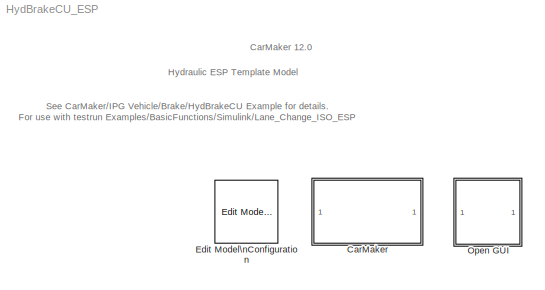
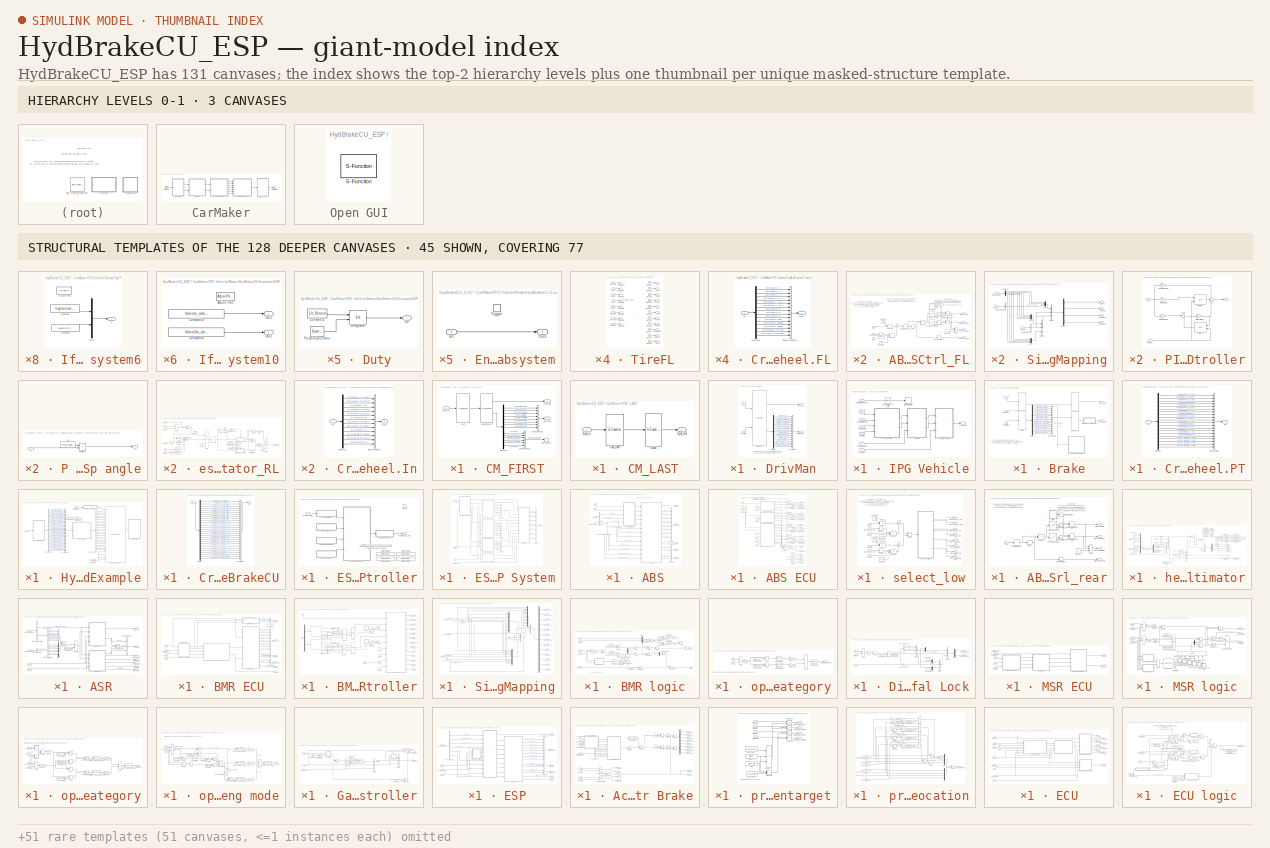
[diagram: thumbnail index - top-2 hierarchy levels (3 canvases) + 45 structural-template representatives of the remaining 128 canvases]
MODEL HydBrakeCU_ESP
KIND model
CONFIG PreLoadFcn = HydBrakeCU_ESP_params
BLOCK [SubSystem] CarMaker
  Ports = []
  RequestExecContextInheritance = off
  SID = 1
  TreatAsAtomicUnit = on
BLOCK [SubSystem] CarMaker/CM_FIRST
  Ports = [1, 2]
  RequestExecContextInheritance = off
  SID = 8377
BLOCK [BusCreator] CarMaker/CM_FIRST/BusCreator1
  InheritFromInputs = on
  Inputs = 8
  Ports = [8, 1]
  SID = 8385
BLOCK [BusCreator] CarMaker/CM_FIRST/BusCreator2
  InheritFromInputs = on
  Inputs = 6
  Ports = [6, 1]
  SID = 8386
BLOCK [Demux] CarMaker/CM_FIRST/Demux1
  DisplayOption = none
  Outputs = 14
  Ports = [1, 14]
  SID = 8387
BLOCK [Outport] CarMaker/CM_FIRST/Env.Misc
  Port = 2
  SID = 8392
  VectorParamsAs1DForOutWhenUnconnected = off
BLOCK [S-Function] CarMaker/CM_FIRST/Environment
  EnableBusSupport = off
  FunctionName = CM_Sfun
  Parameters = 'Environment'
  Ports = [1, 2]
  SFcnIsStateOwnerBlock = off
  SFunctionDeploymentMode = off
  SID = 8388
BLOCK [S-Function] CarMaker/CM_FIRST/IoIn
  EnableBusSupport = off
  FunctionName = CM_Sfun
  Parameters = 'IoIn'
  Ports = [1, 1]
  SFcnIsStateOwnerBlock = off
  SFunctionDeploymentMode = off
  SID = 8389
BLOCK [Inport] CarMaker/CM_FIRST/Sync_In
  SID = 8384
BLOCK [Outport] CarMaker/CM_FIRST/Sync_Out
  SID = 8391
  VectorParamsAs1DForOutWhenUnconnected = off
BLOCK [Terminator] CarMaker/CM_FIRST/Terminator
  SID = 8390
BLOCK [SubSystem] CarMaker/CM_LAST
  Ports = [1, 1]
  RequestExecContextInheritance = off
  SID = 8378
BLOCK [S-Function] CarMaker/CM_LAST/CM_User
  EnableBusSupport = off
  FunctionName = CM_Sfun
  Parameters = 'CM_User'
  Ports = [1, 1]
  SFcnIsStateOwnerBlock = off
  SFunctionDeploymentMode = off
  SID = 8881
BLOCK [S-Function] CarMaker/CM_LAST/IoOut
  EnableBusSupport = off
  FunctionName = CM_Sfun
  Parameters = 'IoOut'
  Ports = [1, 1]
  SFcnIsStateOwnerBlock = off
  SFunctionDeploymentMode = off
  SID = 8882
BLOCK [Inport] CarMaker/CM_LAST/Sync_In
  SID = 8880
BLOCK [Outport] CarMaker/CM_LAST/Sync_Out
  SID = 8883
  VectorParamsAs1DForOutWhenUnconnected = off
BLOCK [SubSystem] CarMaker/DrivMan
  Ports = [2, 2]
  RequestExecContextInheritance = off
  SID = 8379
BLOCK [BusCreator] CarMaker/DrivMan/BusCreator
  InheritFromInputs = on
  Inputs = 17
  Ports = [17, 1]
  SID = 8395
BLOCK [Demux] CarMaker/DrivMan/Demux
  DisplayOption = none
  Outputs = 17
  Ports = [1, 17]
  SID = 8396
BLOCK [S-Function] CarMaker/DrivMan/DrivMan
  EnableBusSupport = off
  FunctionName = CM_Sfun
  Parameters = 'DrivMan'
  Ports = [2, 2]
  SFcnIsStateOwnerBlock = off
  SFunctionDeploymentMode = off
  SID = 8397
BLOCK [Outport] CarMaker/DrivMan/DrivMan.Out
  Port = 2
  SID = 8399
  VectorParamsAs1DForOutWhenUnconnected = off
BLOCK [Inport] CarMaker/DrivMan/Env.Misc
  Port = 2
  SID = 8394
BLOCK [Inport] CarMaker/DrivMan/Sync_In
  SID = 8393
BLOCK [Outport] CarMaker/DrivMan/Sync_Out
  SID = 8398
  VectorParamsAs1DForOutWhenUnconnected = off
BLOCK [Ground] CarMaker/Ground
  SID = 8380
BLOCK [SubSystem] CarMaker/IPG Vehicle
  Ports = [7, 1]
  RequestExecContextInheritance = off
  SID = 8381
BLOCK [SubSystem] CarMaker/IPG Vehicle/Brake
  Ports = [3, 2]
  RequestExecContextInheritance = off
  SID = 8448
BLOCK [S-Function] CarMaker/IPG Vehicle/Brake/Brake
  EnableBusSupport = off
  FunctionName = CM_Sfun
  Parameters = 'Brake'
  Ports = [3, 2]
  SFcnIsStateOwnerBlock = off
  SFunctionDeploymentMode = off
  SID = 8452
BLOCK [Inport] CarMaker/IPG Vehicle/Brake/Brake.IF.In
  Port = 2
  SID = 8450
BLOCK [S-Function] CarMaker/IPG Vehicle/Brake/BrakeUpd
  EnableBusSupport = off
  FunctionName = CM_Sfun
  Parameters = 'BrakeUpd'
  Ports = [2, 2]
  SFcnIsStateOwnerBlock = off
  SFunctionDeploymentMode = off
  SID = 8453
BLOCK [BusCreator] CarMaker/IPG Vehicle/Brake/BusCreator1
  InheritFromInputs = on
  Inputs = 16
  Ports = [16, 1]
  SID = 8454
BLOCK [SubSystem] CarMaker/IPG Vehicle/Brake/CreateBus Vhcl.Wheel.PT
  Ports = [1, 1]
  RequestExecContextInheritance = off
  SID = 8455
BLOCK [BusCreator] CarMaker/IPG Vehicle/Brake/CreateBus Vhcl.Wheel.PT/BusCreator1
  InheritFromInputs = on
  Inputs = 20
  Ports = [20, 1]
  SID = 8457
BLOCK [Demux] CarMaker/IPG Vehicle/Brake/CreateBus Vhcl.Wheel.PT/Demux1
  DisplayOption = none
  Outputs = 20
  Ports = [1, 20]
  SID = 8458
BLOCK [Inport] CarMaker/IPG Vehicle/Brake/CreateBus Vhcl.Wheel.PT/In
  SID = 8456
BLOCK [Outport] CarMaker/IPG Vehicle/Brake/CreateBus Vhcl.Wheel.PT/Out
  SID = 8459
  VectorParamsAs1DForOutWhenUnconnected = off
BLOCK [Demux] CarMaker/IPG Vehicle/Brake/Demux
  DisplayOption = none
  Outputs = 16
  Ports = [1, 16]
  SID = 8460
BLOCK [SubSystem] CarMaker/IPG Vehicle/Brake/HydBrakeCU Example
  Ports = [1]
  RequestExecContextInheritance = off
  SID = 10508
BLOCK [BusAssignment] CarMaker/IPG Vehicle/Brake/HydBrakeCU Example/Bus\nAssignment
  AssignedSignals = HydBrakeCU_Out Valve_FL_Inlet,HydBrakeCU_Out Valve_FR_Inlet,HydBrakeCU_Out Valve_RL_Inlet,HydBrakeCU_Out Valve_RR_Inlet,HydBrakeCU_Out Valve_FL_Outlet,HydBrakeCU_Out Valve_FR_Outlet,HydBrakeCU_Out Valve_RL_Outlet,HydBrakeCU_Out Valve_RR_Outlet,HydBrakeCU_Out Valve_PV_1,HydBrakeCU_Out Valve_PV_2,HydBrakeCU_Out Valve_SV_1,HydBrakeCU_Out Valve_SV_2,HydBrakeCU_Out PumpCtrl,HydBrakeCU_Out Park,HydBrake...<+152ch>
  Ports = [20, 1]
  SID = 10510
BLOCK [BusCreator] CarMaker/IPG Vehicle/Brake/HydBrakeCU Example/Bus\nCreator
  DisplayOption = bar
  InheritFromInputs = on
  Inputs = 30
  Ports = [30, 1]
  SID = 10511
BLOCK [BusSelector] CarMaker/IPG Vehicle/Brake/HydBrakeCU Example/Bus\nSelector
  OutputSignals = HydBrakeCU.HydBrakeCU Pedal,HydBrakeCU.HydBrakeCU Park,HydBrakeCU.HydBrakeCU Trq_BrakeReg_max_FL,HydBrakeCU.HydBrakeCU Trq_BrakeReg_max_FR,HydBrakeCU.HydBrakeCU Trq_BrakeReg_max_RL,HydBrakeCU.HydBrakeCU Trq_BrakeReg_max_RR,HydBrakeCU.HydBrakeCU Trq_BrakeReg_FL,HydBrakeCU.HydBrakeCU Trq_BrakeReg_FR,HydBrakeCU.HydBrakeCU Trq_BrakeReg_RL,HydBrakeCU.HydBrakeCU Trq_BrakeReg_RR,HydBrakeCU.HydBrakeCU T_e...<+589ch>
  Ports = [1, 30]
  SID = 10512
BLOCK [BusSelector] CarMaker/IPG Vehicle/Brake/HydBrakeCU Example/Bus\nSelector2
  OutputSignals = Brake Valves.Valve_In_FL,Brake Valves.Valve_In_FR,Brake Valves.Valve_In_RL,Brake Valves.Valve_In_RR,Brake Valves.Valve_Out_FL,Brake Valves.Valve_Out_FR,Brake Valves.Valve_Out_RL,Brake Valves.Valve_Out_RR,Pilot Valves.Valve_PV_0,Pilot Valves.Valve_PV_1,Suction Valves.Valve_SV_0,Suction Valves.Valve_SV_1,Pump Ctrl,BrakePark,Brake Pedal Position
  Ports = [1, 15]
  SID = 10513
BLOCK [Reference] CarMaker/IPG Vehicle/Brake/HydBrakeCU Example/Compare\nTo Constant  REF=simulink/Logic and Bit\nOperations/Compare\nTo Constant
  OutDataTypeStr = uint8
  Ports = [1, 1]
  SID = 10514
  SourceBlock = simulink/Logic and Bit\nOperations/Compare\nTo Constant
  SourceProductBaseCode = SL
  SourceType = Compare To Constant
  ZeroCross = on
  const = 8
  relop = ==
BLOCK [Constant] CarMaker/IPG Vehicle/Brake/HydBrakeCU Example/Constant
  SID = 12139
  Value = -99999
BLOCK [SubSystem] CarMaker/IPG Vehicle/Brake/HydBrakeCU Example/CreateBus HydBrakeCU
  Ports = [1, 1]
  RequestExecContextInheritance = off
  SID = 12133
BLOCK [BusCreator] CarMaker/IPG Vehicle/Brake/HydBrakeCU Example/CreateBus HydBrakeCU/BusCreator
  InheritFromInputs = on
  Inputs = 28
  Ports = [28, 1]
  SID = 12135
BLOCK [Demux] CarMaker/IPG Vehicle/Brake/HydBrakeCU Example/CreateBus HydBrakeCU/Demux
  DisplayOption = none
  Outputs = 28
  Ports = [1, 28]
  SID = 12136
BLOCK [Inport] CarMaker/IPG Vehicle/Brake/HydBrakeCU Example/CreateBus HydBrakeCU/In
  SID = 12134
BLOCK [Outport] CarMaker/IPG Vehicle/Brake/HydBrakeCU Example/CreateBus HydBrakeCU/Out
  SID = 12137
  VectorParamsAs1DForOutWhenUnconnected = off
BLOCK [SubSystem] CarMaker/IPG Vehicle/Brake/HydBrakeCU Example/ESP Controller
  Ports = [1, 1, 1]
  RequestExecContextInheritance = off
  SID = 10520
  TreatAsAtomicUnit = on
BLOCK [Reference] CarMaker/IPG Vehicle/Brake/HydBrakeCU Example/ESP Controller/Define CM Dict1  REF=CarMaker4SL/Define CM Dict
  Ports = []
  SID = 10523
  SourceBlock = CarMaker4SL/Define CM Dict
  SourceType = Define CarMaker Dictionary Variable
  xdvaplace = None
  xfirststate = 0
  xinitial = 0
  xmono = off
  xname = PT.Engine.Trq
  xnstates = 0
  xtype = Double4
  xunit = Nm
BLOCK [Reference] CarMaker/IPG Vehicle/Brake/HydBrakeCU Example/ESP Controller/Define CM Dict11  REF=CarMaker4SL/Define CM Dict
  Ports = []
  SID = 10524
  SourceBlock = CarMaker4SL/Define CM Dict
  SourceType = Define CarMaker Dictionary Variable
  xdvaplace = PTC
  xfirststate = 0
  xinitial = 0
  xmono = off
  xname = PT.ECU.Load_lim_max
  xnstates = 0
  xtype = Double4
BLOCK [Reference] CarMaker/IPG Vehicle/Brake/HydBrakeCU Example/ESP Controller/Define CM Dict2  REF=CarMaker4SL/Define CM Dict
  Ports = []
  SID = 10525
  SourceBlock = CarMaker4SL/Define CM Dict
  SourceType = Define CarMaker Dictionary Variable
  xdvaplace = VC
  xfirststate = 0
  xinitial = 0
  xmono = off
  xname = PT.Gen.DL.FDiff.DVA.Trq_A2B
  xnstates = 0
  xtype = Double4
  xunit = Nm
BLOCK [Reference] CarMaker/IPG Vehicle/Brake/HydBrakeCU Example/ESP Controller/Define CM Dict3  REF=CarMaker4SL/Define CM Dict
  Ports = []
  SID = 10526
  SourceBlock = CarMaker4SL/Define CM Dict
  SourceType = Define CarMaker Dictionary Variable
  xdvaplace = None
  xfirststate = 0
  xinitial = 0
  xmono = off
  xname = PT.Clutch.rotv_out
  xnstates = 0
  xtype = Double4
  xunit = rad/s
BLOCK [SubSystem] CarMaker/IPG Vehicle/Brake/HydBrakeCU Example/ESP Controller/ESP General System
  Ports = [4, 1]
  RequestExecContextInheritance = off
  SID = 10527
BLOCK [SubSystem] CarMaker/IPG Vehicle/Brake/HydBrakeCU Example/ESP Controller/ESP General System/ABS
  Ports = [4, 5]
  RequestExecContextInheritance = off
  SID = 10532
BLOCK [SubSystem] CarMaker/IPG Vehicle/Brake/HydBrakeCU Example/ESP Controller/ESP General System/ABS/ABS ECU
  Ports = [13, 14]
  RequestExecContextInheritance = off
  SID = 10537
BLOCK [Outport] CarMaker/IPG Vehicle/Brake/HydBrakeCU Example/ESP Controller/ESP General System/ABS/ABS ECU/ABS On
  Port = 10
  SID = 10709
  VectorParamsAs1DForOutWhenUnconnected = off
BLOCK [SubSystem] CarMaker/IPG Vehicle/Brake/HydBrakeCU Example/ESP Controller/ESP General System/ABS/ABS ECU/ABS_ValveCtrl_FL
  Ports = [3, 4]
  RequestExecContextInheritance = off
  SID = 10551
BLOCK [Outport] CarMaker/IPG Vehicle/Brake/HydBrakeCU Example/ESP Controller/ESP General System/ABS/ABS ECU/ABS_ValveCtrl_FL/Brake.ABS.on//off
  Port = 4
  SID = 10582
  VectorParamsAs1DForOutWhenUnconnected = off
BLOCK [Outport] CarMaker/IPG Vehicle/Brake/HydBrakeCU Example/ESP Controller/ESP General System/ABS/ABS ECU/ABS_ValveCtrl_FL/Brake.ABS.status
  Port = 3
  SID = 10581
  VectorParamsAs1DForOutWhenUnconnected = off
BLOCK [Outport] CarMaker/IPG Vehicle/Brake/HydBrakeCU Example/ESP Controller/ESP General System/ABS/ABS ECU/ABS_ValveCtrl_FL/Brake.Valve.In
  SID = 10579
  VectorParamsAs1DForOutWhenUnconnected = off
BLOCK [Outport] CarMaker/IPG Vehicle/Brake/HydBrakeCU Example/ESP Controller/ESP General System/ABS/ABS ECU/ABS_ValveCtrl_FL/Brake.Valve.Out
  Port = 2
  SID = 10580
  VectorParamsAs1DForOutWhenUnconnected = off
BLOCK [Constant] CarMaker/IPG Vehicle/Brake/HydBrakeCU Example/ESP Controller/ESP General System/ABS/ABS ECU/ABS_ValveCtrl_FL/Constant
  SID = 10555
BLOCK [Constant] CarMaker/IPG Vehicle/Brake/HydBrakeCU Example/ESP Controller/ESP General System/ABS/ABS ECU/ABS_ValveCtrl_FL/Constant1
  SID = 10556
  Value = f_slip
BLOCK [Constant] CarMaker/IPG Vehicle/Brake/HydBrakeCU Example/ESP Controller/ESP General System/ABS/ABS ECU/ABS_ValveCtrl_FL/Constant3
  SID = 10557
  Value = f_ax
BLOCK [Derivative] CarMaker/IPG Vehicle/Brake/HydBrakeCU Example/ESP Controller/ESP General System/ABS/ABS ECU/ABS_ValveCtrl_FL/Derivative
  SID = 10558
BLOCK [SubSystem] CarMaker/IPG Vehicle/Brake/HydBrakeCU Example/ESP Controller/ESP General System/ABS/ABS ECU/ABS_ValveCtrl_FL/Duty
  Ports = [0, 1]
  RequestExecContextInheritance = off
  SID = 10559
BLOCK [Constant] CarMaker/IPG Vehicle/Brake/HydBrakeCU Example/ESP Controller/ESP General System/ABS/ABS ECU/ABS_ValveCtrl_FL/Duty/Constant1
  SID = 10560
  Value = 1/t_Sensor
BLOCK [Integrator] CarMaker/IPG Vehicle/Brake/HydBrakeCU Example/ESP Controller/ESP General System/ABS/ABS ECU/ABS_ValveCtrl_FL/Duty/Integrator
  ExternalReset = either
  Ports = [2, 1]
  SID = 10561
BLOCK [DiscretePulseGenerator] CarMaker/IPG Vehicle/Brake/HydBrakeCU Example/ESP Controller/ESP General System/ABS/ABS ECU/ABS_ValveCtrl_FL/Duty/Pulse\nGenerator
  Period = t_Sensor*2
  Ports = [0, 1]
  PulseType = Time based
  PulseWidth = 50
  SID = 10562
BLOCK [Outport] CarMaker/IPG Vehicle/Brake/HydBrakeCU Example/ESP Controller/ESP General System/ABS/ABS ECU/ABS_ValveCtrl_FL/Duty/SZ
  SID = 10563
  VectorParamsAs1DForOutWhenUnconnected = off
BLOCK [Lookup] CarMaker/IPG Vehicle/Brake/HydBrakeCU Example/ESP Controller/ESP General System/ABS/ABS ECU/ABS_ValveCtrl_FL/Look-Up\nTable1
  InputValues = Valve_LUTin_VA
  LookUpMeth = Interpolation-Use End Values
  SID = 10564
  Table = ValveIn_LUTout_VA
BLOCK [Lookup] CarMaker/IPG Vehicle/Brake/HydBrakeCU Example/ESP Controller/ESP General System/ABS/ABS ECU/ABS_ValveCtrl_FL/Look-Up\nTable2
  InputValues = Valve_LUTin_VA
  LookUpMeth = Interpolation-Use End Values
  SID = 10565
  Table = ValveOut_LUTout_VA
BLOCK [Product] CarMaker/IPG Vehicle/Brake/HydBrakeCU Example/ESP Controller/ESP General System/ABS/ABS ECU/ABS_ValveCtrl_FL/Product
  OutDataTypeStr = Inherit: Same as first input
  Ports = [2, 1]
  SID = 10566
  SaturateOnIntegerOverflow = on
BLOCK [Product] CarMaker/IPG Vehicle/Brake/HydBrakeCU Example/ESP Controller/ESP General System/ABS/ABS ECU/ABS_ValveCtrl_FL/Product1
  InputSameDT = on
  Inputs = 3
  OutDataTypeStr = Inherit: Same as first input
  Ports = [3, 1]
  SID = 10567
  SaturateOnIntegerOverflow = on
BLOCK [Product] CarMaker/IPG Vehicle/Brake/HydBrakeCU Example/ESP Controller/ESP General System/ABS/ABS ECU/ABS_ValveCtrl_FL/Product2
  OutDataTypeStr = Inherit: Same as first input
  Ports = [2, 1]
  SID = 10568
  SaturateOnIntegerOverflow = on
BLOCK [RateTransition] CarMaker/IPG Vehicle/Brake/HydBrakeCU Example/ESP Controller/ESP General System/ABS/ABS ECU/ABS_ValveCtrl_FL/Rate Transition1
  SID = 10569
BLOCK [RateTransition] CarMaker/IPG Vehicle/Brake/HydBrakeCU Example/ESP Controller/ESP General System/ABS/ABS ECU/ABS_ValveCtrl_FL/Rate Transition2
  SID = 10570
BLOCK [RateTransition] CarMaker/IPG Vehicle/Brake/HydBrakeCU Example/ESP Controller/ESP General System/ABS/ABS ECU/ABS_ValveCtrl_FL/Rate Transition3
  SID = 10571
BLOCK [RateTransition] CarMaker/IPG Vehicle/Brake/HydBrakeCU Example/ESP Controller/ESP General System/ABS/ABS ECU/ABS_ValveCtrl_FL/Rate Transition4
  SID = 10572
BLOCK [RelationalOperator] CarMaker/IPG Vehicle/Brake/HydBrakeCU Example/ESP Controller/ESP General System/ABS/ABS ECU/ABS_ValveCtrl_FL/Relational\nOperator
  InputSameDT = off
  Operator = <
  Ports = [2, 1]
  SID = 10573
  SampleTime = 0.001
BLOCK [RelationalOperator] CarMaker/IPG Vehicle/Brake/HydBrakeCU Example/ESP Controller/ESP General System/ABS/ABS ECU/ABS_ValveCtrl_FL/Relational\nOperator1
  InputSameDT = off
  Operator = <
  Ports = [2, 1]
  SID = 10574
  SampleTime = 0.001
BLOCK [Relay] CarMaker/IPG Vehicle/Brake/HydBrakeCU Example/ESP Controller/ESP General System/ABS/ABS ECU/ABS_ValveCtrl_FL/Relay
  OffSwitchValue = sku_off_VA
  OnSwitchValue = sku_VA
  SID = 10575
BLOCK [Sum] CarMaker/IPG Vehicle/Brake/HydBrakeCU Example/ESP Controller/ESP General System/ABS/ABS ECU/ABS_ValveCtrl_FL/Sum
  InputSameDT = on
  Inputs = |--
  OutDataTypeStr = Inherit: Same as first input
  Ports = [2, 1]
  SID = 10576
  SaturateOnIntegerOverflow = on
BLOCK [Sum] CarMaker/IPG Vehicle/Brake/HydBrakeCU Example/ESP Controller/ESP General System/ABS/ABS ECU/ABS_ValveCtrl_FL/Sum1
  IconShape = rectangular
  Inputs = --+
  Ports = [3, 1]
  SID = 10577
  SaturateOnIntegerOverflow = on
BLOCK [ZeroOrderHold] CarMaker/IPG Vehicle/Brake/HydBrakeCU Example/ESP Controller/ESP General System/ABS/ABS ECU/ABS_ValveCtrl_FL/Zero-Order\nHold
  SID = 10578
  SampleTime = t_Sensor
BLOCK [Inport] CarMaker/IPG Vehicle/Brake/HydBrakeCU Example/ESP Controller/ESP General System/ABS/ABS ECU/ABS_ValveCtrl_FL/rstat
  Port = 3
  SID = 10554
BLOCK [Inport] CarMaker/IPG Vehicle/Brake/HydBrakeCU Example/ESP Controller/ESP General System/ABS/ABS ECU/ABS_ValveCtrl_FL/slip
  SID = 10552
BLOCK [Inport] CarMaker/IPG Vehicle/Brake/HydBrakeCU Example/ESP Controller/ESP General System/ABS/ABS ECU/ABS_ValveCtrl_FL/wheelspeed
  Port = 2
  SID = 10553
BLOCK [SubSystem] CarMaker/IPG Vehicle/Brake/HydBrakeCU Example/ESP Controller/ESP General System/ABS/ABS ECU/ABS_ValveCtrl_FR
  Ports = [3, 4]
  RequestExecContextInheritance = off
  SID = 10586
BLOCK [Outport] CarMaker/IPG Vehicle/Brake/HydBrakeCU Example/ESP Controller/ESP General System/ABS/ABS ECU/ABS_ValveCtrl_FR/Brake.ABS.on//off
  Port = 4
  SID = 10617
  VectorParamsAs1DForOutWhenUnconnected = off
BLOCK [Outport] CarMaker/IPG Vehicle/Brake/HydBrakeCU Example/ESP Controller/ESP General System/ABS/ABS ECU/ABS_ValveCtrl_FR/Brake.ABS.status
  Port = 3
  SID = 10616
  VectorParamsAs1DForOutWhenUnconnected = off
BLOCK [Outport] CarMaker/IPG Vehicle/Brake/HydBrakeCU Example/ESP Controller/ESP General System/ABS/ABS ECU/ABS_ValveCtrl_FR/Brake.Valve.In
  SID = 10614
  VectorParamsAs1DForOutWhenUnconnected = off
BLOCK [Outport] CarMaker/IPG Vehicle/Brake/HydBrakeCU Example/ESP Controller/ESP General System/ABS/ABS ECU/ABS_ValveCtrl_FR/Brake.Valve.Out
  Port = 2
  SID = 10615
  VectorParamsAs1DForOutWhenUnconnected = off
BLOCK [Constant] CarMaker/IPG Vehicle/Brake/HydBrakeCU Example/ESP Controller/ESP General System/ABS/ABS ECU/ABS_ValveCtrl_FR/Constant
  SID = 10590
BLOCK [Constant] CarMaker/IPG Vehicle/Brake/HydBrakeCU Example/ESP Controller/ESP General System/ABS/ABS ECU/ABS_ValveCtrl_FR/Constant1
  SID = 10591
  Value = f_slip
BLOCK [Constant] CarMaker/IPG Vehicle/Brake/HydBrakeCU Example/ESP Controller/ESP General System/ABS/ABS ECU/ABS_ValveCtrl_FR/Constant3
  SID = 10592
  Value = f_ax
BLOCK [Derivative] CarMaker/IPG Vehicle/Brake/HydBrakeCU Example/ESP Controller/ESP General System/ABS/ABS ECU/ABS_ValveCtrl_FR/Derivative
  SID = 10593
BLOCK [SubSystem] CarMaker/IPG Vehicle/Brake/HydBrakeCU Example/ESP Controller/ESP General System/ABS/ABS ECU/ABS_ValveCtrl_FR/Duty
  Ports = [0, 1]
  RequestExecContextInheritance = off
  SID = 10594
BLOCK [Constant] CarMaker/IPG Vehicle/Brake/HydBrakeCU Example/ESP Controller/ESP General System/ABS/ABS ECU/ABS_ValveCtrl_FR/Duty/Constant1
  SID = 10595
  Value = 1/t_Sensor
BLOCK [Integrator] CarMaker/IPG Vehicle/Brake/HydBrakeCU Example/ESP Controller/ESP General System/ABS/ABS ECU/ABS_ValveCtrl_FR/Duty/Integrator
  ExternalReset = either
  Ports = [2, 1]
  SID = 10596
BLOCK [DiscretePulseGenerator] CarMaker/IPG Vehicle/Brake/HydBrakeCU Example/ESP Controller/ESP General System/ABS/ABS ECU/ABS_ValveCtrl_FR/Duty/Pulse\nGenerator
  Period = t_Sensor*2
  Ports = [0, 1]
  PulseType = Time based
  PulseWidth = 50
  SID = 10597
BLOCK [Outport] CarMaker/IPG Vehicle/Brake/HydBrakeCU Example/ESP Controller/ESP General System/ABS/ABS ECU/ABS_ValveCtrl_FR/Duty/SZ
  SID = 10598
  VectorParamsAs1DForOutWhenUnconnected = off
BLOCK [Lookup] CarMaker/IPG Vehicle/Brake/HydBrakeCU Example/ESP Controller/ESP General System/ABS/ABS ECU/ABS_ValveCtrl_FR/Look-Up\nTable1
  InputValues = Valve_LUTin_VA
  LookUpMeth = Interpolation-Use End Values
  SID = 10599
  Table = ValveIn_LUTout_VA
BLOCK [Lookup] CarMaker/IPG Vehicle/Brake/HydBrakeCU Example/ESP Controller/ESP General System/ABS/ABS ECU/ABS_ValveCtrl_FR/Look-Up\nTable2
  InputValues = Valve_LUTin_VA
  LookUpMeth = Interpolation-Use End Values
  SID = 10600
  Table = ValveOut_LUTout_VA
BLOCK [Product] CarMaker/IPG Vehicle/Brake/HydBrakeCU Example/ESP Controller/ESP General System/ABS/ABS ECU/ABS_ValveCtrl_FR/Product
  OutDataTypeStr = Inherit: Same as first input
  Ports = [2, 1]
  SID = 10601
  SaturateOnIntegerOverflow = on
BLOCK [Product] CarMaker/IPG Vehicle/Brake/HydBrakeCU Example/ESP Controller/ESP General System/ABS/ABS ECU/ABS_ValveCtrl_FR/Product1
  InputSameDT = on
  Inputs = 3
  OutDataTypeStr = Inherit: Same as first input
  Ports = [3, 1]
  SID = 10602
  SaturateOnIntegerOverflow = on
BLOCK [Product] CarMaker/IPG Vehicle/Brake/HydBrakeCU Example/ESP Controller/ESP General System/ABS/ABS ECU/ABS_ValveCtrl_FR/Product2
  OutDataTypeStr = Inherit: Same as first input
  Ports = [2, 1]
  SID = 10603
  SaturateOnIntegerOverflow = on
BLOCK [RateTransition] CarMaker/IPG Vehicle/Brake/HydBrakeCU Example/ESP Controller/ESP General System/ABS/ABS ECU/ABS_ValveCtrl_FR/Rate Transition1
  SID = 10604
BLOCK [RateTransition] CarMaker/IPG Vehicle/Brake/HydBrakeCU Example/ESP Controller/ESP General System/ABS/ABS ECU/ABS_ValveCtrl_FR/Rate Transition2
  SID = 10605
BLOCK [RateTransition] CarMaker/IPG Vehicle/Brake/HydBrakeCU Example/ESP Controller/ESP General System/ABS/ABS ECU/ABS_ValveCtrl_FR/Rate Transition3
  SID = 10606
BLOCK [RateTransition] CarMaker/IPG Vehicle/Brake/HydBrakeCU Example/ESP Controller/ESP General System/ABS/ABS ECU/ABS_ValveCtrl_FR/Rate Transition4
  SID = 10607
BLOCK [RelationalOperator] CarMaker/IPG Vehicle/Brake/HydBrakeCU Example/ESP Controller/ESP General System/ABS/ABS ECU/ABS_ValveCtrl_FR/Relational\nOperator
  InputSameDT = off
  Operator = <
  Ports = [2, 1]
  SID = 10608
  SampleTime = 0.001
BLOCK [RelationalOperator] CarMaker/IPG Vehicle/Brake/HydBrakeCU Example/ESP Controller/ESP General System/ABS/ABS ECU/ABS_ValveCtrl_FR/Relational\nOperator1
  InputSameDT = off
  Operator = <
  Ports = [2, 1]
  SID = 10609
  SampleTime = 0.001
BLOCK [Relay] CarMaker/IPG Vehicle/Brake/HydBrakeCU Example/ESP Controller/ESP General System/ABS/ABS ECU/ABS_ValveCtrl_FR/Relay
  OffSwitchValue = sku_off_VA
  OnSwitchValue = sku_VA
  SID = 10610
BLOCK [Sum] CarMaker/IPG Vehicle/Brake/HydBrakeCU Example/ESP Controller/ESP General System/ABS/ABS ECU/ABS_ValveCtrl_FR/Sum
  InputSameDT = on
  Inputs = |--
  OutDataTypeStr = Inherit: Same as first input
  Ports = [2, 1]
  SID = 10611
  SaturateOnIntegerOverflow = on
BLOCK [Sum] CarMaker/IPG Vehicle/Brake/HydBrakeCU Example/ESP Controller/ESP General System/ABS/ABS ECU/ABS_ValveCtrl_FR/Sum1
  IconShape = rectangular
  Inputs = --+
  Ports = [3, 1]
  SID = 10612
  SaturateOnIntegerOverflow = on
BLOCK [ZeroOrderHold] CarMaker/IPG Vehicle/Brake/HydBrakeCU Example/ESP Controller/ESP General System/ABS/ABS ECU/ABS_ValveCtrl_FR/Zero-Order\nHold
  SID = 10613
  SampleTime = t_Sensor
BLOCK [Inport] CarMaker/IPG Vehicle/Brake/HydBrakeCU Example/ESP Controller/ESP General System/ABS/ABS ECU/ABS_ValveCtrl_FR/rstat
  Port = 3
  SID = 10589
BLOCK [Inport] CarMaker/IPG Vehicle/Brake/HydBrakeCU Example/ESP Controller/ESP General System/ABS/ABS ECU/ABS_ValveCtrl_FR/slip
  SID = 10587
BLOCK [Inport] CarMaker/IPG Vehicle/Brake/HydBrakeCU Example/ESP Controller/ESP General System/ABS/ABS ECU/ABS_ValveCtrl_FR/wheelspeed
  Port = 2
  SID = 10588
BLOCK [Outport] CarMaker/IPG Vehicle/Brake/HydBrakeCU Example/ESP Controller/ESP General System/ABS/ABS ECU/Brake Pump Ctrl
  SID = 10700
  VectorParamsAs1DForOutWhenUnconnected = off
BLOCK [Outport] CarMaker/IPG Vehicle/Brake/HydBrakeCU Example/ESP Controller/ESP General System/ABS/ABS ECU/Brake Valve_In_FL
  Port = 2
  SID = 10701
  VectorParamsAs1DForOutWhenUnconnected = off
BLOCK [Outport] CarMaker/IPG Vehicle/Brake/HydBrakeCU Example/ESP Controller/ESP General System/ABS/ABS ECU/Brake Valve_In_FR
  Port = 3
  SID = 10702
  VectorParamsAs1DForOutWhenUnconnected = off
BLOCK [Outport] CarMaker/IPG Vehicle/Brake/HydBrakeCU Example/ESP Controller/ESP General System/ABS/ABS ECU/Brake Valve_In_RL
  Port = 4
  SID = 10703
  VectorParamsAs1DForOutWhenUnconnected = off
BLOCK [Outport] CarMaker/IPG Vehicle/Brake/HydBrakeCU Example/ESP Controller/ESP General System/ABS/ABS ECU/Brake Valve_In_RR
  Port = 5
  SID = 10704
  VectorParamsAs1DForOutWhenUnconnected = off
BLOCK [Outport] CarMaker/IPG Vehicle/Brake/HydBrakeCU Example/ESP Controller/ESP General System/ABS/ABS ECU/Brake Valve_Out_FL
  Port = 6
  SID = 10705
  VectorParamsAs1DForOutWhenUnconnected = off
BLOCK [Outport] CarMaker/IPG Vehicle/Brake/HydBrakeCU Example/ESP Controller/ESP General System/ABS/ABS ECU/Brake Valve_Out_FR
  Port = 7
  SID = 10706
  VectorParamsAs1DForOutWhenUnconnected = off
BLOCK [Outport] CarMaker/IPG Vehicle/Brake/HydBrakeCU Example/ESP Controller/ESP General System/ABS/ABS ECU/Brake Valve_Out_RL
  Port = 8
  SID = 10707
  VectorParamsAs1DForOutWhenUnconnected = off
BLOCK [Outport] CarMaker/IPG Vehicle/Brake/HydBrakeCU Example/ESP Controller/ESP General System/ABS/ABS ECU/Brake Valve_Out_RR
  Port = 9
  SID = 10708
  VectorParamsAs1DForOutWhenUnconnected = off
BLOCK [Constant] CarMaker/IPG Vehicle/Brake/HydBrakeCU Example/ESP Controller/ESP General System/ABS/ABS ECU/Constant
  SID = 10621
  Value = 0
BLOCK [Constant] CarMaker/IPG Vehicle/Brake/HydBrakeCU Example/ESP Controller/ESP General System/ABS/ABS ECU/Constant1
  SID = 10622
  Value = 0
BLOCK [Constant] CarMaker/IPG Vehicle/Brake/HydBrakeCU Example/ESP Controller/ESP General System/ABS/ABS ECU/Constant2
  SID = 10623
  Value = 0
BLOCK [Constant] CarMaker/IPG Vehicle/Brake/HydBrakeCU Example/ESP Controller/ESP General System/ABS/ABS ECU/Constant3
  SID = 10624
  Value = 0
BLOCK [Constant] CarMaker/IPG Vehicle/Brake/HydBrakeCU Example/ESP Controller/ESP General System/ABS/ABS ECU/Constant4
  SID = 10625
  Value = v_min/MPS2KMPH
BLOCK [Reference] CarMaker/IPG Vehicle/Brake/HydBrakeCU Example/ESP Controller/ESP General System/ABS/ABS ECU/Define CM Dict1  REF=CarMaker4SL/Define CM Dict
  Ports = []
  SID = 10626
  SourceBlock = CarMaker4SL/Define CM Dict
  SourceType = Define CarMaker Dictionary Variable
  xdvaplace = None
  xfirststate = 0
  xinitial = 0
  xmono = off
  xname = ESP.ABS.Status_FL
  xnstates = 4
  xtype = Char
BLOCK [Reference] CarMaker/IPG Vehicle/Brake/HydBrakeCU Example/ESP Controller/ESP General System/ABS/ABS ECU/Define CM Dict2  REF=CarMaker4SL/Define CM Dict
  Ports = []
  SID = 10627
  SourceBlock = CarMaker4SL/Define CM Dict
  SourceType = Define CarMaker Dictionary Variable
  xdvaplace = None
  xfirststate = 0
  xinitial = 0
  xmono = off
  xname = ESP.ABS.Status_FR
  xnstates = 4
  xtype = Char
BLOCK [Reference] CarMaker/IPG Vehicle/Brake/HydBrakeCU Example/ESP Controller/ESP General System/ABS/ABS ECU/Define CM Dict3  REF=CarMaker4SL/Define CM Dict
  Ports = []
  SID = 10628
  SourceBlock = CarMaker4SL/Define CM Dict
  SourceType = Define CarMaker Dictionary Variable
  xdvaplace = None
  xfirststate = 0
  xinitial = 0
  xmono = off
  xname = ESP.ABS.Status_RL
  xnstates = 4
  xtype = Char
BLOCK [Reference] CarMaker/IPG Vehicle/Brake/HydBrakeCU Example/ESP Controller/ESP General System/ABS/ABS ECU/Define CM Dict4  REF=CarMaker4SL/Define CM Dict
  Ports = []
  SID = 10629
  SourceBlock = CarMaker4SL/Define CM Dict
  SourceType = Define CarMaker Dictionary Variable
  xdvaplace = None
  xfirststate = 0
  xinitial = 0
  xmono = off
  xname = ESP.ABS.Status_RR
  xnstates = 4
  xtype = Char
BLOCK [Logic] CarMaker/IPG Vehicle/Brake/HydBrakeCU Example/ESP Controller/ESP General System/ABS/ABS ECU/Logical\nOperator1
  AllPortsSameDT = off
  Inputs = 4
  Operator = OR
  Ports = [4, 1]
  SID = 10630
BLOCK [Logic] CarMaker/IPG Vehicle/Brake/HydBrakeCU Example/ESP Controller/ESP General System/ABS/ABS ECU/Logical\nOperator2
  AllPortsSameDT = off
  Ports = [2, 1]
  SID = 10631
BLOCK [Inport] CarMaker/IPG Vehicle/Brake/HydBrakeCU Example/ESP Controller/ESP General System/ABS/ABS ECU/LongSlip_FL
  Port = 2
  SID = 10539
BLOCK [Inport] CarMaker/IPG Vehicle/Brake/HydBrakeCU Example/ESP Controller/ESP General System/ABS/ABS ECU/LongSlip_FR
  Port = 3
  SID = 10540
BLOCK [Inport] CarMaker/IPG Vehicle/Brake/HydBrakeCU Example/ESP Controller/ESP General System/ABS/ABS ECU/LongSlip_RL
  Port = 4
  SID = 10541
BLOCK [Inport] CarMaker/IPG Vehicle/Brake/HydBrakeCU Example/ESP Controller/ESP General System/ABS/ABS ECU/LongSlip_RR
  Port = 5
  SID = 10542
BLOCK [Product] CarMaker/IPG Vehicle/Brake/HydBrakeCU Example/ESP Controller/ESP General System/ABS/ABS ECU/Product
  OutDataTypeStr = Inherit: Same as first input
  Ports = [2, 1]
  SID = 10632
  SaturateOnIntegerOverflow = on
BLOCK [Product] CarMaker/IPG Vehicle/Brake/HydBrakeCU Example/ESP Controller/ESP General System/ABS/ABS ECU/Product1
  OutDataTypeStr = Inherit: Same as first input
  Ports = [2, 1]
  SID = 10633
  SaturateOnIntegerOverflow = on
BLOCK [Product] CarMaker/IPG Vehicle/Brake/HydBrakeCU Example/ESP Controller/ESP General System/ABS/ABS ECU/Product2
  OutDataTypeStr = Inherit: Same as first input
  Ports = [2, 1]
  SID = 10634
  SaturateOnIntegerOverflow = on
BLOCK [Product] CarMaker/IPG Vehicle/Brake/HydBrakeCU Example/ESP Controller/ESP General System/ABS/ABS ECU/Product3
  OutDataTypeStr = Inherit: Same as first input
  Ports = [2, 1]
  SID = 10635
  SaturateOnIntegerOverflow = on
BLOCK [Product] CarMaker/IPG Vehicle/Brake/HydBrakeCU Example/ESP Controller/ESP General System/ABS/ABS ECU/Product4
  OutDataTypeStr = Inherit: Same as first input
  Ports = [2, 1]
  SID = 10636
  SaturateOnIntegerOverflow = on
BLOCK [Product] CarMaker/IPG Vehicle/Brake/HydBrakeCU Example/ESP Controller/ESP General System/ABS/ABS ECU/Product5
  OutDataTypeStr = Inherit: Same as first input
  Ports = [2, 1]
  SID = 10637
  SaturateOnIntegerOverflow = on
BLOCK [Product] CarMaker/IPG Vehicle/Brake/HydBrakeCU Example/ESP Controller/ESP General System/ABS/ABS ECU/Product6
  OutDataTypeStr = Inherit: Same as first input
  Ports = [2, 1]
  SID = 10638
  SaturateOnIntegerOverflow = on
BLOCK [Product] CarMaker/IPG Vehicle/Brake/HydBrakeCU Example/ESP Controller/ESP General System/ABS/ABS ECU/Product7
  OutDataTypeStr = Inherit: Same as first input
  Ports = [2, 1]
  SID = 10639
  SaturateOnIntegerOverflow = on
BLOCK [RelationalOperator] CarMaker/IPG Vehicle/Brake/HydBrakeCU Example/ESP Controller/ESP General System/ABS/ABS ECU/Relational\nOperator
  InputSameDT = off
  Operator = >
  Ports = [2, 1]
  SID = 10640
BLOCK [Inport] CarMaker/IPG Vehicle/Brake/HydBrakeCU Example/ESP Controller/ESP General System/ABS/ABS ECU/Speed_FL
  Port = 6
  SID = 10543
BLOCK [Inport] CarMaker/IPG Vehicle/Brake/HydBrakeCU Example/ESP Controller/ESP General System/ABS/ABS ECU/Speed_FR
  Port = 7
  SID = 10544
BLOCK [Inport] CarMaker/IPG Vehicle/Brake/HydBrakeCU Example/ESP Controller/ESP General System/ABS/ABS ECU/Speed_RL
  Port = 8
  SID = 10545
BLOCK [Inport] CarMaker/IPG Vehicle/Brake/HydBrakeCU Example/ESP Controller/ESP General System/ABS/ABS ECU/Speed_RR
  Port = 9
  SID = 10546
BLOCK [Outport] CarMaker/IPG Vehicle/Brake/HydBrakeCU Example/ESP Controller/ESP General System/ABS/ABS ECU/Valve_PV_0
  Port = 11
  SID = 10710
  VectorParamsAs1DForOutWhenUnconnected = off
BLOCK [Outport] CarMaker/IPG Vehicle/Brake/HydBrakeCU Example/ESP Controller/ESP General System/ABS/ABS ECU/Valve_PV_1
  Port = 12
  SID = 10711
  VectorParamsAs1DForOutWhenUnconnected = off
BLOCK [Outport] CarMaker/IPG Vehicle/Brake/HydBrakeCU Example/ESP Controller/ESP General System/ABS/ABS ECU/Valve_SV_0
  Port = 13
  SID = 10712
  VectorParamsAs1DForOutWhenUnconnected = off
BLOCK [Outport] CarMaker/IPG Vehicle/Brake/HydBrakeCU Example/ESP Controller/ESP General System/ABS/ABS ECU/Valve_SV_1
  Port = 14
  SID = 10713
  VectorParamsAs1DForOutWhenUnconnected = off
BLOCK [Reference] CarMaker/IPG Vehicle/Brake/HydBrakeCU Example/ESP Controller/ESP General System/ABS/ABS ECU/Write CM Dict1  REF=CarMaker4SL/Write CM Dict
  Ports = [1]
  SID = 10641
  SourceBlock = CarMaker4SL/Write CM Dict
  SourceType = Write CarMaker Dictionary Variable(s)
  xname = ESP.ABS.Status_FL
  xsync = off
BLOCK [Reference] CarMaker/IPG Vehicle/Brake/HydBrakeCU Example/ESP Controller/ESP General System/ABS/ABS ECU/Write CM Dict2  REF=CarMaker4SL/Write CM Dict
  Ports = [1]
  SID = 10642
  SourceBlock = CarMaker4SL/Write CM Dict
  SourceType = Write CarMaker Dictionary Variable(s)
  xname = ESP.ABS.Status_FR
  xsync = off
BLOCK [Reference] CarMaker/IPG Vehicle/Brake/HydBrakeCU Example/ESP Controller/ESP General System/ABS/ABS ECU/Write CM Dict3  REF=CarMaker4SL/Write CM Dict
  Ports = [1]
  SID = 10643
  SourceBlock = CarMaker4SL/Write CM Dict
  SourceType = Write CarMaker Dictionary Variable(s)
  xname = ESP.ABS.Status_RL
  xsync = off
BLOCK [Reference] CarMaker/IPG Vehicle/Brake/HydBrakeCU Example/ESP Controller/ESP General System/ABS/ABS ECU/Write CM Dict4  REF=CarMaker4SL/Write CM Dict
  Ports = [1]
  SID = 10644
  SourceBlock = CarMaker4SL/Write CM Dict
  SourceType = Write CarMaker Dictionary Variable(s)
  xname = ESP.ABS.Status_RR
  xsync = off
BLOCK [Inport] CarMaker/IPG Vehicle/Brake/HydBrakeCU Example/ESP Controller/ESP General System/ABS/ABS ECU/radius_FL
  Port = 10
  SID = 10547
BLOCK [Inport] CarMaker/IPG Vehicle/Brake/HydBrakeCU Example/ESP Controller/ESP General System/ABS/ABS ECU/radius_FR
  Port = 11
  SID = 10548
BLOCK [Inport] CarMaker/IPG Vehicle/Brake/HydBrakeCU Example/ESP Controller/ESP General System/ABS/ABS ECU/radius_RL
  Port = 12
  SID = 10549
BLOCK [Inport] CarMaker/IPG Vehicle/Brake/HydBrakeCU Example/ESP Controller/ESP General System/ABS/ABS ECU/radius_RR
  Port = 13
  SID = 10550
BLOCK [SubSystem] CarMaker/IPG Vehicle/Brake/HydBrakeCU Example/ESP Controller/ESP General System/ABS/ABS ECU/select_low
  Ports = [6, 8]
  RequestExecContextInheritance = off
  SID = 10645
BLOCK [SubSystem] CarMaker/IPG Vehicle/Brake/HydBrakeCU Example/ESP Controller/ESP General System/ABS/ABS ECU/select_low/ABS_ValveCtrl_rear
  Ports = [1, 4]
  RequestExecContextInheritance = off
  SID = 10652
BLOCK [Outport] CarMaker/IPG Vehicle/Brake/HydBrakeCU Example/ESP Controller/ESP General System/ABS/ABS ECU/select_low/ABS_ValveCtrl_rear/Brake.ABS.on//off
  Port = 4
  SID = 10675
  VectorParamsAs1DForOutWhenUnconnected = off
BLOCK [Outport] CarMaker/IPG Vehicle/Brake/HydBrakeCU Example/ESP Controller/ESP General System/ABS/ABS ECU/select_low/ABS_ValveCtrl_rear/Brake.ABS.status
  Port = 3
  SID = 10674
  VectorParamsAs1DForOutWhenUnconnected = off
BLOCK [Outport] CarMaker/IPG Vehicle/Brake/HydBrakeCU Example/ESP Controller/ESP General System/ABS/ABS ECU/select_low/ABS_ValveCtrl_rear/Brake.Valve.In
  SID = 10672
  VectorParamsAs1DForOutWhenUnconnected = off
BLOCK [Outport] CarMaker/IPG Vehicle/Brake/HydBrakeCU Example/ESP Controller/ESP General System/ABS/ABS ECU/select_low/ABS_ValveCtrl_rear/Brake.Valve.Out
  Port = 2
  SID = 10673
  VectorParamsAs1DForOutWhenUnconnected = off
BLOCK [Constant] CarMaker/IPG Vehicle/Brake/HydBrakeCU Example/ESP Controller/ESP General System/ABS/ABS ECU/select_low/ABS_ValveCtrl_rear/Constant
  SID = 10654
BLOCK [SubSystem] CarMaker/IPG Vehicle/Brake/HydBrakeCU Example/ESP Controller/ESP General System/ABS/ABS ECU/select_low/ABS_ValveCtrl_rear/Duty
  Ports = [0, 1]
  RequestExecContextInheritance = off
  SID = 10655
BLOCK [Constant] CarMaker/IPG Vehicle/Brake/HydBrakeCU Example/ESP Controller/ESP General System/ABS/ABS ECU/select_low/ABS_ValveCtrl_rear/Duty/Constant1
  SID = 10656
  Value = 1/t_Sensor
BLOCK [Integrator] CarMaker/IPG Vehicle/Brake/HydBrakeCU Example/ESP Controller/ESP General System/ABS/ABS ECU/select_low/ABS_ValveCtrl_rear/Duty/Integrator
  ExternalReset = either
  Ports = [2, 1]
  SID = 10657
BLOCK [DiscretePulseGenerator] CarMaker/IPG Vehicle/Brake/HydBrakeCU Example/ESP Controller/ESP General System/ABS/ABS ECU/select_low/ABS_ValveCtrl_rear/Duty/Pulse\nGenerator
  Period = t_Sensor*2
  Ports = [0, 1]
  PulseType = Time based
  PulseWidth = 50
  SID = 10658
BLOCK [Outport] CarMaker/IPG Vehicle/Brake/HydBrakeCU Example/ESP Controller/ESP General System/ABS/ABS ECU/select_low/ABS_ValveCtrl_rear/Duty/SZ
  SID = 10659
  VectorParamsAs1DForOutWhenUnconnected = off
BLOCK [Lookup] CarMaker/IPG Vehicle/Brake/HydBrakeCU Example/ESP Controller/ESP General System/ABS/ABS ECU/select_low/ABS_ValveCtrl_rear/Look-Up\nTable1
  InputValues = Valve_LUTin_HA
  LookUpMeth = Interpolation-Use End Values
  SID = 10660
  Table = ValveIn_LUTout_HA
BLOCK [Lookup] CarMaker/IPG Vehicle/Brake/HydBrakeCU Example/ESP Controller/ESP General System/ABS/ABS ECU/select_low/ABS_ValveCtrl_rear/Look-Up\nTable2
  InputValues = Valve_LUTin_HA
  LookUpMeth = Interpolation-Use End Values
  SID = 10661
  Table = ValveOut_LUTout_HA
BLOCK [Product] CarMaker/IPG Vehicle/Brake/HydBrakeCU Example/ESP Controller/ESP General System/ABS/ABS ECU/select_low/ABS_ValveCtrl_rear/Product
  OutDataTypeStr = Inherit: Same as first input
  Ports = [2, 1]
  SID = 10662
  SaturateOnIntegerOverflow = on
BLOCK [RateTransition] CarMaker/IPG Vehicle/Brake/HydBrakeCU Example/ESP Controller/ESP General System/ABS/ABS ECU/select_low/ABS_ValveCtrl_rear/Rate Transition1
  SID = 10663
BLOCK [RateTransition] CarMaker/IPG Vehicle/Brake/HydBrakeCU Example/ESP Controller/ESP General System/ABS/ABS ECU/select_low/ABS_ValveCtrl_rear/Rate Transition2
  SID = 10664
BLOCK [RateTransition] CarMaker/IPG Vehicle/Brake/HydBrakeCU Example/ESP Controller/ESP General System/ABS/ABS ECU/select_low/ABS_ValveCtrl_rear/Rate Transition3
  SID = 10665
BLOCK [RateTransition] CarMaker/IPG Vehicle/Brake/HydBrakeCU Example/ESP Controller/ESP General System/ABS/ABS ECU/select_low/ABS_ValveCtrl_rear/Rate Transition4
  SID = 10666
BLOCK [RelationalOperator] CarMaker/IPG Vehicle/Brake/HydBrakeCU Example/ESP Controller/ESP General System/ABS/ABS ECU/select_low/ABS_ValveCtrl_rear/Relational\nOperator
  InputSameDT = off
  Operator = <
  Ports = [2, 1]
  SID = 10667
  SampleTime = 0.001
BLOCK [RelationalOperator] CarMaker/IPG Vehicle/Brake/HydBrakeCU Example/ESP Controller/ESP General System/ABS/ABS ECU/select_low/ABS_ValveCtrl_rear/Relational\nOperator1
  InputSameDT = off
  Operator = <
  Ports = [2, 1]
  SID = 10668
  SampleTime = 0.001
BLOCK [Relay] CarMaker/IPG Vehicle/Brake/HydBrakeCU Example/ESP Controller/ESP General System/ABS/ABS ECU/select_low/ABS_ValveCtrl_rear/Relay
  OffSwitchValue = sku_off_HA
  OnSwitchValue = sku_HA
  SID = 10669
BLOCK [Inport] CarMaker/IPG Vehicle/Brake/HydBrakeCU Example/ESP Controller/ESP General System/ABS/ABS ECU/select_low/ABS_ValveCtrl_rear/Sk
  SID = 10653
BLOCK [Sum] CarMaker/IPG Vehicle/Brake/HydBrakeCU Example/ESP Controller/ESP General System/ABS/ABS ECU/select_low/ABS_ValveCtrl_rear/Sum1
  IconShape = rectangular
  Inputs = --+
  Ports = [3, 1]
  SID = 10670
  SaturateOnIntegerOverflow = on
BLOCK [ZeroOrderHold] CarMaker/IPG Vehicle/Brake/HydBrakeCU Example/ESP Controller/ESP General System/ABS/ABS ECU/select_low/ABS_ValveCtrl_rear/Zero-Order\nHold
  SID = 10671
  SampleTime = t_Sensor
BLOCK [Outport] CarMaker/IPG Vehicle/Brake/HydBrakeCU Example/ESP Controller/ESP General System/ABS/ABS ECU/select_low/Brake Valve_In_RL
  SID = 10691
  VectorParamsAs1DForOutWhenUnconnected = off
BLOCK [Outport] CarMaker/IPG Vehicle/Brake/HydBrakeCU Example/ESP Controller/ESP General System/ABS/ABS ECU/select_low/Brake Valve_In_RR
  Port = 5
  SID = 10695
  VectorParamsAs1DForOutWhenUnconnected = off
BLOCK [Outport] CarMaker/IPG Vehicle/Brake/HydBrakeCU Example/ESP Controller/ESP General System/ABS/ABS ECU/select_low/Brake Valve_Out_RL
  Port = 2
  SID = 10692
  VectorParamsAs1DForOutWhenUnconnected = off
BLOCK [Outport] CarMaker/IPG Vehicle/Brake/HydBrakeCU Example/ESP Controller/ESP General System/ABS/ABS ECU/select_low/Brake Valve_Out_RR
  Port = 6
  SID = 10696
  VectorParamsAs1DForOutWhenUnconnected = off
BLOCK [Outport] CarMaker/IPG Vehicle/Brake/HydBrakeCU Example/ESP Controller/ESP General System/ABS/ABS ECU/select_low/Brake.ABS.on//off_RL
  Port = 4
  SID = 10694
  VectorParamsAs1DForOutWhenUnconnected = off
BLOCK [Outport] CarMaker/IPG Vehicle/Brake/HydBrakeCU Example/ESP Controller/ESP General System/ABS/ABS ECU/select_low/Brake.ABS.on//off_RR
  Port = 8
  SID = 10698
  VectorParamsAs1DForOutWhenUnconnected = off
BLOCK [Outport] CarMaker/IPG Vehicle/Brake/HydBrakeCU Example/ESP Controller/ESP General System/ABS/ABS ECU/select_low/Brake.ABS.status_RL
  Port = 3
  SID = 10693
  VectorParamsAs1DForOutWhenUnconnected = off
BLOCK [Outport] CarMaker/IPG Vehicle/Brake/HydBrakeCU Example/ESP Controller/ESP General System/ABS/ABS ECU/select_low/Brake.ABS.status_RR
  Port = 7
  SID = 10697
  VectorParamsAs1DForOutWhenUnconnected = off
BLOCK [Constant] CarMaker/IPG Vehicle/Brake/HydBrakeCU Example/ESP Controller/ESP General System/ABS/ABS ECU/select_low/Constant1
  SID = 10678
  Value = f_ax
BLOCK [Constant] CarMaker/IPG Vehicle/Brake/HydBrakeCU Example/ESP Controller/ESP General System/ABS/ABS ECU/select_low/Constant2
  SID = 10679
  Value = f_slip
BLOCK [Constant] CarMaker/IPG Vehicle/Brake/HydBrakeCU Example/ESP Controller/ESP General System/ABS/ABS ECU/select_low/Constant3
  SID = 10680
  Value = f_ax
BLOCK [Constant] CarMaker/IPG Vehicle/Brake/HydBrakeCU Example/ESP Controller/ESP General System/ABS/ABS ECU/select_low/Constant4
  SID = 10681
  Value = f_slip
BLOCK [Derivative] CarMaker/IPG Vehicle/Brake/HydBrakeCU Example/ESP Controller/ESP General System/ABS/ABS ECU/select_low/Derivative
  SID = 10682
BLOCK [Derivative] CarMaker/IPG Vehicle/Brake/HydBrakeCU Example/ESP Controller/ESP General System/ABS/ABS ECU/select_low/Derivative1
  SID = 10683
BLOCK [MinMax] CarMaker/IPG Vehicle/Brake/HydBrakeCU Example/ESP Controller/ESP General System/ABS/ABS ECU/select_low/MinMax
  Function = max
  InputSameDT = on
  Inputs = 2
  Ports = [2, 1]
  SID = 10684
  SaturateOnIntegerOverflow = on
BLOCK [Product] CarMaker/IPG Vehicle/Brake/HydBrakeCU Example/ESP Controller/ESP General System/ABS/ABS ECU/select_low/Product1
  InputSameDT = on
  Inputs = 3
  OutDataTypeStr = Inherit: Same as first input
  Ports = [3, 1]
  SID = 10685
  SaturateOnIntegerOverflow = on
BLOCK [Product] CarMaker/IPG Vehicle/Brake/HydBrakeCU Example/ESP Controller/ESP General System/ABS/ABS ECU/select_low/Product2
  InputSameDT = on
  Inputs = 3
  OutDataTypeStr = Inherit: Same as first input
  Ports = [3, 1]
  SID = 10686
  SaturateOnIntegerOverflow = on
BLOCK [Product] CarMaker/IPG Vehicle/Brake/HydBrakeCU Example/ESP Controller/ESP General System/ABS/ABS ECU/select_low/Product3
  OutDataTypeStr = Inherit: Same as first input
  Ports = [2, 1]
  SID = 10687
  SaturateOnIntegerOverflow = on
BLOCK [Product] CarMaker/IPG Vehicle/Brake/HydBrakeCU Example/ESP Controller/ESP General System/ABS/ABS ECU/select_low/Product4
  OutDataTypeStr = Inherit: Same as first input
  Ports = [2, 1]
  SID = 10688
  SaturateOnIntegerOverflow = on
BLOCK [Sum] CarMaker/IPG Vehicle/Brake/HydBrakeCU Example/ESP Controller/ESP General System/ABS/ABS ECU/select_low/Sum
  InputSameDT = on
  Inputs = |--
  OutDataTypeStr = Inherit: Same as first input
  Ports = [2, 1]
  SID = 10689
  SaturateOnIntegerOverflow = on
BLOCK [Sum] CarMaker/IPG Vehicle/Brake/HydBrakeCU Example/ESP Controller/ESP General System/ABS/ABS ECU/select_low/Sum1
  InputSameDT = on
  Inputs = |--
  OutDataTypeStr = Inherit: Same as first input
  Ports = [2, 1]
  SID = 10690
  SaturateOnIntegerOverflow = on
BLOCK [Inport] CarMaker/IPG Vehicle/Brake/HydBrakeCU Example/ESP Controller/ESP General System/ABS/ABS ECU/select_low/rstat_RL
  Port = 3
  SID = 10648
BLOCK [Inport] CarMaker/IPG Vehicle/Brake/HydBrakeCU Example/ESP Controller/ESP General System/ABS/ABS ECU/select_low/rstat_RR
  Port = 4
  SID = 10649
BLOCK [Inport] CarMaker/IPG Vehicle/Brake/HydBrakeCU Example/ESP Controller/ESP General System/ABS/ABS ECU/select_low/slip_RL
  SID = 10646
BLOCK [Inport] CarMaker/IPG Vehicle/Brake/HydBrakeCU Example/ESP Controller/ESP General System/ABS/ABS ECU/select_low/slip_RR
  Port = 2
  SID = 10647
BLOCK [Inport] CarMaker/IPG Vehicle/Brake/HydBrakeCU Example/ESP Controller/ESP General System/ABS/ABS ECU/select_low/wheelspeed_RL
  Port = 5
  SID = 10650
BLOCK [Inport] CarMaker/IPG Vehicle/Brake/HydBrakeCU Example/ESP Controller/ESP General System/ABS/ABS ECU/select_low/wheelspeed_RR
  Port = 6
  SID = 10651
BLOCK [Inport] CarMaker/IPG Vehicle/Brake/HydBrakeCU Example/ESP Controller/ESP General System/ABS/ABS ECU/vref
  SID = 10538
BLOCK [Outport] CarMaker/IPG Vehicle/Brake/HydBrakeCU Example/ESP Controller/ESP General System/ABS/ABS On
  SID = 10775
  VectorParamsAs1DForOutWhenUnconnected = off
BLOCK [Inport] CarMaker/IPG Vehicle/Brake/HydBrakeCU Example/ESP Controller/ESP General System/ABS/ABS Signal Bus
  SID = 10533
BLOCK [Outport] CarMaker/IPG Vehicle/Brake/HydBrakeCU Example/ESP Controller/ESP General System/ABS/Brake Valves
  Port = 4
  SID = 10778
  VectorParamsAs1DForOutWhenUnconnected = off
BLOCK [BusSelector] CarMaker/IPG Vehicle/Brake/HydBrakeCU Example/ESP Controller/ESP General System/ABS/Bus Selector1
  OutputSignals = TireRadius
  Ports = [1, 1]
  SID = 10718
BLOCK [BusSelector] CarMaker/IPG Vehicle/Brake/HydBrakeCU Example/ESP Controller/ESP General System/ABS/Bus Selector2
  NameLocation = left
  OutputSignals = Param_RadiusRR,Param_RadiusRL,Param_RadiusFR,Param_RadiusFL
  Ports = [1, 4]
  SID = 10719
BLOCK [BusSelector] CarMaker/IPG Vehicle/Brake/HydBrakeCU Example/ESP Controller/ESP General System/ABS/Bus Selector4
  NameLocation = left
  OutputSignals = WheelSpd_RR,WheelSpd_RL,WheelSpd_FR,WheelSpd_FL
  Ports = [1, 4]
  SID = 10720
BLOCK [BusCreator] CarMaker/IPG Vehicle/Brake/HydBrakeCU Example/ESP Controller/ESP General System/ABS/Bus\nCreator
  DisplayOption = bar
  InheritFromInputs = on
  Inputs = 8
  Ports = [8, 1]
  SID = 10714
BLOCK [BusCreator] CarMaker/IPG Vehicle/Brake/HydBrakeCU Example/ESP Controller/ESP General System/ABS/Bus\nCreator2
  DisplayOption = bar
  InheritFromInputs = on
  Inputs = 2
  Ports = [2, 1]
  SID = 10715
BLOCK [BusCreator] CarMaker/IPG Vehicle/Brake/HydBrakeCU Example/ESP Controller/ESP General System/ABS/Bus\nCreator3
  DisplayOption = bar
  InheritFromInputs = on
  Inputs = 2
  Ports = [2, 1]
  SID = 10716
BLOCK [BusSelector] CarMaker/IPG Vehicle/Brake/HydBrakeCU Example/ESP Controller/ESP General System/ABS/Bus\nSelector3
  OutputSignals = ax [m/s^2],WheelSpeeds
  Ports = [1, 2]
  SID = 10717
BLOCK [Inport] CarMaker/IPG Vehicle/Brake/HydBrakeCU Example/ESP Controller/ESP General System/ABS/Ideal_In
  Port = 2
  SID = 10534
BLOCK [Outport] CarMaker/IPG Vehicle/Brake/HydBrakeCU Example/ESP Controller/ESP General System/ABS/Pilot Valves
  Port = 2
  SID = 10776
  VectorParamsAs1DForOutWhenUnconnected = off
BLOCK [Outport] CarMaker/IPG Vehicle/Brake/HydBrakeCU Example/ESP Controller/ESP General System/ABS/Pump Ctrl
  Port = 5
  SID = 10779
  VectorParamsAs1DForOutWhenUnconnected = off
BLOCK [Outport] CarMaker/IPG Vehicle/Brake/HydBrakeCU Example/ESP Controller/ESP General System/ABS/Suction Valves
  Port = 3
  SID = 10777
  VectorParamsAs1DForOutWhenUnconnected = off
BLOCK [Inport] CarMaker/IPG Vehicle/Brake/HydBrakeCU Example/ESP Controller/ESP General System/ABS/User_In
  Port = 4
  SID = 10536
BLOCK [Inport] CarMaker/IPG Vehicle/Brake/HydBrakeCU Example/ESP Controller/ESP General System/ABS/Vehicle Params
  Port = 3
  SID = 10535
BLOCK [SubSystem] CarMaker/IPG Vehicle/Brake/HydBrakeCU Example/ESP Controller/ESP General System/ABS/helpsignals estimator
  Ports = [5, 5]
  RequestExecContextInheritance = off
  SID = 10721
BLOCK [Sum] CarMaker/IPG Vehicle/Brake/HydBrakeCU Example/ESP Controller/ESP General System/ABS/helpsignals estimator/Add1
  IconShape = rectangular
  Ports = [2, 1]
  SID = 10728
BLOCK [Sum] CarMaker/IPG Vehicle/Brake/HydBrakeCU Example/ESP Controller/ESP General System/ABS/helpsignals estimator/Add2
  IconShape = rectangular
  Ports = [2, 1]
  SID = 10729
BLOCK [BusSelector] CarMaker/IPG Vehicle/Brake/HydBrakeCU Example/ESP Controller/ESP General System/ABS/helpsignals estimator/Bus\nSelector1
  OutputSignals = Ideal_Velocity.Ideal_Velocity
  Ports = [1, 1]
  SID = 10730
BLOCK [BusSelector] CarMaker/IPG Vehicle/Brake/HydBrakeCU Example/ESP Controller/ESP General System/ABS/helpsignals estimator/Bus\nSelector2
  OutputSignals = User_Drive
  Ports = [1, 1]
  SID = 10731
BLOCK [BusSelector] CarMaker/IPG Vehicle/Brake/HydBrakeCU Example/ESP Controller/ESP General System/ABS/helpsignals estimator/Bus\nSelector3
  OutputSignals = Param_RadiusFL,Param_RadiusFR,Param_RadiusRL,Param_RadiusRR
  Ports = [1, 4]
  SID = 10732
BLOCK [BusSelector] CarMaker/IPG Vehicle/Brake/HydBrakeCU Example/ESP Controller/ESP General System/ABS/helpsignals estimator/Bus\nSelector4
  OutputSignals = WheelSpd_FL,WheelSpd_FR,WheelSpd_RL,WheelSpd_RR
  Ports = [1, 4]
  SID = 10733
BLOCK [Constant] CarMaker/IPG Vehicle/Brake/HydBrakeCU Example/ESP Controller/ESP General System/ABS/helpsignals estimator/Constant
  SID = 10734
  Value = 0
BLOCK [Constant] CarMaker/IPG Vehicle/Brake/HydBrakeCU Example/ESP Controller/ESP General System/ABS/helpsignals estimator/Constant1
  SID = 10735
  Value = threshold_deceleration
BLOCK [Reference] CarMaker/IPG Vehicle/Brake/HydBrakeCU Example/ESP Controller/ESP General System/ABS/helpsignals estimator/Define CM Dict10  REF=CarMaker4SL/Define CM Dict
  Ports = []
  SID = 10736
  SourceBlock = CarMaker4SL/Define CM Dict
  SourceType = Define CarMaker Dictionary Variable
  xdvaplace = VC
  xfirststate = 0
  xinitial = 0
  xmono = off
  xname = ESP.ABS.LongSlip_RR
  xnstates = 0
  xtype = Double4
BLOCK [Reference] CarMaker/IPG Vehicle/Brake/HydBrakeCU Example/ESP Controller/ESP General System/ABS/helpsignals estimator/Define CM Dict6  REF=CarMaker4SL/Define CM Dict
  Ports = []
  SID = 10737
  SourceBlock = CarMaker4SL/Define CM Dict
  SourceType = Define CarMaker Dictionary Variable
  xdvaplace = VC
  xfirststate = 0
  xinitial = 0
  xmono = off
  xname = ESP.ABS.LongSlip_FL
  xnstates = 0
  xtype = Double4
BLOCK [Reference] CarMaker/IPG Vehicle/Brake/HydBrakeCU Example/ESP Controller/ESP General System/ABS/helpsignals estimator/Define CM Dict7  REF=CarMaker4SL/Define CM Dict
  Ports = []
  SID = 10738
  SourceBlock = CarMaker4SL/Define CM Dict
  SourceType = Define CarMaker Dictionary Variable
  xdvaplace = VC
  xfirststate = 0
  xinitial = 0
  xmono = off
  xname = ESP.ABS.LongSlip_FR
  xnstates = 0
  xtype = Double4
BLOCK [Reference] CarMaker/IPG Vehicle/Brake/HydBrakeCU Example/ESP Controller/ESP General System/ABS/helpsignals estimator/Define CM Dict8  REF=CarMaker4SL/Define CM Dict
  Ports = []
  SID = 10739
  SourceBlock = CarMaker4SL/Define CM Dict
  SourceType = Define CarMaker Dictionary Variable
  xdvaplace = VC
  xfirststate = 0
  xinitial = 0
  xmono = off
  xname = ESP.ABS.LongSlip_RL
  xnstates = 0
  xtype = Double4
BLOCK [Reference] CarMaker/IPG Vehicle/Brake/HydBrakeCU Example/ESP Controller/ESP General System/ABS/helpsignals estimator/Define CM Dict9  REF=CarMaker4SL/Define CM Dict
  Ports = []
  SID = 10740
  SourceBlock = CarMaker4SL/Define CM Dict
  SourceType = Define CarMaker Dictionary Variable
  xdvaplace = VC
  xfirststate = 0
  xinitial = 0
  xmono = off
  xname = ESP.ABS.v_ref
  xnstates = 0
  xtype = Double4
  xunit = m/s
BLOCK [Demux] CarMaker/IPG Vehicle/Brake/HydBrakeCU Example/ESP Controller/ESP General System/ABS/helpsignals estimator/Demux
  Ports = [1, 4]
  SID = 10741
BLOCK [Demux] CarMaker/IPG Vehicle/Brake/HydBrakeCU Example/ESP Controller/ESP General System/ABS/helpsignals estimator/Demux1
  Ports = [1, 4]
  SID = 10742
BLOCK [Product] CarMaker/IPG Vehicle/Brake/HydBrakeCU Example/ESP Controller/ESP General System/ABS/helpsignals estimator/Divide1
  Inputs = */
  Ports = [2, 1]
  SID = 10743
BLOCK [Inport] CarMaker/IPG Vehicle/Brake/HydBrakeCU Example/ESP Controller/ESP General System/ABS/helpsignals estimator/Ideal_In
  Port = 2
  SID = 10723
BLOCK [Integrator] CarMaker/IPG Vehicle/Brake/HydBrakeCU Example/ESP Controller/ESP General System/ABS/helpsignals estimator/Integrator
  ExternalReset = rising
  InitialConditionSource = external
  Ports = [3, 1]
  SID = 10744
BLOCK [Outport] CarMaker/IPG Vehicle/Brake/HydBrakeCU Example/ESP Controller/ESP General System/ABS/helpsignals estimator/LongSlip_FL
  Port = 2
  SID = 10771
  VectorParamsAs1DForOutWhenUnconnected = off
BLOCK [Outport] CarMaker/IPG Vehicle/Brake/HydBrakeCU Example/ESP Controller/ESP General System/ABS/helpsignals estimator/LongSlip_FR
  Port = 3
  SID = 10772
  VectorParamsAs1DForOutWhenUnconnected = off
BLOCK [Outport] CarMaker/IPG Vehicle/Brake/HydBrakeCU Example/ESP Controller/ESP General System/ABS/helpsignals estimator/LongSlip_RL
  Port = 4
  SID = 10773
  VectorParamsAs1DForOutWhenUnconnected = off
BLOCK [Outport] CarMaker/IPG Vehicle/Brake/HydBrakeCU Example/ESP Controller/ESP General System/ABS/helpsignals estimator/LongSlip_RR
  Port = 5
  SID = 10774
  VectorParamsAs1DForOutWhenUnconnected = off
BLOCK [Mux] CarMaker/IPG Vehicle/Brake/HydBrakeCU Example/ESP Controller/ESP General System/ABS/helpsignals estimator/Mux
  DisplayOption = bar
  Ports = [4, 1]
  SID = 10745
BLOCK [Mux] CarMaker/IPG Vehicle/Brake/HydBrakeCU Example/ESP Controller/ESP General System/ABS/helpsignals estimator/Mux1
  DisplayOption = bar
  Ports = [4, 1]
  SID = 10746
BLOCK [Product] CarMaker/IPG Vehicle/Brake/HydBrakeCU Example/ESP Controller/ESP General System/ABS/helpsignals estimator/Product
  Ports = [2, 1]
  RndMeth = Zero
  SID = 10747
BLOCK [Reference] CarMaker/IPG Vehicle/Brake/HydBrakeCU Example/ESP Controller/ESP General System/ABS/helpsignals estimator/Read CM Dict1  REF=CarMaker4SL/Read CM Dict
  Ports = [0, 1]
  SID = 10748
  SourceBlock = CarMaker4SL/Read CM Dict
  SourceType = Read CarMaker Dictionary Variable(s)
  xname = Car.LongSlipFR
  xsync = off
BLOCK [Reference] CarMaker/IPG Vehicle/Brake/HydBrakeCU Example/ESP Controller/ESP General System/ABS/helpsignals estimator/Read CM Dict2  REF=CarMaker4SL/Read CM Dict
  Ports = [0, 1]
  SID = 10749
  SourceBlock = CarMaker4SL/Read CM Dict
  SourceType = Read CarMaker Dictionary Variable(s)
  xname = Car.LongSlipFL
  xsync = off
BLOCK [Reference] CarMaker/IPG Vehicle/Brake/HydBrakeCU Example/ESP Controller/ESP General System/ABS/helpsignals estimator/Read CM Dict3  REF=CarMaker4SL/Read CM Dict
  Ports = [0, 1]
  SID = 10750
  SourceBlock = CarMaker4SL/Read CM Dict
  SourceType = Read CarMaker Dictionary Variable(s)
  xname = Car.LongSlipRL
  xsync = off
BLOCK [Reference] CarMaker/IPG Vehicle/Brake/HydBrakeCU Example/ESP Controller/ESP General System/ABS/helpsignals estimator/Read CM Dict4  REF=CarMaker4SL/Read CM Dict
  Ports = [0, 1]
  SID = 10751
  SourceBlock = CarMaker4SL/Read CM Dict
  SourceType = Read CarMaker Dictionary Variable(s)
  xname = Car.LongSlipRR
  xsync = off
BLOCK [Sum] CarMaker/IPG Vehicle/Brake/HydBrakeCU Example/ESP Controller/ESP General System/ABS/helpsignals estimator/Subtract3
  IconShape = rectangular
  Inputs = -+
  Ports = [2, 1]
  SID = 10752
BLOCK [Switch] CarMaker/IPG Vehicle/Brake/HydBrakeCU Example/ESP Controller/ESP General System/ABS/helpsignals estimator/Switch
  Criteria = u2 > Threshold
  InputSameDT = off
  SID = 10753
  SaturateOnIntegerOverflow = off
BLOCK [Switch] CarMaker/IPG Vehicle/Brake/HydBrakeCU Example/ESP Controller/ESP General System/ABS/helpsignals estimator/Switch1
  InputSameDT = off
  SID = 10754
  SaturateOnIntegerOverflow = off
  Threshold = 0.01
BLOCK [Switch] CarMaker/IPG Vehicle/Brake/HydBrakeCU Example/ESP Controller/ESP General System/ABS/helpsignals estimator/Switch2
  Criteria = u2 > Threshold
  InputSameDT = off
  SID = 10755
  SaturateOnIntegerOverflow = off
  Threshold = 1.5
BLOCK [Switch] CarMaker/IPG Vehicle/Brake/HydBrakeCU Example/ESP Controller/ESP General System/ABS/helpsignals estimator/Switch3
  Criteria = u2 > Threshold
  InputSameDT = off
  SID = 10756
  SaturateOnIntegerOverflow = off
  Threshold = 2.5
BLOCK [Terminator] CarMaker/IPG Vehicle/Brake/HydBrakeCU Example/ESP Controller/ESP General System/ABS/helpsignals estimator/Terminator2
  SID = 10757
BLOCK [Terminator] CarMaker/IPG Vehicle/Brake/HydBrakeCU Example/ESP Controller/ESP General System/ABS/helpsignals estimator/Terminator3
  SID = 10758
BLOCK [Terminator] CarMaker/IPG Vehicle/Brake/HydBrakeCU Example/ESP Controller/ESP General System/ABS/helpsignals estimator/Terminator4
  SID = 10759
BLOCK [Terminator] CarMaker/IPG Vehicle/Brake/HydBrakeCU Example/ESP Controller/ESP General System/ABS/helpsignals estimator/Terminator5
  SID = 10760
BLOCK [Inport] CarMaker/IPG Vehicle/Brake/HydBrakeCU Example/ESP Controller/ESP General System/ABS/helpsignals estimator/TireRadius
  Port = 5
  SID = 10726
BLOCK [Inport] CarMaker/IPG Vehicle/Brake/HydBrakeCU Example/ESP Controller/ESP General System/ABS/helpsignals estimator/User_In
  SID = 10722
BLOCK [Inport] CarMaker/IPG Vehicle/Brake/HydBrakeCU Example/ESP Controller/ESP General System/ABS/helpsignals estimator/WheelSpeeds
  Port = 4
  SID = 10725
BLOCK [Reference] CarMaker/IPG Vehicle/Brake/HydBrakeCU Example/ESP Controller/ESP General System/ABS/helpsignals estimator/Write CM Dict17  REF=CarMaker4SL/Write CM Dict
  Ports = [1]
  SID = 10761
  SourceBlock = CarMaker4SL/Write CM Dict
  SourceType = Write CarMaker Dictionary Variable(s)
  xname = ESP.ABS.v_ref
  xsync = off
BLOCK [Reference] CarMaker/IPG Vehicle/Brake/HydBrakeCU Example/ESP Controller/ESP General System/ABS/helpsignals estimator/Write CM Dict23  REF=CarMaker4SL/Write CM Dict
  Ports = [1]
  SID = 10762
  SourceBlock = CarMaker4SL/Write CM Dict
  SourceType = Write CarMaker Dictionary Variable(s)
  xname = ESP.ABS.LongSlip_FL
  xsync = off
BLOCK [Reference] CarMaker/IPG Vehicle/Brake/HydBrakeCU Example/ESP Controller/ESP General System/ABS/helpsignals estimator/Write CM Dict24  REF=CarMaker4SL/Write CM Dict
  Ports = [1]
  SID = 10763
  SourceBlock = CarMaker4SL/Write CM Dict
  SourceType = Write CarMaker Dictionary Variable(s)
  xname = ESP.ABS.LongSlip_FR
  xsync = off
BLOCK [Reference] CarMaker/IPG Vehicle/Brake/HydBrakeCU Example/ESP Controller/ESP General System/ABS/helpsignals estimator/Write CM Dict25  REF=CarMaker4SL/Write CM Dict
  Ports = [1]
  SID = 10764
  SourceBlock = CarMaker4SL/Write CM Dict
  SourceType = Write CarMaker Dictionary Variable(s)
  xname = ESP.ABS.LongSlip_RL
  xsync = off
BLOCK [Reference] CarMaker/IPG Vehicle/Brake/HydBrakeCU Example/ESP Controller/ESP General System/ABS/helpsignals estimator/Write CM Dict26  REF=CarMaker4SL/Write CM Dict
  Ports = [1]
  SID = 10765
  SourceBlock = CarMaker4SL/Write CM Dict
  SourceType = Write CarMaker Dictionary Variable(s)
  xname = ESP.ABS.LongSlip_RR
  xsync = off
BLOCK [RelationalOperator] CarMaker/IPG Vehicle/Brake/HydBrakeCU Example/ESP Controller/ESP General System/ABS/helpsignals estimator/\n
  InputSameDT = off
  Operator = <=
  OutDataTypeStr = boolean
  Ports = [2, 1]
  SID = 10727
BLOCK [Inport] CarMaker/IPG Vehicle/Brake/HydBrakeCU Example/ESP Controller/ESP General System/ABS/helpsignals estimator/ax
  Port = 3
  SID = 10724
BLOCK [Gain] CarMaker/IPG Vehicle/Brake/HydBrakeCU Example/ESP Controller/ESP General System/ABS/helpsignals estimator/rpmin2mps3
  Gain = 0.5
  SID = 10766
BLOCK [Gain] CarMaker/IPG Vehicle/Brake/HydBrakeCU Example/ESP Controller/ESP General System/ABS/helpsignals estimator/rpmin2mps4
  Gain = 0.5
  SID = 10767
BLOCK [Gain] CarMaker/IPG Vehicle/Brake/HydBrakeCU Example/ESP Controller/ESP General System/ABS/helpsignals estimator/vquer_VA
  Gain = -1
  SID = 10768
BLOCK [Gain] CarMaker/IPG Vehicle/Brake/HydBrakeCU Example/ESP Controller/ESP General System/ABS/helpsignals estimator/vquer_VA1
  SID = 10769
BLOCK [Outport] CarMaker/IPG Vehicle/Brake/HydBrakeCU Example/ESP Controller/ESP General System/ABS/helpsignals estimator/vref
  SID = 10770
  VectorParamsAs1DForOutWhenUnconnected = off
BLOCK [SubSystem] CarMaker/IPG Vehicle/Brake/HydBrakeCU Example/ESP Controller/ESP General System/ASR
  Ports = [4, 7]
  RequestExecContextInheritance = off
  SID = 10781
BLOCK [Outport] CarMaker/IPG Vehicle/Brake/HydBrakeCU Example/ESP Controller/ESP General System/ASR/ASR On
  SID = 11223
  VectorParamsAs1DForOutWhenUnconnected = off
BLOCK [Inport] CarMaker/IPG Vehicle/Brake/HydBrakeCU Example/ESP Controller/ESP General System/ASR/ASR Signal Bus
  SID = 10782
BLOCK [SubSystem] CarMaker/IPG Vehicle/Brake/HydBrakeCU Example/ESP Controller/ESP General System/ASR/BMR ECU
  Ports = [4, 6]
  RequestExecContextInheritance = off
  SID = 10786
BLOCK [SubSystem] CarMaker/IPG Vehicle/Brake/HydBrakeCU Example/ESP Controller/ESP General System/ASR/BMR ECU/BMR Controller
  Ports = [3, 13]
  RequestExecContextInheritance = off
  SID = 10791
BLOCK [Inport] CarMaker/IPG Vehicle/Brake/HydBrakeCU Example/ESP Controller/ESP General System/ASR/BMR ECU/BMR Controller/BMR On
  Port = 3
  SID = 10794
BLOCK [Outport] CarMaker/IPG Vehicle/Brake/HydBrakeCU Example/ESP Controller/ESP General System/ASR/BMR ECU/BMR Controller/Brake Valve_In_FL
  SID = 10888
  VectorParamsAs1DForOutWhenUnconnected = off
BLOCK [Outport] CarMaker/IPG Vehicle/Brake/HydBrakeCU Example/ESP Controller/ESP General System/ASR/BMR ECU/BMR Controller/Brake Valve_In_FR
  Port = 2
  SID = 10889
  VectorParamsAs1DForOutWhenUnconnected = off
BLOCK [Outport] CarMaker/IPG Vehicle/Brake/HydBrakeCU Example/ESP Controller/ESP General System/ASR/BMR ECU/BMR Controller/Brake Valve_In_RL
  Port = 3
  SID = 10890
  VectorParamsAs1DForOutWhenUnconnected = off
BLOCK [Outport] CarMaker/IPG Vehicle/Brake/HydBrakeCU Example/ESP Controller/ESP General System/ASR/BMR ECU/BMR Controller/Brake Valve_In_RR
  Port = 4
  SID = 10891
  VectorParamsAs1DForOutWhenUnconnected = off
BLOCK [Outport] CarMaker/IPG Vehicle/Brake/HydBrakeCU Example/ESP Controller/ESP General System/ASR/BMR ECU/BMR Controller/Brake Valve_Out_FL
  Port = 5
  SID = 10892
  VectorParamsAs1DForOutWhenUnconnected = off
BLOCK [Outport] CarMaker/IPG Vehicle/Brake/HydBrakeCU Example/ESP Controller/ESP General System/ASR/BMR ECU/BMR Controller/Brake Valve_Out_FR
  Port = 6
  SID = 10893
  VectorParamsAs1DForOutWhenUnconnected = off
BLOCK [Outport] CarMaker/IPG Vehicle/Brake/HydBrakeCU Example/ESP Controller/ESP General System/ASR/BMR ECU/BMR Controller/Brake Valve_Out_RL
  Port = 7
  SID = 10894
  VectorParamsAs1DForOutWhenUnconnected = off
BLOCK [Outport] CarMaker/IPG Vehicle/Brake/HydBrakeCU Example/ESP Controller/ESP General System/ASR/BMR ECU/BMR Controller/Brake Valve_Out_RR
  Port = 8
  SID = 10895
  VectorParamsAs1DForOutWhenUnconnected = off
BLOCK [Constant] CarMaker/IPG Vehicle/Brake/HydBrakeCU Example/ESP Controller/ESP General System/ASR/BMR ECU/BMR Controller/Constant1
  SID = 10795
  Value = 0
BLOCK [Constant] CarMaker/IPG Vehicle/Brake/HydBrakeCU Example/ESP Controller/ESP General System/ASR/BMR ECU/BMR Controller/Constant2
  SID = 10796
  Value = 0
BLOCK [Constant] CarMaker/IPG Vehicle/Brake/HydBrakeCU Example/ESP Controller/ESP General System/ASR/BMR ECU/BMR Controller/Constant4
  SID = 10797
BLOCK [Constant] CarMaker/IPG Vehicle/Brake/HydBrakeCU Example/ESP Controller/ESP General System/ASR/BMR ECU/BMR Controller/Constant5
  SID = 10798
BLOCK [Constant] CarMaker/IPG Vehicle/Brake/HydBrakeCU Example/ESP Controller/ESP General System/ASR/BMR ECU/BMR Controller/Constant9
  SID = 10799
BLOCK [Demux] CarMaker/IPG Vehicle/Brake/HydBrakeCU Example/ESP Controller/ESP General System/ASR/BMR ECU/BMR Controller/Demux7
  Outputs = 2
  Ports = [1, 2]
  SID = 10800
BLOCK [Gain] CarMaker/IPG Vehicle/Brake/HydBrakeCU Example/ESP Controller/ESP General System/ASR/BMR ECU/BMR Controller/Gain
  SID = 10801
BLOCK [If] CarMaker/IPG Vehicle/Brake/HydBrakeCU Example/ESP Controller/ESP General System/ASR/BMR ECU/BMR Controller/If
  ElseIfExpressions = u1 > 1 & u1 < 3
  IfExpression = u1 > 10
  Ports = [1, 3]
  SID = 10802
BLOCK [SubSystem] CarMaker/IPG Vehicle/Brake/HydBrakeCU Example/ESP Controller/ESP General System/ASR/BMR ECU/BMR Controller/If Action\nSubsystem10
  Ports = [0, 2, 0, 0, 0, 0, 0, 1]
  RequestExecContextInheritance = off
  SID = 10803
  TreatAsAtomicUnit = on
BLOCK [ActionPort] CarMaker/IPG Vehicle/Brake/HydBrakeCU Example/ESP Controller/ESP General System/ASR/BMR ECU/BMR Controller/If Action\nSubsystem10/Action Port
  ActionPortLabel = else { }
  SID = 10804
BLOCK [Constant] CarMaker/IPG Vehicle/Brake/HydBrakeCU Example/ESP Controller/ESP General System/ASR/BMR ECU/BMR Controller/If Action\nSubsystem10/Constant3
  SID = 10805
  Value = ValveIn_abbau
BLOCK [Constant] CarMaker/IPG Vehicle/Brake/HydBrakeCU Example/ESP Controller/ESP General System/ASR/BMR ECU/BMR Controller/If Action\nSubsystem10/Constant4
  SID = 10806
  Value = ValveOut_abbau
BLOCK [Outport] CarMaker/IPG Vehicle/Brake/HydBrakeCU Example/ESP Controller/ESP General System/ASR/BMR ECU/BMR Controller/If Action\nSubsystem10/Out1
  InitialOutput = [ValveIn_abbau]
  SID = 10807
  VectorParamsAs1DForOutWhenUnconnected = off
BLOCK [Outport] CarMaker/IPG Vehicle/Brake/HydBrakeCU Example/ESP Controller/ESP General System/ASR/BMR ECU/BMR Controller/If Action\nSubsystem10/Out2
  InitialOutput = [ValveOut_abbau]
  Port = 2
  SID = 10808
  VectorParamsAs1DForOutWhenUnconnected = off
BLOCK [SubSystem] CarMaker/IPG Vehicle/Brake/HydBrakeCU Example/ESP Controller/ESP General System/ASR/BMR ECU/BMR Controller/If Action\nSubsystem11
  Ports = [0, 2, 0, 0, 0, 0, 0, 1]
  RequestExecContextInheritance = off
  SID = 10809
  TreatAsAtomicUnit = on
BLOCK [ActionPort] CarMaker/IPG Vehicle/Brake/HydBrakeCU Example/ESP Controller/ESP General System/ASR/BMR ECU/BMR Controller/If Action\nSubsystem11/Action Port
  ActionPortLabel = else { }
  SID = 10810
BLOCK [Constant] CarMaker/IPG Vehicle/Brake/HydBrakeCU Example/ESP Controller/ESP General System/ASR/BMR ECU/BMR Controller/If Action\nSubsystem11/Constant3
  SID = 10811
  Value = ValveIn_abbau
BLOCK [Constant] CarMaker/IPG Vehicle/Brake/HydBrakeCU Example/ESP Controller/ESP General System/ASR/BMR ECU/BMR Controller/If Action\nSubsystem11/Constant4
  SID = 10812
  Value = ValveOut_abbau
BLOCK [Outport] CarMaker/IPG Vehicle/Brake/HydBrakeCU Example/ESP Controller/ESP General System/ASR/BMR ECU/BMR Controller/If Action\nSubsystem11/Out1
  InitialOutput = [ValveIn_abbau]
  SID = 10813
  VectorParamsAs1DForOutWhenUnconnected = off
BLOCK [Outport] CarMaker/IPG Vehicle/Brake/HydBrakeCU Example/ESP Controller/ESP General System/ASR/BMR ECU/BMR Controller/If Action\nSubsystem11/Out2
  InitialOutput = [ValveOut_abbau]
  Port = 2
  SID = 10814
  VectorParamsAs1DForOutWhenUnconnected = off
BLOCK [SubSystem] CarMaker/IPG Vehicle/Brake/HydBrakeCU Example/ESP Controller/ESP General System/ASR/BMR ECU/BMR Controller/If Action\nSubsystem12
  Ports = [0, 2, 0, 0, 0, 0, 0, 1]
  RequestExecContextInheritance = off
  SID = 10815
  TreatAsAtomicUnit = on
BLOCK [ActionPort] CarMaker/IPG Vehicle/Brake/HydBrakeCU Example/ESP Controller/ESP General System/ASR/BMR ECU/BMR Controller/If Action\nSubsystem12/Action Port
  ActionPortLabel = if { }
  SID = 10816
BLOCK [Constant] CarMaker/IPG Vehicle/Brake/HydBrakeCU Example/ESP Controller/ESP General System/ASR/BMR ECU/BMR Controller/If Action\nSubsystem12/Constant2
  SID = 10817
  Value = ValveIn_aufbau_long
BLOCK [Constant] CarMaker/IPG Vehicle/Brake/HydBrakeCU Example/ESP Controller/ESP General System/ASR/BMR ECU/BMR Controller/If Action\nSubsystem12/Constant3
  SID = 10818
  Value = ValveOut_aufbau_long
BLOCK [Outport] CarMaker/IPG Vehicle/Brake/HydBrakeCU Example/ESP Controller/ESP General System/ASR/BMR ECU/BMR Controller/If Action\nSubsystem12/Out1
  InitialOutput = [ValveIn_aufbau_long]
  SID = 10819
  VectorParamsAs1DForOutWhenUnconnected = off
BLOCK [Outport] CarMaker/IPG Vehicle/Brake/HydBrakeCU Example/ESP Controller/ESP General System/ASR/BMR ECU/BMR Controller/If Action\nSubsystem12/Out2
  InitialOutput = [ValveOut_aufbau_long]
  Port = 2
  SID = 10820
  VectorParamsAs1DForOutWhenUnconnected = off
BLOCK [SubSystem] CarMaker/IPG Vehicle/Brake/HydBrakeCU Example/ESP Controller/ESP General System/ASR/BMR ECU/BMR Controller/If Action\nSubsystem13
  Ports = [0, 2, 0, 0, 0, 0, 0, 1]
  RequestExecContextInheritance = off
  SID = 10821
  TreatAsAtomicUnit = on
BLOCK [ActionPort] CarMaker/IPG Vehicle/Brake/HydBrakeCU Example/ESP Controller/ESP General System/ASR/BMR ECU/BMR Controller/If Action\nSubsystem13/Action Port
  ActionPortLabel = elseif { }
  SID = 10822
BLOCK [Constant] CarMaker/IPG Vehicle/Brake/HydBrakeCU Example/ESP Controller/ESP General System/ASR/BMR ECU/BMR Controller/If Action\nSubsystem13/Constant2
  SID = 10823
  Value = ValveIn_aufbau_short
BLOCK [Constant] CarMaker/IPG Vehicle/Brake/HydBrakeCU Example/ESP Controller/ESP General System/ASR/BMR ECU/BMR Controller/If Action\nSubsystem13/Constant3
  SID = 10824
  Value = ValveOut_aufbau_short
BLOCK [Outport] CarMaker/IPG Vehicle/Brake/HydBrakeCU Example/ESP Controller/ESP General System/ASR/BMR ECU/BMR Controller/If Action\nSubsystem13/Out1
  InitialOutput = [ValveIn_aufbau_short]
  SID = 10825
  VectorParamsAs1DForOutWhenUnconnected = off
BLOCK [Outport] CarMaker/IPG Vehicle/Brake/HydBrakeCU Example/ESP Controller/ESP General System/ASR/BMR ECU/BMR Controller/If Action\nSubsystem13/Out2
  InitialOutput = [ValveOut_aufbau_short]
  Port = 2
  SID = 10826
  VectorParamsAs1DForOutWhenUnconnected = off
BLOCK [SubSystem] CarMaker/IPG Vehicle/Brake/HydBrakeCU Example/ESP Controller/ESP General System/ASR/BMR ECU/BMR Controller/If Action\nSubsystem8
  Ports = [0, 2, 0, 0, 0, 0, 0, 1]
  RequestExecContextInheritance = off
  SID = 10827
  TreatAsAtomicUnit = on
BLOCK [ActionPort] CarMaker/IPG Vehicle/Brake/HydBrakeCU Example/ESP Controller/ESP General System/ASR/BMR ECU/BMR Controller/If Action\nSubsystem8/Action Port
  ActionPortLabel = if { }
  SID = 10828
BLOCK [Constant] CarMaker/IPG Vehicle/Brake/HydBrakeCU Example/ESP Controller/ESP General System/ASR/BMR ECU/BMR Controller/If Action\nSubsystem8/Constant2
  SID = 10829
  Value = ValveIn_aufbau_long
BLOCK [Constant] CarMaker/IPG Vehicle/Brake/HydBrakeCU Example/ESP Controller/ESP General System/ASR/BMR ECU/BMR Controller/If Action\nSubsystem8/Constant3
  SID = 10830
  Value = ValveOut_aufbau_long
BLOCK [Outport] CarMaker/IPG Vehicle/Brake/HydBrakeCU Example/ESP Controller/ESP General System/ASR/BMR ECU/BMR Controller/If Action\nSubsystem8/Out1
  InitialOutput = [ValveIn_aufbau_long]
  SID = 10831
  VectorParamsAs1DForOutWhenUnconnected = off
BLOCK [Outport] CarMaker/IPG Vehicle/Brake/HydBrakeCU Example/ESP Controller/ESP General System/ASR/BMR ECU/BMR Controller/If Action\nSubsystem8/Out2
  InitialOutput = [ValveOut_aufbau_long]
  Port = 2
  SID = 10832
  VectorParamsAs1DForOutWhenUnconnected = off
BLOCK [SubSystem] CarMaker/IPG Vehicle/Brake/HydBrakeCU Example/ESP Controller/ESP General System/ASR/BMR ECU/BMR Controller/If Action\nSubsystem9
  Ports = [0, 2, 0, 0, 0, 0, 0, 1]
  RequestExecContextInheritance = off
  SID = 10833
  TreatAsAtomicUnit = on
BLOCK [ActionPort] CarMaker/IPG Vehicle/Brake/HydBrakeCU Example/ESP Controller/ESP General System/ASR/BMR ECU/BMR Controller/If Action\nSubsystem9/Action Port
  ActionPortLabel = elseif { }
  SID = 10834
BLOCK [Constant] CarMaker/IPG Vehicle/Brake/HydBrakeCU Example/ESP Controller/ESP General System/ASR/BMR ECU/BMR Controller/If Action\nSubsystem9/Constant2
  SID = 10835
  Value = ValveIn_aufbau_short
BLOCK [Constant] CarMaker/IPG Vehicle/Brake/HydBrakeCU Example/ESP Controller/ESP General System/ASR/BMR ECU/BMR Controller/If Action\nSubsystem9/Constant3
  SID = 10836
  Value = ValveOut_aufbau_short
BLOCK [Outport] CarMaker/IPG Vehicle/Brake/HydBrakeCU Example/ESP Controller/ESP General System/ASR/BMR ECU/BMR Controller/If Action\nSubsystem9/Out1
  InitialOutput = [ValveIn_aufbau_short]
  SID = 10837
  VectorParamsAs1DForOutWhenUnconnected = off
BLOCK [Outport] CarMaker/IPG Vehicle/Brake/HydBrakeCU Example/ESP Controller/ESP General System/ASR/BMR ECU/BMR Controller/If Action\nSubsystem9/Out2
  InitialOutput = [ValveOut_aufbau_short]
  Port = 2
  SID = 10838
  VectorParamsAs1DForOutWhenUnconnected = off
BLOCK [If] CarMaker/IPG Vehicle/Brake/HydBrakeCU Example/ESP Controller/ESP General System/ASR/BMR ECU/BMR Controller/If1
  ElseIfExpressions = u1 > 1 & u1 < 3
  IfExpression = u1 > 10
  Ports = [1, 3]
  SID = 10839
BLOCK [Merge] CarMaker/IPG Vehicle/Brake/HydBrakeCU Example/ESP Controller/ESP General System/ASR/BMR ECU/BMR Controller/Merge2
  Inputs = 3
  Ports = [3, 1]
  SID = 10840
BLOCK [Merge] CarMaker/IPG Vehicle/Brake/HydBrakeCU Example/ESP Controller/ESP General System/ASR/BMR ECU/BMR Controller/Merge3
  Inputs = 3
  Ports = [3, 1]
  SID = 10841
BLOCK [Merge] CarMaker/IPG Vehicle/Brake/HydBrakeCU Example/ESP Controller/ESP General System/ASR/BMR ECU/BMR Controller/Merge4
  Inputs = 3
  Ports = [3, 1]
  SID = 10842
BLOCK [Merge] CarMaker/IPG Vehicle/Brake/HydBrakeCU Example/ESP Controller/ESP General System/ASR/BMR ECU/BMR Controller/Merge5
  Inputs = 3
  Ports = [3, 1]
  SID = 10843
BLOCK [Product] CarMaker/IPG Vehicle/Brake/HydBrakeCU Example/ESP Controller/ESP General System/ASR/BMR ECU/BMR Controller/Product1
  Ports = [2, 1]
  RndMeth = Zero
  SID = 10844
BLOCK [Product] CarMaker/IPG Vehicle/Brake/HydBrakeCU Example/ESP Controller/ESP General System/ASR/BMR ECU/BMR Controller/Product2
  Ports = [2, 1]
  RndMeth = Zero
  SID = 10845
BLOCK [SubSystem] CarMaker/IPG Vehicle/Brake/HydBrakeCU Example/ESP Controller/ESP General System/ASR/BMR ECU/BMR Controller/Pulsing
  Ports = [0, 1]
  RequestExecContextInheritance = off
  SID = 10846
BLOCK [Constant] CarMaker/IPG Vehicle/Brake/HydBrakeCU Example/ESP Controller/ESP General System/ASR/BMR ECU/BMR Controller/Pulsing/Constant1
  SID = 10847
  Value = 1/t_Sensor
BLOCK [Integrator] CarMaker/IPG Vehicle/Brake/HydBrakeCU Example/ESP Controller/ESP General System/ASR/BMR ECU/BMR Controller/Pulsing/Integrator
  ExternalReset = either
  Ports = [2, 1]
  SID = 10848
BLOCK [DiscretePulseGenerator] CarMaker/IPG Vehicle/Brake/HydBrakeCU Example/ESP Controller/ESP General System/ASR/BMR ECU/BMR Controller/Pulsing/Pulse\nGenerator
  Period = t_Sensor*2
  Ports = [0, 1]
  PulseType = Time based
  PulseWidth = 50
  SID = 10849
BLOCK [Outport] CarMaker/IPG Vehicle/Brake/HydBrakeCU Example/ESP Controller/ESP General System/ASR/BMR ECU/BMR Controller/Pulsing/SZ
  SID = 10850
  VectorParamsAs1DForOutWhenUnconnected = off
BLOCK [SubSystem] CarMaker/IPG Vehicle/Brake/HydBrakeCU Example/ESP Controller/ESP General System/ASR/BMR ECU/BMR Controller/Pulsing1
  Ports = [0, 1]
  RequestExecContextInheritance = off
  SID = 10851
BLOCK [Constant] CarMaker/IPG Vehicle/Brake/HydBrakeCU Example/ESP Controller/ESP General System/ASR/BMR ECU/BMR Controller/Pulsing1/Constant1
  SID = 10852
  Value = 1/t_Sensor
BLOCK [Integrator] CarMaker/IPG Vehicle/Brake/HydBrakeCU Example/ESP Controller/ESP General System/ASR/BMR ECU/BMR Controller/Pulsing1/Integrator
  ExternalReset = either
  Ports = [2, 1]
  SID = 10853
BLOCK [DiscretePulseGenerator] CarMaker/IPG Vehicle/Brake/HydBrakeCU Example/ESP Controller/ESP General System/ASR/BMR ECU/BMR Controller/Pulsing1/Pulse\nGenerator
  Period = t_Sensor*2
  Ports = [0, 1]
  PulseType = Time based
  PulseWidth = 50
  SID = 10854
BLOCK [Outport] CarMaker/IPG Vehicle/Brake/HydBrakeCU Example/ESP Controller/ESP General System/ASR/BMR ECU/BMR Controller/Pulsing1/SZ
  SID = 10855
  VectorParamsAs1DForOutWhenUnconnected = off
BLOCK [Outport] CarMaker/IPG Vehicle/Brake/HydBrakeCU Example/ESP Controller/ESP General System/ASR/BMR ECU/BMR Controller/Pump Ctrl
  Port = 13
  SID = 10900
  VectorParamsAs1DForOutWhenUnconnected = off
BLOCK [SubSystem] CarMaker/IPG Vehicle/Brake/HydBrakeCU Example/ESP Controller/ESP General System/ASR/BMR ECU/BMR Controller/Signal Mapping
  Ports = [9, 13]
  RequestExecContextInheritance = off
  SID = 10856
BLOCK [Outport] CarMaker/IPG Vehicle/Brake/HydBrakeCU Example/ESP Controller/ESP General System/ASR/BMR ECU/BMR Controller/Signal Mapping/Brake Valve_In_FL
  SID = 10873
  VectorParamsAs1DForOutWhenUnconnected = off
BLOCK [Outport] CarMaker/IPG Vehicle/Brake/HydBrakeCU Example/ESP Controller/ESP General System/ASR/BMR ECU/BMR Controller/Signal Mapping/Brake Valve_In_FR
  Port = 2
  SID = 10874
  VectorParamsAs1DForOutWhenUnconnected = off
BLOCK [Outport] CarMaker/IPG Vehicle/Brake/HydBrakeCU Example/ESP Controller/ESP General System/ASR/BMR ECU/BMR Controller/Signal Mapping/Brake Valve_In_RL
  Port = 3
  SID = 10875
  VectorParamsAs1DForOutWhenUnconnected = off
BLOCK [Outport] CarMaker/IPG Vehicle/Brake/HydBrakeCU Example/ESP Controller/ESP General System/ASR/BMR ECU/BMR Controller/Signal Mapping/Brake Valve_In_RR
  Port = 4
  SID = 10876
  VectorParamsAs1DForOutWhenUnconnected = off
BLOCK [Outport] CarMaker/IPG Vehicle/Brake/HydBrakeCU Example/ESP Controller/ESP General System/ASR/BMR ECU/BMR Controller/Signal Mapping/Brake Valve_Out_FL
  Port = 5
  SID = 10877
  VectorParamsAs1DForOutWhenUnconnected = off
BLOCK [Outport] CarMaker/IPG Vehicle/Brake/HydBrakeCU Example/ESP Controller/ESP General System/ASR/BMR ECU/BMR Controller/Signal Mapping/Brake Valve_Out_FR
  Port = 6
  SID = 10878
  VectorParamsAs1DForOutWhenUnconnected = off
BLOCK [Outport] CarMaker/IPG Vehicle/Brake/HydBrakeCU Example/ESP Controller/ESP General System/ASR/BMR ECU/BMR Controller/Signal Mapping/Brake Valve_Out_RL
  Port = 7
  SID = 10879
  VectorParamsAs1DForOutWhenUnconnected = off
BLOCK [Outport] CarMaker/IPG Vehicle/Brake/HydBrakeCU Example/ESP Controller/ESP General System/ASR/BMR ECU/BMR Controller/Signal Mapping/Brake Valve_Out_RR
  Port = 8
  SID = 10880
  VectorParamsAs1DForOutWhenUnconnected = off
BLOCK [BusSelector] CarMaker/IPG Vehicle/Brake/HydBrakeCU Example/ESP Controller/ESP General System/ASR/BMR ECU/BMR Controller/Signal Mapping/Bus\nSelector2
  OutputSignals = User_Drive
  Ports = [1, 1]
  SID = 10866
BLOCK [Demux] CarMaker/IPG Vehicle/Brake/HydBrakeCU Example/ESP Controller/ESP General System/ASR/BMR ECU/BMR Controller/Signal Mapping/Demux2
  Outputs = 13
  Ports = [1, 13]
  SID = 10867
BLOCK [Mux] CarMaker/IPG Vehicle/Brake/HydBrakeCU Example/ESP Controller/ESP General System/ASR/BMR ECU/BMR Controller/Signal Mapping/Mux1
  DisplayOption = bar
  Inputs = 13
  Ports = [13, 1]
  SID = 10868
BLOCK [Mux] CarMaker/IPG Vehicle/Brake/HydBrakeCU Example/ESP Controller/ESP General System/ASR/BMR ECU/BMR Controller/Signal Mapping/Mux2
  DisplayOption = bar
  Inputs = 13
  Ports = [13, 1]
  SID = 10869
BLOCK [Mux] CarMaker/IPG Vehicle/Brake/HydBrakeCU Example/ESP Controller/ESP General System/ASR/BMR ECU/BMR Controller/Signal Mapping/Mux3
  DisplayOption = bar
  Inputs = 13
  Ports = [13, 1]
  SID = 10870
BLOCK [Outport] CarMaker/IPG Vehicle/Brake/HydBrakeCU Example/ESP Controller/ESP General System/ASR/BMR ECU/BMR Controller/Signal Mapping/Pump Ctrl
  Port = 13
  SID = 10885
  VectorParamsAs1DForOutWhenUnconnected = off
BLOCK [Switch] CarMaker/IPG Vehicle/Brake/HydBrakeCU Example/ESP Controller/ESP General System/ASR/BMR ECU/BMR Controller/Signal Mapping/Switch2
  Criteria = u2 > Threshold
  InputSameDT = off
  SID = 10871
  SaturateOnIntegerOverflow = off
  Threshold = 1.5
BLOCK [Switch] CarMaker/IPG Vehicle/Brake/HydBrakeCU Example/ESP Controller/ESP General System/ASR/BMR ECU/BMR Controller/Signal Mapping/Switch3
  Criteria = u2 > Threshold
  InputSameDT = off
  SID = 10872
  SaturateOnIntegerOverflow = off
  Threshold = 2.5
BLOCK [Inport] CarMaker/IPG Vehicle/Brake/HydBrakeCU Example/ESP Controller/ESP General System/ASR/BMR ECU/BMR Controller/Signal Mapping/User_In
  SID = 10857
BLOCK [Inport] CarMaker/IPG Vehicle/Brake/HydBrakeCU Example/ESP Controller/ESP General System/ASR/BMR ECU/BMR Controller/Signal Mapping/Valve_In_DrivenL
  Port = 2
  SID = 10858
BLOCK [Inport] CarMaker/IPG Vehicle/Brake/HydBrakeCU Example/ESP Controller/ESP General System/ASR/BMR ECU/BMR Controller/Signal Mapping/Valve_In_DrivenR
  Port = 4
  SID = 10860
BLOCK [Inport] CarMaker/IPG Vehicle/Brake/HydBrakeCU Example/ESP Controller/ESP General System/ASR/BMR ECU/BMR Controller/Signal Mapping/Valve_In_Undriven
  Port = 6
  SID = 10862
BLOCK [Inport] CarMaker/IPG Vehicle/Brake/HydBrakeCU Example/ESP Controller/ESP General System/ASR/BMR ECU/BMR Controller/Signal Mapping/Valve_Out_DrivenL
  Port = 3
  SID = 10859
BLOCK [Inport] CarMaker/IPG Vehicle/Brake/HydBrakeCU Example/ESP Controller/ESP General System/ASR/BMR ECU/BMR Controller/Signal Mapping/Valve_Out_DrivenR
  Port = 5
  SID = 10861
BLOCK [Inport] CarMaker/IPG Vehicle/Brake/HydBrakeCU Example/ESP Controller/ESP General System/ASR/BMR ECU/BMR Controller/Signal Mapping/Valve_Out_Undriven
  Port = 7
  SID = 10863
BLOCK [Outport] CarMaker/IPG Vehicle/Brake/HydBrakeCU Example/ESP Controller/ESP General System/ASR/BMR ECU/BMR Controller/Signal Mapping/Valve_PV_0
  Port = 9
  SID = 10881
  VectorParamsAs1DForOutWhenUnconnected = off
BLOCK [Outport] CarMaker/IPG Vehicle/Brake/HydBrakeCU Example/ESP Controller/ESP General System/ASR/BMR ECU/BMR Controller/Signal Mapping/Valve_PV_1
  Port = 10
  SID = 10882
  VectorParamsAs1DForOutWhenUnconnected = off
BLOCK [Outport] CarMaker/IPG Vehicle/Brake/HydBrakeCU Example/ESP Controller/ESP General System/ASR/BMR ECU/BMR Controller/Signal Mapping/Valve_SV_0
  Port = 11
  SID = 10883
  VectorParamsAs1DForOutWhenUnconnected = off
BLOCK [Outport] CarMaker/IPG Vehicle/Brake/HydBrakeCU Example/ESP Controller/ESP General System/ASR/BMR ECU/BMR Controller/Signal Mapping/Valve_SV_1
  Port = 12
  SID = 10884
  VectorParamsAs1DForOutWhenUnconnected = off
BLOCK [Inport] CarMaker/IPG Vehicle/Brake/HydBrakeCU Example/ESP Controller/ESP General System/ASR/BMR ECU/BMR Controller/Signal Mapping/Valves_Drivenaxle
  Port = 8
  SID = 10864
BLOCK [Inport] CarMaker/IPG Vehicle/Brake/HydBrakeCU Example/ESP Controller/ESP General System/ASR/BMR ECU/BMR Controller/Signal Mapping/Valves_Undrivenaxle
  Port = 9
  SID = 10865
BLOCK [Sum] CarMaker/IPG Vehicle/Brake/HydBrakeCU Example/ESP Controller/ESP General System/ASR/BMR ECU/BMR Controller/Subtract1
  IconShape = rectangular
  Inputs = +-
  Ports = [2, 1]
  SID = 10886
BLOCK [Sum] CarMaker/IPG Vehicle/Brake/HydBrakeCU Example/ESP Controller/ESP General System/ASR/BMR ECU/BMR Controller/Subtract2
  IconShape = rectangular
  Inputs = +-
  Ports = [2, 1]
  SID = 10887
BLOCK [Inport] CarMaker/IPG Vehicle/Brake/HydBrakeCU Example/ESP Controller/ESP General System/ASR/BMR ECU/BMR Controller/User_In
  SID = 10792
BLOCK [Outport] CarMaker/IPG Vehicle/Brake/HydBrakeCU Example/ESP Controller/ESP General System/ASR/BMR ECU/BMR Controller/Valve_PV_0
  Port = 9
  SID = 10896
  VectorParamsAs1DForOutWhenUnconnected = off
BLOCK [Outport] CarMaker/IPG Vehicle/Brake/HydBrakeCU Example/ESP Controller/ESP General System/ASR/BMR ECU/BMR Controller/Valve_PV_1
  Port = 10
  SID = 10897
  VectorParamsAs1DForOutWhenUnconnected = off
BLOCK [Outport] CarMaker/IPG Vehicle/Brake/HydBrakeCU Example/ESP Controller/ESP General System/ASR/BMR ECU/BMR Controller/Valve_SV_0
  Port = 11
  SID = 10898
  VectorParamsAs1DForOutWhenUnconnected = off
BLOCK [Outport] CarMaker/IPG Vehicle/Brake/HydBrakeCU Example/ESP Controller/ESP General System/ASR/BMR ECU/BMR Controller/Valve_SV_1
  Port = 12
  SID = 10899
  VectorParamsAs1DForOutWhenUnconnected = off
BLOCK [Inport] CarMaker/IPG Vehicle/Brake/HydBrakeCU Example/ESP Controller/ESP General System/ASR/BMR ECU/BMR Controller/mode
  Port = 2
  SID = 10793
BLOCK [Outport] CarMaker/IPG Vehicle/Brake/HydBrakeCU Example/ESP Controller/ESP General System/ASR/BMR ECU/BMR On
  SID = 11019
  VectorParamsAs1DForOutWhenUnconnected = off
BLOCK [SubSystem] CarMaker/IPG Vehicle/Brake/HydBrakeCU Example/ESP Controller/ESP General System/ASR/BMR ECU/BMR logic
  Ports = [5, 2]
  RequestExecContextInheritance = off
  SID = 10901
BLOCK [Sum] CarMaker/IPG Vehicle/Brake/HydBrakeCU Example/ESP Controller/ESP General System/ASR/BMR ECU/BMR logic/Add10
  IconShape = rectangular
  Ports = [2, 1]
  SID = 10909
BLOCK [Sum] CarMaker/IPG Vehicle/Brake/HydBrakeCU Example/ESP Controller/ESP General System/ASR/BMR ECU/BMR logic/Add5
  IconShape = rectangular
  Ports = [2, 1]
  SID = 10910
BLOCK [Sum] CarMaker/IPG Vehicle/Brake/HydBrakeCU Example/ESP Controller/ESP General System/ASR/BMR ECU/BMR logic/Add6
  IconShape = rectangular
  Ports = [2, 1]
  SID = 10911
BLOCK [Sum] CarMaker/IPG Vehicle/Brake/HydBrakeCU Example/ESP Controller/ESP General System/ASR/BMR ECU/BMR logic/Add9
  IconShape = rectangular
  Ports = [2, 1]
  SID = 10912
BLOCK [Outport] CarMaker/IPG Vehicle/Brake/HydBrakeCU Example/ESP Controller/ESP General System/ASR/BMR ECU/BMR logic/BMR On
  Port = 2
  SID = 10972
  VectorParamsAs1DForOutWhenUnconnected = off
BLOCK [Constant] CarMaker/IPG Vehicle/Brake/HydBrakeCU Example/ESP Controller/ESP General System/ASR/BMR ECU/BMR logic/Constant
  SID = 10913
  Value = highervelocity_fac
BLOCK [Constant] CarMaker/IPG Vehicle/Brake/HydBrakeCU Example/ESP Controller/ESP General System/ASR/BMR ECU/BMR logic/Constant1
  SID = 10914
  Value = lowervelocity_fac
BLOCK [Constant] CarMaker/IPG Vehicle/Brake/HydBrakeCU Example/ESP Controller/ESP General System/ASR/BMR ECU/BMR logic/Constant2
  SID = 10915
  Value = min_throttle
BLOCK [Constant] CarMaker/IPG Vehicle/Brake/HydBrakeCU Example/ESP Controller/ESP General System/ASR/BMR ECU/BMR logic/Constant3
  SID = 10916
  Value = g
BLOCK [Constant] CarMaker/IPG Vehicle/Brake/HydBrakeCU Example/ESP Controller/ESP General System/ASR/BMR ECU/BMR logic/Constant4
  SID = 10917
  Value = MPS2KMPH
BLOCK [Constant] CarMaker/IPG Vehicle/Brake/HydBrakeCU Example/ESP Controller/ESP General System/ASR/BMR ECU/BMR logic/Constant5
  SID = 10918
  Value = -g
BLOCK [DataTypeConversion] CarMaker/IPG Vehicle/Brake/HydBrakeCU Example/ESP Controller/ESP General System/ASR/BMR ECU/BMR logic/Data Type Conversion1
  OutDataTypeStr = double
  RndMeth = Floor
  SID = 10919
  SaturateOnIntegerOverflow = off
BLOCK [DataTypeConversion] CarMaker/IPG Vehicle/Brake/HydBrakeCU Example/ESP Controller/ESP General System/ASR/BMR ECU/BMR logic/Data Type Conversion3
  OutDataTypeStr = double
  RndMeth = Floor
  SID = 10920
  SaturateOnIntegerOverflow = off
BLOCK [Demux] CarMaker/IPG Vehicle/Brake/HydBrakeCU Example/ESP Controller/ESP General System/ASR/BMR ECU/BMR logic/Demux2
  Outputs = 2
  Ports = [1, 2]
  SID = 10921
BLOCK [Demux] CarMaker/IPG Vehicle/Brake/HydBrakeCU Example/ESP Controller/ESP General System/ASR/BMR ECU/BMR logic/Demux5
  Outputs = 2
  Ports = [1, 2]
  SID = 10922
BLOCK [Derivative] CarMaker/IPG Vehicle/Brake/HydBrakeCU Example/ESP Controller/ESP General System/ASR/BMR ECU/BMR logic/Derivative
  SID = 10923
BLOCK [Product] CarMaker/IPG Vehicle/Brake/HydBrakeCU Example/ESP Controller/ESP General System/ASR/BMR ECU/BMR logic/Divide
  Inputs = */
  Ports = [2, 1]
  SID = 10924
BLOCK [Gain] CarMaker/IPG Vehicle/Brake/HydBrakeCU Example/ESP Controller/ESP General System/ASR/BMR ECU/BMR logic/HA5
  Gain = 10
  SID = 10925
BLOCK [Gain] CarMaker/IPG Vehicle/Brake/HydBrakeCU Example/ESP Controller/ESP General System/ASR/BMR ECU/BMR logic/HA6
  Gain = -10
  SID = 10926
BLOCK [SubSystem] CarMaker/IPG Vehicle/Brake/HydBrakeCU Example/ESP Controller/ESP General System/ASR/BMR ECU/BMR logic/If Action\nSubsystem6
  NameLocation = right
  Ports = [0, 1, 0, 0, 0, 0, 0, 1]
  RequestExecContextInheritance = off
  SID = 10927
  TreatAsAtomicUnit = on
BLOCK [Outport] CarMaker/IPG Vehicle/Brake/HydBrakeCU Example/ESP Controller/ESP General System/ASR/BMR ECU/BMR logic/If Action\nSubsystem6/1
  InitialOutput = [higherlimit_lowvel, lowerlimit_lowvel]
  SID = 10932
  VectorParamsAs1DForOutWhenUnconnected = off
BLOCK [ActionPort] CarMaker/IPG Vehicle/Brake/HydBrakeCU Example/ESP Controller/ESP General System/ASR/BMR ECU/BMR logic/If Action\nSubsystem6/Action Port
  ActionPortLabel = case: { }
  SID = 10928
BLOCK [Constant] CarMaker/IPG Vehicle/Brake/HydBrakeCU Example/ESP Controller/ESP General System/ASR/BMR ECU/BMR logic/If Action\nSubsystem6/Constant
  SID = 10929
  Value = higherlimit_lowvel
BLOCK [Constant] CarMaker/IPG Vehicle/Brake/HydBrakeCU Example/ESP Controller/ESP General System/ASR/BMR ECU/BMR logic/If Action\nSubsystem6/Constant1
  SID = 10930
  Value = lowerlimit_lowvel
BLOCK [Mux] CarMaker/IPG Vehicle/Brake/HydBrakeCU Example/ESP Controller/ESP General System/ASR/BMR ECU/BMR logic/If Action\nSubsystem6/Mux1
  DisplayOption = bar
  Inputs = 2
  Ports = [2, 1]
  SID = 10931
BLOCK [SubSystem] CarMaker/IPG Vehicle/Brake/HydBrakeCU Example/ESP Controller/ESP General System/ASR/BMR ECU/BMR logic/If Action\nSubsystem7
  NameLocation = right
  Ports = [0, 1, 0, 0, 0, 0, 0, 1]
  RequestExecContextInheritance = off
  SID = 10933
  TreatAsAtomicUnit = on
BLOCK [Outport] CarMaker/IPG Vehicle/Brake/HydBrakeCU Example/ESP Controller/ESP General System/ASR/BMR ECU/BMR logic/If Action\nSubsystem7/2
  InitialOutput = [higherlimit_highvel, lowerlimit_highvel]
  SID = 10938
  VectorParamsAs1DForOutWhenUnconnected = off
BLOCK [ActionPort] CarMaker/IPG Vehicle/Brake/HydBrakeCU Example/ESP Controller/ESP General System/ASR/BMR ECU/BMR logic/If Action\nSubsystem7/Action Port
  ActionPortLabel = case: { }
  SID = 10934
BLOCK [Constant] CarMaker/IPG Vehicle/Brake/HydBrakeCU Example/ESP Controller/ESP General System/ASR/BMR ECU/BMR logic/If Action\nSubsystem7/Constant
  SID = 10935
  Value = higherlimit_highvel
BLOCK [Constant] CarMaker/IPG Vehicle/Brake/HydBrakeCU Example/ESP Controller/ESP General System/ASR/BMR ECU/BMR logic/If Action\nSubsystem7/Constant1
  SID = 10936
  Value = lowerlimit_highvel
BLOCK [Mux] CarMaker/IPG Vehicle/Brake/HydBrakeCU Example/ESP Controller/ESP General System/ASR/BMR ECU/BMR logic/If Action\nSubsystem7/Mux1
  DisplayOption = bar
  Inputs = 2
  Ports = [2, 1]
  SID = 10937
BLOCK [Logic] CarMaker/IPG Vehicle/Brake/HydBrakeCU Example/ESP Controller/ESP General System/ASR/BMR ECU/BMR logic/Logical\nOperator1
  AllPortsSameDT = off
  Operator = OR
  Ports = [2, 1]
  SID = 10939
BLOCK [Logic] CarMaker/IPG Vehicle/Brake/HydBrakeCU Example/ESP Controller/ESP General System/ASR/BMR ECU/BMR logic/Logical\nOperator3
  AllPortsSameDT = off
  Ports = [2, 1]
  SID = 10940
BLOCK [Merge] CarMaker/IPG Vehicle/Brake/HydBrakeCU Example/ESP Controller/ESP General System/ASR/BMR ECU/BMR logic/Merge1
  NameLocation = right
  Ports = [2, 1]
  SID = 10941
BLOCK [Mux] CarMaker/IPG Vehicle/Brake/HydBrakeCU Example/ESP Controller/ESP General System/ASR/BMR ECU/BMR logic/Mux2
  DisplayOption = bar
  Inputs = 2
  Ports = [2, 1]
  SID = 10942
BLOCK [Product] CarMaker/IPG Vehicle/Brake/HydBrakeCU Example/ESP Controller/ESP General System/ASR/BMR ECU/BMR logic/Product
  Ports = [2, 1]
  RndMeth = Zero
  SID = 10943
BLOCK [Product] CarMaker/IPG Vehicle/Brake/HydBrakeCU Example/ESP Controller/ESP General System/ASR/BMR ECU/BMR logic/Product1
  Ports = [2, 1]
  RndMeth = Zero
  SID = 10944
BLOCK [Saturate] CarMaker/IPG Vehicle/Brake/HydBrakeCU Example/ESP Controller/ESP General System/ASR/BMR ECU/BMR logic/Saturation3
  LowerLimit = 1
  SID = 10945
  UpperLimit = inf
BLOCK [SwitchCase] CarMaker/IPG Vehicle/Brake/HydBrakeCU Example/ESP Controller/ESP General System/ASR/BMR ECU/BMR logic/Switch Case2
  CaseConditions = {1,2}
  Ports = [1, 3]
  SID = 10946
BLOCK [Terminator] CarMaker/IPG Vehicle/Brake/HydBrakeCU Example/ESP Controller/ESP General System/ASR/BMR ECU/BMR logic/Terminator1
  NameLocation = top
  SID = 10947
BLOCK [Inport] CarMaker/IPG Vehicle/Brake/HydBrakeCU Example/ESP Controller/ESP General System/ASR/BMR ECU/BMR logic/Throttle position
  Port = 5
  SID = 10906
BLOCK [Sum] CarMaker/IPG Vehicle/Brake/HydBrakeCU Example/ESP Controller/ESP General System/ASR/BMR ECU/BMR logic/\n
  IconShape = rectangular
  Ports = [2, 1]
  SID = 10907
BLOCK [Sum] CarMaker/IPG Vehicle/Brake/HydBrakeCU Example/ESP Controller/ESP General System/ASR/BMR ECU/BMR logic/\n\n\n
  IconShape = rectangular
  Ports = [2, 1]
  SID = 10908
BLOCK [Outport] CarMaker/IPG Vehicle/Brake/HydBrakeCU Example/ESP Controller/ESP General System/ASR/BMR ECU/BMR logic/mode
  SID = 10971
  VectorParamsAs1DForOutWhenUnconnected = off
BLOCK [RelationalOperator] CarMaker/IPG Vehicle/Brake/HydBrakeCU Example/ESP Controller/ESP General System/ASR/BMR ECU/BMR logic/obere Grenze1
  InputSameDT = off
  OutDataTypeStr = boolean
  Ports = [2, 1]
  SID = 10948
BLOCK [SubSystem] CarMaker/IPG Vehicle/Brake/HydBrakeCU Example/ESP Controller/ESP General System/ASR/BMR ECU/BMR logic/operating category
  Ports = [2, 1]
  RequestExecContextInheritance = off
  SID = 10949
BLOCK [Sum] CarMaker/IPG Vehicle/Brake/HydBrakeCU Example/ESP Controller/ESP General System/ASR/BMR ECU/BMR logic/operating category/Add
  IconShape = rectangular
  Ports = [2, 1]
  SID = 10955
BLOCK [Sum] CarMaker/IPG Vehicle/Brake/HydBrakeCU Example/ESP Controller/ESP General System/ASR/BMR ECU/BMR logic/operating category/Add1
  IconShape = rectangular
  Ports = [2, 1]
  SID = 10956
BLOCK [Constant] CarMaker/IPG Vehicle/Brake/HydBrakeCU Example/ESP Controller/ESP General System/ASR/BMR ECU/BMR logic/operating category/Constant1
  SID = 10957
  Value = delta_vel
BLOCK [Constant] CarMaker/IPG Vehicle/Brake/HydBrakeCU Example/ESP Controller/ESP General System/ASR/BMR ECU/BMR logic/operating category/Constant2
  SID = 10958
  Value = delta_vel
BLOCK [DataTypeConversion] CarMaker/IPG Vehicle/Brake/HydBrakeCU Example/ESP Controller/ESP General System/ASR/BMR ECU/BMR logic/operating category/Data Type Conversion
  RndMeth = Floor
  SID = 10959
  SaturateOnIntegerOverflow = off
BLOCK [DataTypeConversion] CarMaker/IPG Vehicle/Brake/HydBrakeCU Example/ESP Controller/ESP General System/ASR/BMR ECU/BMR logic/operating category/Data Type Conversion1
  RndMeth = Floor
  SID = 10960
  SaturateOnIntegerOverflow = off
BLOCK [DataTypeConversion] CarMaker/IPG Vehicle/Brake/HydBrakeCU Example/ESP Controller/ESP General System/ASR/BMR ECU/BMR logic/operating category/Data Type Conversion2
  RndMeth = Floor
  SID = 10961
  SaturateOnIntegerOverflow = off
BLOCK [RelationalOperator] CarMaker/IPG Vehicle/Brake/HydBrakeCU Example/ESP Controller/ESP General System/ASR/BMR ECU/BMR logic/operating category/\n
  InputSameDT = off
  Operator = >
  OutDataTypeStr = boolean
  Ports = [2, 1]
  SID = 10952
BLOCK [RelationalOperator] CarMaker/IPG Vehicle/Brake/HydBrakeCU Example/ESP Controller/ESP General System/ASR/BMR ECU/BMR logic/operating category/\n1
  InputSameDT = off
  Operator = <=
  OutDataTypeStr = boolean
  Ports = [2, 1]
  SID = 10954
BLOCK [Gain] CarMaker/IPG Vehicle/Brake/HydBrakeCU Example/ESP Controller/ESP General System/ASR/BMR ECU/BMR logic/operating category/\n\n
  Gain = 0.5
  SID = 10953
BLOCK [Outport] CarMaker/IPG Vehicle/Brake/HydBrakeCU Example/ESP Controller/ESP General System/ASR/BMR ECU/BMR logic/operating category/operating category
  SID = 10964
  VectorParamsAs1DForOutWhenUnconnected = off
BLOCK [Inport] CarMaker/IPG Vehicle/Brake/HydBrakeCU Example/ESP Controller/ESP General System/ASR/BMR ECU/BMR logic/operating category/v_RL
  SID = 10950
BLOCK [Inport] CarMaker/IPG Vehicle/Brake/HydBrakeCU Example/ESP Controller/ESP General System/ASR/BMR ECU/BMR logic/operating category/v_RR
  Port = 2
  SID = 10951
BLOCK [Gain] CarMaker/IPG Vehicle/Brake/HydBrakeCU Example/ESP Controller/ESP General System/ASR/BMR ECU/BMR logic/operating category/vquer_HA2
  SID = 10962
BLOCK [Gain] CarMaker/IPG Vehicle/Brake/HydBrakeCU Example/ESP Controller/ESP General System/ASR/BMR ECU/BMR logic/operating category/vquer_HA3
  Gain = 2
  SID = 10963
BLOCK [RelationalOperator] CarMaker/IPG Vehicle/Brake/HydBrakeCU Example/ESP Controller/ESP General System/ASR/BMR ECU/BMR logic/untere Grenze1
  InputSameDT = off
  OutDataTypeStr = boolean
  Ports = [2, 1]
  SID = 10966
BLOCK [RelationalOperator] CarMaker/IPG Vehicle/Brake/HydBrakeCU Example/ESP Controller/ESP General System/ASR/BMR ECU/BMR logic/untere Grenze2
  InputSameDT = off
  Operator = >
  Ports = [2, 1]
  SID = 10967
BLOCK [RelationalOperator] CarMaker/IPG Vehicle/Brake/HydBrakeCU Example/ESP Controller/ESP General System/ASR/BMR ECU/BMR logic/untere Grenze3
  InputSameDT = off
  Operator = >
  Ports = [2, 1]
  SID = 10968
BLOCK [RelationalOperator] CarMaker/IPG Vehicle/Brake/HydBrakeCU Example/ESP Controller/ESP General System/ASR/BMR ECU/BMR logic/untere Grenze4
  InputSameDT = off
  Operator = <
  Ports = [2, 1]
  SID = 10969
BLOCK [Inport] CarMaker/IPG Vehicle/Brake/HydBrakeCU Example/ESP Controller/ESP General System/ASR/BMR ECU/BMR logic/v_drivenL
  SID = 10902
BLOCK [Inport] CarMaker/IPG Vehicle/Brake/HydBrakeCU Example/ESP Controller/ESP General System/ASR/BMR ECU/BMR logic/v_drivenR
  Port = 2
  SID = 10903
BLOCK [Inport] CarMaker/IPG Vehicle/Brake/HydBrakeCU Example/ESP Controller/ESP General System/ASR/BMR ECU/BMR logic/v_undrivenL
  Port = 3
  SID = 10904
BLOCK [Inport] CarMaker/IPG Vehicle/Brake/HydBrakeCU Example/ESP Controller/ESP General System/ASR/BMR ECU/BMR logic/v_undrivenR
  Port = 4
  SID = 10905
BLOCK [Gain] CarMaker/IPG Vehicle/Brake/HydBrakeCU Example/ESP Controller/ESP General System/ASR/BMR ECU/BMR logic/vquer_HA1
  Gain = 0.5
  SID = 10970
BLOCK [Outport] CarMaker/IPG Vehicle/Brake/HydBrakeCU Example/ESP Controller/ESP General System/ASR/BMR ECU/Brake Valves
  Port = 2
  SID = 11020
  VectorParamsAs1DForOutWhenUnconnected = off
BLOCK [BusCreator] CarMaker/IPG Vehicle/Brake/HydBrakeCU Example/ESP Controller/ESP General System/ASR/BMR ECU/Bus\nCreator
  DisplayOption = bar
  InheritFromInputs = on
  Inputs = 8
  Ports = [8, 1]
  SID = 10975
BLOCK [BusCreator] CarMaker/IPG Vehicle/Brake/HydBrakeCU Example/ESP Controller/ESP General System/ASR/BMR ECU/Bus\nCreator1
  DisplayOption = bar
  InheritFromInputs = on
  Inputs = 2
  Ports = [2, 1]
  SID = 10976
BLOCK [BusCreator] CarMaker/IPG Vehicle/Brake/HydBrakeCU Example/ESP Controller/ESP General System/ASR/BMR ECU/Bus\nCreator2
  DisplayOption = bar
  InheritFromInputs = on
  Inputs = 2
  Ports = [2, 1]
  SID = 10977
BLOCK [BusCreator] CarMaker/IPG Vehicle/Brake/HydBrakeCU Example/ESP Controller/ESP General System/ASR/BMR ECU/Bus\nCreator3
  DisplayOption = bar
  InheritFromInputs = on
  Inputs = 2
  Ports = [2, 1]
  SID = 10978
BLOCK [Outport] CarMaker/IPG Vehicle/Brake/HydBrakeCU Example/ESP Controller/ESP General System/ASR/BMR ECU/Diff_Torque
  Port = 6
  SID = 11024
  VectorParamsAs1DForOutWhenUnconnected = off
BLOCK [SubSystem] CarMaker/IPG Vehicle/Brake/HydBrakeCU Example/ESP Controller/ESP General System/ASR/BMR ECU/Differential Lock
  Ports = [3, 2]
  RequestExecContextInheritance = off
  SID = 10979
BLOCK [Abs] CarMaker/IPG Vehicle/Brake/HydBrakeCU Example/ESP Controller/ESP General System/ASR/BMR ECU/Differential Lock/Abs
  SID = 10983
  SaturateOnIntegerOverflow = off
BLOCK [Sum] CarMaker/IPG Vehicle/Brake/HydBrakeCU Example/ESP Controller/ESP General System/ASR/BMR ECU/Differential Lock/Add1
  IconShape = rectangular
  Inputs = +-
  Ports = [2, 1]
  SID = 10984
BLOCK [BusSelector] CarMaker/IPG Vehicle/Brake/HydBrakeCU Example/ESP Controller/ESP General System/ASR/BMR ECU/Differential Lock/Bus\nSelector1
  OutputSignals = User_DiffLock.User_DiffLock_Trq,User_DiffLock.User_DiffLock_on
  Ports = [1, 2]
  SID = 10985
BLOCK [BusSelector] CarMaker/IPG Vehicle/Brake/HydBrakeCU Example/ESP Controller/ESP General System/ASR/BMR ECU/Differential Lock/Bus\nSelector2
  OutputSignals = User_Drive
  Ports = [1, 1]
  SID = 10986
BLOCK [Constant] CarMaker/IPG Vehicle/Brake/HydBrakeCU Example/ESP Controller/ESP General System/ASR/BMR ECU/Differential Lock/Constant
  SID = 10987
  Value = 0
BLOCK [Constant] CarMaker/IPG Vehicle/Brake/HydBrakeCU Example/ESP Controller/ESP General System/ASR/BMR ECU/Differential Lock/Constant1
  SID = 10988
  Value = 0
BLOCK [Constant] CarMaker/IPG Vehicle/Brake/HydBrakeCU Example/ESP Controller/ESP General System/ASR/BMR ECU/Differential Lock/Constant2
  SID = 10989
  Value = diff_lock_fac
BLOCK [Demux] CarMaker/IPG Vehicle/Brake/HydBrakeCU Example/ESP Controller/ESP General System/ASR/BMR ECU/Differential Lock/Demux
  Outputs = 2
  Ports = [1, 2]
  SID = 10990
BLOCK [Outport] CarMaker/IPG Vehicle/Brake/HydBrakeCU Example/ESP Controller/ESP General System/ASR/BMR ECU/Differential Lock/FrontDiff_Torque
  SID = 11000
  VectorParamsAs1DForOutWhenUnconnected = off
BLOCK [Mux] CarMaker/IPG Vehicle/Brake/HydBrakeCU Example/ESP Controller/ESP General System/ASR/BMR ECU/Differential Lock/Mux
  DisplayOption = bar
  Inputs = 2
  Ports = [2, 1]
  SID = 10991
BLOCK [Mux] CarMaker/IPG Vehicle/Brake/HydBrakeCU Example/ESP Controller/ESP General System/ASR/BMR ECU/Differential Lock/Mux1
  DisplayOption = bar
  Inputs = 2
  Ports = [2, 1]
  SID = 10992
BLOCK [Mux] CarMaker/IPG Vehicle/Brake/HydBrakeCU Example/ESP Controller/ESP General System/ASR/BMR ECU/Differential Lock/Mux2
  DisplayOption = bar
  Inputs = 2
  Ports = [2, 1]
  SID = 10993
BLOCK [Product] CarMaker/IPG Vehicle/Brake/HydBrakeCU Example/ESP Controller/ESP General System/ASR/BMR ECU/Differential Lock/Product
  Ports = [2, 1]
  RndMeth = Zero
  SID = 10994
BLOCK [Outport] CarMaker/IPG Vehicle/Brake/HydBrakeCU Example/ESP Controller/ESP General System/ASR/BMR ECU/Differential Lock/RearDiff_Torque
  Port = 2
  SID = 11001
  VectorParamsAs1DForOutWhenUnconnected = off
BLOCK [Relay] CarMaker/IPG Vehicle/Brake/HydBrakeCU Example/ESP Controller/ESP General System/ASR/BMR ECU/Differential Lock/Relay
  OffSwitchValue = diff_lock_off
  OnSwitchValue = diff_lock_on
  SID = 10995
BLOCK [Switch] CarMaker/IPG Vehicle/Brake/HydBrakeCU Example/ESP Controller/ESP General System/ASR/BMR ECU/Differential Lock/Switch1
  Criteria = u2 > Threshold
  InputSameDT = off
  SID = 10996
  SaturateOnIntegerOverflow = off
BLOCK [Switch] CarMaker/IPG Vehicle/Brake/HydBrakeCU Example/ESP Controller/ESP General System/ASR/BMR ECU/Differential Lock/Switch2
  Criteria = u2 > Threshold
  InputSameDT = off
  SID = 10997
  SaturateOnIntegerOverflow = off
  Threshold = 1.5
BLOCK [Switch] CarMaker/IPG Vehicle/Brake/HydBrakeCU Example/ESP Controller/ESP General System/ASR/BMR ECU/Differential Lock/Switch3
  Criteria = u2 > Threshold
  InputSameDT = off
  SID = 10998
  SaturateOnIntegerOverflow = off
  Threshold = 2.5
BLOCK [TransferFcn] CarMaker/IPG Vehicle/Brake/HydBrakeCU Example/ESP Controller/ESP General System/ASR/BMR ECU/Differential Lock/Transfer Fcn
  Denominator = [0.1 1]
  NameLocation = top
  SID = 10999
BLOCK [Inport] CarMaker/IPG Vehicle/Brake/HydBrakeCU Example/ESP Controller/ESP General System/ASR/BMR ECU/Differential Lock/User_In
  SID = 10980
BLOCK [Inport] CarMaker/IPG Vehicle/Brake/HydBrakeCU Example/ESP Controller/ESP General System/ASR/BMR ECU/Differential Lock/v_DrivenL
  Port = 2
  SID = 10981
BLOCK [Inport] CarMaker/IPG Vehicle/Brake/HydBrakeCU Example/ESP Controller/ESP General System/ASR/BMR ECU/Differential Lock/v_DrivenR
  Port = 3
  SID = 10982
BLOCK [Inport] CarMaker/IPG Vehicle/Brake/HydBrakeCU Example/ESP Controller/ESP General System/ASR/BMR ECU/Ideal_In
  Port = 4
  SID = 10790
BLOCK [Outport] CarMaker/IPG Vehicle/Brake/HydBrakeCU Example/ESP Controller/ESP General System/ASR/BMR ECU/Pilot Valves
  Port = 3
  SID = 11021
  VectorParamsAs1DForOutWhenUnconnected = off
BLOCK [Outport] CarMaker/IPG Vehicle/Brake/HydBrakeCU Example/ESP Controller/ESP General System/ASR/BMR ECU/Pump Ctrl
  Port = 5
  SID = 11023
  VectorParamsAs1DForOutWhenUnconnected = off
BLOCK [SubSystem] CarMaker/IPG Vehicle/Brake/HydBrakeCU Example/ESP Controller/ESP General System/ASR/BMR ECU/Signal Mapping
  Ports = [3, 4]
  RequestExecContextInheritance = off
  SID = 11002
BLOCK [BusSelector] CarMaker/IPG Vehicle/Brake/HydBrakeCU Example/ESP Controller/ESP General System/ASR/BMR ECU/Signal Mapping/Bus\nSelector1
  OutputSignals = Ideal_Velocity.Ideal_Velocity
  Ports = [1, 1]
  SID = 11006
BLOCK [BusSelector] CarMaker/IPG Vehicle/Brake/HydBrakeCU Example/ESP Controller/ESP General System/ASR/BMR ECU/Signal Mapping/Bus\nSelector2
  OutputSignals = User_Drive
  Ports = [1, 1]
  SID = 11007
BLOCK [Demux] CarMaker/IPG Vehicle/Brake/HydBrakeCU Example/ESP Controller/ESP General System/ASR/BMR ECU/Signal Mapping/Demux1
  Ports = [1, 4]
  SID = 11008
BLOCK [Demux] CarMaker/IPG Vehicle/Brake/HydBrakeCU Example/ESP Controller/ESP General System/ASR/BMR ECU/Signal Mapping/Demux2
  Ports = [1, 4]
  SID = 11009
BLOCK [Inport] CarMaker/IPG Vehicle/Brake/HydBrakeCU Example/ESP Controller/ESP General System/ASR/BMR ECU/Signal Mapping/Ideal_In
  Port = 3
  SID = 11005
BLOCK [Mux] CarMaker/IPG Vehicle/Brake/HydBrakeCU Example/ESP Controller/ESP General System/ASR/BMR ECU/Signal Mapping/Mux1
  DisplayOption = bar
  Ports = [4, 1]
  SID = 11010
BLOCK [Mux] CarMaker/IPG Vehicle/Brake/HydBrakeCU Example/ESP Controller/ESP General System/ASR/BMR ECU/Signal Mapping/Mux2
  DisplayOption = bar
  Ports = [4, 1]
  SID = 11011
BLOCK [Mux] CarMaker/IPG Vehicle/Brake/HydBrakeCU Example/ESP Controller/ESP General System/ASR/BMR ECU/Signal Mapping/Mux3
  DisplayOption = bar
  Ports = [4, 1]
  SID = 11012
BLOCK [Switch] CarMaker/IPG Vehicle/Brake/HydBrakeCU Example/ESP Controller/ESP General System/ASR/BMR ECU/Signal Mapping/Switch2
  Criteria = u2 > Threshold
  InputSameDT = off
  SID = 11013
  SaturateOnIntegerOverflow = off
  Threshold = 1.5
BLOCK [Switch] CarMaker/IPG Vehicle/Brake/HydBrakeCU Example/ESP Controller/ESP General System/ASR/BMR ECU/Signal Mapping/Switch3
  Criteria = u2 > Threshold
  InputSameDT = off
  SID = 11014
  SaturateOnIntegerOverflow = off
  Threshold = 2.5
BLOCK [Inport] CarMaker/IPG Vehicle/Brake/HydBrakeCU Example/ESP Controller/ESP General System/ASR/BMR ECU/Signal Mapping/User_In
  SID = 11003
BLOCK [Inport] CarMaker/IPG Vehicle/Brake/HydBrakeCU Example/ESP Controller/ESP General System/ASR/BMR ECU/Signal Mapping/WheelVelocity
  Port = 2
  SID = 11004
BLOCK [Outport] CarMaker/IPG Vehicle/Brake/HydBrakeCU Example/ESP Controller/ESP General System/ASR/BMR ECU/Signal Mapping/v_DrivenL
  NameLocation = top
  SID = 11015
  VectorParamsAs1DForOutWhenUnconnected = off
BLOCK [Outport] CarMaker/IPG Vehicle/Brake/HydBrakeCU Example/ESP Controller/ESP General System/ASR/BMR ECU/Signal Mapping/v_DrivenR
  NameLocation = top
  Port = 2
  SID = 11016
  VectorParamsAs1DForOutWhenUnconnected = off
BLOCK [Outport] CarMaker/IPG Vehicle/Brake/HydBrakeCU Example/ESP Controller/ESP General System/ASR/BMR ECU/Signal Mapping/v_UndrivenL
  NameLocation = top
  Port = 3
  SID = 11017
  VectorParamsAs1DForOutWhenUnconnected = off
BLOCK [Outport] CarMaker/IPG Vehicle/Brake/HydBrakeCU Example/ESP Controller/ESP General System/ASR/BMR ECU/Signal Mapping/v_UndrivenR
  NameLocation = top
  Port = 4
  SID = 11018
  VectorParamsAs1DForOutWhenUnconnected = off
BLOCK [Outport] CarMaker/IPG Vehicle/Brake/HydBrakeCU Example/ESP Controller/ESP General System/ASR/BMR ECU/Suctions Valves
  Port = 4
  SID = 11022
  VectorParamsAs1DForOutWhenUnconnected = off
BLOCK [Inport] CarMaker/IPG Vehicle/Brake/HydBrakeCU Example/ESP Controller/ESP General System/ASR/BMR ECU/Throttle
  SID = 10787
BLOCK [Inport] CarMaker/IPG Vehicle/Brake/HydBrakeCU Example/ESP Controller/ESP General System/ASR/BMR ECU/User_In
  Port = 3
  SID = 10789
BLOCK [Inport] CarMaker/IPG Vehicle/Brake/HydBrakeCU Example/ESP Controller/ESP General System/ASR/BMR ECU/WheelVelocity [kmph]
  Port = 2
  SID = 10788
BLOCK [Outport] CarMaker/IPG Vehicle/Brake/HydBrakeCU Example/ESP Controller/ESP General System/ASR/Brake Valves
  Port = 4
  SID = 11226
  VectorParamsAs1DForOutWhenUnconnected = off
BLOCK [BusSelector] CarMaker/IPG Vehicle/Brake/HydBrakeCU Example/ESP Controller/ESP General System/ASR/Bus Selector
  OutputSignals = WheelSpd_FL,WheelSpd_FR,WheelSpd_RL,WheelSpd_RR
  Ports = [1, 4]
  SID = 11028
BLOCK [BusSelector] CarMaker/IPG Vehicle/Brake/HydBrakeCU Example/ESP Controller/ESP General System/ASR/Bus Selector1
  OutputSignals = TireRadius
  Ports = [1, 1]
  SID = 11029
BLOCK [BusSelector] CarMaker/IPG Vehicle/Brake/HydBrakeCU Example/ESP Controller/ESP General System/ASR/Bus Selector2
  OutputSignals = Param_RadiusFL,Param_RadiusFR,Param_RadiusRL,Param_RadiusRR
  Ports = [1, 4]
  SID = 11030
BLOCK [BusCreator] CarMaker/IPG Vehicle/Brake/HydBrakeCU Example/ESP Controller/ESP General System/ASR/Bus\nCreator
  DisplayOption = bar
  InheritFromInputs = on
  Inputs = 4
  Ports = [4, 1]
  SID = 11025
BLOCK [BusCreator] CarMaker/IPG Vehicle/Brake/HydBrakeCU Example/ESP Controller/ESP General System/ASR/Bus\nCreator3
  DisplayOption = bar
  InheritFromInputs = on
  Inputs = 3
  Ports = [3, 1]
  SID = 11026
BLOCK [BusSelector] CarMaker/IPG Vehicle/Brake/HydBrakeCU Example/ESP Controller/ESP General System/ASR/Bus\nSelector3
  OutputSignals = Throttle Valve Position,WheelSpeeds
  Ports = [1, 2]
  SID = 11027
BLOCK [Constant] CarMaker/IPG Vehicle/Brake/HydBrakeCU Example/ESP Controller/ESP General System/ASR/Constant4
  SID = 11031
  Value = MPS2KMPH
BLOCK [Outport] CarMaker/IPG Vehicle/Brake/HydBrakeCU Example/ESP Controller/ESP General System/ASR/Diff_Torque
  Port = 7
  SID = 11229
  VectorParamsAs1DForOutWhenUnconnected = off
BLOCK [Outport] CarMaker/IPG Vehicle/Brake/HydBrakeCU Example/ESP Controller/ESP General System/ASR/Gas_out
  Port = 6
  SID = 11228
  VectorParamsAs1DForOutWhenUnconnected = off
BLOCK [Inport] CarMaker/IPG Vehicle/Brake/HydBrakeCU Example/ESP Controller/ESP General System/ASR/Ideal_In
  Port = 2
  SID = 10783
BLOCK [Logic] CarMaker/IPG Vehicle/Brake/HydBrakeCU Example/ESP Controller/ESP General System/ASR/Logical\nOperator2
  AllPortsSameDT = off
  Operator = OR
  Ports = [2, 1]
  SID = 11032
BLOCK [SubSystem] CarMaker/IPG Vehicle/Brake/HydBrakeCU Example/ESP Controller/ESP General System/ASR/MSR ECU
  Ports = [4, 2]
  RequestExecContextInheritance = off
  SID = 11033
BLOCK [Outport] CarMaker/IPG Vehicle/Brake/HydBrakeCU Example/ESP Controller/ESP General System/ASR/MSR ECU/Gas_out
  SID = 11218
  VectorParamsAs1DForOutWhenUnconnected = off
BLOCK [Inport] CarMaker/IPG Vehicle/Brake/HydBrakeCU Example/ESP Controller/ESP General System/ASR/MSR ECU/Ideal_In
  Port = 4
  SID = 11037
BLOCK [Outport] CarMaker/IPG Vehicle/Brake/HydBrakeCU Example/ESP Controller/ESP General System/ASR/MSR ECU/MSR On
  Port = 2
  SID = 11219
  VectorParamsAs1DForOutWhenUnconnected = off
BLOCK [SubSystem] CarMaker/IPG Vehicle/Brake/HydBrakeCU Example/ESP Controller/ESP General System/ASR/MSR ECU/MSR logic
  Ports = [4, 3]
  RequestExecContextInheritance = off
  SID = 11038
BLOCK [Sum] CarMaker/IPG Vehicle/Brake/HydBrakeCU Example/ESP Controller/ESP General System/ASR/MSR ECU/MSR logic/Add
  IconShape = rectangular
  Ports = [2, 1]
  SID = 11045
BLOCK [Sum] CarMaker/IPG Vehicle/Brake/HydBrakeCU Example/ESP Controller/ESP General System/ASR/MSR ECU/MSR logic/Add1
  IconShape = rectangular
  Ports = [2, 1]
  SID = 11046
BLOCK [Sum] CarMaker/IPG Vehicle/Brake/HydBrakeCU Example/ESP Controller/ESP General System/ASR/MSR ECU/MSR logic/Add2
  IconShape = rectangular
  Ports = [2, 1]
  SID = 11047
BLOCK [Sum] CarMaker/IPG Vehicle/Brake/HydBrakeCU Example/ESP Controller/ESP General System/ASR/MSR ECU/MSR logic/Add3
  IconShape = rectangular
  Ports = [2, 1]
  SID = 11048
BLOCK [Sum] CarMaker/IPG Vehicle/Brake/HydBrakeCU Example/ESP Controller/ESP General System/ASR/MSR ECU/MSR logic/Add4
  IconShape = rectangular
  Ports = [2, 1]
  SID = 11049
BLOCK [Reference] CarMaker/IPG Vehicle/Brake/HydBrakeCU Example/ESP Controller/ESP General System/ASR/MSR ECU/MSR logic/Compare\nTo Zero  REF=simulink/Logic and Bit\nOperations/Compare\nTo Zero
  OutDataTypeStr = uint8
  Ports = [1, 1]
  SID = 11050
  SourceBlock = simulink/Logic and Bit\nOperations/Compare\nTo Zero
  SourceProductBaseCode = SL
  SourceType = Compare To Zero
  ZeroCross = on
  relop = ==
BLOCK [Constant] CarMaker/IPG Vehicle/Brake/HydBrakeCU Example/ESP Controller/ESP General System/ASR/MSR ECU/MSR logic/Constant
  SID = 11051
  Value = highervel_fac
BLOCK [Constant] CarMaker/IPG Vehicle/Brake/HydBrakeCU Example/ESP Controller/ESP General System/ASR/MSR ECU/MSR logic/Constant1
  SID = 11052
  Value = lowervel_fac
BLOCK [Demux] CarMaker/IPG Vehicle/Brake/HydBrakeCU Example/ESP Controller/ESP General System/ASR/MSR ECU/MSR logic/Demux1
  Outputs = 2
  Ports = [1, 2]
  SID = 11053
BLOCK [SubSystem] CarMaker/IPG Vehicle/Brake/HydBrakeCU Example/ESP Controller/ESP General System/ASR/MSR ECU/MSR logic/If Action\nSubsystem
  NameLocation = right
  Ports = [0, 1, 0, 0, 0, 0, 0, 1]
  RequestExecContextInheritance = off
  SID = 11054
  TreatAsAtomicUnit = on
BLOCK [Outport] CarMaker/IPG Vehicle/Brake/HydBrakeCU Example/ESP Controller/ESP General System/ASR/MSR ECU/MSR logic/If Action\nSubsystem/1.1
  InitialOutput = [cat1mode1_higher, cat1mode1_lower]
  SID = 11059
  VectorParamsAs1DForOutWhenUnconnected = off
BLOCK [ActionPort] CarMaker/IPG Vehicle/Brake/HydBrakeCU Example/ESP Controller/ESP General System/ASR/MSR ECU/MSR logic/If Action\nSubsystem/Action Port
  ActionPortLabel = case: { }
  SID = 11055
BLOCK [Constant] CarMaker/IPG Vehicle/Brake/HydBrakeCU Example/ESP Controller/ESP General System/ASR/MSR ECU/MSR logic/If Action\nSubsystem/Constant
  SID = 11056
  Value = cat1mode1_higher
BLOCK [Constant] CarMaker/IPG Vehicle/Brake/HydBrakeCU Example/ESP Controller/ESP General System/ASR/MSR ECU/MSR logic/If Action\nSubsystem/Constant1
  SID = 11057
  Value = cat1mode1_lower
BLOCK [Mux] CarMaker/IPG Vehicle/Brake/HydBrakeCU Example/ESP Controller/ESP General System/ASR/MSR ECU/MSR logic/If Action\nSubsystem/Mux1
  DisplayOption = bar
  Inputs = 2
  Ports = [2, 1]
  SID = 11058
BLOCK [SubSystem] CarMaker/IPG Vehicle/Brake/HydBrakeCU Example/ESP Controller/ESP General System/ASR/MSR ECU/MSR logic/If Action\nSubsystem1
  NameLocation = right
  Ports = [0, 1, 0, 0, 0, 0, 0, 1]
  RequestExecContextInheritance = off
  SID = 11060
  TreatAsAtomicUnit = on
BLOCK [Outport] CarMaker/IPG Vehicle/Brake/HydBrakeCU Example/ESP Controller/ESP General System/ASR/MSR ECU/MSR logic/If Action\nSubsystem1/1.2
  InitialOutput = [cat1mode2_higher, cat1mode2_lower]
  SID = 11065
  VectorParamsAs1DForOutWhenUnconnected = off
BLOCK [ActionPort] CarMaker/IPG Vehicle/Brake/HydBrakeCU Example/ESP Controller/ESP General System/ASR/MSR ECU/MSR logic/If Action\nSubsystem1/Action Port
  ActionPortLabel = case: { }
  SID = 11061
BLOCK [Constant] CarMaker/IPG Vehicle/Brake/HydBrakeCU Example/ESP Controller/ESP General System/ASR/MSR ECU/MSR logic/If Action\nSubsystem1/Constant
  SID = 11062
  Value = cat1mode2_higher
BLOCK [Constant] CarMaker/IPG Vehicle/Brake/HydBrakeCU Example/ESP Controller/ESP General System/ASR/MSR ECU/MSR logic/If Action\nSubsystem1/Constant1
  SID = 11063
  Value = cat1mode2_lower
BLOCK [Mux] CarMaker/IPG Vehicle/Brake/HydBrakeCU Example/ESP Controller/ESP General System/ASR/MSR ECU/MSR logic/If Action\nSubsystem1/Mux1
  DisplayOption = bar
  Inputs = 2
  Ports = [2, 1]
  SID = 11064
BLOCK [SubSystem] CarMaker/IPG Vehicle/Brake/HydBrakeCU Example/ESP Controller/ESP General System/ASR/MSR ECU/MSR logic/If Action\nSubsystem2
  NameLocation = right
  Ports = [0, 1, 0, 0, 0, 0, 0, 1]
  RequestExecContextInheritance = off
  SID = 11066
  TreatAsAtomicUnit = on
BLOCK [Outport] CarMaker/IPG Vehicle/Brake/HydBrakeCU Example/ESP Controller/ESP General System/ASR/MSR ECU/MSR logic/If Action\nSubsystem2/1.3
  InitialOutput = [cat1mode3_higher, cat1mode3_lower]
  SID = 11071
  VectorParamsAs1DForOutWhenUnconnected = off
BLOCK [ActionPort] CarMaker/IPG Vehicle/Brake/HydBrakeCU Example/ESP Controller/ESP General System/ASR/MSR ECU/MSR logic/If Action\nSubsystem2/Action Port
  ActionPortLabel = case: { }
  SID = 11067
BLOCK [Constant] CarMaker/IPG Vehicle/Brake/HydBrakeCU Example/ESP Controller/ESP General System/ASR/MSR ECU/MSR logic/If Action\nSubsystem2/Constant2
  SID = 11068
  Value = cat1mode3_higher
BLOCK [Constant] CarMaker/IPG Vehicle/Brake/HydBrakeCU Example/ESP Controller/ESP General System/ASR/MSR ECU/MSR logic/If Action\nSubsystem2/Constant3
  SID = 11069
  Value = cat1mode3_lower
BLOCK [Mux] CarMaker/IPG Vehicle/Brake/HydBrakeCU Example/ESP Controller/ESP General System/ASR/MSR ECU/MSR logic/If Action\nSubsystem2/Mux1
  DisplayOption = bar
  Inputs = 2
  Ports = [2, 1]
  SID = 11070
BLOCK [SubSystem] CarMaker/IPG Vehicle/Brake/HydBrakeCU Example/ESP Controller/ESP General System/ASR/MSR ECU/MSR logic/If Action\nSubsystem3
  NameLocation = right
  Ports = [0, 1, 0, 0, 0, 0, 0, 1]
  RequestExecContextInheritance = off
  SID = 11072
  TreatAsAtomicUnit = on
BLOCK [Outport] CarMaker/IPG Vehicle/Brake/HydBrakeCU Example/ESP Controller/ESP General System/ASR/MSR ECU/MSR logic/If Action\nSubsystem3/2.1
  InitialOutput = [cat2mode1_higher, cat2mode1_lower]
  SID = 11077
  VectorParamsAs1DForOutWhenUnconnected = off
BLOCK [ActionPort] CarMaker/IPG Vehicle/Brake/HydBrakeCU Example/ESP Controller/ESP General System/ASR/MSR ECU/MSR logic/If Action\nSubsystem3/Action Port
  ActionPortLabel = case: { }
  SID = 11073
BLOCK [Constant] CarMaker/IPG Vehicle/Brake/HydBrakeCU Example/ESP Controller/ESP General System/ASR/MSR ECU/MSR logic/If Action\nSubsystem3/Constant2
  SID = 11074
  Value = cat2mode1_higher
BLOCK [Constant] CarMaker/IPG Vehicle/Brake/HydBrakeCU Example/ESP Controller/ESP General System/ASR/MSR ECU/MSR logic/If Action\nSubsystem3/Constant3
  SID = 11075
  Value = cat2mode1_lower
BLOCK [Mux] CarMaker/IPG Vehicle/Brake/HydBrakeCU Example/ESP Controller/ESP General System/ASR/MSR ECU/MSR logic/If Action\nSubsystem3/Mux1
  DisplayOption = bar
  Inputs = 2
  Ports = [2, 1]
  SID = 11076
BLOCK [SubSystem] CarMaker/IPG Vehicle/Brake/HydBrakeCU Example/ESP Controller/ESP General System/ASR/MSR ECU/MSR logic/If Action\nSubsystem4
  NameLocation = right
  Ports = [0, 1, 0, 0, 0, 0, 0, 1]
  RequestExecContextInheritance = off
  SID = 11078
  TreatAsAtomicUnit = on
BLOCK [Outport] CarMaker/IPG Vehicle/Brake/HydBrakeCU Example/ESP Controller/ESP General System/ASR/MSR ECU/MSR logic/If Action\nSubsystem4/2.2
  InitialOutput = [cat2mode2_higher, cat2mode2_lower]
  SID = 11083
  VectorParamsAs1DForOutWhenUnconnected = off
BLOCK [ActionPort] CarMaker/IPG Vehicle/Brake/HydBrakeCU Example/ESP Controller/ESP General System/ASR/MSR ECU/MSR logic/If Action\nSubsystem4/Action Port
  ActionPortLabel = case: { }
  SID = 11079
BLOCK [Constant] CarMaker/IPG Vehicle/Brake/HydBrakeCU Example/ESP Controller/ESP General System/ASR/MSR ECU/MSR logic/If Action\nSubsystem4/Constant2
  SID = 11080
  Value = cat2mode2_higher
BLOCK [Constant] CarMaker/IPG Vehicle/Brake/HydBrakeCU Example/ESP Controller/ESP General System/ASR/MSR ECU/MSR logic/If Action\nSubsystem4/Constant3
  SID = 11081
  Value = cat2mode2_lower
BLOCK [Mux] CarMaker/IPG Vehicle/Brake/HydBrakeCU Example/ESP Controller/ESP General System/ASR/MSR ECU/MSR logic/If Action\nSubsystem4/Mux1
  DisplayOption = bar
  Inputs = 2
  Ports = [2, 1]
  SID = 11082
BLOCK [SubSystem] CarMaker/IPG Vehicle/Brake/HydBrakeCU Example/ESP Controller/ESP General System/ASR/MSR ECU/MSR logic/If Action\nSubsystem5
  NameLocation = right
  Ports = [0, 1, 0, 0, 0, 0, 0, 1]
  RequestExecContextInheritance = off
  SID = 11084
  TreatAsAtomicUnit = on
BLOCK [Outport] CarMaker/IPG Vehicle/Brake/HydBrakeCU Example/ESP Controller/ESP General System/ASR/MSR ECU/MSR logic/If Action\nSubsystem5/2.3
  InitialOutput = [cat2mode3_higher, cat2mode3_lower]
  SID = 11089
  VectorParamsAs1DForOutWhenUnconnected = off
BLOCK [ActionPort] CarMaker/IPG Vehicle/Brake/HydBrakeCU Example/ESP Controller/ESP General System/ASR/MSR ECU/MSR logic/If Action\nSubsystem5/Action Port
  ActionPortLabel = case: { }
  SID = 11085
BLOCK [Constant] CarMaker/IPG Vehicle/Brake/HydBrakeCU Example/ESP Controller/ESP General System/ASR/MSR ECU/MSR logic/If Action\nSubsystem5/Constant2
  SID = 11086
  Value = cat2mode3_higher
BLOCK [Constant] CarMaker/IPG Vehicle/Brake/HydBrakeCU Example/ESP Controller/ESP General System/ASR/MSR ECU/MSR logic/If Action\nSubsystem5/Constant3
  SID = 11087
  Value = cat2mode3_lower
BLOCK [Mux] CarMaker/IPG Vehicle/Brake/HydBrakeCU Example/ESP Controller/ESP General System/ASR/MSR ECU/MSR logic/If Action\nSubsystem5/Mux1
  DisplayOption = bar
  Inputs = 2
  Ports = [2, 1]
  SID = 11088
BLOCK [Logic] CarMaker/IPG Vehicle/Brake/HydBrakeCU Example/ESP Controller/ESP General System/ASR/MSR ECU/MSR logic/Logical\nOperator
  AllPortsSameDT = off
  OutDataTypeStr = boolean
  Ports = [2, 1]
  SID = 11090
BLOCK [Merge] CarMaker/IPG Vehicle/Brake/HydBrakeCU Example/ESP Controller/ESP General System/ASR/MSR ECU/MSR logic/Merge
  Inputs = 6
  NameLocation = right
  Ports = [6, 1]
  SID = 11091
BLOCK [Product] CarMaker/IPG Vehicle/Brake/HydBrakeCU Example/ESP Controller/ESP General System/ASR/MSR ECU/MSR logic/Product
  Ports = [2, 1]
  RndMeth = Zero
  SID = 11092
BLOCK [Product] CarMaker/IPG Vehicle/Brake/HydBrakeCU Example/ESP Controller/ESP General System/ASR/MSR ECU/MSR logic/Product1
  Ports = [2, 1]
  RndMeth = Zero
  SID = 11093
BLOCK [Outport] CarMaker/IPG Vehicle/Brake/HydBrakeCU Example/ESP Controller/ESP General System/ASR/MSR ECU/MSR logic/Pseudo_slip
  SID = 11162
  VectorParamsAs1DForOutWhenUnconnected = off
BLOCK [Saturate] CarMaker/IPG Vehicle/Brake/HydBrakeCU Example/ESP Controller/ESP General System/ASR/MSR ECU/MSR logic/Saturation1
  LowerLimit = 1
  SID = 11094
  UpperLimit = inf
BLOCK [Saturate] CarMaker/IPG Vehicle/Brake/HydBrakeCU Example/ESP Controller/ESP General System/ASR/MSR ECU/MSR logic/Saturation2
  LowerLimit = 1
  SID = 11095
  UpperLimit = inf
BLOCK [Sum] CarMaker/IPG Vehicle/Brake/HydBrakeCU Example/ESP Controller/ESP General System/ASR/MSR ECU/MSR logic/Subtract
  IconShape = rectangular
  Inputs = +-
  Ports = [2, 1]
  SID = 11096
BLOCK [Sum] CarMaker/IPG Vehicle/Brake/HydBrakeCU Example/ESP Controller/ESP General System/ASR/MSR ECU/MSR logic/Subtract3
  IconShape = rectangular
  Inputs = +-
  Ports = [2, 1]
  SID = 11097
BLOCK [SwitchCase] CarMaker/IPG Vehicle/Brake/HydBrakeCU Example/ESP Controller/ESP General System/ASR/MSR ECU/MSR logic/Switch Case1
  CaseConditions = {11,12,13,21,22,23}
  Ports = [1, 7]
  SID = 11098
BLOCK [Terminator] CarMaker/IPG Vehicle/Brake/HydBrakeCU Example/ESP Controller/ESP General System/ASR/MSR ECU/MSR logic/Terminator
  NameLocation = right
  SID = 11099
BLOCK [Gain] CarMaker/IPG Vehicle/Brake/HydBrakeCU Example/ESP Controller/ESP General System/ASR/MSR ECU/MSR logic/\n
  Gain = 0.5
  SID = 11043
BLOCK [Gain] CarMaker/IPG Vehicle/Brake/HydBrakeCU Example/ESP Controller/ESP General System/ASR/MSR ECU/MSR logic/\n\n\n
  Gain = 0.5
  SID = 11044
BLOCK [Outport] CarMaker/IPG Vehicle/Brake/HydBrakeCU Example/ESP Controller/ESP General System/ASR/MSR ECU/MSR logic/hold torque
  Port = 3
  SID = 11164
  VectorParamsAs1DForOutWhenUnconnected = off
BLOCK [RelationalOperator] CarMaker/IPG Vehicle/Brake/HydBrakeCU Example/ESP Controller/ESP General System/ASR/MSR ECU/MSR logic/lower bound
  InputSameDT = off
  OutDataTypeStr = boolean
  Ports = [2, 1]
  SID = 11100
BLOCK [SubSystem] CarMaker/IPG Vehicle/Brake/HydBrakeCU Example/ESP Controller/ESP General System/ASR/MSR ECU/MSR logic/operating category
  Ports = [4, 1]
  RequestExecContextInheritance = off
  SID = 11101
BLOCK [Abs] CarMaker/IPG Vehicle/Brake/HydBrakeCU Example/ESP Controller/ESP General System/ASR/MSR ECU/MSR logic/operating category/Abs
  SID = 11110
  SaturateOnIntegerOverflow = off
BLOCK [Sum] CarMaker/IPG Vehicle/Brake/HydBrakeCU Example/ESP Controller/ESP General System/ASR/MSR ECU/MSR logic/operating category/Add
  IconShape = rectangular
  Ports = [2, 1]
  SID = 11111
BLOCK [Sum] CarMaker/IPG Vehicle/Brake/HydBrakeCU Example/ESP Controller/ESP General System/ASR/MSR ECU/MSR logic/operating category/Add1
  IconShape = rectangular
  Ports = [2, 1]
  SID = 11112
BLOCK [Constant] CarMaker/IPG Vehicle/Brake/HydBrakeCU Example/ESP Controller/ESP General System/ASR/MSR ECU/MSR logic/operating category/Constant1
  SID = 11113
  Value = limit_selectlow
BLOCK [Constant] CarMaker/IPG Vehicle/Brake/HydBrakeCU Example/ESP Controller/ESP General System/ASR/MSR ECU/MSR logic/operating category/Constant2
  SID = 11114
  Value = SH_SL_switch
BLOCK [Constant] CarMaker/IPG Vehicle/Brake/HydBrakeCU Example/ESP Controller/ESP General System/ASR/MSR ECU/MSR logic/operating category/Constant3
  SID = 11115
  Value = SH_SL_switch
BLOCK [DataTypeConversion] CarMaker/IPG Vehicle/Brake/HydBrakeCU Example/ESP Controller/ESP General System/ASR/MSR ECU/MSR logic/operating category/Data Type Conversion
  RndMeth = Floor
  SID = 11116
  SaturateOnIntegerOverflow = off
BLOCK [DataTypeConversion] CarMaker/IPG Vehicle/Brake/HydBrakeCU Example/ESP Controller/ESP General System/ASR/MSR ECU/MSR logic/operating category/Data Type Conversion1
  RndMeth = Floor
  SID = 11117
  SaturateOnIntegerOverflow = off
BLOCK [DataTypeConversion] CarMaker/IPG Vehicle/Brake/HydBrakeCU Example/ESP Controller/ESP General System/ASR/MSR ECU/MSR logic/operating category/Data Type Conversion2
  RndMeth = Floor
  SID = 11118
  SaturateOnIntegerOverflow = off
BLOCK [Logic] CarMaker/IPG Vehicle/Brake/HydBrakeCU Example/ESP Controller/ESP General System/ASR/MSR ECU/MSR logic/operating category/Logical\nOperator
  AllPortsSameDT = off
  OutDataTypeStr = boolean
  Ports = [2, 1]
  SID = 11119
BLOCK [Logic] CarMaker/IPG Vehicle/Brake/HydBrakeCU Example/ESP Controller/ESP General System/ASR/MSR ECU/MSR logic/operating category/Logical\nOperator1
  AllPortsSameDT = off
  Operator = OR
  OutDataTypeStr = boolean
  Ports = [2, 1]
  SID = 11120
BLOCK [Sum] CarMaker/IPG Vehicle/Brake/HydBrakeCU Example/ESP Controller/ESP General System/ASR/MSR ECU/MSR logic/operating category/Subtract
  IconShape = rectangular
  Inputs = +-
  Ports = [2, 1]
  SID = 11121
BLOCK [Sum] CarMaker/IPG Vehicle/Brake/HydBrakeCU Example/ESP Controller/ESP General System/ASR/MSR ECU/MSR logic/operating category/Subtract1
  IconShape = rectangular
  Inputs = +-
  Ports = [2, 1]
  SID = 11122
BLOCK [Sum] CarMaker/IPG Vehicle/Brake/HydBrakeCU Example/ESP Controller/ESP General System/ASR/MSR ECU/MSR logic/operating category/Subtract2
  IconShape = rectangular
  Inputs = +-
  Ports = [2, 1]
  SID = 11123
BLOCK [RelationalOperator] CarMaker/IPG Vehicle/Brake/HydBrakeCU Example/ESP Controller/ESP General System/ASR/MSR ECU/MSR logic/operating category/\n
  InputSameDT = off
  OutDataTypeStr = boolean
  Ports = [2, 1]
  SID = 11106
BLOCK [RelationalOperator] CarMaker/IPG Vehicle/Brake/HydBrakeCU Example/ESP Controller/ESP General System/ASR/MSR ECU/MSR logic/operating category/\n1
  InputSameDT = off
  Operator = <=
  OutDataTypeStr = boolean
  Ports = [2, 1]
  SID = 11107
BLOCK [RelationalOperator] CarMaker/IPG Vehicle/Brake/HydBrakeCU Example/ESP Controller/ESP General System/ASR/MSR ECU/MSR logic/operating category/\n2
  InputSameDT = off
  Operator = >
  OutDataTypeStr = boolean
  Ports = [2, 1]
  SID = 11108
BLOCK [RelationalOperator] CarMaker/IPG Vehicle/Brake/HydBrakeCU Example/ESP Controller/ESP General System/ASR/MSR ECU/MSR logic/operating category/\n3
  InputSameDT = off
  Operator = <
  OutDataTypeStr = boolean
  Ports = [2, 1]
  SID = 11109
BLOCK [Outport] CarMaker/IPG Vehicle/Brake/HydBrakeCU Example/ESP Controller/ESP General System/ASR/MSR ECU/MSR logic/operating category/category
  SID = 11127
  VectorParamsAs1DForOutWhenUnconnected = off
BLOCK [Inport] CarMaker/IPG Vehicle/Brake/HydBrakeCU Example/ESP Controller/ESP General System/ASR/MSR ECU/MSR logic/operating category/v_drivenL
  SID = 11102
BLOCK [Inport] CarMaker/IPG Vehicle/Brake/HydBrakeCU Example/ESP Controller/ESP General System/ASR/MSR ECU/MSR logic/operating category/v_drivenR
  Port = 2
  SID = 11103
BLOCK [Inport] CarMaker/IPG Vehicle/Brake/HydBrakeCU Example/ESP Controller/ESP General System/ASR/MSR ECU/MSR logic/operating category/v_undrivenL
  Port = 3
  SID = 11104
BLOCK [Inport] CarMaker/IPG Vehicle/Brake/HydBrakeCU Example/ESP Controller/ESP General System/ASR/MSR ECU/MSR logic/operating category/v_undrivenR
  Port = 4
  SID = 11105
BLOCK [Gain] CarMaker/IPG Vehicle/Brake/HydBrakeCU Example/ESP Controller/ESP General System/ASR/MSR ECU/MSR logic/operating category/vquer_HA
  Gain = 0.5
  SID = 11124
BLOCK [Gain] CarMaker/IPG Vehicle/Brake/HydBrakeCU Example/ESP Controller/ESP General System/ASR/MSR ECU/MSR logic/operating category/vquer_HA2
  Gain = 10
  SID = 11125
BLOCK [Gain] CarMaker/IPG Vehicle/Brake/HydBrakeCU Example/ESP Controller/ESP General System/ASR/MSR ECU/MSR logic/operating category/vquer_HA3
  Gain = 20
  SID = 11126
BLOCK [SubSystem] CarMaker/IPG Vehicle/Brake/HydBrakeCU Example/ESP Controller/ESP General System/ASR/MSR ECU/MSR logic/operating mode
  Ports = [2, 1]
  RequestExecContextInheritance = off
  SID = 11129
BLOCK [Reference] CarMaker/IPG Vehicle/Brake/HydBrakeCU Example/ESP Controller/ESP General System/ASR/MSR ECU/MSR logic/operating mode/AB1 = inaktiv  REF=simulink/Logic and Bit\nOperations/Compare\nTo Constant
  NameLocation = right
  OutDataTypeStr = uint8
  Ports = [1, 1]
  SID = 11136
  SourceBlock = simulink/Logic and Bit\nOperations/Compare\nTo Constant
  SourceProductBaseCode = SL
  SourceType = Compare To Constant
  ZeroCross = on
  const = 1
  relop = <
BLOCK [Reference] CarMaker/IPG Vehicle/Brake/HydBrakeCU Example/ESP Controller/ESP General System/ASR/MSR ECU/MSR logic/operating mode/AB1 = inaktiv1  REF=simulink/Logic and Bit\nOperations/Compare\nTo Constant
  NameLocation = right
  OutDataTypeStr = uint8
  Ports = [1, 1]
  SID = 11137
  SourceBlock = simulink/Logic and Bit\nOperations/Compare\nTo Constant
  SourceProductBaseCode = SL
  SourceType = Compare To Constant
  ZeroCross = on
  const = 1
  relop = <
BLOCK [Abs] CarMaker/IPG Vehicle/Brake/HydBrakeCU Example/ESP Controller/ESP General System/ASR/MSR ECU/MSR logic/operating mode/Abs
  SID = 11138
  SaturateOnIntegerOverflow = off
BLOCK [Sum] CarMaker/IPG Vehicle/Brake/HydBrakeCU Example/ESP Controller/ESP General System/ASR/MSR ECU/MSR logic/operating mode/Add
  IconShape = rectangular
  Ports = [2, 1]
  SID = 11139
BLOCK [Sum] CarMaker/IPG Vehicle/Brake/HydBrakeCU Example/ESP Controller/ESP General System/ASR/MSR ECU/MSR logic/operating mode/Add1
  IconShape = rectangular
  Inputs = +++
  Ports = [3, 1]
  SID = 11140
BLOCK [Constant] CarMaker/IPG Vehicle/Brake/HydBrakeCU Example/ESP Controller/ESP General System/ASR/MSR ECU/MSR logic/operating mode/Constant1
  SID = 11141
  Value = limit_starting
BLOCK [Constant] CarMaker/IPG Vehicle/Brake/HydBrakeCU Example/ESP Controller/ESP General System/ASR/MSR ECU/MSR logic/operating mode/Constant2
  SID = 11142
  Value = limit_acc
BLOCK [Constant] CarMaker/IPG Vehicle/Brake/HydBrakeCU Example/ESP Controller/ESP General System/ASR/MSR ECU/MSR logic/operating mode/Constant3
  SID = 11143
  Value = limit_vdiff
BLOCK [Constant] CarMaker/IPG Vehicle/Brake/HydBrakeCU Example/ESP Controller/ESP General System/ASR/MSR ECU/MSR logic/operating mode/Constant4
  SID = 11144
  Value = MPS2KMPH
BLOCK [DataTypeConversion] CarMaker/IPG Vehicle/Brake/HydBrakeCU Example/ESP Controller/ESP General System/ASR/MSR ECU/MSR logic/operating mode/Data Type Conversion
  RndMeth = Floor
  SID = 11145
  SaturateOnIntegerOverflow = off
BLOCK [DataTypeConversion] CarMaker/IPG Vehicle/Brake/HydBrakeCU Example/ESP Controller/ESP General System/ASR/MSR ECU/MSR logic/operating mode/Data Type Conversion1
  RndMeth = Floor
  SID = 11146
  SaturateOnIntegerOverflow = off
BLOCK [DataTypeConversion] CarMaker/IPG Vehicle/Brake/HydBrakeCU Example/ESP Controller/ESP General System/ASR/MSR ECU/MSR logic/operating mode/Data Type Conversion2
  RndMeth = Floor
  SID = 11147
  SaturateOnIntegerOverflow = off
BLOCK [DataTypeConversion] CarMaker/IPG Vehicle/Brake/HydBrakeCU Example/ESP Controller/ESP General System/ASR/MSR ECU/MSR logic/operating mode/Data Type Conversion3
  RndMeth = Floor
  SID = 11148
  SaturateOnIntegerOverflow = off
BLOCK [Derivative] CarMaker/IPG Vehicle/Brake/HydBrakeCU Example/ESP Controller/ESP General System/ASR/MSR ECU/MSR logic/operating mode/Derivative
  SID = 11149
BLOCK [DiscreteFilter] CarMaker/IPG Vehicle/Brake/HydBrakeCU Example/ESP Controller/ESP General System/ASR/MSR ECU/MSR logic/operating mode/Discrete Filter
  Denominator = wheelspeed_filter_denom
  InputPortMap = u0
  Numerator = wheelspeed_filter_num
  Ports = [1, 1]
  SID = 11150
  SampleTime = 0.001
BLOCK [Product] CarMaker/IPG Vehicle/Brake/HydBrakeCU Example/ESP Controller/ESP General System/ASR/MSR ECU/MSR logic/operating mode/Divide
  Inputs = */
  Ports = [2, 1]
  SID = 11151
BLOCK [Logic] CarMaker/IPG Vehicle/Brake/HydBrakeCU Example/ESP Controller/ESP General System/ASR/MSR ECU/MSR logic/operating mode/Logical\nOperator
  AllPortsSameDT = off
  Inputs = 3
  OutDataTypeStr = boolean
  Ports = [3, 1]
  SID = 11152
BLOCK [Logic] CarMaker/IPG Vehicle/Brake/HydBrakeCU Example/ESP Controller/ESP General System/ASR/MSR ECU/MSR logic/operating mode/Logical\nOperator1
  AllPortsSameDT = off
  OutDataTypeStr = boolean
  Ports = [2, 1]
  SID = 11153
BLOCK [Sum] CarMaker/IPG Vehicle/Brake/HydBrakeCU Example/ESP Controller/ESP General System/ASR/MSR ECU/MSR logic/operating mode/Subtract
  IconShape = rectangular
  Inputs = +-
  Ports = [2, 1]
  SID = 11154
BLOCK [RelationalOperator] CarMaker/IPG Vehicle/Brake/HydBrakeCU Example/ESP Controller/ESP General System/ASR/MSR ECU/MSR logic/operating mode/\n
  InputSameDT = off
  OutDataTypeStr = boolean
  Ports = [2, 1]
  SID = 11132
BLOCK [RelationalOperator] CarMaker/IPG Vehicle/Brake/HydBrakeCU Example/ESP Controller/ESP General System/ASR/MSR ECU/MSR logic/operating mode/\n1
  InputSameDT = off
  Operator = <=
  OutDataTypeStr = boolean
  Ports = [2, 1]
  SID = 11133
BLOCK [RelationalOperator] CarMaker/IPG Vehicle/Brake/HydBrakeCU Example/ESP Controller/ESP General System/ASR/MSR ECU/MSR logic/operating mode/\n2
  InputSameDT = off
  Operator = >
  OutDataTypeStr = boolean
  Ports = [2, 1]
  SID = 11134
BLOCK [RelationalOperator] CarMaker/IPG Vehicle/Brake/HydBrakeCU Example/ESP Controller/ESP General System/ASR/MSR ECU/MSR logic/operating mode/\n3
  InputSameDT = off
  Operator = <=
  OutDataTypeStr = boolean
  Ports = [2, 1]
  SID = 11135
BLOCK [Outport] CarMaker/IPG Vehicle/Brake/HydBrakeCU Example/ESP Controller/ESP General System/ASR/MSR ECU/MSR logic/operating mode/mode
  SID = 11159
  VectorParamsAs1DForOutWhenUnconnected = off
BLOCK [Gain] CarMaker/IPG Vehicle/Brake/HydBrakeCU Example/ESP Controller/ESP General System/ASR/MSR ECU/MSR logic/operating mode/v_average_Rear
  Gain = 0.5
  SID = 11155
BLOCK [Inport] CarMaker/IPG Vehicle/Brake/HydBrakeCU Example/ESP Controller/ESP General System/ASR/MSR ECU/MSR logic/operating mode/v_undrivenL
  SID = 11130
BLOCK [Inport] CarMaker/IPG Vehicle/Brake/HydBrakeCU Example/ESP Controller/ESP General System/ASR/MSR ECU/MSR logic/operating mode/v_undrivenR
  Port = 2
  SID = 11131
BLOCK [Gain] CarMaker/IPG Vehicle/Brake/HydBrakeCU Example/ESP Controller/ESP General System/ASR/MSR ECU/MSR logic/operating mode/vquer_HA2
  SID = 11156
BLOCK [Gain] CarMaker/IPG Vehicle/Brake/HydBrakeCU Example/ESP Controller/ESP General System/ASR/MSR ECU/MSR logic/operating mode/vquer_HA3
  Gain = 2
  SID = 11157
BLOCK [Gain] CarMaker/IPG Vehicle/Brake/HydBrakeCU Example/ESP Controller/ESP General System/ASR/MSR ECU/MSR logic/operating mode/vquer_HA4
  Gain = 3
  SID = 11158
BLOCK [Outport] CarMaker/IPG Vehicle/Brake/HydBrakeCU Example/ESP Controller/ESP General System/ASR/MSR ECU/MSR logic/reduce torque
  Port = 2
  SID = 11163
  VectorParamsAs1DForOutWhenUnconnected = off
BLOCK [RelationalOperator] CarMaker/IPG Vehicle/Brake/HydBrakeCU Example/ESP Controller/ESP General System/ASR/MSR ECU/MSR logic/upper bound
  InputSameDT = off
  OutDataTypeStr = boolean
  Ports = [2, 1]
  SID = 11161
BLOCK [Inport] CarMaker/IPG Vehicle/Brake/HydBrakeCU Example/ESP Controller/ESP General System/ASR/MSR ECU/MSR logic/v_drivenL
  SID = 11039
BLOCK [Inport] CarMaker/IPG Vehicle/Brake/HydBrakeCU Example/ESP Controller/ESP General System/ASR/MSR ECU/MSR logic/v_drivenR
  Port = 2
  SID = 11040
BLOCK [Inport] CarMaker/IPG Vehicle/Brake/HydBrakeCU Example/ESP Controller/ESP General System/ASR/MSR ECU/MSR logic/v_undrivenL
  Port = 3
  SID = 11041
BLOCK [Inport] CarMaker/IPG Vehicle/Brake/HydBrakeCU Example/ESP Controller/ESP General System/ASR/MSR ECU/MSR logic/v_undrivenR
  Port = 4
  SID = 11042
BLOCK [SubSystem] CarMaker/IPG Vehicle/Brake/HydBrakeCU Example/ESP Controller/ESP General System/ASR/MSR ECU/MSR//Gas Controller
  Ports = [4, 2]
  RequestExecContextInheritance = off
  SID = 11165
BLOCK [Reference] CarMaker/IPG Vehicle/Brake/HydBrakeCU Example/ESP Controller/ESP General System/ASR/MSR ECU/MSR//Gas Controller/Compare\nTo Zero  REF=simulink/Logic and Bit\nOperations/Compare\nTo Zero
  OutDataTypeStr = uint8
  Ports = [1, 1]
  SID = 11170
  SourceBlock = simulink/Logic and Bit\nOperations/Compare\nTo Zero
  SourceProductBaseCode = SL
  SourceType = Compare To Zero
  ZeroCross = on
  relop = ==
BLOCK [Constant] CarMaker/IPG Vehicle/Brake/HydBrakeCU Example/ESP Controller/ESP General System/ASR/MSR ECU/MSR//Gas Controller/Constant1
  SID = 11171
  Value = MSR_min_throttle_fac
BLOCK [Constant] CarMaker/IPG Vehicle/Brake/HydBrakeCU Example/ESP Controller/ESP General System/ASR/MSR ECU/MSR//Gas Controller/Constant2
  SID = 11172
  Value = min_throttle
BLOCK [DataTypeConversion] CarMaker/IPG Vehicle/Brake/HydBrakeCU Example/ESP Controller/ESP General System/ASR/MSR ECU/MSR//Gas Controller/Data Type Conversion2
  RndMeth = Floor
  SID = 11173
  SaturateOnIntegerOverflow = off
BLOCK [SubSystem] CarMaker/IPG Vehicle/Brake/HydBrakeCU Example/ESP Controller/ESP General System/ASR/MSR ECU/MSR//Gas Controller/Enabled\nSubsystem
  Ports = [1, 1, 0, 1]
  RequestExecContextInheritance = off
  SID = 11174
  TreatAsAtomicUnit = on
BLOCK [Inport] CarMaker/IPG Vehicle/Brake/HydBrakeCU Example/ESP Controller/ESP General System/ASR/MSR ECU/MSR//Gas Controller/Enabled\nSubsystem/In1
  SID = 11175
BLOCK [Outport] CarMaker/IPG Vehicle/Brake/HydBrakeCU Example/ESP Controller/ESP General System/ASR/MSR ECU/MSR//Gas Controller/Enabled\nSubsystem/Out1
  SID = 11177
  VectorParamsAs1DForOutWhenUnconnected = off
BLOCK [TriggerPort] CarMaker/IPG Vehicle/Brake/HydBrakeCU Example/ESP Controller/ESP General System/ASR/MSR ECU/MSR//Gas Controller/Enabled\nSubsystem/Trigger
  Ports = []
  SID = 11176
  StatesWhenEnabling = held
  VariantControl = Variant
BLOCK [Outport] CarMaker/IPG Vehicle/Brake/HydBrakeCU Example/ESP Controller/ESP General System/ASR/MSR ECU/MSR//Gas Controller/Gas_Out
  Port = 2
  SID = 11200
  VectorParamsAs1DForOutWhenUnconnected = off
BLOCK [Logic] CarMaker/IPG Vehicle/Brake/HydBrakeCU Example/ESP Controller/ESP General System/ASR/MSR ECU/MSR//Gas Controller/Logical\nOperator
  AllPortsSameDT = off
  Operator = OR
  Ports = [2, 1]
  SID = 11178
BLOCK [Logic] CarMaker/IPG Vehicle/Brake/HydBrakeCU Example/ESP Controller/ESP General System/ASR/MSR ECU/MSR//Gas Controller/Logical\nOperator1
  AllPortsSameDT = off
  Ports = [2, 1]
  SID = 11179
BLOCK [Outport] CarMaker/IPG Vehicle/Brake/HydBrakeCU Example/ESP Controller/ESP General System/ASR/MSR ECU/MSR//Gas Controller/MSR_On
  SID = 11199
  VectorParamsAs1DForOutWhenUnconnected = off
BLOCK [SubSystem] CarMaker/IPG Vehicle/Brake/HydBrakeCU Example/ESP Controller/ESP General System/ASR/MSR ECU/MSR//Gas Controller/PID Controller
  Ports = [2, 1]
  RequestExecContextInheritance = off
  SID = 11180
BLOCK [Gain] CarMaker/IPG Vehicle/Brake/HydBrakeCU Example/ESP Controller/ESP General System/ASR/MSR ECU/MSR//Gas Controller/PID Controller/Derivative Gain
  Gain = MSR_ctrl_kD
  SID = 11183
BLOCK [Integrator] CarMaker/IPG Vehicle/Brake/HydBrakeCU Example/ESP Controller/ESP General System/ASR/MSR ECU/MSR//Gas Controller/PID Controller/Filter
  ExternalReset = either
  Ports = [2, 1]
  SID = 11184
BLOCK [Gain] CarMaker/IPG Vehicle/Brake/HydBrakeCU Example/ESP Controller/ESP General System/ASR/MSR ECU/MSR//Gas Controller/PID Controller/Filter Coefficient
  SID = 11185
BLOCK [Gain] CarMaker/IPG Vehicle/Brake/HydBrakeCU Example/ESP Controller/ESP General System/ASR/MSR ECU/MSR//Gas Controller/PID Controller/Integral Gain
  Gain = MSR_ctrl_kI
  SID = 11186
BLOCK [Integrator] CarMaker/IPG Vehicle/Brake/HydBrakeCU Example/ESP Controller/ESP General System/ASR/MSR ECU/MSR//Gas Controller/PID Controller/Integrator
  ExternalReset = either
  Ports = [2, 1]
  SID = 11187
BLOCK [Gain] CarMaker/IPG Vehicle/Brake/HydBrakeCU Example/ESP Controller/ESP General System/ASR/MSR ECU/MSR//Gas Controller/PID Controller/Proportional Gain
  Gain = MSR_ctrl_kP
  SID = 11188
BLOCK [Inport] CarMaker/IPG Vehicle/Brake/HydBrakeCU Example/ESP Controller/ESP General System/ASR/MSR ECU/MSR//Gas Controller/PID Controller/RESET
  Port = 2
  SID = 11182
BLOCK [Sum] CarMaker/IPG Vehicle/Brake/HydBrakeCU Example/ESP Controller/ESP General System/ASR/MSR ECU/MSR//Gas Controller/PID Controller/Sum
  Inputs = +++
  Ports = [3, 1]
  SID = 11189
BLOCK [Sum] CarMaker/IPG Vehicle/Brake/HydBrakeCU Example/ESP Controller/ESP General System/ASR/MSR ECU/MSR//Gas Controller/PID Controller/SumD
  Inputs = |+-
  Ports = [2, 1]
  SID = 11190
BLOCK [Inport] CarMaker/IPG Vehicle/Brake/HydBrakeCU Example/ESP Controller/ESP General System/ASR/MSR ECU/MSR//Gas Controller/PID Controller/u
  SID = 11181
BLOCK [Outport] CarMaker/IPG Vehicle/Brake/HydBrakeCU Example/ESP Controller/ESP General System/ASR/MSR ECU/MSR//Gas Controller/PID Controller/y
  InitialOutput = 0
  SID = 11191
  VectorParamsAs1DForOutWhenUnconnected = off
BLOCK [Product] CarMaker/IPG Vehicle/Brake/HydBrakeCU Example/ESP Controller/ESP General System/ASR/MSR ECU/MSR//Gas Controller/Product2
  OutDataTypeStr = Inherit: Same as first input
  Ports = [2, 1]
  SID = 11192
  SaturateOnIntegerOverflow = on
BLOCK [Inport] CarMaker/IPG Vehicle/Brake/HydBrakeCU Example/ESP Controller/ESP General System/ASR/MSR ECU/MSR//Gas Controller/Pseudo_Slip
  Port = 2
  SID = 11167
BLOCK [Reference] CarMaker/IPG Vehicle/Brake/HydBrakeCU Example/ESP Controller/ESP General System/ASR/MSR ECU/MSR//Gas Controller/Saturation\nDynamic  REF=simulink/Discontinuities/Saturation\nDynamic
  DoSatur = off
  LockScale = off
  OutDataType = sfix(16)
  OutDataTypeStr = Inherit: Same as second input
  OutMax = []
  OutMin = []
  OutScaling = 2^-10
  OutputDataTypeScalingMode = Same as second input
  Ports = [3, 1]
  RndMeth = Floor
  SID = 11193
  SourceBlock = simulink/Discontinuities/Saturation\nDynamic
  SourceProductBaseCode = SL
  SourceType = Saturation Dynamic
BLOCK [Sum] CarMaker/IPG Vehicle/Brake/HydBrakeCU Example/ESP Controller/ESP General System/ASR/MSR ECU/MSR//Gas Controller/Subtract
  IconShape = rectangular
  Inputs = -+
  Ports = [2, 1]
  SID = 11194
BLOCK [Switch] CarMaker/IPG Vehicle/Brake/HydBrakeCU Example/ESP Controller/ESP General System/ASR/MSR ECU/MSR//Gas Controller/Switch1
  Criteria = u2 > Threshold
  InputSameDT = off
  SID = 11195
  SaturateOnIntegerOverflow = off
  Threshold = 0.5
BLOCK [Switch] CarMaker/IPG Vehicle/Brake/HydBrakeCU Example/ESP Controller/ESP General System/ASR/MSR ECU/MSR//Gas Controller/Switch3
  Criteria = u2 > Threshold
  InputSameDT = off
  SID = 11196
  SaturateOnIntegerOverflow = off
BLOCK [Inport] CarMaker/IPG Vehicle/Brake/HydBrakeCU Example/ESP Controller/ESP General System/ASR/MSR ECU/MSR//Gas Controller/Throttle_position
  SID = 11166
BLOCK [Inport] CarMaker/IPG Vehicle/Brake/HydBrakeCU Example/ESP Controller/ESP General System/ASR/MSR ECU/MSR//Gas Controller/close Gas
  Port = 3
  SID = 11168
BLOCK [Inport] CarMaker/IPG Vehicle/Brake/HydBrakeCU Example/ESP Controller/ESP General System/ASR/MSR ECU/MSR//Gas Controller/hold Gas
  Port = 4
  SID = 11169
BLOCK [RelationalOperator] CarMaker/IPG Vehicle/Brake/HydBrakeCU Example/ESP Controller/ESP General System/ASR/MSR ECU/MSR//Gas Controller/untere Grenze2
  InputSameDT = off
  Operator = >
  Ports = [2, 1]
  SID = 11197
BLOCK [Gain] CarMaker/IPG Vehicle/Brake/HydBrakeCU Example/ESP Controller/ESP General System/ASR/MSR ECU/MSR//Gas Controller/vquer_VA1
  SID = 11198
BLOCK [SubSystem] CarMaker/IPG Vehicle/Brake/HydBrakeCU Example/ESP Controller/ESP General System/ASR/MSR ECU/Signal Mapping
  Ports = [3, 4]
  RequestExecContextInheritance = off
  SID = 11201
BLOCK [BusSelector] CarMaker/IPG Vehicle/Brake/HydBrakeCU Example/ESP Controller/ESP General System/ASR/MSR ECU/Signal Mapping/Bus\nSelector1
  OutputSignals = Ideal_Velocity.Ideal_Velocity
  Ports = [1, 1]
  SID = 11205
BLOCK [BusSelector] CarMaker/IPG Vehicle/Brake/HydBrakeCU Example/ESP Controller/ESP General System/ASR/MSR ECU/Signal Mapping/Bus\nSelector2
  OutputSignals = User_Drive
  Ports = [1, 1]
  SID = 11206
BLOCK [Demux] CarMaker/IPG Vehicle/Brake/HydBrakeCU Example/ESP Controller/ESP General System/ASR/MSR ECU/Signal Mapping/Demux
  Ports = [1, 4]
  SID = 11207
BLOCK [Demux] CarMaker/IPG Vehicle/Brake/HydBrakeCU Example/ESP Controller/ESP General System/ASR/MSR ECU/Signal Mapping/Demux2
  Ports = [1, 4]
  SID = 11208
BLOCK [Inport] CarMaker/IPG Vehicle/Brake/HydBrakeCU Example/ESP Controller/ESP General System/ASR/MSR ECU/Signal Mapping/Ideal_In
  Port = 3
  SID = 11204
BLOCK [Mux] CarMaker/IPG Vehicle/Brake/HydBrakeCU Example/ESP Controller/ESP General System/ASR/MSR ECU/Signal Mapping/Mux1
  DisplayOption = bar
  Ports = [4, 1]
  SID = 11209
BLOCK [Mux] CarMaker/IPG Vehicle/Brake/HydBrakeCU Example/ESP Controller/ESP General System/ASR/MSR ECU/Signal Mapping/Mux2
  DisplayOption = bar
  Ports = [4, 1]
  SID = 11210
BLOCK [Mux] CarMaker/IPG Vehicle/Brake/HydBrakeCU Example/ESP Controller/ESP General System/ASR/MSR ECU/Signal Mapping/Mux3
  DisplayOption = bar
  Ports = [4, 1]
  SID = 11211
BLOCK [Switch] CarMaker/IPG Vehicle/Brake/HydBrakeCU Example/ESP Controller/ESP General System/ASR/MSR ECU/Signal Mapping/Switch2
  Criteria = u2 > Threshold
  InputSameDT = off
  SID = 11212
  SaturateOnIntegerOverflow = off
  Threshold = 1.5
BLOCK [Switch] CarMaker/IPG Vehicle/Brake/HydBrakeCU Example/ESP Controller/ESP General System/ASR/MSR ECU/Signal Mapping/Switch3
  Criteria = u2 > Threshold
  InputSameDT = off
  SID = 11213
  SaturateOnIntegerOverflow = off
  Threshold = 2.5
BLOCK [Inport] CarMaker/IPG Vehicle/Brake/HydBrakeCU Example/ESP Controller/ESP General System/ASR/MSR ECU/Signal Mapping/User_In
  Port = 2
  SID = 11203
BLOCK [Inport] CarMaker/IPG Vehicle/Brake/HydBrakeCU Example/ESP Controller/ESP General System/ASR/MSR ECU/Signal Mapping/WheelVelocity
  SID = 11202
BLOCK [Outport] CarMaker/IPG Vehicle/Brake/HydBrakeCU Example/ESP Controller/ESP General System/ASR/MSR ECU/Signal Mapping/v_DrivenL
  SID = 11214
  VectorParamsAs1DForOutWhenUnconnected = off
BLOCK [Outport] CarMaker/IPG Vehicle/Brake/HydBrakeCU Example/ESP Controller/ESP General System/ASR/MSR ECU/Signal Mapping/v_DrivenR
  Port = 2
  SID = 11215
  VectorParamsAs1DForOutWhenUnconnected = off
BLOCK [Outport] CarMaker/IPG Vehicle/Brake/HydBrakeCU Example/ESP Controller/ESP General System/ASR/MSR ECU/Signal Mapping/v_UndrivenL
  Port = 3
  SID = 11216
  VectorParamsAs1DForOutWhenUnconnected = off
BLOCK [Outport] CarMaker/IPG Vehicle/Brake/HydBrakeCU Example/ESP Controller/ESP General System/ASR/MSR ECU/Signal Mapping/v_UndrivenR
  Port = 4
  SID = 11217
  VectorParamsAs1DForOutWhenUnconnected = off
BLOCK [Inport] CarMaker/IPG Vehicle/Brake/HydBrakeCU Example/ESP Controller/ESP General System/ASR/MSR ECU/Throttle Position
  SID = 11034
BLOCK [Inport] CarMaker/IPG Vehicle/Brake/HydBrakeCU Example/ESP Controller/ESP General System/ASR/MSR ECU/User_In
  Port = 3
  SID = 11036
BLOCK [Inport] CarMaker/IPG Vehicle/Brake/HydBrakeCU Example/ESP Controller/ESP General System/ASR/MSR ECU/WheelVelocity [kmph]
  Port = 2
  SID = 11035
BLOCK [Mux] CarMaker/IPG Vehicle/Brake/HydBrakeCU Example/ESP Controller/ESP General System/ASR/Mux1
  DisplayOption = bar
  Ports = [4, 1]
  SID = 11220
BLOCK [Outport] CarMaker/IPG Vehicle/Brake/HydBrakeCU Example/ESP Controller/ESP General System/ASR/Pilot Valves
  Port = 2
  SID = 11224
  VectorParamsAs1DForOutWhenUnconnected = off
BLOCK [Product] CarMaker/IPG Vehicle/Brake/HydBrakeCU Example/ESP Controller/ESP General System/ASR/Product
  Ports = [2, 1]
  RndMeth = Zero
  SID = 11221
BLOCK [Product] CarMaker/IPG Vehicle/Brake/HydBrakeCU Example/ESP Controller/ESP General System/ASR/Product1
  Ports = [2, 1]
  RndMeth = Zero
  SID = 11222
BLOCK [Outport] CarMaker/IPG Vehicle/Brake/HydBrakeCU Example/ESP Controller/ESP General System/ASR/Pump Ctrl
  Port = 5
  SID = 11227
  VectorParamsAs1DForOutWhenUnconnected = off
BLOCK [Outport] CarMaker/IPG Vehicle/Brake/HydBrakeCU Example/ESP Controller/ESP General System/ASR/Suction Valves
  Port = 3
  SID = 11225
  VectorParamsAs1DForOutWhenUnconnected = off
BLOCK [Inport] CarMaker/IPG Vehicle/Brake/HydBrakeCU Example/ESP Controller/ESP General System/ASR/User_In
  Port = 4
  SID = 10785
BLOCK [Inport] CarMaker/IPG Vehicle/Brake/HydBrakeCU Example/ESP Controller/ESP General System/ASR/Vehicle Params
  Port = 3
  SID = 10784
BLOCK [BusCreator] CarMaker/IPG Vehicle/Brake/HydBrakeCU Example/ESP Controller/ESP General System/Bus\nCreator
  DisplayOption = bar
  InheritFromInputs = on
  Inputs = 7
  Ports = [7, 1]
  SID = 11230
BLOCK [BusCreator] CarMaker/IPG Vehicle/Brake/HydBrakeCU Example/ESP Controller/ESP General System/Bus\nCreator2
  DisplayOption = bar
  InheritFromInputs = on
  Inputs = 5
  Ports = [5, 1]
  SID = 11231
BLOCK [BusCreator] CarMaker/IPG Vehicle/Brake/HydBrakeCU Example/ESP Controller/ESP General System/Bus\nCreator3
  DisplayOption = bar
  InheritFromInputs = on
  Inputs = 6
  Ports = [6, 1]
  SID = 11232
BLOCK [BusCreator] CarMaker/IPG Vehicle/Brake/HydBrakeCU Example/ESP Controller/ESP General System/Bus\nCreator4
  DisplayOption = bar
  InheritFromInputs = on
  Inputs = 4
  Ports = [4, 1]
  SID = 11233
BLOCK [SubSystem] CarMaker/IPG Vehicle/Brake/HydBrakeCU Example/ESP Controller/ESP General System/ESP
  Ports = [4, 6]
  RequestExecContextInheritance = off
  SID = 11234
BLOCK [Inport] CarMaker/IPG Vehicle/Brake/HydBrakeCU Example/ESP Controller/ESP General System/ESP Input Signals
  SID = 10528
BLOCK [Outport] CarMaker/IPG Vehicle/Brake/HydBrakeCU Example/ESP Controller/ESP General System/ESP Out
  SID = 11954
  VectorParamsAs1DForOutWhenUnconnected = off
BLOCK [SubSystem] CarMaker/IPG Vehicle/Brake/HydBrakeCU Example/ESP Controller/ESP General System/ESP/Actuator Brake
  Ports = [9, 14]
  RequestExecContextInheritance = off
  SID = 11239
BLOCK [BusSelector] CarMaker/IPG Vehicle/Brake/HydBrakeCU Example/ESP Controller/ESP General System/ESP/Actuator Brake/Bus Selector
  OutputSignals = Cylinder Pressure FL [bar],Cylinder Pressure FR [bar],Cylinder Pressure RL [bar],Cylinder Pressure RR [bar]
  Ports = [1, 4]
  SID = 11249
BLOCK [Constant] CarMaker/IPG Vehicle/Brake/HydBrakeCU Example/ESP Controller/ESP General System/ESP/Actuator Brake/Constant1
  SID = 11250
BLOCK [Constant] CarMaker/IPG Vehicle/Brake/HydBrakeCU Example/ESP Controller/ESP General System/ESP/Actuator Brake/Constant2
  SID = 11251
BLOCK [Constant] CarMaker/IPG Vehicle/Brake/HydBrakeCU Example/ESP Controller/ESP General System/ESP/Actuator Brake/Constant3
  SID = 11252
  Value = brake_valve_ctrl_kP
BLOCK [Demux] CarMaker/IPG Vehicle/Brake/HydBrakeCU Example/ESP Controller/ESP General System/ESP/Actuator Brake/Demux1
  Ports = [1, 4]
  SID = 11253
BLOCK [Demux] CarMaker/IPG Vehicle/Brake/HydBrakeCU Example/ESP Controller/ESP General System/ESP/Actuator Brake/Demux2
  Ports = [1, 4]
  SID = 11254
BLOCK [Outport] CarMaker/IPG Vehicle/Brake/HydBrakeCU Example/ESP Controller/ESP General System/ESP/Actuator Brake/ESP_On
  Port = 14
  SID = 11340
  VectorParamsAs1DForOutWhenUnconnected = off
BLOCK [Inport] CarMaker/IPG Vehicle/Brake/HydBrakeCU Example/ESP Controller/ESP General System/ESP/Actuator Brake/FL_Trq_target
  Port = 2
  SID = 11241
BLOCK [Inport] CarMaker/IPG Vehicle/Brake/HydBrakeCU Example/ESP Controller/ESP General System/ESP/Actuator Brake/FL_active
  SID = 11240
BLOCK [Inport] CarMaker/IPG Vehicle/Brake/HydBrakeCU Example/ESP Controller/ESP General System/ESP/Actuator Brake/FR_Trq_target
  Port = 4
  SID = 11243
BLOCK [Inport] CarMaker/IPG Vehicle/Brake/HydBrakeCU Example/ESP Controller/ESP General System/ESP/Actuator Brake/FR_active
  Port = 3
  SID = 11242
BLOCK [Logic] CarMaker/IPG Vehicle/Brake/HydBrakeCU Example/ESP Controller/ESP General System/ESP/Actuator Brake/Logical\nOperator
  AllPortsSameDT = off
  Operator = OR
  Ports = [2, 1]
  SID = 11255
BLOCK [Logic] CarMaker/IPG Vehicle/Brake/HydBrakeCU Example/ESP Controller/ESP General System/ESP/Actuator Brake/Logical\nOperator1
  AllPortsSameDT = off
  Operator = OR
  Ports = [2, 1]
  SID = 11256
BLOCK [Logic] CarMaker/IPG Vehicle/Brake/HydBrakeCU Example/ESP Controller/ESP General System/ESP/Actuator Brake/Logical\nOperator2
  AllPortsSameDT = off
  Operator = OR
  Ports = [2, 1]
  SID = 11257
BLOCK [Product] CarMaker/IPG Vehicle/Brake/HydBrakeCU Example/ESP Controller/ESP General System/ESP/Actuator Brake/Product
  Ports = [2, 1]
  RndMeth = Zero
  SID = 11258
BLOCK [Product] CarMaker/IPG Vehicle/Brake/HydBrakeCU Example/ESP Controller/ESP General System/ESP/Actuator Brake/Product1
  Ports = [2, 1]
  RndMeth = Zero
  SID = 11259
BLOCK [Product] CarMaker/IPG Vehicle/Brake/HydBrakeCU Example/ESP Controller/ESP General System/ESP/Actuator Brake/Product2
  Ports = [2, 1]
  RndMeth = Zero
  SID = 11260
BLOCK [Outport] CarMaker/IPG Vehicle/Brake/HydBrakeCU Example/ESP Controller/ESP General System/ESP/Actuator Brake/PumpCtrl
  Port = 13
  SID = 11339
  VectorParamsAs1DForOutWhenUnconnected = off
BLOCK [Inport] CarMaker/IPG Vehicle/Brake/HydBrakeCU Example/ESP Controller/ESP General System/ESP/Actuator Brake/RL_Trq_target
  Port = 6
  SID = 11245
BLOCK [Inport] CarMaker/IPG Vehicle/Brake/HydBrakeCU Example/ESP Controller/ESP General System/ESP/Actuator Brake/RL_active
  Port = 5
  SID = 11244
BLOCK [Inport] CarMaker/IPG Vehicle/Brake/HydBrakeCU Example/ESP Controller/ESP General System/ESP/Actuator Brake/RR_Trq_target
  Port = 8
  SID = 11247
BLOCK [Inport] CarMaker/IPG Vehicle/Brake/HydBrakeCU Example/ESP Controller/ESP General System/ESP/Actuator Brake/RR_active
  Port = 7
  SID = 11246
BLOCK [Saturate] CarMaker/IPG Vehicle/Brake/HydBrakeCU Example/ESP Controller/ESP General System/ESP/Actuator Brake/Saturation
  LowerLimit = 0
  SID = 11261
  UpperLimit = 500
BLOCK [Saturate] CarMaker/IPG Vehicle/Brake/HydBrakeCU Example/ESP Controller/ESP General System/ESP/Actuator Brake/Saturation2
  LowerLimit = 0
  SID = 11262
  UpperLimit = 1
BLOCK [Saturate] CarMaker/IPG Vehicle/Brake/HydBrakeCU Example/ESP Controller/ESP General System/ESP/Actuator Brake/Saturation3
  LowerLimit = 0
  SID = 11263
  UpperLimit = 1
BLOCK [Sum] CarMaker/IPG Vehicle/Brake/HydBrakeCU Example/ESP Controller/ESP General System/ESP/Actuator Brake/Subtract1
  IconShape = rectangular
  Inputs = +-
  Ports = [2, 1]
  SID = 11264
BLOCK [Sum] CarMaker/IPG Vehicle/Brake/HydBrakeCU Example/ESP Controller/ESP General System/ESP/Actuator Brake/Subtract2
  IconShape = rectangular
  Inputs = +-
  Ports = [2, 1]
  SID = 11265
BLOCK [Outport] CarMaker/IPG Vehicle/Brake/HydBrakeCU Example/ESP Controller/ESP General System/ESP/Actuator Brake/Valve_In_FL
  SID = 11327
  VectorParamsAs1DForOutWhenUnconnected = off
BLOCK [Outport] CarMaker/IPG Vehicle/Brake/HydBrakeCU Example/ESP Controller/ESP General System/ESP/Actuator Brake/Valve_In_FR
  Port = 2
  SID = 11328
  VectorParamsAs1DForOutWhenUnconnected = off
BLOCK [Outport] CarMaker/IPG Vehicle/Brake/HydBrakeCU Example/ESP Controller/ESP General System/ESP/Actuator Brake/Valve_In_RL
  Port = 3
  SID = 11329
  VectorParamsAs1DForOutWhenUnconnected = off
BLOCK [Outport] CarMaker/IPG Vehicle/Brake/HydBrakeCU Example/ESP Controller/ESP General System/ESP/Actuator Brake/Valve_In_RR
  Port = 4
  SID = 11330
  VectorParamsAs1DForOutWhenUnconnected = off
BLOCK [Outport] CarMaker/IPG Vehicle/Brake/HydBrakeCU Example/ESP Controller/ESP General System/ESP/Actuator Brake/Valve_Out_FL
  Port = 5
  SID = 11331
  VectorParamsAs1DForOutWhenUnconnected = off
BLOCK [Outport] CarMaker/IPG Vehicle/Brake/HydBrakeCU Example/ESP Controller/ESP General System/ESP/Actuator Brake/Valve_Out_FR
  Port = 6
  SID = 11332
  VectorParamsAs1DForOutWhenUnconnected = off
BLOCK [Outport] CarMaker/IPG Vehicle/Brake/HydBrakeCU Example/ESP Controller/ESP General System/ESP/Actuator Brake/Valve_Out_RL
  Port = 7
  SID = 11333
  VectorParamsAs1DForOutWhenUnconnected = off
BLOCK [Outport] CarMaker/IPG Vehicle/Brake/HydBrakeCU Example/ESP Controller/ESP General System/ESP/Actuator Brake/Valve_Out_RR
  Port = 8
  SID = 11334
  VectorParamsAs1DForOutWhenUnconnected = off
BLOCK [Outport] CarMaker/IPG Vehicle/Brake/HydBrakeCU Example/ESP Controller/ESP General System/ESP/Actuator Brake/Valve_PV_0
  Port = 9
  SID = 11335
  VectorParamsAs1DForOutWhenUnconnected = off
BLOCK [Outport] CarMaker/IPG Vehicle/Brake/HydBrakeCU Example/ESP Controller/ESP General System/ESP/Actuator Brake/Valve_PV_1
  Port = 10
  SID = 11336
  VectorParamsAs1DForOutWhenUnconnected = off
BLOCK [Outport] CarMaker/IPG Vehicle/Brake/HydBrakeCU Example/ESP Controller/ESP General System/ESP/Actuator Brake/Valve_SV_0
  Port = 11
  SID = 11337
  VectorParamsAs1DForOutWhenUnconnected = off
BLOCK [Outport] CarMaker/IPG Vehicle/Brake/HydBrakeCU Example/ESP Controller/ESP General System/ESP/Actuator Brake/Valve_SV_1
  Port = 12
  SID = 11338
  VectorParamsAs1DForOutWhenUnconnected = off
BLOCK [Inport] CarMaker/IPG Vehicle/Brake/HydBrakeCU Example/ESP Controller/ESP General System/ESP/Actuator Brake/Wheel Cylinder Pressure
  Port = 9
  SID = 11248
BLOCK [SubSystem] CarMaker/IPG Vehicle/Brake/HydBrakeCU Example/ESP Controller/ESP General System/ESP/Actuator Brake/pressure distribution\ntarget
  Ports = [4, 4]
  RequestExecContextInheritance = off
  SID = 11266
BLOCK [Constant] CarMaker/IPG Vehicle/Brake/HydBrakeCU Example/ESP Controller/ESP General System/ESP/Actuator Brake/pressure distribution\ntarget/Area_Front
  SID = 11271
  Value = Area_Front
BLOCK [Constant] CarMaker/IPG Vehicle/Brake/HydBrakeCU Example/ESP Controller/ESP General System/ESP/Actuator Brake/pressure distribution\ntarget/Area_Rear
  SID = 11272
  Value = Area_Rear
BLOCK [Product] CarMaker/IPG Vehicle/Brake/HydBrakeCU Example/ESP Controller/ESP General System/ESP/Actuator Brake/pressure distribution\ntarget/Product1
  Inputs = */
  Ports = [2, 1]
  RndMeth = Zero
  SID = 11273
BLOCK [Product] CarMaker/IPG Vehicle/Brake/HydBrakeCU Example/ESP Controller/ESP General System/ESP/Actuator Brake/pressure distribution\ntarget/Product2
  Inputs = */
  Ports = [2, 1]
  RndMeth = Zero
  SID = 11274
BLOCK [Product] CarMaker/IPG Vehicle/Brake/HydBrakeCU Example/ESP Controller/ESP General System/ESP/Actuator Brake/pressure distribution\ntarget/Product3
  Inputs = */
  Ports = [2, 1]
  RndMeth = Zero
  SID = 11275
BLOCK [Product] CarMaker/IPG Vehicle/Brake/HydBrakeCU Example/ESP Controller/ESP General System/ESP/Actuator Brake/pressure distribution\ntarget/Product4
  Inputs = ***
  Ports = [3, 1]
  RndMeth = Zero
  SID = 11276
BLOCK [Product] CarMaker/IPG Vehicle/Brake/HydBrakeCU Example/ESP Controller/ESP General System/ESP/Actuator Brake/pressure distribution\ntarget/Product5
  Inputs = */
  Ports = [2, 1]
  RndMeth = Zero
  SID = 11277
BLOCK [Product] CarMaker/IPG Vehicle/Brake/HydBrakeCU Example/ESP Controller/ESP General System/ESP/Actuator Brake/pressure distribution\ntarget/Product6
  Inputs = ***
  Ports = [3, 1]
  RndMeth = Zero
  SID = 11278
BLOCK [Inport] CarMaker/IPG Vehicle/Brake/HydBrakeCU Example/ESP Controller/ESP General System/ESP/Actuator Brake/pressure distribution\ntarget/Trq Out FL
  SID = 11267
BLOCK [Inport] CarMaker/IPG Vehicle/Brake/HydBrakeCU Example/ESP Controller/ESP General System/ESP/Actuator Brake/pressure distribution\ntarget/Trq Out FR
  Port = 2
  SID = 11268
BLOCK [Inport] CarMaker/IPG Vehicle/Brake/HydBrakeCU Example/ESP Controller/ESP General System/ESP/Actuator Brake/pressure distribution\ntarget/Trq Out RL
  Port = 3
  SID = 11269
BLOCK [Inport] CarMaker/IPG Vehicle/Brake/HydBrakeCU Example/ESP Controller/ESP General System/ESP/Actuator Brake/pressure distribution\ntarget/Trq Out RR
  Port = 4
  SID = 11270
BLOCK [Outport] CarMaker/IPG Vehicle/Brake/HydBrakeCU Example/ESP Controller/ESP General System/ESP/Actuator Brake/pressure distribution\ntarget/brake pressure FL
  SID = 11281
  VectorParamsAs1DForOutWhenUnconnected = off
BLOCK [Outport] CarMaker/IPG Vehicle/Brake/HydBrakeCU Example/ESP Controller/ESP General System/ESP/Actuator Brake/pressure distribution\ntarget/brake pressure FR
  Port = 2
  SID = 11282
  VectorParamsAs1DForOutWhenUnconnected = off
BLOCK [Outport] CarMaker/IPG Vehicle/Brake/HydBrakeCU Example/ESP Controller/ESP General System/ESP/Actuator Brake/pressure distribution\ntarget/brake pressure RL
  Port = 3
  SID = 11283
  VectorParamsAs1DForOutWhenUnconnected = off
BLOCK [Outport] CarMaker/IPG Vehicle/Brake/HydBrakeCU Example/ESP Controller/ESP General System/ESP/Actuator Brake/pressure distribution\ntarget/brake pressure RR
  Port = 4
  SID = 11284
  VectorParamsAs1DForOutWhenUnconnected = off
BLOCK [Constant] CarMaker/IPG Vehicle/Brake/HydBrakeCU Example/ESP Controller/ESP General System/ESP/Actuator Brake/pressure distribution\ntarget/rBrake
  SID = 11279
  Value = rBrake
BLOCK [Constant] CarMaker/IPG Vehicle/Brake/HydBrakeCU Example/ESP Controller/ESP General System/ESP/Actuator Brake/pressure distribution\ntarget/ratio
  SID = 11280
  Value = Brake_ratio
BLOCK [SubSystem] CarMaker/IPG Vehicle/Brake/HydBrakeCU Example/ESP Controller/ESP General System/ESP/Actuator Brake/pressure reallocation
  Ports = [8, 1]
  RequestExecContextInheritance = off
  SID = 11286
BLOCK [Sum] CarMaker/IPG Vehicle/Brake/HydBrakeCU Example/ESP Controller/ESP General System/ESP/Actuator Brake/pressure reallocation/Add
  IconShape = rectangular
  Ports = [2, 1]
  SID = 11295
BLOCK [Sum] CarMaker/IPG Vehicle/Brake/HydBrakeCU Example/ESP Controller/ESP General System/ESP/Actuator Brake/pressure reallocation/Add1
  IconShape = rectangular
  Ports = [2, 1]
  SID = 11296
BLOCK [Sum] CarMaker/IPG Vehicle/Brake/HydBrakeCU Example/ESP Controller/ESP General System/ESP/Actuator Brake/pressure reallocation/Add2
  IconShape = rectangular
  Ports = [2, 1]
  SID = 11297
BLOCK [Sum] CarMaker/IPG Vehicle/Brake/HydBrakeCU Example/ESP Controller/ESP General System/ESP/Actuator Brake/pressure reallocation/Add3
  IconShape = rectangular
  Ports = [2, 1]
  SID = 11298
BLOCK [Reference] CarMaker/IPG Vehicle/Brake/HydBrakeCU Example/ESP Controller/ESP General System/ESP/Actuator Brake/pressure reallocation/Compare To Zero  REF=simulink/Logic and Bit\nOperations/Compare\nTo Zero
  OutDataTypeStr = uint8
  Ports = [1, 1]
  SID = 11299
  SourceBlock = simulink/Logic and Bit\nOperations/Compare\nTo Zero
  SourceProductBaseCode = SL
  SourceType = Compare To Zero
  ZeroCross = on
  relop = <
BLOCK [Reference] CarMaker/IPG Vehicle/Brake/HydBrakeCU Example/ESP Controller/ESP General System/ESP/Actuator Brake/pressure reallocation/Compare To Zero1  REF=simulink/Logic and Bit\nOperations/Compare\nTo Zero
  OutDataTypeStr = uint8
  Ports = [1, 1]
  SID = 11300
  SourceBlock = simulink/Logic and Bit\nOperations/Compare\nTo Zero
  SourceProductBaseCode = SL
  SourceType = Compare To Zero
  ZeroCross = on
  relop = <
BLOCK [Reference] CarMaker/IPG Vehicle/Brake/HydBrakeCU Example/ESP Controller/ESP General System/ESP/Actuator Brake/pressure reallocation/Compare To Zero2  REF=simulink/Logic and Bit\nOperations/Compare\nTo Zero
  OutDataTypeStr = uint8
  Ports = [1, 1]
  SID = 11301
  SourceBlock = simulink/Logic and Bit\nOperations/Compare\nTo Zero
  SourceProductBaseCode = SL
  SourceType = Compare To Zero
  ZeroCross = on
  relop = <
BLOCK [Reference] CarMaker/IPG Vehicle/Brake/HydBrakeCU Example/ESP Controller/ESP General System/ESP/Actuator Brake/pressure reallocation/Compare To Zero3  REF=simulink/Logic and Bit\nOperations/Compare\nTo Zero
  OutDataTypeStr = uint8
  Ports = [1, 1]
  SID = 11302
  SourceBlock = simulink/Logic and Bit\nOperations/Compare\nTo Zero
  SourceProductBaseCode = SL
  SourceType = Compare To Zero
  ZeroCross = on
  relop = <
BLOCK [DataTypeConversion] CarMaker/IPG Vehicle/Brake/HydBrakeCU Example/ESP Controller/ESP General System/ESP/Actuator Brake/pressure reallocation/Data Type Conversion
  RndMeth = Floor
  SID = 11303
  SaturateOnIntegerOverflow = off
BLOCK [DataTypeConversion] CarMaker/IPG Vehicle/Brake/HydBrakeCU Example/ESP Controller/ESP General System/ESP/Actuator Brake/pressure reallocation/Data Type Conversion1
  RndMeth = Floor
  SID = 11304
  SaturateOnIntegerOverflow = off
BLOCK [DataTypeConversion] CarMaker/IPG Vehicle/Brake/HydBrakeCU Example/ESP Controller/ESP General System/ESP/Actuator Brake/pressure reallocation/Data Type Conversion2
  RndMeth = Floor
  SID = 11305
  SaturateOnIntegerOverflow = off
BLOCK [DataTypeConversion] CarMaker/IPG Vehicle/Brake/HydBrakeCU Example/ESP Controller/ESP General System/ESP/Actuator Brake/pressure reallocation/Data Type Conversion3
  RndMeth = Floor
  SID = 11306
  SaturateOnIntegerOverflow = off
BLOCK [Gain] CarMaker/IPG Vehicle/Brake/HydBrakeCU Example/ESP Controller/ESP General System/ESP/Actuator Brake/pressure reallocation/Gain
  Gain = -1
  SID = 11307
BLOCK [Gain] CarMaker/IPG Vehicle/Brake/HydBrakeCU Example/ESP Controller/ESP General System/ESP/Actuator Brake/pressure reallocation/Gain1
  Gain = -1
  SID = 11308
BLOCK [Gain] CarMaker/IPG Vehicle/Brake/HydBrakeCU Example/ESP Controller/ESP General System/ESP/Actuator Brake/pressure reallocation/Gain2
  Gain = -1
  SID = 11309
BLOCK [Gain] CarMaker/IPG Vehicle/Brake/HydBrakeCU Example/ESP Controller/ESP General System/ESP/Actuator Brake/pressure reallocation/Gain3
  Gain = -1
  SID = 11310
BLOCK [Logic] CarMaker/IPG Vehicle/Brake/HydBrakeCU Example/ESP Controller/ESP General System/ESP/Actuator Brake/pressure reallocation/Logical Operator
  AllPortsSameDT = off
  OutDataTypeStr = boolean
  Ports = [2, 1]
  SID = 11311
BLOCK [Logic] CarMaker/IPG Vehicle/Brake/HydBrakeCU Example/ESP Controller/ESP General System/ESP/Actuator Brake/pressure reallocation/Logical Operator1
  AllPortsSameDT = off
  OutDataTypeStr = boolean
  Ports = [2, 1]
  SID = 11312
BLOCK [Logic] CarMaker/IPG Vehicle/Brake/HydBrakeCU Example/ESP Controller/ESP General System/ESP/Actuator Brake/pressure reallocation/Logical Operator2
  AllPortsSameDT = off
  OutDataTypeStr = boolean
  Ports = [2, 1]
  SID = 11313
BLOCK [Logic] CarMaker/IPG Vehicle/Brake/HydBrakeCU Example/ESP Controller/ESP General System/ESP/Actuator Brake/pressure reallocation/Logical Operator3
  AllPortsSameDT = off
  OutDataTypeStr = boolean
  Ports = [2, 1]
  SID = 11314
BLOCK [Mux] CarMaker/IPG Vehicle/Brake/HydBrakeCU Example/ESP Controller/ESP General System/ESP/Actuator Brake/pressure reallocation/Mux
  DisplayOption = bar
  Ports = [4, 1]
  SID = 11315
BLOCK [Mux] CarMaker/IPG Vehicle/Brake/HydBrakeCU Example/ESP Controller/ESP General System/ESP/Actuator Brake/pressure reallocation/Mux1
  DisplayOption = bar
  Ports = [4, 1]
  SID = 11316
BLOCK [Outport] CarMaker/IPG Vehicle/Brake/HydBrakeCU Example/ESP Controller/ESP General System/ESP/Actuator Brake/pressure reallocation/Pressure deviation
  SID = 11326
  VectorParamsAs1DForOutWhenUnconnected = off
BLOCK [Product] CarMaker/IPG Vehicle/Brake/HydBrakeCU Example/ESP Controller/ESP General System/ESP/Actuator Brake/pressure reallocation/Product
  Ports = [2, 1]
  RndMeth = Zero
  SID = 11317
BLOCK [Product] CarMaker/IPG Vehicle/Brake/HydBrakeCU Example/ESP Controller/ESP General System/ESP/Actuator Brake/pressure reallocation/Product1
  Ports = [2, 1]
  RndMeth = Zero
  SID = 11318
BLOCK [Product] CarMaker/IPG Vehicle/Brake/HydBrakeCU Example/ESP Controller/ESP General System/ESP/Actuator Brake/pressure reallocation/Product2
  Ports = [2, 1]
  RndMeth = Zero
  SID = 11319
BLOCK [Product] CarMaker/IPG Vehicle/Brake/HydBrakeCU Example/ESP Controller/ESP General System/ESP/Actuator Brake/pressure reallocation/Product3
  Ports = [2, 1]
  RndMeth = Zero
  SID = 11320
BLOCK [RelationalOperator] CarMaker/IPG Vehicle/Brake/HydBrakeCU Example/ESP Controller/ESP General System/ESP/Actuator Brake/pressure reallocation/Relational Operator
  InputSameDT = off
  Operator = <
  OutDataTypeStr = boolean
  Ports = [2, 1]
  SID = 11321
BLOCK [RelationalOperator] CarMaker/IPG Vehicle/Brake/HydBrakeCU Example/ESP Controller/ESP General System/ESP/Actuator Brake/pressure reallocation/Relational Operator1
  InputSameDT = off
  Operator = <
  OutDataTypeStr = boolean
  Ports = [2, 1]
  SID = 11322
BLOCK [RelationalOperator] CarMaker/IPG Vehicle/Brake/HydBrakeCU Example/ESP Controller/ESP General System/ESP/Actuator Brake/pressure reallocation/Relational Operator2
  InputSameDT = off
  Operator = <
  OutDataTypeStr = boolean
  Ports = [2, 1]
  SID = 11323
BLOCK [RelationalOperator] CarMaker/IPG Vehicle/Brake/HydBrakeCU Example/ESP Controller/ESP General System/ESP/Actuator Brake/pressure reallocation/Relational Operator3
  InputSameDT = off
  Operator = <
  OutDataTypeStr = boolean
  Ports = [2, 1]
  SID = 11324
BLOCK [Sum] CarMaker/IPG Vehicle/Brake/HydBrakeCU Example/ESP Controller/ESP General System/ESP/Actuator Brake/pressure reallocation/Subtract
  IconShape = rectangular
  Inputs = +-
  Ports = [2, 1]
  SID = 11325
BLOCK [Inport] CarMaker/IPG Vehicle/Brake/HydBrakeCU Example/ESP Controller/ESP General System/ESP/Actuator Brake/pressure reallocation/actual_pressure_FL
  Port = 5
  SID = 11291
BLOCK [Inport] CarMaker/IPG Vehicle/Brake/HydBrakeCU Example/ESP Controller/ESP General System/ESP/Actuator Brake/pressure reallocation/actual_pressure_FR
  Port = 6
  SID = 11292
BLOCK [Inport] CarMaker/IPG Vehicle/Brake/HydBrakeCU Example/ESP Controller/ESP General System/ESP/Actuator Brake/pressure reallocation/actual_pressure_RL
  Port = 7
  SID = 11293
BLOCK [Inport] CarMaker/IPG Vehicle/Brake/HydBrakeCU Example/ESP Controller/ESP General System/ESP/Actuator Brake/pressure reallocation/actual_pressure_RR
  Port = 8
  SID = 11294
BLOCK [Inport] CarMaker/IPG Vehicle/Brake/HydBrakeCU Example/ESP Controller/ESP General System/ESP/Actuator Brake/pressure reallocation/target_pressure_FL
  SID = 11287
BLOCK [Inport] CarMaker/IPG Vehicle/Brake/HydBrakeCU Example/ESP Controller/ESP General System/ESP/Actuator Brake/pressure reallocation/target_pressure_FR
  Port = 2
  SID = 11288
BLOCK [Inport] CarMaker/IPG Vehicle/Brake/HydBrakeCU Example/ESP Controller/ESP General System/ESP/Actuator Brake/pressure reallocation/target_pressure_RL
  Port = 3
  SID = 11289
BLOCK [Inport] CarMaker/IPG Vehicle/Brake/HydBrakeCU Example/ESP Controller/ESP General System/ESP/Actuator Brake/pressure reallocation/target_pressure_RR
  Port = 4
  SID = 11290
BLOCK [Outport] CarMaker/IPG Vehicle/Brake/HydBrakeCU Example/ESP Controller/ESP General System/ESP/Brake Valves
  Port = 4
  SID = 11798
  VectorParamsAs1DForOutWhenUnconnected = off
BLOCK [BusCreator] CarMaker/IPG Vehicle/Brake/HydBrakeCU Example/ESP Controller/ESP General System/ESP/Bus\nCreator
  DisplayOption = bar
  InheritFromInputs = on
  Inputs = 8
  Ports = [8, 1]
  SID = 11342
BLOCK [BusCreator] CarMaker/IPG Vehicle/Brake/HydBrakeCU Example/ESP Controller/ESP General System/ESP/Bus\nCreator1
  DisplayOption = bar
  InheritFromInputs = on
  Inputs = 2
  Ports = [2, 1]
  SID = 11343
BLOCK [BusCreator] CarMaker/IPG Vehicle/Brake/HydBrakeCU Example/ESP Controller/ESP General System/ESP/Bus\nCreator2
  DisplayOption = bar
  InheritFromInputs = on
  Inputs = 2
  Ports = [2, 1]
  SID = 11344
BLOCK [BusSelector] CarMaker/IPG Vehicle/Brake/HydBrakeCU Example/ESP Controller/ESP General System/ESP/Bus\nSelector1
  OutputSignals = ax [m/s^2],Throttle Valve Position,Yaw Rate,Steer Angle,ay [m/s^2],Wheel Cylinder Pressure
  Ports = [1, 6]
  SID = 11345
BLOCK [SubSystem] CarMaker/IPG Vehicle/Brake/HydBrakeCU Example/ESP Controller/ESP General System/ESP/ECU
  Ports = [10, 9]
  RequestExecContextInheritance = off
  SID = 11346
BLOCK [SubSystem] CarMaker/IPG Vehicle/Brake/HydBrakeCU Example/ESP Controller/ESP General System/ESP/ECU/ECU logic
  Ports = [4, 1]
  RequestExecContextInheritance = off
  SID = 11357
BLOCK [BusSelector] CarMaker/IPG Vehicle/Brake/HydBrakeCU Example/ESP Controller/ESP General System/ESP/ECU/ECU logic/Bus\nSelector1
  OutputSignals = Ideal_Velocity.Ideal_Velocity
  Ports = [1, 1]
  SID = 11364
BLOCK [DeadZone] CarMaker/IPG Vehicle/Brake/HydBrakeCU Example/ESP Controller/ESP General System/ESP/ECU/ECU logic/Dead Zone
  LowerValue = -0.001
  SID = 11365
  UpperValue = 0.001
BLOCK [DeadZone] CarMaker/IPG Vehicle/Brake/HydBrakeCU Example/ESP Controller/ESP General System/ESP/ECU/ECU logic/Dead Zone1
  LowerValue = -0.001
  SID = 11366
  UpperValue = 0.001
BLOCK [Reference] CarMaker/IPG Vehicle/Brake/HydBrakeCU Example/ESP Controller/ESP General System/ESP/ECU/ECU logic/Define CM Dict3  REF=CarMaker4SL/Define CM Dict
  NameLocation = top
  Ports = []
  SID = 11367
  SourceBlock = CarMaker4SL/Define CM Dict
  SourceType = Define CarMaker Dictionary Variable
  xdvaplace = None
  xfirststate = 0
  xinitial = 0
  xmono = off
  xname = ESP.ESP_Stabilizing_torque
  xnstates = 0
  xtype = Double4
  xunit = Nm
BLOCK [Inport] CarMaker/IPG Vehicle/Brake/HydBrakeCU Example/ESP Controller/ESP General System/ESP/ECU/ECU logic/Ideal_In
  Port = 4
  SID = 11361
BLOCK [Relay] CarMaker/IPG Vehicle/Brake/HydBrakeCU Example/ESP Controller/ESP General System/ESP/ECU/ECU logic/ON//OFF
  OffSwitchValue = 0
  OnSwitchValue = 0
  SID = 11368
  ZeroCross = off
BLOCK [Relay] CarMaker/IPG Vehicle/Brake/HydBrakeCU Example/ESP Controller/ESP General System/ESP/ECU/ECU logic/ON//OFF1
  OffSwitchValue = 0
  OnSwitchValue = 0
  SID = 11369
  ZeroCross = off
BLOCK [SubSystem] CarMaker/IPG Vehicle/Brake/HydBrakeCU Example/ESP Controller/ESP General System/ESP/ECU/ECU logic/P Slip angle
  Ports = [1, 1]
  RequestExecContextInheritance = off
  SID = 11370
BLOCK [Constant] CarMaker/IPG Vehicle/Brake/HydBrakeCU Example/ESP Controller/ESP General System/ESP/ECU/ECU logic/P Slip angle/\n
  SID = 11372
  Value = PID_kP_sideslip
BLOCK [Product] CarMaker/IPG Vehicle/Brake/HydBrakeCU Example/ESP Controller/ESP General System/ESP/ECU/ECU logic/P Slip angle/epsilon11
  NameLocation = top
  Ports = [2, 1]
  SID = 11373
BLOCK [Inport] CarMaker/IPG Vehicle/Brake/HydBrakeCU Example/ESP Controller/ESP General System/ESP/ECU/ECU logic/P Slip angle/x
  SID = 11371
BLOCK [Outport] CarMaker/IPG Vehicle/Brake/HydBrakeCU Example/ESP Controller/ESP General System/ESP/ECU/ECU logic/P Slip angle/y
  SID = 11374
  VectorParamsAs1DForOutWhenUnconnected = off
BLOCK [SubSystem] CarMaker/IPG Vehicle/Brake/HydBrakeCU Example/ESP Controller/ESP General System/ESP/ECU/ECU logic/P Yaw Rate
  Ports = [1, 1]
  RequestExecContextInheritance = off
  SID = 11375
BLOCK [Constant] CarMaker/IPG Vehicle/Brake/HydBrakeCU Example/ESP Controller/ESP General System/ESP/ECU/ECU logic/P Yaw Rate/\n
  SID = 11377
  Value = PID_kP_yawrate
BLOCK [Product] CarMaker/IPG Vehicle/Brake/HydBrakeCU Example/ESP Controller/ESP General System/ESP/ECU/ECU logic/P Yaw Rate/epsilon11
  NameLocation = top
  Ports = [2, 1]
  SID = 11378
BLOCK [Inport] CarMaker/IPG Vehicle/Brake/HydBrakeCU Example/ESP Controller/ESP General System/ESP/ECU/ECU logic/P Yaw Rate/x
  SID = 11376
BLOCK [Outport] CarMaker/IPG Vehicle/Brake/HydBrakeCU Example/ESP Controller/ESP General System/ESP/ECU/ECU logic/P Yaw Rate/y1
  SID = 11379
  VectorParamsAs1DForOutWhenUnconnected = off
BLOCK [Constant] CarMaker/IPG Vehicle/Brake/HydBrakeCU Example/ESP Controller/ESP General System/ESP/ECU/ECU logic/SideSlipAngle :\nmaximum authorized\ndeviation
  SID = 11380
  Value = sidesplip_deviation_max
BLOCK [Inport] CarMaker/IPG Vehicle/Brake/HydBrakeCU Example/ESP Controller/ESP General System/ESP/ECU/ECU logic/SideSlipAngle deviation
  SID = 11358
BLOCK [Relay] CarMaker/IPG Vehicle/Brake/HydBrakeCU Example/ESP Controller/ESP General System/ESP/ECU/ECU logic/Sign
  OffOutputValue = -1
  OffSwitchValue = 0
  OnSwitchValue = 0
  SID = 11381
BLOCK [Relay] CarMaker/IPG Vehicle/Brake/HydBrakeCU Example/ESP Controller/ESP General System/ESP/ECU/ECU logic/Sign1
  OffOutputValue = -1
  OffSwitchValue = 0
  OnSwitchValue = 0
  SID = 11382
BLOCK [Outport] CarMaker/IPG Vehicle/Brake/HydBrakeCU Example/ESP Controller/ESP General System/ESP/ECU/ECU logic/Stabilizing Torque
  SID = 11426
  VectorParamsAs1DForOutWhenUnconnected = off
BLOCK [Sum] CarMaker/IPG Vehicle/Brake/HydBrakeCU Example/ESP Controller/ESP General System/ESP/ECU/ECU logic/Sum1
  InputSameDT = on
  Inputs = |+-
  NameLocation = top
  OutDataTypeStr = Inherit: Same as first input
  Ports = [2, 1]
  SID = 11383
  SaturateOnIntegerOverflow = on
BLOCK [Sum] CarMaker/IPG Vehicle/Brake/HydBrakeCU Example/ESP Controller/ESP General System/ESP/ECU/ECU logic/Sum3
  InputSameDT = on
  Inputs = |+-
  NameLocation = top
  OutDataTypeStr = Inherit: Same as first input
  Ports = [2, 1]
  SID = 11384
  SaturateOnIntegerOverflow = on
BLOCK [Sum] CarMaker/IPG Vehicle/Brake/HydBrakeCU Example/ESP Controller/ESP General System/ESP/ECU/ECU logic/Sum5
  IconShape = rectangular
  InputSameDT = on
  Inputs = -+
  NameLocation = top
  OutDataTypeStr = Inherit: Same as first input
  Ports = [2, 1]
  SID = 11385
  SaturateOnIntegerOverflow = on
BLOCK [Sum] CarMaker/IPG Vehicle/Brake/HydBrakeCU Example/ESP Controller/ESP General System/ESP/ECU/ECU logic/Sum6
  IconShape = rectangular
  InputSameDT = on
  Inputs = +-
  NameLocation = top
  OutDataTypeStr = Inherit: Same as first input
  Ports = [2, 1]
  SID = 11386
  SaturateOnIntegerOverflow = on
BLOCK [Sum] CarMaker/IPG Vehicle/Brake/HydBrakeCU Example/ESP Controller/ESP General System/ESP/ECU/ECU logic/Sum8
  IconShape = rectangular
  InputSameDT = on
  Inputs = +-
  NameLocation = top
  OutDataTypeStr = Inherit: Same as first input
  Ports = [2, 1]
  SID = 11387
  SaturateOnIntegerOverflow = on
BLOCK [SubSystem] CarMaker/IPG Vehicle/Brake/HydBrakeCU Example/ESP Controller/ESP General System/ESP/ECU/ECU logic/Threshold correction coefficient \nas regards vehicle's velocity
  Ports = [1, 1]
  RequestExecContextInheritance = off
  SID = 11388
BLOCK [Saturate] CarMaker/IPG Vehicle/Brake/HydBrakeCU Example/ESP Controller/ESP General System/ESP/ECU/ECU logic/Threshold correction coefficient \nas regards vehicle's velocity/Saturation
  LowerLimit = 0
  NameLocation = left
  SID = 11390
  UpperLimit = 1
BLOCK [Sum] CarMaker/IPG Vehicle/Brake/HydBrakeCU Example/ESP Controller/ESP General System/ESP/ECU/ECU logic/Threshold correction coefficient \nas regards vehicle's velocity/Sum2
  IconShape = rectangular
  InputSameDT = on
  Inputs = +-
  NameLocation = left
  OutDataTypeStr = Inherit: Same as first input
  Ports = [2, 1]
  SID = 11391
  SaturateOnIntegerOverflow = on
BLOCK [Outport] CarMaker/IPG Vehicle/Brake/HydBrakeCU Example/ESP Controller/ESP General System/ESP/ECU/ECU logic/Threshold correction coefficient \nas regards vehicle's velocity/Threshold correction coefficient
  NameLocation = right
  SID = 11399
  VectorParamsAs1DForOutWhenUnconnected = off
BLOCK [Constant] CarMaker/IPG Vehicle/Brake/HydBrakeCU Example/ESP Controller/ESP General System/ESP/ECU/ECU logic/Threshold correction coefficient \nas regards vehicle's velocity/b1
  NameLocation = top
  SID = 11392
  Value = vel_char_lim_low
BLOCK [Constant] CarMaker/IPG Vehicle/Brake/HydBrakeCU Example/ESP Controller/ESP General System/ESP/ECU/ECU logic/Threshold correction coefficient \nas regards vehicle's velocity/b2
  NameLocation = top
  SID = 11393
  Value = vel_char_lim_high
BLOCK [Constant] CarMaker/IPG Vehicle/Brake/HydBrakeCU Example/ESP Controller/ESP General System/ESP/ECU/ECU logic/Threshold correction coefficient \nas regards vehicle's velocity/b3
  NameLocation = top
  SID = 11394
  Value = MPS2KMPH
BLOCK [Constant] CarMaker/IPG Vehicle/Brake/HydBrakeCU Example/ESP Controller/ESP General System/ESP/ECU/ECU logic/Threshold correction coefficient \nas regards vehicle's velocity/b4
  NameLocation = top
  SID = 11395
  Value = MPS2KMPH
BLOCK [Product] CarMaker/IPG Vehicle/Brake/HydBrakeCU Example/ESP Controller/ESP General System/ESP/ECU/ECU logic/Threshold correction coefficient \nas regards vehicle's velocity/epsilon1
  Inputs = */
  Ports = [2, 1]
  SID = 11396
BLOCK [Product] CarMaker/IPG Vehicle/Brake/HydBrakeCU Example/ESP Controller/ESP General System/ESP/ECU/ECU logic/Threshold correction coefficient \nas regards vehicle's velocity/epsilon10
  Inputs = /*
  NameLocation = right
  Ports = [2, 1]
  SID = 11397
BLOCK [Product] CarMaker/IPG Vehicle/Brake/HydBrakeCU Example/ESP Controller/ESP General System/ESP/ECU/ECU logic/Threshold correction coefficient \nas regards vehicle's velocity/epsilon2
  Inputs = */
  Ports = [2, 1]
  SID = 11398
BLOCK [Inport] CarMaker/IPG Vehicle/Brake/HydBrakeCU Example/ESP Controller/ESP General System/ESP/ECU/ECU logic/Threshold correction coefficient \nas regards vehicle's velocity/v
  NameLocation = right
  SID = 11389
BLOCK [Reference] CarMaker/IPG Vehicle/Brake/HydBrakeCU Example/ESP Controller/ESP General System/ESP/ECU/ECU logic/Write CM Dict3  REF=CarMaker4SL/Write CM Dict
  NameLocation = top
  Ports = [1]
  SID = 11400
  SourceBlock = CarMaker4SL/Write CM Dict
  SourceType = Write CarMaker Dictionary Variable(s)
  xname = ESP.ESP_Stabilizing_torque
  xsync = off
BLOCK [Constant] CarMaker/IPG Vehicle/Brake/HydBrakeCU Example/ESP Controller/ESP General System/ESP/ECU/ECU logic/YawRate :\nmaximum authorized\ncorrected deviation
  SID = 11401
  Value = yawrate_deviation_max
BLOCK [Inport] CarMaker/IPG Vehicle/Brake/HydBrakeCU Example/ESP Controller/ESP General System/ESP/ECU/ECU logic/YawRate corrected deviation
  Port = 2
  SID = 11359
BLOCK [Constant] CarMaker/IPG Vehicle/Brake/HydBrakeCU Example/ESP Controller/ESP General System/ESP/ECU/ECU logic/\n\n\n\n
  SID = 11362
  Value = yawrate_vel_corr
BLOCK [Constant] CarMaker/IPG Vehicle/Brake/HydBrakeCU Example/ESP Controller/ESP General System/ESP/ECU/ECU logic/\n\n\n\n\n\n\n\n\n
  SID = 11363
  Value = sideslip_vel_corr
BLOCK [Product] CarMaker/IPG Vehicle/Brake/HydBrakeCU Example/ESP Controller/ESP General System/ESP/ECU/ECU logic/epsilon1
  Inputs = **
  Ports = [2, 1]
  SID = 11402
BLOCK [Product] CarMaker/IPG Vehicle/Brake/HydBrakeCU Example/ESP Controller/ESP General System/ESP/ECU/ECU logic/epsilon10
  Inputs = */
  NameLocation = top
  Ports = [2, 1]
  SID = 11403
BLOCK [Product] CarMaker/IPG Vehicle/Brake/HydBrakeCU Example/ESP Controller/ESP General System/ESP/ECU/ECU logic/epsilon13
  NameLocation = top
  Ports = [2, 1]
  SID = 11404
BLOCK [Product] CarMaker/IPG Vehicle/Brake/HydBrakeCU Example/ESP Controller/ESP General System/ESP/ECU/ECU logic/epsilon14
  NameLocation = top
  Ports = [2, 1]
  SID = 11405
BLOCK [Product] CarMaker/IPG Vehicle/Brake/HydBrakeCU Example/ESP Controller/ESP General System/ESP/ECU/ECU logic/epsilon15
  NameLocation = top
  Ports = [2, 1]
  SID = 11406
BLOCK [Product] CarMaker/IPG Vehicle/Brake/HydBrakeCU Example/ESP Controller/ESP General System/ESP/ECU/ECU logic/epsilon2
  NameLocation = top
  Ports = [2, 1]
  SID = 11407
BLOCK [Product] CarMaker/IPG Vehicle/Brake/HydBrakeCU Example/ESP Controller/ESP General System/ESP/ECU/ECU logic/epsilon3
  Inputs = **
  Ports = [2, 1]
  SID = 11408
BLOCK [Product] CarMaker/IPG Vehicle/Brake/HydBrakeCU Example/ESP Controller/ESP General System/ESP/ECU/ECU logic/epsilon4
  NameLocation = top
  Ports = [2, 1]
  SID = 11409
BLOCK [Product] CarMaker/IPG Vehicle/Brake/HydBrakeCU Example/ESP Controller/ESP General System/ESP/ECU/ECU logic/epsilon5
  NameLocation = top
  Ports = [2, 1]
  SID = 11410
BLOCK [Product] CarMaker/IPG Vehicle/Brake/HydBrakeCU Example/ESP Controller/ESP General System/ESP/ECU/ECU logic/epsilon6
  Ports = [2, 1]
  SID = 11411
BLOCK [Product] CarMaker/IPG Vehicle/Brake/HydBrakeCU Example/ESP Controller/ESP General System/ESP/ECU/ECU logic/epsilon7
  NameLocation = top
  Ports = [2, 1]
  SID = 11412
BLOCK [Product] CarMaker/IPG Vehicle/Brake/HydBrakeCU Example/ESP Controller/ESP General System/ESP/ECU/ECU logic/epsilon8
  NameLocation = top
  Ports = [2, 1]
  SID = 11413
BLOCK [Product] CarMaker/IPG Vehicle/Brake/HydBrakeCU Example/ESP Controller/ESP General System/ESP/ECU/ECU logic/epsilon9
  Ports = [2, 1]
  SID = 11414
BLOCK [Inport] CarMaker/IPG Vehicle/Brake/HydBrakeCU Example/ESP Controller/ESP General System/ESP/ECU/ECU logic/mu_max
  Port = 3
  SID = 11360
BLOCK [SubSystem] CarMaker/IPG Vehicle/Brake/HydBrakeCU Example/ESP Controller/ESP General System/ESP/ECU/ECU logic/shut down ESP if v<v lim
  Ports = [2, 1]
  RequestExecContextInheritance = off
  SID = 11415
BLOCK [DataTypeConversion] CarMaker/IPG Vehicle/Brake/HydBrakeCU Example/ESP Controller/ESP General System/ESP/ECU/ECU logic/shut down ESP if v<v lim/Data Type Conversion1
  RndMeth = Floor
  SID = 11418
  SaturateOnIntegerOverflow = off
BLOCK [Gain] CarMaker/IPG Vehicle/Brake/HydBrakeCU Example/ESP Controller/ESP General System/ESP/ECU/ECU logic/shut down ESP if v<v lim/Gain2
  NameLocation = top
  OutDataTypeStr = Inherit: Same as input
  SID = 11419
BLOCK [Outport] CarMaker/IPG Vehicle/Brake/HydBrakeCU Example/ESP Controller/ESP General System/ESP/ECU/ECU logic/shut down ESP if v<v lim/ON//OFF velocity condition
  SID = 11422
  VectorParamsAs1DForOutWhenUnconnected = off
BLOCK [RelationalOperator] CarMaker/IPG Vehicle/Brake/HydBrakeCU Example/ESP Controller/ESP General System/ESP/ECU/ECU logic/shut down ESP if v<v lim/Relational\nOperator
  InputSameDT = off
  NameLocation = top
  OutDataTypeStr = boolean
  Ports = [2, 1]
  SID = 11420
BLOCK [TransferFcn] CarMaker/IPG Vehicle/Brake/HydBrakeCU Example/ESP Controller/ESP General System/ESP/ECU/ECU logic/shut down ESP if v<v lim/Transfer Fcn
  Denominator = [0.1 1]
  NameLocation = top
  SID = 11421
BLOCK [Inport] CarMaker/IPG Vehicle/Brake/HydBrakeCU Example/ESP Controller/ESP General System/ESP/ECU/ECU logic/shut down ESP if v<v lim/v
  SID = 11416
BLOCK [Inport] CarMaker/IPG Vehicle/Brake/HydBrakeCU Example/ESP Controller/ESP General System/ESP/ECU/ECU logic/shut down ESP if v<v lim/v lim ESP
  Port = 2
  SID = 11417
BLOCK [Constant] CarMaker/IPG Vehicle/Brake/HydBrakeCU Example/ESP Controller/ESP General System/ESP/ECU/ECU logic/v lim
  SID = 11424
  Value = v_min
BLOCK [Constant] CarMaker/IPG Vehicle/Brake/HydBrakeCU Example/ESP Controller/ESP General System/ESP/ECU/ECU logic/v lim (in m//s)
  SID = 11425
  Value = MPS2KMPH
BLOCK [Outport] CarMaker/IPG Vehicle/Brake/HydBrakeCU Example/ESP Controller/ESP General System/ESP/ECU/FL_Trq_target
  Port = 3
  SID = 11673
  VectorParamsAs1DForOutWhenUnconnected = off
BLOCK [Outport] CarMaker/IPG Vehicle/Brake/HydBrakeCU Example/ESP Controller/ESP General System/ESP/ECU/FL_active
  Port = 2
  SID = 11672
  VectorParamsAs1DForOutWhenUnconnected = off
BLOCK [Outport] CarMaker/IPG Vehicle/Brake/HydBrakeCU Example/ESP Controller/ESP General System/ESP/ECU/FR_Trq_target
  Port = 5
  SID = 11675
  VectorParamsAs1DForOutWhenUnconnected = off
BLOCK [Outport] CarMaker/IPG Vehicle/Brake/HydBrakeCU Example/ESP Controller/ESP General System/ESP/ECU/FR_active
  Port = 4
  SID = 11674
  VectorParamsAs1DForOutWhenUnconnected = off
BLOCK [Outport] CarMaker/IPG Vehicle/Brake/HydBrakeCU Example/ESP Controller/ESP General System/ESP/ECU/Gas_out
  SID = 11671
  VectorParamsAs1DForOutWhenUnconnected = off
BLOCK [Inport] CarMaker/IPG Vehicle/Brake/HydBrakeCU Example/ESP Controller/ESP General System/ESP/ECU/Ideal_In
  Port = 8
  SID = 11354
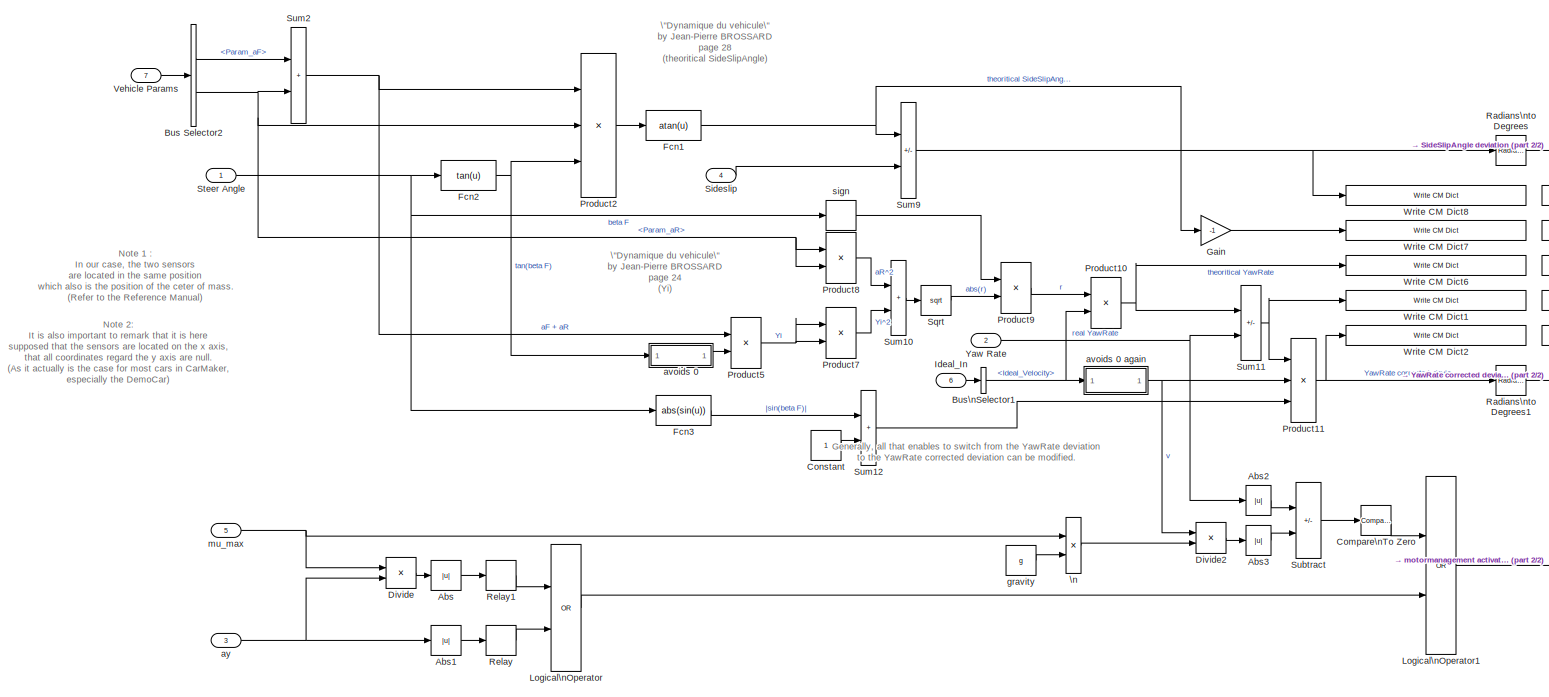
[diagram: CarMaker/IPG Vehicle/Brake/HydBrakeCU Example/ESP Controller/ESP General System/ESP/ECU/Instability detectors - part 1/2, most of the canvas]
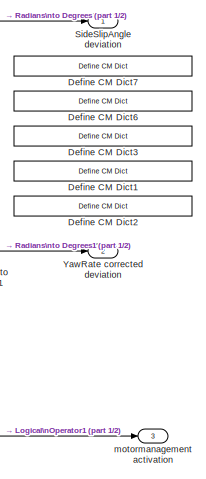
[diagram: CarMaker/IPG Vehicle/Brake/HydBrakeCU Example/ESP Controller/ESP General System/ESP/ECU/Instability detectors - part 2/2, middle right region]
BLOCK [SubSystem] CarMaker/IPG Vehicle/Brake/HydBrakeCU Example/ESP Controller/ESP General System/ESP/ECU/Instability detectors
  Ports = [7, 3]
  RequestExecContextInheritance = off
  SID = 11428
BLOCK [Abs] CarMaker/IPG Vehicle/Brake/HydBrakeCU Example/ESP Controller/ESP General System/ESP/ECU/Instability detectors/Abs
  SID = 11437
  SaturateOnIntegerOverflow = off
BLOCK [Abs] CarMaker/IPG Vehicle/Brake/HydBrakeCU Example/ESP Controller/ESP General System/ESP/ECU/Instability detectors/Abs1
  SID = 11438
  SaturateOnIntegerOverflow = off
BLOCK [Abs] CarMaker/IPG Vehicle/Brake/HydBrakeCU Example/ESP Controller/ESP General System/ESP/ECU/Instability detectors/Abs2
  SID = 11439
  SaturateOnIntegerOverflow = off
BLOCK [Abs] CarMaker/IPG Vehicle/Brake/HydBrakeCU Example/ESP Controller/ESP General System/ESP/ECU/Instability detectors/Abs3
  SID = 11440
  SaturateOnIntegerOverflow = off
BLOCK [BusSelector] CarMaker/IPG Vehicle/Brake/HydBrakeCU Example/ESP Controller/ESP General System/ESP/ECU/Instability detectors/Bus Selector2
  OutputSignals = VehicleGeometry.Param_aF,VehicleGeometry.Param_aR
  Ports = [1, 2]
  SID = 11442
BLOCK [BusSelector] CarMaker/IPG Vehicle/Brake/HydBrakeCU Example/ESP Controller/ESP General System/ESP/ECU/Instability detectors/Bus\nSelector1
  OutputSignals = Ideal_Velocity.Ideal_Velocity
  Ports = [1, 1]
  SID = 11441
BLOCK [Reference] CarMaker/IPG Vehicle/Brake/HydBrakeCU Example/ESP Controller/ESP General System/ESP/ECU/Instability detectors/Compare\nTo Zero  REF=simulink/Logic and Bit\nOperations/Compare\nTo Zero
  OutDataTypeStr = uint8
  Ports = [1, 1]
  SID = 11443
  SourceBlock = simulink/Logic and Bit\nOperations/Compare\nTo Zero
  SourceProductBaseCode = SL
  SourceType = Compare To Zero
  ZeroCross = on
  relop = >
BLOCK [Constant] CarMaker/IPG Vehicle/Brake/HydBrakeCU Example/ESP Controller/ESP General System/ESP/ECU/Instability detectors/Constant
  SID = 11444
BLOCK [Reference] CarMaker/IPG Vehicle/Brake/HydBrakeCU Example/ESP Controller/ESP General System/ESP/ECU/Instability detectors/Define CM Dict1  REF=CarMaker4SL/Define CM Dict
  NameLocation = top
  Ports = []
  SID = 11445
  SourceBlock = CarMaker4SL/Define CM Dict
  SourceType = Define CarMaker Dictionary Variable
  xdvaplace = None
  xfirststate = 0
  xinitial = 0
  xmono = off
  xname = ESP.YawRate_deviation
  xnstates = 0
  xtype = Double4
  xunit = rad/s
BLOCK [Reference] CarMaker/IPG Vehicle/Brake/HydBrakeCU Example/ESP Controller/ESP General System/ESP/ECU/Instability detectors/Define CM Dict2  REF=CarMaker4SL/Define CM Dict
  NameLocation = top
  Ports = []
  SID = 11446
  SourceBlock = CarMaker4SL/Define CM Dict
  SourceType = Define CarMaker Dictionary Variable
  xdvaplace = None
  xfirststate = 0
  xinitial = 0
  xmono = off
  xname = ESP.YawRate_corrected_deviation
  xnstates = 0
  xtype = Double4
  xunit = rad/m
BLOCK [Reference] CarMaker/IPG Vehicle/Brake/HydBrakeCU Example/ESP Controller/ESP General System/ESP/ECU/Instability detectors/Define CM Dict3  REF=CarMaker4SL/Define CM Dict
  NameLocation = top
  Ports = []
  SID = 11447
  SourceBlock = CarMaker4SL/Define CM Dict
  SourceType = Define CarMaker Dictionary Variable
  xdvaplace = None
  xfirststate = 0
  xinitial = 0
  xmono = off
  xname = ESP.YawRate_theoretical
  xnstates = 0
  xtype = Double4
  xunit = rad/s
BLOCK [Reference] CarMaker/IPG Vehicle/Brake/HydBrakeCU Example/ESP Controller/ESP General System/ESP/ECU/Instability detectors/Define CM Dict6  REF=CarMaker4SL/Define CM Dict
  NameLocation = top
  Ports = []
  SID = 11448
  SourceBlock = CarMaker4SL/Define CM Dict
  SourceType = Define CarMaker Dictionary Variable
  xdvaplace = None
  xfirststate = 0
  xinitial = 0
  xmono = off
  xname = ESP.SideSlipeAngle_theoretical
  xnstates = 0
  xtype = Double4
  xunit = rad
BLOCK [Reference] CarMaker/IPG Vehicle/Brake/HydBrakeCU Example/ESP Controller/ESP General System/ESP/ECU/Instability detectors/Define CM Dict7  REF=CarMaker4SL/Define CM Dict
  NameLocation = top
  Ports = []
  SID = 11449
  SourceBlock = CarMaker4SL/Define CM Dict
  SourceType = Define CarMaker Dictionary Variable
  xdvaplace = None
  xfirststate = 0
  xinitial = 0
  xmono = off
  xname = ESP.SideSlipAngle_deviation
  xnstates = 0
  xtype = Double4
  xunit = rad
BLOCK [Product] CarMaker/IPG Vehicle/Brake/HydBrakeCU Example/ESP Controller/ESP General System/ESP/ECU/Instability detectors/Divide
  Inputs = /*
  Ports = [2, 1]
  SID = 11450
BLOCK [Product] CarMaker/IPG Vehicle/Brake/HydBrakeCU Example/ESP Controller/ESP General System/ESP/ECU/Instability detectors/Divide2
  Inputs = /*
  Ports = [2, 1]
  SID = 11451
BLOCK [Fcn] CarMaker/IPG Vehicle/Brake/HydBrakeCU Example/ESP Controller/ESP General System/ESP/ECU/Instability detectors/Fcn1
  Expr = atan(u)
  SID = 11452
BLOCK [Fcn] CarMaker/IPG Vehicle/Brake/HydBrakeCU Example/ESP Controller/ESP General System/ESP/ECU/Instability detectors/Fcn2
  Expr = tan(u)
  SID = 11453
BLOCK [Fcn] CarMaker/IPG Vehicle/Brake/HydBrakeCU Example/ESP Controller/ESP General System/ESP/ECU/Instability detectors/Fcn3
  Expr = abs(sin(u))
  SID = 11454
BLOCK [Gain] CarMaker/IPG Vehicle/Brake/HydBrakeCU Example/ESP Controller/ESP General System/ESP/ECU/Instability detectors/Gain
  Gain = -1
  SID = 11455
BLOCK [Inport] CarMaker/IPG Vehicle/Brake/HydBrakeCU Example/ESP Controller/ESP General System/ESP/ECU/Instability detectors/Ideal_In
  Port = 6
  SID = 11434
BLOCK [Logic] CarMaker/IPG Vehicle/Brake/HydBrakeCU Example/ESP Controller/ESP General System/ESP/ECU/Instability detectors/Logical\nOperator
  AllPortsSameDT = off
  Operator = OR
  OutDataTypeStr = boolean
  Ports = [2, 1]
  SID = 11456
BLOCK [Logic] CarMaker/IPG Vehicle/Brake/HydBrakeCU Example/ESP Controller/ESP General System/ESP/ECU/Instability detectors/Logical\nOperator1
  AllPortsSameDT = off
  Operator = OR
  OutDataTypeStr = boolean
  Ports = [2, 1]
  SID = 11457
BLOCK [Product] CarMaker/IPG Vehicle/Brake/HydBrakeCU Example/ESP Controller/ESP General System/ESP/ECU/Instability detectors/Product10
  Inputs = /*
  NameLocation = top
  Ports = [2, 1]
  RndMeth = Zero
  SID = 11458
BLOCK [Product] CarMaker/IPG Vehicle/Brake/HydBrakeCU Example/ESP Controller/ESP General System/ESP/ECU/Instability detectors/Product11
  Inputs = */*
  Ports = [3, 1]
  RndMeth = Zero
  SID = 11459
BLOCK [Product] CarMaker/IPG Vehicle/Brake/HydBrakeCU Example/ESP Controller/ESP General System/ESP/ECU/Instability detectors/Product2
  Inputs = /**
  Ports = [3, 1]
  RndMeth = Zero
  SID = 11460
BLOCK [Product] CarMaker/IPG Vehicle/Brake/HydBrakeCU Example/ESP Controller/ESP General System/ESP/ECU/Instability detectors/Product5
  Inputs = */
  Ports = [2, 1]
  RndMeth = Zero
  SID = 11461
BLOCK [Product] CarMaker/IPG Vehicle/Brake/HydBrakeCU Example/ESP Controller/ESP General System/ESP/ECU/Instability detectors/Product7
  Ports = [2, 1]
  RndMeth = Zero
  SID = 11462
BLOCK [Product] CarMaker/IPG Vehicle/Brake/HydBrakeCU Example/ESP Controller/ESP General System/ESP/ECU/Instability detectors/Product8
  Ports = [2, 1]
  RndMeth = Zero
  SID = 11463
BLOCK [Product] CarMaker/IPG Vehicle/Brake/HydBrakeCU Example/ESP Controller/ESP General System/ESP/ECU/Instability detectors/Product9
  Ports = [2, 1]
  RndMeth = Zero
  SID = 11464
BLOCK [Reference] CarMaker/IPG Vehicle/Brake/HydBrakeCU Example/ESP Controller/ESP General System/ESP/ECU/Instability detectors/Radians\nto Degrees  REF=simulink_extras/Transformations/Radians\nto Degrees
  Ports = [1, 1]
  SID = 11465
  SourceBlock = simulink_extras/Transformations/Radians\nto Degrees
  SourceProductBaseCode = SL
  SourceType = RadiansToDegrees
BLOCK [Reference] CarMaker/IPG Vehicle/Brake/HydBrakeCU Example/ESP Controller/ESP General System/ESP/ECU/Instability detectors/Radians\nto Degrees1  REF=simulink_extras/Transformations/Radians\nto Degrees
  Ports = [1, 1]
  SID = 11466
  SourceBlock = simulink_extras/Transformations/Radians\nto Degrees
  SourceProductBaseCode = SL
  SourceType = RadiansToDegrees
BLOCK [Relay] CarMaker/IPG Vehicle/Brake/HydBrakeCU Example/ESP Controller/ESP General System/ESP/ECU/Instability detectors/Relay
  OffSwitchValue = ay_max_off
  OnSwitchValue = ay_max_on
  SID = 11467
BLOCK [Relay] CarMaker/IPG Vehicle/Brake/HydBrakeCU Example/ESP Controller/ESP General System/ESP/ECU/Instability detectors/Relay1
  OffSwitchValue = ay_per_mu_max_off
  OnSwitchValue = ay_per_mu_max_on
  SID = 11468
BLOCK [Outport] CarMaker/IPG Vehicle/Brake/HydBrakeCU Example/ESP Controller/ESP General System/ESP/ECU/Instability detectors/SideSlipAngle deviation
  SID = 11500
  VectorParamsAs1DForOutWhenUnconnected = off
BLOCK [Inport] CarMaker/IPG Vehicle/Brake/HydBrakeCU Example/ESP Controller/ESP General System/ESP/ECU/Instability detectors/Sideslip
  Port = 4
  SID = 11432
BLOCK [Math] CarMaker/IPG Vehicle/Brake/HydBrakeCU Example/ESP Controller/ESP General System/ESP/ECU/Instability detectors/Sqrt
  Operator = sqrt
  Ports = [1, 1]
  SID = 11469
  SignedPower = on
BLOCK [Inport] CarMaker/IPG Vehicle/Brake/HydBrakeCU Example/ESP Controller/ESP General System/ESP/ECU/Instability detectors/Steer Angle
  SID = 11429
BLOCK [Sum] CarMaker/IPG Vehicle/Brake/HydBrakeCU Example/ESP Controller/ESP General System/ESP/ECU/Instability detectors/Subtract
  IconShape = rectangular
  Inputs = +-
  Ports = [2, 1]
  SID = 11470
BLOCK [Sum] CarMaker/IPG Vehicle/Brake/HydBrakeCU Example/ESP Controller/ESP General System/ESP/ECU/Instability detectors/Sum10
  IconShape = rectangular
  InputSameDT = on
  Inputs = 2
  NameLocation = top
  OutDataTypeStr = Inherit: Same as first input
  Ports = [2, 1]
  SID = 11471
  SaturateOnIntegerOverflow = on
BLOCK [Sum] CarMaker/IPG Vehicle/Brake/HydBrakeCU Example/ESP Controller/ESP General System/ESP/ECU/Instability detectors/Sum11
  IconShape = rectangular
  InputSameDT = on
  Inputs = -+
  NameLocation = top
  OutDataTypeStr = Inherit: Same as first input
  Ports = [2, 1]
  SID = 11472
  SaturateOnIntegerOverflow = on
BLOCK [Sum] CarMaker/IPG Vehicle/Brake/HydBrakeCU Example/ESP Controller/ESP General System/ESP/ECU/Instability detectors/Sum12
  IconShape = rectangular
  InputSameDT = on
  NameLocation = top
  OutDataTypeStr = Inherit: Same as first input
  Ports = [2, 1]
  SID = 11473
  SaturateOnIntegerOverflow = on
BLOCK [Sum] CarMaker/IPG Vehicle/Brake/HydBrakeCU Example/ESP Controller/ESP General System/ESP/ECU/Instability detectors/Sum2
  IconShape = rectangular
  InputSameDT = on
  Inputs = 2
  NameLocation = top
  OutDataTypeStr = Inherit: Same as first input
  Ports = [2, 1]
  SID = 11474
  SaturateOnIntegerOverflow = on
BLOCK [Sum] CarMaker/IPG Vehicle/Brake/HydBrakeCU Example/ESP Controller/ESP General System/ESP/ECU/Instability detectors/Sum9
  IconShape = rectangular
  InputSameDT = on
  Inputs = -+
  NameLocation = top
  OutDataTypeStr = Inherit: Same as first input
  Ports = [2, 1]
  SID = 11475
  SaturateOnIntegerOverflow = on
BLOCK [Inport] CarMaker/IPG Vehicle/Brake/HydBrakeCU Example/ESP Controller/ESP General System/ESP/ECU/Instability detectors/Vehicle Params
  Port = 7
  SID = 11435
BLOCK [Reference] CarMaker/IPG Vehicle/Brake/HydBrakeCU Example/ESP Controller/ESP General System/ESP/ECU/Instability detectors/Write CM Dict1  REF=CarMaker4SL/Write CM Dict
  NameLocation = top
  Ports = [1]
  SID = 11476
  SourceBlock = CarMaker4SL/Write CM Dict
  SourceType = Write CarMaker Dictionary Variable(s)
  xname = ESP.YawRate_deviation
  xsync = off
BLOCK [Reference] CarMaker/IPG Vehicle/Brake/HydBrakeCU Example/ESP Controller/ESP General System/ESP/ECU/Instability detectors/Write CM Dict2  REF=CarMaker4SL/Write CM Dict
  NameLocation = top
  Ports = [1]
  SID = 11477
  SourceBlock = CarMaker4SL/Write CM Dict
  SourceType = Write CarMaker Dictionary Variable(s)
  xname = ESP.YawRate_corrected_deviation
  xsync = off
BLOCK [Reference] CarMaker/IPG Vehicle/Brake/HydBrakeCU Example/ESP Controller/ESP General System/ESP/ECU/Instability detectors/Write CM Dict6  REF=CarMaker4SL/Write CM Dict
  NameLocation = top
  Ports = [1]
  SID = 11478
  SourceBlock = CarMaker4SL/Write CM Dict
  SourceType = Write CarMaker Dictionary Variable(s)
  xname = ESP.YawRate_theoretical
  xsync = off
BLOCK [Reference] CarMaker/IPG Vehicle/Brake/HydBrakeCU Example/ESP Controller/ESP General System/ESP/ECU/Instability detectors/Write CM Dict7  REF=CarMaker4SL/Write CM Dict
  NameLocation = top
  Ports = [1]
  SID = 11479
  SourceBlock = CarMaker4SL/Write CM Dict
  SourceType = Write CarMaker Dictionary Variable(s)
  xname = ESP.SideSlipeAngle_theoretical
  xsync = off
BLOCK [Reference] CarMaker/IPG Vehicle/Brake/HydBrakeCU Example/ESP Controller/ESP General System/ESP/ECU/Instability detectors/Write CM Dict8  REF=CarMaker4SL/Write CM Dict
  NameLocation = top
  Ports = [1]
  SID = 11480
  SourceBlock = CarMaker4SL/Write CM Dict
  SourceType = Write CarMaker Dictionary Variable(s)
  xname = ESP.SideSlipAngle_deviation
  xsync = off
BLOCK [Inport] CarMaker/IPG Vehicle/Brake/HydBrakeCU Example/ESP Controller/ESP General System/ESP/ECU/Instability detectors/Yaw Rate
  Port = 2
  SID = 11430
BLOCK [Outport] CarMaker/IPG Vehicle/Brake/HydBrakeCU Example/ESP Controller/ESP General System/ESP/ECU/Instability detectors/YawRate corrected deviation
  Port = 2
  SID = 11501
  VectorParamsAs1DForOutWhenUnconnected = off
BLOCK [Product] CarMaker/IPG Vehicle/Brake/HydBrakeCU Example/ESP Controller/ESP General System/ESP/ECU/Instability detectors/\n
  Inputs = **
  Ports = [2, 1]
  SID = 11436
BLOCK [SubSystem] CarMaker/IPG Vehicle/Brake/HydBrakeCU Example/ESP Controller/ESP General System/ESP/ECU/Instability detectors/avoids 0
  Ports = [1, 1]
  RequestExecContextInheritance = off
  SID = 11481
BLOCK [SubSystem] CarMaker/IPG Vehicle/Brake/HydBrakeCU Example/ESP Controller/ESP General System/ESP/ECU/Instability detectors/avoids 0 again
  Ports = [1, 1]
  RequestExecContextInheritance = off
  SID = 11491
BLOCK [Inport] CarMaker/IPG Vehicle/Brake/HydBrakeCU Example/ESP Controller/ESP General System/ESP/ECU/Instability detectors/avoids 0 again/In1
  SID = 11492
BLOCK [Outport] CarMaker/IPG Vehicle/Brake/HydBrakeCU Example/ESP Controller/ESP General System/ESP/ECU/Instability detectors/avoids 0 again/Out1
  SID = 11496
  VectorParamsAs1DForOutWhenUnconnected = off
BLOCK [RelationalOperator] CarMaker/IPG Vehicle/Brake/HydBrakeCU Example/ESP Controller/ESP General System/ESP/ECU/Instability detectors/avoids 0 again/Relational\nOperator
  InputSameDT = off
  OutDataTypeStr = boolean
  Ports = [2, 1]
  SID = 11493
BLOCK [Switch] CarMaker/IPG Vehicle/Brake/HydBrakeCU Example/ESP Controller/ESP General System/ESP/ECU/Instability detectors/avoids 0 again/Switch
  Criteria = u2 > Threshold
  InputSameDT = off
  SID = 11494
  SaturateOnIntegerOverflow = off
BLOCK [Constant] CarMaker/IPG Vehicle/Brake/HydBrakeCU Example/ESP Controller/ESP General System/ESP/ECU/Instability detectors/avoids 0 again/velocity (in m//s)
  SID = 11495
  Value = 3/3.6
BLOCK [Reference] CarMaker/IPG Vehicle/Brake/HydBrakeCU Example/ESP Controller/ESP General System/ESP/ECU/Instability detectors/avoids 0/Compare\nTo Zero  REF=simulink/Logic and Bit\nOperations/Compare\nTo Zero
  OutDataTypeStr = uint8
  Ports = [1, 1]
  SID = 11483
  SourceBlock = simulink/Logic and Bit\nOperations/Compare\nTo Zero
  SourceProductBaseCode = SL
  SourceType = Compare To Zero
  ZeroCross = on
  relop = ~=
BLOCK [Constant] CarMaker/IPG Vehicle/Brake/HydBrakeCU Example/ESP Controller/ESP General System/ESP/ECU/Instability detectors/avoids 0/Constant
  NameLocation = top
  SID = 11484
  Value = 0.00001
BLOCK [DeadZone] CarMaker/IPG Vehicle/Brake/HydBrakeCU Example/ESP Controller/ESP General System/ESP/ECU/Instability detectors/avoids 0/Dead Zone
  LowerValue = -0.00001
  SID = 11485
  UpperValue = 0.00001
BLOCK [Inport] CarMaker/IPG Vehicle/Brake/HydBrakeCU Example/ESP Controller/ESP General System/ESP/ECU/Instability detectors/avoids 0/In1
  SID = 11482
BLOCK [Relay] CarMaker/IPG Vehicle/Brake/HydBrakeCU Example/ESP Controller/ESP General System/ESP/ECU/Instability detectors/avoids 0/ON//OFF
  NameLocation = left
  OffOutputValue = -1
  OffSwitchValue = 0
  OnSwitchValue = 0
  SID = 11486
  ZeroCross = off
BLOCK [Outport] CarMaker/IPG Vehicle/Brake/HydBrakeCU Example/ESP Controller/ESP General System/ESP/ECU/Instability detectors/avoids 0/Out1
  SID = 11489
  VectorParamsAs1DForOutWhenUnconnected = off
BLOCK [Product] CarMaker/IPG Vehicle/Brake/HydBrakeCU Example/ESP Controller/ESP General System/ESP/ECU/Instability detectors/avoids 0/Product7
  Ports = [2, 1]
  RndMeth = Zero
  SID = 11487
BLOCK [Switch] CarMaker/IPG Vehicle/Brake/HydBrakeCU Example/ESP Controller/ESP General System/ESP/ECU/Instability detectors/avoids 0/Switch
  Criteria = u2 > Threshold
  InputSameDT = off
  SID = 11488
  SaturateOnIntegerOverflow = off
BLOCK [Inport] CarMaker/IPG Vehicle/Brake/HydBrakeCU Example/ESP Controller/ESP General System/ESP/ECU/Instability detectors/ay
  Port = 3
  SID = 11431
BLOCK [Constant] CarMaker/IPG Vehicle/Brake/HydBrakeCU Example/ESP Controller/ESP General System/ESP/ECU/Instability detectors/gravity
  SID = 11498
  Value = g
BLOCK [Outport] CarMaker/IPG Vehicle/Brake/HydBrakeCU Example/ESP Controller/ESP General System/ESP/ECU/Instability detectors/motormanagement activation
  Port = 3
  SID = 11502
  VectorParamsAs1DForOutWhenUnconnected = off
BLOCK [Inport] CarMaker/IPG Vehicle/Brake/HydBrakeCU Example/ESP Controller/ESP General System/ESP/ECU/Instability detectors/mu_max
  Port = 5
  SID = 11433
BLOCK [Relay] CarMaker/IPG Vehicle/Brake/HydBrakeCU Example/ESP Controller/ESP General System/ESP/ECU/Instability detectors/sign
  OffOutputValue = -1
  OffSwitchValue = 0
  OnSwitchValue = 0
  SID = 11499
BLOCK [SubSystem] CarMaker/IPG Vehicle/Brake/HydBrakeCU Example/ESP Controller/ESP General System/ESP/ECU/Motor management strategy
  Ports = [3, 1]
  RequestExecContextInheritance = off
  SID = 11508
BLOCK [Abs] CarMaker/IPG Vehicle/Brake/HydBrakeCU Example/ESP Controller/ESP General System/ESP/ECU/Motor management strategy/Abs1
  SID = 11512
  SaturateOnIntegerOverflow = off
BLOCK [Reference] CarMaker/IPG Vehicle/Brake/HydBrakeCU Example/ESP Controller/ESP General System/ESP/ECU/Motor management strategy/Compare\nTo Zero  REF=simulink/Logic and Bit\nOperations/Compare\nTo Zero
  OutDataTypeStr = uint8
  Ports = [1, 1]
  SID = 11513
  SourceBlock = simulink/Logic and Bit\nOperations/Compare\nTo Zero
  SourceProductBaseCode = SL
  SourceType = Compare To Zero
  ZeroCross = on
  relop = ==
BLOCK [Constant] CarMaker/IPG Vehicle/Brake/HydBrakeCU Example/ESP Controller/ESP General System/ESP/ECU/Motor management strategy/Constant
  SID = 11514
  Value = ESP_min_throttle_fac
BLOCK [DataTypeConversion] CarMaker/IPG Vehicle/Brake/HydBrakeCU Example/ESP Controller/ESP General System/ESP/ECU/Motor management strategy/Data Type Conversion2
  RndMeth = Floor
  SID = 11515
  SaturateOnIntegerOverflow = off
BLOCK [Outport] CarMaker/IPG Vehicle/Brake/HydBrakeCU Example/ESP Controller/ESP General System/ESP/ECU/Motor management strategy/Gas_out
  SID = 11563
  VectorParamsAs1DForOutWhenUnconnected = off
BLOCK [SubSystem] CarMaker/IPG Vehicle/Brake/HydBrakeCU Example/ESP Controller/ESP General System/ESP/ECU/Motor management strategy/PID-Controller
  Ports = [2, 1]
  RequestExecContextInheritance = off
  SID = 11516
BLOCK [Gain] CarMaker/IPG Vehicle/Brake/HydBrakeCU Example/ESP Controller/ESP General System/ESP/ECU/Motor management strategy/PID-Controller/Derivative Gain
  Gain = ESP_ctrl_kD
  SID = 11519
BLOCK [Integrator] CarMaker/IPG Vehicle/Brake/HydBrakeCU Example/ESP Controller/ESP General System/ESP/ECU/Motor management strategy/PID-Controller/Filter
  ExternalReset = either
  Ports = [2, 1]
  SID = 11520
BLOCK [Gain] CarMaker/IPG Vehicle/Brake/HydBrakeCU Example/ESP Controller/ESP General System/ESP/ECU/Motor management strategy/PID-Controller/Filter Coefficient
  SID = 11521
BLOCK [Gain] CarMaker/IPG Vehicle/Brake/HydBrakeCU Example/ESP Controller/ESP General System/ESP/ECU/Motor management strategy/PID-Controller/Integral Gain
  Gain = ESP_ctrl_kI
  SID = 11522
BLOCK [Integrator] CarMaker/IPG Vehicle/Brake/HydBrakeCU Example/ESP Controller/ESP General System/ESP/ECU/Motor management strategy/PID-Controller/Integrator
  ExternalReset = either
  Ports = [2, 1]
  SID = 11523
BLOCK [Gain] CarMaker/IPG Vehicle/Brake/HydBrakeCU Example/ESP Controller/ESP General System/ESP/ECU/Motor management strategy/PID-Controller/Proportional Gain
  Gain = ESP_ctrl_kP
  SID = 11524
BLOCK [Inport] CarMaker/IPG Vehicle/Brake/HydBrakeCU Example/ESP Controller/ESP General System/ESP/ECU/Motor management strategy/PID-Controller/RESET
  Port = 2
  SID = 11518
BLOCK [Sum] CarMaker/IPG Vehicle/Brake/HydBrakeCU Example/ESP Controller/ESP General System/ESP/ECU/Motor management strategy/PID-Controller/Sum
  Inputs = +++
  Ports = [3, 1]
  SID = 11525
BLOCK [Sum] CarMaker/IPG Vehicle/Brake/HydBrakeCU Example/ESP Controller/ESP General System/ESP/ECU/Motor management strategy/PID-Controller/SumD
  Inputs = |+-
  Ports = [2, 1]
  SID = 11526
BLOCK [Inport] CarMaker/IPG Vehicle/Brake/HydBrakeCU Example/ESP Controller/ESP General System/ESP/ECU/Motor management strategy/PID-Controller/u
  SID = 11517
BLOCK [Outport] CarMaker/IPG Vehicle/Brake/HydBrakeCU Example/ESP Controller/ESP General System/ESP/ECU/Motor management strategy/PID-Controller/y
  InitialOutput = 0
  SID = 11527
  VectorParamsAs1DForOutWhenUnconnected = off
BLOCK [Product] CarMaker/IPG Vehicle/Brake/HydBrakeCU Example/ESP Controller/ESP General System/ESP/ECU/Motor management strategy/Product
  Ports = [2, 1]
  RndMeth = Zero
  SID = 11528
BLOCK [Reference] CarMaker/IPG Vehicle/Brake/HydBrakeCU Example/ESP Controller/ESP General System/ESP/ECU/Motor management strategy/Saturation\nDynamic  REF=simulink/Discontinuities/Saturation\nDynamic
  DoSatur = off
  LockScale = off
  OutDataType = sfix(16)
  OutDataTypeStr = Inherit: Same as second input
  OutMax = []
  OutMin = []
  OutScaling = 2^-10
  OutputDataTypeScalingMode = Same as second input
  Ports = [3, 1]
  RndMeth = Floor
  SID = 11529
  SourceBlock = simulink/Discontinuities/Saturation\nDynamic
  SourceProductBaseCode = SL
  SourceType = Saturation Dynamic
BLOCK [Switch] CarMaker/IPG Vehicle/Brake/HydBrakeCU Example/ESP Controller/ESP General System/ESP/ECU/Motor management strategy/Switch1
  Criteria = u2 > Threshold
  InputSameDT = off
  SID = 11530
  SaturateOnIntegerOverflow = off
BLOCK [Switch] CarMaker/IPG Vehicle/Brake/HydBrakeCU Example/ESP Controller/ESP General System/ESP/ECU/Motor management strategy/Switch3
  Criteria = u2 > Threshold
  InputSameDT = off
  SID = 11531
  SaturateOnIntegerOverflow = off
BLOCK [Inport] CarMaker/IPG Vehicle/Brake/HydBrakeCU Example/ESP Controller/ESP General System/ESP/ECU/Motor management strategy/Throttle_position
  Port = 2
  SID = 11510
BLOCK [Inport] CarMaker/IPG Vehicle/Brake/HydBrakeCU Example/ESP Controller/ESP General System/ESP/ECU/Motor management strategy/activation DK
  SID = 11509
BLOCK [Inport] CarMaker/IPG Vehicle/Brake/HydBrakeCU Example/ESP Controller/ESP General System/ESP/ECU/Motor management strategy/ax
  Port = 3
  SID = 11511
BLOCK [SubSystem] CarMaker/IPG Vehicle/Brake/HydBrakeCU Example/ESP Controller/ESP General System/ESP/ECU/Motor management strategy/restoration to driver
  Ports = [3, 2]
  RequestExecContextInheritance = off
  SID = 11532
BLOCK [Outport] CarMaker/IPG Vehicle/Brake/HydBrakeCU Example/ESP Controller/ESP General System/ESP/ECU/Motor management strategy/restoration to driver/Control Gas
  SID = 11560
  VectorParamsAs1DForOutWhenUnconnected = off
BLOCK [SubSystem] CarMaker/IPG Vehicle/Brake/HydBrakeCU Example/ESP Controller/ESP General System/ESP/ECU/Motor management strategy/restoration to driver/I-Controller
  Ports = [3, 1]
  RequestExecContextInheritance = off
  SID = 11536
BLOCK [Inport] CarMaker/IPG Vehicle/Brake/HydBrakeCU Example/ESP Controller/ESP General System/ESP/ECU/Motor management strategy/restoration to driver/I-Controller/I0
  Port = 3
  SID = 11539
BLOCK [Gain] CarMaker/IPG Vehicle/Brake/HydBrakeCU Example/ESP Controller/ESP General System/ESP/ECU/Motor management strategy/restoration to driver/I-Controller/Integral Gain
  Gain = ESP_ctrl_restore_kI
  SID = 11540
BLOCK [Integrator] CarMaker/IPG Vehicle/Brake/HydBrakeCU Example/ESP Controller/ESP General System/ESP/ECU/Motor management strategy/restoration to driver/I-Controller/Integrator
  ExternalReset = either
  InitialCondition = InitialConditionForIntegrator
  InitialConditionSource = external
  Ports = [3, 1]
  SID = 11541
BLOCK [Inport] CarMaker/IPG Vehicle/Brake/HydBrakeCU Example/ESP Controller/ESP General System/ESP/ECU/Motor management strategy/restoration to driver/I-Controller/RESET
  Port = 2
  SID = 11538
BLOCK [Inport] CarMaker/IPG Vehicle/Brake/HydBrakeCU Example/ESP Controller/ESP General System/ESP/ECU/Motor management strategy/restoration to driver/I-Controller/u
  SID = 11537
BLOCK [Outport] CarMaker/IPG Vehicle/Brake/HydBrakeCU Example/ESP Controller/ESP General System/ESP/ECU/Motor management strategy/restoration to driver/I-Controller/y
  InitialOutput = 0
  SID = 11542
  VectorParamsAs1DForOutWhenUnconnected = off
BLOCK [Reference] CarMaker/IPG Vehicle/Brake/HydBrakeCU Example/ESP Controller/ESP General System/ESP/ECU/Motor management strategy/restoration to driver/Saturation\nDynamic1  REF=simulink/Discontinuities/Saturation\nDynamic
  DoSatur = off
  LockScale = off
  OutDataType = sfix(16)
  OutDataTypeStr = Inherit: Same as second input
  OutMax = []
  OutMin = []
  OutScaling = 2^-10
  OutputDataTypeScalingMode = Same as second input
  Ports = [3, 1]
  RndMeth = Floor
  SID = 11543
  SourceBlock = simulink/Discontinuities/Saturation\nDynamic
  SourceProductBaseCode = SL
  SourceType = Saturation Dynamic
BLOCK [Sum] CarMaker/IPG Vehicle/Brake/HydBrakeCU Example/ESP Controller/ESP General System/ESP/ECU/Motor management strategy/restoration to driver/Subtract1
  IconShape = rectangular
  Inputs = +-
  Ports = [2, 1]
  SID = 11544
BLOCK [Inport] CarMaker/IPG Vehicle/Brake/HydBrakeCU Example/ESP Controller/ESP General System/ESP/ECU/Motor management strategy/restoration to driver/activation on
  Port = 2
  SID = 11534
BLOCK [Inport] CarMaker/IPG Vehicle/Brake/HydBrakeCU Example/ESP Controller/ESP General System/ESP/ECU/Motor management strategy/restoration to driver/controller in
  SID = 11533
BLOCK [Inport] CarMaker/IPG Vehicle/Brake/HydBrakeCU Example/ESP Controller/ESP General System/ESP/ECU/Motor management strategy/restoration to driver/driver in
  Port = 3
  SID = 11535
BLOCK [SubSystem] CarMaker/IPG Vehicle/Brake/HydBrakeCU Example/ESP Controller/ESP General System/ESP/ECU/Motor management strategy/restoration to driver/lock_signal for n s
  Ports = [1, 1]
  RequestExecContextInheritance = off
  SID = 11545
BLOCK [Constant] CarMaker/IPG Vehicle/Brake/HydBrakeCU Example/ESP Controller/ESP General System/ESP/ECU/Motor management strategy/restoration to driver/lock_signal for n s/Constant
  SID = 11548
  Value = locktime_throttle
BLOCK [DataTypeConversion] CarMaker/IPG Vehicle/Brake/HydBrakeCU Example/ESP Controller/ESP General System/ESP/ECU/Motor management strategy/restoration to driver/lock_signal for n s/Data Type Conversion
  RndMeth = Floor
  SID = 11549
  SaturateOnIntegerOverflow = off
BLOCK [Integrator] CarMaker/IPG Vehicle/Brake/HydBrakeCU Example/ESP Controller/ESP General System/ESP/ECU/Motor management strategy/restoration to driver/lock_signal for n s/Integrator
  ExternalReset = falling
  Ports = [2, 1]
  SID = 11550
BLOCK [Logic] CarMaker/IPG Vehicle/Brake/HydBrakeCU Example/ESP Controller/ESP General System/ESP/ECU/Motor management strategy/restoration to driver/lock_signal for n s/Logical\nOperator3
  AllPortsSameDT = off
  OutDataTypeStr = boolean
  Ports = [2, 1]
  SID = 11551
BLOCK [RelationalOperator] CarMaker/IPG Vehicle/Brake/HydBrakeCU Example/ESP Controller/ESP General System/ESP/ECU/Motor management strategy/restoration to driver/lock_signal for n s/Relational Operator
  InputSameDT = off
  Operator = <=
  OutDataTypeStr = boolean
  Ports = [2, 1]
  SID = 11552
BLOCK [Inport] CarMaker/IPG Vehicle/Brake/HydBrakeCU Example/ESP Controller/ESP General System/ESP/ECU/Motor management strategy/restoration to driver/lock_signal for n s/Start_value
  SID = 11546
BLOCK [Outport] CarMaker/IPG Vehicle/Brake/HydBrakeCU Example/ESP Controller/ESP General System/ESP/ECU/Motor management strategy/restoration to driver/lock_signal for n s/Start_value_locked
  SID = 11557
  VectorParamsAs1DForOutWhenUnconnected = off
BLOCK [SubSystem] CarMaker/IPG Vehicle/Brake/HydBrakeCU Example/ESP Controller/ESP General System/ESP/ECU/Motor management strategy/restoration to driver/lock_signal for n s/Triggered\nSubsystem
  Ports = [0, 1, 0, 1]
  RequestExecContextInheritance = off
  SID = 11553
  TreatAsAtomicUnit = on
BLOCK [Constant] CarMaker/IPG Vehicle/Brake/HydBrakeCU Example/ESP Controller/ESP General System/ESP/ECU/Motor management strategy/restoration to driver/lock_signal for n s/Triggered\nSubsystem/Constant1
  SID = 11555
BLOCK [Outport] CarMaker/IPG Vehicle/Brake/HydBrakeCU Example/ESP Controller/ESP General System/ESP/ECU/Motor management strategy/restoration to driver/lock_signal for n s/Triggered\nSubsystem/Out1
  InitialOutput = [0]
  SID = 11556
  VectorParamsAs1DForOutWhenUnconnected = off
BLOCK [TriggerPort] CarMaker/IPG Vehicle/Brake/HydBrakeCU Example/ESP Controller/ESP General System/ESP/ECU/Motor management strategy/restoration to driver/lock_signal for n s/Triggered\nSubsystem/Trigger
  Ports = []
  SID = 11554
  StatesWhenEnabling = held
  TriggerType = falling
  VariantControl = Variant
BLOCK [Reference] CarMaker/IPG Vehicle/Brake/HydBrakeCU Example/ESP Controller/ESP General System/ESP/ECU/Motor management strategy/restoration to driver/lock_signal for n s/\n  REF=simulink/Logic and Bit\nOperations/Compare\nTo Constant
  OutDataTypeStr = uint8
  Ports = [1, 1]
  SID = 11547
  SourceBlock = simulink/Logic and Bit\nOperations/Compare\nTo Constant
  SourceProductBaseCode = SL
  SourceType = Compare To Constant
  ZeroCross = on
  const = 0
  relop = >
BLOCK [Outport] CarMaker/IPG Vehicle/Brake/HydBrakeCU Example/ESP Controller/ESP General System/ESP/ECU/Motor management strategy/restoration to driver/restoration
  Port = 2
  SID = 11561
  VectorParamsAs1DForOutWhenUnconnected = off
BLOCK [Gain] CarMaker/IPG Vehicle/Brake/HydBrakeCU Example/ESP Controller/ESP General System/ESP/ECU/Motor management strategy/restoration to driver/vquer_VA4
  Gain = 0
  SID = 11558
BLOCK [Gain] CarMaker/IPG Vehicle/Brake/HydBrakeCU Example/ESP Controller/ESP General System/ESP/ECU/Motor management strategy/restoration to driver/vquer_VA5
  SID = 11559
BLOCK [Gain] CarMaker/IPG Vehicle/Brake/HydBrakeCU Example/ESP Controller/ESP General System/ESP/ECU/Motor management strategy/vquer_VA1
  SID = 11562
BLOCK [Outport] CarMaker/IPG Vehicle/Brake/HydBrakeCU Example/ESP Controller/ESP General System/ESP/ECU/RL_Trq_target
  Port = 7
  SID = 11677
  VectorParamsAs1DForOutWhenUnconnected = off
BLOCK [Outport] CarMaker/IPG Vehicle/Brake/HydBrakeCU Example/ESP Controller/ESP General System/ESP/ECU/RL_active
  Port = 6
  SID = 11676
  VectorParamsAs1DForOutWhenUnconnected = off
BLOCK [Outport] CarMaker/IPG Vehicle/Brake/HydBrakeCU Example/ESP Controller/ESP General System/ESP/ECU/RR_Trq_target
  Port = 9
  SID = 11679
  VectorParamsAs1DForOutWhenUnconnected = off
BLOCK [Outport] CarMaker/IPG Vehicle/Brake/HydBrakeCU Example/ESP Controller/ESP General System/ESP/ECU/RR_active
  Port = 8
  SID = 11678
  VectorParamsAs1DForOutWhenUnconnected = off
BLOCK [Inport] CarMaker/IPG Vehicle/Brake/HydBrakeCU Example/ESP Controller/ESP General System/ESP/ECU/Sideslip
  Port = 5
  SID = 11351
BLOCK [Inport] CarMaker/IPG Vehicle/Brake/HydBrakeCU Example/ESP Controller/ESP General System/ESP/ECU/Steer Angle
  Port = 4
  SID = 11350
BLOCK [Inport] CarMaker/IPG Vehicle/Brake/HydBrakeCU Example/ESP Controller/ESP General System/ESP/ECU/Throttle Position
  Port = 2
  SID = 11348
BLOCK [Inport] CarMaker/IPG Vehicle/Brake/HydBrakeCU Example/ESP Controller/ESP General System/ESP/ECU/User_In
  Port = 10
  SID = 11356
BLOCK [Inport] CarMaker/IPG Vehicle/Brake/HydBrakeCU Example/ESP Controller/ESP General System/ESP/ECU/Vehicle Params
  Port = 9
  SID = 11355
BLOCK [Inport] CarMaker/IPG Vehicle/Brake/HydBrakeCU Example/ESP Controller/ESP General System/ESP/ECU/Yaw Rate
  Port = 3
  SID = 11349
BLOCK [Inport] CarMaker/IPG Vehicle/Brake/HydBrakeCU Example/ESP Controller/ESP General System/ESP/ECU/ax
  SID = 11347
BLOCK [Inport] CarMaker/IPG Vehicle/Brake/HydBrakeCU Example/ESP Controller/ESP General System/ESP/ECU/ay
  Port = 7
  SID = 11353
BLOCK [SubSystem] CarMaker/IPG Vehicle/Brake/HydBrakeCU Example/ESP Controller/ESP General System/ESP/ECU/brake distribution strategy
  Ports = [4, 8]
  RequestExecContextInheritance = off
  SID = 11564
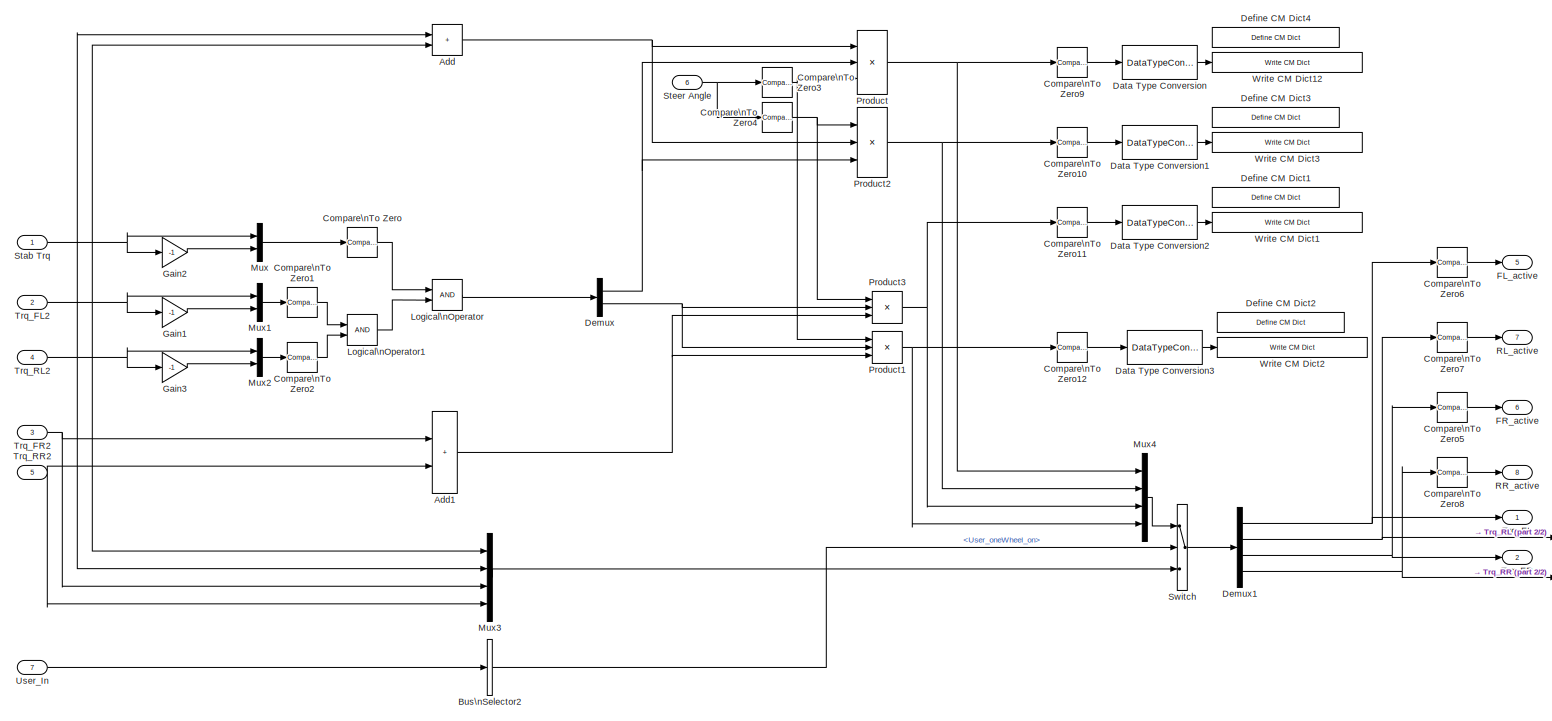
[diagram: CarMaker/IPG Vehicle/Brake/HydBrakeCU Example/ESP Controller/ESP General System/ESP/ECU/brake distribution strategy/2Rad ->1Rad - part 1/2, most of the canvas]
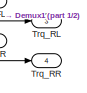
[diagram: CarMaker/IPG Vehicle/Brake/HydBrakeCU Example/ESP Controller/ESP General System/ESP/ECU/brake distribution strategy/2Rad ->1Rad - part 2/2, bottom right region]
BLOCK [SubSystem] CarMaker/IPG Vehicle/Brake/HydBrakeCU Example/ESP Controller/ESP General System/ESP/ECU/brake distribution strategy/2Rad ->1Rad
  Ports = [7, 8]
  RequestExecContextInheritance = off
  SID = 11569
BLOCK [Sum] CarMaker/IPG Vehicle/Brake/HydBrakeCU Example/ESP Controller/ESP General System/ESP/ECU/brake distribution strategy/2Rad ->1Rad/Add
  IconShape = rectangular
  Ports = [2, 1]
  SID = 11577
BLOCK [Sum] CarMaker/IPG Vehicle/Brake/HydBrakeCU Example/ESP Controller/ESP General System/ESP/ECU/brake distribution strategy/2Rad ->1Rad/Add1
  IconShape = rectangular
  Ports = [2, 1]
  SID = 11578
BLOCK [BusSelector] CarMaker/IPG Vehicle/Brake/HydBrakeCU Example/ESP Controller/ESP General System/ESP/ECU/brake distribution strategy/2Rad ->1Rad/Bus\nSelector2
  OutputSignals = User_oneWheel_on
  Ports = [1, 1]
  SID = 11579
BLOCK [Reference] CarMaker/IPG Vehicle/Brake/HydBrakeCU Example/ESP Controller/ESP General System/ESP/ECU/brake distribution strategy/2Rad ->1Rad/Compare\nTo Zero  REF=simulink/Logic and Bit\nOperations/Compare\nTo Zero
  OutDataTypeStr = uint8
  Ports = [1, 1]
  SID = 11580
  SourceBlock = simulink/Logic and Bit\nOperations/Compare\nTo Zero
  SourceProductBaseCode = SL
  SourceType = Compare To Zero
  ZeroCross = on
  relop = <
BLOCK [Reference] CarMaker/IPG Vehicle/Brake/HydBrakeCU Example/ESP Controller/ESP General System/ESP/ECU/brake distribution strategy/2Rad ->1Rad/Compare\nTo Zero1  REF=simulink/Logic and Bit\nOperations/Compare\nTo Zero
  OutDataTypeStr = uint8
  Ports = [1, 1]
  SID = 11581
  SourceBlock = simulink/Logic and Bit\nOperations/Compare\nTo Zero
  SourceProductBaseCode = SL
  SourceType = Compare To Zero
  ZeroCross = on
  relop = >
BLOCK [Reference] CarMaker/IPG Vehicle/Brake/HydBrakeCU Example/ESP Controller/ESP General System/ESP/ECU/brake distribution strategy/2Rad ->1Rad/Compare\nTo Zero10  REF=simulink/Logic and Bit\nOperations/Compare\nTo Zero
  OutDataTypeStr = uint8
  Ports = [1, 1]
  SID = 11582
  SourceBlock = simulink/Logic and Bit\nOperations/Compare\nTo Zero
  SourceProductBaseCode = SL
  SourceType = Compare To Zero
  ZeroCross = on
  relop = >
BLOCK [Reference] CarMaker/IPG Vehicle/Brake/HydBrakeCU Example/ESP Controller/ESP General System/ESP/ECU/brake distribution strategy/2Rad ->1Rad/Compare\nTo Zero11  REF=simulink/Logic and Bit\nOperations/Compare\nTo Zero
  OutDataTypeStr = uint8
  Ports = [1, 1]
  SID = 11583
  SourceBlock = simulink/Logic and Bit\nOperations/Compare\nTo Zero
  SourceProductBaseCode = SL
  SourceType = Compare To Zero
  ZeroCross = on
  relop = >
BLOCK [Reference] CarMaker/IPG Vehicle/Brake/HydBrakeCU Example/ESP Controller/ESP General System/ESP/ECU/brake distribution strategy/2Rad ->1Rad/Compare\nTo Zero12  REF=simulink/Logic and Bit\nOperations/Compare\nTo Zero
  OutDataTypeStr = uint8
  Ports = [1, 1]
  SID = 11584
  SourceBlock = simulink/Logic and Bit\nOperations/Compare\nTo Zero
  SourceProductBaseCode = SL
  SourceType = Compare To Zero
  ZeroCross = on
  relop = >
BLOCK [Reference] CarMaker/IPG Vehicle/Brake/HydBrakeCU Example/ESP Controller/ESP General System/ESP/ECU/brake distribution strategy/2Rad ->1Rad/Compare\nTo Zero2  REF=simulink/Logic and Bit\nOperations/Compare\nTo Zero
  OutDataTypeStr = uint8
  Ports = [1, 1]
  SID = 11585
  SourceBlock = simulink/Logic and Bit\nOperations/Compare\nTo Zero
  SourceProductBaseCode = SL
  SourceType = Compare To Zero
  ZeroCross = on
  relop = >
BLOCK [Reference] CarMaker/IPG Vehicle/Brake/HydBrakeCU Example/ESP Controller/ESP General System/ESP/ECU/brake distribution strategy/2Rad ->1Rad/Compare\nTo Zero3  REF=simulink/Logic and Bit\nOperations/Compare\nTo Zero
  OutDataTypeStr = uint8
  Ports = [1, 1]
  SID = 11586
  SourceBlock = simulink/Logic and Bit\nOperations/Compare\nTo Zero
  SourceProductBaseCode = SL
  SourceType = Compare To Zero
  ZeroCross = on
  relop = <
BLOCK [Reference] CarMaker/IPG Vehicle/Brake/HydBrakeCU Example/ESP Controller/ESP General System/ESP/ECU/brake distribution strategy/2Rad ->1Rad/Compare\nTo Zero4  REF=simulink/Logic and Bit\nOperations/Compare\nTo Zero
  OutDataTypeStr = uint8
  Ports = [1, 1]
  SID = 11587
  SourceBlock = simulink/Logic and Bit\nOperations/Compare\nTo Zero
  SourceProductBaseCode = SL
  SourceType = Compare To Zero
  ZeroCross = on
  relop = >
BLOCK [Reference] CarMaker/IPG Vehicle/Brake/HydBrakeCU Example/ESP Controller/ESP General System/ESP/ECU/brake distribution strategy/2Rad ->1Rad/Compare\nTo Zero5  REF=simulink/Logic and Bit\nOperations/Compare\nTo Zero
  OutDataTypeStr = uint8
  Ports = [1, 1]
  SID = 11588
  SourceBlock = simulink/Logic and Bit\nOperations/Compare\nTo Zero
  SourceProductBaseCode = SL
  SourceType = Compare To Zero
  ZeroCross = on
  relop = >
BLOCK [Reference] CarMaker/IPG Vehicle/Brake/HydBrakeCU Example/ESP Controller/ESP General System/ESP/ECU/brake distribution strategy/2Rad ->1Rad/Compare\nTo Zero6  REF=simulink/Logic and Bit\nOperations/Compare\nTo Zero
  OutDataTypeStr = uint8
  Ports = [1, 1]
  SID = 11589
  SourceBlock = simulink/Logic and Bit\nOperations/Compare\nTo Zero
  SourceProductBaseCode = SL
  SourceType = Compare To Zero
  ZeroCross = on
  relop = >
BLOCK [Reference] CarMaker/IPG Vehicle/Brake/HydBrakeCU Example/ESP Controller/ESP General System/ESP/ECU/brake distribution strategy/2Rad ->1Rad/Compare\nTo Zero7  REF=simulink/Logic and Bit\nOperations/Compare\nTo Zero
  OutDataTypeStr = uint8
  Ports = [1, 1]
  SID = 11590
  SourceBlock = simulink/Logic and Bit\nOperations/Compare\nTo Zero
  SourceProductBaseCode = SL
  SourceType = Compare To Zero
  ZeroCross = on
  relop = >
BLOCK [Reference] CarMaker/IPG Vehicle/Brake/HydBrakeCU Example/ESP Controller/ESP General System/ESP/ECU/brake distribution strategy/2Rad ->1Rad/Compare\nTo Zero8  REF=simulink/Logic and Bit\nOperations/Compare\nTo Zero
  OutDataTypeStr = uint8
  Ports = [1, 1]
  SID = 11591
  SourceBlock = simulink/Logic and Bit\nOperations/Compare\nTo Zero
  SourceProductBaseCode = SL
  SourceType = Compare To Zero
  ZeroCross = on
  relop = >
BLOCK [Reference] CarMaker/IPG Vehicle/Brake/HydBrakeCU Example/ESP Controller/ESP General System/ESP/ECU/brake distribution strategy/2Rad ->1Rad/Compare\nTo Zero9  REF=simulink/Logic and Bit\nOperations/Compare\nTo Zero
  OutDataTypeStr = uint8
  Ports = [1, 1]
  SID = 11592
  SourceBlock = simulink/Logic and Bit\nOperations/Compare\nTo Zero
  SourceProductBaseCode = SL
  SourceType = Compare To Zero
  ZeroCross = on
  relop = >
BLOCK [DataTypeConversion] CarMaker/IPG Vehicle/Brake/HydBrakeCU Example/ESP Controller/ESP General System/ESP/ECU/brake distribution strategy/2Rad ->1Rad/Data Type Conversion
  RndMeth = Floor
  SID = 11593
  SaturateOnIntegerOverflow = off
BLOCK [DataTypeConversion] CarMaker/IPG Vehicle/Brake/HydBrakeCU Example/ESP Controller/ESP General System/ESP/ECU/brake distribution strategy/2Rad ->1Rad/Data Type Conversion1
  RndMeth = Floor
  SID = 11594
  SaturateOnIntegerOverflow = off
BLOCK [DataTypeConversion] CarMaker/IPG Vehicle/Brake/HydBrakeCU Example/ESP Controller/ESP General System/ESP/ECU/brake distribution strategy/2Rad ->1Rad/Data Type Conversion2
  RndMeth = Floor
  SID = 11595
  SaturateOnIntegerOverflow = off
BLOCK [DataTypeConversion] CarMaker/IPG Vehicle/Brake/HydBrakeCU Example/ESP Controller/ESP General System/ESP/ECU/brake distribution strategy/2Rad ->1Rad/Data Type Conversion3
  RndMeth = Floor
  SID = 11596
  SaturateOnIntegerOverflow = off
BLOCK [Reference] CarMaker/IPG Vehicle/Brake/HydBrakeCU Example/ESP Controller/ESP General System/ESP/ECU/brake distribution strategy/2Rad ->1Rad/Define CM Dict1  REF=CarMaker4SL/Define CM Dict
  Ports = []
  SID = 11597
  SourceBlock = CarMaker4SL/Define CM Dict
  SourceType = Define CarMaker Dictionary Variable
  xdvaplace = VC
  xfirststate = 0
  xinitial = 0
  xmono = off
  xname = ESP.FR_active
  xnstates = 2
  xtype = Char
BLOCK [Reference] CarMaker/IPG Vehicle/Brake/HydBrakeCU Example/ESP Controller/ESP General System/ESP/ECU/brake distribution strategy/2Rad ->1Rad/Define CM Dict2  REF=CarMaker4SL/Define CM Dict
  Ports = []
  SID = 11598
  SourceBlock = CarMaker4SL/Define CM Dict
  SourceType = Define CarMaker Dictionary Variable
  xdvaplace = VC
  xfirststate = 0
  xinitial = 0
  xmono = off
  xname = ESP.RR_active
  xnstates = 2
  xtype = Char
BLOCK [Reference] CarMaker/IPG Vehicle/Brake/HydBrakeCU Example/ESP Controller/ESP General System/ESP/ECU/brake distribution strategy/2Rad ->1Rad/Define CM Dict3  REF=CarMaker4SL/Define CM Dict
  Ports = []
  SID = 11599
  SourceBlock = CarMaker4SL/Define CM Dict
  SourceType = Define CarMaker Dictionary Variable
  xdvaplace = VC
  xfirststate = 0
  xinitial = 0
  xmono = off
  xname = ESP.RL_active
  xnstates = 2
  xtype = Char
BLOCK [Reference] CarMaker/IPG Vehicle/Brake/HydBrakeCU Example/ESP Controller/ESP General System/ESP/ECU/brake distribution strategy/2Rad ->1Rad/Define CM Dict4  REF=CarMaker4SL/Define CM Dict
  Ports = []
  SID = 11600
  SourceBlock = CarMaker4SL/Define CM Dict
  SourceType = Define CarMaker Dictionary Variable
  xdvaplace = VC
  xfirststate = 0
  xinitial = 0
  xmono = off
  xname = ESP.FL_active
  xnstates = 2
  xtype = Char
BLOCK [Demux] CarMaker/IPG Vehicle/Brake/HydBrakeCU Example/ESP Controller/ESP General System/ESP/ECU/brake distribution strategy/2Rad ->1Rad/Demux
  Outputs = 2
  Ports = [1, 2]
  SID = 11601
BLOCK [Demux] CarMaker/IPG Vehicle/Brake/HydBrakeCU Example/ESP Controller/ESP General System/ESP/ECU/brake distribution strategy/2Rad ->1Rad/Demux1
  Ports = [1, 4]
  SID = 11602
BLOCK [Outport] CarMaker/IPG Vehicle/Brake/HydBrakeCU Example/ESP Controller/ESP General System/ESP/ECU/brake distribution strategy/2Rad ->1Rad/FL_active
  Port = 5
  SID = 11626
  VectorParamsAs1DForOutWhenUnconnected = off
BLOCK [Outport] CarMaker/IPG Vehicle/Brake/HydBrakeCU Example/ESP Controller/ESP General System/ESP/ECU/brake distribution strategy/2Rad ->1Rad/FR_active
  Port = 6
  SID = 11627
  VectorParamsAs1DForOutWhenUnconnected = off
BLOCK [Gain] CarMaker/IPG Vehicle/Brake/HydBrakeCU Example/ESP Controller/ESP General System/ESP/ECU/brake distribution strategy/2Rad ->1Rad/Gain1
  Gain = -1
  SID = 11603
BLOCK [Gain] CarMaker/IPG Vehicle/Brake/HydBrakeCU Example/ESP Controller/ESP General System/ESP/ECU/brake distribution strategy/2Rad ->1Rad/Gain2
  Gain = -1
  SID = 11604
BLOCK [Gain] CarMaker/IPG Vehicle/Brake/HydBrakeCU Example/ESP Controller/ESP General System/ESP/ECU/brake distribution strategy/2Rad ->1Rad/Gain3
  Gain = -1
  SID = 11605
BLOCK [Logic] CarMaker/IPG Vehicle/Brake/HydBrakeCU Example/ESP Controller/ESP General System/ESP/ECU/brake distribution strategy/2Rad ->1Rad/Logical\nOperator
  AllPortsSameDT = off
  Ports = [2, 1]
  SID = 11606
BLOCK [Logic] CarMaker/IPG Vehicle/Brake/HydBrakeCU Example/ESP Controller/ESP General System/ESP/ECU/brake distribution strategy/2Rad ->1Rad/Logical\nOperator1
  AllPortsSameDT = off
  OutDataTypeStr = boolean
  Ports = [2, 1]
  SID = 11607
BLOCK [Mux] CarMaker/IPG Vehicle/Brake/HydBrakeCU Example/ESP Controller/ESP General System/ESP/ECU/brake distribution strategy/2Rad ->1Rad/Mux
  DisplayOption = bar
  Inputs = 2
  Ports = [2, 1]
  SID = 11608
BLOCK [Mux] CarMaker/IPG Vehicle/Brake/HydBrakeCU Example/ESP Controller/ESP General System/ESP/ECU/brake distribution strategy/2Rad ->1Rad/Mux1
  DisplayOption = bar
  Inputs = 2
  Ports = [2, 1]
  SID = 11609
BLOCK [Mux] CarMaker/IPG Vehicle/Brake/HydBrakeCU Example/ESP Controller/ESP General System/ESP/ECU/brake distribution strategy/2Rad ->1Rad/Mux2
  DisplayOption = bar
  Inputs = 2
  Ports = [2, 1]
  SID = 11610
BLOCK [Mux] CarMaker/IPG Vehicle/Brake/HydBrakeCU Example/ESP Controller/ESP General System/ESP/ECU/brake distribution strategy/2Rad ->1Rad/Mux3
  DisplayOption = bar
  Ports = [4, 1]
  SID = 11611
BLOCK [Mux] CarMaker/IPG Vehicle/Brake/HydBrakeCU Example/ESP Controller/ESP General System/ESP/ECU/brake distribution strategy/2Rad ->1Rad/Mux4
  DisplayOption = bar
  Ports = [4, 1]
  SID = 11612
BLOCK [Product] CarMaker/IPG Vehicle/Brake/HydBrakeCU Example/ESP Controller/ESP General System/ESP/ECU/brake distribution strategy/2Rad ->1Rad/Product
  Inputs = 3
  Ports = [3, 1]
  RndMeth = Zero
  SID = 11613
BLOCK [Product] CarMaker/IPG Vehicle/Brake/HydBrakeCU Example/ESP Controller/ESP General System/ESP/ECU/brake distribution strategy/2Rad ->1Rad/Product1
  Inputs = 3
  Ports = [3, 1]
  RndMeth = Zero
  SID = 11614
BLOCK [Product] CarMaker/IPG Vehicle/Brake/HydBrakeCU Example/ESP Controller/ESP General System/ESP/ECU/brake distribution strategy/2Rad ->1Rad/Product2
  Inputs = 3
  Ports = [3, 1]
  RndMeth = Zero
  SID = 11615
BLOCK [Product] CarMaker/IPG Vehicle/Brake/HydBrakeCU Example/ESP Controller/ESP General System/ESP/ECU/brake distribution strategy/2Rad ->1Rad/Product3
  Inputs = 3
  Ports = [3, 1]
  RndMeth = Zero
  SID = 11616
BLOCK [Outport] CarMaker/IPG Vehicle/Brake/HydBrakeCU Example/ESP Controller/ESP General System/ESP/ECU/brake distribution strategy/2Rad ->1Rad/RL_active
  Port = 7
  SID = 11628
  VectorParamsAs1DForOutWhenUnconnected = off
BLOCK [Outport] CarMaker/IPG Vehicle/Brake/HydBrakeCU Example/ESP Controller/ESP General System/ESP/ECU/brake distribution strategy/2Rad ->1Rad/RR_active
  Port = 8
  SID = 11629
  VectorParamsAs1DForOutWhenUnconnected = off
BLOCK [Inport] CarMaker/IPG Vehicle/Brake/HydBrakeCU Example/ESP Controller/ESP General System/ESP/ECU/brake distribution strategy/2Rad ->1Rad/Stab Trq
  SID = 11570
BLOCK [Inport] CarMaker/IPG Vehicle/Brake/HydBrakeCU Example/ESP Controller/ESP General System/ESP/ECU/brake distribution strategy/2Rad ->1Rad/Steer Angle
  Port = 6
  SID = 11575
BLOCK [Switch] CarMaker/IPG Vehicle/Brake/HydBrakeCU Example/ESP Controller/ESP General System/ESP/ECU/brake distribution strategy/2Rad ->1Rad/Switch
  Criteria = u2 > Threshold
  InputSameDT = off
  SID = 11617
  SaturateOnIntegerOverflow = off
BLOCK [Outport] CarMaker/IPG Vehicle/Brake/HydBrakeCU Example/ESP Controller/ESP General System/ESP/ECU/brake distribution strategy/2Rad ->1Rad/Trq_FL
  SID = 11622
  VectorParamsAs1DForOutWhenUnconnected = off
BLOCK [Inport] CarMaker/IPG Vehicle/Brake/HydBrakeCU Example/ESP Controller/ESP General System/ESP/ECU/brake distribution strategy/2Rad ->1Rad/Trq_FL2
  Port = 2
  SID = 11571
BLOCK [Outport] CarMaker/IPG Vehicle/Brake/HydBrakeCU Example/ESP Controller/ESP General System/ESP/ECU/brake distribution strategy/2Rad ->1Rad/Trq_FR
  Port = 2
  SID = 11623
  VectorParamsAs1DForOutWhenUnconnected = off
BLOCK [Inport] CarMaker/IPG Vehicle/Brake/HydBrakeCU Example/ESP Controller/ESP General System/ESP/ECU/brake distribution strategy/2Rad ->1Rad/Trq_FR2
  Port = 3
  SID = 11572
BLOCK [Outport] CarMaker/IPG Vehicle/Brake/HydBrakeCU Example/ESP Controller/ESP General System/ESP/ECU/brake distribution strategy/2Rad ->1Rad/Trq_RL
  Port = 3
  SID = 11624
  VectorParamsAs1DForOutWhenUnconnected = off
BLOCK [Inport] CarMaker/IPG Vehicle/Brake/HydBrakeCU Example/ESP Controller/ESP General System/ESP/ECU/brake distribution strategy/2Rad ->1Rad/Trq_RL2
  Port = 4
  SID = 11573
BLOCK [Outport] CarMaker/IPG Vehicle/Brake/HydBrakeCU Example/ESP Controller/ESP General System/ESP/ECU/brake distribution strategy/2Rad ->1Rad/Trq_RR
  Port = 4
  SID = 11625
  VectorParamsAs1DForOutWhenUnconnected = off
BLOCK [Inport] CarMaker/IPG Vehicle/Brake/HydBrakeCU Example/ESP Controller/ESP General System/ESP/ECU/brake distribution strategy/2Rad ->1Rad/Trq_RR2
  Port = 5
  SID = 11574
BLOCK [Inport] CarMaker/IPG Vehicle/Brake/HydBrakeCU Example/ESP Controller/ESP General System/ESP/ECU/brake distribution strategy/2Rad ->1Rad/User_In
  Port = 7
  SID = 11576
BLOCK [Reference] CarMaker/IPG Vehicle/Brake/HydBrakeCU Example/ESP Controller/ESP General System/ESP/ECU/brake distribution strategy/2Rad ->1Rad/Write CM Dict1  REF=CarMaker4SL/Write CM Dict
  Ports = [1]
  SID = 11618
  SourceBlock = CarMaker4SL/Write CM Dict
  SourceType = Write CarMaker Dictionary Variable(s)
  xname = ESP.FR_active
  xsync = off
BLOCK [Reference] CarMaker/IPG Vehicle/Brake/HydBrakeCU Example/ESP Controller/ESP General System/ESP/ECU/brake distribution strategy/2Rad ->1Rad/Write CM Dict12  REF=CarMaker4SL/Write CM Dict
  Ports = [1]
  SID = 11619
  SourceBlock = CarMaker4SL/Write CM Dict
  SourceType = Write CarMaker Dictionary Variable(s)
  xname = ESP.FL_active
  xsync = off
BLOCK [Reference] CarMaker/IPG Vehicle/Brake/HydBrakeCU Example/ESP Controller/ESP General System/ESP/ECU/brake distribution strategy/2Rad ->1Rad/Write CM Dict2  REF=CarMaker4SL/Write CM Dict
  Ports = [1]
  SID = 11620
  SourceBlock = CarMaker4SL/Write CM Dict
  SourceType = Write CarMaker Dictionary Variable(s)
  xname = ESP.RR_active
  xsync = off
BLOCK [Reference] CarMaker/IPG Vehicle/Brake/HydBrakeCU Example/ESP Controller/ESP General System/ESP/ECU/brake distribution strategy/2Rad ->1Rad/Write CM Dict3  REF=CarMaker4SL/Write CM Dict
  Ports = [1]
  SID = 11621
  SourceBlock = CarMaker4SL/Write CM Dict
  SourceType = Write CarMaker Dictionary Variable(s)
  xname = ESP.RL_active
  xsync = off
BLOCK [BusSelector] CarMaker/IPG Vehicle/Brake/HydBrakeCU Example/ESP Controller/ESP General System/ESP/ECU/brake distribution strategy/Bus Selector1
  OutputSignals = VehicleGeometry.Param_aF,VehicleGeometry.Param_bF,VehicleGeometry.Param_bR,CarrierGeometry.Param_zFL,CarrierGeometry.Param_zFR,CarrierGeometry.Param_zRL,CarrierGeometry.Param_zRR
  Ports = [1, 7]
  SID = 11630
BLOCK [Constant] CarMaker/IPG Vehicle/Brake/HydBrakeCU Example/ESP Controller/ESP General System/ESP/ECU/brake distribution strategy/Constant
  SID = 11631
BLOCK [Constant] CarMaker/IPG Vehicle/Brake/HydBrakeCU Example/ESP Controller/ESP General System/ESP/ECU/brake distribution strategy/Constant2
  SID = 11632
  Value = -1
BLOCK [Reference] CarMaker/IPG Vehicle/Brake/HydBrakeCU Example/ESP Controller/ESP General System/ESP/ECU/brake distribution strategy/Define CM Dict1  REF=CarMaker4SL/Define CM Dict
  Ports = []
  SID = 11633
  SourceBlock = CarMaker4SL/Define CM Dict
  SourceType = Define CarMaker Dictionary Variable
  xdvaplace = None
  xfirststate = 0
  xinitial = 0
  xmono = off
  xname = ESP.ESP_corr_Trq_FR
  xnstates = 0
  xtype = Double4
  xunit = Nm
BLOCK [Reference] CarMaker/IPG Vehicle/Brake/HydBrakeCU Example/ESP Controller/ESP General System/ESP/ECU/brake distribution strategy/Define CM Dict2  REF=CarMaker4SL/Define CM Dict
  Ports = []
  SID = 11634
  SourceBlock = CarMaker4SL/Define CM Dict
  SourceType = Define CarMaker Dictionary Variable
  xdvaplace = None
  xfirststate = 0
  xinitial = 0
  xmono = off
  xname = ESP.ESP_corr_Trq_RL
  xnstates = 0
  xtype = Double4
  xunit = Nm
BLOCK [Reference] CarMaker/IPG Vehicle/Brake/HydBrakeCU Example/ESP Controller/ESP General System/ESP/ECU/brake distribution strategy/Define CM Dict3  REF=CarMaker4SL/Define CM Dict
  Ports = []
  SID = 11635
  SourceBlock = CarMaker4SL/Define CM Dict
  SourceType = Define CarMaker Dictionary Variable
  xdvaplace = None
  xfirststate = 0
  xinitial = 0
  xmono = off
  xname = ESP.ESP_corr_Trq_FL
  xnstates = 0
  xtype = Double4
  xunit = Nm
BLOCK [Reference] CarMaker/IPG Vehicle/Brake/HydBrakeCU Example/ESP Controller/ESP General System/ESP/ECU/brake distribution strategy/Define CM Dict4  REF=CarMaker4SL/Define CM Dict
  Ports = []
  SID = 11636
  SourceBlock = CarMaker4SL/Define CM Dict
  SourceType = Define CarMaker Dictionary Variable
  xdvaplace = None
  xfirststate = 0
  xinitial = 0
  xmono = off
  xname = ESP.ESP_corr_Trq_RR
  xnstates = 0
  xtype = Double4
  xunit = Nm
BLOCK [Outport] CarMaker/IPG Vehicle/Brake/HydBrakeCU Example/ESP Controller/ESP General System/ESP/ECU/brake distribution strategy/FL_active
  SID = 11661
  VectorParamsAs1DForOutWhenUnconnected = off
BLOCK [Outport] CarMaker/IPG Vehicle/Brake/HydBrakeCU Example/ESP Controller/ESP General System/ESP/ECU/brake distribution strategy/FR_active
  Port = 3
  SID = 11663
  VectorParamsAs1DForOutWhenUnconnected = off
BLOCK [Fcn] CarMaker/IPG Vehicle/Brake/HydBrakeCU Example/ESP Controller/ESP General System/ESP/ECU/brake distribution strategy/Fcn5
  Expr = sin(u)
  SID = 11637
BLOCK [Fcn] CarMaker/IPG Vehicle/Brake/HydBrakeCU Example/ESP Controller/ESP General System/ESP/ECU/brake distribution strategy/Fcn6
  Expr = cos(u)
  SID = 11638
BLOCK [Gain] CarMaker/IPG Vehicle/Brake/HydBrakeCU Example/ESP Controller/ESP General System/ESP/ECU/brake distribution strategy/Gain1
  Gain = -1
  SID = 11639
BLOCK [Gain] CarMaker/IPG Vehicle/Brake/HydBrakeCU Example/ESP Controller/ESP General System/ESP/ECU/brake distribution strategy/Gain8
  Gain = 1/4
  SID = 11640
BLOCK [Product] CarMaker/IPG Vehicle/Brake/HydBrakeCU Example/ESP Controller/ESP General System/ESP/ECU/brake distribution strategy/Product1
  Ports = [2, 1]
  RndMeth = Zero
  SID = 11641
BLOCK [Product] CarMaker/IPG Vehicle/Brake/HydBrakeCU Example/ESP Controller/ESP General System/ESP/ECU/brake distribution strategy/Product10
  Inputs = */*
  Ports = [3, 1]
  RndMeth = Zero
  SID = 11642
BLOCK [Product] CarMaker/IPG Vehicle/Brake/HydBrakeCU Example/ESP Controller/ESP General System/ESP/ECU/brake distribution strategy/Product11
  Inputs = */*
  Ports = [3, 1]
  RndMeth = Zero
  SID = 11643
BLOCK [Product] CarMaker/IPG Vehicle/Brake/HydBrakeCU Example/ESP Controller/ESP General System/ESP/ECU/brake distribution strategy/Product12
  Inputs = */*
  Ports = [3, 1]
  RndMeth = Zero
  SID = 11644
BLOCK [Product] CarMaker/IPG Vehicle/Brake/HydBrakeCU Example/ESP Controller/ESP General System/ESP/ECU/brake distribution strategy/Product2
  Ports = [2, 1]
  RndMeth = Zero
  SID = 11645
BLOCK [Product] CarMaker/IPG Vehicle/Brake/HydBrakeCU Example/ESP Controller/ESP General System/ESP/ECU/brake distribution strategy/Product3
  Ports = [2, 1]
  RndMeth = Zero
  SID = 11646
BLOCK [Product] CarMaker/IPG Vehicle/Brake/HydBrakeCU Example/ESP Controller/ESP General System/ESP/ECU/brake distribution strategy/Product4
  Ports = [2, 1]
  RndMeth = Zero
  SID = 11647
BLOCK [Product] CarMaker/IPG Vehicle/Brake/HydBrakeCU Example/ESP Controller/ESP General System/ESP/ECU/brake distribution strategy/Product6
  Ports = [2, 1]
  RndMeth = Zero
  SID = 11648
BLOCK [Product] CarMaker/IPG Vehicle/Brake/HydBrakeCU Example/ESP Controller/ESP General System/ESP/ECU/brake distribution strategy/Product8
  Ports = [2, 1]
  RndMeth = Zero
  SID = 11649
BLOCK [Product] CarMaker/IPG Vehicle/Brake/HydBrakeCU Example/ESP Controller/ESP General System/ESP/ECU/brake distribution strategy/Product9
  Inputs = */*
  Ports = [3, 1]
  RndMeth = Zero
  SID = 11650
BLOCK [Outport] CarMaker/IPG Vehicle/Brake/HydBrakeCU Example/ESP Controller/ESP General System/ESP/ECU/brake distribution strategy/RL_active
  Port = 5
  SID = 11665
  VectorParamsAs1DForOutWhenUnconnected = off
BLOCK [Outport] CarMaker/IPG Vehicle/Brake/HydBrakeCU Example/ESP Controller/ESP General System/ESP/ECU/brake distribution strategy/RR_active
  Port = 7
  SID = 11667
  VectorParamsAs1DForOutWhenUnconnected = off
BLOCK [Saturate] CarMaker/IPG Vehicle/Brake/HydBrakeCU Example/ESP Controller/ESP General System/ESP/ECU/brake distribution strategy/Saturation1
  LowerLimit = -3000
  SID = 11651
  UpperLimit = 3000
BLOCK [Saturate] CarMaker/IPG Vehicle/Brake/HydBrakeCU Example/ESP Controller/ESP General System/ESP/ECU/brake distribution strategy/Saturation2
  LowerLimit = -3000
  SID = 11652
  UpperLimit = 3000
BLOCK [Saturate] CarMaker/IPG Vehicle/Brake/HydBrakeCU Example/ESP Controller/ESP General System/ESP/ECU/brake distribution strategy/Saturation3
  LowerLimit = -3000
  SID = 11653
  UpperLimit = 3000
BLOCK [Saturate] CarMaker/IPG Vehicle/Brake/HydBrakeCU Example/ESP Controller/ESP General System/ESP/ECU/brake distribution strategy/Saturation4
  LowerLimit = -3000
  SID = 11654
  UpperLimit = 3000
BLOCK [Inport] CarMaker/IPG Vehicle/Brake/HydBrakeCU Example/ESP Controller/ESP General System/ESP/ECU/brake distribution strategy/Stabilizing Torque
  Port = 2
  SID = 11566
BLOCK [Inport] CarMaker/IPG Vehicle/Brake/HydBrakeCU Example/ESP Controller/ESP General System/ESP/ECU/brake distribution strategy/Steer Angle
  SID = 11565
BLOCK [Sum] CarMaker/IPG Vehicle/Brake/HydBrakeCU Example/ESP Controller/ESP General System/ESP/ECU/brake distribution strategy/Sum1
  IconShape = rectangular
  InputSameDT = on
  Inputs = 2
  NameLocation = top
  OutDataTypeStr = Inherit: Same as first input
  Ports = [2, 1]
  SID = 11655
  SaturateOnIntegerOverflow = on
BLOCK [Sum] CarMaker/IPG Vehicle/Brake/HydBrakeCU Example/ESP Controller/ESP General System/ESP/ECU/brake distribution strategy/Sum7
  IconShape = rectangular
  InputSameDT = on
  Inputs = 2
  NameLocation = top
  OutDataTypeStr = Inherit: Same as first input
  Ports = [2, 1]
  SID = 11656
  SaturateOnIntegerOverflow = on
BLOCK [Outport] CarMaker/IPG Vehicle/Brake/HydBrakeCU Example/ESP Controller/ESP General System/ESP/ECU/brake distribution strategy/Trq_FL_target
  Port = 2
  SID = 11662
  VectorParamsAs1DForOutWhenUnconnected = off
BLOCK [Outport] CarMaker/IPG Vehicle/Brake/HydBrakeCU Example/ESP Controller/ESP General System/ESP/ECU/brake distribution strategy/Trq_FR_target
  Port = 4
  SID = 11664
  VectorParamsAs1DForOutWhenUnconnected = off
BLOCK [Outport] CarMaker/IPG Vehicle/Brake/HydBrakeCU Example/ESP Controller/ESP General System/ESP/ECU/brake distribution strategy/Trq_RL_target
  Port = 6
  SID = 11666
  VectorParamsAs1DForOutWhenUnconnected = off
BLOCK [Outport] CarMaker/IPG Vehicle/Brake/HydBrakeCU Example/ESP Controller/ESP General System/ESP/ECU/brake distribution strategy/Trq_RR_target
  Port = 8
  SID = 11668
  VectorParamsAs1DForOutWhenUnconnected = off
BLOCK [Inport] CarMaker/IPG Vehicle/Brake/HydBrakeCU Example/ESP Controller/ESP General System/ESP/ECU/brake distribution strategy/User_In
  Port = 4
  SID = 11568
BLOCK [Inport] CarMaker/IPG Vehicle/Brake/HydBrakeCU Example/ESP Controller/ESP General System/ESP/ECU/brake distribution strategy/Vehicle Params
  Port = 3
  SID = 11567
BLOCK [Reference] CarMaker/IPG Vehicle/Brake/HydBrakeCU Example/ESP Controller/ESP General System/ESP/ECU/brake distribution strategy/Write CM Dict1  REF=CarMaker4SL/Write CM Dict
  Ports = [1]
  SID = 11657
  SourceBlock = CarMaker4SL/Write CM Dict
  SourceType = Write CarMaker Dictionary Variable(s)
  xname = ESP.ESP_corr_Trq_FR
  xsync = off
BLOCK [Reference] CarMaker/IPG Vehicle/Brake/HydBrakeCU Example/ESP Controller/ESP General System/ESP/ECU/brake distribution strategy/Write CM Dict2  REF=CarMaker4SL/Write CM Dict
  Ports = [1]
  SID = 11658
  SourceBlock = CarMaker4SL/Write CM Dict
  SourceType = Write CarMaker Dictionary Variable(s)
  xname = ESP.ESP_corr_Trq_RL
  xsync = off
BLOCK [Reference] CarMaker/IPG Vehicle/Brake/HydBrakeCU Example/ESP Controller/ESP General System/ESP/ECU/brake distribution strategy/Write CM Dict3  REF=CarMaker4SL/Write CM Dict
  Ports = [1]
  SID = 11659
  SourceBlock = CarMaker4SL/Write CM Dict
  SourceType = Write CarMaker Dictionary Variable(s)
  xname = ESP.ESP_corr_Trq_FL
  xsync = off
BLOCK [Reference] CarMaker/IPG Vehicle/Brake/HydBrakeCU Example/ESP Controller/ESP General System/ESP/ECU/brake distribution strategy/Write CM Dict4  REF=CarMaker4SL/Write CM Dict
  Ports = [1]
  SID = 11660
  SourceBlock = CarMaker4SL/Write CM Dict
  SourceType = Write CarMaker Dictionary Variable(s)
  xname = ESP.ESP_corr_Trq_RR
  xsync = off
BLOCK [Inport] CarMaker/IPG Vehicle/Brake/HydBrakeCU Example/ESP Controller/ESP General System/ESP/ECU/mu
  Port = 6
  SID = 11352
BLOCK [Outport] CarMaker/IPG Vehicle/Brake/HydBrakeCU Example/ESP Controller/ESP General System/ESP/ESP On
  SID = 11795
  VectorParamsAs1DForOutWhenUnconnected = off
BLOCK [Inport] CarMaker/IPG Vehicle/Brake/HydBrakeCU Example/ESP Controller/ESP General System/ESP/ESP Signal Bus
  SID = 11235
BLOCK [Outport] CarMaker/IPG Vehicle/Brake/HydBrakeCU Example/ESP Controller/ESP General System/ESP/Gas_Out
  Port = 6
  SID = 11800
  VectorParamsAs1DForOutWhenUnconnected = off
BLOCK [Inport] CarMaker/IPG Vehicle/Brake/HydBrakeCU Example/ESP Controller/ESP General System/ESP/Ideal_In
  Port = 2
  SID = 11236
BLOCK [Outport] CarMaker/IPG Vehicle/Brake/HydBrakeCU Example/ESP Controller/ESP General System/ESP/Pilot Valves
  Port = 2
  SID = 11796
  VectorParamsAs1DForOutWhenUnconnected = off
BLOCK [Outport] CarMaker/IPG Vehicle/Brake/HydBrakeCU Example/ESP Controller/ESP General System/ESP/Pump Ctrl
  Port = 5
  SID = 11799
  VectorParamsAs1DForOutWhenUnconnected = off
BLOCK [Outport] CarMaker/IPG Vehicle/Brake/HydBrakeCU Example/ESP Controller/ESP General System/ESP/Suction Valves
  Port = 3
  SID = 11797
  VectorParamsAs1DForOutWhenUnconnected = off
BLOCK [Inport] CarMaker/IPG Vehicle/Brake/HydBrakeCU Example/ESP Controller/ESP General System/ESP/User_In
  Port = 4
  SID = 11238
BLOCK [Inport] CarMaker/IPG Vehicle/Brake/HydBrakeCU Example/ESP Controller/ESP General System/ESP/Vehicle Params
  Port = 3
  SID = 11237
BLOCK [SubSystem] CarMaker/IPG Vehicle/Brake/HydBrakeCU Example/ESP Controller/ESP General System/ESP/helpsignals estimator
  Ports = [4, 2]
  RequestExecContextInheritance = off
  SID = 11680
BLOCK [BusSelector] CarMaker/IPG Vehicle/Brake/HydBrakeCU Example/ESP Controller/ESP General System/ESP/helpsignals estimator/Bus\nSelector1
  OutputSignals = Ideal_SideSlipAngle
  Ports = [1, 1]
  SID = 11685
BLOCK [BusSelector] CarMaker/IPG Vehicle/Brake/HydBrakeCU Example/ESP Controller/ESP General System/ESP/helpsignals estimator/Bus\nSelector2
  OutputSignals = User_estimators_on.User_SideSlip_estimator_on,User_estimators_on.User_mue_estimator_on
  Ports = [1, 2]
  SID = 11686
BLOCK [BusSelector] CarMaker/IPG Vehicle/Brake/HydBrakeCU Example/ESP Controller/ESP General System/ESP/helpsignals estimator/Bus\nSelector3
  OutputSignals = Ideal_mu.Ideal_muFL,Ideal_mu.Ideal_muFR,Ideal_mu.Ideal_muRL,Ideal_mu.Ideal_muRR
  Ports = [1, 4]
  SID = 11687
BLOCK [Inport] CarMaker/IPG Vehicle/Brake/HydBrakeCU Example/ESP Controller/ESP General System/ESP/helpsignals estimator/Ideal_In
  Port = 2
  SID = 11682
BLOCK [MinMax] CarMaker/IPG Vehicle/Brake/HydBrakeCU Example/ESP Controller/ESP General System/ESP/helpsignals estimator/MinMax
  Inputs = 4
  Ports = [4, 1]
  SID = 11688
BLOCK [SubSystem] CarMaker/IPG Vehicle/Brake/HydBrakeCU Example/ESP Controller/ESP General System/ESP/helpsignals estimator/SideSlip estimator
  Ports = [2, 1]
  RequestExecContextInheritance = off
  SID = 11689
BLOCK [BusSelector] CarMaker/IPG Vehicle/Brake/HydBrakeCU Example/ESP Controller/ESP General System/ESP/helpsignals estimator/SideSlip estimator/Bus\nSelector1
  OutputSignals = Ideal_Velocity.Ideal_Velocity_y,Ideal_Velocity.Ideal_Velocity_x
  Ports = [1, 2]
  SID = 11692
BLOCK [Inport] CarMaker/IPG Vehicle/Brake/HydBrakeCU Example/ESP Controller/ESP General System/ESP/helpsignals estimator/SideSlip estimator/CarMaker_In
  Port = 2
  SID = 11691
BLOCK [Constant] CarMaker/IPG Vehicle/Brake/HydBrakeCU Example/ESP Controller/ESP General System/ESP/helpsignals estimator/SideSlip estimator/Constant1
  SID = 11693
  Value = 0
BLOCK [Product] CarMaker/IPG Vehicle/Brake/HydBrakeCU Example/ESP Controller/ESP General System/ESP/helpsignals estimator/SideSlip estimator/Divide6
  Inputs = */
  Ports = [2, 1]
  SID = 11694
BLOCK [Outport] CarMaker/IPG Vehicle/Brake/HydBrakeCU Example/ESP Controller/ESP General System/ESP/helpsignals estimator/SideSlip estimator/SideSlipAngle_estimated
  SID = 11698
  VectorParamsAs1DForOutWhenUnconnected = off
BLOCK [Switch] CarMaker/IPG Vehicle/Brake/HydBrakeCU Example/ESP Controller/ESP General System/ESP/helpsignals estimator/SideSlip estimator/Switch
  InputSameDT = off
  SID = 11695
  SaturateOnIntegerOverflow = off
  Threshold = 1
BLOCK [Terminator] CarMaker/IPG Vehicle/Brake/HydBrakeCU Example/ESP Controller/ESP General System/ESP/helpsignals estimator/SideSlip estimator/Terminator
  SID = 11696
BLOCK [Trigonometry] CarMaker/IPG Vehicle/Brake/HydBrakeCU Example/ESP Controller/ESP General System/ESP/helpsignals estimator/SideSlip estimator/Trigonometric\nFunction2
  Operator = atan
  Ports = [1, 1]
  SID = 11697
BLOCK [Inport] CarMaker/IPG Vehicle/Brake/HydBrakeCU Example/ESP Controller/ESP General System/ESP/helpsignals estimator/SideSlip estimator/lenkwinkel
  SID = 11690
BLOCK [Outport] CarMaker/IPG Vehicle/Brake/HydBrakeCU Example/ESP Controller/ESP General System/ESP/helpsignals estimator/SideslipAngle
  SID = 11793
  VectorParamsAs1DForOutWhenUnconnected = off
BLOCK [Inport] CarMaker/IPG Vehicle/Brake/HydBrakeCU Example/ESP Controller/ESP General System/ESP/helpsignals estimator/Steer Angle
  SID = 11681
BLOCK [Switch] CarMaker/IPG Vehicle/Brake/HydBrakeCU Example/ESP Controller/ESP General System/ESP/helpsignals estimator/Switch
  Criteria = u2 > Threshold
  InputSameDT = off
  SID = 11699
  SaturateOnIntegerOverflow = off
BLOCK [Switch] CarMaker/IPG Vehicle/Brake/HydBrakeCU Example/ESP Controller/ESP General System/ESP/helpsignals estimator/Switch1
  Criteria = u2 > Threshold
  InputSameDT = off
  SID = 11700
  SaturateOnIntegerOverflow = off
BLOCK [Inport] CarMaker/IPG Vehicle/Brake/HydBrakeCU Example/ESP Controller/ESP General System/ESP/helpsignals estimator/User_In
  Port = 4
  SID = 11684
BLOCK [Inport] CarMaker/IPG Vehicle/Brake/HydBrakeCU Example/ESP Controller/ESP General System/ESP/helpsignals estimator/Vehicle Params
  Port = 3
  SID = 11683
BLOCK [Outport] CarMaker/IPG Vehicle/Brake/HydBrakeCU Example/ESP Controller/ESP General System/ESP/helpsignals estimator/mu
  Port = 2
  SID = 11794
  VectorParamsAs1DForOutWhenUnconnected = off
BLOCK [SubSystem] CarMaker/IPG Vehicle/Brake/HydBrakeCU Example/ESP Controller/ESP General System/ESP/helpsignals estimator/mue estimator
  Ports = [2, 1]
  RequestExecContextInheritance = off
  SID = 11701
BLOCK [BusSelector] CarMaker/IPG Vehicle/Brake/HydBrakeCU Example/ESP Controller/ESP General System/ESP/helpsignals estimator/mue estimator/Bus\nSelector1
  OutputSignals = Idea_Trq2W.Ideal_Trq2WRL,Ideal_Fz.Ideal_FzRL,Ideal_Slip.Ideal_SlipRL,Ideal_Velocity.Ideal_Velocity_x,Ideal_YawRate
  Ports = [1, 5]
  SID = 11704
BLOCK [BusSelector] CarMaker/IPG Vehicle/Brake/HydBrakeCU Example/ESP Controller/ESP General System/ESP/helpsignals estimator/mue estimator/Bus\nSelector2
  OutputSignals = TireRadius.Param_RadiusRL,TireRadius.Param_RadiusRR
  Ports = [1, 2]
  SID = 11705
BLOCK [BusSelector] CarMaker/IPG Vehicle/Brake/HydBrakeCU Example/ESP Controller/ESP General System/ESP/helpsignals estimator/mue estimator/Bus\nSelector3
  OutputSignals = Idea_Trq2W.Ideal_Trq2WRR,Ideal_Fz.Ideal_FzRR,Ideal_Slip.Ideal_SlipRR,Ideal_Velocity.Ideal_Velocity_x,Ideal_YawRate
  Ports = [1, 5]
  SID = 11706
BLOCK [Inport] CarMaker/IPG Vehicle/Brake/HydBrakeCU Example/ESP Controller/ESP General System/ESP/helpsignals estimator/mue estimator/CarMaker_In
  SID = 11702
BLOCK [MinMax] CarMaker/IPG Vehicle/Brake/HydBrakeCU Example/ESP Controller/ESP General System/ESP/helpsignals estimator/mue estimator/MinMax
  Inputs = 2
  Ports = [2, 1]
  SID = 11707
BLOCK [Inport] CarMaker/IPG Vehicle/Brake/HydBrakeCU Example/ESP Controller/ESP General System/ESP/helpsignals estimator/mue estimator/Vehicle Params
  Port = 2
  SID = 11703
BLOCK [SubSystem] CarMaker/IPG Vehicle/Brake/HydBrakeCU Example/ESP Controller/ESP General System/ESP/helpsignals estimator/mue estimator/estimator_RL
  Ports = [6, 1]
  RequestExecContextInheritance = off
  SID = 11708
BLOCK [Abs] CarMaker/IPG Vehicle/Brake/HydBrakeCU Example/ESP Controller/ESP General System/ESP/helpsignals estimator/mue estimator/estimator_RL/Abs
  SID = 11719
  SaturateOnIntegerOverflow = off
BLOCK [Inport] CarMaker/IPG Vehicle/Brake/HydBrakeCU Example/ESP Controller/ESP General System/ESP/helpsignals estimator/mue estimator/estimator_RL/Car_vx
  Port = 4
  SID = 11712
BLOCK [Reference] CarMaker/IPG Vehicle/Brake/HydBrakeCU Example/ESP Controller/ESP General System/ESP/helpsignals estimator/mue estimator/estimator_RL/Compare\nTo Constant2  REF=simulink/Logic and Bit\nOperations/Compare\nTo Constant
  OutDataTypeStr = uint8
  Ports = [1, 1]
  SID = 11720
  SourceBlock = simulink/Logic and Bit\nOperations/Compare\nTo Constant
  SourceProductBaseCode = SL
  SourceType = Compare To Constant
  ZeroCross = on
  const = -0.05
  relop = >
BLOCK [Reference] CarMaker/IPG Vehicle/Brake/HydBrakeCU Example/ESP Controller/ESP General System/ESP/helpsignals estimator/mue estimator/estimator_RL/Compare\nTo Zero  REF=simulink/Logic and Bit\nOperations/Compare\nTo Zero
  OutDataTypeStr = uint8
  Ports = [1, 1]
  SID = 11721
  SourceBlock = simulink/Logic and Bit\nOperations/Compare\nTo Zero
  SourceProductBaseCode = SL
  SourceType = Compare To Zero
  ZeroCross = on
  relop = >
BLOCK [Reference] CarMaker/IPG Vehicle/Brake/HydBrakeCU Example/ESP Controller/ESP General System/ESP/helpsignals estimator/mue estimator/estimator_RL/Compare\nTo Zero1  REF=simulink/Logic and Bit\nOperations/Compare\nTo Zero
  OutDataTypeStr = uint8
  Ports = [1, 1]
  SID = 11722
  SourceBlock = simulink/Logic and Bit\nOperations/Compare\nTo Zero
  SourceProductBaseCode = SL
  SourceType = Compare To Zero
  ZeroCross = on
  relop = <
BLOCK [Reference] CarMaker/IPG Vehicle/Brake/HydBrakeCU Example/ESP Controller/ESP General System/ESP/helpsignals estimator/mue estimator/estimator_RL/Compare\nTo Zero2  REF=simulink/Logic and Bit\nOperations/Compare\nTo Zero
  OutDataTypeStr = uint8
  Ports = [1, 1]
  SID = 11723
  SourceBlock = simulink/Logic and Bit\nOperations/Compare\nTo Zero
  SourceProductBaseCode = SL
  SourceType = Compare To Zero
  ZeroCross = on
  relop = >
BLOCK [Reference] CarMaker/IPG Vehicle/Brake/HydBrakeCU Example/ESP Controller/ESP General System/ESP/helpsignals estimator/mue estimator/estimator_RL/Compare\nTo Zero3  REF=simulink/Logic and Bit\nOperations/Compare\nTo Zero
  OutDataTypeStr = uint8
  Ports = [1, 1]
  SID = 11724
  SourceBlock = simulink/Logic and Bit\nOperations/Compare\nTo Zero
  SourceProductBaseCode = SL
  SourceType = Compare To Zero
  ZeroCross = on
  relop = >
BLOCK [Constant] CarMaker/IPG Vehicle/Brake/HydBrakeCU Example/ESP Controller/ESP General System/ESP/helpsignals estimator/mue estimator/estimator_RL/Constant
  SID = 11725
  Value = 0
BLOCK [Constant] CarMaker/IPG Vehicle/Brake/HydBrakeCU Example/ESP Controller/ESP General System/ESP/helpsignals estimator/mue estimator/estimator_RL/Constant1
  SID = 11726
BLOCK [Product] CarMaker/IPG Vehicle/Brake/HydBrakeCU Example/ESP Controller/ESP General System/ESP/helpsignals estimator/mue estimator/estimator_RL/Divide1
  Inputs = **
  Ports = [2, 1]
  SID = 11727
BLOCK [Product] CarMaker/IPG Vehicle/Brake/HydBrakeCU Example/ESP Controller/ESP General System/ESP/helpsignals estimator/mue estimator/estimator_RL/Divide2
  Inputs = */
  Ports = [2, 1]
  SID = 11728
BLOCK [Product] CarMaker/IPG Vehicle/Brake/HydBrakeCU Example/ESP Controller/ESP General System/ESP/helpsignals estimator/mue estimator/estimator_RL/Divide3
  Inputs = */
  Ports = [2, 1]
  SID = 11729
BLOCK [Inport] CarMaker/IPG Vehicle/Brake/HydBrakeCU Example/ESP Controller/ESP General System/ESP/helpsignals estimator/mue estimator/estimator_RL/Fz_RL
  Port = 2
  SID = 11710
BLOCK [Gain] CarMaker/IPG Vehicle/Brake/HydBrakeCU Example/ESP Controller/ESP General System/ESP/helpsignals estimator/mue estimator/estimator_RL/Gain
  Gain = -1
  SID = 11730
BLOCK [Gain] CarMaker/IPG Vehicle/Brake/HydBrakeCU Example/ESP Controller/ESP General System/ESP/helpsignals estimator/mue estimator/estimator_RL/Gain1
  Gain = 0.5
  SID = 11731
BLOCK [Logic] CarMaker/IPG Vehicle/Brake/HydBrakeCU Example/ESP Controller/ESP General System/ESP/helpsignals estimator/mue estimator/estimator_RL/Logical\nOperator
  AllPortsSameDT = off
  Inputs = 4
  OutDataTypeStr = boolean
  Ports = [4, 1]
  SID = 11732
BLOCK [Logic] CarMaker/IPG Vehicle/Brake/HydBrakeCU Example/ESP Controller/ESP General System/ESP/helpsignals estimator/mue estimator/estimator_RL/Logical\nOperator1
  AllPortsSameDT = off
  OutDataTypeStr = boolean
  Ports = [2, 1]
  SID = 11733
BLOCK [Logic] CarMaker/IPG Vehicle/Brake/HydBrakeCU Example/ESP Controller/ESP General System/ESP/helpsignals estimator/mue estimator/estimator_RL/Logical\nOperator2
  AllPortsSameDT = off
  OutDataTypeStr = boolean
  Ports = [2, 1]
  SID = 11734
BLOCK [Inport] CarMaker/IPG Vehicle/Brake/HydBrakeCU Example/ESP Controller/ESP General System/ESP/helpsignals estimator/mue estimator/estimator_RL/LongSlip_RL
  Port = 3
  SID = 11711
BLOCK [Lookup] CarMaker/IPG Vehicle/Brake/HydBrakeCU Example/ESP Controller/ESP General System/ESP/helpsignals estimator/mue estimator/estimator_RL/Lookup Table
  InputValues = [0.8 1.8 5.2 6.9 9.5]
  LookUpMeth = Interpolation-Use End Values
  SID = 11735
  SaturateOnIntegerOverflow = off
  Table = [0.1 0.2 0.5 0.7 1]
BLOCK [Memory] CarMaker/IPG Vehicle/Brake/HydBrakeCU Example/ESP Controller/ESP General System/ESP/helpsignals estimator/mue estimator/estimator_RL/Memory
  SID = 11736
BLOCK [Inport] CarMaker/IPG Vehicle/Brake/HydBrakeCU Example/ESP Controller/ESP General System/ESP/helpsignals estimator/mue estimator/estimator_RL/Radius_RL
  Port = 6
  SID = 11714
BLOCK [Sum] CarMaker/IPG Vehicle/Brake/HydBrakeCU Example/ESP Controller/ESP General System/ESP/helpsignals estimator/mue estimator/estimator_RL/Subtract
  IconShape = rectangular
  Inputs = +-
  Ports = [2, 1]
  SID = 11737
BLOCK [Sum] CarMaker/IPG Vehicle/Brake/HydBrakeCU Example/ESP Controller/ESP General System/ESP/helpsignals estimator/mue estimator/estimator_RL/Subtract1
  IconShape = rectangular
  Ports = [2, 1]
  SID = 11738
BLOCK [Switch] CarMaker/IPG Vehicle/Brake/HydBrakeCU Example/ESP Controller/ESP General System/ESP/helpsignals estimator/mue estimator/estimator_RL/Switch
  Criteria = u2 > Threshold
  InputSameDT = off
  SID = 11739
  SaturateOnIntegerOverflow = off
BLOCK [Switch] CarMaker/IPG Vehicle/Brake/HydBrakeCU Example/ESP Controller/ESP General System/ESP/helpsignals estimator/mue estimator/estimator_RL/Switch1
  Criteria = u2 > Threshold
  InputSameDT = off
  SID = 11740
  SaturateOnIntegerOverflow = off
BLOCK [SubSystem] CarMaker/IPG Vehicle/Brake/HydBrakeCU Example/ESP Controller/ESP General System/ESP/helpsignals estimator/mue estimator/estimator_RL/Triggered\nSubsystem
  Ports = [1, 1, 0, 1]
  RequestExecContextInheritance = off
  SID = 11741
  TreatAsAtomicUnit = on
BLOCK [Inport] CarMaker/IPG Vehicle/Brake/HydBrakeCU Example/ESP Controller/ESP General System/ESP/helpsignals estimator/mue estimator/estimator_RL/Triggered\nSubsystem/In1
  SID = 11742
BLOCK [Outport] CarMaker/IPG Vehicle/Brake/HydBrakeCU Example/ESP Controller/ESP General System/ESP/helpsignals estimator/mue estimator/estimator_RL/Triggered\nSubsystem/Out1
  SID = 11744
  VectorParamsAs1DForOutWhenUnconnected = off
BLOCK [TriggerPort] CarMaker/IPG Vehicle/Brake/HydBrakeCU Example/ESP Controller/ESP General System/ESP/helpsignals estimator/mue estimator/estimator_RL/Triggered\nSubsystem/Trigger
  Ports = []
  SID = 11743
  StatesWhenEnabling = held
  VariantControl = Variant
BLOCK [SubSystem] CarMaker/IPG Vehicle/Brake/HydBrakeCU Example/ESP Controller/ESP General System/ESP/helpsignals estimator/mue estimator/estimator_RL/Triggered\nSubsystem1
  Ports = [1, 1, 0, 1]
  RequestExecContextInheritance = off
  SID = 11745
  TreatAsAtomicUnit = on
BLOCK [Inport] CarMaker/IPG Vehicle/Brake/HydBrakeCU Example/ESP Controller/ESP General System/ESP/helpsignals estimator/mue estimator/estimator_RL/Triggered\nSubsystem1/In1
  SID = 11746
BLOCK [Outport] CarMaker/IPG Vehicle/Brake/HydBrakeCU Example/ESP Controller/ESP General System/ESP/helpsignals estimator/mue estimator/estimator_RL/Triggered\nSubsystem1/Out1
  SID = 11748
  VectorParamsAs1DForOutWhenUnconnected = off
BLOCK [TriggerPort] CarMaker/IPG Vehicle/Brake/HydBrakeCU Example/ESP Controller/ESP General System/ESP/helpsignals estimator/mue estimator/estimator_RL/Triggered\nSubsystem1/Trigger
  Ports = []
  SID = 11747
  StatesWhenEnabling = held
  VariantControl = Variant
BLOCK [Inport] CarMaker/IPG Vehicle/Brake/HydBrakeCU Example/ESP Controller/ESP General System/ESP/helpsignals estimator/mue estimator/estimator_RL/Trq2W_RL
  SID = 11709
BLOCK [Inport] CarMaker/IPG Vehicle/Brake/HydBrakeCU Example/ESP Controller/ESP General System/ESP/helpsignals estimator/mue estimator/estimator_RL/YawRate
  Port = 5
  SID = 11713
BLOCK [Reference] CarMaker/IPG Vehicle/Brake/HydBrakeCU Example/ESP Controller/ESP General System/ESP/helpsignals estimator/mue estimator/estimator_RL/\n  REF=simulink/Logic and Bit\nOperations/Compare\nTo Constant
  OutDataTypeStr = uint8
  Ports = [1, 1]
  SID = 11715
  SourceBlock = simulink/Logic and Bit\nOperations/Compare\nTo Constant
  SourceProductBaseCode = SL
  SourceType = Compare To Constant
  ZeroCross = on
  const = v_min/3.6
  relop = >=
BLOCK [Reference] CarMaker/IPG Vehicle/Brake/HydBrakeCU Example/ESP Controller/ESP General System/ESP/helpsignals estimator/mue estimator/estimator_RL/\n\n  REF=simulink/Logic and Bit\nOperations/Compare\nTo Constant
  OutDataTypeStr = uint8
  Ports = [1, 1]
  SID = 11716
  SourceBlock = simulink/Logic and Bit\nOperations/Compare\nTo Constant
  SourceProductBaseCode = SL
  SourceType = Compare To Constant
  ZeroCross = on
  const = 0.08
  relop = >=
BLOCK [Reference] CarMaker/IPG Vehicle/Brake/HydBrakeCU Example/ESP Controller/ESP General System/ESP/helpsignals estimator/mue estimator/estimator_RL/\n\n\n  REF=simulink/Logic and Bit\nOperations/Compare\nTo Constant
  OutDataTypeStr = uint8
  Ports = [1, 1]
  SID = 11717
  SourceBlock = simulink/Logic and Bit\nOperations/Compare\nTo Constant
  SourceProductBaseCode = SL
  SourceType = Compare To Constant
  ZeroCross = on
  const = 0.2
  relop = <
BLOCK [Reference] CarMaker/IPG Vehicle/Brake/HydBrakeCU Example/ESP Controller/ESP General System/ESP/helpsignals estimator/mue estimator/estimator_RL/\n\n\n\n  REF=simulink/Logic and Bit\nOperations/Compare\nTo Constant
  OutDataTypeStr = uint8
  Ports = [1, 1]
  SID = 11718
  SourceBlock = simulink/Logic and Bit\nOperations/Compare\nTo Constant
  SourceProductBaseCode = SL
  SourceType = Compare To Constant
  ZeroCross = on
  const = 0.15
  relop = <=
BLOCK [Outport] CarMaker/IPG Vehicle/Brake/HydBrakeCU Example/ESP Controller/ESP General System/ESP/helpsignals estimator/mue estimator/estimator_RL/mue_est_RL
  SID = 11749
  VectorParamsAs1DForOutWhenUnconnected = off
BLOCK [SubSystem] CarMaker/IPG Vehicle/Brake/HydBrakeCU Example/ESP Controller/ESP General System/ESP/helpsignals estimator/mue estimator/estimator_RR
  Ports = [6, 1]
  RequestExecContextInheritance = off
  SID = 11750
BLOCK [Abs] CarMaker/IPG Vehicle/Brake/HydBrakeCU Example/ESP Controller/ESP General System/ESP/helpsignals estimator/mue estimator/estimator_RR/Abs
  SID = 11761
  SaturateOnIntegerOverflow = off
BLOCK [Inport] CarMaker/IPG Vehicle/Brake/HydBrakeCU Example/ESP Controller/ESP General System/ESP/helpsignals estimator/mue estimator/estimator_RR/Car_vx
  Port = 4
  SID = 11754
BLOCK [Reference] CarMaker/IPG Vehicle/Brake/HydBrakeCU Example/ESP Controller/ESP General System/ESP/helpsignals estimator/mue estimator/estimator_RR/Compare\nTo Constant2  REF=simulink/Logic and Bit\nOperations/Compare\nTo Constant
  OutDataTypeStr = uint8
  Ports = [1, 1]
  SID = 11762
  SourceBlock = simulink/Logic and Bit\nOperations/Compare\nTo Constant
  SourceProductBaseCode = SL
  SourceType = Compare To Constant
  ZeroCross = on
  const = -0.05
  relop = >
BLOCK [Reference] CarMaker/IPG Vehicle/Brake/HydBrakeCU Example/ESP Controller/ESP General System/ESP/helpsignals estimator/mue estimator/estimator_RR/Compare\nTo Zero  REF=simulink/Logic and Bit\nOperations/Compare\nTo Zero
  OutDataTypeStr = uint8
  Ports = [1, 1]
  SID = 11763
  SourceBlock = simulink/Logic and Bit\nOperations/Compare\nTo Zero
  SourceProductBaseCode = SL
  SourceType = Compare To Zero
  ZeroCross = on
  relop = >
BLOCK [Reference] CarMaker/IPG Vehicle/Brake/HydBrakeCU Example/ESP Controller/ESP General System/ESP/helpsignals estimator/mue estimator/estimator_RR/Compare\nTo Zero1  REF=simulink/Logic and Bit\nOperations/Compare\nTo Zero
  OutDataTypeStr = uint8
  Ports = [1, 1]
  SID = 11764
  SourceBlock = simulink/Logic and Bit\nOperations/Compare\nTo Zero
  SourceProductBaseCode = SL
  SourceType = Compare To Zero
  ZeroCross = on
  relop = <
BLOCK [Reference] CarMaker/IPG Vehicle/Brake/HydBrakeCU Example/ESP Controller/ESP General System/ESP/helpsignals estimator/mue estimator/estimator_RR/Compare\nTo Zero2  REF=simulink/Logic and Bit\nOperations/Compare\nTo Zero
  OutDataTypeStr = uint8
  Ports = [1, 1]
  SID = 11765
  SourceBlock = simulink/Logic and Bit\nOperations/Compare\nTo Zero
  SourceProductBaseCode = SL
  SourceType = Compare To Zero
  ZeroCross = on
  relop = >
BLOCK [Reference] CarMaker/IPG Vehicle/Brake/HydBrakeCU Example/ESP Controller/ESP General System/ESP/helpsignals estimator/mue estimator/estimator_RR/Compare\nTo Zero3  REF=simulink/Logic and Bit\nOperations/Compare\nTo Zero
  OutDataTypeStr = uint8
  Ports = [1, 1]
  SID = 11766
  SourceBlock = simulink/Logic and Bit\nOperations/Compare\nTo Zero
  SourceProductBaseCode = SL
  SourceType = Compare To Zero
  ZeroCross = on
  relop = >
BLOCK [Constant] CarMaker/IPG Vehicle/Brake/HydBrakeCU Example/ESP Controller/ESP General System/ESP/helpsignals estimator/mue estimator/estimator_RR/Constant
  SID = 11767
  Value = 0
BLOCK [Constant] CarMaker/IPG Vehicle/Brake/HydBrakeCU Example/ESP Controller/ESP General System/ESP/helpsignals estimator/mue estimator/estimator_RR/Constant1
  SID = 11768
BLOCK [Product] CarMaker/IPG Vehicle/Brake/HydBrakeCU Example/ESP Controller/ESP General System/ESP/helpsignals estimator/mue estimator/estimator_RR/Divide1
  Inputs = **
  Ports = [2, 1]
  SID = 11769
BLOCK [Product] CarMaker/IPG Vehicle/Brake/HydBrakeCU Example/ESP Controller/ESP General System/ESP/helpsignals estimator/mue estimator/estimator_RR/Divide2
  Inputs = */
  Ports = [2, 1]
  SID = 11770
BLOCK [Product] CarMaker/IPG Vehicle/Brake/HydBrakeCU Example/ESP Controller/ESP General System/ESP/helpsignals estimator/mue estimator/estimator_RR/Divide3
  Inputs = */
  Ports = [2, 1]
  SID = 11771
BLOCK [Inport] CarMaker/IPG Vehicle/Brake/HydBrakeCU Example/ESP Controller/ESP General System/ESP/helpsignals estimator/mue estimator/estimator_RR/Fz_RR
  Port = 2
  SID = 11752
BLOCK [Gain] CarMaker/IPG Vehicle/Brake/HydBrakeCU Example/ESP Controller/ESP General System/ESP/helpsignals estimator/mue estimator/estimator_RR/Gain
  Gain = -1
  SID = 11772
BLOCK [Gain] CarMaker/IPG Vehicle/Brake/HydBrakeCU Example/ESP Controller/ESP General System/ESP/helpsignals estimator/mue estimator/estimator_RR/Gain1
  Gain = 0.5
  SID = 11773
BLOCK [Logic] CarMaker/IPG Vehicle/Brake/HydBrakeCU Example/ESP Controller/ESP General System/ESP/helpsignals estimator/mue estimator/estimator_RR/Logical\nOperator
  AllPortsSameDT = off
  Inputs = 4
  OutDataTypeStr = boolean
  Ports = [4, 1]
  SID = 11774
BLOCK [Logic] CarMaker/IPG Vehicle/Brake/HydBrakeCU Example/ESP Controller/ESP General System/ESP/helpsignals estimator/mue estimator/estimator_RR/Logical\nOperator1
  AllPortsSameDT = off
  OutDataTypeStr = boolean
  Ports = [2, 1]
  SID = 11775
BLOCK [Logic] CarMaker/IPG Vehicle/Brake/HydBrakeCU Example/ESP Controller/ESP General System/ESP/helpsignals estimator/mue estimator/estimator_RR/Logical\nOperator2
  AllPortsSameDT = off
  OutDataTypeStr = boolean
  Ports = [2, 1]
  SID = 11776
BLOCK [Inport] CarMaker/IPG Vehicle/Brake/HydBrakeCU Example/ESP Controller/ESP General System/ESP/helpsignals estimator/mue estimator/estimator_RR/LongSlip_RR
  Port = 3
  SID = 11753
BLOCK [Lookup] CarMaker/IPG Vehicle/Brake/HydBrakeCU Example/ESP Controller/ESP General System/ESP/helpsignals estimator/mue estimator/estimator_RR/Lookup Table
  InputValues = [0.8 1.8 5.2 6.9 9.5]
  LookUpMeth = Interpolation-Use End Values
  SID = 11777
  SaturateOnIntegerOverflow = off
  Table = [0.1 0.2 0.5 0.7 1]
BLOCK [Memory] CarMaker/IPG Vehicle/Brake/HydBrakeCU Example/ESP Controller/ESP General System/ESP/helpsignals estimator/mue estimator/estimator_RR/Memory
  SID = 11778
BLOCK [Inport] CarMaker/IPG Vehicle/Brake/HydBrakeCU Example/ESP Controller/ESP General System/ESP/helpsignals estimator/mue estimator/estimator_RR/Radius_RR
  Port = 6
  SID = 11756
BLOCK [Sum] CarMaker/IPG Vehicle/Brake/HydBrakeCU Example/ESP Controller/ESP General System/ESP/helpsignals estimator/mue estimator/estimator_RR/Subtract
  IconShape = rectangular
  Inputs = +-
  Ports = [2, 1]
  SID = 11779
BLOCK [Sum] CarMaker/IPG Vehicle/Brake/HydBrakeCU Example/ESP Controller/ESP General System/ESP/helpsignals estimator/mue estimator/estimator_RR/Subtract1
  IconShape = rectangular
  Ports = [2, 1]
  SID = 11780
BLOCK [Switch] CarMaker/IPG Vehicle/Brake/HydBrakeCU Example/ESP Controller/ESP General System/ESP/helpsignals estimator/mue estimator/estimator_RR/Switch
  Criteria = u2 > Threshold
  InputSameDT = off
  SID = 11781
  SaturateOnIntegerOverflow = off
BLOCK [Switch] CarMaker/IPG Vehicle/Brake/HydBrakeCU Example/ESP Controller/ESP General System/ESP/helpsignals estimator/mue estimator/estimator_RR/Switch1
  Criteria = u2 > Threshold
  InputSameDT = off
  SID = 11782
  SaturateOnIntegerOverflow = off
BLOCK [SubSystem] CarMaker/IPG Vehicle/Brake/HydBrakeCU Example/ESP Controller/ESP General System/ESP/helpsignals estimator/mue estimator/estimator_RR/Triggered\nSubsystem
  Ports = [1, 1, 0, 1]
  RequestExecContextInheritance = off
  SID = 11783
  TreatAsAtomicUnit = on
BLOCK [Inport] CarMaker/IPG Vehicle/Brake/HydBrakeCU Example/ESP Controller/ESP General System/ESP/helpsignals estimator/mue estimator/estimator_RR/Triggered\nSubsystem/In1
  SID = 11784
BLOCK [Outport] CarMaker/IPG Vehicle/Brake/HydBrakeCU Example/ESP Controller/ESP General System/ESP/helpsignals estimator/mue estimator/estimator_RR/Triggered\nSubsystem/Out1
  SID = 11786
  VectorParamsAs1DForOutWhenUnconnected = off
BLOCK [TriggerPort] CarMaker/IPG Vehicle/Brake/HydBrakeCU Example/ESP Controller/ESP General System/ESP/helpsignals estimator/mue estimator/estimator_RR/Triggered\nSubsystem/Trigger
  Ports = []
  SID = 11785
  StatesWhenEnabling = held
  VariantControl = Variant
BLOCK [SubSystem] CarMaker/IPG Vehicle/Brake/HydBrakeCU Example/ESP Controller/ESP General System/ESP/helpsignals estimator/mue estimator/estimator_RR/Triggered\nSubsystem1
  Ports = [1, 1, 0, 1]
  RequestExecContextInheritance = off
  SID = 11787
  TreatAsAtomicUnit = on
BLOCK [Inport] CarMaker/IPG Vehicle/Brake/HydBrakeCU Example/ESP Controller/ESP General System/ESP/helpsignals estimator/mue estimator/estimator_RR/Triggered\nSubsystem1/In1
  SID = 11788
BLOCK [Outport] CarMaker/IPG Vehicle/Brake/HydBrakeCU Example/ESP Controller/ESP General System/ESP/helpsignals estimator/mue estimator/estimator_RR/Triggered\nSubsystem1/Out1
  SID = 11790
  VectorParamsAs1DForOutWhenUnconnected = off
BLOCK [TriggerPort] CarMaker/IPG Vehicle/Brake/HydBrakeCU Example/ESP Controller/ESP General System/ESP/helpsignals estimator/mue estimator/estimator_RR/Triggered\nSubsystem1/Trigger
  Ports = []
  SID = 11789
  StatesWhenEnabling = held
  VariantControl = Variant
BLOCK [Inport] CarMaker/IPG Vehicle/Brake/HydBrakeCU Example/ESP Controller/ESP General System/ESP/helpsignals estimator/mue estimator/estimator_RR/Trq2W_RR
  SID = 11751
BLOCK [Inport] CarMaker/IPG Vehicle/Brake/HydBrakeCU Example/ESP Controller/ESP General System/ESP/helpsignals estimator/mue estimator/estimator_RR/YawRate
  Port = 5
  SID = 11755
BLOCK [Reference] CarMaker/IPG Vehicle/Brake/HydBrakeCU Example/ESP Controller/ESP General System/ESP/helpsignals estimator/mue estimator/estimator_RR/\n  REF=simulink/Logic and Bit\nOperations/Compare\nTo Constant
  OutDataTypeStr = uint8
  Ports = [1, 1]
  SID = 11757
  SourceBlock = simulink/Logic and Bit\nOperations/Compare\nTo Constant
  SourceProductBaseCode = SL
  SourceType = Compare To Constant
  ZeroCross = on
  const = v_min/3.6
  relop = >=
BLOCK [Reference] CarMaker/IPG Vehicle/Brake/HydBrakeCU Example/ESP Controller/ESP General System/ESP/helpsignals estimator/mue estimator/estimator_RR/\n\n  REF=simulink/Logic and Bit\nOperations/Compare\nTo Constant
  OutDataTypeStr = uint8
  Ports = [1, 1]
  SID = 11758
  SourceBlock = simulink/Logic and Bit\nOperations/Compare\nTo Constant
  SourceProductBaseCode = SL
  SourceType = Compare To Constant
  ZeroCross = on
  const = 0.08
  relop = >=
BLOCK [Reference] CarMaker/IPG Vehicle/Brake/HydBrakeCU Example/ESP Controller/ESP General System/ESP/helpsignals estimator/mue estimator/estimator_RR/\n\n\n  REF=simulink/Logic and Bit\nOperations/Compare\nTo Constant
  OutDataTypeStr = uint8
  Ports = [1, 1]
  SID = 11759
  SourceBlock = simulink/Logic and Bit\nOperations/Compare\nTo Constant
  SourceProductBaseCode = SL
  SourceType = Compare To Constant
  ZeroCross = on
  const = 0.2
  relop = <
BLOCK [Reference] CarMaker/IPG Vehicle/Brake/HydBrakeCU Example/ESP Controller/ESP General System/ESP/helpsignals estimator/mue estimator/estimator_RR/\n\n\n\n  REF=simulink/Logic and Bit\nOperations/Compare\nTo Constant
  OutDataTypeStr = uint8
  Ports = [1, 1]
  SID = 11760
  SourceBlock = simulink/Logic and Bit\nOperations/Compare\nTo Constant
  SourceProductBaseCode = SL
  SourceType = Compare To Constant
  ZeroCross = on
  const = 0.15
  relop = <=
BLOCK [Outport] CarMaker/IPG Vehicle/Brake/HydBrakeCU Example/ESP Controller/ESP General System/ESP/helpsignals estimator/mue estimator/estimator_RR/mue_est_RR
  SID = 11791
  VectorParamsAs1DForOutWhenUnconnected = off
BLOCK [Outport] CarMaker/IPG Vehicle/Brake/HydBrakeCU Example/ESP Controller/ESP General System/ESP/helpsignals estimator/mue estimator/mue_estimated
  SID = 11792
  VectorParamsAs1DForOutWhenUnconnected = off
BLOCK [SubSystem] CarMaker/IPG Vehicle/Brake/HydBrakeCU Example/ESP Controller/ESP General System/HSA
  Ports = [2, 2]
  RequestExecContextInheritance = off
  SID = 11801
BLOCK [Outport] CarMaker/IPG Vehicle/Brake/HydBrakeCU Example/ESP Controller/ESP General System/HSA/BrakePark_Out
  Port = 2
  SID = 11813
  VectorParamsAs1DForOutWhenUnconnected = off
BLOCK [BusSelector] CarMaker/IPG Vehicle/Brake/HydBrakeCU Example/ESP Controller/ESP General System/HSA/Bus Selector1
  OutputSignals = Ideal_Pitch,Ideal_Velocity.Ideal_Velocity_x
  Ports = [1, 2]
  SID = 11805
BLOCK [BusSelector] CarMaker/IPG Vehicle/Brake/HydBrakeCU Example/ESP Controller/ESP General System/HSA/Bus\nSelector2
  OutputSignals = Engine crankshaft output torque [Nm]
  Ports = [1, 1]
  SID = 11804
BLOCK [DataTypeConversion] CarMaker/IPG Vehicle/Brake/HydBrakeCU Example/ESP Controller/ESP General System/HSA/Data Type Conversion
  RndMeth = Floor
  SID = 11806
  SaturateOnIntegerOverflow = off
BLOCK [Gain] CarMaker/IPG Vehicle/Brake/HydBrakeCU Example/ESP Controller/ESP General System/HSA/Gain
  Gain = -1
  SID = 11807
BLOCK [Outport] CarMaker/IPG Vehicle/Brake/HydBrakeCU Example/ESP Controller/ESP General System/HSA/HSA On
  SID = 11812
  VectorParamsAs1DForOutWhenUnconnected = off
BLOCK [Inport] CarMaker/IPG Vehicle/Brake/HydBrakeCU Example/ESP Controller/ESP General System/HSA/HSA Signal Bus
  SID = 11802
BLOCK [Inport] CarMaker/IPG Vehicle/Brake/HydBrakeCU Example/ESP Controller/ESP General System/HSA/Ideal_In
  Port = 2
  SID = 11803
BLOCK [Logic] CarMaker/IPG Vehicle/Brake/HydBrakeCU Example/ESP Controller/ESP General System/HSA/Logical Operator
  AllPortsSameDT = off
  Inputs = 3
  OutDataTypeStr = boolean
  Ports = [3, 1]
  SID = 11808
BLOCK [Relay] CarMaker/IPG Vehicle/Brake/HydBrakeCU Example/ESP Controller/ESP General System/HSA/Relay
  OffSwitchValue = threshold_carpitch_off
  OnSwitchValue = threshold_carpitch_on
  SID = 11809
BLOCK [Relay] CarMaker/IPG Vehicle/Brake/HydBrakeCU Example/ESP Controller/ESP General System/HSA/Relay1
  OffOutputValue = 1
  OffSwitchValue = threshold_velocity_off
  OnOutputValue = 0
  OnSwitchValue = threshold_velocity_on
  SID = 11810
BLOCK [Relay] CarMaker/IPG Vehicle/Brake/HydBrakeCU Example/ESP Controller/ESP General System/HSA/Relay2
  OffOutputValue = 1
  OffSwitchValue = threshold_eng_trq_off
  OnOutputValue = 0
  OnSwitchValue = threshold_eng_trq_on
  SID = 11811
BLOCK [Inport] CarMaker/IPG Vehicle/Brake/HydBrakeCU Example/ESP Controller/ESP General System/Ideal_In
  Port = 4
  SID = 10531
BLOCK [SubSystem] CarMaker/IPG Vehicle/Brake/HydBrakeCU Example/ESP Controller/ESP General System/Master Controller
  Ports = [10, 7]
  RequestExecContextInheritance = off
  SID = 11814
BLOCK [Inport] CarMaker/IPG Vehicle/Brake/HydBrakeCU Example/ESP Controller/ESP General System/Master Controller/ABS Bus
  Port = 7
  SID = 11821
BLOCK [SubSystem] CarMaker/IPG Vehicle/Brake/HydBrakeCU Example/ESP Controller/ESP General System/Master Controller/ABS Off
  Ports = [2, 1]
  RequestExecContextInheritance = off
  SID = 11825
BLOCK [Inport] CarMaker/IPG Vehicle/Brake/HydBrakeCU Example/ESP Controller/ESP General System/Master Controller/ABS Off/ABS Bus
  Port = 2
  SID = 11827
BLOCK [Outport] CarMaker/IPG Vehicle/Brake/HydBrakeCU Example/ESP Controller/ESP General System/Master Controller/ABS Off/ABS Bus Out
  SID = 11840
  VectorParamsAs1DForOutWhenUnconnected = off
BLOCK [Inport] CarMaker/IPG Vehicle/Brake/HydBrakeCU Example/ESP Controller/ESP General System/Master Controller/ABS Off/ABS On
  SID = 11826
BLOCK [BusCreator] CarMaker/IPG Vehicle/Brake/HydBrakeCU Example/ESP Controller/ESP General System/Master Controller/ABS Off/Bus\nCreator
  DisplayOption = bar
  InheritFromInputs = on
  Inputs = 8
  Ports = [8, 1]
  SID = 11828
BLOCK [BusCreator] CarMaker/IPG Vehicle/Brake/HydBrakeCU Example/ESP Controller/ESP General System/Master Controller/ABS Off/Bus\nCreator4
  DisplayOption = bar
  InheritFromInputs = on
  Inputs = 'Pilot Valves','Suction Valves','Brake Valves','Pump Ctrl'
  Ports = [4, 1]
  SID = 11829
BLOCK [BusSelector] CarMaker/IPG Vehicle/Brake/HydBrakeCU Example/ESP Controller/ESP General System/Master Controller/ABS Off/Bus\nSelector1
  OutputSignals = Valve_In_FL,Valve_In_FR,Valve_In_RL,Valve_In_RR,Valve_Out_FL,Valve_Out_FR,Valve_Out_RL,Valve_Out_RR
  Ports = [1, 8]
  SID = 11830
BLOCK [BusSelector] CarMaker/IPG Vehicle/Brake/HydBrakeCU Example/ESP Controller/ESP General System/Master Controller/ABS Off/Bus\nSelector3
  OutputSignals = Pilot Valves,Suction Valves,Brake Valves,Pump Ctrl
  Ports = [1, 4]
  SID = 11831
BLOCK [Product] CarMaker/IPG Vehicle/Brake/HydBrakeCU Example/ESP Controller/ESP General System/Master Controller/ABS Off/Product
  Ports = [2, 1]
  RndMeth = Zero
  SID = 11832
BLOCK [Product] CarMaker/IPG Vehicle/Brake/HydBrakeCU Example/ESP Controller/ESP General System/Master Controller/ABS Off/Product1
  Ports = [2, 1]
  RndMeth = Zero
  SID = 11833
BLOCK [Product] CarMaker/IPG Vehicle/Brake/HydBrakeCU Example/ESP Controller/ESP General System/Master Controller/ABS Off/Product2
  Ports = [2, 1]
  RndMeth = Zero
  SID = 11834
BLOCK [Product] CarMaker/IPG Vehicle/Brake/HydBrakeCU Example/ESP Controller/ESP General System/Master Controller/ABS Off/Product3
  Ports = [2, 1]
  RndMeth = Zero
  SID = 11835
BLOCK [Product] CarMaker/IPG Vehicle/Brake/HydBrakeCU Example/ESP Controller/ESP General System/Master Controller/ABS Off/Product4
  Ports = [2, 1]
  RndMeth = Zero
  SID = 11836
BLOCK [Product] CarMaker/IPG Vehicle/Brake/HydBrakeCU Example/ESP Controller/ESP General System/Master Controller/ABS Off/Product5
  Ports = [2, 1]
  RndMeth = Zero
  SID = 11837
BLOCK [Product] CarMaker/IPG Vehicle/Brake/HydBrakeCU Example/ESP Controller/ESP General System/Master Controller/ABS Off/Product6
  Ports = [2, 1]
  RndMeth = Zero
  SID = 11838
BLOCK [Product] CarMaker/IPG Vehicle/Brake/HydBrakeCU Example/ESP Controller/ESP General System/Master Controller/ABS Off/Product7
  Ports = [2, 1]
  RndMeth = Zero
  SID = 11839
BLOCK [Inport] CarMaker/IPG Vehicle/Brake/HydBrakeCU Example/ESP Controller/ESP General System/Master Controller/ABS On
  Port = 6
  SID = 11820
BLOCK [Inport] CarMaker/IPG Vehicle/Brake/HydBrakeCU Example/ESP Controller/ESP General System/Master Controller/ASR Bus
  Port = 5
  SID = 11819
BLOCK [Inport] CarMaker/IPG Vehicle/Brake/HydBrakeCU Example/ESP Controller/ESP General System/Master Controller/ASR On
  Port = 4
  SID = 11818
BLOCK [SubSystem] CarMaker/IPG Vehicle/Brake/HydBrakeCU Example/ESP Controller/ESP General System/Master Controller/Actuator VC
  Ports = [7, 1]
  RequestExecContextInheritance = off
  SID = 11841
BLOCK [Inport] CarMaker/IPG Vehicle/Brake/HydBrakeCU Example/ESP Controller/ESP General System/Master Controller/Actuator VC/ASR_Flag
  Port = 6
  SID = 11847
BLOCK [BusCreator] CarMaker/IPG Vehicle/Brake/HydBrakeCU Example/ESP Controller/ESP General System/Master Controller/Actuator VC/Bus Creator
  DisplayOption = bar
  InheritFromInputs = on
  Inputs = 3
  Ports = [3, 1]
  SID = 11850
BLOCK [BusSelector] CarMaker/IPG Vehicle/Brake/HydBrakeCU Example/ESP Controller/ESP General System/Master Controller/Actuator VC/Bus\nSelector3
  OutputSignals = Brake Pedal Position,Park Brake Position
  Ports = [1, 2]
  SID = 11849
BLOCK [Constant] CarMaker/IPG Vehicle/Brake/HydBrakeCU Example/ESP Controller/ESP General System/Master Controller/Actuator VC/Constant
  SID = 11851
BLOCK [Constant] CarMaker/IPG Vehicle/Brake/HydBrakeCU Example/ESP Controller/ESP General System/Master Controller/Actuator VC/Constant1
  SID = 11852
BLOCK [Inport] CarMaker/IPG Vehicle/Brake/HydBrakeCU Example/ESP Controller/ESP General System/Master Controller/Actuator VC/ESP_Flag
  Port = 7
  SID = 11848
BLOCK [Inport] CarMaker/IPG Vehicle/Brake/HydBrakeCU Example/ESP Controller/ESP General System/Master Controller/Actuator VC/Gas_Out_ASR
  Port = 3
  SID = 11844
BLOCK [Inport] CarMaker/IPG Vehicle/Brake/HydBrakeCU Example/ESP Controller/ESP General System/Master Controller/Actuator VC/Gas_Out_ESP
  Port = 4
  SID = 11845
BLOCK [Inport] CarMaker/IPG Vehicle/Brake/HydBrakeCU Example/ESP Controller/ESP General System/Master Controller/Actuator VC/HSA_BrakePark
  Port = 2
  SID = 11843
BLOCK [Inport] CarMaker/IPG Vehicle/Brake/HydBrakeCU Example/ESP Controller/ESP General System/Master Controller/Actuator VC/HSA_Flag
  Port = 5
  SID = 11846
BLOCK [Logic] CarMaker/IPG Vehicle/Brake/HydBrakeCU Example/ESP Controller/ESP General System/Master Controller/Actuator VC/Logical\nOperator
  AllPortsSameDT = off
  Operator = OR
  OutDataTypeStr = boolean
  Ports = [2, 1]
  SID = 11853
BLOCK [MinMax] CarMaker/IPG Vehicle/Brake/HydBrakeCU Example/ESP Controller/ESP General System/Master Controller/Actuator VC/MinMax
  Inputs = 2
  Ports = [2, 1]
  SID = 11854
BLOCK [Inport] CarMaker/IPG Vehicle/Brake/HydBrakeCU Example/ESP Controller/ESP General System/Master Controller/Actuator VC/Signal_In
  SID = 11842
BLOCK [Outport] CarMaker/IPG Vehicle/Brake/HydBrakeCU Example/ESP Controller/ESP General System/Master Controller/Actuator VC/Signals_Out
  SID = 11859
  VectorParamsAs1DForOutWhenUnconnected = off
BLOCK [Sum] CarMaker/IPG Vehicle/Brake/HydBrakeCU Example/ESP Controller/ESP General System/Master Controller/Actuator VC/Subtract1
  IconShape = rectangular
  Inputs = +-+
  Ports = [3, 1]
  SID = 11855
BLOCK [Sum] CarMaker/IPG Vehicle/Brake/HydBrakeCU Example/ESP Controller/ESP General System/Master Controller/Actuator VC/Subtract2
  IconShape = rectangular
  Inputs = +-+
  Ports = [3, 1]
  SID = 11856
BLOCK [Switch] CarMaker/IPG Vehicle/Brake/HydBrakeCU Example/ESP Controller/ESP General System/Master Controller/Actuator VC/Switch
  Criteria = u2 ~= 0
  InputSameDT = off
  SID = 11857
  SaturateOnIntegerOverflow = off
BLOCK [Switch] CarMaker/IPG Vehicle/Brake/HydBrakeCU Example/ESP Controller/ESP General System/Master Controller/Actuator VC/Switch1
  Criteria = u2 ~= 0
  InputSameDT = off
  SID = 11858
  SaturateOnIntegerOverflow = off
BLOCK [Outport] CarMaker/IPG Vehicle/Brake/HydBrakeCU Example/ESP Controller/ESP General System/Master Controller/Brake Valves
  Port = 2
  SID = 11914
  VectorParamsAs1DForOutWhenUnconnected = off
BLOCK [BusCreator] CarMaker/IPG Vehicle/Brake/HydBrakeCU Example/ESP Controller/ESP General System/Master Controller/Bus\nCreator1
  DisplayOption = bar
  InheritFromInputs = on
  Inputs = 4
  Ports = [4, 1]
  SID = 11861
BLOCK [BusCreator] CarMaker/IPG Vehicle/Brake/HydBrakeCU Example/ESP Controller/ESP General System/Master Controller/Bus\nCreator2
  DisplayOption = bar
  InheritFromInputs = on
  Inputs = 4
  Ports = [4, 1]
  SID = 11862
BLOCK [BusCreator] CarMaker/IPG Vehicle/Brake/HydBrakeCU Example/ESP Controller/ESP General System/Master Controller/Bus\nCreator3
  DisplayOption = bar
  InheritFromInputs = on
  Inputs = 4
  Ports = [4, 1]
  SID = 11863
BLOCK [BusCreator] CarMaker/IPG Vehicle/Brake/HydBrakeCU Example/ESP Controller/ESP General System/Master Controller/Bus\nCreator4
  DisplayOption = bar
  InheritFromInputs = on
  Inputs = 4
  Ports = [4, 1]
  SID = 11864
BLOCK [BusCreator] CarMaker/IPG Vehicle/Brake/HydBrakeCU Example/ESP Controller/ESP General System/Master Controller/Bus\nCreator5
  DisplayOption = bar
  InheritFromInputs = on
  Inputs = 4
  Ports = [4, 1]
  SID = 11865
BLOCK [BusCreator] CarMaker/IPG Vehicle/Brake/HydBrakeCU Example/ESP Controller/ESP General System/Master Controller/Bus\nCreator6
  DisplayOption = bar
  InheritFromInputs = on
  Inputs = 2
  Ports = [2, 1]
  SID = 11866
BLOCK [BusSelector] CarMaker/IPG Vehicle/Brake/HydBrakeCU Example/ESP Controller/ESP General System/Master Controller/Bus\nSelector1
  OutputSignals = Pilot Valves,Suction Valves,Brake Valves,Pump Ctrl,Gas_Out
  Ports = [1, 5]
  SID = 11867
BLOCK [BusSelector] CarMaker/IPG Vehicle/Brake/HydBrakeCU Example/ESP Controller/ESP General System/Master Controller/Bus\nSelector2
  OutputSignals = Pilot Valves,Suction Valves,Brake Valves,Pump Ctrl,Gas_Out
  Ports = [1, 5]
  SID = 11868
BLOCK [BusSelector] CarMaker/IPG Vehicle/Brake/HydBrakeCU Example/ESP Controller/ESP General System/Master Controller/Bus\nSelector3
  OutputSignals = Pilot Valves,Suction Valves,Brake Valves,Pump Ctrl
  Ports = [1, 4]
  SID = 11869
BLOCK [BusSelector] CarMaker/IPG Vehicle/Brake/HydBrakeCU Example/ESP Controller/ESP General System/Master Controller/Bus\nSelector4
  NameLocation = left
  OutputSignals = ASR On
  Ports = [1, 1]
  SID = 11870
BLOCK [BusSelector] CarMaker/IPG Vehicle/Brake/HydBrakeCU Example/ESP Controller/ESP General System/Master Controller/Bus\nSelector5
  OutputSignals = Diff_Torque.FrontDiff_Torque,Diff_Torque.RearDiff_Torque
  Ports = [1, 2]
  SID = 11871
BLOCK [BusSelector] CarMaker/IPG Vehicle/Brake/HydBrakeCU Example/ESP Controller/ESP General System/Master Controller/Bus\nSelector6
  OutputSignals = Pilot Valves,Suction Valves,Brake Valves,Pump Ctrl
  Ports = [1, 4]
  SID = 11872
BLOCK [Outport] CarMaker/IPG Vehicle/Brake/HydBrakeCU Example/ESP Controller/ESP General System/Master Controller/Diff_Torque
  Port = 6
  SID = 11918
  VectorParamsAs1DForOutWhenUnconnected = off
BLOCK [Outport] CarMaker/IPG Vehicle/Brake/HydBrakeCU Example/ESP Controller/ESP General System/Master Controller/ECU Flags
  SID = 11913
  VectorParamsAs1DForOutWhenUnconnected = off
BLOCK [Inport] CarMaker/IPG Vehicle/Brake/HydBrakeCU Example/ESP Controller/ESP General System/Master Controller/ESP Bus
  Port = 3
  SID = 11817
BLOCK [Inport] CarMaker/IPG Vehicle/Brake/HydBrakeCU Example/ESP Controller/ESP General System/Master Controller/ESP On
  Port = 2
  SID = 11816
BLOCK [Inport] CarMaker/IPG Vehicle/Brake/HydBrakeCU Example/ESP Controller/ESP General System/Master Controller/HSA Bus
  Port = 9
  SID = 11823
BLOCK [Inport] CarMaker/IPG Vehicle/Brake/HydBrakeCU Example/ESP Controller/ESP General System/Master Controller/HSA On
  Port = 8
  SID = 11822
BLOCK [Outport] CarMaker/IPG Vehicle/Brake/HydBrakeCU Example/ESP Controller/ESP General System/Master Controller/Pilot Valves
  Port = 3
  SID = 11915
  VectorParamsAs1DForOutWhenUnconnected = off
BLOCK [Product] CarMaker/IPG Vehicle/Brake/HydBrakeCU Example/ESP Controller/ESP General System/Master Controller/Product1
  Ports = [2, 1]
  RndMeth = Zero
  SID = 11873
BLOCK [Product] CarMaker/IPG Vehicle/Brake/HydBrakeCU Example/ESP Controller/ESP General System/Master Controller/Product4
  Ports = [2, 1]
  RndMeth = Zero
  SID = 11874
BLOCK [Outport] CarMaker/IPG Vehicle/Brake/HydBrakeCU Example/ESP Controller/ESP General System/Master Controller/Pump Ctrl
  Port = 5
  SID = 11917
  VectorParamsAs1DForOutWhenUnconnected = off
BLOCK [RateTransition] CarMaker/IPG Vehicle/Brake/HydBrakeCU Example/ESP Controller/ESP General System/Master Controller/Rate Transition1
  SID = 11875
BLOCK [RateTransition] CarMaker/IPG Vehicle/Brake/HydBrakeCU Example/ESP Controller/ESP General System/Master Controller/Rate Transition2
  NameLocation = right
  SID = 11876
BLOCK [RateTransition] CarMaker/IPG Vehicle/Brake/HydBrakeCU Example/ESP Controller/ESP General System/Master Controller/Rate Transition3
  NameLocation = top
  SID = 11877
BLOCK [RateTransition] CarMaker/IPG Vehicle/Brake/HydBrakeCU Example/ESP Controller/ESP General System/Master Controller/Rate Transition4
  SID = 11878
BLOCK [RateTransition] CarMaker/IPG Vehicle/Brake/HydBrakeCU Example/ESP Controller/ESP General System/Master Controller/Rate Transition5
  SID = 11879
BLOCK [Inport] CarMaker/IPG Vehicle/Brake/HydBrakeCU Example/ESP Controller/ESP General System/Master Controller/Signal In
  SID = 11815
BLOCK [Outport] CarMaker/IPG Vehicle/Brake/HydBrakeCU Example/ESP Controller/ESP General System/Master Controller/Suction Valves
  Port = 4
  SID = 11916
  VectorParamsAs1DForOutWhenUnconnected = off
BLOCK [Switch] CarMaker/IPG Vehicle/Brake/HydBrakeCU Example/ESP Controller/ESP General System/Master Controller/Switch1
  Criteria = u2 > Threshold
  InputSameDT = off
  SID = 11880
  SaturateOnIntegerOverflow = off
BLOCK [Switch] CarMaker/IPG Vehicle/Brake/HydBrakeCU Example/ESP Controller/ESP General System/Master Controller/Switch2
  Criteria = u2 > Threshold
  InputSameDT = off
  SID = 11881
  SaturateOnIntegerOverflow = off
BLOCK [Switch] CarMaker/IPG Vehicle/Brake/HydBrakeCU Example/ESP Controller/ESP General System/Master Controller/Switch3
  Criteria = u2 > Threshold
  InputSameDT = off
  SID = 11882
  SaturateOnIntegerOverflow = off
BLOCK [Inport] CarMaker/IPG Vehicle/Brake/HydBrakeCU Example/ESP Controller/ESP General System/Master Controller/User In
  Port = 10
  SID = 11824
BLOCK [SubSystem] CarMaker/IPG Vehicle/Brake/HydBrakeCU Example/ESP Controller/ESP General System/Master Controller/User Switch
  Ports = [5, 5]
  RequestExecContextInheritance = off
  SID = 11883
BLOCK [Inport] CarMaker/IPG Vehicle/Brake/HydBrakeCU Example/ESP Controller/ESP General System/Master Controller/User Switch/ABS On
  Port = 3
  SID = 11886
BLOCK [Outport] CarMaker/IPG Vehicle/Brake/HydBrakeCU Example/ESP Controller/ESP General System/Master Controller/User Switch/ABS On\n
  Port = 3
  SID = 11910
  VectorParamsAs1DForOutWhenUnconnected = off
BLOCK [Inport] CarMaker/IPG Vehicle/Brake/HydBrakeCU Example/ESP Controller/ESP General System/Master Controller/User Switch/ASR On
  Port = 2
  SID = 11885
BLOCK [Outport] CarMaker/IPG Vehicle/Brake/HydBrakeCU Example/ESP Controller/ESP General System/Master Controller/User Switch/ASR On\n
  Port = 2
  SID = 11909
  VectorParamsAs1DForOutWhenUnconnected = off
BLOCK [Outport] CarMaker/IPG Vehicle/Brake/HydBrakeCU Example/ESP Controller/ESP General System/Master Controller/User Switch/ASRASR On
  NameLocation = right
  Port = 5
  SID = 11912
  VectorParamsAs1DForOutWhenUnconnected = off
BLOCK [BusCreator] CarMaker/IPG Vehicle/Brake/HydBrakeCU Example/ESP Controller/ESP General System/Master Controller/User Switch/Bus\nCreator6
  DisplayOption = bar
  InheritFromInputs = on
  Inputs = 3
  Ports = [3, 1]
  SID = 11889
BLOCK [BusSelector] CarMaker/IPG Vehicle/Brake/HydBrakeCU Example/ESP Controller/ESP General System/Master Controller/User Switch/Bus\nSelector
  OutputSignals = ASR On,MSR On,BMR On
  Ports = [1, 3]
  SID = 11890
BLOCK [BusSelector] CarMaker/IPG Vehicle/Brake/HydBrakeCU Example/ESP Controller/ESP General System/Master Controller/User Switch/Bus\nSelector4
  OutputSignals = User_Switch.User_Switch_Main_off,User_Switch.User_Switch_ESP_off,User_Switch.User_Switch_ASR_off,User_Switch.User_Switch_ABS_off,User_Switch.User_Switch_HSA_off
  Ports = [1, 5]
  SID = 11891
BLOCK [Constant] CarMaker/IPG Vehicle/Brake/HydBrakeCU Example/ESP Controller/ESP General System/Master Controller/User Switch/Constant
  SID = 11892
BLOCK [Inport] CarMaker/IPG Vehicle/Brake/HydBrakeCU Example/ESP Controller/ESP General System/Master Controller/User Switch/ESP On
  SID = 11884
BLOCK [Outport] CarMaker/IPG Vehicle/Brake/HydBrakeCU Example/ESP Controller/ESP General System/Master Controller/User Switch/ESP On\n
  SID = 11908
  VectorParamsAs1DForOutWhenUnconnected = off
BLOCK [Inport] CarMaker/IPG Vehicle/Brake/HydBrakeCU Example/ESP Controller/ESP General System/Master Controller/User Switch/HSA On
  Port = 4
  SID = 11887
BLOCK [Outport] CarMaker/IPG Vehicle/Brake/HydBrakeCU Example/ESP Controller/ESP General System/Master Controller/User Switch/HSA On\n
  Port = 4
  SID = 11911
  VectorParamsAs1DForOutWhenUnconnected = off
BLOCK [Product] CarMaker/IPG Vehicle/Brake/HydBrakeCU Example/ESP Controller/ESP General System/Master Controller/User Switch/Product
  Ports = [2, 1]
  RndMeth = Zero
  SID = 11893
BLOCK [Product] CarMaker/IPG Vehicle/Brake/HydBrakeCU Example/ESP Controller/ESP General System/Master Controller/User Switch/Product1
  Ports = [2, 1]
  RndMeth = Zero
  SID = 11894
BLOCK [Product] CarMaker/IPG Vehicle/Brake/HydBrakeCU Example/ESP Controller/ESP General System/Master Controller/User Switch/Product2
  Ports = [2, 1]
  RndMeth = Zero
  SID = 11895
BLOCK [Product] CarMaker/IPG Vehicle/Brake/HydBrakeCU Example/ESP Controller/ESP General System/Master Controller/User Switch/Product3
  Ports = [2, 1]
  RndMeth = Zero
  SID = 11896
BLOCK [Product] CarMaker/IPG Vehicle/Brake/HydBrakeCU Example/ESP Controller/ESP General System/Master Controller/User Switch/Product4
  Ports = [2, 1]
  RndMeth = Zero
  SID = 11897
BLOCK [Product] CarMaker/IPG Vehicle/Brake/HydBrakeCU Example/ESP Controller/ESP General System/Master Controller/User Switch/Product5
  Ports = [2, 1]
  RndMeth = Zero
  SID = 11898
BLOCK [Product] CarMaker/IPG Vehicle/Brake/HydBrakeCU Example/ESP Controller/ESP General System/Master Controller/User Switch/Product6
  Ports = [2, 1]
  RndMeth = Zero
  SID = 11899
BLOCK [Product] CarMaker/IPG Vehicle/Brake/HydBrakeCU Example/ESP Controller/ESP General System/Master Controller/User Switch/Product7
  Ports = [2, 1]
  RndMeth = Zero
  SID = 11900
BLOCK [Product] CarMaker/IPG Vehicle/Brake/HydBrakeCU Example/ESP Controller/ESP General System/Master Controller/User Switch/Product8
  Ports = [2, 1]
  RndMeth = Zero
  SID = 11901
BLOCK [Product] CarMaker/IPG Vehicle/Brake/HydBrakeCU Example/ESP Controller/ESP General System/Master Controller/User Switch/Product9
  Ports = [2, 1]
  RndMeth = Zero
  SID = 11902
BLOCK [Sum] CarMaker/IPG Vehicle/Brake/HydBrakeCU Example/ESP Controller/ESP General System/Master Controller/User Switch/Subtract
  IconShape = rectangular
  Inputs = +-
  Ports = [2, 1]
  SID = 11903
BLOCK [Sum] CarMaker/IPG Vehicle/Brake/HydBrakeCU Example/ESP Controller/ESP General System/Master Controller/User Switch/Subtract1
  IconShape = rectangular
  Inputs = +-
  Ports = [2, 1]
  SID = 11904
BLOCK [Sum] CarMaker/IPG Vehicle/Brake/HydBrakeCU Example/ESP Controller/ESP General System/Master Controller/User Switch/Subtract2
  IconShape = rectangular
  Inputs = +-
  Ports = [2, 1]
  SID = 11905
BLOCK [Sum] CarMaker/IPG Vehicle/Brake/HydBrakeCU Example/ESP Controller/ESP General System/Master Controller/User Switch/Subtract3
  IconShape = rectangular
  Inputs = +-
  Ports = [2, 1]
  SID = 11906
BLOCK [Sum] CarMaker/IPG Vehicle/Brake/HydBrakeCU Example/ESP Controller/ESP General System/Master Controller/User Switch/Subtract4
  IconShape = rectangular
  Inputs = +-
  Ports = [2, 1]
  SID = 11907
BLOCK [Inport] CarMaker/IPG Vehicle/Brake/HydBrakeCU Example/ESP Controller/ESP General System/Master Controller/User Switch/User In
  Port = 5
  SID = 11888
BLOCK [Outport] CarMaker/IPG Vehicle/Brake/HydBrakeCU Example/ESP Controller/ESP General System/Master Controller/VC_Out
  Port = 7
  SID = 11919
  VectorParamsAs1DForOutWhenUnconnected = off
BLOCK [SubSystem] CarMaker/IPG Vehicle/Brake/HydBrakeCU Example/ESP Controller/ESP General System/Signal Handling
  Ports = [2, 5]
  RequestExecContextInheritance = off
  SID = 11923
BLOCK [BusSelector] CarMaker/IPG Vehicle/Brake/HydBrakeCU Example/ESP Controller/ESP General System/Signal Handling/Bus Selector2
  OutputSignals = SteeringGeometry
  Ports = [1, 1]
  SID = 11939
BLOCK [BusSelector] CarMaker/IPG Vehicle/Brake/HydBrakeCU Example/ESP Controller/ESP General System/Signal Handling/Bus Selector3
  OutputSignals = SteerWheelAng_In,SteerAng_Out
  Ports = [1, 2]
  SID = 11940
BLOCK [BusCreator] CarMaker/IPG Vehicle/Brake/HydBrakeCU Example/ESP Controller/ESP General System/Signal Handling/Bus\nCreator
  DisplayOption = bar
  InheritFromInputs = on
  Inputs = 4
  Ports = [4, 1]
  SID = 11931
BLOCK [BusCreator] CarMaker/IPG Vehicle/Brake/HydBrakeCU Example/ESP Controller/ESP General System/Signal Handling/Bus\nCreator1
  DisplayOption = bar
  InheritFromInputs = on
  Inputs = 4
  Ports = [4, 1]
  SID = 11932
BLOCK [BusCreator] CarMaker/IPG Vehicle/Brake/HydBrakeCU Example/ESP Controller/ESP General System/Signal Handling/Bus\nCreator2
  DisplayOption = bar
  InheritFromInputs = on
  Inputs = 6
  Ports = [6, 1]
  SID = 11933
BLOCK [BusCreator] CarMaker/IPG Vehicle/Brake/HydBrakeCU Example/ESP Controller/ESP General System/Signal Handling/Bus\nCreator3
  DisplayOption = bar
  InheritFromInputs = on
  Inputs = 2
  Ports = [2, 1]
  SID = 11934
BLOCK [BusCreator] CarMaker/IPG Vehicle/Brake/HydBrakeCU Example/ESP Controller/ESP General System/Signal Handling/Bus\nCreator4
  DisplayOption = bar
  InheritFromInputs = on
  Inputs = 2
  Ports = [2, 1]
  SID = 11935
BLOCK [BusCreator] CarMaker/IPG Vehicle/Brake/HydBrakeCU Example/ESP Controller/ESP General System/Signal Handling/Bus\nCreator5
  DisplayOption = bar
  InheritFromInputs = on
  Inputs = 1
  Ports = [1, 1]
  SID = 11936
BLOCK [BusCreator] CarMaker/IPG Vehicle/Brake/HydBrakeCU Example/ESP Controller/ESP General System/Signal Handling/Bus\nCreator6
  DisplayOption = bar
  InheritFromInputs = on
  Inputs = 3
  Ports = [3, 1]
  SID = 11937
BLOCK [BusSelector] CarMaker/IPG Vehicle/Brake/HydBrakeCU Example/ESP Controller/ESP General System/Signal Handling/Bus\nSelector1
  OutputSignals = WheelSpd FL [rpm],WheelSpd FR [rpm],WheelSpd RL [rpm],WheelSpd RR [rpm],Master Cylinder Pressure [bar],Throttle Valve Position,Sensor Longitudinal acceleration [g],Engine Speed [rpm],GearState [-],Torque Converter Speed [rpm],Sensor YawRate [degs],Steering Wheel Angle [deg],Sensor Lateral acceleration [g],Cylinder Pressure FL [bar],Cylinder Pressure FR [bar],Cylinder Pressure RL [bar],Cylinder Pre...<+92ch>
  Ports = [1, 20]
  SID = 11938
BLOCK [Inport] CarMaker/IPG Vehicle/Brake/HydBrakeCU Example/ESP Controller/ESP General System/Signal Handling/ESP In
  SID = 11924
BLOCK [Gain] CarMaker/IPG Vehicle/Brake/HydBrakeCU Example/ESP Controller/ESP General System/Signal Handling/Gain2
  Gain = g
  OutDataTypeStr = Inherit: Same as input
  ParamDataTypeStr = Inherit: Same as input
  SID = 11941
  SaturateOnIntegerOverflow = on
BLOCK [Gain] CarMaker/IPG Vehicle/Brake/HydBrakeCU Example/ESP Controller/ESP General System/Signal Handling/Gain7
  Gain = g
  OutDataTypeStr = Inherit: Same as input
  ParamDataTypeStr = Inherit: Same as input
  SID = 11942
  SaturateOnIntegerOverflow = on
BLOCK [Reference] CarMaker/IPG Vehicle/Brake/HydBrakeCU Example/ESP Controller/ESP General System/Signal Handling/Lookup Table Dynamic  REF=simulink/Lookup\nTables/Lookup\nTable\nDynamic
  DoSatur = off
  LockScale = off
  LookUpMeth = Interpolation-Use End Values
  OutDataType = fixdt('double')
  OutDataTypeStr = fixdt('double')
  OutScaling = []
  OutputDataTypeScalingMode = Specify via dialog
  Ports = [3, 1]
  RndMeth = Floor
  SID = 11943
  SourceBlock = simulink/Lookup\nTables/Lookup\nTable\nDynamic
  SourceProductBaseCode = SL
  SourceType = Lookup Table Dynamic
BLOCK [Outport] CarMaker/IPG Vehicle/Brake/HydBrakeCU Example/ESP Controller/ESP General System/Signal Handling/Signal Bus ABS
  Port = 4
  SID = 11952
  VectorParamsAs1DForOutWhenUnconnected = off
BLOCK [Outport] CarMaker/IPG Vehicle/Brake/HydBrakeCU Example/ESP Controller/ESP General System/Signal Handling/Signal Bus ASR
  Port = 3
  SID = 11951
  VectorParamsAs1DForOutWhenUnconnected = off
BLOCK [Outport] CarMaker/IPG Vehicle/Brake/HydBrakeCU Example/ESP Controller/ESP General System/Signal Handling/Signal Bus ESP
  Port = 2
  SID = 11950
  VectorParamsAs1DForOutWhenUnconnected = off
BLOCK [Outport] CarMaker/IPG Vehicle/Brake/HydBrakeCU Example/ESP Controller/ESP General System/Signal Handling/Signal Bus HSA
  Port = 5
  SID = 11953
  VectorParamsAs1DForOutWhenUnconnected = off
BLOCK [Outport] CarMaker/IPG Vehicle/Brake/HydBrakeCU Example/ESP Controller/ESP General System/Signal Handling/Signal Bus\nMaster Controller
  SID = 11949
  VectorParamsAs1DForOutWhenUnconnected = off
BLOCK [Terminator] CarMaker/IPG Vehicle/Brake/HydBrakeCU Example/ESP Controller/ESP General System/Signal Handling/Termiator
  SID = 11944
BLOCK [Terminator] CarMaker/IPG Vehicle/Brake/HydBrakeCU Example/ESP Controller/ESP General System/Signal Handling/Terminator1
  SID = 11945
BLOCK [Terminator] CarMaker/IPG Vehicle/Brake/HydBrakeCU Example/ESP Controller/ESP General System/Signal Handling/Terminator2
  SID = 11946
BLOCK [Terminator] CarMaker/IPG Vehicle/Brake/HydBrakeCU Example/ESP Controller/ESP General System/Signal Handling/Terminator4
  SID = 11947
BLOCK [Inport] CarMaker/IPG Vehicle/Brake/HydBrakeCU Example/ESP Controller/ESP General System/Signal Handling/Vehicle Params
  Port = 2
  SID = 11925
BLOCK [Reference] CarMaker/IPG Vehicle/Brake/HydBrakeCU Example/ESP Controller/ESP General System/Signal Handling/\n  REF=simulink_extras/Transformations/Degrees to\nRadians
  Ports = [1, 1]
  SID = 11926
  SourceBlock = simulink_extras/Transformations/Degrees to\nRadians
  SourceProductBaseCode = SL
  SourceType = DegreesToRadians
BLOCK [Reference] CarMaker/IPG Vehicle/Brake/HydBrakeCU Example/ESP Controller/ESP General System/Signal Handling/\n\n  REF=simulink_extras/Transformations/Degrees to\nRadians
  Ports = [1, 1]
  SID = 11927
  SourceBlock = simulink_extras/Transformations/Degrees to\nRadians
  SourceProductBaseCode = SL
  SourceType = DegreesToRadians
BLOCK [Gain] CarMaker/IPG Vehicle/Brake/HydBrakeCU Example/ESP Controller/ESP General System/Signal Handling/\n\n\n
  Gain = RpM2RADpS
  SID = 11928
BLOCK [Gain] CarMaker/IPG Vehicle/Brake/HydBrakeCU Example/ESP Controller/ESP General System/Signal Handling/\n\n\n\n\n
  Gain = RpM2RADpS
  SID = 11929
BLOCK [Gain] CarMaker/IPG Vehicle/Brake/HydBrakeCU Example/ESP Controller/ESP General System/Signal Handling/\n\n\n\n\n\n
  Gain = RpM2RADpS
  SID = 11930
BLOCK [Gain] CarMaker/IPG Vehicle/Brake/HydBrakeCU Example/ESP Controller/ESP General System/Signal Handling/rpmin2rad//s
  Gain = RpM2RADpS
  SID = 11948
BLOCK [Inport] CarMaker/IPG Vehicle/Brake/HydBrakeCU Example/ESP Controller/ESP General System/User Input Signals
  Port = 2
  SID = 10529
BLOCK [Inport] CarMaker/IPG Vehicle/Brake/HydBrakeCU Example/ESP Controller/ESP General System/Vehicle Input Params
  Port = 3
  SID = 10530
BLOCK [SubSystem] CarMaker/IPG Vehicle/Brake/HydBrakeCU Example/ESP Controller/ESP Input Signals
  Ports = [1, 1]
  RequestExecContextInheritance = off
  SID = 11955
BLOCK [BusCreator] CarMaker/IPG Vehicle/Brake/HydBrakeCU Example/ESP Controller/ESP Input Signals/Bus\nCreator1
  DisplayOption = bar
  InheritFromInputs = on
  Inputs = 20
  Ports = [20, 1]
  SID = 11959
BLOCK [BusSelector] CarMaker/IPG Vehicle/Brake/HydBrakeCU Example/ESP Controller/ESP Input Signals/Bus\nSelector
  OutputSignals = Omega_B z,Acc_B y,Acc_B x
  Ports = [1, 3]
  SID = 11960
BLOCK [BusSelector] CarMaker/IPG Vehicle/Brake/HydBrakeCU Example/ESP Controller/ESP Input Signals/Bus\nSelector1
  OutputSignals = HydBrakeCU pMC,HydBrakeCU pWB_FL,HydBrakeCU pWB_FR,HydBrakeCU pWB_RL,HydBrakeCU pWB_RR,HydBrakeCU Park,HydBrakeCU Pedal
  Ports = [1, 7]
  SID = 11961
BLOCK [Reference] CarMaker/IPG Vehicle/Brake/HydBrakeCU Example/ESP Controller/ESP Input Signals/Car InertialSensor  REF=CarMaker4SL/Sensors/Inertial Sensor
  Ports = [0, 2]
  SID = 12132
  SourceBlock = CarMaker4SL/Sensors/Inertial Sensor
  SourceType = Inertial Sensor
  xname = YRS
BLOCK [Outport] CarMaker/IPG Vehicle/Brake/HydBrakeCU Example/ESP Controller/ESP Input Signals/ESP Signals
  SID = 11992
  VectorParamsAs1DForOutWhenUnconnected = off
BLOCK [Gain] CarMaker/IPG Vehicle/Brake/HydBrakeCU Example/ESP Controller/ESP Input Signals/Gain
  OutDataTypeStr = Inherit: Same as input
  ParamDataTypeStr = Inherit: Same as input
  SID = 11963
  SaturateOnIntegerOverflow = on
BLOCK [Gain] CarMaker/IPG Vehicle/Brake/HydBrakeCU Example/ESP Controller/ESP Input Signals/Gain1
  Gain = RADpS2RpM
  OutDataTypeStr = Inherit: Same as input
  ParamDataTypeStr = Inherit: Same as input
  SID = 11964
  SaturateOnIntegerOverflow = on
BLOCK [Gain] CarMaker/IPG Vehicle/Brake/HydBrakeCU Example/ESP Controller/ESP Input Signals/Gain10
  OutDataTypeStr = Inherit: Same as input
  ParamDataTypeStr = Inherit: Same as input
  SID = 11965
  SaturateOnIntegerOverflow = on
BLOCK [Gain] CarMaker/IPG Vehicle/Brake/HydBrakeCU Example/ESP Controller/ESP Input Signals/Gain11
  Gain = RADpS2RpM
  OutDataTypeStr = Inherit: Same as input
  ParamDataTypeStr = Inherit: Same as input
  SID = 11966
  SaturateOnIntegerOverflow = on
BLOCK [Gain] CarMaker/IPG Vehicle/Brake/HydBrakeCU Example/ESP Controller/ESP Input Signals/Gain12
  OutDataTypeStr = Inherit: Same as input
  ParamDataTypeStr = Inherit: Same as input
  SID = 11967
  SaturateOnIntegerOverflow = on
BLOCK [Gain] CarMaker/IPG Vehicle/Brake/HydBrakeCU Example/ESP Controller/ESP Input Signals/Gain13
  OutDataTypeStr = Inherit: Same as input
  ParamDataTypeStr = Inherit: Same as input
  SID = 11968
  SaturateOnIntegerOverflow = on
BLOCK [Gain] CarMaker/IPG Vehicle/Brake/HydBrakeCU Example/ESP Controller/ESP Input Signals/Gain14
  OutDataTypeStr = Inherit: Same as input
  ParamDataTypeStr = Inherit: Same as input
  SID = 11969
  SaturateOnIntegerOverflow = on
BLOCK [Gain] CarMaker/IPG Vehicle/Brake/HydBrakeCU Example/ESP Controller/ESP Input Signals/Gain15
  OutDataTypeStr = Inherit: Same as input
  ParamDataTypeStr = Inherit: Same as input
  SID = 11970
  SaturateOnIntegerOverflow = on
BLOCK [Gain] CarMaker/IPG Vehicle/Brake/HydBrakeCU Example/ESP Controller/ESP Input Signals/Gain16
  OutDataTypeStr = Inherit: Same as input
  ParamDataTypeStr = Inherit: Same as input
  SID = 11971
  SaturateOnIntegerOverflow = on
BLOCK [Gain] CarMaker/IPG Vehicle/Brake/HydBrakeCU Example/ESP Controller/ESP Input Signals/Gain17
  OutDataTypeStr = Inherit: Same as input
  ParamDataTypeStr = Inherit: Same as input
  SID = 11972
  SaturateOnIntegerOverflow = on
BLOCK [Gain] CarMaker/IPG Vehicle/Brake/HydBrakeCU Example/ESP Controller/ESP Input Signals/Gain2
  Gain = RADpS2RpM
  OutDataTypeStr = Inherit: Same as input
  ParamDataTypeStr = Inherit: Same as input
  SID = 11973
  SaturateOnIntegerOverflow = on
BLOCK [Gain] CarMaker/IPG Vehicle/Brake/HydBrakeCU Example/ESP Controller/ESP Input Signals/Gain3
  Gain = RADpS2RpM
  OutDataTypeStr = Inherit: Same as input
  ParamDataTypeStr = Inherit: Same as input
  SID = 11974
  SaturateOnIntegerOverflow = on
BLOCK [Gain] CarMaker/IPG Vehicle/Brake/HydBrakeCU Example/ESP Controller/ESP Input Signals/Gain4
  Gain = RADpS2RpM
  OutDataTypeStr = Inherit: Same as input
  ParamDataTypeStr = Inherit: Same as input
  SID = 11975
  SaturateOnIntegerOverflow = on
BLOCK [Gain] CarMaker/IPG Vehicle/Brake/HydBrakeCU Example/ESP Controller/ESP Input Signals/Gain5
  Gain = RADpS2RpM
  OutDataTypeStr = Inherit: Same as input
  ParamDataTypeStr = Inherit: Same as input
  SID = 11976
  SaturateOnIntegerOverflow = on
BLOCK [Gain] CarMaker/IPG Vehicle/Brake/HydBrakeCU Example/ESP Controller/ESP Input Signals/Gain6
  OutDataTypeStr = Inherit: Same as input
  ParamDataTypeStr = Inherit: Same as input
  SID = 11977
  SaturateOnIntegerOverflow = on
BLOCK [Gain] CarMaker/IPG Vehicle/Brake/HydBrakeCU Example/ESP Controller/ESP Input Signals/Gain7
  Gain = 1/g
  OutDataTypeStr = Inherit: Same as input
  ParamDataTypeStr = Inherit: Same as input
  SID = 11978
  SaturateOnIntegerOverflow = on
BLOCK [Gain] CarMaker/IPG Vehicle/Brake/HydBrakeCU Example/ESP Controller/ESP Input Signals/Gain8
  Gain = 1/g
  OutDataTypeStr = Inherit: Same as input
  ParamDataTypeStr = Inherit: Same as input
  SID = 11979
  SaturateOnIntegerOverflow = on
BLOCK [Gain] CarMaker/IPG Vehicle/Brake/HydBrakeCU Example/ESP Controller/ESP Input Signals/Gain9
  OutDataTypeStr = Inherit: Same as input
  ParamDataTypeStr = Inherit: Same as input
  SID = 11980
  SaturateOnIntegerOverflow = on
BLOCK [Inport] CarMaker/IPG Vehicle/Brake/HydBrakeCU Example/ESP Controller/ESP Input Signals/HydBrakeCtrl_In
  SID = 11956
BLOCK [Reference] CarMaker/IPG Vehicle/Brake/HydBrakeCU Example/ESP Controller/ESP Input Signals/Read CM Dict1  REF=CarMaker4SL/Read CM Dict
  Ports = [0, 1]
  SID = 11981
  SourceBlock = CarMaker4SL/Read CM Dict
  SourceType = Read CarMaker Dictionary Variable(s)
  xname = Car.WheelSpd_FL
  xsync = off
BLOCK [Reference] CarMaker/IPG Vehicle/Brake/HydBrakeCU Example/ESP Controller/ESP Input Signals/Read CM Dict10  REF=CarMaker4SL/Read CM Dict
  Ports = [0, 1]
  SID = 11982
  SourceBlock = CarMaker4SL/Read CM Dict
  SourceType = Read CarMaker Dictionary Variable(s)
  xname = PT.Clutch.rotv_out
  xsync = off
BLOCK [Reference] CarMaker/IPG Vehicle/Brake/HydBrakeCU Example/ESP Controller/ESP Input Signals/Read CM Dict11  REF=CarMaker4SL/Read CM Dict
  Ports = [0, 1]
  SID = 11983
  SourceBlock = CarMaker4SL/Read CM Dict
  SourceType = Read CarMaker Dictionary Variable(s)
  xname = Steer.WhlAng
  xsync = off
BLOCK [Reference] CarMaker/IPG Vehicle/Brake/HydBrakeCU Example/ESP Controller/ESP Input Signals/Read CM Dict12  REF=CarMaker4SL/Read CM Dict
  Ports = [0, 1]
  SID = 11984
  SourceBlock = CarMaker4SL/Read CM Dict
  SourceType = Read CarMaker Dictionary Variable(s)
  xname = PT.Engine.Trq
  xsync = off
BLOCK [Reference] CarMaker/IPG Vehicle/Brake/HydBrakeCU Example/ESP Controller/ESP Input Signals/Read CM Dict15  REF=CarMaker4SL/Read CM Dict
  Ports = [0, 1]
  SID = 11985
  SourceBlock = CarMaker4SL/Read CM Dict
  SourceType = Read CarMaker Dictionary Variable(s)
  xname = PT.GearBox.GearNo
  xsync = off
BLOCK [Reference] CarMaker/IPG Vehicle/Brake/HydBrakeCU Example/ESP Controller/ESP Input Signals/Read CM Dict2  REF=CarMaker4SL/Read CM Dict
  Ports = [0, 1]
  SID = 11986
  SourceBlock = CarMaker4SL/Read CM Dict
  SourceType = Read CarMaker Dictionary Variable(s)
  xname = Car.WheelSpd_FR
  xsync = off
BLOCK [Reference] CarMaker/IPG Vehicle/Brake/HydBrakeCU Example/ESP Controller/ESP Input Signals/Read CM Dict3  REF=CarMaker4SL/Read CM Dict
  Ports = [0, 1]
  SID = 11987
  SourceBlock = CarMaker4SL/Read CM Dict
  SourceType = Read CarMaker Dictionary Variable(s)
  xname = Car.WheelSpd_RL
  xsync = off
BLOCK [Reference] CarMaker/IPG Vehicle/Brake/HydBrakeCU Example/ESP Controller/ESP Input Signals/Read CM Dict4  REF=CarMaker4SL/Read CM Dict
  Ports = [0, 1]
  SID = 11988
  SourceBlock = CarMaker4SL/Read CM Dict
  SourceType = Read CarMaker Dictionary Variable(s)
  xname = Car.WheelSpd_RR
  xsync = off
BLOCK [Reference] CarMaker/IPG Vehicle/Brake/HydBrakeCU Example/ESP Controller/ESP Input Signals/Read CM Dict7  REF=CarMaker4SL/Read CM Dict
  Ports = [0, 1]
  SID = 11989
  SourceBlock = CarMaker4SL/Read CM Dict
  SourceType = Read CarMaker Dictionary Variable(s)
  xname = PT.Engine.rotv
  xsync = off
BLOCK [Reference] CarMaker/IPG Vehicle/Brake/HydBrakeCU Example/ESP Controller/ESP Input Signals/Read CM Dict9  REF=CarMaker4SL/Read CM Dict
  Ports = [0, 1]
  SID = 11990
  SourceBlock = CarMaker4SL/Read CM Dict
  SourceType = Read CarMaker Dictionary Variable(s)
  xname = VC.Gas
  xsync = off
BLOCK [Terminator] CarMaker/IPG Vehicle/Brake/HydBrakeCU Example/ESP Controller/ESP Input Signals/Terminator
  SID = 11991
BLOCK [Reference] CarMaker/IPG Vehicle/Brake/HydBrakeCU Example/ESP Controller/ESP Input Signals/\n  REF=simulink_extras/Transformations/Radians\nto Degrees
  Ports = [1, 1]
  SID = 11957
  SourceBlock = simulink_extras/Transformations/Radians\nto Degrees
  SourceProductBaseCode = SL
  SourceType = RadiansToDegrees
BLOCK [Reference] CarMaker/IPG Vehicle/Brake/HydBrakeCU Example/ESP Controller/ESP Input Signals/\n\n\n  REF=simulink_extras/Transformations/Radians\nto Degrees
  Ports = [1, 1]
  SID = 11958
  SourceBlock = simulink_extras/Transformations/Radians\nto Degrees
  SourceProductBaseCode = SL
  SourceType = RadiansToDegrees
BLOCK [EnablePort] CarMaker/IPG Vehicle/Brake/HydBrakeCU Example/ESP Controller/Enable
  Ports = []
  SID = 10522
  StatesWhenEnabling = reset
BLOCK [Outport] CarMaker/IPG Vehicle/Brake/HydBrakeCU Example/ESP Controller/HydBrakeCU_Out
  SID = 12110
  VectorParamsAs1DForOutWhenUnconnected = off
BLOCK [Inport] CarMaker/IPG Vehicle/Brake/HydBrakeCU Example/ESP Controller/HydBrakeCtrl_In
  SID = 10521
BLOCK [SubSystem] CarMaker/IPG Vehicle/Brake/HydBrakeCU Example/ESP Controller/Ideal Input Signals
  Ports = [0, 1]
  RequestExecContextInheritance = off
  SID = 11993
BLOCK [BusCreator] CarMaker/IPG Vehicle/Brake/HydBrakeCU Example/ESP Controller/Ideal Input Signals/Bus\nCreator1
  DisplayOption = bar
  InheritFromInputs = on
  Inputs = 8
  Ports = [8, 1]
  SID = 11994
BLOCK [BusCreator] CarMaker/IPG Vehicle/Brake/HydBrakeCU Example/ESP Controller/Ideal Input Signals/Bus\nCreator2
  DisplayOption = bar
  InheritFromInputs = on
  Inputs = 4
  Ports = [4, 1]
  SID = 11995
BLOCK [BusCreator] CarMaker/IPG Vehicle/Brake/HydBrakeCU Example/ESP Controller/Ideal Input Signals/Bus\nCreator3
  DisplayOption = bar
  InheritFromInputs = on
  Inputs = 2
  Ports = [2, 1]
  SID = 11996
BLOCK [BusCreator] CarMaker/IPG Vehicle/Brake/HydBrakeCU Example/ESP Controller/Ideal Input Signals/Bus\nCreator4
  DisplayOption = bar
  InheritFromInputs = on
  Inputs = 2
  Ports = [2, 1]
  SID = 11997
BLOCK [BusCreator] CarMaker/IPG Vehicle/Brake/HydBrakeCU Example/ESP Controller/Ideal Input Signals/Bus\nCreator5
  DisplayOption = bar
  InheritFromInputs = on
  Inputs = 3
  Ports = [3, 1]
  SID = 11998
BLOCK [BusCreator] CarMaker/IPG Vehicle/Brake/HydBrakeCU Example/ESP Controller/Ideal Input Signals/Bus\nCreator6
  DisplayOption = bar
  InheritFromInputs = on
  Inputs = 2
  Ports = [2, 1]
  SID = 11999
BLOCK [Outport] CarMaker/IPG Vehicle/Brake/HydBrakeCU Example/ESP Controller/Ideal Input Signals/Ideal_In
  SID = 12016
  VectorParamsAs1DForOutWhenUnconnected = off
BLOCK [Reference] CarMaker/IPG Vehicle/Brake/HydBrakeCU Example/ESP Controller/Ideal Input Signals/Read CM Dict1  REF=CarMaker4SL/Read CM Dict
  Ports = [0, 1]
  SID = 12000
  SourceBlock = CarMaker4SL/Read CM Dict
  SourceType = Read CarMaker Dictionary Variable(s)
  xname = Car.Pitch
  xsync = off
BLOCK [Reference] CarMaker/IPG Vehicle/Brake/HydBrakeCU Example/ESP Controller/Ideal Input Signals/Read CM Dict10  REF=CarMaker4SL/Read CM Dict
  Ports = [0, 1]
  SID = 12001
  SourceBlock = CarMaker4SL/Read CM Dict
  SourceType = Read CarMaker Dictionary Variable(s)
  xname = Car.FzRL
  xsync = off
BLOCK [Reference] CarMaker/IPG Vehicle/Brake/HydBrakeCU Example/ESP Controller/Ideal Input Signals/Read CM Dict11  REF=CarMaker4SL/Read CM Dict
  Ports = [0, 1]
  SID = 12002
  SourceBlock = CarMaker4SL/Read CM Dict
  SourceType = Read CarMaker Dictionary Variable(s)
  xname = Car.YawRate
  xsync = off
BLOCK [Reference] CarMaker/IPG Vehicle/Brake/HydBrakeCU Example/ESP Controller/Ideal Input Signals/Read CM Dict13  REF=CarMaker4SL/Read CM Dict
  Ports = [0, 1]
  SID = 12003
  SourceBlock = CarMaker4SL/Read CM Dict
  SourceType = Read CarMaker Dictionary Variable(s)
  xname = Car.CRL.Trq_T2W
  xsync = off
BLOCK [Reference] CarMaker/IPG Vehicle/Brake/HydBrakeCU Example/ESP Controller/Ideal Input Signals/Read CM Dict14  REF=CarMaker4SL/Read CM Dict
  Ports = [0, 1]
  SID = 12004
  SourceBlock = CarMaker4SL/Read CM Dict
  SourceType = Read CarMaker Dictionary Variable(s)
  xname = Car.LongSlipRL
  xsync = off
BLOCK [Reference] CarMaker/IPG Vehicle/Brake/HydBrakeCU Example/ESP Controller/Ideal Input Signals/Read CM Dict16  REF=CarMaker4SL/Read CM Dict
  Ports = [0, 1]
  SID = 12005
  SourceBlock = CarMaker4SL/Read CM Dict
  SourceType = Read CarMaker Dictionary Variable(s)
  xname = Car.CRR.Trq_T2W
  xsync = off
BLOCK [Reference] CarMaker/IPG Vehicle/Brake/HydBrakeCU Example/ESP Controller/Ideal Input Signals/Read CM Dict17  REF=CarMaker4SL/Read CM Dict
  Ports = [0, 1]
  SID = 12006
  SourceBlock = CarMaker4SL/Read CM Dict
  SourceType = Read CarMaker Dictionary Variable(s)
  xname = Car.FzRR
  xsync = off
BLOCK [Reference] CarMaker/IPG Vehicle/Brake/HydBrakeCU Example/ESP Controller/Ideal Input Signals/Read CM Dict19  REF=CarMaker4SL/Read CM Dict
  Ports = [0, 1]
  SID = 12007
  SourceBlock = CarMaker4SL/Read CM Dict
  SourceType = Read CarMaker Dictionary Variable(s)
  xname = Car.LongSlipRR
  xsync = off
BLOCK [Reference] CarMaker/IPG Vehicle/Brake/HydBrakeCU Example/ESP Controller/Ideal Input Signals/Read CM Dict2  REF=CarMaker4SL/Read CM Dict
  Ports = [0, 1]
  SID = 12008
  SourceBlock = CarMaker4SL/Read CM Dict
  SourceType = Read CarMaker Dictionary Variable(s)
  xname = Car.v
  xsync = off
BLOCK [Reference] CarMaker/IPG Vehicle/Brake/HydBrakeCU Example/ESP Controller/Ideal Input Signals/Read CM Dict3  REF=CarMaker4SL/Read CM Dict
  Ports = [0, 1]
  SID = 12009
  SourceBlock = CarMaker4SL/Read CM Dict
  SourceType = Read CarMaker Dictionary Variable(s)
  xname = Car.muRoadFR
  xsync = off
BLOCK [Reference] CarMaker/IPG Vehicle/Brake/HydBrakeCU Example/ESP Controller/Ideal Input Signals/Read CM Dict4  REF=CarMaker4SL/Read CM Dict
  Ports = [0, 1]
  SID = 12010
  SourceBlock = CarMaker4SL/Read CM Dict
  SourceType = Read CarMaker Dictionary Variable(s)
  xname = Car.muRoadRL
  xsync = off
BLOCK [Reference] CarMaker/IPG Vehicle/Brake/HydBrakeCU Example/ESP Controller/Ideal Input Signals/Read CM Dict5  REF=CarMaker4SL/Read CM Dict
  Ports = [0, 1]
  SID = 12011
  SourceBlock = CarMaker4SL/Read CM Dict
  SourceType = Read CarMaker Dictionary Variable(s)
  xname = Car.SideSlipAngle
  xsync = off
BLOCK [Reference] CarMaker/IPG Vehicle/Brake/HydBrakeCU Example/ESP Controller/Ideal Input Signals/Read CM Dict6  REF=CarMaker4SL/Read CM Dict
  Ports = [0, 1]
  SID = 12012
  SourceBlock = CarMaker4SL/Read CM Dict
  SourceType = Read CarMaker Dictionary Variable(s)
  xname = Car.muRoadFL
  xsync = off
BLOCK [Reference] CarMaker/IPG Vehicle/Brake/HydBrakeCU Example/ESP Controller/Ideal Input Signals/Read CM Dict7  REF=CarMaker4SL/Read CM Dict
  Ports = [0, 1]
  SID = 12013
  SourceBlock = CarMaker4SL/Read CM Dict
  SourceType = Read CarMaker Dictionary Variable(s)
  xname = Car.muRoadRR
  xsync = off
BLOCK [Reference] CarMaker/IPG Vehicle/Brake/HydBrakeCU Example/ESP Controller/Ideal Input Signals/Read CM Dict8  REF=CarMaker4SL/Read CM Dict
  Ports = [0, 1]
  SID = 12014
  SourceBlock = CarMaker4SL/Read CM Dict
  SourceType = Read CarMaker Dictionary Variable(s)
  xname = Car.vx
  xsync = off
BLOCK [Reference] CarMaker/IPG Vehicle/Brake/HydBrakeCU Example/ESP Controller/Ideal Input Signals/Read CM Dict9  REF=CarMaker4SL/Read CM Dict
  Ports = [0, 1]
  SID = 12015
  SourceBlock = CarMaker4SL/Read CM Dict
  SourceType = Read CarMaker Dictionary Variable(s)
  xname = Car.vy
  xsync = off
BLOCK [SubSystem] CarMaker/IPG Vehicle/Brake/HydBrakeCU Example/ESP Controller/Output Signals ESP
  Ports = [1, 1]
  RequestExecContextInheritance = off
  SID = 12017
BLOCK [BusCreator] CarMaker/IPG Vehicle/Brake/HydBrakeCU Example/ESP Controller/Output Signals ESP/Bus\nCreator
  DisplayOption = bar
  InheritFromInputs = on
  Inputs = 6
  Ports = [6, 1]
  SID = 12019
BLOCK [BusSelector] CarMaker/IPG Vehicle/Brake/HydBrakeCU Example/ESP Controller/Output Signals ESP/Bus\nSelector
  OutputSignals = ECU Flags,Brake Valves,Pilot Valves,Suction Valves,Pump Ctrl,VC_Out.BrakePark,VC_Out.Brake Pedal Position,Diff_Torque,VC_Out.Load_lim
  Ports = [1, 9]
  SID = 12020
BLOCK [BusSelector] CarMaker/IPG Vehicle/Brake/HydBrakeCU Example/ESP Controller/Output Signals ESP/Bus\nSelector1
  OutputSignals = ESP On,ASR On,ABS On,HSA On
  Ports = [1, 4]
  SID = 12021
BLOCK [BusSelector] CarMaker/IPG Vehicle/Brake/HydBrakeCU Example/ESP Controller/Output Signals ESP/Bus\nSelector2
  OutputSignals = ASR On,MSR On,BMR On
  Ports = [1, 3]
  SID = 12022
BLOCK [BusSelector] CarMaker/IPG Vehicle/Brake/HydBrakeCU Example/ESP Controller/Output Signals ESP/Bus\nSelector4
  OutputSignals = FrontDiff_Torque
  Ports = [1, 1]
  SID = 12023
BLOCK [DataTypeConversion] CarMaker/IPG Vehicle/Brake/HydBrakeCU Example/ESP Controller/Output Signals ESP/Data Type Conversion
  RndMeth = Floor
  SID = 12024
  SaturateOnIntegerOverflow = off
BLOCK [Reference] CarMaker/IPG Vehicle/Brake/HydBrakeCU Example/ESP Controller/Output Signals ESP/Define CM Dict1  REF=CarMaker4SL/Define CM Dict
  Ports = []
  SID = 12025
  SourceBlock = CarMaker4SL/Define CM Dict
  SourceType = Define CarMaker Dictionary Variable
  xdvaplace = VC
  xfirststate = 0
  xinitial = 0
  xmono = off
  xname = ESP.ASR.MSR.active
  xnstates = 2
  xtype = Char
BLOCK [Reference] CarMaker/IPG Vehicle/Brake/HydBrakeCU Example/ESP Controller/Output Signals ESP/Define CM Dict10  REF=CarMaker4SL/Define CM Dict
  Ports = []
  SID = 12026
  SourceBlock = CarMaker4SL/Define CM Dict
  SourceType = Define CarMaker Dictionary Variable
  xdvaplace = VC
  xfirststate = 0
  xinitial = 0
  xmono = off
  xname = ESP.ESP.active
  xnstates = 2
  xtype = Char
BLOCK [Reference] CarMaker/IPG Vehicle/Brake/HydBrakeCU Example/ESP Controller/Output Signals ESP/Define CM Dict2  REF=CarMaker4SL/Define CM Dict
  Ports = []
  SID = 12027
  SourceBlock = CarMaker4SL/Define CM Dict
  SourceType = Define CarMaker Dictionary Variable
  xdvaplace = VC
  xfirststate = 0
  xinitial = 0
  xmono = off
  xname = ESP.ASR.BMR.active
  xnstates = 2
  xtype = Char
BLOCK [Reference] CarMaker/IPG Vehicle/Brake/HydBrakeCU Example/ESP Controller/Output Signals ESP/Define CM Dict3  REF=CarMaker4SL/Define CM Dict
  Ports = []
  SID = 12028
  SourceBlock = CarMaker4SL/Define CM Dict
  SourceType = Define CarMaker Dictionary Variable
  xdvaplace = VC
  xfirststate = 0
  xinitial = 0
  xmono = off
  xname = ESP.ASR.active
  xnstates = 2
  xtype = Char
BLOCK [Reference] CarMaker/IPG Vehicle/Brake/HydBrakeCU Example/ESP Controller/Output Signals ESP/Define CM Dict4  REF=CarMaker4SL/Define CM Dict
  Ports = []
  SID = 12029
  SourceBlock = CarMaker4SL/Define CM Dict
  SourceType = Define CarMaker Dictionary Variable
  xdvaplace = VC
  xfirststate = 0
  xinitial = 0
  xmono = off
  xname = ESP.HSA.active
  xnstates = 2
  xtype = Char
BLOCK [Reference] CarMaker/IPG Vehicle/Brake/HydBrakeCU Example/ESP Controller/Output Signals ESP/Define CM Dict6  REF=CarMaker4SL/Define CM Dict
  Ports = []
  SID = 12030
  SourceBlock = CarMaker4SL/Define CM Dict
  SourceType = Define CarMaker Dictionary Variable
  xdvaplace = VC
  xfirststate = 0
  xinitial = 0
  xmono = off
  xname = ESP.ESP.lamp
  xnstates = 2
  xtype = Char
BLOCK [Reference] CarMaker/IPG Vehicle/Brake/HydBrakeCU Example/ESP Controller/Output Signals ESP/Define CM Dict9  REF=CarMaker4SL/Define CM Dict
  Ports = []
  SID = 12031
  SourceBlock = CarMaker4SL/Define CM Dict
  SourceType = Define CarMaker Dictionary Variable
  xdvaplace = VC
  xfirststate = 0
  xinitial = 0
  xmono = off
  xname = ESP.ABS.Active
  xnstates = 2
  xtype = Char
BLOCK [Inport] CarMaker/IPG Vehicle/Brake/HydBrakeCU Example/ESP Controller/Output Signals ESP/ESP Out
  SID = 12018
BLOCK [Outport] CarMaker/IPG Vehicle/Brake/HydBrakeCU Example/ESP Controller/Output Signals ESP/HydBrakeCU_Out
  SID = 12043
  VectorParamsAs1DForOutWhenUnconnected = off
BLOCK [Logic] CarMaker/IPG Vehicle/Brake/HydBrakeCU Example/ESP Controller/Output Signals ESP/Logical Operator
  AllPortsSameDT = off
  Operator = OR
  OutDataTypeStr = boolean
  Ports = [2, 1]
  SID = 12032
BLOCK [Reference] CarMaker/IPG Vehicle/Brake/HydBrakeCU Example/ESP Controller/Output Signals ESP/Read CM Dict3  REF=CarMaker4SL/Read CM Dict
  Ports = [0, 1]
  SID = 12033
  SourceBlock = CarMaker4SL/Read CM Dict
  SourceType = Read CarMaker Dictionary Variable(s)
  xname = ESP.User.ESP_off
  xsync = off
BLOCK [Reference] CarMaker/IPG Vehicle/Brake/HydBrakeCU Example/ESP Controller/Output Signals ESP/Write CM Dict  REF=CarMaker4SL/Write CM Dict
  Ports = [1]
  SID = 12034
  SourceBlock = CarMaker4SL/Write CM Dict
  SourceType = Write CarMaker Dictionary Variable(s)
  xname = PT.ECU.Load_lim_max
  xsync = off
BLOCK [Reference] CarMaker/IPG Vehicle/Brake/HydBrakeCU Example/ESP Controller/Output Signals ESP/Write CM Dict12  REF=CarMaker4SL/Write CM Dict
  Ports = [1]
  SID = 12035
  SourceBlock = CarMaker4SL/Write CM Dict
  SourceType = Write CarMaker Dictionary Variable(s)
  xname = ESP.ASR.MSR.active
  xsync = off
BLOCK [Reference] CarMaker/IPG Vehicle/Brake/HydBrakeCU Example/ESP Controller/Output Signals ESP/Write CM Dict13  REF=CarMaker4SL/Write CM Dict
  Ports = [1]
  SID = 12036
  SourceBlock = CarMaker4SL/Write CM Dict
  SourceType = Write CarMaker Dictionary Variable(s)
  xname = ESP.ASR.BMR.active
  xsync = off
BLOCK [Reference] CarMaker/IPG Vehicle/Brake/HydBrakeCU Example/ESP Controller/Output Signals ESP/Write CM Dict15  REF=CarMaker4SL/Write CM Dict
  Ports = [1]
  SID = 12037
  SourceBlock = CarMaker4SL/Write CM Dict
  SourceType = Write CarMaker Dictionary Variable(s)
  xname = ESP.ASR.active
  xsync = off
BLOCK [Reference] CarMaker/IPG Vehicle/Brake/HydBrakeCU Example/ESP Controller/Output Signals ESP/Write CM Dict17  REF=CarMaker4SL/Write CM Dict
  Ports = [1]
  SID = 12038
  SourceBlock = CarMaker4SL/Write CM Dict
  SourceType = Write CarMaker Dictionary Variable(s)
  xname = ESP.ABS.Active
  xsync = off
BLOCK [Reference] CarMaker/IPG Vehicle/Brake/HydBrakeCU Example/ESP Controller/Output Signals ESP/Write CM Dict18  REF=CarMaker4SL/Write CM Dict
  Ports = [1]
  SID = 12039
  SourceBlock = CarMaker4SL/Write CM Dict
  SourceType = Write CarMaker Dictionary Variable(s)
  xname = ESP.ESP.active
  xsync = off
BLOCK [Reference] CarMaker/IPG Vehicle/Brake/HydBrakeCU Example/ESP Controller/Output Signals ESP/Write CM Dict19  REF=CarMaker4SL/Write CM Dict
  Ports = [1]
  SID = 12040
  SourceBlock = CarMaker4SL/Write CM Dict
  SourceType = Write CarMaker Dictionary Variable(s)
  xname = PT.Gen.DL.FDiff.DVA.Trq_A2B
  xsync = off
BLOCK [Reference] CarMaker/IPG Vehicle/Brake/HydBrakeCU Example/ESP Controller/Output Signals ESP/Write CM Dict20  REF=CarMaker4SL/Write CM Dict
  Ports = [1]
  SID = 12041
  SourceBlock = CarMaker4SL/Write CM Dict
  SourceType = Write CarMaker Dictionary Variable(s)
  xname = ESP.HSA.active
  xsync = off
BLOCK [Reference] CarMaker/IPG Vehicle/Brake/HydBrakeCU Example/ESP Controller/Output Signals ESP/Write CM Dict21  REF=CarMaker4SL/Write CM Dict
  Ports = [1]
  SID = 12042
  SourceBlock = CarMaker4SL/Write CM Dict
  SourceType = Write CarMaker Dictionary Variable(s)
  xname = ESP.ESP.lamp
  xsync = off
BLOCK [SubSystem] CarMaker/IPG Vehicle/Brake/HydBrakeCU Example/ESP Controller/User Input Signals1
  Ports = [0, 1]
  RequestExecContextInheritance = off
  SID = 12044
BLOCK [BusCreator] CarMaker/IPG Vehicle/Brake/HydBrakeCU Example/ESP Controller/User Input Signals1/Bus\nCreator1
  DisplayOption = bar
  InheritFromInputs = on
  Inputs = 5
  Ports = [5, 1]
  SID = 12045
BLOCK [BusCreator] CarMaker/IPG Vehicle/Brake/HydBrakeCU Example/ESP Controller/User Input Signals1/Bus\nCreator2
  DisplayOption = bar
  InheritFromInputs = on
  Inputs = 5
  Ports = [5, 1]
  SID = 12046
BLOCK [BusCreator] CarMaker/IPG Vehicle/Brake/HydBrakeCU Example/ESP Controller/User Input Signals1/Bus\nCreator3
  DisplayOption = bar
  InheritFromInputs = on
  Inputs = 2
  Ports = [2, 1]
  SID = 12047
BLOCK [BusCreator] CarMaker/IPG Vehicle/Brake/HydBrakeCU Example/ESP Controller/User Input Signals1/Bus\nCreator4
  DisplayOption = bar
  InheritFromInputs = on
  Inputs = 2
  Ports = [2, 1]
  SID = 12048
BLOCK [Reference] CarMaker/IPG Vehicle/Brake/HydBrakeCU Example/ESP Controller/User Input Signals1/Define CM Dict1  REF=CarMaker4SL/Define CM Dict
  Ports = []
  SID = 12049
  SourceBlock = CarMaker4SL/Define CM Dict
  SourceType = Define CarMaker Dictionary Variable
  xdvaplace = IO_Out
  xfirststate = 0
  xinitial = 0
  xmono = off
  xname = ESP.User.ESP_off
  xnstates = 2
  xtype = Char
BLOCK [Reference] CarMaker/IPG Vehicle/Brake/HydBrakeCU Example/ESP Controller/User Input Signals1/Define CM Dict10  REF=CarMaker4SL/Define CM Dict
  Ports = []
  SID = 12050
  SourceBlock = CarMaker4SL/Define CM Dict
  SourceType = Define CarMaker Dictionary Variable
  xdvaplace = IO_Out
  xfirststate = 0
  xinitial = 0
  xmono = off
  xname = ESP.User.HSA_off
  xnstates = 2
  xtype = Char
BLOCK [Reference] CarMaker/IPG Vehicle/Brake/HydBrakeCU Example/ESP Controller/User Input Signals1/Define CM Dict11  REF=CarMaker4SL/Define CM Dict
  Ports = []
  SID = 12051
  SourceBlock = CarMaker4SL/Define CM Dict
  SourceType = Define CarMaker Dictionary Variable
  xdvaplace = IO_Out
  xfirststate = 0
  xinitial = 0
  xmono = off
  xname = ESP.User.oneWheel_on
  xnstates = 2
  xtype = Char
BLOCK [Reference] CarMaker/IPG Vehicle/Brake/HydBrakeCU Example/ESP Controller/User Input Signals1/Define CM Dict2  REF=CarMaker4SL/Define CM Dict
  Ports = []
  SID = 12052
  SourceBlock = CarMaker4SL/Define CM Dict
  SourceType = Define CarMaker Dictionary Variable
  xdvaplace = IO_Out
  xfirststate = 0
  xinitial = 0
  xmono = off
  xname = ESP.User.ASR_off
  xnstates = 2
  xtype = Char
BLOCK [Reference] CarMaker/IPG Vehicle/Brake/HydBrakeCU Example/ESP Controller/User Input Signals1/Define CM Dict3  REF=CarMaker4SL/Define CM Dict
  Ports = []
  SID = 12053
  SourceBlock = CarMaker4SL/Define CM Dict
  SourceType = Define CarMaker Dictionary Variable
  xdvaplace = IO_Out
  xfirststate = 0
  xinitial = 0
  xmono = off
  xname = ESP.User.ABS_off
  xnstates = 2
  xtype = Char
BLOCK [Reference] CarMaker/IPG Vehicle/Brake/HydBrakeCU Example/ESP Controller/User Input Signals1/Define CM Dict4  REF=CarMaker4SL/Define CM Dict
  Ports = []
  SID = 12054
  SourceBlock = CarMaker4SL/Define CM Dict
  SourceType = Define CarMaker Dictionary Variable
  xdvaplace = IO_Out
  xfirststate = 0
  xinitial = 0
  xmono = off
  xname = ESP.User.ESP_all_off
  xnstates = 2
  xtype = Char
BLOCK [Reference] CarMaker/IPG Vehicle/Brake/HydBrakeCU Example/ESP Controller/User Input Signals1/Define CM Dict5  REF=CarMaker4SL/Define CM Dict
  Ports = []
  SID = 12055
  SourceBlock = CarMaker4SL/Define CM Dict
  SourceType = Define CarMaker Dictionary Variable
  xdvaplace = IO_Out
  xfirststate = 1
  xinitial = 1
  xmono = off
  xname = ESP.User.Drive
  xnstates = 3
  xtype = Char
BLOCK [Reference] CarMaker/IPG Vehicle/Brake/HydBrakeCU Example/ESP Controller/User Input Signals1/Define CM Dict6  REF=CarMaker4SL/Define CM Dict
  Ports = []
  SID = 12056
  SourceBlock = CarMaker4SL/Define CM Dict
  SourceType = Define CarMaker Dictionary Variable
  xdvaplace = IO_Out
  xfirststate = 0
  xinitial = 0
  xmono = off
  xname = ESP.User.SideSlip_estimator_on
  xnstates = 2
  xtype = Char
BLOCK [Reference] CarMaker/IPG Vehicle/Brake/HydBrakeCU Example/ESP Controller/User Input Signals1/Define CM Dict7  REF=CarMaker4SL/Define CM Dict
  Ports = []
  SID = 12057
  SourceBlock = CarMaker4SL/Define CM Dict
  SourceType = Define CarMaker Dictionary Variable
  xdvaplace = IO_Out
  xfirststate = 0
  xinitial = 0
  xmono = off
  xname = ESP.User.mue_estimator_on
  xnstates = 2
  xtype = Char
BLOCK [Reference] CarMaker/IPG Vehicle/Brake/HydBrakeCU Example/ESP Controller/User Input Signals1/Define CM Dict8  REF=CarMaker4SL/Define CM Dict
  Ports = []
  SID = 12058
  SourceBlock = CarMaker4SL/Define CM Dict
  SourceType = Define CarMaker Dictionary Variable
  xdvaplace = IO_Out
  xfirststate = 0
  xinitial = 0
  xmono = off
  xname = ESP.User.DiffLockDVA_on
  xnstates = 2
  xtype = Char
BLOCK [Reference] CarMaker/IPG Vehicle/Brake/HydBrakeCU Example/ESP Controller/User Input Signals1/Define CM Dict9  REF=CarMaker4SL/Define CM Dict
  Ports = []
  SID = 12059
  SourceBlock = CarMaker4SL/Define CM Dict
  SourceType = Define CarMaker Dictionary Variable
  xdvaplace = IO_Out
  xfirststate = 0
  xinitial = 0
  xmono = off
  xname = ESP.User.DiffLockDVA_Trq
  xnstates = 2
  xtype = Double4
  xunit = Nm
BLOCK [Reference] CarMaker/IPG Vehicle/Brake/HydBrakeCU Example/ESP Controller/User Input Signals1/Read CM Dict1  REF=CarMaker4SL/Read CM Dict
  Ports = [0, 1]
  SID = 12060
  SourceBlock = CarMaker4SL/Read CM Dict
  SourceType = Read CarMaker Dictionary Variable(s)
  xname = ESP.User.Drive
  xsync = off
BLOCK [Reference] CarMaker/IPG Vehicle/Brake/HydBrakeCU Example/ESP Controller/User Input Signals1/Read CM Dict10  REF=CarMaker4SL/Read CM Dict
  Ports = [0, 1]
  SID = 12061
  SourceBlock = CarMaker4SL/Read CM Dict
  SourceType = Read CarMaker Dictionary Variable(s)
  xname = ESP.User.HSA_off
  xsync = off
BLOCK [Reference] CarMaker/IPG Vehicle/Brake/HydBrakeCU Example/ESP Controller/User Input Signals1/Read CM Dict11  REF=CarMaker4SL/Read CM Dict
  Ports = [0, 1]
  SID = 12062
  SourceBlock = CarMaker4SL/Read CM Dict
  SourceType = Read CarMaker Dictionary Variable(s)
  xname = ESP.User.oneWheel_on
  xsync = off
BLOCK [Reference] CarMaker/IPG Vehicle/Brake/HydBrakeCU Example/ESP Controller/User Input Signals1/Read CM Dict2  REF=CarMaker4SL/Read CM Dict
  Ports = [0, 1]
  SID = 12063
  SourceBlock = CarMaker4SL/Read CM Dict
  SourceType = Read CarMaker Dictionary Variable(s)
  xname = ESP.User.ESP_all_off
  xsync = off
BLOCK [Reference] CarMaker/IPG Vehicle/Brake/HydBrakeCU Example/ESP Controller/User Input Signals1/Read CM Dict3  REF=CarMaker4SL/Read CM Dict
  Ports = [0, 1]
  SID = 12064
  SourceBlock = CarMaker4SL/Read CM Dict
  SourceType = Read CarMaker Dictionary Variable(s)
  xname = ESP.User.ESP_off
  xsync = off
BLOCK [Reference] CarMaker/IPG Vehicle/Brake/HydBrakeCU Example/ESP Controller/User Input Signals1/Read CM Dict4  REF=CarMaker4SL/Read CM Dict
  Ports = [0, 1]
  SID = 12065
  SourceBlock = CarMaker4SL/Read CM Dict
  SourceType = Read CarMaker Dictionary Variable(s)
  xname = ESP.User.ASR_off
  xsync = off
BLOCK [Reference] CarMaker/IPG Vehicle/Brake/HydBrakeCU Example/ESP Controller/User Input Signals1/Read CM Dict5  REF=CarMaker4SL/Read CM Dict
  Ports = [0, 1]
  SID = 12066
  SourceBlock = CarMaker4SL/Read CM Dict
  SourceType = Read CarMaker Dictionary Variable(s)
  xname = ESP.User.ABS_off
  xsync = off
BLOCK [Reference] CarMaker/IPG Vehicle/Brake/HydBrakeCU Example/ESP Controller/User Input Signals1/Read CM Dict6  REF=CarMaker4SL/Read CM Dict
  Ports = [0, 1]
  SID = 12067
  SourceBlock = CarMaker4SL/Read CM Dict
  SourceType = Read CarMaker Dictionary Variable(s)
  xname = ESP.User.SideSlip_estimator_on
  xsync = off
BLOCK [Reference] CarMaker/IPG Vehicle/Brake/HydBrakeCU Example/ESP Controller/User Input Signals1/Read CM Dict7  REF=CarMaker4SL/Read CM Dict
  Ports = [0, 1]
  SID = 12068
  SourceBlock = CarMaker4SL/Read CM Dict
  SourceType = Read CarMaker Dictionary Variable(s)
  xname = ESP.User.mue_estimator_on
  xsync = off
BLOCK [Reference] CarMaker/IPG Vehicle/Brake/HydBrakeCU Example/ESP Controller/User Input Signals1/Read CM Dict8  REF=CarMaker4SL/Read CM Dict
  Ports = [0, 1]
  SID = 12069
  SourceBlock = CarMaker4SL/Read CM Dict
  SourceType = Read CarMaker Dictionary Variable(s)
  xname = ESP.User.DiffLockDVA_on
  xsync = off
BLOCK [Reference] CarMaker/IPG Vehicle/Brake/HydBrakeCU Example/ESP Controller/User Input Signals1/Read CM Dict9  REF=CarMaker4SL/Read CM Dict
  Ports = [0, 1]
  SID = 12070
  SourceBlock = CarMaker4SL/Read CM Dict
  SourceType = Read CarMaker Dictionary Variable(s)
  xname = ESP.User.DiffLockDVA_Trq
  xsync = off
BLOCK [Outport] CarMaker/IPG Vehicle/Brake/HydBrakeCU Example/ESP Controller/User Input Signals1/User_In
  SID = 12071
  VectorParamsAs1DForOutWhenUnconnected = off
BLOCK [SubSystem] CarMaker/IPG Vehicle/Brake/HydBrakeCU Example/ESP Controller/Vehicle Input Parameter
  Ports = [0, 1]
  RequestExecContextInheritance = off
  SID = 12073
BLOCK [BusCreator] CarMaker/IPG Vehicle/Brake/HydBrakeCU Example/ESP Controller/Vehicle Input Parameter/Bus\nCreator
  DisplayOption = bar
  InheritFromInputs = on
  Inputs = 4
  Ports = [4, 1]
  SID = 12074
BLOCK [BusCreator] CarMaker/IPG Vehicle/Brake/HydBrakeCU Example/ESP Controller/Vehicle Input Parameter/Bus\nCreator1
  DisplayOption = bar
  InheritFromInputs = on
  Inputs = 4
  Ports = [4, 1]
  SID = 12075
BLOCK [BusCreator] CarMaker/IPG Vehicle/Brake/HydBrakeCU Example/ESP Controller/Vehicle Input Parameter/Bus\nCreator2
  DisplayOption = bar
  InheritFromInputs = on
  Inputs = 4
  Ports = [4, 1]
  SID = 12076
BLOCK [BusCreator] CarMaker/IPG Vehicle/Brake/HydBrakeCU Example/ESP Controller/Vehicle Input Parameter/Bus\nCreator3
  DisplayOption = bar
  InheritFromInputs = on
  Inputs = 4
  Ports = [4, 1]
  SID = 12077
BLOCK [BusCreator] CarMaker/IPG Vehicle/Brake/HydBrakeCU Example/ESP Controller/Vehicle Input Parameter/Bus\nCreator4
  DisplayOption = bar
  InheritFromInputs = on
  Inputs = 2
  Ports = [2, 1]
  SID = 12078
BLOCK [Reference] CarMaker/IPG Vehicle/Brake/HydBrakeCU Example/ESP Controller/Vehicle Input Parameter/Read CM Parameter  REF=CarMaker4SL/Read CM Parameter
  Ports = [0, 1]
  SID = 12079
  SourceBlock = CarMaker4SL/Read CM Parameter
  SourceType = Read CarMaker Infofile Parameter
  xdefaults = 0
  xfile = TireFL
  xkey = KinRollRadius
  xmuxed = on
  xnout = 1
BLOCK [Reference] CarMaker/IPG Vehicle/Brake/HydBrakeCU Example/ESP Controller/Vehicle Input Parameter/Read CM Parameter1  REF=CarMaker4SL/Read CM Parameter
  Ports = [0, 1]
  SID = 12080
  SourceBlock = CarMaker4SL/Read CM Parameter
  SourceType = Read CarMaker Infofile Parameter
  xdefaults = 0
  xfile = TireFR
  xkey = KinRollRadius
  xmuxed = on
  xnout = 1
BLOCK [Reference] CarMaker/IPG Vehicle/Brake/HydBrakeCU Example/ESP Controller/Vehicle Input Parameter/Read CM Parameter2  REF=CarMaker4SL/Read CM Parameter
  Ports = [0, 1]
  SID = 12081
  SourceBlock = CarMaker4SL/Read CM Parameter
  SourceType = Read CarMaker Infofile Parameter
  xdefaults = 0
  xfile = TireRL
  xkey = KinRollRadius
  xmuxed = on
  xnout = 1
BLOCK [Reference] CarMaker/IPG Vehicle/Brake/HydBrakeCU Example/ESP Controller/Vehicle Input Parameter/Read CM Parameter3  REF=CarMaker4SL/Read CM Parameter
  Ports = [0, 1]
  SID = 12082
  SourceBlock = CarMaker4SL/Read CM Parameter
  SourceType = Read CarMaker Infofile Parameter
  xdefaults = 0
  xfile = TireRR
  xkey = KinRollRadius
  xmuxed = on
  xnout = 1
BLOCK [Reference] CarMaker/IPG Vehicle/Brake/HydBrakeCU Example/ESP Controller/Vehicle Input Parameter/Read CM Parameter4  REF=CarMaker4SL/Read CM Parameter
  Ports = [0, 1]
  SID = 12083
  SourceBlock = CarMaker4SL/Read CM Parameter
  SourceType = Read CarMaker Infofile Parameter
  xdefaults = 0
  xfile = Vehicle
  xkey = WheelCarrier.fr.pos
  xmuxed = on
  xnout = 1
BLOCK [Reference] CarMaker/IPG Vehicle/Brake/HydBrakeCU Example/ESP Controller/Vehicle Input Parameter/Read CM Parameter5  REF=CarMaker4SL/Read CM Parameter
  Ports = [0, 1]
  SID = 12084
  SourceBlock = CarMaker4SL/Read CM Parameter
  SourceType = Read CarMaker Infofile Parameter
  xdefaults = 0
  xfile = Vehicle
  xkey = Body.pos
  xmuxed = on
  xnout = 1
BLOCK [Reference] CarMaker/IPG Vehicle/Brake/HydBrakeCU Example/ESP Controller/Vehicle Input Parameter/Read CM Parameter6  REF=CarMaker4SL/Read CM Parameter
  Ports = [0, 1]
  SID = 12085
  SourceBlock = CarMaker4SL/Read CM Parameter
  SourceType = Read CarMaker Infofile Parameter
  xdefaults = 0
  xfile = Vehicle
  xkey = Body.pos
  xmuxed = on
  xnout = 1
BLOCK [Reference] CarMaker/IPG Vehicle/Brake/HydBrakeCU Example/ESP Controller/Vehicle Input Parameter/Read CM Parameter7  REF=CarMaker4SL/Read CM Parameter
  Ports = [0, 1]
  SID = 12086
  SourceBlock = CarMaker4SL/Read CM Parameter
  SourceType = Read CarMaker Infofile Parameter
  xdefaults = 0
  xfile = Vehicle
  xkey = WheelCarrier.rr.pos
  xmuxed = on
  xnout = 1
BLOCK [Reference] CarMaker/IPG Vehicle/Brake/HydBrakeCU Example/ESP Controller/Vehicle Input Parameter/Read CM Parameter8  REF=CarMaker4SL/Read CM Parameter
  Ports = [0, 2]
  SID = 12087
  SourceBlock = CarMaker4SL/Read CM Parameter
  SourceType = Read CarMaker Infofile Parameter
  xdefaults = 0
  xfile = Vehicle
  xkey = WheelCarrier.rl.pos
  xmuxed = off
  xnout = 2
BLOCK [Reference] CarMaker/IPG Vehicle/Brake/HydBrakeCU Example/ESP Controller/Vehicle Input Parameter/Read CM Parameter9  REF=CarMaker4SL/Read CM Parameter
  Ports = [0, 2]
  SID = 12088
  SourceBlock = CarMaker4SL/Read CM Parameter
  SourceType = Read CarMaker Infofile Parameter
  xdefaults = 0
  xfile = Vehicle
  xkey = WheelCarrier.fl.pos
  xmuxed = off
  xnout = 2
BLOCK [Constant] CarMaker/IPG Vehicle/Brake/HydBrakeCU Example/ESP Controller/Vehicle Input Parameter/Steer Angle y-Data
  SID = 12089
  Value = SteerAng_Out
BLOCK [Constant] CarMaker/IPG Vehicle/Brake/HydBrakeCU Example/ESP Controller/Vehicle Input Parameter/Steer Wheel Angle x-Data
  SID = 12090
  Value = SteerWheelAng_In
BLOCK [Sum] CarMaker/IPG Vehicle/Brake/HydBrakeCU Example/ESP Controller/Vehicle Input Parameter/Sum3
  IconShape = rectangular
  InputSameDT = on
  Inputs = +-
  NameLocation = top
  OutDataTypeStr = Inherit: Same as first input
  Ports = [2, 1]
  SID = 12091
  SaturateOnIntegerOverflow = on
BLOCK [Sum] CarMaker/IPG Vehicle/Brake/HydBrakeCU Example/ESP Controller/Vehicle Input Parameter/Sum4
  IconShape = rectangular
  InputSameDT = on
  Inputs = +-
  NameLocation = top
  OutDataTypeStr = Inherit: Same as first input
  Ports = [2, 1]
  SID = 12092
  SaturateOnIntegerOverflow = on
BLOCK [Terminator] CarMaker/IPG Vehicle/Brake/HydBrakeCU Example/ESP Controller/Vehicle Input Parameter/Terminator
  SID = 12093
BLOCK [Terminator] CarMaker/IPG Vehicle/Brake/HydBrakeCU Example/ESP Controller/Vehicle Input Parameter/Terminator1
  SID = 12094
BLOCK [Terminator] CarMaker/IPG Vehicle/Brake/HydBrakeCU Example/ESP Controller/Vehicle Input Parameter/Terminator2
  SID = 12095
BLOCK [Terminator] CarMaker/IPG Vehicle/Brake/HydBrakeCU Example/ESP Controller/Vehicle Input Parameter/Terminator3
  SID = 12096
BLOCK [Terminator] CarMaker/IPG Vehicle/Brake/HydBrakeCU Example/ESP Controller/Vehicle Input Parameter/Terminator4
  SID = 12097
BLOCK [Terminator] CarMaker/IPG Vehicle/Brake/HydBrakeCU Example/ESP Controller/Vehicle Input Parameter/Terminator5
  SID = 12098
BLOCK [Terminator] CarMaker/IPG Vehicle/Brake/HydBrakeCU Example/ESP Controller/Vehicle Input Parameter/Terminator6
  SID = 12099
BLOCK [Terminator] CarMaker/IPG Vehicle/Brake/HydBrakeCU Example/ESP Controller/Vehicle Input Parameter/Terminator7
  SID = 12100
BLOCK [Terminator] CarMaker/IPG Vehicle/Brake/HydBrakeCU Example/ESP Controller/Vehicle Input Parameter/Terminator8
  SID = 12101
BLOCK [Terminator] CarMaker/IPG Vehicle/Brake/HydBrakeCU Example/ESP Controller/Vehicle Input Parameter/Terminator9
  SID = 12102
BLOCK [Outport] CarMaker/IPG Vehicle/Brake/HydBrakeCU Example/ESP Controller/Vehicle Input Parameter/Vehicle Param
  SID = 12107
  VectorParamsAs1DForOutWhenUnconnected = off
BLOCK [Reference] CarMaker/IPG Vehicle/Brake/HydBrakeCU Example/ESP Controller/Vehicle Input Parameter/z-Position of WheelCarrier FL  REF=CarMaker4SL/Read CM Parameter
  Ports = [0, 3]
  SID = 12103
  SourceBlock = CarMaker4SL/Read CM Parameter
  SourceType = Read CarMaker Infofile Parameter
  xdefaults = 0
  xfile = Vehicle
  xkey = WheelCarrier.fl.pos
  xmuxed = off
  xnout = 3
BLOCK [Reference] CarMaker/IPG Vehicle/Brake/HydBrakeCU Example/ESP Controller/Vehicle Input Parameter/z-Position of WheelCarrier FR  REF=CarMaker4SL/Read CM Parameter
  Ports = [0, 3]
  SID = 12104
  SourceBlock = CarMaker4SL/Read CM Parameter
  SourceType = Read CarMaker Infofile Parameter
  xdefaults = 0
  xfile = Vehicle
  xkey = WheelCarrier.fr.pos
  xmuxed = off
  xnout = 3
BLOCK [Reference] CarMaker/IPG Vehicle/Brake/HydBrakeCU Example/ESP Controller/Vehicle Input Parameter/z-Position of WheelCarrier RL  REF=CarMaker4SL/Read CM Parameter
  Ports = [0, 3]
  SID = 12105
  SourceBlock = CarMaker4SL/Read CM Parameter
  SourceType = Read CarMaker Infofile Parameter
  xdefaults = 0
  xfile = Vehicle
  xkey = WheelCarrier.rl.pos
  xmuxed = off
  xnout = 3
BLOCK [Reference] CarMaker/IPG Vehicle/Brake/HydBrakeCU Example/ESP Controller/Vehicle Input Parameter/z-Position of WheelCarrier RR  REF=CarMaker4SL/Read CM Parameter
  Ports = [0, 3]
  SID = 12106
  SourceBlock = CarMaker4SL/Read CM Parameter
  SourceType = Read CarMaker Infofile Parameter
  xdefaults = 0
  xfile = Vehicle
  xkey = WheelCarrier.rr.pos
  xmuxed = off
  xnout = 3
BLOCK [Ground] CarMaker/IPG Vehicle/Brake/HydBrakeCU Example/Ground PTC WheelOut
  SID = 12112
BLOCK [SubSystem] CarMaker/IPG Vehicle/Brake/HydBrakeCU Example/HydBrakeCtrl_In
  Ports = [1, 1]
  RequestExecContextInheritance = off
  SID = 12113
BLOCK [SubSystem] CarMaker/IPG Vehicle/Brake/HydBrakeCU Example/HydBrakeCtrl_In/CreateBus HydBrakeCU
  Ports = [1, 1]
  RequestExecContextInheritance = off
  SID = 12115
BLOCK [BusCreator] CarMaker/IPG Vehicle/Brake/HydBrakeCU Example/HydBrakeCtrl_In/CreateBus HydBrakeCU/BusCreator
  InheritFromInputs = on
  Inputs = 30
  Ports = [30, 1]
  SID = 12117
BLOCK [Demux] CarMaker/IPG Vehicle/Brake/HydBrakeCU Example/HydBrakeCtrl_In/CreateBus HydBrakeCU/Demux
  DisplayOption = none
  Outputs = 30
  Ports = [1, 30]
  SID = 12118
BLOCK [Inport] CarMaker/IPG Vehicle/Brake/HydBrakeCU Example/HydBrakeCtrl_In/CreateBus HydBrakeCU/In
  SID = 12116
BLOCK [Outport] CarMaker/IPG Vehicle/Brake/HydBrakeCU Example/HydBrakeCtrl_In/CreateBus HydBrakeCU/Out
  SID = 12119
  VectorParamsAs1DForOutWhenUnconnected = off
BLOCK [SubSystem] CarMaker/IPG Vehicle/Brake/HydBrakeCU Example/HydBrakeCtrl_In/CreateBus HydBrakeCU_Cfg
  Ports = [1, 1]
  RequestExecContextInheritance = off
  SID = 12120
BLOCK [BusCreator] CarMaker/IPG Vehicle/Brake/HydBrakeCU Example/HydBrakeCtrl_In/CreateBus HydBrakeCU_Cfg/BusCreator
  InheritFromInputs = on
  Inputs = 3
  Ports = [3, 1]
  SID = 12122
BLOCK [Demux] CarMaker/IPG Vehicle/Brake/HydBrakeCU Example/HydBrakeCtrl_In/CreateBus HydBrakeCU_Cfg/Demux
  DisplayOption = none
  Outputs = 3
  Ports = [1, 3]
  SID = 12123
BLOCK [Inport] CarMaker/IPG Vehicle/Brake/HydBrakeCU Example/HydBrakeCtrl_In/CreateBus HydBrakeCU_Cfg/In
  SID = 12121
BLOCK [Outport] CarMaker/IPG Vehicle/Brake/HydBrakeCU Example/HydBrakeCtrl_In/CreateBus HydBrakeCU_Cfg/Out
  SID = 12124
  VectorParamsAs1DForOutWhenUnconnected = off
BLOCK [BusCreator] CarMaker/IPG Vehicle/Brake/HydBrakeCU Example/HydBrakeCtrl_In/CreateBus HydBrakeCtrl_In
  InheritFromInputs = on
  Inputs = 2
  Ports = [2, 1]
  SID = 12125
BLOCK [Outport] CarMaker/IPG Vehicle/Brake/HydBrakeCU Example/HydBrakeCtrl_In/HydBrakeCtrl_In
  SID = 12127
  VectorParamsAs1DForOutWhenUnconnected = off
BLOCK [S-Function] CarMaker/IPG Vehicle/Brake/HydBrakeCU Example/HydBrakeCtrl_In/S-Function
  EnableBusSupport = off
  FunctionName = cm_hydbrakectrl_in
  Ports = [1, 2]
  SFcnIsStateOwnerBlock = off
  SFunctionDeploymentMode = off
  SID = 12126
BLOCK [Inport] CarMaker/IPG Vehicle/Brake/HydBrakeCU Example/HydBrakeCtrl_In/Sync_In
  SID = 12114
BLOCK [SubSystem] CarMaker/IPG Vehicle/Brake/HydBrakeCU Example/HydBrakeCtrl_Out
  Ports = [1]
  RequestExecContextInheritance = off
  SID = 12128
BLOCK [Inport] CarMaker/IPG Vehicle/Brake/HydBrakeCU Example/HydBrakeCtrl_Out/HydBrakeCU
  SID = 12129
BLOCK [S-Function] CarMaker/IPG Vehicle/Brake/HydBrakeCU Example/HydBrakeCtrl_Out/S-Function
  EnableBusSupport = off
  FunctionName = cm_hydbrakectrl_out
  Ports = [1]
  SFcnIsStateOwnerBlock = off
  SFunctionDeploymentMode = off
  SID = 12130
BLOCK [Reference] CarMaker/IPG Vehicle/Brake/HydBrakeCU Example/Read CM Dict  REF=CarMaker4SL/Read CM Dict
  Ports = [0, 1]
  SID = 12131
  SourceBlock = CarMaker4SL/Read CM Dict
  SourceType = Read CarMaker Dictionary Variable(s)
  xname = SC.State
  xsync = off
BLOCK [Inport] CarMaker/IPG Vehicle/Brake/HydBrakeCU Example/Sync_In
  SID = 10509
BLOCK [Inport] CarMaker/IPG Vehicle/Brake/Sync_In
  SID = 8449
BLOCK [Outport] CarMaker/IPG Vehicle/Brake/Sync_Out
  SID = 8461
  VectorParamsAs1DForOutWhenUnconnected = off
BLOCK [Outport] CarMaker/IPG Vehicle/Brake/Vhcl.Wheel.PT
  Port = 2
  SID = 8462
  VectorParamsAs1DForOutWhenUnconnected = off
BLOCK [Inport] CarMaker/IPG Vehicle/Brake/VhclCtrl.Brake
  Port = 3
  SID = 8451
BLOCK [SubSystem] CarMaker/IPG Vehicle/CarAndTrailer
  Ports = [4, 2]
  RequestExecContextInheritance = off
  SID = 8465
BLOCK [Outport] CarMaker/IPG Vehicle/CarAndTrailer/Brake.IF.In
  Port = 2
  SID = 8865
  VectorParamsAs1DForOutWhenUnconnected = off
BLOCK [SubSystem] CarMaker/IPG Vehicle/CarAndTrailer/CarAndTrailerUpd
  Ports = [10, 2]
  RequestExecContextInheritance = off
  SID = 8470
BLOCK [Outport] CarMaker/IPG Vehicle/CarAndTrailer/CarAndTrailerUpd/Brake.IF.In
  Port = 2
  SID = 8488
  VectorParamsAs1DForOutWhenUnconnected = off
BLOCK [Inport] CarMaker/IPG Vehicle/CarAndTrailer/CarAndTrailerUpd/Car.Hitch.FrcTrq
  Port = 9
  SID = 8479
BLOCK [S-Function] CarMaker/IPG Vehicle/CarAndTrailer/CarAndTrailerUpd/CarAndTrailerUpd
  EnableBusSupport = off
  FunctionName = CM_Sfun
  Parameters = 'CarAndTrUpd'
  Ports = [10, 2]
  SFcnIsStateOwnerBlock = off
  SFunctionDeploymentMode = off
  SID = 8481
BLOCK [SubSystem] CarMaker/IPG Vehicle/CarAndTrailer/CarAndTrailerUpd/CreateBus Brake.IF.In
  Ports = [1, 1]
  RequestExecContextInheritance = off
  SID = 8482
BLOCK [BusCreator] CarMaker/IPG Vehicle/CarAndTrailer/CarAndTrailerUpd/CreateBus Brake.IF.In/BusCreator
  InheritFromInputs = on
  Inputs = 9
  Ports = [9, 1]
  SID = 8484
BLOCK [Demux] CarMaker/IPG Vehicle/CarAndTrailer/CarAndTrailerUpd/CreateBus Brake.IF.In/Demux
  DisplayOption = none
  Outputs = 9
  Ports = [1, 9]
  SID = 8485
BLOCK [Inport] CarMaker/IPG Vehicle/CarAndTrailer/CarAndTrailerUpd/CreateBus Brake.IF.In/In
  SID = 8483
BLOCK [Outport] CarMaker/IPG Vehicle/CarAndTrailer/CarAndTrailerUpd/CreateBus Brake.IF.In/Out
  SID = 8486
  VectorParamsAs1DForOutWhenUnconnected = off
BLOCK [Inport] CarMaker/IPG Vehicle/CarAndTrailer/CarAndTrailerUpd/Sync_In
  SID = 8471
BLOCK [Outport] CarMaker/IPG Vehicle/CarAndTrailer/CarAndTrailerUpd/Sync_Out
  SID = 8487
  VectorParamsAs1DForOutWhenUnconnected = off
BLOCK [Inport] CarMaker/IPG Vehicle/CarAndTrailer/CarAndTrailerUpd/Vhcl.Fr1A
  Port = 10
  SID = 8480
BLOCK [Inport] CarMaker/IPG Vehicle/CarAndTrailer/CarAndTrailerUpd/Vhcl.Motion
  Port = 3
  SID = 8473
BLOCK [Inport] CarMaker/IPG Vehicle/CarAndTrailer/CarAndTrailerUpd/Vhcl.PoI
  Port = 4
  SID = 8474
BLOCK [Inport] CarMaker/IPG Vehicle/CarAndTrailer/CarAndTrailerUpd/Vhcl.Steering
  Port = 2
  SID = 8472
BLOCK [Inport] CarMaker/IPG Vehicle/CarAndTrailer/CarAndTrailerUpd/Vhcl.Wheel.FL
  Port = 5
  SID = 8475
BLOCK [Inport] CarMaker/IPG Vehicle/CarAndTrailer/CarAndTrailerUpd/Vhcl.Wheel.FR
  Port = 6
  SID = 8476
BLOCK [Inport] CarMaker/IPG Vehicle/CarAndTrailer/CarAndTrailerUpd/Vhcl.Wheel.RL
  Port = 7
  SID = 8477
BLOCK [Inport] CarMaker/IPG Vehicle/CarAndTrailer/CarAndTrailerUpd/Vhcl.Wheel.RR
  Port = 8
  SID = 8478
BLOCK [SubSystem] CarMaker/IPG Vehicle/CarAndTrailer/Forces
  Ports = [9, 12]
  RequestExecContextInheritance = off
  SID = 8489
BLOCK [Outport] CarMaker/IPG Vehicle/CarAndTrailer/Forces/Car.Aero
  Port = 3
  SID = 8740
  VectorParamsAs1DForOutWhenUnconnected = off
BLOCK [Outport] CarMaker/IPG Vehicle/CarAndTrailer/Forces/Car.Load
  Port = 4
  SID = 8741
  VectorParamsAs1DForOutWhenUnconnected = off
BLOCK [Outport] CarMaker/IPG Vehicle/CarAndTrailer/Forces/Car.Virtual
  Port = 2
  SID = 8739
  VectorParamsAs1DForOutWhenUnconnected = off
BLOCK [SubSystem] CarMaker/IPG Vehicle/CarAndTrailer/Forces/External Suspension Forces
  Ports = [5, 4]
  RequestExecContextInheritance = off
  SID = 8499
BLOCK [BusCreator] CarMaker/IPG Vehicle/CarAndTrailer/Forces/External Suspension Forces/Bus\nCreator
  DisplayOption = bar
  InheritFromInputs = on
  Inputs = 8
  Ports = [8, 1]
  SID = 8505
BLOCK [BusCreator] CarMaker/IPG Vehicle/CarAndTrailer/Forces/External Suspension Forces/Bus\nCreator1
  DisplayOption = bar
  InheritFromInputs = on
  Inputs = 4
  Ports = [4, 1]
  SID = 8506
BLOCK [BusCreator] CarMaker/IPG Vehicle/CarAndTrailer/Forces/External Suspension Forces/Bus\nCreator2
  DisplayOption = bar
  InheritFromInputs = on
  Inputs = 4
  Ports = [4, 1]
  SID = 8507
BLOCK [BusCreator] CarMaker/IPG Vehicle/CarAndTrailer/Forces/External Suspension Forces/Bus\nCreator3
  DisplayOption = bar
  InheritFromInputs = on
  Inputs = 4
  Ports = [4, 1]
  SID = 8508
BLOCK [BusCreator] CarMaker/IPG Vehicle/CarAndTrailer/Forces/External Suspension Forces/Bus\nCreator4
  DisplayOption = bar
  InheritFromInputs = on
  Inputs = 4
  Ports = [4, 1]
  SID = 8509
BLOCK [BusCreator] CarMaker/IPG Vehicle/CarAndTrailer/Forces/External Suspension Forces/Bus\nCreator5
  DisplayOption = bar
  InheritFromInputs = on
  Inputs = 8
  Ports = [8, 1]
  SID = 8510
BLOCK [BusCreator] CarMaker/IPG Vehicle/CarAndTrailer/Forces/External Suspension Forces/Bus\nCreator6
  DisplayOption = bar
  InheritFromInputs = on
  Inputs = 8
  Ports = [8, 1]
  SID = 8511
BLOCK [BusCreator] CarMaker/IPG Vehicle/CarAndTrailer/Forces/External Suspension Forces/Bus\nCreator7
  DisplayOption = bar
  InheritFromInputs = on
  Inputs = 8
  Ports = [8, 1]
  SID = 8512
BLOCK [Demux] CarMaker/IPG Vehicle/CarAndTrailer/Forces/External Suspension Forces/Demux1
  DisplayOption = none
  Outputs = 8
  Ports = [1, 8]
  SID = 8513
BLOCK [Demux] CarMaker/IPG Vehicle/CarAndTrailer/Forces/External Suspension Forces/Demux2
  DisplayOption = none
  Outputs = 8
  Ports = [1, 8]
  SID = 8514
BLOCK [Demux] CarMaker/IPG Vehicle/CarAndTrailer/Forces/External Suspension Forces/Demux3
  DisplayOption = none
  Outputs = 8
  Ports = [1, 8]
  SID = 8515
BLOCK [Demux] CarMaker/IPG Vehicle/CarAndTrailer/Forces/External Suspension Forces/Demux4
  DisplayOption = none
  Outputs = 8
  Ports = [1, 8]
  SID = 8516
BLOCK [Outport] CarMaker/IPG Vehicle/CarAndTrailer/Forces/External Suspension Forces/FBuf_ext
  Port = 4
  SID = 8541
  VectorParamsAs1DForOutWhenUnconnected = off
BLOCK [Outport] CarMaker/IPG Vehicle/CarAndTrailer/Forces/External Suspension Forces/FDamp_ext
  Port = 2
  SID = 8539
  VectorParamsAs1DForOutWhenUnconnected = off
BLOCK [Outport] CarMaker/IPG Vehicle/CarAndTrailer/Forces/External Suspension Forces/FSpring_ext
  SID = 8538
  VectorParamsAs1DForOutWhenUnconnected = off
BLOCK [Outport] CarMaker/IPG Vehicle/CarAndTrailer/Forces/External Suspension Forces/FStabi_ext
  Port = 3
  SID = 8540
  VectorParamsAs1DForOutWhenUnconnected = off
BLOCK [Ground] CarMaker/IPG Vehicle/CarAndTrailer/Forces/External Suspension Forces/Ground
  SID = 8517
BLOCK [Ground] CarMaker/IPG Vehicle/CarAndTrailer/Forces/External Suspension Forces/Ground1
  SID = 8518
BLOCK [Ground] CarMaker/IPG Vehicle/CarAndTrailer/Forces/External Suspension Forces/Ground10
  SID = 8519
BLOCK [Ground] CarMaker/IPG Vehicle/CarAndTrailer/Forces/External Suspension Forces/Ground11
  SID = 8520
BLOCK [Ground] CarMaker/IPG Vehicle/CarAndTrailer/Forces/External Suspension Forces/Ground12
  SID = 8521
BLOCK [Ground] CarMaker/IPG Vehicle/CarAndTrailer/Forces/External Suspension Forces/Ground13
  SID = 8522
BLOCK [Ground] CarMaker/IPG Vehicle/CarAndTrailer/Forces/External Suspension Forces/Ground14
  SID = 8523
BLOCK [Ground] CarMaker/IPG Vehicle/CarAndTrailer/Forces/External Suspension Forces/Ground15
  SID = 8524
BLOCK [Ground] CarMaker/IPG Vehicle/CarAndTrailer/Forces/External Suspension Forces/Ground2
  SID = 8525
BLOCK [Ground] CarMaker/IPG Vehicle/CarAndTrailer/Forces/External Suspension Forces/Ground3
  SID = 8526
BLOCK [Ground] CarMaker/IPG Vehicle/CarAndTrailer/Forces/External Suspension Forces/Ground4
  SID = 8527
BLOCK [Ground] CarMaker/IPG Vehicle/CarAndTrailer/Forces/External Suspension Forces/Ground5
  SID = 8528
BLOCK [Ground] CarMaker/IPG Vehicle/CarAndTrailer/Forces/External Suspension Forces/Ground6
  SID = 8529
BLOCK [Ground] CarMaker/IPG Vehicle/CarAndTrailer/Forces/External Suspension Forces/Ground7
  SID = 8530
BLOCK [Ground] CarMaker/IPG Vehicle/CarAndTrailer/Forces/External Suspension Forces/Ground8
  SID = 8531
BLOCK [Ground] CarMaker/IPG Vehicle/CarAndTrailer/Forces/External Suspension Forces/Ground9
  SID = 8532
BLOCK [Inport] CarMaker/IPG Vehicle/CarAndTrailer/Forces/External Suspension Forces/Sync_In
  SID = 8500
BLOCK [Terminator] CarMaker/IPG Vehicle/CarAndTrailer/Forces/External Suspension Forces/Terminator1
  SID = 8533
BLOCK [Terminator] CarMaker/IPG Vehicle/CarAndTrailer/Forces/External Suspension Forces/Terminator12
  SID = 8534
BLOCK [Terminator] CarMaker/IPG Vehicle/CarAndTrailer/Forces/External Suspension Forces/Terminator2
  SID = 8535
BLOCK [Terminator] CarMaker/IPG Vehicle/CarAndTrailer/Forces/External Suspension Forces/Terminator3
  SID = 8536
BLOCK [Terminator] CarMaker/IPG Vehicle/CarAndTrailer/Forces/External Suspension Forces/Terminator4
  SID = 8537
BLOCK [Inport] CarMaker/IPG Vehicle/CarAndTrailer/Forces/External Suspension Forces/lBuf
  Port = 5
  SID = 8504
BLOCK [Inport] CarMaker/IPG Vehicle/CarAndTrailer/Forces/External Suspension Forces/lSpring
  Port = 2
  SID = 8501
BLOCK [Inport] CarMaker/IPG Vehicle/CarAndTrailer/Forces/External Suspension Forces/lStabi
  Port = 4
  SID = 8503
BLOCK [Inport] CarMaker/IPG Vehicle/CarAndTrailer/Forces/External Suspension Forces/vDamp
  Port = 3
  SID = 8502
BLOCK [Outport] CarMaker/IPG Vehicle/CarAndTrailer/Forces/FBuf_ext
  Port = 12
  SID = 8749
  VectorParamsAs1DForOutWhenUnconnected = off
BLOCK [Outport] CarMaker/IPG Vehicle/CarAndTrailer/Forces/FDamp_ext
  Port = 10
  SID = 8747
  VectorParamsAs1DForOutWhenUnconnected = off
BLOCK [Outport] CarMaker/IPG Vehicle/CarAndTrailer/Forces/FSpring_ext
  Port = 9
  SID = 8746
  VectorParamsAs1DForOutWhenUnconnected = off
BLOCK [Outport] CarMaker/IPG Vehicle/CarAndTrailer/Forces/FStabi_ext
  Port = 11
  SID = 8748
  VectorParamsAs1DForOutWhenUnconnected = off
BLOCK [SubSystem] CarMaker/IPG Vehicle/CarAndTrailer/Forces/Suspension Forces
  Ports = [5, 1]
  RequestExecContextInheritance = off
  SID = 12142
BLOCK [BusCreator] CarMaker/IPG Vehicle/CarAndTrailer/Forces/Suspension Forces/Bus\nCreator
  DisplayOption = bar
  InheritFromInputs = on
  Inputs = 4
  Ports = [4, 1]
  SID = 12148
BLOCK [BusCreator] CarMaker/IPG Vehicle/CarAndTrailer/Forces/Suspension Forces/Bus\nCreator1
  DisplayOption = bar
  InheritFromInputs = on
  Inputs = 4
  Ports = [4, 1]
  SID = 12149
BLOCK [BusCreator] CarMaker/IPG Vehicle/CarAndTrailer/Forces/Suspension Forces/Bus\nCreator10
  DisplayOption = bar
  InheritFromInputs = on
  Inputs = 4
  Ports = [4, 1]
  SID = 12150
BLOCK [BusCreator] CarMaker/IPG Vehicle/CarAndTrailer/Forces/Suspension Forces/Bus\nCreator2
  DisplayOption = bar
  InheritFromInputs = on
  Inputs = 4
  Ports = [4, 1]
  SID = 12151
BLOCK [BusCreator] CarMaker/IPG Vehicle/CarAndTrailer/Forces/Suspension Forces/Bus\nCreator3
  DisplayOption = bar
  InheritFromInputs = on
  Inputs = 4
  Ports = [4, 1]
  SID = 12152
BLOCK [BusCreator] CarMaker/IPG Vehicle/CarAndTrailer/Forces/Suspension Forces/Bus\nCreator4
  DisplayOption = bar
  InheritFromInputs = on
  Inputs = 6
  Ports = [6, 1]
  SID = 12153
BLOCK [BusCreator] CarMaker/IPG Vehicle/CarAndTrailer/Forces/Suspension Forces/Bus\nCreator5
  DisplayOption = bar
  InheritFromInputs = on
  Inputs = 6
  Ports = [6, 1]
  SID = 12154
BLOCK [BusCreator] CarMaker/IPG Vehicle/CarAndTrailer/Forces/Suspension Forces/Bus\nCreator6
  DisplayOption = bar
  InheritFromInputs = on
  Inputs = 6
  Ports = [6, 1]
  SID = 12155
BLOCK [BusCreator] CarMaker/IPG Vehicle/CarAndTrailer/Forces/Suspension Forces/Bus\nCreator7
  DisplayOption = bar
  InheritFromInputs = on
  Inputs = 6
  Ports = [6, 1]
  SID = 12156
BLOCK [BusCreator] CarMaker/IPG Vehicle/CarAndTrailer/Forces/Suspension Forces/Bus\nCreator8
  DisplayOption = bar
  InheritFromInputs = on
  Inputs = 4
  Ports = [4, 1]
  SID = 12157
BLOCK [BusCreator] CarMaker/IPG Vehicle/CarAndTrailer/Forces/Suspension Forces/Bus\nCreator9
  DisplayOption = bar
  InheritFromInputs = on
  Inputs = 4
  Ports = [4, 1]
  SID = 12158
BLOCK [Demux] CarMaker/IPG Vehicle/CarAndTrailer/Forces/Suspension Forces/Demux
  Ports = [1, 4]
  SID = 12159
BLOCK [Demux] CarMaker/IPG Vehicle/CarAndTrailer/Forces/Suspension Forces/Demux1
  Ports = [1, 4]
  SID = 12160
BLOCK [Demux] CarMaker/IPG Vehicle/CarAndTrailer/Forces/Suspension Forces/Demux2
  Ports = [1, 4]
  SID = 12161
BLOCK [Demux] CarMaker/IPG Vehicle/CarAndTrailer/Forces/Suspension Forces/Demux3
  Ports = [1, 4]
  SID = 12162
BLOCK [Demux] CarMaker/IPG Vehicle/CarAndTrailer/Forces/Suspension Forces/Demux4
  Ports = [1, 4]
  SID = 12163
BLOCK [Demux] CarMaker/IPG Vehicle/CarAndTrailer/Forces/Suspension Forces/Demux5
  Ports = [1, 4]
  SID = 12164
BLOCK [Demux] CarMaker/IPG Vehicle/CarAndTrailer/Forces/Suspension Forces/Demux6
  Outputs = 6
  Ports = [1, 6]
  SID = 12165
BLOCK [Demux] CarMaker/IPG Vehicle/CarAndTrailer/Forces/Suspension Forces/Demux7
  Outputs = 6
  Ports = [1, 6]
  SID = 12166
BLOCK [Demux] CarMaker/IPG Vehicle/CarAndTrailer/Forces/Suspension Forces/Demux8
  Outputs = 6
  Ports = [1, 6]
  SID = 12167
BLOCK [Demux] CarMaker/IPG Vehicle/CarAndTrailer/Forces/Suspension Forces/Demux9
  Outputs = 6
  Ports = [1, 6]
  SID = 12168
BLOCK [S-Function] CarMaker/IPG Vehicle/CarAndTrailer/Forces/Suspension Forces/Suspension Control Unit
  EnableBusSupport = off
  FunctionName = CM_Sfun
  Parameters = 'ForcesSuspControl'
  Ports = [2, 2]
  SFcnIsStateOwnerBlock = off
  SFunctionDeploymentMode = off
  SID = 12169
BLOCK [S-Function] CarMaker/IPG Vehicle/CarAndTrailer/Forces/Suspension Forces/Suspension Force Elements
  EnableBusSupport = off
  FunctionName = CM_Sfun
  Parameters = 'ForcesSusp'
  Ports = [3, 2]
  SFcnIsStateOwnerBlock = off
  SFunctionDeploymentMode = off
  SID = 12170
BLOCK [S-Function] CarMaker/IPG Vehicle/CarAndTrailer/Forces/Suspension Forces/Suspension Force Elements Update
  EnableBusSupport = off
  FunctionName = CM_Sfun
  Parameters = 'ForcesSuspUpd'
  Ports = [2, 1]
  SFcnIsStateOwnerBlock = off
  SFunctionDeploymentMode = off
  SID = 12171
BLOCK [Inport] CarMaker/IPG Vehicle/CarAndTrailer/Forces/Suspension Forces/Sync_In
  SID = 12143
BLOCK [Outport] CarMaker/IPG Vehicle/CarAndTrailer/Forces/Suspension Forces/Sync_Out
  SID = 12172
  VectorParamsAs1DForOutWhenUnconnected = off
BLOCK [Inport] CarMaker/IPG Vehicle/CarAndTrailer/Forces/Suspension Forces/lBuf
  Port = 5
  SID = 12147
BLOCK [Inport] CarMaker/IPG Vehicle/CarAndTrailer/Forces/Suspension Forces/lSpring
  Port = 2
  SID = 12144
BLOCK [Inport] CarMaker/IPG Vehicle/CarAndTrailer/Forces/Suspension Forces/lStabi
  Port = 4
  SID = 12146
BLOCK [Inport] CarMaker/IPG Vehicle/CarAndTrailer/Forces/Suspension Forces/vDamp
  Port = 3
  SID = 12145
BLOCK [Inport] CarMaker/IPG Vehicle/CarAndTrailer/Forces/Sync_In
  SID = 8490
BLOCK [Outport] CarMaker/IPG Vehicle/CarAndTrailer/Forces/Sync_Out
  SID = 8738
  VectorParamsAs1DForOutWhenUnconnected = off
BLOCK [Inport] CarMaker/IPG Vehicle/CarAndTrailer/Forces/TireFL_In
  Port = 2
  SID = 8491
BLOCK [Outport] CarMaker/IPG Vehicle/CarAndTrailer/Forces/TireFL_Out
  Port = 5
  SID = 8742
  VectorParamsAs1DForOutWhenUnconnected = off
BLOCK [Inport] CarMaker/IPG Vehicle/CarAndTrailer/Forces/TireFR_In
  Port = 3
  SID = 8492
BLOCK [Outport] CarMaker/IPG Vehicle/CarAndTrailer/Forces/TireFR_Out
  Port = 6
  SID = 8743
  VectorParamsAs1DForOutWhenUnconnected = off
BLOCK [Inport] CarMaker/IPG Vehicle/CarAndTrailer/Forces/TireRL_In
  Port = 4
  SID = 8493
BLOCK [Outport] CarMaker/IPG Vehicle/CarAndTrailer/Forces/TireRL_Out
  Port = 7
  SID = 8744
  VectorParamsAs1DForOutWhenUnconnected = off
BLOCK [Inport] CarMaker/IPG Vehicle/CarAndTrailer/Forces/TireRR_In
  Port = 5
  SID = 8494
BLOCK [Outport] CarMaker/IPG Vehicle/CarAndTrailer/Forces/TireRR_Out
  Port = 8
  SID = 8745
  VectorParamsAs1DForOutWhenUnconnected = off
BLOCK [SubSystem] CarMaker/IPG Vehicle/CarAndTrailer/Forces/Tires
  Ports = [5, 4]
  RequestExecContextInheritance = off
  SID = 8544
BLOCK [BusCreator] CarMaker/IPG Vehicle/CarAndTrailer/Forces/Tires/Bus\nCreator1
  DisplayOption = bar
  InheritFromInputs = on
  Inputs = 11
  Ports = [11, 1]
  SID = 8550
BLOCK [BusCreator] CarMaker/IPG Vehicle/CarAndTrailer/Forces/Tires/Bus\nCreator2
  DisplayOption = bar
  InheritFromInputs = on
  Inputs = 11
  Ports = [11, 1]
  SID = 8551
BLOCK [BusCreator] CarMaker/IPG Vehicle/CarAndTrailer/Forces/Tires/Bus\nCreator3
  DisplayOption = bar
  InheritFromInputs = on
  Inputs = 11
  Ports = [11, 1]
  SID = 8552
BLOCK [BusCreator] CarMaker/IPG Vehicle/CarAndTrailer/Forces/Tires/Bus\nCreator4
  DisplayOption = bar
  InheritFromInputs = on
  Inputs = 11
  Ports = [11, 1]
  SID = 8553
BLOCK [Demux] CarMaker/IPG Vehicle/CarAndTrailer/Forces/Tires/Demux1
  DisplayOption = none
  Outputs = 7
  Ports = [1, 7]
  SID = 8554
BLOCK [Demux] CarMaker/IPG Vehicle/CarAndTrailer/Forces/Tires/Demux2
  DisplayOption = none
  Outputs = 7
  Ports = [1, 7]
  SID = 8555
BLOCK [Demux] CarMaker/IPG Vehicle/CarAndTrailer/Forces/Tires/Demux3
  DisplayOption = none
  Outputs = 7
  Ports = [1, 7]
  SID = 8556
BLOCK [Demux] CarMaker/IPG Vehicle/CarAndTrailer/Forces/Tires/Demux8
  DisplayOption = none
  Outputs = 7
  Ports = [1, 7]
  SID = 8557
BLOCK [Inport] CarMaker/IPG Vehicle/CarAndTrailer/Forces/Tires/Sync_In
  SID = 8545
BLOCK [SubSystem] CarMaker/IPG Vehicle/CarAndTrailer/Forces/Tires/TireFL
  Ports = [8, 11]
  RequestExecContextInheritance = off
  SID = 8558
BLOCK [Outport] CarMaker/IPG Vehicle/CarAndTrailer/Forces/Tires/TireFL/AlignTrq
  Port = 11
  SID = 8596
  VectorParamsAs1DForOutWhenUnconnected = off
BLOCK [Outport] CarMaker/IPG Vehicle/CarAndTrailer/Forces/Tires/TireFL/Alpha
  Port = 2
  SID = 8587
  VectorParamsAs1DForOutWhenUnconnected = off
BLOCK [Ground] CarMaker/IPG Vehicle/CarAndTrailer/Forces/Tires/TireFL/Ground1
  SID = 8567
BLOCK [Ground] CarMaker/IPG Vehicle/CarAndTrailer/Forces/Tires/TireFL/Ground10
  SID = 8568
BLOCK [Ground] CarMaker/IPG Vehicle/CarAndTrailer/Forces/Tires/TireFL/Ground11
  SID = 8569
BLOCK [Ground] CarMaker/IPG Vehicle/CarAndTrailer/Forces/Tires/TireFL/Ground2
  SID = 8570
BLOCK [Ground] CarMaker/IPG Vehicle/CarAndTrailer/Forces/Tires/TireFL/Ground3
  SID = 8571
BLOCK [Ground] CarMaker/IPG Vehicle/CarAndTrailer/Forces/Tires/TireFL/Ground4
  SID = 8572
BLOCK [Ground] CarMaker/IPG Vehicle/CarAndTrailer/Forces/Tires/TireFL/Ground5
  SID = 8573
BLOCK [Ground] CarMaker/IPG Vehicle/CarAndTrailer/Forces/Tires/TireFL/Ground6
  SID = 8574
BLOCK [Ground] CarMaker/IPG Vehicle/CarAndTrailer/Forces/Tires/TireFL/Ground7
  SID = 8575
BLOCK [Ground] CarMaker/IPG Vehicle/CarAndTrailer/Forces/Tires/TireFL/Ground8
  SID = 8576
BLOCK [Ground] CarMaker/IPG Vehicle/CarAndTrailer/Forces/Tires/TireFL/Ground9
  SID = 8577
BLOCK [Inport] CarMaker/IPG Vehicle/CarAndTrailer/Forces/Tires/TireFL/InclinAngle
  Port = 7
  SID = 8565
BLOCK [Inport] CarMaker/IPG Vehicle/CarAndTrailer/Forces/Tires/TireFL/Load
  Port = 2
  SID = 8560
BLOCK [Outport] CarMaker/IPG Vehicle/CarAndTrailer/Forces/Tires/TireFL/LoadFrc
  Port = 8
  SID = 8593
  VectorParamsAs1DForOutWhenUnconnected = off
BLOCK [Outport] CarMaker/IPG Vehicle/CarAndTrailer/Forces/Tires/TireFL/LongFrc
  Port = 6
  SID = 8591
  VectorParamsAs1DForOutWhenUnconnected = off
BLOCK [Outport] CarMaker/IPG Vehicle/CarAndTrailer/Forces/Tires/TireFL/OverturnTrq
  Port = 9
  SID = 8594
  VectorParamsAs1DForOutWhenUnconnected = off
BLOCK [Inport] CarMaker/IPG Vehicle/CarAndTrailer/Forces/Tires/TireFL/Rim_rotv
  Port = 5
  SID = 8563
BLOCK [Inport] CarMaker/IPG Vehicle/CarAndTrailer/Forces/Tires/TireFL/Rim_turnv
  Port = 6
  SID = 8564
BLOCK [Outport] CarMaker/IPG Vehicle/CarAndTrailer/Forces/Tires/TireFL/RollResist
  Port = 10
  SID = 8595
  VectorParamsAs1DForOutWhenUnconnected = off
BLOCK [Outport] CarMaker/IPG Vehicle/CarAndTrailer/Forces/Tires/TireFL/SideFrc
  Port = 7
  SID = 8592
  VectorParamsAs1DForOutWhenUnconnected = off
BLOCK [Outport] CarMaker/IPG Vehicle/CarAndTrailer/Forces/Tires/TireFL/Slp
  SID = 8586
  VectorParamsAs1DForOutWhenUnconnected = off
BLOCK [Inport] CarMaker/IPG Vehicle/CarAndTrailer/Forces/Tires/TireFL/Sync_In
  SID = 8559
BLOCK [Terminator] CarMaker/IPG Vehicle/CarAndTrailer/Forces/Tires/TireFL/Terminator
  SID = 8578
BLOCK [Terminator] CarMaker/IPG Vehicle/CarAndTrailer/Forces/Tires/TireFL/Terminator1
  SID = 8579
BLOCK [Terminator] CarMaker/IPG Vehicle/CarAndTrailer/Forces/Tires/TireFL/Terminator12
  SID = 8580
BLOCK [Terminator] CarMaker/IPG Vehicle/CarAndTrailer/Forces/Tires/TireFL/Terminator2
  SID = 8581
BLOCK [Terminator] CarMaker/IPG Vehicle/CarAndTrailer/Forces/Tires/TireFL/Terminator3
  SID = 8582
BLOCK [Terminator] CarMaker/IPG Vehicle/CarAndTrailer/Forces/Tires/TireFL/Terminator4
  SID = 8583
BLOCK [Terminator] CarMaker/IPG Vehicle/CarAndTrailer/Forces/Tires/TireFL/Terminator5
  SID = 8584
BLOCK [Terminator] CarMaker/IPG Vehicle/CarAndTrailer/Forces/Tires/TireFL/Terminator6
  SID = 8585
BLOCK [Outport] CarMaker/IPG Vehicle/CarAndTrailer/Forces/Tires/TireFL/TurnSlp
  Port = 3
  SID = 8588
  VectorParamsAs1DForOutWhenUnconnected = off
BLOCK [Inport] CarMaker/IPG Vehicle/CarAndTrailer/Forces/Tires/TireFL/muRoad
  Port = 8
  SID = 8566
BLOCK [Outport] CarMaker/IPG Vehicle/CarAndTrailer/Forces/Tires/TireFL/rBelt_eff
  Port = 4
  SID = 8589
  VectorParamsAs1DForOutWhenUnconnected = off
BLOCK [Outport] CarMaker/IPG Vehicle/CarAndTrailer/Forces/Tires/TireFL/vBelt
  Port = 5
  SID = 8590
  VectorParamsAs1DForOutWhenUnconnected = off
BLOCK [Inport] CarMaker/IPG Vehicle/CarAndTrailer/Forces/Tires/TireFL/vxtrans
  Port = 3
  SID = 8561
BLOCK [Inport] CarMaker/IPG Vehicle/CarAndTrailer/Forces/Tires/TireFL/vytrans
  Port = 4
  SID = 8562
BLOCK [Inport] CarMaker/IPG Vehicle/CarAndTrailer/Forces/Tires/TireFL_In
  Port = 2
  SID = 8546
BLOCK [Outport] CarMaker/IPG Vehicle/CarAndTrailer/Forces/Tires/TireFL_Out
  SID = 8718
  VectorParamsAs1DForOutWhenUnconnected = off
BLOCK [SubSystem] CarMaker/IPG Vehicle/CarAndTrailer/Forces/Tires/TireFR
  Ports = [8, 11]
  RequestExecContextInheritance = off
  SID = 8598
BLOCK [Outport] CarMaker/IPG Vehicle/CarAndTrailer/Forces/Tires/TireFR/AlignTrq
  Port = 11
  SID = 8636
  VectorParamsAs1DForOutWhenUnconnected = off
BLOCK [Outport] CarMaker/IPG Vehicle/CarAndTrailer/Forces/Tires/TireFR/Alpha
  Port = 2
  SID = 8627
  VectorParamsAs1DForOutWhenUnconnected = off
BLOCK [Ground] CarMaker/IPG Vehicle/CarAndTrailer/Forces/Tires/TireFR/Ground1
  SID = 8607
BLOCK [Ground] CarMaker/IPG Vehicle/CarAndTrailer/Forces/Tires/TireFR/Ground10
  SID = 8608
BLOCK [Ground] CarMaker/IPG Vehicle/CarAndTrailer/Forces/Tires/TireFR/Ground11
  SID = 8609
BLOCK [Ground] CarMaker/IPG Vehicle/CarAndTrailer/Forces/Tires/TireFR/Ground2
  SID = 8610
BLOCK [Ground] CarMaker/IPG Vehicle/CarAndTrailer/Forces/Tires/TireFR/Ground3
  SID = 8611
BLOCK [Ground] CarMaker/IPG Vehicle/CarAndTrailer/Forces/Tires/TireFR/Ground4
  SID = 8612
BLOCK [Ground] CarMaker/IPG Vehicle/CarAndTrailer/Forces/Tires/TireFR/Ground5
  SID = 8613
BLOCK [Ground] CarMaker/IPG Vehicle/CarAndTrailer/Forces/Tires/TireFR/Ground6
  SID = 8614
BLOCK [Ground] CarMaker/IPG Vehicle/CarAndTrailer/Forces/Tires/TireFR/Ground7
  SID = 8615
BLOCK [Ground] CarMaker/IPG Vehicle/CarAndTrailer/Forces/Tires/TireFR/Ground8
  SID = 8616
BLOCK [Ground] CarMaker/IPG Vehicle/CarAndTrailer/Forces/Tires/TireFR/Ground9
  SID = 8617
BLOCK [Inport] CarMaker/IPG Vehicle/CarAndTrailer/Forces/Tires/TireFR/InclinAngle
  Port = 7
  SID = 8605
BLOCK [Inport] CarMaker/IPG Vehicle/CarAndTrailer/Forces/Tires/TireFR/Load
  Port = 2
  SID = 8600
BLOCK [Outport] CarMaker/IPG Vehicle/CarAndTrailer/Forces/Tires/TireFR/LoadFrc
  Port = 8
  SID = 8633
  VectorParamsAs1DForOutWhenUnconnected = off
BLOCK [Outport] CarMaker/IPG Vehicle/CarAndTrailer/Forces/Tires/TireFR/LongFrc
  Port = 6
  SID = 8631
  VectorParamsAs1DForOutWhenUnconnected = off
BLOCK [Outport] CarMaker/IPG Vehicle/CarAndTrailer/Forces/Tires/TireFR/OverturnTrq
  Port = 9
  SID = 8634
  VectorParamsAs1DForOutWhenUnconnected = off
BLOCK [Inport] CarMaker/IPG Vehicle/CarAndTrailer/Forces/Tires/TireFR/Rim_rotv
  Port = 5
  SID = 8603
BLOCK [Inport] CarMaker/IPG Vehicle/CarAndTrailer/Forces/Tires/TireFR/Rim_turnv
  Port = 6
  SID = 8604
BLOCK [Outport] CarMaker/IPG Vehicle/CarAndTrailer/Forces/Tires/TireFR/RollResist
  Port = 10
  SID = 8635
  VectorParamsAs1DForOutWhenUnconnected = off
BLOCK [Outport] CarMaker/IPG Vehicle/CarAndTrailer/Forces/Tires/TireFR/SideFrc
  Port = 7
  SID = 8632
  VectorParamsAs1DForOutWhenUnconnected = off
BLOCK [Outport] CarMaker/IPG Vehicle/CarAndTrailer/Forces/Tires/TireFR/Slp
  SID = 8626
  VectorParamsAs1DForOutWhenUnconnected = off
BLOCK [Inport] CarMaker/IPG Vehicle/CarAndTrailer/Forces/Tires/TireFR/Sync_In
  SID = 8599
BLOCK [Terminator] CarMaker/IPG Vehicle/CarAndTrailer/Forces/Tires/TireFR/Terminator
  SID = 8618
BLOCK [Terminator] CarMaker/IPG Vehicle/CarAndTrailer/Forces/Tires/TireFR/Terminator1
  SID = 8619
BLOCK [Terminator] CarMaker/IPG Vehicle/CarAndTrailer/Forces/Tires/TireFR/Terminator12
  SID = 8620
BLOCK [Terminator] CarMaker/IPG Vehicle/CarAndTrailer/Forces/Tires/TireFR/Terminator2
  SID = 8621
BLOCK [Terminator] CarMaker/IPG Vehicle/CarAndTrailer/Forces/Tires/TireFR/Terminator3
  SID = 8622
BLOCK [Terminator] CarMaker/IPG Vehicle/CarAndTrailer/Forces/Tires/TireFR/Terminator4
  SID = 8623
BLOCK [Terminator] CarMaker/IPG Vehicle/CarAndTrailer/Forces/Tires/TireFR/Terminator5
  SID = 8624
BLOCK [Terminator] CarMaker/IPG Vehicle/CarAndTrailer/Forces/Tires/TireFR/Terminator6
  SID = 8625
BLOCK [Outport] CarMaker/IPG Vehicle/CarAndTrailer/Forces/Tires/TireFR/TurnSlp
  Port = 3
  SID = 8628
  VectorParamsAs1DForOutWhenUnconnected = off
BLOCK [Inport] CarMaker/IPG Vehicle/CarAndTrailer/Forces/Tires/TireFR/muRoad
  Port = 8
  SID = 8606
BLOCK [Outport] CarMaker/IPG Vehicle/CarAndTrailer/Forces/Tires/TireFR/rBelt_eff
  Port = 4
  SID = 8629
  VectorParamsAs1DForOutWhenUnconnected = off
BLOCK [Outport] CarMaker/IPG Vehicle/CarAndTrailer/Forces/Tires/TireFR/vBelt
  Port = 5
  SID = 8630
  VectorParamsAs1DForOutWhenUnconnected = off
BLOCK [Inport] CarMaker/IPG Vehicle/CarAndTrailer/Forces/Tires/TireFR/vxtrans
  Port = 3
  SID = 8601
BLOCK [Inport] CarMaker/IPG Vehicle/CarAndTrailer/Forces/Tires/TireFR/vytrans
  Port = 4
  SID = 8602
BLOCK [Inport] CarMaker/IPG Vehicle/CarAndTrailer/Forces/Tires/TireFR_In
  Port = 3
  SID = 8547
BLOCK [Outport] CarMaker/IPG Vehicle/CarAndTrailer/Forces/Tires/TireFR_Out
  Port = 2
  SID = 8719
  VectorParamsAs1DForOutWhenUnconnected = off
BLOCK [SubSystem] CarMaker/IPG Vehicle/CarAndTrailer/Forces/Tires/TireRL
  Ports = [8, 11]
  RequestExecContextInheritance = off
  SID = 8638
BLOCK [Outport] CarMaker/IPG Vehicle/CarAndTrailer/Forces/Tires/TireRL/AlignTrq
  Port = 11
  SID = 8676
  VectorParamsAs1DForOutWhenUnconnected = off
BLOCK [Outport] CarMaker/IPG Vehicle/CarAndTrailer/Forces/Tires/TireRL/Alpha
  Port = 2
  SID = 8667
  VectorParamsAs1DForOutWhenUnconnected = off
BLOCK [Ground] CarMaker/IPG Vehicle/CarAndTrailer/Forces/Tires/TireRL/Ground1
  SID = 8647
BLOCK [Ground] CarMaker/IPG Vehicle/CarAndTrailer/Forces/Tires/TireRL/Ground10
  SID = 8648
BLOCK [Ground] CarMaker/IPG Vehicle/CarAndTrailer/Forces/Tires/TireRL/Ground11
  SID = 8649
BLOCK [Ground] CarMaker/IPG Vehicle/CarAndTrailer/Forces/Tires/TireRL/Ground2
  SID = 8650
BLOCK [Ground] CarMaker/IPG Vehicle/CarAndTrailer/Forces/Tires/TireRL/Ground3
  SID = 8651
BLOCK [Ground] CarMaker/IPG Vehicle/CarAndTrailer/Forces/Tires/TireRL/Ground4
  SID = 8652
BLOCK [Ground] CarMaker/IPG Vehicle/CarAndTrailer/Forces/Tires/TireRL/Ground5
  SID = 8653
BLOCK [Ground] CarMaker/IPG Vehicle/CarAndTrailer/Forces/Tires/TireRL/Ground6
  SID = 8654
BLOCK [Ground] CarMaker/IPG Vehicle/CarAndTrailer/Forces/Tires/TireRL/Ground7
  SID = 8655
BLOCK [Ground] CarMaker/IPG Vehicle/CarAndTrailer/Forces/Tires/TireRL/Ground8
  SID = 8656
BLOCK [Ground] CarMaker/IPG Vehicle/CarAndTrailer/Forces/Tires/TireRL/Ground9
  SID = 8657
BLOCK [Inport] CarMaker/IPG Vehicle/CarAndTrailer/Forces/Tires/TireRL/InclinAngle
  Port = 7
  SID = 8645
BLOCK [Inport] CarMaker/IPG Vehicle/CarAndTrailer/Forces/Tires/TireRL/Load
  Port = 2
  SID = 8640
BLOCK [Outport] CarMaker/IPG Vehicle/CarAndTrailer/Forces/Tires/TireRL/LoadFrc
  Port = 8
  SID = 8673
  VectorParamsAs1DForOutWhenUnconnected = off
BLOCK [Outport] CarMaker/IPG Vehicle/CarAndTrailer/Forces/Tires/TireRL/LongFrc
  Port = 6
  SID = 8671
  VectorParamsAs1DForOutWhenUnconnected = off
BLOCK [Outport] CarMaker/IPG Vehicle/CarAndTrailer/Forces/Tires/TireRL/OverturnTrq
  Port = 9
  SID = 8674
  VectorParamsAs1DForOutWhenUnconnected = off
BLOCK [Inport] CarMaker/IPG Vehicle/CarAndTrailer/Forces/Tires/TireRL/Rim_rotv
  Port = 5
  SID = 8643
BLOCK [Inport] CarMaker/IPG Vehicle/CarAndTrailer/Forces/Tires/TireRL/Rim_turnv
  Port = 6
  SID = 8644
BLOCK [Outport] CarMaker/IPG Vehicle/CarAndTrailer/Forces/Tires/TireRL/RollResist
  Port = 10
  SID = 8675
  VectorParamsAs1DForOutWhenUnconnected = off
BLOCK [Outport] CarMaker/IPG Vehicle/CarAndTrailer/Forces/Tires/TireRL/SideFrc
  Port = 7
  SID = 8672
  VectorParamsAs1DForOutWhenUnconnected = off
BLOCK [Outport] CarMaker/IPG Vehicle/CarAndTrailer/Forces/Tires/TireRL/Slp
  SID = 8666
  VectorParamsAs1DForOutWhenUnconnected = off
BLOCK [Inport] CarMaker/IPG Vehicle/CarAndTrailer/Forces/Tires/TireRL/Sync_In
  SID = 8639
BLOCK [Terminator] CarMaker/IPG Vehicle/CarAndTrailer/Forces/Tires/TireRL/Terminator
  SID = 8658
BLOCK [Terminator] CarMaker/IPG Vehicle/CarAndTrailer/Forces/Tires/TireRL/Terminator1
  SID = 8659
BLOCK [Terminator] CarMaker/IPG Vehicle/CarAndTrailer/Forces/Tires/TireRL/Terminator12
  SID = 8660
BLOCK [Terminator] CarMaker/IPG Vehicle/CarAndTrailer/Forces/Tires/TireRL/Terminator2
  SID = 8661
BLOCK [Terminator] CarMaker/IPG Vehicle/CarAndTrailer/Forces/Tires/TireRL/Terminator3
  SID = 8662
BLOCK [Terminator] CarMaker/IPG Vehicle/CarAndTrailer/Forces/Tires/TireRL/Terminator4
  SID = 8663
BLOCK [Terminator] CarMaker/IPG Vehicle/CarAndTrailer/Forces/Tires/TireRL/Terminator5
  SID = 8664
BLOCK [Terminator] CarMaker/IPG Vehicle/CarAndTrailer/Forces/Tires/TireRL/Terminator6
  SID = 8665
BLOCK [Outport] CarMaker/IPG Vehicle/CarAndTrailer/Forces/Tires/TireRL/TurnSlp
  Port = 3
  SID = 8668
  VectorParamsAs1DForOutWhenUnconnected = off
BLOCK [Inport] CarMaker/IPG Vehicle/CarAndTrailer/Forces/Tires/TireRL/muRoad
  Port = 8
  SID = 8646
BLOCK [Outport] CarMaker/IPG Vehicle/CarAndTrailer/Forces/Tires/TireRL/rBelt_eff
  Port = 4
  SID = 8669
  VectorParamsAs1DForOutWhenUnconnected = off
BLOCK [Outport] CarMaker/IPG Vehicle/CarAndTrailer/Forces/Tires/TireRL/vBelt
  Port = 5
  SID = 8670
  VectorParamsAs1DForOutWhenUnconnected = off
BLOCK [Inport] CarMaker/IPG Vehicle/CarAndTrailer/Forces/Tires/TireRL/vxtrans
  Port = 3
  SID = 8641
BLOCK [Inport] CarMaker/IPG Vehicle/CarAndTrailer/Forces/Tires/TireRL/vytrans
  Port = 4
  SID = 8642
BLOCK [Inport] CarMaker/IPG Vehicle/CarAndTrailer/Forces/Tires/TireRL_In
  Port = 4
  SID = 8548
BLOCK [Outport] CarMaker/IPG Vehicle/CarAndTrailer/Forces/Tires/TireRL_Out
  Port = 3
  SID = 8720
  VectorParamsAs1DForOutWhenUnconnected = off
BLOCK [SubSystem] CarMaker/IPG Vehicle/CarAndTrailer/Forces/Tires/TireRR
  Ports = [8, 11]
  RequestExecContextInheritance = off
  SID = 8678
BLOCK [Outport] CarMaker/IPG Vehicle/CarAndTrailer/Forces/Tires/TireRR/AlignTrq
  Port = 11
  SID = 8716
  VectorParamsAs1DForOutWhenUnconnected = off
BLOCK [Outport] CarMaker/IPG Vehicle/CarAndTrailer/Forces/Tires/TireRR/Alpha
  Port = 2
  SID = 8707
  VectorParamsAs1DForOutWhenUnconnected = off
BLOCK [Ground] CarMaker/IPG Vehicle/CarAndTrailer/Forces/Tires/TireRR/Ground1
  SID = 8687
BLOCK [Ground] CarMaker/IPG Vehicle/CarAndTrailer/Forces/Tires/TireRR/Ground10
  SID = 8688
BLOCK [Ground] CarMaker/IPG Vehicle/CarAndTrailer/Forces/Tires/TireRR/Ground11
  SID = 8689
BLOCK [Ground] CarMaker/IPG Vehicle/CarAndTrailer/Forces/Tires/TireRR/Ground2
  SID = 8690
BLOCK [Ground] CarMaker/IPG Vehicle/CarAndTrailer/Forces/Tires/TireRR/Ground3
  SID = 8691
BLOCK [Ground] CarMaker/IPG Vehicle/CarAndTrailer/Forces/Tires/TireRR/Ground4
  SID = 8692
BLOCK [Ground] CarMaker/IPG Vehicle/CarAndTrailer/Forces/Tires/TireRR/Ground5
  SID = 8693
BLOCK [Ground] CarMaker/IPG Vehicle/CarAndTrailer/Forces/Tires/TireRR/Ground6
  SID = 8694
BLOCK [Ground] CarMaker/IPG Vehicle/CarAndTrailer/Forces/Tires/TireRR/Ground7
  SID = 8695
BLOCK [Ground] CarMaker/IPG Vehicle/CarAndTrailer/Forces/Tires/TireRR/Ground8
  SID = 8696
BLOCK [Ground] CarMaker/IPG Vehicle/CarAndTrailer/Forces/Tires/TireRR/Ground9
  SID = 8697
BLOCK [Inport] CarMaker/IPG Vehicle/CarAndTrailer/Forces/Tires/TireRR/InclinAngle
  Port = 7
  SID = 8685
BLOCK [Inport] CarMaker/IPG Vehicle/CarAndTrailer/Forces/Tires/TireRR/Load
  Port = 2
  SID = 8680
BLOCK [Outport] CarMaker/IPG Vehicle/CarAndTrailer/Forces/Tires/TireRR/LoadFrc
  Port = 8
  SID = 8713
  VectorParamsAs1DForOutWhenUnconnected = off
BLOCK [Outport] CarMaker/IPG Vehicle/CarAndTrailer/Forces/Tires/TireRR/LongFrc
  Port = 6
  SID = 8711
  VectorParamsAs1DForOutWhenUnconnected = off
BLOCK [Outport] CarMaker/IPG Vehicle/CarAndTrailer/Forces/Tires/TireRR/OverturnTrq
  Port = 9
  SID = 8714
  VectorParamsAs1DForOutWhenUnconnected = off
BLOCK [Inport] CarMaker/IPG Vehicle/CarAndTrailer/Forces/Tires/TireRR/Rim_rotv
  Port = 5
  SID = 8683
BLOCK [Inport] CarMaker/IPG Vehicle/CarAndTrailer/Forces/Tires/TireRR/Rim_turnv
  Port = 6
  SID = 8684
BLOCK [Outport] CarMaker/IPG Vehicle/CarAndTrailer/Forces/Tires/TireRR/RollResist
  Port = 10
  SID = 8715
  VectorParamsAs1DForOutWhenUnconnected = off
BLOCK [Outport] CarMaker/IPG Vehicle/CarAndTrailer/Forces/Tires/TireRR/SideFrc
  Port = 7
  SID = 8712
  VectorParamsAs1DForOutWhenUnconnected = off
BLOCK [Outport] CarMaker/IPG Vehicle/CarAndTrailer/Forces/Tires/TireRR/Slp
  SID = 8706
  VectorParamsAs1DForOutWhenUnconnected = off
BLOCK [Inport] CarMaker/IPG Vehicle/CarAndTrailer/Forces/Tires/TireRR/Sync_In
  SID = 8679
BLOCK [Terminator] CarMaker/IPG Vehicle/CarAndTrailer/Forces/Tires/TireRR/Terminator
  SID = 8698
BLOCK [Terminator] CarMaker/IPG Vehicle/CarAndTrailer/Forces/Tires/TireRR/Terminator1
  SID = 8699
BLOCK [Terminator] CarMaker/IPG Vehicle/CarAndTrailer/Forces/Tires/TireRR/Terminator12
  SID = 8700
BLOCK [Terminator] CarMaker/IPG Vehicle/CarAndTrailer/Forces/Tires/TireRR/Terminator2
  SID = 8701
BLOCK [Terminator] CarMaker/IPG Vehicle/CarAndTrailer/Forces/Tires/TireRR/Terminator3
  SID = 8702
BLOCK [Terminator] CarMaker/IPG Vehicle/CarAndTrailer/Forces/Tires/TireRR/Terminator4
  SID = 8703
BLOCK [Terminator] CarMaker/IPG Vehicle/CarAndTrailer/Forces/Tires/TireRR/Terminator5
  SID = 8704
BLOCK [Terminator] CarMaker/IPG Vehicle/CarAndTrailer/Forces/Tires/TireRR/Terminator6
  SID = 8705
BLOCK [Outport] CarMaker/IPG Vehicle/CarAndTrailer/Forces/Tires/TireRR/TurnSlp
  Port = 3
  SID = 8708
  VectorParamsAs1DForOutWhenUnconnected = off
BLOCK [Inport] CarMaker/IPG Vehicle/CarAndTrailer/Forces/Tires/TireRR/muRoad
  Port = 8
  SID = 8686
BLOCK [Outport] CarMaker/IPG Vehicle/CarAndTrailer/Forces/Tires/TireRR/rBelt_eff
  Port = 4
  SID = 8709
  VectorParamsAs1DForOutWhenUnconnected = off
BLOCK [Outport] CarMaker/IPG Vehicle/CarAndTrailer/Forces/Tires/TireRR/vBelt
  Port = 5
  SID = 8710
  VectorParamsAs1DForOutWhenUnconnected = off
BLOCK [Inport] CarMaker/IPG Vehicle/CarAndTrailer/Forces/Tires/TireRR/vxtrans
  Port = 3
  SID = 8681
BLOCK [Inport] CarMaker/IPG Vehicle/CarAndTrailer/Forces/Tires/TireRR/vytrans
  Port = 4
  SID = 8682
BLOCK [Inport] CarMaker/IPG Vehicle/CarAndTrailer/Forces/Tires/TireRR_In
  Port = 5
  SID = 8549
BLOCK [Outport] CarMaker/IPG Vehicle/CarAndTrailer/Forces/Tires/TireRR_Out
  Port = 4
  SID = 8721
  VectorParamsAs1DForOutWhenUnconnected = off
BLOCK [SubSystem] CarMaker/IPG Vehicle/CarAndTrailer/Forces/Vehicle Forces
  Ports = [1, 4]
  RequestExecContextInheritance = off
  SID = 8723
BLOCK [BusCreator] CarMaker/IPG Vehicle/CarAndTrailer/Forces/Vehicle Forces/BusCreator1
  InheritFromInputs = on
  Inputs = 4
  Ports = [4, 1]
  SID = 8727
BLOCK [BusCreator] CarMaker/IPG Vehicle/CarAndTrailer/Forces/Vehicle Forces/BusCreator2
  InheritFromInputs = on
  Inputs = 9
  Ports = [9, 1]
  SID = 8728
BLOCK [BusCreator] CarMaker/IPG Vehicle/CarAndTrailer/Forces/Vehicle Forces/Bus\nCreator1
  DisplayOption = bar
  InheritFromInputs = on
  Inputs = 12
  Ports = [12, 1]
  SID = 8725
BLOCK [BusCreator] CarMaker/IPG Vehicle/CarAndTrailer/Forces/Vehicle Forces/Bus\nCreator8
  DisplayOption = bar
  InheritFromInputs = on
  Inputs = 16
  Ports = [16, 1]
  SID = 8726
BLOCK [Outport] CarMaker/IPG Vehicle/CarAndTrailer/Forces/Vehicle Forces/Car.Aero
  Port = 3
  SID = 8736
  VectorParamsAs1DForOutWhenUnconnected = off
BLOCK [Outport] CarMaker/IPG Vehicle/CarAndTrailer/Forces/Vehicle Forces/Car.Load
  Port = 4
  SID = 8737
  VectorParamsAs1DForOutWhenUnconnected = off
BLOCK [Outport] CarMaker/IPG Vehicle/CarAndTrailer/Forces/Vehicle Forces/Car.Virtual
  Port = 2
  SID = 8735
  VectorParamsAs1DForOutWhenUnconnected = off
BLOCK [Demux] CarMaker/IPG Vehicle/CarAndTrailer/Forces/Vehicle Forces/Demux
  DisplayOption = none
  Outputs = 16
  Ports = [1, 16]
  SID = 8729
BLOCK [Demux] CarMaker/IPG Vehicle/CarAndTrailer/Forces/Vehicle Forces/Demux1
  DisplayOption = none
  Outputs = 12
  Ports = [1, 12]
  SID = 8730
BLOCK [Demux] CarMaker/IPG Vehicle/CarAndTrailer/Forces/Vehicle Forces/Demux2
  DisplayOption = none
  Outputs = 13
  Ports = [1, 13]
  SID = 8731
BLOCK [S-Function] CarMaker/IPG Vehicle/CarAndTrailer/Forces/Vehicle Forces/Forces
  EnableBusSupport = off
  FunctionName = CM_Sfun
  Parameters = 'Forces'
  Ports = [1, 4]
  SFcnIsStateOwnerBlock = off
  SFunctionDeploymentMode = off
  SID = 8732
BLOCK [Inport] CarMaker/IPG Vehicle/CarAndTrailer/Forces/Vehicle Forces/Sync_In
  SID = 8724
BLOCK [Outport] CarMaker/IPG Vehicle/CarAndTrailer/Forces/Vehicle Forces/Sync_Out
  SID = 8734
  VectorParamsAs1DForOutWhenUnconnected = off
BLOCK [Terminator] CarMaker/IPG Vehicle/CarAndTrailer/Forces/Vehicle Forces/Terminator
  SID = 8733
BLOCK [Inport] CarMaker/IPG Vehicle/CarAndTrailer/Forces/lBuf
  Port = 9
  SID = 8498
BLOCK [Inport] CarMaker/IPG Vehicle/CarAndTrailer/Forces/lSpring
  Port = 6
  SID = 8495
BLOCK [Inport] CarMaker/IPG Vehicle/CarAndTrailer/Forces/lStabi
  Port = 8
  SID = 8497
BLOCK [Inport] CarMaker/IPG Vehicle/CarAndTrailer/Forces/vDamp
  Port = 7
  SID = 8496
BLOCK [Ground] CarMaker/IPG Vehicle/CarAndTrailer/Ground
  SID = 8750
BLOCK [SubSystem] CarMaker/IPG Vehicle/CarAndTrailer/Kinematics
  Ports = [2, 9]
  RequestExecContextInheritance = off
  SID = 8751
BLOCK [S-Function] CarMaker/IPG Vehicle/CarAndTrailer/Kinematics/Kinematics
  EnableBusSupport = off
  FunctionName = CM_Sfun
  Parameters = 'Kinematics'
  Ports = [2, 9]
  SFcnIsStateOwnerBlock = off
  SFunctionDeploymentMode = off
  SID = 8754
BLOCK [Inport] CarMaker/IPG Vehicle/CarAndTrailer/Kinematics/Steer.IF
  Port = 2
  SID = 8753
BLOCK [Inport] CarMaker/IPG Vehicle/CarAndTrailer/Kinematics/Sync_In
  SID = 8752
BLOCK [Outport] CarMaker/IPG Vehicle/CarAndTrailer/Kinematics/Sync_Out
  SID = 8755
  VectorParamsAs1DForOutWhenUnconnected = off
BLOCK [Outport] CarMaker/IPG Vehicle/CarAndTrailer/Kinematics/TireFL_In
  Port = 2
  SID = 8756
  VectorParamsAs1DForOutWhenUnconnected = off
BLOCK [Outport] CarMaker/IPG Vehicle/CarAndTrailer/Kinematics/TireFR_In
  Port = 3
  SID = 8757
  VectorParamsAs1DForOutWhenUnconnected = off
BLOCK [Outport] CarMaker/IPG Vehicle/CarAndTrailer/Kinematics/TireRL_In
  Port = 4
  SID = 8758
  VectorParamsAs1DForOutWhenUnconnected = off
BLOCK [Outport] CarMaker/IPG Vehicle/CarAndTrailer/Kinematics/TireRR_In
  Port = 5
  SID = 8759
  VectorParamsAs1DForOutWhenUnconnected = off
BLOCK [Outport] CarMaker/IPG Vehicle/CarAndTrailer/Kinematics/lBuf
  Port = 9
  SID = 8763
  VectorParamsAs1DForOutWhenUnconnected = off
BLOCK [Outport] CarMaker/IPG Vehicle/CarAndTrailer/Kinematics/lSpring
  Port = 6
  SID = 8760
  VectorParamsAs1DForOutWhenUnconnected = off
BLOCK [Outport] CarMaker/IPG Vehicle/CarAndTrailer/Kinematics/lStabi
  Port = 8
  SID = 8762
  VectorParamsAs1DForOutWhenUnconnected = off
BLOCK [Outport] CarMaker/IPG Vehicle/CarAndTrailer/Kinematics/vDamp
  Port = 7
  SID = 8761
  VectorParamsAs1DForOutWhenUnconnected = off
BLOCK [SubSystem] CarMaker/IPG Vehicle/CarAndTrailer/Kinetics
  Ports = [12, 6]
  RequestExecContextInheritance = off
  SID = 8764
BLOCK [BusCreator] CarMaker/IPG Vehicle/CarAndTrailer/Kinetics/Bus\nCreator
  DisplayOption = bar
  InheritFromInputs = on
  Inputs = 4
  Ports = [4, 1]
  SID = 8777
BLOCK [BusCreator] CarMaker/IPG Vehicle/CarAndTrailer/Kinetics/Bus\nCreator1
  DisplayOption = bar
  InheritFromInputs = on
  Inputs = 12
  Ports = [12, 1]
  SID = 8778
BLOCK [BusCreator] CarMaker/IPG Vehicle/CarAndTrailer/Kinetics/Bus\nCreator2
  DisplayOption = bar
  InheritFromInputs = on
  Inputs = 6
  Ports = [6, 1]
  SID = 8779
BLOCK [BusCreator] CarMaker/IPG Vehicle/CarAndTrailer/Kinetics/Bus\nCreator3
  DisplayOption = bar
  InheritFromInputs = on
  Inputs = 6
  Ports = [6, 1]
  SID = 8780
BLOCK [BusCreator] CarMaker/IPG Vehicle/CarAndTrailer/Kinetics/Bus\nCreator4
  DisplayOption = bar
  InheritFromInputs = on
  Inputs = 4
  Ports = [4, 1]
  SID = 8781
BLOCK [Inport] CarMaker/IPG Vehicle/CarAndTrailer/Kinetics/Car.Aero
  Port = 3
  SID = 8767
BLOCK [Outport] CarMaker/IPG Vehicle/CarAndTrailer/Kinetics/Car.Fr1
  Port = 4
  SID = 8791
  VectorParamsAs1DForOutWhenUnconnected = off
BLOCK [Outport] CarMaker/IPG Vehicle/CarAndTrailer/Kinetics/Car.Hitch
  Port = 3
  SID = 8790
  VectorParamsAs1DForOutWhenUnconnected = off
BLOCK [Inport] CarMaker/IPG Vehicle/CarAndTrailer/Kinetics/Car.Load
  Port = 4
  SID = 8768
BLOCK [Outport] CarMaker/IPG Vehicle/CarAndTrailer/Kinetics/Car.Trq_T2W
  Port = 5
  SID = 8792
  VectorParamsAs1DForOutWhenUnconnected = off
BLOCK [Inport] CarMaker/IPG Vehicle/CarAndTrailer/Kinetics/Car.Virtual
  Port = 2
  SID = 8766
BLOCK [Demux] CarMaker/IPG Vehicle/CarAndTrailer/Kinetics/Demux
  DisplayOption = none
  Outputs = 12
  Ports = [1, 12]
  SID = 8782
BLOCK [Demux] CarMaker/IPG Vehicle/CarAndTrailer/Kinetics/Demux1
  DisplayOption = none
  Outputs = 6
  Ports = [1, 6]
  SID = 8783
BLOCK [Demux] CarMaker/IPG Vehicle/CarAndTrailer/Kinetics/Demux2
  DisplayOption = none
  Outputs = 6
  Ports = [1, 6]
  SID = 8784
BLOCK [Demux] CarMaker/IPG Vehicle/CarAndTrailer/Kinetics/Demux3
  DisplayOption = none
  Ports = [1, 4]
  SID = 8785
BLOCK [Demux] CarMaker/IPG Vehicle/CarAndTrailer/Kinetics/Demux4
  DisplayOption = none
  Ports = [1, 4]
  SID = 8786
BLOCK [Inport] CarMaker/IPG Vehicle/CarAndTrailer/Kinetics/FBuf_ext
  Port = 12
  SID = 8776
BLOCK [Inport] CarMaker/IPG Vehicle/CarAndTrailer/Kinetics/FDamp_ext
  Port = 10
  SID = 8774
BLOCK [Inport] CarMaker/IPG Vehicle/CarAndTrailer/Kinetics/FSpring_ext
  Port = 9
  SID = 8773
BLOCK [Inport] CarMaker/IPG Vehicle/CarAndTrailer/Kinetics/FStabi_ext
  Port = 11
  SID = 8775
BLOCK [S-Function] CarMaker/IPG Vehicle/CarAndTrailer/Kinetics/Kinetics
  EnableBusSupport = off
  FunctionName = CM_Sfun
  Parameters = 'Kinetics'
  Ports = [12, 6]
  SFcnIsStateOwnerBlock = off
  SFunctionDeploymentMode = off
  SID = 8787
BLOCK [Inport] CarMaker/IPG Vehicle/CarAndTrailer/Kinetics/Sync_In
  SID = 8765
BLOCK [Outport] CarMaker/IPG Vehicle/CarAndTrailer/Kinetics/Sync_Out
  SID = 8788
  VectorParamsAs1DForOutWhenUnconnected = off
BLOCK [Inport] CarMaker/IPG Vehicle/CarAndTrailer/Kinetics/TireFL.Out
  Port = 5
  SID = 8769
BLOCK [Inport] CarMaker/IPG Vehicle/CarAndTrailer/Kinetics/TireFR.Out
  Port = 6
  SID = 8770
BLOCK [Inport] CarMaker/IPG Vehicle/CarAndTrailer/Kinetics/TireRL.Out
  Port = 7
  SID = 8771
BLOCK [Inport] CarMaker/IPG Vehicle/CarAndTrailer/Kinetics/TireRR.Out
  Port = 8
  SID = 8772
BLOCK [Outport] CarMaker/IPG Vehicle/CarAndTrailer/Kinetics/Trailer.Load
  Port = 2
  SID = 8789
  VectorParamsAs1DForOutWhenUnconnected = off
BLOCK [Outport] CarMaker/IPG Vehicle/CarAndTrailer/Kinetics/WheelCarrier.Misc
  Port = 6
  SID = 8793
  VectorParamsAs1DForOutWhenUnconnected = off
BLOCK [SubSystem] CarMaker/IPG Vehicle/CarAndTrailer/Steering
  Ports = [2, 2]
  RequestExecContextInheritance = off
  SID = 8794
BLOCK [BusCreator] CarMaker/IPG Vehicle/CarAndTrailer/Steering/Bus\nCreator1
  DisplayOption = bar
  InheritFromInputs = on
  Inputs = 16
  Ports = [16, 1]
  SID = 8797
BLOCK [BusCreator] CarMaker/IPG Vehicle/CarAndTrailer/Steering/Bus\nCreator2
  DisplayOption = bar
  InheritFromInputs = on
  Inputs = 5
  Ports = [5, 1]
  SID = 8798
BLOCK [Demux] CarMaker/IPG Vehicle/CarAndTrailer/Steering/Demux
  DisplayOption = none
  Outputs = 21
  Ports = [1, 21]
  SID = 8799
BLOCK [Outport] CarMaker/IPG Vehicle/CarAndTrailer/Steering/Steer.IF
  Port = 2
  SID = 8803
  VectorParamsAs1DForOutWhenUnconnected = off
BLOCK [S-Function] CarMaker/IPG Vehicle/CarAndTrailer/Steering/Steering
  EnableBusSupport = off
  FunctionName = CM_Sfun
  Parameters = 'Steering'
  Ports = [2, 2]
  SFcnIsStateOwnerBlock = off
  SFunctionDeploymentMode = off
  SID = 8800
BLOCK [Inport] CarMaker/IPG Vehicle/CarAndTrailer/Steering/Sync_In
  SID = 8795
BLOCK [Outport] CarMaker/IPG Vehicle/CarAndTrailer/Steering/Sync_Out
  SID = 8802
  VectorParamsAs1DForOutWhenUnconnected = off
BLOCK [Terminator] CarMaker/IPG Vehicle/CarAndTrailer/Steering/Terminator
  SID = 8801
BLOCK [Inport] CarMaker/IPG Vehicle/CarAndTrailer/Steering/VhclCtrl.Steering
  Port = 2
  SID = 8796
BLOCK [Inport] CarMaker/IPG Vehicle/CarAndTrailer/Sync_In
  SID = 8466
BLOCK [Outport] CarMaker/IPG Vehicle/CarAndTrailer/Sync_Out
  SID = 8864
  VectorParamsAs1DForOutWhenUnconnected = off
BLOCK [Terminator] CarMaker/IPG Vehicle/CarAndTrailer/Terminator
  SID = 8805
BLOCK [Terminator] CarMaker/IPG Vehicle/CarAndTrailer/Terminator1
  SID = 8806
BLOCK [SubSystem] CarMaker/IPG Vehicle/CarAndTrailer/Trailer
  Ports = [6, 9]
  RequestExecContextInheritance = off
  SID = 8807
BLOCK [Inport] CarMaker/IPG Vehicle/CarAndTrailer/Trailer/Car.Fr1
  Port = 4
  SID = 8811
BLOCK [Inport] CarMaker/IPG Vehicle/CarAndTrailer/Trailer/Car.Hitch
  Port = 3
  SID = 8810
BLOCK [Outport] CarMaker/IPG Vehicle/CarAndTrailer/Trailer/Car.Hitch.FrcTrq
  Port = 9
  SID = 8863
  VectorParamsAs1DForOutWhenUnconnected = off
BLOCK [Inport] CarMaker/IPG Vehicle/CarAndTrailer/Trailer/Car.Trq_T2W
  Port = 5
  SID = 8812
BLOCK [SubSystem] CarMaker/IPG Vehicle/CarAndTrailer/Trailer/CreateBus Car.Hitch.FrcTrq
  Ports = [1, 1]
  RequestExecContextInheritance = off
  SID = 8814
BLOCK [BusCreator] CarMaker/IPG Vehicle/CarAndTrailer/Trailer/CreateBus Car.Hitch.FrcTrq/Bus\nCreator7
  DisplayOption = bar
  InheritFromInputs = on
  Inputs = 6
  Ports = [6, 1]
  SID = 8816
BLOCK [Demux] CarMaker/IPG Vehicle/CarAndTrailer/Trailer/CreateBus Car.Hitch.FrcTrq/Demux7
  DisplayOption = none
  Outputs = 6
  Ports = [1, 6]
  SID = 8817
BLOCK [Inport] CarMaker/IPG Vehicle/CarAndTrailer/Trailer/CreateBus Car.Hitch.FrcTrq/In1
  SID = 8815
BLOCK [Outport] CarMaker/IPG Vehicle/CarAndTrailer/Trailer/CreateBus Car.Hitch.FrcTrq/Out1
  SID = 8818
  VectorParamsAs1DForOutWhenUnconnected = off
BLOCK [SubSystem] CarMaker/IPG Vehicle/CarAndTrailer/Trailer/CreateBus Vhcl.Motion
  Ports = [1, 1]
  RequestExecContextInheritance = off
  SID = 8819
BLOCK [BusCreator] CarMaker/IPG Vehicle/CarAndTrailer/Trailer/CreateBus Vhcl.Motion/BusCreator
  InheritFromInputs = on
  Inputs = 15
  Ports = [15, 1]
  SID = 8821
BLOCK [Demux] CarMaker/IPG Vehicle/CarAndTrailer/Trailer/CreateBus Vhcl.Motion/Demux
  DisplayOption = none
  Outputs = 15
  Ports = [1, 15]
  SID = 8822
BLOCK [Inport] CarMaker/IPG Vehicle/CarAndTrailer/Trailer/CreateBus Vhcl.Motion/In1
  SID = 8820
BLOCK [Outport] CarMaker/IPG Vehicle/CarAndTrailer/Trailer/CreateBus Vhcl.Motion/Out1
  SID = 8823
  VectorParamsAs1DForOutWhenUnconnected = off
BLOCK [SubSystem] CarMaker/IPG Vehicle/CarAndTrailer/Trailer/CreateBus Vhcl.PoI
  Ports = [1, 1]
  RequestExecContextInheritance = off
  SID = 8824
BLOCK [BusCreator] CarMaker/IPG Vehicle/CarAndTrailer/Trailer/CreateBus Vhcl.PoI/Bus\nCreator3
  DisplayOption = bar
  InheritFromInputs = on
  Inputs = 18
  Ports = [18, 1]
  SID = 8826
BLOCK [Demux] CarMaker/IPG Vehicle/CarAndTrailer/Trailer/CreateBus Vhcl.PoI/Demux3
  DisplayOption = none
  Outputs = 18
  Ports = [1, 18]
  SID = 8827
BLOCK [Inport] CarMaker/IPG Vehicle/CarAndTrailer/Trailer/CreateBus Vhcl.PoI/In1
  SID = 8825
BLOCK [Outport] CarMaker/IPG Vehicle/CarAndTrailer/Trailer/CreateBus Vhcl.PoI/Out1
  SID = 8828
  VectorParamsAs1DForOutWhenUnconnected = off
BLOCK [SubSystem] CarMaker/IPG Vehicle/CarAndTrailer/Trailer/CreateBus Vhcl.Steering
  Ports = [1, 1]
  RequestExecContextInheritance = off
  SID = 8829
BLOCK [BusCreator] CarMaker/IPG Vehicle/CarAndTrailer/Trailer/CreateBus Vhcl.Steering/Bus\nCreator3
  DisplayOption = bar
  InheritFromInputs = on
  Inputs = 4
  Ports = [4, 1]
  SID = 8831
BLOCK [Demux] CarMaker/IPG Vehicle/CarAndTrailer/Trailer/CreateBus Vhcl.Steering/Demux
  DisplayOption = none
  Ports = [1, 4]
  SID = 8832
BLOCK [Inport] CarMaker/IPG Vehicle/CarAndTrailer/Trailer/CreateBus Vhcl.Steering/In1
  SID = 8830
BLOCK [Outport] CarMaker/IPG Vehicle/CarAndTrailer/Trailer/CreateBus Vhcl.Steering/Out1
  SID = 8833
  VectorParamsAs1DForOutWhenUnconnected = off
BLOCK [SubSystem] CarMaker/IPG Vehicle/CarAndTrailer/Trailer/CreateBus Vhcl.Wheel.FL
  Ports = [1, 1]
  RequestExecContextInheritance = off
  SID = 8834
BLOCK [BusCreator] CarMaker/IPG Vehicle/CarAndTrailer/Trailer/CreateBus Vhcl.Wheel.FL/Bus\nCreator3
  DisplayOption = bar
  InheritFromInputs = on
  Inputs = 14
  Ports = [14, 1]
  SID = 8836
BLOCK [Demux] CarMaker/IPG Vehicle/CarAndTrailer/Trailer/CreateBus Vhcl.Wheel.FL/Demux3
  DisplayOption = none
  Outputs = 14
  Ports = [1, 14]
  SID = 8837
BLOCK [Inport] CarMaker/IPG Vehicle/CarAndTrailer/Trailer/CreateBus Vhcl.Wheel.FL/In1
  SID = 8835
BLOCK [Outport] CarMaker/IPG Vehicle/CarAndTrailer/Trailer/CreateBus Vhcl.Wheel.FL/Out1
  SID = 8838
  VectorParamsAs1DForOutWhenUnconnected = off
BLOCK [SubSystem] CarMaker/IPG Vehicle/CarAndTrailer/Trailer/CreateBus Vhcl.Wheel.FR
  Ports = [1, 1]
  RequestExecContextInheritance = off
  SID = 8839
BLOCK [BusCreator] CarMaker/IPG Vehicle/CarAndTrailer/Trailer/CreateBus Vhcl.Wheel.FR/Bus\nCreator3
  DisplayOption = bar
  InheritFromInputs = on
  Inputs = 14
  Ports = [14, 1]
  SID = 8841
BLOCK [Demux] CarMaker/IPG Vehicle/CarAndTrailer/Trailer/CreateBus Vhcl.Wheel.FR/Demux3
  DisplayOption = none
  Outputs = 14
  Ports = [1, 14]
  SID = 8842
BLOCK [Inport] CarMaker/IPG Vehicle/CarAndTrailer/Trailer/CreateBus Vhcl.Wheel.FR/In1
  SID = 8840
BLOCK [Outport] CarMaker/IPG Vehicle/CarAndTrailer/Trailer/CreateBus Vhcl.Wheel.FR/Out1
  SID = 8843
  VectorParamsAs1DForOutWhenUnconnected = off
BLOCK [SubSystem] CarMaker/IPG Vehicle/CarAndTrailer/Trailer/CreateBus Vhcl.Wheel.RL
  Ports = [1, 1]
  RequestExecContextInheritance = off
  SID = 8844
BLOCK [BusCreator] CarMaker/IPG Vehicle/CarAndTrailer/Trailer/CreateBus Vhcl.Wheel.RL/Bus\nCreator3
  DisplayOption = bar
  InheritFromInputs = on
  Inputs = 14
  Ports = [14, 1]
  SID = 8846
BLOCK [Demux] CarMaker/IPG Vehicle/CarAndTrailer/Trailer/CreateBus Vhcl.Wheel.RL/Demux3
  DisplayOption = none
  Outputs = 14
  Ports = [1, 14]
  SID = 8847
BLOCK [Inport] CarMaker/IPG Vehicle/CarAndTrailer/Trailer/CreateBus Vhcl.Wheel.RL/In1
  SID = 8845
BLOCK [Outport] CarMaker/IPG Vehicle/CarAndTrailer/Trailer/CreateBus Vhcl.Wheel.RL/Out1
  SID = 8848
  VectorParamsAs1DForOutWhenUnconnected = off
BLOCK [SubSystem] CarMaker/IPG Vehicle/CarAndTrailer/Trailer/CreateBus Vhcl.Wheel.RR
  Ports = [1, 1]
  RequestExecContextInheritance = off
  SID = 8849
BLOCK [BusCreator] CarMaker/IPG Vehicle/CarAndTrailer/Trailer/CreateBus Vhcl.Wheel.RR/Bus\nCreator3
  DisplayOption = bar
  InheritFromInputs = on
  Inputs = 14
  Ports = [14, 1]
  SID = 8851
BLOCK [Demux] CarMaker/IPG Vehicle/CarAndTrailer/Trailer/CreateBus Vhcl.Wheel.RR/Demux3
  DisplayOption = none
  Outputs = 14
  Ports = [1, 14]
  SID = 8852
BLOCK [Inport] CarMaker/IPG Vehicle/CarAndTrailer/Trailer/CreateBus Vhcl.Wheel.RR/In1
  SID = 8850
BLOCK [Outport] CarMaker/IPG Vehicle/CarAndTrailer/Trailer/CreateBus Vhcl.Wheel.RR/Out1
  SID = 8853
  VectorParamsAs1DForOutWhenUnconnected = off
BLOCK [Inport] CarMaker/IPG Vehicle/CarAndTrailer/Trailer/Sync_In
  SID = 8808
BLOCK [Outport] CarMaker/IPG Vehicle/CarAndTrailer/Trailer/Sync_Out
  SID = 8855
  VectorParamsAs1DForOutWhenUnconnected = off
BLOCK [S-Function] CarMaker/IPG Vehicle/CarAndTrailer/Trailer/Trailer
  EnableBusSupport = off
  FunctionName = CM_Sfun
  Parameters = 'Trailer'
  Ports = [6, 9]
  SFcnIsStateOwnerBlock = off
  SFunctionDeploymentMode = off
  SID = 8854
BLOCK [Inport] CarMaker/IPG Vehicle/CarAndTrailer/Trailer/Trailer.Load
  Port = 2
  SID = 8809
BLOCK [Outport] CarMaker/IPG Vehicle/CarAndTrailer/Trailer/Vhcl.Motion
  Port = 3
  SID = 8857
  VectorParamsAs1DForOutWhenUnconnected = off
BLOCK [Outport] CarMaker/IPG Vehicle/CarAndTrailer/Trailer/Vhcl.PoI
  Port = 4
  SID = 8858
  VectorParamsAs1DForOutWhenUnconnected = off
BLOCK [Outport] CarMaker/IPG Vehicle/CarAndTrailer/Trailer/Vhcl.Steering
  Port = 2
  SID = 8856
  VectorParamsAs1DForOutWhenUnconnected = off
BLOCK [Outport] CarMaker/IPG Vehicle/CarAndTrailer/Trailer/Vhcl.Wheel.FL
  Port = 5
  SID = 8859
  VectorParamsAs1DForOutWhenUnconnected = off
BLOCK [Outport] CarMaker/IPG Vehicle/CarAndTrailer/Trailer/Vhcl.Wheel.FR
  Port = 6
  SID = 8860
  VectorParamsAs1DForOutWhenUnconnected = off
BLOCK [Outport] CarMaker/IPG Vehicle/CarAndTrailer/Trailer/Vhcl.Wheel.RL
  Port = 7
  SID = 8861
  VectorParamsAs1DForOutWhenUnconnected = off
BLOCK [Outport] CarMaker/IPG Vehicle/CarAndTrailer/Trailer/Vhcl.Wheel.RR
  Port = 8
  SID = 8862
  VectorParamsAs1DForOutWhenUnconnected = off
BLOCK [Inport] CarMaker/IPG Vehicle/CarAndTrailer/Trailer/WheelCarrier.Misc
  Port = 6
  SID = 8813
BLOCK [Inport] CarMaker/IPG Vehicle/CarAndTrailer/Vhcl.Misc
  Port = 4
  SID = 8469
BLOCK [Inport] CarMaker/IPG Vehicle/CarAndTrailer/Vhcl.Wheel.In
  Port = 3
  SID = 8468
BLOCK [Inport] CarMaker/IPG Vehicle/CarAndTrailer/VhclCtrl.Steering
  Port = 2
  SID = 8467
BLOCK [SubSystem] CarMaker/IPG Vehicle/PowerTrain
  Ports = [3, 1]
  RequestExecContextInheritance = off
  SID = 8866
BLOCK [BusCreator] CarMaker/IPG Vehicle/PowerTrain/BusCreator1
  InheritFromInputs = on
  Inputs = 42
  Ports = [42, 1]
  SID = 8870
BLOCK [Demux] CarMaker/IPG Vehicle/PowerTrain/Demux1
  DisplayOption = none
  Outputs = 42
  Ports = [1, 42]
  SID = 8871
BLOCK [S-Function] CarMaker/IPG Vehicle/PowerTrain/PowerTrain
  EnableBusSupport = off
  FunctionName = CM_Sfun
  Parameters = 'PowerTrain'
  Ports = [3, 2]
  SFcnIsStateOwnerBlock = off
  SFunctionDeploymentMode = off
  SID = 8872
BLOCK [S-Function] CarMaker/IPG Vehicle/PowerTrain/PowerTrainUpd
  EnableBusSupport = off
  FunctionName = CM_Sfun
  Parameters = 'PowerTrainUpd'
  Ports = [2, 1]
  SFcnIsStateOwnerBlock = off
  SFunctionDeploymentMode = off
  SID = 8873
BLOCK [Inport] CarMaker/IPG Vehicle/PowerTrain/Sync_In
  SID = 8867
BLOCK [Outport] CarMaker/IPG Vehicle/PowerTrain/Sync_Out
  SID = 8874
  VectorParamsAs1DForOutWhenUnconnected = off
BLOCK [Inport] CarMaker/IPG Vehicle/PowerTrain/Vhcl.Wheel.PT
  Port = 2
  SID = 8868
BLOCK [Inport] CarMaker/IPG Vehicle/PowerTrain/VhclCtrl.PT
  Port = 3
  SID = 8869
BLOCK [Stop] CarMaker/IPG Vehicle/Stop Simulation
  SID = 8877
BLOCK [Inport] CarMaker/IPG Vehicle/Sync_In
  SID = 8441
BLOCK [Outport] CarMaker/IPG Vehicle/Sync_Out
  SID = 8879
  VectorParamsAs1DForOutWhenUnconnected = off
BLOCK [Reference] CarMaker/IPG Vehicle/VehicleSource_BuiltIn  REF=simulink/Logic and Bit\nOperations/Compare\nTo Constant
  OutDataTypeStr = boolean
  Ports = [1, 1]
  SID = 8878
  SourceBlock = simulink/Logic and Bit\nOperations/Compare\nTo Constant
  SourceProductBaseCode = SL
  SourceType = Compare To Constant
  ZeroCross = off
  const = 1
  relop = ~=
BLOCK [Inport] CarMaker/IPG Vehicle/Vhcl.Misc
  Port = 5
  SID = 8445
BLOCK [Inport] CarMaker/IPG Vehicle/Vhcl.Model.Source
  Port = 2
  SID = 8442
BLOCK [Inport] CarMaker/IPG Vehicle/Vhcl.Wheel.In
  Port = 4
  SID = 8444
BLOCK [Inport] CarMaker/IPG Vehicle/VhclCtrl.Brake
  Port = 6
  SID = 8446
BLOCK [Inport] CarMaker/IPG Vehicle/VhclCtrl.PT
  Port = 7
  SID = 8447
BLOCK [Inport] CarMaker/IPG Vehicle/VhclCtrl.Steering
  Port = 3
  SID = 8443
BLOCK [Terminator] CarMaker/Terminator
  SID = 8382
BLOCK [SubSystem] CarMaker/VehicleControl
  Ports = [2, 7]
  RequestExecContextInheritance = off
  SID = 8383
BLOCK [BusCreator] CarMaker/VehicleControl/Bus\nCreator2
  DisplayOption = bar
  InheritFromInputs = on
  Inputs = 2
  Ports = [2, 1]
  SID = 8403
BLOCK [SubSystem] CarMaker/VehicleControl/CreateBus Vhcl.Misc
  Ports = [1, 1]
  RequestExecContextInheritance = off
  SID = 8404
BLOCK [BusCreator] CarMaker/VehicleControl/CreateBus Vhcl.Misc/BusCreator
  InheritFromInputs = on
  Inputs = 11
  Ports = [11, 1]
  SID = 8406
BLOCK [Demux] CarMaker/VehicleControl/CreateBus Vhcl.Misc/Demux
  DisplayOption = none
  Outputs = 11
  Ports = [1, 11]
  SID = 8407
BLOCK [Inport] CarMaker/VehicleControl/CreateBus Vhcl.Misc/In1
  SID = 8405
BLOCK [Outport] CarMaker/VehicleControl/CreateBus Vhcl.Misc/Out1
  SID = 8408
  VectorParamsAs1DForOutWhenUnconnected = off
BLOCK [SubSystem] CarMaker/VehicleControl/CreateBus Vhcl.Wheel.In
  Ports = [1, 1]
  RequestExecContextInheritance = off
  SID = 8409
BLOCK [BusCreator] CarMaker/VehicleControl/CreateBus Vhcl.Wheel.In/Bus\nCreator1
  DisplayOption = bar
  InheritFromInputs = on
  Inputs = 12
  Ports = [12, 1]
  SID = 8411
BLOCK [Demux] CarMaker/VehicleControl/CreateBus Vhcl.Wheel.In/Demux1
  DisplayOption = none
  Outputs = 12
  Ports = [1, 12]
  SID = 8412
BLOCK [Inport] CarMaker/VehicleControl/CreateBus Vhcl.Wheel.In/In1
  SID = 8410
BLOCK [Outport] CarMaker/VehicleControl/CreateBus Vhcl.Wheel.In/Out1
  SID = 8413
  VectorParamsAs1DForOutWhenUnconnected = off
BLOCK [SubSystem] CarMaker/VehicleControl/CreateBus VhclCtrl
  Ports = [1, 1]
  RequestExecContextInheritance = off
  SID = 8414
BLOCK [SubSystem] CarMaker/VehicleControl/CreateBus VhclCtrl.PT
  Ports = [1, 1]
  RequestExecContextInheritance = off
  SID = 8419
BLOCK [BusCreator] CarMaker/VehicleControl/CreateBus VhclCtrl.PT/BusCreator1
  InheritFromInputs = on
  Inputs = 12
  Ports = [12, 1]
  SID = 8421
BLOCK [Demux] CarMaker/VehicleControl/CreateBus VhclCtrl.PT/Demux1
  DisplayOption = none
  Outputs = 12
  Ports = [1, 12]
  SID = 8422
BLOCK [Inport] CarMaker/VehicleControl/CreateBus VhclCtrl.PT/In1
  SID = 8420
BLOCK [Outport] CarMaker/VehicleControl/CreateBus VhclCtrl.PT/Out1
  SID = 8423
  VectorParamsAs1DForOutWhenUnconnected = off
BLOCK [SubSystem] CarMaker/VehicleControl/CreateBus VhclCtrl.Steering
  Ports = [1, 1]
  RequestExecContextInheritance = off
  SID = 8424
BLOCK [BusCreator] CarMaker/VehicleControl/CreateBus VhclCtrl.Steering/Bus\nCreator
  DisplayOption = bar
  InheritFromInputs = on
  Inputs = 5
  Ports = [5, 1]
  SID = 8426
BLOCK [Demux] CarMaker/VehicleControl/CreateBus VhclCtrl.Steering/Demux
  DisplayOption = none
  Outputs = 5
  Ports = [1, 5]
  SID = 8427
BLOCK [Inport] CarMaker/VehicleControl/CreateBus VhclCtrl.Steering/In1
  SID = 8425
BLOCK [Outport] CarMaker/VehicleControl/CreateBus VhclCtrl.Steering/Out1
  SID = 8428
  VectorParamsAs1DForOutWhenUnconnected = off
BLOCK [BusCreator] CarMaker/VehicleControl/CreateBus VhclCtrl/BusCreator
  InheritFromInputs = on
  Inputs = 29
  Ports = [29, 1]
  SID = 8416
BLOCK [Demux] CarMaker/VehicleControl/CreateBus VhclCtrl/Demux
  DisplayOption = none
  Outputs = 29
  Ports = [1, 29]
  SID = 8417
BLOCK [Inport] CarMaker/VehicleControl/CreateBus VhclCtrl/In
  SID = 8415
BLOCK [Outport] CarMaker/VehicleControl/CreateBus VhclCtrl/Out
  SID = 8418
  VectorParamsAs1DForOutWhenUnconnected = off
BLOCK [Demux] CarMaker/VehicleControl/Demux2
  DisplayOption = none
  Outputs = 2
  Ports = [1, 2]
  SID = 8429
BLOCK [Inport] CarMaker/VehicleControl/DrivMan.In
  Port = 2
  SID = 8402
BLOCK [Inport] CarMaker/VehicleControl/Sync_In
  SID = 8401
BLOCK [Outport] CarMaker/VehicleControl/Sync_Out
  SID = 8432
  VectorParamsAs1DForOutWhenUnconnected = off
BLOCK [S-Function] CarMaker/VehicleControl/VehicleControl
  EnableBusSupport = off
  FunctionName = CM_Sfun
  Parameters = 'VehicleControl'
  Ports = [2, 2]
  SFcnIsStateOwnerBlock = off
  SFunctionDeploymentMode = off
  SID = 8430
BLOCK [S-Function] CarMaker/VehicleControl/VehicleControlUpd
  EnableBusSupport = off
  FunctionName = CM_Sfun
  Parameters = 'VehicleControlUpd'
  Ports = [2, 7]
  SFcnIsStateOwnerBlock = off
  SFunctionDeploymentMode = off
  SID = 8431
BLOCK [Outport] CarMaker/VehicleControl/Vhcl.Misc
  Port = 5
  SID = 8436
  VectorParamsAs1DForOutWhenUnconnected = off
BLOCK [Outport] CarMaker/VehicleControl/Vhcl.Model.Source
  Port = 2
  SID = 8433
  VectorParamsAs1DForOutWhenUnconnected = off
BLOCK [Outport] CarMaker/VehicleControl/Vhcl.Wheel.In
  Port = 4
  SID = 8435
  VectorParamsAs1DForOutWhenUnconnected = off
BLOCK [Outport] CarMaker/VehicleControl/VhclCtrl.Brake
  Port = 6
  SID = 8437
  VectorParamsAs1DForOutWhenUnconnected = off
BLOCK [Outport] CarMaker/VehicleControl/VhclCtrl.PT
  Port = 7
  SID = 8438
  VectorParamsAs1DForOutWhenUnconnected = off
BLOCK [Outport] CarMaker/VehicleControl/VhclCtrl.Steering
  Port = 3
  SID = 8434
  VectorParamsAs1DForOutWhenUnconnected = off
BLOCK [Reference] Edit Model\nConfiguration  REF=CarMaker4SL/Edit Model\nConfiguration
  MultiThreadCoSim = auto
  Ports = []
  SFunctionModules = ''
  SID = 491
  SourceBlock = CarMaker4SL/Edit Model\nConfiguration
  UserDataPersistent = on
BLOCK [SubSystem] Open GUI
  LoadFcn = if ~length(which('cmself')), cmenv; end
  OpenFcn = cmblockmagic('gui_fix_display'); CM_Simulink
  Ports = []
  RequestExecContextInheritance = off
  SID = 492
BLOCK [S-Function] Open GUI/S-Function
  EnableBusSupport = off
  FunctionName = cm_gui
  Ports = []
  SFcnIsStateOwnerBlock = off
  SFunctionDeploymentMode = off
  SID = 493
ANNOTATION (root): CarMaker 12.0
ANNOTATION (root): Hydraulic ESP Template Model
ANNOTATION (root): See CarMaker/IPG Vehicle/Brake/HydBrakeCU Example for details.\nFor use with testrun Examples/BasicFunctions/Simulink/Lane_Change_ISO_ESP
ANNOTATION CarMaker/DrivMan: There's rarely a reason to override DrivMan signals.\nUse the VehicleControl interface for this purpose.
ANNOTATION CarMaker/IPG Vehicle/Brake: When replacing the entire braking system,\nbe sure to disable the IPG brake model by using the brake\nmodel 'Model Manager off' in the vehicle GUI.
ANNOTATION CarMaker/IPG Vehicle/Brake/HydBrakeCU Example/ESP Controller: Quantities needed by this model, but not yet available\nat program start on CM/HIL-ds100x. Define a dummy here,\nthey will be redefined later by CarMaker.
ANNOTATION CarMaker/IPG Vehicle/Brake/HydBrakeCU Example/ESP Controller/ESP General System/ABS: \nABS disabled when slower than v_min\n
ANNOTATION CarMaker/IPG Vehicle/Brake/HydBrakeCU Example/ESP Controller/ESP General System/ABS/ABS ECU/ABS_ValveCtrl_FL: \nControl strategy: Trigger criterion S_K\nS_K combines wheel decceleration control with slip control \nusing weighting factors K_z and K_\\lambda\nS_K=K_z*z_R + K_\\lambda * \\lambda_{rel}\n(see p.127 in M. Burckhardt \nFahrwerktechnik:Radschlupfregelsysteme)
ANNOTATION CarMaker/IPG Vehicle/Brake/HydBrakeCU Example/ESP Controller/ESP General System/ABS/ABS ECU/ABS_ValveCtrl_FL: \nEITHER ABS is switched on and S_K is put through\n when S_K is becomming bigger the s_{ku} \nOR output is 0 when S_K is smaller than {sku}_{off}\n
ANNOTATION CarMaker/IPG Vehicle/Brake/HydBrakeCU Example/ESP Controller/ESP General System/ABS/ABS ECU/ABS_ValveCtrl_FL: \nValve Control:\nValves are open for a predefined time window. \nThe driving time depends on a trigger criterion (LUT).\nThe treshold change for the valve driving time is \ncontinously modified by a repeating sequence.\n
ANNOTATION CarMaker/IPG Vehicle/Brake/HydBrakeCU Example/ESP Controller/ESP General System/ABS/ABS ECU/ABS_ValveCtrl_FR: \nControl strategy: Trigger criterion S_K\nS_K combines wheel decceleration control with slip control \nusing weighting factors K_z and K_\\lambda\nS_K=K_z*z_R + K_\\lambda * \\lambda_{rel}\n(see p.127 in M. Burckhardt \nFahrwerktechnik:Radschlupfregelsysteme)\n
ANNOTATION CarMaker/IPG Vehicle/Brake/HydBrakeCU Example/ESP Controller/ESP General System/ABS/ABS ECU/ABS_ValveCtrl_FR: \nEITHER ABS is switched on and S_K is put through\n when S_K is becomming bigger the s_{ku} \nOR output is 0 when S_K is smaller than {sku}_{off}\n
ANNOTATION CarMaker/IPG Vehicle/Brake/HydBrakeCU Example/ESP Controller/ESP General System/ABS/ABS ECU/ABS_ValveCtrl_FR: \nValve Control:\nValves are open for a predefined time window. \nThe driving time depends on a trigger criterion (LUT).\nThe treshold change for the valve driving time is \ncontinously modified by a repeating sequence.\n
ANNOTATION CarMaker/IPG Vehicle/Brake/HydBrakeCU Example/ESP Controller/ESP General System/ABS/ABS ECU/select_low: \nControl strategy: Trigger criterion S_K\nS_K combines wheel decceleration control with slip control \nusing weighting factors K_z and K_\\lambda\nS_K=K_z*z_R + K_\\lambda * \\lambda_{rel}\n(see p.127 in M. Burckhardt \nFahrwerktechnik:Radschlupfregelsysteme)\n
ANNOTATION CarMaker/IPG Vehicle/Brake/HydBrakeCU Example/ESP Controller/ESP General System/ABS/ABS ECU/select_low/ABS_ValveCtrl_rear: \nEITHER ABS is switched on and S_K is put through\n when S_K is becomming bigger the s_{ku} \nOR output is 0 when S_K is smaller than {sku}_{off}\n
ANNOTATION CarMaker/IPG Vehicle/Brake/HydBrakeCU Example/ESP Controller/ESP General System/ABS/ABS ECU/select_low/ABS_ValveCtrl_rear: \nValve Control:\nValves are open for a predefined time window. \nThe driving time depends on a trigger criterion (LUT).\nThe treshold change for the valve driving time is \ncontinously modified by a repeating sequence.\n
ANNOTATION CarMaker/IPG Vehicle/Brake/HydBrakeCU Example/ESP Controller/ESP General System/ASR/BMR ECU/BMR logic: See Burckhardt page 186f
ANNOTATION CarMaker/IPG Vehicle/Brake/HydBrakeCU Example/ESP Controller/ESP General System/ASR/BMR ECU/BMR logic/operating category: Criteria of operating categories (Betriebsarten): Burckhardt: Fahrwerktechnik p.186f.
ANNOTATION CarMaker/IPG Vehicle/Brake/HydBrakeCU Example/ESP Controller/ESP General System/ASR/MSR ECU/MSR logic/operating category: Criteria of operating categories (Betriebsarten) - Burckhardt: Fahrwerktechnik p.174f.
ANNOTATION CarMaker/IPG Vehicle/Brake/HydBrakeCU Example/ESP Controller/ESP General System/ASR/MSR ECU/MSR logic/operating mode: Criteria of modes (Arbeitsbereiche) - Burckhardt: Fahrwerktechnik p.174f.
ANNOTATION CarMaker/IPG Vehicle/Brake/HydBrakeCU Example/ESP Controller/ESP General System/ESP/Actuator Brake/pressure distribution\ntarget: comes from the used brake model
ANNOTATION CarMaker/IPG Vehicle/Brake/HydBrakeCU Example/ESP Controller/ESP General System/ESP/ECU/ECU logic: The ON/OFF relay blocks can be modified\nin order to delay the trigger of the ESC
ANNOTATION CarMaker/IPG Vehicle/Brake/HydBrakeCU Example/ESP Controller/ESP General System/ESP/ECU/ECU logic/shut down ESP if v<v lim: Transfer Fcn: \nIt enables the ESC to shut down smoothly\nwhen the vehicle's velocity becomes lower than v lim
ANNOTATION CarMaker/IPG Vehicle/Brake/HydBrakeCU Example/ESP Controller/ESP General System/ESP/ECU/Instability detectors: Generally, all that enables to switch from the YawRate deviation \nto the YawRate corrected deviation can be modified.
ANNOTATION CarMaker/IPG Vehicle/Brake/HydBrakeCU Example/ESP Controller/ESP General System/ESP/ECU/Instability detectors: Note 1 :\nIn our case, the two sensors\nare located in the same position\nwhich also is the position of the ceter of mass.\n(Refer to the Reference Manual)
ANNOTATION CarMaker/IPG Vehicle/Brake/HydBrakeCU Example/ESP Controller/ESP General System/ESP/ECU/Instability detectors: Note 2:\nIt is also important to remark that it is here\nsupposed that the sensors are located on the x axis,\nthat all coordinates regard the y axis are null.\n(As it actually is the case for most cars in CarMaker,\nespecially the DemoCar)
ANNOTATION CarMaker/IPG Vehicle/Brake/HydBrakeCU Example/ESP Controller/ESP General System/ESP/ECU/Instability detectors: \"Dynamique du vehicule\" \nby Jean-Pierre BROSSARD\npage 24\n(Yi)
ANNOTATION CarMaker/IPG Vehicle/Brake/HydBrakeCU Example/ESP Controller/ESP General System/ESP/ECU/Instability detectors: \"Dynamique du vehicule\" \nby Jean-Pierre BROSSARD\npage 28\n(theoritical SideSlipAngle)
ANNOTATION CarMaker/IPG Vehicle/Brake/HydBrakeCU Example/ESP Controller/ESP General System/ESP/ECU/Instability detectors/avoids 0: This value has to be low enought\nto enable the turning radius \"r\" to\nbe sufficiently large, in order to avoid\nproblems when the steer angle is close to zero\n(and that the turning radius should be infinty)
ANNOTATION CarMaker/IPG Vehicle/Brake/HydBrakeCU Example/ESP Controller/ESP General System/ESP/ECU/Instability detectors/avoids 0 again: This value has to be lower than \"v lim\"\nwhich is used in the block \"response model\"\nto desable the ESP
ANNOTATION CarMaker/IPG Vehicle/Brake/HydBrakeCU Example/ESP Controller/ESP General System/ESP/ECU/brake distribution strategy: The stabilizing torque has to be generated\naround the center of mass,\nThis has nothing to do with\nthe position of the sensors
ANNOTATION CarMaker/IPG Vehicle/Brake/HydBrakeCU Example/ESP Controller/ESP General System/Master Controller: ABS > ESP > ASR
ANNOTATION CarMaker/IPG Vehicle/Brake/HydBrakeCU Example/ESP Controller/User Input Signals1: User_Drive: 1 = Front; 2 = Rear; 3 = AllWheel
ANNOTATION CarMaker/IPG Vehicle/Brake/HydBrakeCU Example/ESP Controller/Vehicle Input Parameter: Note:\nWe could also use\nthe left wheel as is has\nthe same coordinate\nas regards x-axis\n(which interests us here)
ANNOTATION CarMaker/IPG Vehicle/CarAndTrailer/Forces/External Suspension Forces: Insert your suspension forces model here.
ANNOTATION CarMaker/IPG Vehicle/CarAndTrailer/Forces/External Suspension Forces: The FSpring_ext/FDamp_ext/FStabi_ext/FBuf_ext outputs of this subsystem will be\nactive if the SuspExtFrcs.Kind entry in the vehicle parameter file\nis either not present or is empty or has the value \"CM4SL\".
ANNOTATION CarMaker/IPG Vehicle/CarAndTrailer/Forces/Tires: The TireXX_Out signals will only be used if FileIdent is \"CarMaker-Tire-CM4SL\" in the tire parameter file!\nAn example parameter file can be found in Data/Tire/DT_CM4SL_UserTire.
ANNOTATION CarMaker/IPG Vehicle/CarAndTrailer/Forces/Tires/TireFL: Insert your tire model here.
ANNOTATION CarMaker/IPG Vehicle/CarAndTrailer/Forces/Tires/TireFR: Insert your tire model here.
ANNOTATION CarMaker/IPG Vehicle/CarAndTrailer/Forces/Tires/TireRL: Insert your tire model here.
ANNOTATION CarMaker/IPG Vehicle/CarAndTrailer/Forces/Tires/TireRR: Insert your tire model here.
ANNOTATION CarMaker/IPG Vehicle/CarAndTrailer/Steering: When replacing the entire steering system,\nbe sure to disable the IPG steering model by using the steering\nmodel 'Model Manager off' in the vehicle GUI.
ANNOTATION CarMaker/IPG Vehicle/PowerTrain: When replacing the entire powertrain,\nbe sure to disable the IPG powertrain model by using the powertrain\nmodel 'Model Manager off' in the vehicle GUI.
ANNOTATION CarMaker/VehicleControl: When implementing a vehicle control model,\nbe sure to add '-disablevehiclecontrol' to the command line arguments\nin the CarMaker Model Configuration block.\nOtherwise your model will possibly not see the original DrivMan signals\non its inputs, but those of a currently activated C-coded vehicle control model instead.
LINE CarMaker/CM_FIRST/BusCreator1:1 -> CarMaker/CM_FIRST/Env.Misc:1
LINE CarMaker/CM_FIRST/BusCreator2:1 -> CarMaker/CM_FIRST/Terminator:1
LINE CarMaker/CM_FIRST/Demux1:1 -> CarMaker/CM_FIRST/BusCreator1:1
LINE CarMaker/CM_FIRST/Demux1:10 -> CarMaker/CM_FIRST/BusCreator2:2
LINE CarMaker/CM_FIRST/Demux1:11 -> CarMaker/CM_FIRST/BusCreator2:3
LINE CarMaker/CM_FIRST/Demux1:12 -> CarMaker/CM_FIRST/BusCreator2:4
LINE CarMaker/CM_FIRST/Demux1:13 -> CarMaker/CM_FIRST/BusCreator2:5
LINE CarMaker/CM_FIRST/Demux1:14 -> CarMaker/CM_FIRST/BusCreator2:6
LINE CarMaker/CM_FIRST/Demux1:2 -> CarMaker/CM_FIRST/BusCreator1:2
LINE CarMaker/CM_FIRST/Demux1:3 -> CarMaker/CM_FIRST/BusCreator1:3
LINE CarMaker/CM_FIRST/Demux1:4 -> CarMaker/CM_FIRST/BusCreator1:4
LINE CarMaker/CM_FIRST/Demux1:5 -> CarMaker/CM_FIRST/BusCreator1:5
LINE CarMaker/CM_FIRST/Demux1:6 -> CarMaker/CM_FIRST/BusCreator1:6
LINE CarMaker/CM_FIRST/Demux1:7 -> CarMaker/CM_FIRST/BusCreator1:7
LINE CarMaker/CM_FIRST/Demux1:8 -> CarMaker/CM_FIRST/BusCreator1:8
LINE CarMaker/CM_FIRST/Demux1:9 -> CarMaker/CM_FIRST/BusCreator2:1
LINE CarMaker/CM_FIRST/Environment:1 -> CarMaker/CM_FIRST/Sync_Out:1
LINE CarMaker/CM_FIRST/Environment:2 -> CarMaker/CM_FIRST/Demux1:1
LINE CarMaker/CM_FIRST/IoIn:1 -> CarMaker/CM_FIRST/Environment:1
LINE CarMaker/CM_FIRST/Sync_In:1 -> CarMaker/CM_FIRST/IoIn:1
LINE CarMaker/CM_FIRST:1 -> CarMaker/DrivMan:1
LINE CarMaker/CM_FIRST:2 -> CarMaker/DrivMan:2
LINE CarMaker/CM_LAST/CM_User:1 -> CarMaker/CM_LAST/IoOut:1
LINE CarMaker/CM_LAST/IoOut:1 -> CarMaker/CM_LAST/Sync_Out:1
LINE CarMaker/CM_LAST/Sync_In:1 -> CarMaker/CM_LAST/CM_User:1
LINE CarMaker/CM_LAST:1 -> CarMaker/Terminator:1
LINE CarMaker/DrivMan/BusCreator:1 -> CarMaker/DrivMan/DrivMan.Out:1
LINE CarMaker/DrivMan/Demux:1 -> CarMaker/DrivMan/BusCreator:1
LINE CarMaker/DrivMan/Demux:10 -> CarMaker/DrivMan/BusCreator:10
LINE CarMaker/DrivMan/Demux:11 -> CarMaker/DrivMan/BusCreator:11
LINE CarMaker/DrivMan/Demux:12 -> CarMaker/DrivMan/BusCreator:12
LINE CarMaker/DrivMan/Demux:13 -> CarMaker/DrivMan/BusCreator:13
LINE CarMaker/DrivMan/Demux:14 -> CarMaker/DrivMan/BusCreator:14
LINE CarMaker/DrivMan/Demux:15 -> CarMaker/DrivMan/BusCreator:15
LINE CarMaker/DrivMan/Demux:16 -> CarMaker/DrivMan/BusCreator:16
LINE CarMaker/DrivMan/Demux:17 -> CarMaker/DrivMan/BusCreator:17
LINE CarMaker/DrivMan/Demux:2 -> CarMaker/DrivMan/BusCreator:2
LINE CarMaker/DrivMan/Demux:3 -> CarMaker/DrivMan/BusCreator:3
LINE CarMaker/DrivMan/Demux:4 -> CarMaker/DrivMan/BusCreator:4
LINE CarMaker/DrivMan/Demux:5 -> CarMaker/DrivMan/BusCreator:5
LINE CarMaker/DrivMan/Demux:6 -> CarMaker/DrivMan/BusCreator:6
LINE CarMaker/DrivMan/Demux:7 -> CarMaker/DrivMan/BusCreator:7
LINE CarMaker/DrivMan/Demux:8 -> CarMaker/DrivMan/BusCreator:8
LINE CarMaker/DrivMan/Demux:9 -> CarMaker/DrivMan/BusCreator:9
LINE CarMaker/DrivMan/DrivMan:1 -> CarMaker/DrivMan/Sync_Out:1
LINE CarMaker/DrivMan/DrivMan:2 -> CarMaker/DrivMan/Demux:1
LINE CarMaker/DrivMan/Env.Misc:1 -> CarMaker/DrivMan/DrivMan:2
LINE CarMaker/DrivMan/Sync_In:1 -> CarMaker/DrivMan/DrivMan:1
LINE CarMaker/DrivMan:1 -> CarMaker/VehicleControl:1
LINE CarMaker/DrivMan:2 -> CarMaker/VehicleControl:2
LINE CarMaker/Ground:1 -> CarMaker/CM_FIRST:1
LINE CarMaker/IPG Vehicle/Brake/Brake.IF.In:1 -> CarMaker/IPG Vehicle/Brake/Brake:2
NET CarMaker/IPG Vehicle/Brake/Brake:1 -> CarMaker/IPG Vehicle/Brake/BrakeUpd:1, CarMaker/IPG Vehicle/Brake/HydBrakeCU Example:1
LINE CarMaker/IPG Vehicle/Brake/Brake:2 -> CarMaker/IPG Vehicle/Brake/Demux:1
LINE CarMaker/IPG Vehicle/Brake/BrakeUpd:1 -> CarMaker/IPG Vehicle/Brake/Sync_Out:1
LINE CarMaker/IPG Vehicle/Brake/BrakeUpd:2 -> CarMaker/IPG Vehicle/Brake/CreateBus Vhcl.Wheel.PT:1
LINE CarMaker/IPG Vehicle/Brake/BusCreator1:1 -> CarMaker/IPG Vehicle/Brake/BrakeUpd:2
LINE CarMaker/IPG Vehicle/Brake/CreateBus Vhcl.Wheel.PT/BusCreator1:1 -> CarMaker/IPG Vehicle/Brake/CreateBus Vhcl.Wheel.PT/Out:1
LINE CarMaker/IPG Vehicle/Brake/CreateBus Vhcl.Wheel.PT/Demux1:1 -> CarMaker/IPG Vehicle/Brake/CreateBus Vhcl.Wheel.PT/BusCreator1:1
LINE CarMaker/IPG Vehicle/Brake/CreateBus Vhcl.Wheel.PT/Demux1:10 -> CarMaker/IPG Vehicle/Brake/CreateBus Vhcl.Wheel.PT/BusCreator1:10
LINE CarMaker/IPG Vehicle/Brake/CreateBus Vhcl.Wheel.PT/Demux1:11 -> CarMaker/IPG Vehicle/Brake/CreateBus Vhcl.Wheel.PT/BusCreator1:11
LINE CarMaker/IPG Vehicle/Brake/CreateBus Vhcl.Wheel.PT/Demux1:12 -> CarMaker/IPG Vehicle/Brake/CreateBus Vhcl.Wheel.PT/BusCreator1:12
LINE CarMaker/IPG Vehicle/Brake/CreateBus Vhcl.Wheel.PT/Demux1:13 -> CarMaker/IPG Vehicle/Brake/CreateBus Vhcl.Wheel.PT/BusCreator1:13
LINE CarMaker/IPG Vehicle/Brake/CreateBus Vhcl.Wheel.PT/Demux1:14 -> CarMaker/IPG Vehicle/Brake/CreateBus Vhcl.Wheel.PT/BusCreator1:14
LINE CarMaker/IPG Vehicle/Brake/CreateBus Vhcl.Wheel.PT/Demux1:15 -> CarMaker/IPG Vehicle/Brake/CreateBus Vhcl.Wheel.PT/BusCreator1:15
LINE CarMaker/IPG Vehicle/Brake/CreateBus Vhcl.Wheel.PT/Demux1:16 -> CarMaker/IPG Vehicle/Brake/CreateBus Vhcl.Wheel.PT/BusCreator1:16
LINE CarMaker/IPG Vehicle/Brake/CreateBus Vhcl.Wheel.PT/Demux1:17 -> CarMaker/IPG Vehicle/Brake/CreateBus Vhcl.Wheel.PT/BusCreator1:17
LINE CarMaker/IPG Vehicle/Brake/CreateBus Vhcl.Wheel.PT/Demux1:18 -> CarMaker/IPG Vehicle/Brake/CreateBus Vhcl.Wheel.PT/BusCreator1:18
LINE CarMaker/IPG Vehicle/Brake/CreateBus Vhcl.Wheel.PT/Demux1:19 -> CarMaker/IPG Vehicle/Brake/CreateBus Vhcl.Wheel.PT/BusCreator1:19
LINE CarMaker/IPG Vehicle/Brake/CreateBus Vhcl.Wheel.PT/Demux1:2 -> CarMaker/IPG Vehicle/Brake/CreateBus Vhcl.Wheel.PT/BusCreator1:2
LINE CarMaker/IPG Vehicle/Brake/CreateBus Vhcl.Wheel.PT/Demux1:20 -> CarMaker/IPG Vehicle/Brake/CreateBus Vhcl.Wheel.PT/BusCreator1:20
LINE CarMaker/IPG Vehicle/Brake/CreateBus Vhcl.Wheel.PT/Demux1:3 -> CarMaker/IPG Vehicle/Brake/CreateBus Vhcl.Wheel.PT/BusCreator1:3
LINE CarMaker/IPG Vehicle/Brake/CreateBus Vhcl.Wheel.PT/Demux1:4 -> CarMaker/IPG Vehicle/Brake/CreateBus Vhcl.Wheel.PT/BusCreator1:4
LINE CarMaker/IPG Vehicle/Brake/CreateBus Vhcl.Wheel.PT/Demux1:5 -> CarMaker/IPG Vehicle/Brake/CreateBus Vhcl.Wheel.PT/BusCreator1:5
LINE CarMaker/IPG Vehicle/Brake/CreateBus Vhcl.Wheel.PT/Demux1:6 -> CarMaker/IPG Vehicle/Brake/CreateBus Vhcl.Wheel.PT/BusCreator1:6
LINE CarMaker/IPG Vehicle/Brake/CreateBus Vhcl.Wheel.PT/Demux1:7 -> CarMaker/IPG Vehicle/Brake/CreateBus Vhcl.Wheel.PT/BusCreator1:7
LINE CarMaker/IPG Vehicle/Brake/CreateBus Vhcl.Wheel.PT/Demux1:8 -> CarMaker/IPG Vehicle/Brake/CreateBus Vhcl.Wheel.PT/BusCreator1:8
LINE CarMaker/IPG Vehicle/Brake/CreateBus Vhcl.Wheel.PT/Demux1:9 -> CarMaker/IPG Vehicle/Brake/CreateBus Vhcl.Wheel.PT/BusCreator1:9
LINE CarMaker/IPG Vehicle/Brake/CreateBus Vhcl.Wheel.PT/In:1 -> CarMaker/IPG Vehicle/Brake/CreateBus Vhcl.Wheel.PT/Demux1:1
LINE CarMaker/IPG Vehicle/Brake/CreateBus Vhcl.Wheel.PT:1 -> CarMaker/IPG Vehicle/Brake/Vhcl.Wheel.PT:1
LINE CarMaker/IPG Vehicle/Brake/Demux:1 -> CarMaker/IPG Vehicle/Brake/BusCreator1:1
LINE CarMaker/IPG Vehicle/Brake/Demux:10 -> CarMaker/IPG Vehicle/Brake/BusCreator1:10
LINE CarMaker/IPG Vehicle/Brake/Demux:11 -> CarMaker/IPG Vehicle/Brake/BusCreator1:11
LINE CarMaker/IPG Vehicle/Brake/Demux:12 -> CarMaker/IPG Vehicle/Brake/BusCreator1:12
LINE CarMaker/IPG Vehicle/Brake/Demux:13 -> CarMaker/IPG Vehicle/Brake/BusCreator1:13
LINE CarMaker/IPG Vehicle/Brake/Demux:14 -> CarMaker/IPG Vehicle/Brake/BusCreator1:14
LINE CarMaker/IPG Vehicle/Brake/Demux:15 -> CarMaker/IPG Vehicle/Brake/BusCreator1:15
LINE CarMaker/IPG Vehicle/Brake/Demux:16 -> CarMaker/IPG Vehicle/Brake/BusCreator1:16
LINE CarMaker/IPG Vehicle/Brake/Demux:2 -> CarMaker/IPG Vehicle/Brake/BusCreator1:2
LINE CarMaker/IPG Vehicle/Brake/Demux:3 -> CarMaker/IPG Vehicle/Brake/BusCreator1:3
LINE CarMaker/IPG Vehicle/Brake/Demux:4 -> CarMaker/IPG Vehicle/Brake/BusCreator1:4
LINE CarMaker/IPG Vehicle/Brake/Demux:5 -> CarMaker/IPG Vehicle/Brake/BusCreator1:5
LINE CarMaker/IPG Vehicle/Brake/Demux:6 -> CarMaker/IPG Vehicle/Brake/BusCreator1:6
LINE CarMaker/IPG Vehicle/Brake/Demux:7 -> CarMaker/IPG Vehicle/Brake/BusCreator1:7
LINE CarMaker/IPG Vehicle/Brake/Demux:8 -> CarMaker/IPG Vehicle/Brake/BusCreator1:8
LINE CarMaker/IPG Vehicle/Brake/Demux:9 -> CarMaker/IPG Vehicle/Brake/BusCreator1:9
LINE CarMaker/IPG Vehicle/Brake/HydBrakeCU Example/Bus\nAssignment:1 -> CarMaker/IPG Vehicle/Brake/HydBrakeCU Example/HydBrakeCtrl_Out:1
LINE CarMaker/IPG Vehicle/Brake/HydBrakeCU Example/Bus\nCreator:1 -> CarMaker/IPG Vehicle/Brake/HydBrakeCU Example/ESP Controller:1
LINE CarMaker/IPG Vehicle/Brake/HydBrakeCU Example/Bus\nSelector2:1 -> CarMaker/IPG Vehicle/Brake/HydBrakeCU Example/Bus\nAssignment:2
LINE CarMaker/IPG Vehicle/Brake/HydBrakeCU Example/Bus\nSelector2:10 -> CarMaker/IPG Vehicle/Brake/HydBrakeCU Example/Bus\nAssignment:11
LINE CarMaker/IPG Vehicle/Brake/HydBrakeCU Example/Bus\nSelector2:11 -> CarMaker/IPG Vehicle/Brake/HydBrakeCU Example/Bus\nAssignment:12
LINE CarMaker/IPG Vehicle/Brake/HydBrakeCU Example/Bus\nSelector2:12 -> CarMaker/IPG Vehicle/Brake/HydBrakeCU Example/Bus\nAssignment:13
LINE CarMaker/IPG Vehicle/Brake/HydBrakeCU Example/Bus\nSelector2:13 -> CarMaker/IPG Vehicle/Brake/HydBrakeCU Example/Bus\nAssignment:14
LINE CarMaker/IPG Vehicle/Brake/HydBrakeCU Example/Bus\nSelector2:14 -> CarMaker/IPG Vehicle/Brake/HydBrakeCU Example/Bus\nAssignment:15
LINE CarMaker/IPG Vehicle/Brake/HydBrakeCU Example/Bus\nSelector2:15 -> CarMaker/IPG Vehicle/Brake/HydBrakeCU Example/Bus\nAssignment:16
LINE CarMaker/IPG Vehicle/Brake/HydBrakeCU Example/Bus\nSelector2:2 -> CarMaker/IPG Vehicle/Brake/HydBrakeCU Example/Bus\nAssignment:3
LINE CarMaker/IPG Vehicle/Brake/HydBrakeCU Example/Bus\nSelector2:3 -> CarMaker/IPG Vehicle/Brake/HydBrakeCU Example/Bus\nAssignment:4
LINE CarMaker/IPG Vehicle/Brake/HydBrakeCU Example/Bus\nSelector2:4 -> CarMaker/IPG Vehicle/Brake/HydBrakeCU Example/Bus\nAssignment:5
LINE CarMaker/IPG Vehicle/Brake/HydBrakeCU Example/Bus\nSelector2:5 -> CarMaker/IPG Vehicle/Brake/HydBrakeCU Example/Bus\nAssignment:6
LINE CarMaker/IPG Vehicle/Brake/HydBrakeCU Example/Bus\nSelector2:6 -> CarMaker/IPG Vehicle/Brake/HydBrakeCU Example/Bus\nAssignment:7
LINE CarMaker/IPG Vehicle/Brake/HydBrakeCU Example/Bus\nSelector2:7 -> CarMaker/IPG Vehicle/Brake/HydBrakeCU Example/Bus\nAssignment:8
LINE CarMaker/IPG Vehicle/Brake/HydBrakeCU Example/Bus\nSelector2:8 -> CarMaker/IPG Vehicle/Brake/HydBrakeCU Example/Bus\nAssignment:9
LINE CarMaker/IPG Vehicle/Brake/HydBrakeCU Example/Bus\nSelector2:9 -> CarMaker/IPG Vehicle/Brake/HydBrakeCU Example/Bus\nAssignment:10
LINE CarMaker/IPG Vehicle/Brake/HydBrakeCU Example/Bus\nSelector:1 -> CarMaker/IPG Vehicle/Brake/HydBrakeCU Example/Bus\nCreator:1
LINE CarMaker/IPG Vehicle/Brake/HydBrakeCU Example/Bus\nSelector:10 -> CarMaker/IPG Vehicle/Brake/HydBrakeCU Example/Bus\nCreator:10
LINE CarMaker/IPG Vehicle/Brake/HydBrakeCU Example/Bus\nSelector:11 -> CarMaker/IPG Vehicle/Brake/HydBrakeCU Example/Bus\nCreator:11
LINE CarMaker/IPG Vehicle/Brake/HydBrakeCU Example/Bus\nSelector:12 -> CarMaker/IPG Vehicle/Brake/HydBrakeCU Example/Bus\nCreator:12
LINE CarMaker/IPG Vehicle/Brake/HydBrakeCU Example/Bus\nSelector:13 -> CarMaker/IPG Vehicle/Brake/HydBrakeCU Example/Bus\nCreator:13
LINE CarMaker/IPG Vehicle/Brake/HydBrakeCU Example/Bus\nSelector:14 -> CarMaker/IPG Vehicle/Brake/HydBrakeCU Example/Bus\nCreator:14
LINE CarMaker/IPG Vehicle/Brake/HydBrakeCU Example/Bus\nSelector:15 -> CarMaker/IPG Vehicle/Brake/HydBrakeCU Example/Bus\nCreator:15
LINE CarMaker/IPG Vehicle/Brake/HydBrakeCU Example/Bus\nSelector:16 -> CarMaker/IPG Vehicle/Brake/HydBrakeCU Example/Bus\nCreator:16
LINE CarMaker/IPG Vehicle/Brake/HydBrakeCU Example/Bus\nSelector:17 -> CarMaker/IPG Vehicle/Brake/HydBrakeCU Example/Bus\nCreator:17
LINE CarMaker/IPG Vehicle/Brake/HydBrakeCU Example/Bus\nSelector:18 -> CarMaker/IPG Vehicle/Brake/HydBrakeCU Example/Bus\nCreator:18
LINE CarMaker/IPG Vehicle/Brake/HydBrakeCU Example/Bus\nSelector:19 -> CarMaker/IPG Vehicle/Brake/HydBrakeCU Example/Bus\nCreator:19
LINE CarMaker/IPG Vehicle/Brake/HydBrakeCU Example/Bus\nSelector:2 -> CarMaker/IPG Vehicle/Brake/HydBrakeCU Example/Bus\nCreator:2
LINE CarMaker/IPG Vehicle/Brake/HydBrakeCU Example/Bus\nSelector:20 -> CarMaker/IPG Vehicle/Brake/HydBrakeCU Example/Bus\nCreator:20
LINE CarMaker/IPG Vehicle/Brake/HydBrakeCU Example/Bus\nSelector:21 -> CarMaker/IPG Vehicle/Brake/HydBrakeCU Example/Bus\nCreator:21
LINE CarMaker/IPG Vehicle/Brake/HydBrakeCU Example/Bus\nSelector:22 -> CarMaker/IPG Vehicle/Brake/HydBrakeCU Example/Bus\nCreator:22
LINE CarMaker/IPG Vehicle/Brake/HydBrakeCU Example/Bus\nSelector:23 -> CarMaker/IPG Vehicle/Brake/HydBrakeCU Example/Bus\nCreator:23
LINE CarMaker/IPG Vehicle/Brake/HydBrakeCU Example/Bus\nSelector:24 -> CarMaker/IPG Vehicle/Brake/HydBrakeCU Example/Bus\nCreator:24
LINE CarMaker/IPG Vehicle/Brake/HydBrakeCU Example/Bus\nSelector:25 -> CarMaker/IPG Vehicle/Brake/HydBrakeCU Example/Bus\nCreator:25
LINE CarMaker/IPG Vehicle/Brake/HydBrakeCU Example/Bus\nSelector:26 -> CarMaker/IPG Vehicle/Brake/HydBrakeCU Example/Bus\nCreator:26
LINE CarMaker/IPG Vehicle/Brake/HydBrakeCU Example/Bus\nSelector:27 -> CarMaker/IPG Vehicle/Brake/HydBrakeCU Example/Bus\nCreator:27
LINE CarMaker/IPG Vehicle/Brake/HydBrakeCU Example/Bus\nSelector:28 -> CarMaker/IPG Vehicle/Brake/HydBrakeCU Example/Bus\nCreator:28
LINE CarMaker/IPG Vehicle/Brake/HydBrakeCU Example/Bus\nSelector:29 -> CarMaker/IPG Vehicle/Brake/HydBrakeCU Example/Bus\nCreator:29
LINE CarMaker/IPG Vehicle/Brake/HydBrakeCU Example/Bus\nSelector:3 -> CarMaker/IPG Vehicle/Brake/HydBrakeCU Example/Bus\nCreator:3
LINE CarMaker/IPG Vehicle/Brake/HydBrakeCU Example/Bus\nSelector:30 -> CarMaker/IPG Vehicle/Brake/HydBrakeCU Example/Bus\nCreator:30
LINE CarMaker/IPG Vehicle/Brake/HydBrakeCU Example/Bus\nSelector:4 -> CarMaker/IPG Vehicle/Brake/HydBrakeCU Example/Bus\nCreator:4
LINE CarMaker/IPG Vehicle/Brake/HydBrakeCU Example/Bus\nSelector:5 -> CarMaker/IPG Vehicle/Brake/HydBrakeCU Example/Bus\nCreator:5
LINE CarMaker/IPG Vehicle/Brake/HydBrakeCU Example/Bus\nSelector:6 -> CarMaker/IPG Vehicle/Brake/HydBrakeCU Example/Bus\nCreator:6
LINE CarMaker/IPG Vehicle/Brake/HydBrakeCU Example/Bus\nSelector:7 -> CarMaker/IPG Vehicle/Brake/HydBrakeCU Example/Bus\nCreator:7
LINE CarMaker/IPG Vehicle/Brake/HydBrakeCU Example/Bus\nSelector:8 -> CarMaker/IPG Vehicle/Brake/HydBrakeCU Example/Bus\nCreator:8
LINE CarMaker/IPG Vehicle/Brake/HydBrakeCU Example/Bus\nSelector:9 -> CarMaker/IPG Vehicle/Brake/HydBrakeCU Example/Bus\nCreator:9
LINE CarMaker/IPG Vehicle/Brake/HydBrakeCU Example/Compare\nTo Constant:1 -> CarMaker/IPG Vehicle/Brake/HydBrakeCU Example/ESP Controller:enable
NET CarMaker/IPG Vehicle/Brake/HydBrakeCU Example/Constant:1 -> CarMaker/IPG Vehicle/Brake/HydBrakeCU Example/Bus\nAssignment:17, CarMaker/IPG Vehicle/Brake/HydBrakeCU Example/Bus\nAssignment:18, CarMaker/IPG Vehicle/Brake/HydBrakeCU Example/Bus\nAssignment:19, CarMaker/IPG Vehicle/Brake/HydBrakeCU Example/Bus\nAssignment:20
LINE CarMaker/IPG Vehicle/Brake/HydBrakeCU Example/CreateBus HydBrakeCU/BusCreator:1 -> CarMaker/IPG Vehicle/Brake/HydBrakeCU Example/CreateBus HydBrakeCU/Out:1
LINE CarMaker/IPG Vehicle/Brake/HydBrakeCU Example/CreateBus HydBrakeCU/Demux:1 -> CarMaker/IPG Vehicle/Brake/HydBrakeCU Example/CreateBus HydBrakeCU/BusCreator:1
LINE CarMaker/IPG Vehicle/Brake/HydBrakeCU Example/CreateBus HydBrakeCU/Demux:10 -> CarMaker/IPG Vehicle/Brake/HydBrakeCU Example/CreateBus HydBrakeCU/BusCreator:10
LINE CarMaker/IPG Vehicle/Brake/HydBrakeCU Example/CreateBus HydBrakeCU/Demux:11 -> CarMaker/IPG Vehicle/Brake/HydBrakeCU Example/CreateBus HydBrakeCU/BusCreator:11
LINE CarMaker/IPG Vehicle/Brake/HydBrakeCU Example/CreateBus HydBrakeCU/Demux:12 -> CarMaker/IPG Vehicle/Brake/HydBrakeCU Example/CreateBus HydBrakeCU/BusCreator:12
LINE CarMaker/IPG Vehicle/Brake/HydBrakeCU Example/CreateBus HydBrakeCU/Demux:13 -> CarMaker/IPG Vehicle/Brake/HydBrakeCU Example/CreateBus HydBrakeCU/BusCreator:13
LINE CarMaker/IPG Vehicle/Brake/HydBrakeCU Example/CreateBus HydBrakeCU/Demux:14 -> CarMaker/IPG Vehicle/Brake/HydBrakeCU Example/CreateBus HydBrakeCU/BusCreator:14
LINE CarMaker/IPG Vehicle/Brake/HydBrakeCU Example/CreateBus HydBrakeCU/Demux:15 -> CarMaker/IPG Vehicle/Brake/HydBrakeCU Example/CreateBus HydBrakeCU/BusCreator:15
LINE CarMaker/IPG Vehicle/Brake/HydBrakeCU Example/CreateBus HydBrakeCU/Demux:16 -> CarMaker/IPG Vehicle/Brake/HydBrakeCU Example/CreateBus HydBrakeCU/BusCreator:16
LINE CarMaker/IPG Vehicle/Brake/HydBrakeCU Example/CreateBus HydBrakeCU/Demux:17 -> CarMaker/IPG Vehicle/Brake/HydBrakeCU Example/CreateBus HydBrakeCU/BusCreator:17
LINE CarMaker/IPG Vehicle/Brake/HydBrakeCU Example/CreateBus HydBrakeCU/Demux:18 -> CarMaker/IPG Vehicle/Brake/HydBrakeCU Example/CreateBus HydBrakeCU/BusCreator:18
LINE CarMaker/IPG Vehicle/Brake/HydBrakeCU Example/CreateBus HydBrakeCU/Demux:19 -> CarMaker/IPG Vehicle/Brake/HydBrakeCU Example/CreateBus HydBrakeCU/BusCreator:19
LINE CarMaker/IPG Vehicle/Brake/HydBrakeCU Example/CreateBus HydBrakeCU/Demux:2 -> CarMaker/IPG Vehicle/Brake/HydBrakeCU Example/CreateBus HydBrakeCU/BusCreator:2
LINE CarMaker/IPG Vehicle/Brake/HydBrakeCU Example/CreateBus HydBrakeCU/Demux:20 -> CarMaker/IPG Vehicle/Brake/HydBrakeCU Example/CreateBus HydBrakeCU/BusCreator:20
LINE CarMaker/IPG Vehicle/Brake/HydBrakeCU Example/CreateBus HydBrakeCU/Demux:21 -> CarMaker/IPG Vehicle/Brake/HydBrakeCU Example/CreateBus HydBrakeCU/BusCreator:21
LINE CarMaker/IPG Vehicle/Brake/HydBrakeCU Example/CreateBus HydBrakeCU/Demux:22 -> CarMaker/IPG Vehicle/Brake/HydBrakeCU Example/CreateBus HydBrakeCU/BusCreator:22
LINE CarMaker/IPG Vehicle/Brake/HydBrakeCU Example/CreateBus HydBrakeCU/Demux:23 -> CarMaker/IPG Vehicle/Brake/HydBrakeCU Example/CreateBus HydBrakeCU/BusCreator:23
LINE CarMaker/IPG Vehicle/Brake/HydBrakeCU Example/CreateBus HydBrakeCU/Demux:24 -> CarMaker/IPG Vehicle/Brake/HydBrakeCU Example/CreateBus HydBrakeCU/BusCreator:24
LINE CarMaker/IPG Vehicle/Brake/HydBrakeCU Example/CreateBus HydBrakeCU/Demux:25 -> CarMaker/IPG Vehicle/Brake/HydBrakeCU Example/CreateBus HydBrakeCU/BusCreator:25
LINE CarMaker/IPG Vehicle/Brake/HydBrakeCU Example/CreateBus HydBrakeCU/Demux:26 -> CarMaker/IPG Vehicle/Brake/HydBrakeCU Example/CreateBus HydBrakeCU/BusCreator:26
LINE CarMaker/IPG Vehicle/Brake/HydBrakeCU Example/CreateBus HydBrakeCU/Demux:27 -> CarMaker/IPG Vehicle/Brake/HydBrakeCU Example/CreateBus HydBrakeCU/BusCreator:27
LINE CarMaker/IPG Vehicle/Brake/HydBrakeCU Example/CreateBus HydBrakeCU/Demux:28 -> CarMaker/IPG Vehicle/Brake/HydBrakeCU Example/CreateBus HydBrakeCU/BusCreator:28
LINE CarMaker/IPG Vehicle/Brake/HydBrakeCU Example/CreateBus HydBrakeCU/Demux:3 -> CarMaker/IPG Vehicle/Brake/HydBrakeCU Example/CreateBus HydBrakeCU/BusCreator:3
LINE CarMaker/IPG Vehicle/Brake/HydBrakeCU Example/CreateBus HydBrakeCU/Demux:4 -> CarMaker/IPG Vehicle/Brake/HydBrakeCU Example/CreateBus HydBrakeCU/BusCreator:4
LINE CarMaker/IPG Vehicle/Brake/HydBrakeCU Example/CreateBus HydBrakeCU/Demux:5 -> CarMaker/IPG Vehicle/Brake/HydBrakeCU Example/CreateBus HydBrakeCU/BusCreator:5
LINE CarMaker/IPG Vehicle/Brake/HydBrakeCU Example/CreateBus HydBrakeCU/Demux:6 -> CarMaker/IPG Vehicle/Brake/HydBrakeCU Example/CreateBus HydBrakeCU/BusCreator:6
LINE CarMaker/IPG Vehicle/Brake/HydBrakeCU Example/CreateBus HydBrakeCU/Demux:7 -> CarMaker/IPG Vehicle/Brake/HydBrakeCU Example/CreateBus HydBrakeCU/BusCreator:7
LINE CarMaker/IPG Vehicle/Brake/HydBrakeCU Example/CreateBus HydBrakeCU/Demux:8 -> CarMaker/IPG Vehicle/Brake/HydBrakeCU Example/CreateBus HydBrakeCU/BusCreator:8
LINE CarMaker/IPG Vehicle/Brake/HydBrakeCU Example/CreateBus HydBrakeCU/Demux:9 -> CarMaker/IPG Vehicle/Brake/HydBrakeCU Example/CreateBus HydBrakeCU/BusCreator:9
LINE CarMaker/IPG Vehicle/Brake/HydBrakeCU Example/CreateBus HydBrakeCU/In:1 -> CarMaker/IPG Vehicle/Brake/HydBrakeCU Example/CreateBus HydBrakeCU/Demux:1
LINE CarMaker/IPG Vehicle/Brake/HydBrakeCU Example/CreateBus HydBrakeCU:1 -> CarMaker/IPG Vehicle/Brake/HydBrakeCU Example/Bus\nAssignment:1
LINE CarMaker/IPG Vehicle/Brake/HydBrakeCU Example/ESP Controller/ESP General System/ABS/ABS ECU/ABS_ValveCtrl_FL/Constant1:1 -> CarMaker/IPG Vehicle/Brake/HydBrakeCU Example/ESP Controller/ESP General System/ABS/ABS ECU/ABS_ValveCtrl_FL/Product2:1
LINE CarMaker/IPG Vehicle/Brake/HydBrakeCU Example/ESP Controller/ESP General System/ABS/ABS ECU/ABS_ValveCtrl_FL/Constant3:1 -> CarMaker/IPG Vehicle/Brake/HydBrakeCU Example/ESP Controller/ESP General System/ABS/ABS ECU/ABS_ValveCtrl_FL/Product1:3
LINE CarMaker/IPG Vehicle/Brake/HydBrakeCU Example/ESP Controller/ESP General System/ABS/ABS ECU/ABS_ValveCtrl_FL/Constant:1 -> CarMaker/IPG Vehicle/Brake/HydBrakeCU Example/ESP Controller/ESP General System/ABS/ABS ECU/ABS_ValveCtrl_FL/Sum1:3
LINE CarMaker/IPG Vehicle/Brake/HydBrakeCU Example/ESP Controller/ESP General System/ABS/ABS ECU/ABS_ValveCtrl_FL/Derivative:1 -> CarMaker/IPG Vehicle/Brake/HydBrakeCU Example/ESP Controller/ESP General System/ABS/ABS ECU/ABS_ValveCtrl_FL/Product1:1
LINE CarMaker/IPG Vehicle/Brake/HydBrakeCU Example/ESP Controller/ESP General System/ABS/ABS ECU/ABS_ValveCtrl_FL/Duty/Constant1:1 -> CarMaker/IPG Vehicle/Brake/HydBrakeCU Example/ESP Controller/ESP General System/ABS/ABS ECU/ABS_ValveCtrl_FL/Duty/Integrator:1
LINE CarMaker/IPG Vehicle/Brake/HydBrakeCU Example/ESP Controller/ESP General System/ABS/ABS ECU/ABS_ValveCtrl_FL/Duty/Integrator:1 -> CarMaker/IPG Vehicle/Brake/HydBrakeCU Example/ESP Controller/ESP General System/ABS/ABS ECU/ABS_ValveCtrl_FL/Duty/SZ:1
LINE CarMaker/IPG Vehicle/Brake/HydBrakeCU Example/ESP Controller/ESP General System/ABS/ABS ECU/ABS_ValveCtrl_FL/Duty/Pulse\nGenerator:1 -> CarMaker/IPG Vehicle/Brake/HydBrakeCU Example/ESP Controller/ESP General System/ABS/ABS ECU/ABS_ValveCtrl_FL/Duty/Integrator:2
LINE CarMaker/IPG Vehicle/Brake/HydBrakeCU Example/ESP Controller/ESP General System/ABS/ABS ECU/ABS_ValveCtrl_FL/Duty:1 -> CarMaker/IPG Vehicle/Brake/HydBrakeCU Example/ESP Controller/ESP General System/ABS/ABS ECU/ABS_ValveCtrl_FL/Rate Transition2:1
LINE CarMaker/IPG Vehicle/Brake/HydBrakeCU Example/ESP Controller/ESP General System/ABS/ABS ECU/ABS_ValveCtrl_FL/Look-Up\nTable1:1 -> CarMaker/IPG Vehicle/Brake/HydBrakeCU Example/ESP Controller/ESP General System/ABS/ABS ECU/ABS_ValveCtrl_FL/Rate Transition1:1
LINE CarMaker/IPG Vehicle/Brake/HydBrakeCU Example/ESP Controller/ESP General System/ABS/ABS ECU/ABS_ValveCtrl_FL/Look-Up\nTable2:1 -> CarMaker/IPG Vehicle/Brake/HydBrakeCU Example/ESP Controller/ESP General System/ABS/ABS ECU/ABS_ValveCtrl_FL/Rate Transition3:1
LINE CarMaker/IPG Vehicle/Brake/HydBrakeCU Example/ESP Controller/ESP General System/ABS/ABS ECU/ABS_ValveCtrl_FL/Product1:1 -> CarMaker/IPG Vehicle/Brake/HydBrakeCU Example/ESP Controller/ESP General System/ABS/ABS ECU/ABS_ValveCtrl_FL/Sum:2
LINE CarMaker/IPG Vehicle/Brake/HydBrakeCU Example/ESP Controller/ESP General System/ABS/ABS ECU/ABS_ValveCtrl_FL/Product2:1 -> CarMaker/IPG Vehicle/Brake/HydBrakeCU Example/ESP Controller/ESP General System/ABS/ABS ECU/ABS_ValveCtrl_FL/Sum:1
NET CarMaker/IPG Vehicle/Brake/HydBrakeCU Example/ESP Controller/ESP General System/ABS/ABS ECU/ABS_ValveCtrl_FL/Product:1 -> CarMaker/IPG Vehicle/Brake/HydBrakeCU Example/ESP Controller/ESP General System/ABS/ABS ECU/ABS_ValveCtrl_FL/Look-Up\nTable1:1, CarMaker/IPG Vehicle/Brake/HydBrakeCU Example/ESP Controller/ESP General System/ABS/ABS ECU/ABS_ValveCtrl_FL/Look-Up\nTable2:1
LINE CarMaker/IPG Vehicle/Brake/HydBrakeCU Example/ESP Controller/ESP General System/ABS/ABS ECU/ABS_ValveCtrl_FL/Rate Transition1:1 -> CarMaker/IPG Vehicle/Brake/HydBrakeCU Example/ESP Controller/ESP General System/ABS/ABS ECU/ABS_ValveCtrl_FL/Relational\nOperator:2
NET CarMaker/IPG Vehicle/Brake/HydBrakeCU Example/ESP Controller/ESP General System/ABS/ABS ECU/ABS_ValveCtrl_FL/Rate Transition2:1 -> CarMaker/IPG Vehicle/Brake/HydBrakeCU Example/ESP Controller/ESP General System/ABS/ABS ECU/ABS_ValveCtrl_FL/Relational\nOperator1:1, CarMaker/IPG Vehicle/Brake/HydBrakeCU Example/ESP Controller/ESP General System/ABS/ABS ECU/ABS_ValveCtrl_FL/Relational\nOperator:1
LINE CarMaker/IPG Vehicle/Brake/HydBrakeCU Example/ESP Controller/ESP General System/ABS/ABS ECU/ABS_ValveCtrl_FL/Rate Transition3:1 -> CarMaker/IPG Vehicle/Brake/HydBrakeCU Example/ESP Controller/ESP General System/ABS/ABS ECU/ABS_ValveCtrl_FL/Relational\nOperator1:2
LINE CarMaker/IPG Vehicle/Brake/HydBrakeCU Example/ESP Controller/ESP General System/ABS/ABS ECU/ABS_ValveCtrl_FL/Rate Transition4:1 -> CarMaker/IPG Vehicle/Brake/HydBrakeCU Example/ESP Controller/ESP General System/ABS/ABS ECU/ABS_ValveCtrl_FL/Brake.ABS.on//off:1
NET CarMaker/IPG Vehicle/Brake/HydBrakeCU Example/ESP Controller/ESP General System/ABS/ABS ECU/ABS_ValveCtrl_FL/Relational\nOperator1:1 -> CarMaker/IPG Vehicle/Brake/HydBrakeCU Example/ESP Controller/ESP General System/ABS/ABS ECU/ABS_ValveCtrl_FL/Brake.Valve.Out:1, CarMaker/IPG Vehicle/Brake/HydBrakeCU Example/ESP Controller/ESP General System/ABS/ABS ECU/ABS_ValveCtrl_FL/Sum1:2
NET CarMaker/IPG Vehicle/Brake/HydBrakeCU Example/ESP Controller/ESP General System/ABS/ABS ECU/ABS_ValveCtrl_FL/Relational\nOperator:1 -> CarMaker/IPG Vehicle/Brake/HydBrakeCU Example/ESP Controller/ESP General System/ABS/ABS ECU/ABS_ValveCtrl_FL/Brake.Valve.In:1, CarMaker/IPG Vehicle/Brake/HydBrakeCU Example/ESP Controller/ESP General System/ABS/ABS ECU/ABS_ValveCtrl_FL/Sum1:1
NET CarMaker/IPG Vehicle/Brake/HydBrakeCU Example/ESP Controller/ESP General System/ABS/ABS ECU/ABS_ValveCtrl_FL/Relay:1 -> CarMaker/IPG Vehicle/Brake/HydBrakeCU Example/ESP Controller/ESP General System/ABS/ABS ECU/ABS_ValveCtrl_FL/Product:2, CarMaker/IPG Vehicle/Brake/HydBrakeCU Example/ESP Controller/ESP General System/ABS/ABS ECU/ABS_ValveCtrl_FL/Rate Transition4:1
LINE CarMaker/IPG Vehicle/Brake/HydBrakeCU Example/ESP Controller/ESP General System/ABS/ABS ECU/ABS_ValveCtrl_FL/Sum1:1 -> CarMaker/IPG Vehicle/Brake/HydBrakeCU Example/ESP Controller/ESP General System/ABS/ABS ECU/ABS_ValveCtrl_FL/Brake.ABS.status:1
LINE CarMaker/IPG Vehicle/Brake/HydBrakeCU Example/ESP Controller/ESP General System/ABS/ABS ECU/ABS_ValveCtrl_FL/Sum:1 -> CarMaker/IPG Vehicle/Brake/HydBrakeCU Example/ESP Controller/ESP General System/ABS/ABS ECU/ABS_ValveCtrl_FL/Zero-Order\nHold:1
NET CarMaker/IPG Vehicle/Brake/HydBrakeCU Example/ESP Controller/ESP General System/ABS/ABS ECU/ABS_ValveCtrl_FL/Zero-Order\nHold:1 -> CarMaker/IPG Vehicle/Brake/HydBrakeCU Example/ESP Controller/ESP General System/ABS/ABS ECU/ABS_ValveCtrl_FL/Product:1, CarMaker/IPG Vehicle/Brake/HydBrakeCU Example/ESP Controller/ESP General System/ABS/ABS ECU/ABS_ValveCtrl_FL/Relay:1
LINE CarMaker/IPG Vehicle/Brake/HydBrakeCU Example/ESP Controller/ESP General System/ABS/ABS ECU/ABS_ValveCtrl_FL/rstat:1 -> CarMaker/IPG Vehicle/Brake/HydBrakeCU Example/ESP Controller/ESP General System/ABS/ABS ECU/ABS_ValveCtrl_FL/Product1:2
LINE CarMaker/IPG Vehicle/Brake/HydBrakeCU Example/ESP Controller/ESP General System/ABS/ABS ECU/ABS_ValveCtrl_FL/slip:1 -> CarMaker/IPG Vehicle/Brake/HydBrakeCU Example/ESP Controller/ESP General System/ABS/ABS ECU/ABS_ValveCtrl_FL/Product2:2
LINE CarMaker/IPG Vehicle/Brake/HydBrakeCU Example/ESP Controller/ESP General System/ABS/ABS ECU/ABS_ValveCtrl_FL/wheelspeed:1 -> CarMaker/IPG Vehicle/Brake/HydBrakeCU Example/ESP Controller/ESP General System/ABS/ABS ECU/ABS_ValveCtrl_FL/Derivative:1
LINE CarMaker/IPG Vehicle/Brake/HydBrakeCU Example/ESP Controller/ESP General System/ABS/ABS ECU/ABS_ValveCtrl_FL:1 -> CarMaker/IPG Vehicle/Brake/HydBrakeCU Example/ESP Controller/ESP General System/ABS/ABS ECU/Product:2
LINE CarMaker/IPG Vehicle/Brake/HydBrakeCU Example/ESP Controller/ESP General System/ABS/ABS ECU/ABS_ValveCtrl_FL:2 -> CarMaker/IPG Vehicle/Brake/HydBrakeCU Example/ESP Controller/ESP General System/ABS/ABS ECU/Product1:2
LINE CarMaker/IPG Vehicle/Brake/HydBrakeCU Example/ESP Controller/ESP General System/ABS/ABS ECU/ABS_ValveCtrl_FL:3 -> CarMaker/IPG Vehicle/Brake/HydBrakeCU Example/ESP Controller/ESP General System/ABS/ABS ECU/Write CM Dict1:1
LINE CarMaker/IPG Vehicle/Brake/HydBrakeCU Example/ESP Controller/ESP General System/ABS/ABS ECU/ABS_ValveCtrl_FL:4 -> CarMaker/IPG Vehicle/Brake/HydBrakeCU Example/ESP Controller/ESP General System/ABS/ABS ECU/Logical\nOperator1:1
LINE CarMaker/IPG Vehicle/Brake/HydBrakeCU Example/ESP Controller/ESP General System/ABS/ABS ECU/ABS_ValveCtrl_FR/Constant1:1 -> CarMaker/IPG Vehicle/Brake/HydBrakeCU Example/ESP Controller/ESP General System/ABS/ABS ECU/ABS_ValveCtrl_FR/Product2:1
LINE CarMaker/IPG Vehicle/Brake/HydBrakeCU Example/ESP Controller/ESP General System/ABS/ABS ECU/ABS_ValveCtrl_FR/Constant3:1 -> CarMaker/IPG Vehicle/Brake/HydBrakeCU Example/ESP Controller/ESP General System/ABS/ABS ECU/ABS_ValveCtrl_FR/Product1:3
LINE CarMaker/IPG Vehicle/Brake/HydBrakeCU Example/ESP Controller/ESP General System/ABS/ABS ECU/ABS_ValveCtrl_FR/Constant:1 -> CarMaker/IPG Vehicle/Brake/HydBrakeCU Example/ESP Controller/ESP General System/ABS/ABS ECU/ABS_ValveCtrl_FR/Sum1:3
LINE CarMaker/IPG Vehicle/Brake/HydBrakeCU Example/ESP Controller/ESP General System/ABS/ABS ECU/ABS_ValveCtrl_FR/Derivative:1 -> CarMaker/IPG Vehicle/Brake/HydBrakeCU Example/ESP Controller/ESP General System/ABS/ABS ECU/ABS_ValveCtrl_FR/Product1:1
LINE CarMaker/IPG Vehicle/Brake/HydBrakeCU Example/ESP Controller/ESP General System/ABS/ABS ECU/ABS_ValveCtrl_FR/Duty/Constant1:1 -> CarMaker/IPG Vehicle/Brake/HydBrakeCU Example/ESP Controller/ESP General System/ABS/ABS ECU/ABS_ValveCtrl_FR/Duty/Integrator:1
LINE CarMaker/IPG Vehicle/Brake/HydBrakeCU Example/ESP Controller/ESP General System/ABS/ABS ECU/ABS_ValveCtrl_FR/Duty/Integrator:1 -> CarMaker/IPG Vehicle/Brake/HydBrakeCU Example/ESP Controller/ESP General System/ABS/ABS ECU/ABS_ValveCtrl_FR/Duty/SZ:1
LINE CarMaker/IPG Vehicle/Brake/HydBrakeCU Example/ESP Controller/ESP General System/ABS/ABS ECU/ABS_ValveCtrl_FR/Duty/Pulse\nGenerator:1 -> CarMaker/IPG Vehicle/Brake/HydBrakeCU Example/ESP Controller/ESP General System/ABS/ABS ECU/ABS_ValveCtrl_FR/Duty/Integrator:2
LINE CarMaker/IPG Vehicle/Brake/HydBrakeCU Example/ESP Controller/ESP General System/ABS/ABS ECU/ABS_ValveCtrl_FR/Duty:1 -> CarMaker/IPG Vehicle/Brake/HydBrakeCU Example/ESP Controller/ESP General System/ABS/ABS ECU/ABS_ValveCtrl_FR/Rate Transition2:1
LINE CarMaker/IPG Vehicle/Brake/HydBrakeCU Example/ESP Controller/ESP General System/ABS/ABS ECU/ABS_ValveCtrl_FR/Look-Up\nTable1:1 -> CarMaker/IPG Vehicle/Brake/HydBrakeCU Example/ESP Controller/ESP General System/ABS/ABS ECU/ABS_ValveCtrl_FR/Rate Transition1:1
LINE CarMaker/IPG Vehicle/Brake/HydBrakeCU Example/ESP Controller/ESP General System/ABS/ABS ECU/ABS_ValveCtrl_FR/Look-Up\nTable2:1 -> CarMaker/IPG Vehicle/Brake/HydBrakeCU Example/ESP Controller/ESP General System/ABS/ABS ECU/ABS_ValveCtrl_FR/Rate Transition3:1
LINE CarMaker/IPG Vehicle/Brake/HydBrakeCU Example/ESP Controller/ESP General System/ABS/ABS ECU/ABS_ValveCtrl_FR/Product1:1 -> CarMaker/IPG Vehicle/Brake/HydBrakeCU Example/ESP Controller/ESP General System/ABS/ABS ECU/ABS_ValveCtrl_FR/Sum:2
LINE CarMaker/IPG Vehicle/Brake/HydBrakeCU Example/ESP Controller/ESP General System/ABS/ABS ECU/ABS_ValveCtrl_FR/Product2:1 -> CarMaker/IPG Vehicle/Brake/HydBrakeCU Example/ESP Controller/ESP General System/ABS/ABS ECU/ABS_ValveCtrl_FR/Sum:1
NET CarMaker/IPG Vehicle/Brake/HydBrakeCU Example/ESP Controller/ESP General System/ABS/ABS ECU/ABS_ValveCtrl_FR/Product:1 -> CarMaker/IPG Vehicle/Brake/HydBrakeCU Example/ESP Controller/ESP General System/ABS/ABS ECU/ABS_ValveCtrl_FR/Look-Up\nTable1:1, CarMaker/IPG Vehicle/Brake/HydBrakeCU Example/ESP Controller/ESP General System/ABS/ABS ECU/ABS_ValveCtrl_FR/Look-Up\nTable2:1
LINE CarMaker/IPG Vehicle/Brake/HydBrakeCU Example/ESP Controller/ESP General System/ABS/ABS ECU/ABS_ValveCtrl_FR/Rate Transition1:1 -> CarMaker/IPG Vehicle/Brake/HydBrakeCU Example/ESP Controller/ESP General System/ABS/ABS ECU/ABS_ValveCtrl_FR/Relational\nOperator:2
NET CarMaker/IPG Vehicle/Brake/HydBrakeCU Example/ESP Controller/ESP General System/ABS/ABS ECU/ABS_ValveCtrl_FR/Rate Transition2:1 -> CarMaker/IPG Vehicle/Brake/HydBrakeCU Example/ESP Controller/ESP General System/ABS/ABS ECU/ABS_ValveCtrl_FR/Relational\nOperator1:1, CarMaker/IPG Vehicle/Brake/HydBrakeCU Example/ESP Controller/ESP General System/ABS/ABS ECU/ABS_ValveCtrl_FR/Relational\nOperator:1
LINE CarMaker/IPG Vehicle/Brake/HydBrakeCU Example/ESP Controller/ESP General System/ABS/ABS ECU/ABS_ValveCtrl_FR/Rate Transition3:1 -> CarMaker/IPG Vehicle/Brake/HydBrakeCU Example/ESP Controller/ESP General System/ABS/ABS ECU/ABS_ValveCtrl_FR/Relational\nOperator1:2
LINE CarMaker/IPG Vehicle/Brake/HydBrakeCU Example/ESP Controller/ESP General System/ABS/ABS ECU/ABS_ValveCtrl_FR/Rate Transition4:1 -> CarMaker/IPG Vehicle/Brake/HydBrakeCU Example/ESP Controller/ESP General System/ABS/ABS ECU/ABS_ValveCtrl_FR/Brake.ABS.on//off:1
NET CarMaker/IPG Vehicle/Brake/HydBrakeCU Example/ESP Controller/ESP General System/ABS/ABS ECU/ABS_ValveCtrl_FR/Relational\nOperator1:1 -> CarMaker/IPG Vehicle/Brake/HydBrakeCU Example/ESP Controller/ESP General System/ABS/ABS ECU/ABS_ValveCtrl_FR/Brake.Valve.Out:1, CarMaker/IPG Vehicle/Brake/HydBrakeCU Example/ESP Controller/ESP General System/ABS/ABS ECU/ABS_ValveCtrl_FR/Sum1:2
NET CarMaker/IPG Vehicle/Brake/HydBrakeCU Example/ESP Controller/ESP General System/ABS/ABS ECU/ABS_ValveCtrl_FR/Relational\nOperator:1 -> CarMaker/IPG Vehicle/Brake/HydBrakeCU Example/ESP Controller/ESP General System/ABS/ABS ECU/ABS_ValveCtrl_FR/Brake.Valve.In:1, CarMaker/IPG Vehicle/Brake/HydBrakeCU Example/ESP Controller/ESP General System/ABS/ABS ECU/ABS_ValveCtrl_FR/Sum1:1
NET CarMaker/IPG Vehicle/Brake/HydBrakeCU Example/ESP Controller/ESP General System/ABS/ABS ECU/ABS_ValveCtrl_FR/Relay:1 -> CarMaker/IPG Vehicle/Brake/HydBrakeCU Example/ESP Controller/ESP General System/ABS/ABS ECU/ABS_ValveCtrl_FR/Product:2, CarMaker/IPG Vehicle/Brake/HydBrakeCU Example/ESP Controller/ESP General System/ABS/ABS ECU/ABS_ValveCtrl_FR/Rate Transition4:1
LINE CarMaker/IPG Vehicle/Brake/HydBrakeCU Example/ESP Controller/ESP General System/ABS/ABS ECU/ABS_ValveCtrl_FR/Sum1:1 -> CarMaker/IPG Vehicle/Brake/HydBrakeCU Example/ESP Controller/ESP General System/ABS/ABS ECU/ABS_ValveCtrl_FR/Brake.ABS.status:1
LINE CarMaker/IPG Vehicle/Brake/HydBrakeCU Example/ESP Controller/ESP General System/ABS/ABS ECU/ABS_ValveCtrl_FR/Sum:1 -> CarMaker/IPG Vehicle/Brake/HydBrakeCU Example/ESP Controller/ESP General System/ABS/ABS ECU/ABS_ValveCtrl_FR/Zero-Order\nHold:1
NET CarMaker/IPG Vehicle/Brake/HydBrakeCU Example/ESP Controller/ESP General System/ABS/ABS ECU/ABS_ValveCtrl_FR/Zero-Order\nHold:1 -> CarMaker/IPG Vehicle/Brake/HydBrakeCU Example/ESP Controller/ESP General System/ABS/ABS ECU/ABS_ValveCtrl_FR/Product:1, CarMaker/IPG Vehicle/Brake/HydBrakeCU Example/ESP Controller/ESP General System/ABS/ABS ECU/ABS_ValveCtrl_FR/Relay:1
LINE CarMaker/IPG Vehicle/Brake/HydBrakeCU Example/ESP Controller/ESP General System/ABS/ABS ECU/ABS_ValveCtrl_FR/rstat:1 -> CarMaker/IPG Vehicle/Brake/HydBrakeCU Example/ESP Controller/ESP General System/ABS/ABS ECU/ABS_ValveCtrl_FR/Product1:2
LINE CarMaker/IPG Vehicle/Brake/HydBrakeCU Example/ESP Controller/ESP General System/ABS/ABS ECU/ABS_ValveCtrl_FR/slip:1 -> CarMaker/IPG Vehicle/Brake/HydBrakeCU Example/ESP Controller/ESP General System/ABS/ABS ECU/ABS_ValveCtrl_FR/Product2:2
LINE CarMaker/IPG Vehicle/Brake/HydBrakeCU Example/ESP Controller/ESP General System/ABS/ABS ECU/ABS_ValveCtrl_FR/wheelspeed:1 -> CarMaker/IPG Vehicle/Brake/HydBrakeCU Example/ESP Controller/ESP General System/ABS/ABS ECU/ABS_ValveCtrl_FR/Derivative:1
LINE CarMaker/IPG Vehicle/Brake/HydBrakeCU Example/ESP Controller/ESP General System/ABS/ABS ECU/ABS_ValveCtrl_FR:1 -> CarMaker/IPG Vehicle/Brake/HydBrakeCU Example/ESP Controller/ESP General System/ABS/ABS ECU/Product2:2
LINE CarMaker/IPG Vehicle/Brake/HydBrakeCU Example/ESP Controller/ESP General System/ABS/ABS ECU/ABS_ValveCtrl_FR:2 -> CarMaker/IPG Vehicle/Brake/HydBrakeCU Example/ESP Controller/ESP General System/ABS/ABS ECU/Product3:2
LINE CarMaker/IPG Vehicle/Brake/HydBrakeCU Example/ESP Controller/ESP General System/ABS/ABS ECU/ABS_ValveCtrl_FR:3 -> CarMaker/IPG Vehicle/Brake/HydBrakeCU Example/ESP Controller/ESP General System/ABS/ABS ECU/Write CM Dict2:1
LINE CarMaker/IPG Vehicle/Brake/HydBrakeCU Example/ESP Controller/ESP General System/ABS/ABS ECU/ABS_ValveCtrl_FR:4 -> CarMaker/IPG Vehicle/Brake/HydBrakeCU Example/ESP Controller/ESP General System/ABS/ABS ECU/Logical\nOperator1:2
LINE CarMaker/IPG Vehicle/Brake/HydBrakeCU Example/ESP Controller/ESP General System/ABS/ABS ECU/Constant1:1 -> CarMaker/IPG Vehicle/Brake/HydBrakeCU Example/ESP Controller/ESP General System/ABS/ABS ECU/Valve_PV_1:1
LINE CarMaker/IPG Vehicle/Brake/HydBrakeCU Example/ESP Controller/ESP General System/ABS/ABS ECU/Constant2:1 -> CarMaker/IPG Vehicle/Brake/HydBrakeCU Example/ESP Controller/ESP General System/ABS/ABS ECU/Valve_SV_0:1
LINE CarMaker/IPG Vehicle/Brake/HydBrakeCU Example/ESP Controller/ESP General System/ABS/ABS ECU/Constant3:1 -> CarMaker/IPG Vehicle/Brake/HydBrakeCU Example/ESP Controller/ESP General System/ABS/ABS ECU/Valve_SV_1:1
LINE CarMaker/IPG Vehicle/Brake/HydBrakeCU Example/ESP Controller/ESP General System/ABS/ABS ECU/Constant4:1 -> CarMaker/IPG Vehicle/Brake/HydBrakeCU Example/ESP Controller/ESP General System/ABS/ABS ECU/Relational\nOperator:2
LINE CarMaker/IPG Vehicle/Brake/HydBrakeCU Example/ESP Controller/ESP General System/ABS/ABS ECU/Constant:1 -> CarMaker/IPG Vehicle/Brake/HydBrakeCU Example/ESP Controller/ESP General System/ABS/ABS ECU/Valve_PV_0:1
LINE CarMaker/IPG Vehicle/Brake/HydBrakeCU Example/ESP Controller/ESP General System/ABS/ABS ECU/Logical\nOperator1:1 -> CarMaker/IPG Vehicle/Brake/HydBrakeCU Example/ESP Controller/ESP General System/ABS/ABS ECU/Logical\nOperator2:2
NET CarMaker/IPG Vehicle/Brake/HydBrakeCU Example/ESP Controller/ESP General System/ABS/ABS ECU/Logical\nOperator2:1 -> CarMaker/IPG Vehicle/Brake/HydBrakeCU Example/ESP Controller/ESP General System/ABS/ABS ECU/ABS On:1, CarMaker/IPG Vehicle/Brake/HydBrakeCU Example/ESP Controller/ESP General System/ABS/ABS ECU/Brake Pump Ctrl:1
LINE CarMaker/IPG Vehicle/Brake/HydBrakeCU Example/ESP Controller/ESP General System/ABS/ABS ECU/LongSlip_FL:1 -> CarMaker/IPG Vehicle/Brake/HydBrakeCU Example/ESP Controller/ESP General System/ABS/ABS ECU/ABS_ValveCtrl_FL:1
LINE CarMaker/IPG Vehicle/Brake/HydBrakeCU Example/ESP Controller/ESP General System/ABS/ABS ECU/LongSlip_FR:1 -> CarMaker/IPG Vehicle/Brake/HydBrakeCU Example/ESP Controller/ESP General System/ABS/ABS ECU/ABS_ValveCtrl_FR:1
LINE CarMaker/IPG Vehicle/Brake/HydBrakeCU Example/ESP Controller/ESP General System/ABS/ABS ECU/LongSlip_RL:1 -> CarMaker/IPG Vehicle/Brake/HydBrakeCU Example/ESP Controller/ESP General System/ABS/ABS ECU/select_low:1
LINE CarMaker/IPG Vehicle/Brake/HydBrakeCU Example/ESP Controller/ESP General System/ABS/ABS ECU/LongSlip_RR:1 -> CarMaker/IPG Vehicle/Brake/HydBrakeCU Example/ESP Controller/ESP General System/ABS/ABS ECU/select_low:2
LINE CarMaker/IPG Vehicle/Brake/HydBrakeCU Example/ESP Controller/ESP General System/ABS/ABS ECU/Product1:1 -> CarMaker/IPG Vehicle/Brake/HydBrakeCU Example/ESP Controller/ESP General System/ABS/ABS ECU/Brake Valve_Out_FL:1
LINE CarMaker/IPG Vehicle/Brake/HydBrakeCU Example/ESP Controller/ESP General System/ABS/ABS ECU/Product2:1 -> CarMaker/IPG Vehicle/Brake/HydBrakeCU Example/ESP Controller/ESP General System/ABS/ABS ECU/Brake Valve_In_FR:1
LINE CarMaker/IPG Vehicle/Brake/HydBrakeCU Example/ESP Controller/ESP General System/ABS/ABS ECU/Product3:1 -> CarMaker/IPG Vehicle/Brake/HydBrakeCU Example/ESP Controller/ESP General System/ABS/ABS ECU/Brake Valve_Out_FR:1
LINE CarMaker/IPG Vehicle/Brake/HydBrakeCU Example/ESP Controller/ESP General System/ABS/ABS ECU/Product4:1 -> CarMaker/IPG Vehicle/Brake/HydBrakeCU Example/ESP Controller/ESP General System/ABS/ABS ECU/Brake Valve_In_RL:1
LINE CarMaker/IPG Vehicle/Brake/HydBrakeCU Example/ESP Controller/ESP General System/ABS/ABS ECU/Product5:1 -> CarMaker/IPG Vehicle/Brake/HydBrakeCU Example/ESP Controller/ESP General System/ABS/ABS ECU/Brake Valve_Out_RL:1
LINE CarMaker/IPG Vehicle/Brake/HydBrakeCU Example/ESP Controller/ESP General System/ABS/ABS ECU/Product6:1 -> CarMaker/IPG Vehicle/Brake/HydBrakeCU Example/ESP Controller/ESP General System/ABS/ABS ECU/Brake Valve_In_RR:1
LINE CarMaker/IPG Vehicle/Brake/HydBrakeCU Example/ESP Controller/ESP General System/ABS/ABS ECU/Product7:1 -> CarMaker/IPG Vehicle/Brake/HydBrakeCU Example/ESP Controller/ESP General System/ABS/ABS ECU/Brake Valve_Out_RR:1
LINE CarMaker/IPG Vehicle/Brake/HydBrakeCU Example/ESP Controller/ESP General System/ABS/ABS ECU/Product:1 -> CarMaker/IPG Vehicle/Brake/HydBrakeCU Example/ESP Controller/ESP General System/ABS/ABS ECU/Brake Valve_In_FL:1
NET CarMaker/IPG Vehicle/Brake/HydBrakeCU Example/ESP Controller/ESP General System/ABS/ABS ECU/Relational\nOperator:1 -> CarMaker/IPG Vehicle/Brake/HydBrakeCU Example/ESP Controller/ESP General System/ABS/ABS ECU/Logical\nOperator2:1, CarMaker/IPG Vehicle/Brake/HydBrakeCU Example/ESP Controller/ESP General System/ABS/ABS ECU/Product1:1, CarMaker/IPG Vehicle/Brake/HydBrakeCU Example/ESP Controller/ESP General System/ABS/ABS ECU/Product2:1, CarMaker/IPG Vehicle/Brake/HydBrakeCU Example/ESP Controller/ESP General System/ABS/ABS ECU/Product3:1, CarMaker/IPG Vehicle/Brake/HydBrakeCU Example/ESP Controller/ESP General System/ABS/ABS ECU/Product4:1, CarMaker/IPG Vehicle/Brake/HydBrakeCU Example/ESP Controller/ESP General System/ABS/ABS ECU/Product5:1, CarMaker/IPG Vehicle/Brake/HydBrakeCU Example/ESP Controller/ESP General System/ABS/ABS ECU/Product6:1, CarMaker/IPG Vehicle/Brake/HydBrakeCU Example/ESP Controller/ESP General System/ABS/ABS ECU/Product7:1, CarMaker/IPG Vehicle/Brake/HydBrakeCU Example/ESP Controller/ESP General System/ABS/ABS ECU/Product:1
LINE CarMaker/IPG Vehicle/Brake/HydBrakeCU Example/ESP Controller/ESP General System/ABS/ABS ECU/Speed_FL:1 -> CarMaker/IPG Vehicle/Brake/HydBrakeCU Example/ESP Controller/ESP General System/ABS/ABS ECU/ABS_ValveCtrl_FL:2
LINE CarMaker/IPG Vehicle/Brake/HydBrakeCU Example/ESP Controller/ESP General System/ABS/ABS ECU/Speed_FR:1 -> CarMaker/IPG Vehicle/Brake/HydBrakeCU Example/ESP Controller/ESP General System/ABS/ABS ECU/ABS_ValveCtrl_FR:2
LINE CarMaker/IPG Vehicle/Brake/HydBrakeCU Example/ESP Controller/ESP General System/ABS/ABS ECU/Speed_RL:1 -> CarMaker/IPG Vehicle/Brake/HydBrakeCU Example/ESP Controller/ESP General System/ABS/ABS ECU/select_low:5
LINE CarMaker/IPG Vehicle/Brake/HydBrakeCU Example/ESP Controller/ESP General System/ABS/ABS ECU/Speed_RR:1 -> CarMaker/IPG Vehicle/Brake/HydBrakeCU Example/ESP Controller/ESP General System/ABS/ABS ECU/select_low:6
LINE CarMaker/IPG Vehicle/Brake/HydBrakeCU Example/ESP Controller/ESP General System/ABS/ABS ECU/radius_FL:1 -> CarMaker/IPG Vehicle/Brake/HydBrakeCU Example/ESP Controller/ESP General System/ABS/ABS ECU/ABS_ValveCtrl_FL:3
LINE CarMaker/IPG Vehicle/Brake/HydBrakeCU Example/ESP Controller/ESP General System/ABS/ABS ECU/radius_FR:1 -> CarMaker/IPG Vehicle/Brake/HydBrakeCU Example/ESP Controller/ESP General System/ABS/ABS ECU/ABS_ValveCtrl_FR:3
LINE CarMaker/IPG Vehicle/Brake/HydBrakeCU Example/ESP Controller/ESP General System/ABS/ABS ECU/radius_RL:1 -> CarMaker/IPG Vehicle/Brake/HydBrakeCU Example/ESP Controller/ESP General System/ABS/ABS ECU/select_low:3
LINE CarMaker/IPG Vehicle/Brake/HydBrakeCU Example/ESP Controller/ESP General System/ABS/ABS ECU/radius_RR:1 -> CarMaker/IPG Vehicle/Brake/HydBrakeCU Example/ESP Controller/ESP General System/ABS/ABS ECU/select_low:4
LINE CarMaker/IPG Vehicle/Brake/HydBrakeCU Example/ESP Controller/ESP General System/ABS/ABS ECU/select_low/ABS_ValveCtrl_rear/Constant:1 -> CarMaker/IPG Vehicle/Brake/HydBrakeCU Example/ESP Controller/ESP General System/ABS/ABS ECU/select_low/ABS_ValveCtrl_rear/Sum1:3
LINE CarMaker/IPG Vehicle/Brake/HydBrakeCU Example/ESP Controller/ESP General System/ABS/ABS ECU/select_low/ABS_ValveCtrl_rear/Duty/Constant1:1 -> CarMaker/IPG Vehicle/Brake/HydBrakeCU Example/ESP Controller/ESP General System/ABS/ABS ECU/select_low/ABS_ValveCtrl_rear/Duty/Integrator:1
LINE CarMaker/IPG Vehicle/Brake/HydBrakeCU Example/ESP Controller/ESP General System/ABS/ABS ECU/select_low/ABS_ValveCtrl_rear/Duty/Integrator:1 -> CarMaker/IPG Vehicle/Brake/HydBrakeCU Example/ESP Controller/ESP General System/ABS/ABS ECU/select_low/ABS_ValveCtrl_rear/Duty/SZ:1
LINE CarMaker/IPG Vehicle/Brake/HydBrakeCU Example/ESP Controller/ESP General System/ABS/ABS ECU/select_low/ABS_ValveCtrl_rear/Duty/Pulse\nGenerator:1 -> CarMaker/IPG Vehicle/Brake/HydBrakeCU Example/ESP Controller/ESP General System/ABS/ABS ECU/select_low/ABS_ValveCtrl_rear/Duty/Integrator:2
LINE CarMaker/IPG Vehicle/Brake/HydBrakeCU Example/ESP Controller/ESP General System/ABS/ABS ECU/select_low/ABS_ValveCtrl_rear/Duty:1 -> CarMaker/IPG Vehicle/Brake/HydBrakeCU Example/ESP Controller/ESP General System/ABS/ABS ECU/select_low/ABS_ValveCtrl_rear/Rate Transition2:1
LINE CarMaker/IPG Vehicle/Brake/HydBrakeCU Example/ESP Controller/ESP General System/ABS/ABS ECU/select_low/ABS_ValveCtrl_rear/Look-Up\nTable1:1 -> CarMaker/IPG Vehicle/Brake/HydBrakeCU Example/ESP Controller/ESP General System/ABS/ABS ECU/select_low/ABS_ValveCtrl_rear/Rate Transition1:1
LINE CarMaker/IPG Vehicle/Brake/HydBrakeCU Example/ESP Controller/ESP General System/ABS/ABS ECU/select_low/ABS_ValveCtrl_rear/Look-Up\nTable2:1 -> CarMaker/IPG Vehicle/Brake/HydBrakeCU Example/ESP Controller/ESP General System/ABS/ABS ECU/select_low/ABS_ValveCtrl_rear/Rate Transition3:1
NET CarMaker/IPG Vehicle/Brake/HydBrakeCU Example/ESP Controller/ESP General System/ABS/ABS ECU/select_low/ABS_ValveCtrl_rear/Product:1 -> CarMaker/IPG Vehicle/Brake/HydBrakeCU Example/ESP Controller/ESP General System/ABS/ABS ECU/select_low/ABS_ValveCtrl_rear/Look-Up\nTable1:1, CarMaker/IPG Vehicle/Brake/HydBrakeCU Example/ESP Controller/ESP General System/ABS/ABS ECU/select_low/ABS_ValveCtrl_rear/Look-Up\nTable2:1
LINE CarMaker/IPG Vehicle/Brake/HydBrakeCU Example/ESP Controller/ESP General System/ABS/ABS ECU/select_low/ABS_ValveCtrl_rear/Rate Transition1:1 -> CarMaker/IPG Vehicle/Brake/HydBrakeCU Example/ESP Controller/ESP General System/ABS/ABS ECU/select_low/ABS_ValveCtrl_rear/Relational\nOperator:2
NET CarMaker/IPG Vehicle/Brake/HydBrakeCU Example/ESP Controller/ESP General System/ABS/ABS ECU/select_low/ABS_ValveCtrl_rear/Rate Transition2:1 -> CarMaker/IPG Vehicle/Brake/HydBrakeCU Example/ESP Controller/ESP General System/ABS/ABS ECU/select_low/ABS_ValveCtrl_rear/Relational\nOperator1:1, CarMaker/IPG Vehicle/Brake/HydBrakeCU Example/ESP Controller/ESP General System/ABS/ABS ECU/select_low/ABS_ValveCtrl_rear/Relational\nOperator:1
LINE CarMaker/IPG Vehicle/Brake/HydBrakeCU Example/ESP Controller/ESP General System/ABS/ABS ECU/select_low/ABS_ValveCtrl_rear/Rate Transition3:1 -> CarMaker/IPG Vehicle/Brake/HydBrakeCU Example/ESP Controller/ESP General System/ABS/ABS ECU/select_low/ABS_ValveCtrl_rear/Relational\nOperator1:2
LINE CarMaker/IPG Vehicle/Brake/HydBrakeCU Example/ESP Controller/ESP General System/ABS/ABS ECU/select_low/ABS_ValveCtrl_rear/Rate Transition4:1 -> CarMaker/IPG Vehicle/Brake/HydBrakeCU Example/ESP Controller/ESP General System/ABS/ABS ECU/select_low/ABS_ValveCtrl_rear/Brake.ABS.on//off:1
NET CarMaker/IPG Vehicle/Brake/HydBrakeCU Example/ESP Controller/ESP General System/ABS/ABS ECU/select_low/ABS_ValveCtrl_rear/Relational\nOperator1:1 -> CarMaker/IPG Vehicle/Brake/HydBrakeCU Example/ESP Controller/ESP General System/ABS/ABS ECU/select_low/ABS_ValveCtrl_rear/Brake.Valve.Out:1, CarMaker/IPG Vehicle/Brake/HydBrakeCU Example/ESP Controller/ESP General System/ABS/ABS ECU/select_low/ABS_ValveCtrl_rear/Sum1:2
NET CarMaker/IPG Vehicle/Brake/HydBrakeCU Example/ESP Controller/ESP General System/ABS/ABS ECU/select_low/ABS_ValveCtrl_rear/Relational\nOperator:1 -> CarMaker/IPG Vehicle/Brake/HydBrakeCU Example/ESP Controller/ESP General System/ABS/ABS ECU/select_low/ABS_ValveCtrl_rear/Brake.Valve.In:1, CarMaker/IPG Vehicle/Brake/HydBrakeCU Example/ESP Controller/ESP General System/ABS/ABS ECU/select_low/ABS_ValveCtrl_rear/Sum1:1
NET CarMaker/IPG Vehicle/Brake/HydBrakeCU Example/ESP Controller/ESP General System/ABS/ABS ECU/select_low/ABS_ValveCtrl_rear/Relay:1 -> CarMaker/IPG Vehicle/Brake/HydBrakeCU Example/ESP Controller/ESP General System/ABS/ABS ECU/select_low/ABS_ValveCtrl_rear/Product:2, CarMaker/IPG Vehicle/Brake/HydBrakeCU Example/ESP Controller/ESP General System/ABS/ABS ECU/select_low/ABS_ValveCtrl_rear/Rate Transition4:1
LINE CarMaker/IPG Vehicle/Brake/HydBrakeCU Example/ESP Controller/ESP General System/ABS/ABS ECU/select_low/ABS_ValveCtrl_rear/Sk:1 -> CarMaker/IPG Vehicle/Brake/HydBrakeCU Example/ESP Controller/ESP General System/ABS/ABS ECU/select_low/ABS_ValveCtrl_rear/Zero-Order\nHold:1
LINE CarMaker/IPG Vehicle/Brake/HydBrakeCU Example/ESP Controller/ESP General System/ABS/ABS ECU/select_low/ABS_ValveCtrl_rear/Sum1:1 -> CarMaker/IPG Vehicle/Brake/HydBrakeCU Example/ESP Controller/ESP General System/ABS/ABS ECU/select_low/ABS_ValveCtrl_rear/Brake.ABS.status:1
NET CarMaker/IPG Vehicle/Brake/HydBrakeCU Example/ESP Controller/ESP General System/ABS/ABS ECU/select_low/ABS_ValveCtrl_rear/Zero-Order\nHold:1 -> CarMaker/IPG Vehicle/Brake/HydBrakeCU Example/ESP Controller/ESP General System/ABS/ABS ECU/select_low/ABS_ValveCtrl_rear/Product:1, CarMaker/IPG Vehicle/Brake/HydBrakeCU Example/ESP Controller/ESP General System/ABS/ABS ECU/select_low/ABS_ValveCtrl_rear/Relay:1
NET CarMaker/IPG Vehicle/Brake/HydBrakeCU Example/ESP Controller/ESP General System/ABS/ABS ECU/select_low/ABS_ValveCtrl_rear:1 -> CarMaker/IPG Vehicle/Brake/HydBrakeCU Example/ESP Controller/ESP General System/ABS/ABS ECU/select_low/Brake Valve_In_RL:1, CarMaker/IPG Vehicle/Brake/HydBrakeCU Example/ESP Controller/ESP General System/ABS/ABS ECU/select_low/Brake Valve_In_RR:1
NET CarMaker/IPG Vehicle/Brake/HydBrakeCU Example/ESP Controller/ESP General System/ABS/ABS ECU/select_low/ABS_ValveCtrl_rear:2 -> CarMaker/IPG Vehicle/Brake/HydBrakeCU Example/ESP Controller/ESP General System/ABS/ABS ECU/select_low/Brake Valve_Out_RL:1, CarMaker/IPG Vehicle/Brake/HydBrakeCU Example/ESP Controller/ESP General System/ABS/ABS ECU/select_low/Brake Valve_Out_RR:1
NET CarMaker/IPG Vehicle/Brake/HydBrakeCU Example/ESP Controller/ESP General System/ABS/ABS ECU/select_low/ABS_ValveCtrl_rear:3 -> CarMaker/IPG Vehicle/Brake/HydBrakeCU Example/ESP Controller/ESP General System/ABS/ABS ECU/select_low/Brake.ABS.status_RL:1, CarMaker/IPG Vehicle/Brake/HydBrakeCU Example/ESP Controller/ESP General System/ABS/ABS ECU/select_low/Brake.ABS.status_RR:1
NET CarMaker/IPG Vehicle/Brake/HydBrakeCU Example/ESP Controller/ESP General System/ABS/ABS ECU/select_low/ABS_ValveCtrl_rear:4 -> CarMaker/IPG Vehicle/Brake/HydBrakeCU Example/ESP Controller/ESP General System/ABS/ABS ECU/select_low/Brake.ABS.on//off_RL:1, CarMaker/IPG Vehicle/Brake/HydBrakeCU Example/ESP Controller/ESP General System/ABS/ABS ECU/select_low/Brake.ABS.on//off_RR:1
LINE CarMaker/IPG Vehicle/Brake/HydBrakeCU Example/ESP Controller/ESP General System/ABS/ABS ECU/select_low/Constant1:1 -> CarMaker/IPG Vehicle/Brake/HydBrakeCU Example/ESP Controller/ESP General System/ABS/ABS ECU/select_low/Product2:3
LINE CarMaker/IPG Vehicle/Brake/HydBrakeCU Example/ESP Controller/ESP General System/ABS/ABS ECU/select_low/Constant2:1 -> CarMaker/IPG Vehicle/Brake/HydBrakeCU Example/ESP Controller/ESP General System/ABS/ABS ECU/select_low/Product3:1
LINE CarMaker/IPG Vehicle/Brake/HydBrakeCU Example/ESP Controller/ESP General System/ABS/ABS ECU/select_low/Constant3:1 -> CarMaker/IPG Vehicle/Brake/HydBrakeCU Example/ESP Controller/ESP General System/ABS/ABS ECU/select_low/Product1:3
LINE CarMaker/IPG Vehicle/Brake/HydBrakeCU Example/ESP Controller/ESP General System/ABS/ABS ECU/select_low/Constant4:1 -> CarMaker/IPG Vehicle/Brake/HydBrakeCU Example/ESP Controller/ESP General System/ABS/ABS ECU/select_low/Product4:1
LINE CarMaker/IPG Vehicle/Brake/HydBrakeCU Example/ESP Controller/ESP General System/ABS/ABS ECU/select_low/Derivative1:1 -> CarMaker/IPG Vehicle/Brake/HydBrakeCU Example/ESP Controller/ESP General System/ABS/ABS ECU/select_low/Product2:1
LINE CarMaker/IPG Vehicle/Brake/HydBrakeCU Example/ESP Controller/ESP General System/ABS/ABS ECU/select_low/Derivative:1 -> CarMaker/IPG Vehicle/Brake/HydBrakeCU Example/ESP Controller/ESP General System/ABS/ABS ECU/select_low/Product1:1
LINE CarMaker/IPG Vehicle/Brake/HydBrakeCU Example/ESP Controller/ESP General System/ABS/ABS ECU/select_low/MinMax:1 -> CarMaker/IPG Vehicle/Brake/HydBrakeCU Example/ESP Controller/ESP General System/ABS/ABS ECU/select_low/ABS_ValveCtrl_rear:1
LINE CarMaker/IPG Vehicle/Brake/HydBrakeCU Example/ESP Controller/ESP General System/ABS/ABS ECU/select_low/Product1:1 -> CarMaker/IPG Vehicle/Brake/HydBrakeCU Example/ESP Controller/ESP General System/ABS/ABS ECU/select_low/Sum:2
LINE CarMaker/IPG Vehicle/Brake/HydBrakeCU Example/ESP Controller/ESP General System/ABS/ABS ECU/select_low/Product2:1 -> CarMaker/IPG Vehicle/Brake/HydBrakeCU Example/ESP Controller/ESP General System/ABS/ABS ECU/select_low/Sum1:2
LINE CarMaker/IPG Vehicle/Brake/HydBrakeCU Example/ESP Controller/ESP General System/ABS/ABS ECU/select_low/Product3:1 -> CarMaker/IPG Vehicle/Brake/HydBrakeCU Example/ESP Controller/ESP General System/ABS/ABS ECU/select_low/Sum1:1
LINE CarMaker/IPG Vehicle/Brake/HydBrakeCU Example/ESP Controller/ESP General System/ABS/ABS ECU/select_low/Product4:1 -> CarMaker/IPG Vehicle/Brake/HydBrakeCU Example/ESP Controller/ESP General System/ABS/ABS ECU/select_low/Sum:1
LINE CarMaker/IPG Vehicle/Brake/HydBrakeCU Example/ESP Controller/ESP General System/ABS/ABS ECU/select_low/Sum1:1 -> CarMaker/IPG Vehicle/Brake/HydBrakeCU Example/ESP Controller/ESP General System/ABS/ABS ECU/select_low/MinMax:1
LINE CarMaker/IPG Vehicle/Brake/HydBrakeCU Example/ESP Controller/ESP General System/ABS/ABS ECU/select_low/Sum:1 -> CarMaker/IPG Vehicle/Brake/HydBrakeCU Example/ESP Controller/ESP General System/ABS/ABS ECU/select_low/MinMax:2
LINE CarMaker/IPG Vehicle/Brake/HydBrakeCU Example/ESP Controller/ESP General System/ABS/ABS ECU/select_low/rstat_RL:1 -> CarMaker/IPG Vehicle/Brake/HydBrakeCU Example/ESP Controller/ESP General System/ABS/ABS ECU/select_low/Product2:2
LINE CarMaker/IPG Vehicle/Brake/HydBrakeCU Example/ESP Controller/ESP General System/ABS/ABS ECU/select_low/rstat_RR:1 -> CarMaker/IPG Vehicle/Brake/HydBrakeCU Example/ESP Controller/ESP General System/ABS/ABS ECU/select_low/Product1:2
LINE CarMaker/IPG Vehicle/Brake/HydBrakeCU Example/ESP Controller/ESP General System/ABS/ABS ECU/select_low/slip_RL:1 -> CarMaker/IPG Vehicle/Brake/HydBrakeCU Example/ESP Controller/ESP General System/ABS/ABS ECU/select_low/Product3:2
LINE CarMaker/IPG Vehicle/Brake/HydBrakeCU Example/ESP Controller/ESP General System/ABS/ABS ECU/select_low/slip_RR:1 -> CarMaker/IPG Vehicle/Brake/HydBrakeCU Example/ESP Controller/ESP General System/ABS/ABS ECU/select_low/Product4:2
LINE CarMaker/IPG Vehicle/Brake/HydBrakeCU Example/ESP Controller/ESP General System/ABS/ABS ECU/select_low/wheelspeed_RL:1 -> CarMaker/IPG Vehicle/Brake/HydBrakeCU Example/ESP Controller/ESP General System/ABS/ABS ECU/select_low/Derivative1:1
LINE CarMaker/IPG Vehicle/Brake/HydBrakeCU Example/ESP Controller/ESP General System/ABS/ABS ECU/select_low/wheelspeed_RR:1 -> CarMaker/IPG Vehicle/Brake/HydBrakeCU Example/ESP Controller/ESP General System/ABS/ABS ECU/select_low/Derivative:1
LINE CarMaker/IPG Vehicle/Brake/HydBrakeCU Example/ESP Controller/ESP General System/ABS/ABS ECU/select_low:1 -> CarMaker/IPG Vehicle/Brake/HydBrakeCU Example/ESP Controller/ESP General System/ABS/ABS ECU/Product4:2
LINE CarMaker/IPG Vehicle/Brake/HydBrakeCU Example/ESP Controller/ESP General System/ABS/ABS ECU/select_low:2 -> CarMaker/IPG Vehicle/Brake/HydBrakeCU Example/ESP Controller/ESP General System/ABS/ABS ECU/Product5:2
LINE CarMaker/IPG Vehicle/Brake/HydBrakeCU Example/ESP Controller/ESP General System/ABS/ABS ECU/select_low:3 -> CarMaker/IPG Vehicle/Brake/HydBrakeCU Example/ESP Controller/ESP General System/ABS/ABS ECU/Write CM Dict3:1
LINE CarMaker/IPG Vehicle/Brake/HydBrakeCU Example/ESP Controller/ESP General System/ABS/ABS ECU/select_low:4 -> CarMaker/IPG Vehicle/Brake/HydBrakeCU Example/ESP Controller/ESP General System/ABS/ABS ECU/Logical\nOperator1:3
LINE CarMaker/IPG Vehicle/Brake/HydBrakeCU Example/ESP Controller/ESP General System/ABS/ABS ECU/select_low:5 -> CarMaker/IPG Vehicle/Brake/HydBrakeCU Example/ESP Controller/ESP General System/ABS/ABS ECU/Product6:2
LINE CarMaker/IPG Vehicle/Brake/HydBrakeCU Example/ESP Controller/ESP General System/ABS/ABS ECU/select_low:6 -> CarMaker/IPG Vehicle/Brake/HydBrakeCU Example/ESP Controller/ESP General System/ABS/ABS ECU/Product7:2
LINE CarMaker/IPG Vehicle/Brake/HydBrakeCU Example/ESP Controller/ESP General System/ABS/ABS ECU/select_low:7 -> CarMaker/IPG Vehicle/Brake/HydBrakeCU Example/ESP Controller/ESP General System/ABS/ABS ECU/Write CM Dict4:1
LINE CarMaker/IPG Vehicle/Brake/HydBrakeCU Example/ESP Controller/ESP General System/ABS/ABS ECU/select_low:8 -> CarMaker/IPG Vehicle/Brake/HydBrakeCU Example/ESP Controller/ESP General System/ABS/ABS ECU/Logical\nOperator1:4
LINE CarMaker/IPG Vehicle/Brake/HydBrakeCU Example/ESP Controller/ESP General System/ABS/ABS ECU/vref:1 -> CarMaker/IPG Vehicle/Brake/HydBrakeCU Example/ESP Controller/ESP General System/ABS/ABS ECU/Relational\nOperator:1
LINE CarMaker/IPG Vehicle/Brake/HydBrakeCU Example/ESP Controller/ESP General System/ABS/ABS ECU:1 -> CarMaker/IPG Vehicle/Brake/HydBrakeCU Example/ESP Controller/ESP General System/ABS/Pump Ctrl:1
LINE CarMaker/IPG Vehicle/Brake/HydBrakeCU Example/ESP Controller/ESP General System/ABS/ABS ECU:10 -> CarMaker/IPG Vehicle/Brake/HydBrakeCU Example/ESP Controller/ESP General System/ABS/ABS On:1
LINE CarMaker/IPG Vehicle/Brake/HydBrakeCU Example/ESP Controller/ESP General System/ABS/ABS ECU:11 -> CarMaker/IPG Vehicle/Brake/HydBrakeCU Example/ESP Controller/ESP General System/ABS/Bus\nCreator2:1
LINE CarMaker/IPG Vehicle/Brake/HydBrakeCU Example/ESP Controller/ESP General System/ABS/ABS ECU:12 -> CarMaker/IPG Vehicle/Brake/HydBrakeCU Example/ESP Controller/ESP General System/ABS/Bus\nCreator2:2
LINE CarMaker/IPG Vehicle/Brake/HydBrakeCU Example/ESP Controller/ESP General System/ABS/ABS ECU:13 -> CarMaker/IPG Vehicle/Brake/HydBrakeCU Example/ESP Controller/ESP General System/ABS/Bus\nCreator3:1
LINE CarMaker/IPG Vehicle/Brake/HydBrakeCU Example/ESP Controller/ESP General System/ABS/ABS ECU:14 -> CarMaker/IPG Vehicle/Brake/HydBrakeCU Example/ESP Controller/ESP General System/ABS/Bus\nCreator3:2
LINE CarMaker/IPG Vehicle/Brake/HydBrakeCU Example/ESP Controller/ESP General System/ABS/ABS ECU:2 -> CarMaker/IPG Vehicle/Brake/HydBrakeCU Example/ESP Controller/ESP General System/ABS/Bus\nCreator:1
LINE CarMaker/IPG Vehicle/Brake/HydBrakeCU Example/ESP Controller/ESP General System/ABS/ABS ECU:3 -> CarMaker/IPG Vehicle/Brake/HydBrakeCU Example/ESP Controller/ESP General System/ABS/Bus\nCreator:2
LINE CarMaker/IPG Vehicle/Brake/HydBrakeCU Example/ESP Controller/ESP General System/ABS/ABS ECU:4 -> CarMaker/IPG Vehicle/Brake/HydBrakeCU Example/ESP Controller/ESP General System/ABS/Bus\nCreator:3
LINE CarMaker/IPG Vehicle/Brake/HydBrakeCU Example/ESP Controller/ESP General System/ABS/ABS ECU:5 -> CarMaker/IPG Vehicle/Brake/HydBrakeCU Example/ESP Controller/ESP General System/ABS/Bus\nCreator:4
LINE CarMaker/IPG Vehicle/Brake/HydBrakeCU Example/ESP Controller/ESP General System/ABS/ABS ECU:6 -> CarMaker/IPG Vehicle/Brake/HydBrakeCU Example/ESP Controller/ESP General System/ABS/Bus\nCreator:5
LINE CarMaker/IPG Vehicle/Brake/HydBrakeCU Example/ESP Controller/ESP General System/ABS/ABS ECU:7 -> CarMaker/IPG Vehicle/Brake/HydBrakeCU Example/ESP Controller/ESP General System/ABS/Bus\nCreator:6
LINE CarMaker/IPG Vehicle/Brake/HydBrakeCU Example/ESP Controller/ESP General System/ABS/ABS ECU:8 -> CarMaker/IPG Vehicle/Brake/HydBrakeCU Example/ESP Controller/ESP General System/ABS/Bus\nCreator:7
LINE CarMaker/IPG Vehicle/Brake/HydBrakeCU Example/ESP Controller/ESP General System/ABS/ABS ECU:9 -> CarMaker/IPG Vehicle/Brake/HydBrakeCU Example/ESP Controller/ESP General System/ABS/Bus\nCreator:8
LINE CarMaker/IPG Vehicle/Brake/HydBrakeCU Example/ESP Controller/ESP General System/ABS/ABS Signal Bus:1 -> CarMaker/IPG Vehicle/Brake/HydBrakeCU Example/ESP Controller/ESP General System/ABS/Bus\nSelector3:1
NET CarMaker/IPG Vehicle/Brake/HydBrakeCU Example/ESP Controller/ESP General System/ABS/Bus Selector1:1 -> CarMaker/IPG Vehicle/Brake/HydBrakeCU Example/ESP Controller/ESP General System/ABS/Bus Selector2:1, CarMaker/IPG Vehicle/Brake/HydBrakeCU Example/ESP Controller/ESP General System/ABS/helpsignals estimator:5
LINE CarMaker/IPG Vehicle/Brake/HydBrakeCU Example/ESP Controller/ESP General System/ABS/Bus Selector2:1 -> CarMaker/IPG Vehicle/Brake/HydBrakeCU Example/ESP Controller/ESP General System/ABS/ABS ECU:13
LINE CarMaker/IPG Vehicle/Brake/HydBrakeCU Example/ESP Controller/ESP General System/ABS/Bus Selector2:2 -> CarMaker/IPG Vehicle/Brake/HydBrakeCU Example/ESP Controller/ESP General System/ABS/ABS ECU:12
LINE CarMaker/IPG Vehicle/Brake/HydBrakeCU Example/ESP Controller/ESP General System/ABS/Bus Selector2:3 -> CarMaker/IPG Vehicle/Brake/HydBrakeCU Example/ESP Controller/ESP General System/ABS/ABS ECU:11
LINE CarMaker/IPG Vehicle/Brake/HydBrakeCU Example/ESP Controller/ESP General System/ABS/Bus Selector2:4 -> CarMaker/IPG Vehicle/Brake/HydBrakeCU Example/ESP Controller/ESP General System/ABS/ABS ECU:10
LINE CarMaker/IPG Vehicle/Brake/HydBrakeCU Example/ESP Controller/ESP General System/ABS/Bus Selector4:1 -> CarMaker/IPG Vehicle/Brake/HydBrakeCU Example/ESP Controller/ESP General System/ABS/ABS ECU:9
LINE CarMaker/IPG Vehicle/Brake/HydBrakeCU Example/ESP Controller/ESP General System/ABS/Bus Selector4:2 -> CarMaker/IPG Vehicle/Brake/HydBrakeCU Example/ESP Controller/ESP General System/ABS/ABS ECU:8
LINE CarMaker/IPG Vehicle/Brake/HydBrakeCU Example/ESP Controller/ESP General System/ABS/Bus Selector4:3 -> CarMaker/IPG Vehicle/Brake/HydBrakeCU Example/ESP Controller/ESP General System/ABS/ABS ECU:7
LINE CarMaker/IPG Vehicle/Brake/HydBrakeCU Example/ESP Controller/ESP General System/ABS/Bus Selector4:4 -> CarMaker/IPG Vehicle/Brake/HydBrakeCU Example/ESP Controller/ESP General System/ABS/ABS ECU:6
LINE CarMaker/IPG Vehicle/Brake/HydBrakeCU Example/ESP Controller/ESP General System/ABS/Bus\nCreator2:1 -> CarMaker/IPG Vehicle/Brake/HydBrakeCU Example/ESP Controller/ESP General System/ABS/Pilot Valves:1
LINE CarMaker/IPG Vehicle/Brake/HydBrakeCU Example/ESP Controller/ESP General System/ABS/Bus\nCreator3:1 -> CarMaker/IPG Vehicle/Brake/HydBrakeCU Example/ESP Controller/ESP General System/ABS/Suction Valves:1
LINE CarMaker/IPG Vehicle/Brake/HydBrakeCU Example/ESP Controller/ESP General System/ABS/Bus\nCreator:1 -> CarMaker/IPG Vehicle/Brake/HydBrakeCU Example/ESP Controller/ESP General System/ABS/Brake Valves:1
LINE CarMaker/IPG Vehicle/Brake/HydBrakeCU Example/ESP Controller/ESP General System/ABS/Bus\nSelector3:1 -> CarMaker/IPG Vehicle/Brake/HydBrakeCU Example/ESP Controller/ESP General System/ABS/helpsignals estimator:3
NET CarMaker/IPG Vehicle/Brake/HydBrakeCU Example/ESP Controller/ESP General System/ABS/Bus\nSelector3:2 -> CarMaker/IPG Vehicle/Brake/HydBrakeCU Example/ESP Controller/ESP General System/ABS/Bus Selector4:1, CarMaker/IPG Vehicle/Brake/HydBrakeCU Example/ESP Controller/ESP General System/ABS/helpsignals estimator:4
LINE CarMaker/IPG Vehicle/Brake/HydBrakeCU Example/ESP Controller/ESP General System/ABS/Ideal_In:1 -> CarMaker/IPG Vehicle/Brake/HydBrakeCU Example/ESP Controller/ESP General System/ABS/helpsignals estimator:2
LINE CarMaker/IPG Vehicle/Brake/HydBrakeCU Example/ESP Controller/ESP General System/ABS/User_In:1 -> CarMaker/IPG Vehicle/Brake/HydBrakeCU Example/ESP Controller/ESP General System/ABS/helpsignals estimator:1
LINE CarMaker/IPG Vehicle/Brake/HydBrakeCU Example/ESP Controller/ESP General System/ABS/Vehicle Params:1 -> CarMaker/IPG Vehicle/Brake/HydBrakeCU Example/ESP Controller/ESP General System/ABS/Bus Selector1:1
LINE CarMaker/IPG Vehicle/Brake/HydBrakeCU Example/ESP Controller/ESP General System/ABS/helpsignals estimator/Add1:1 -> CarMaker/IPG Vehicle/Brake/HydBrakeCU Example/ESP Controller/ESP General System/ABS/helpsignals estimator/rpmin2mps4:1
LINE CarMaker/IPG Vehicle/Brake/HydBrakeCU Example/ESP Controller/ESP General System/ABS/helpsignals estimator/Add2:1 -> CarMaker/IPG Vehicle/Brake/HydBrakeCU Example/ESP Controller/ESP General System/ABS/helpsignals estimator/rpmin2mps3:1
LINE CarMaker/IPG Vehicle/Brake/HydBrakeCU Example/ESP Controller/ESP General System/ABS/helpsignals estimator/Bus\nSelector1:1 -> CarMaker/IPG Vehicle/Brake/HydBrakeCU Example/ESP Controller/ESP General System/ABS/helpsignals estimator/Switch3:1
NET CarMaker/IPG Vehicle/Brake/HydBrakeCU Example/ESP Controller/ESP General System/ABS/helpsignals estimator/Bus\nSelector2:1 -> CarMaker/IPG Vehicle/Brake/HydBrakeCU Example/ESP Controller/ESP General System/ABS/helpsignals estimator/Switch2:2, CarMaker/IPG Vehicle/Brake/HydBrakeCU Example/ESP Controller/ESP General System/ABS/helpsignals estimator/Switch3:2
LINE CarMaker/IPG Vehicle/Brake/HydBrakeCU Example/ESP Controller/ESP General System/ABS/helpsignals estimator/Bus\nSelector3:1 -> CarMaker/IPG Vehicle/Brake/HydBrakeCU Example/ESP Controller/ESP General System/ABS/helpsignals estimator/Mux1:1
LINE CarMaker/IPG Vehicle/Brake/HydBrakeCU Example/ESP Controller/ESP General System/ABS/helpsignals estimator/Bus\nSelector3:2 -> CarMaker/IPG Vehicle/Brake/HydBrakeCU Example/ESP Controller/ESP General System/ABS/helpsignals estimator/Mux1:2
LINE CarMaker/IPG Vehicle/Brake/HydBrakeCU Example/ESP Controller/ESP General System/ABS/helpsignals estimator/Bus\nSelector3:3 -> CarMaker/IPG Vehicle/Brake/HydBrakeCU Example/ESP Controller/ESP General System/ABS/helpsignals estimator/Mux1:3
LINE CarMaker/IPG Vehicle/Brake/HydBrakeCU Example/ESP Controller/ESP General System/ABS/helpsignals estimator/Bus\nSelector3:4 -> CarMaker/IPG Vehicle/Brake/HydBrakeCU Example/ESP Controller/ESP General System/ABS/helpsignals estimator/Mux1:4
LINE CarMaker/IPG Vehicle/Brake/HydBrakeCU Example/ESP Controller/ESP General System/ABS/helpsignals estimator/Bus\nSelector4:1 -> CarMaker/IPG Vehicle/Brake/HydBrakeCU Example/ESP Controller/ESP General System/ABS/helpsignals estimator/Mux:1
LINE CarMaker/IPG Vehicle/Brake/HydBrakeCU Example/ESP Controller/ESP General System/ABS/helpsignals estimator/Bus\nSelector4:2 -> CarMaker/IPG Vehicle/Brake/HydBrakeCU Example/ESP Controller/ESP General System/ABS/helpsignals estimator/Mux:2
LINE CarMaker/IPG Vehicle/Brake/HydBrakeCU Example/ESP Controller/ESP General System/ABS/helpsignals estimator/Bus\nSelector4:3 -> CarMaker/IPG Vehicle/Brake/HydBrakeCU Example/ESP Controller/ESP General System/ABS/helpsignals estimator/Mux:3
LINE CarMaker/IPG Vehicle/Brake/HydBrakeCU Example/ESP Controller/ESP General System/ABS/helpsignals estimator/Bus\nSelector4:4 -> CarMaker/IPG Vehicle/Brake/HydBrakeCU Example/ESP Controller/ESP General System/ABS/helpsignals estimator/Mux:4
LINE CarMaker/IPG Vehicle/Brake/HydBrakeCU Example/ESP Controller/ESP General System/ABS/helpsignals estimator/Constant1:1 -> CarMaker/IPG Vehicle/Brake/HydBrakeCU Example/ESP Controller/ESP General System/ABS/helpsignals estimator/\n:2
LINE CarMaker/IPG Vehicle/Brake/HydBrakeCU Example/ESP Controller/ESP General System/ABS/helpsignals estimator/Constant:1 -> CarMaker/IPG Vehicle/Brake/HydBrakeCU Example/ESP Controller/ESP General System/ABS/helpsignals estimator/Switch1:3
LINE CarMaker/IPG Vehicle/Brake/HydBrakeCU Example/ESP Controller/ESP General System/ABS/helpsignals estimator/Demux1:1 -> CarMaker/IPG Vehicle/Brake/HydBrakeCU Example/ESP Controller/ESP General System/ABS/helpsignals estimator/Add2:1
LINE CarMaker/IPG Vehicle/Brake/HydBrakeCU Example/ESP Controller/ESP General System/ABS/helpsignals estimator/Demux1:2 -> CarMaker/IPG Vehicle/Brake/HydBrakeCU Example/ESP Controller/ESP General System/ABS/helpsignals estimator/Add2:2
LINE CarMaker/IPG Vehicle/Brake/HydBrakeCU Example/ESP Controller/ESP General System/ABS/helpsignals estimator/Demux1:3 -> CarMaker/IPG Vehicle/Brake/HydBrakeCU Example/ESP Controller/ESP General System/ABS/helpsignals estimator/Add1:1
LINE CarMaker/IPG Vehicle/Brake/HydBrakeCU Example/ESP Controller/ESP General System/ABS/helpsignals estimator/Demux1:4 -> CarMaker/IPG Vehicle/Brake/HydBrakeCU Example/ESP Controller/ESP General System/ABS/helpsignals estimator/Add1:2
NET CarMaker/IPG Vehicle/Brake/HydBrakeCU Example/ESP Controller/ESP General System/ABS/helpsignals estimator/Demux:1 -> CarMaker/IPG Vehicle/Brake/HydBrakeCU Example/ESP Controller/ESP General System/ABS/helpsignals estimator/LongSlip_FL:1, CarMaker/IPG Vehicle/Brake/HydBrakeCU Example/ESP Controller/ESP General System/ABS/helpsignals estimator/Write CM Dict23:1
NET CarMaker/IPG Vehicle/Brake/HydBrakeCU Example/ESP Controller/ESP General System/ABS/helpsignals estimator/Demux:2 -> CarMaker/IPG Vehicle/Brake/HydBrakeCU Example/ESP Controller/ESP General System/ABS/helpsignals estimator/LongSlip_FR:1, CarMaker/IPG Vehicle/Brake/HydBrakeCU Example/ESP Controller/ESP General System/ABS/helpsignals estimator/Write CM Dict24:1
NET CarMaker/IPG Vehicle/Brake/HydBrakeCU Example/ESP Controller/ESP General System/ABS/helpsignals estimator/Demux:3 -> CarMaker/IPG Vehicle/Brake/HydBrakeCU Example/ESP Controller/ESP General System/ABS/helpsignals estimator/LongSlip_RL:1, CarMaker/IPG Vehicle/Brake/HydBrakeCU Example/ESP Controller/ESP General System/ABS/helpsignals estimator/Write CM Dict25:1
NET CarMaker/IPG Vehicle/Brake/HydBrakeCU Example/ESP Controller/ESP General System/ABS/helpsignals estimator/Demux:4 -> CarMaker/IPG Vehicle/Brake/HydBrakeCU Example/ESP Controller/ESP General System/ABS/helpsignals estimator/LongSlip_RR:1, CarMaker/IPG Vehicle/Brake/HydBrakeCU Example/ESP Controller/ESP General System/ABS/helpsignals estimator/Write CM Dict26:1
LINE CarMaker/IPG Vehicle/Brake/HydBrakeCU Example/ESP Controller/ESP General System/ABS/helpsignals estimator/Divide1:1 -> CarMaker/IPG Vehicle/Brake/HydBrakeCU Example/ESP Controller/ESP General System/ABS/helpsignals estimator/vquer_VA:1
LINE CarMaker/IPG Vehicle/Brake/HydBrakeCU Example/ESP Controller/ESP General System/ABS/helpsignals estimator/Ideal_In:1 -> CarMaker/IPG Vehicle/Brake/HydBrakeCU Example/ESP Controller/ESP General System/ABS/helpsignals estimator/Bus\nSelector1:1
LINE CarMaker/IPG Vehicle/Brake/HydBrakeCU Example/ESP Controller/ESP General System/ABS/helpsignals estimator/Integrator:1 -> CarMaker/IPG Vehicle/Brake/HydBrakeCU Example/ESP Controller/ESP General System/ABS/helpsignals estimator/Switch:1
LINE CarMaker/IPG Vehicle/Brake/HydBrakeCU Example/ESP Controller/ESP General System/ABS/helpsignals estimator/Mux1:1 -> CarMaker/IPG Vehicle/Brake/HydBrakeCU Example/ESP Controller/ESP General System/ABS/helpsignals estimator/Product:1
LINE CarMaker/IPG Vehicle/Brake/HydBrakeCU Example/ESP Controller/ESP General System/ABS/helpsignals estimator/Mux:1 -> CarMaker/IPG Vehicle/Brake/HydBrakeCU Example/ESP Controller/ESP General System/ABS/helpsignals estimator/Product:2
LINE CarMaker/IPG Vehicle/Brake/HydBrakeCU Example/ESP Controller/ESP General System/ABS/helpsignals estimator/Product:1 -> CarMaker/IPG Vehicle/Brake/HydBrakeCU Example/ESP Controller/ESP General System/ABS/helpsignals estimator/vquer_VA1:1
LINE CarMaker/IPG Vehicle/Brake/HydBrakeCU Example/ESP Controller/ESP General System/ABS/helpsignals estimator/Read CM Dict1:1 -> CarMaker/IPG Vehicle/Brake/HydBrakeCU Example/ESP Controller/ESP General System/ABS/helpsignals estimator/Terminator3:1
LINE CarMaker/IPG Vehicle/Brake/HydBrakeCU Example/ESP Controller/ESP General System/ABS/helpsignals estimator/Read CM Dict2:1 -> CarMaker/IPG Vehicle/Brake/HydBrakeCU Example/ESP Controller/ESP General System/ABS/helpsignals estimator/Terminator2:1
LINE CarMaker/IPG Vehicle/Brake/HydBrakeCU Example/ESP Controller/ESP General System/ABS/helpsignals estimator/Read CM Dict3:1 -> CarMaker/IPG Vehicle/Brake/HydBrakeCU Example/ESP Controller/ESP General System/ABS/helpsignals estimator/Terminator4:1
LINE CarMaker/IPG Vehicle/Brake/HydBrakeCU Example/ESP Controller/ESP General System/ABS/helpsignals estimator/Read CM Dict4:1 -> CarMaker/IPG Vehicle/Brake/HydBrakeCU Example/ESP Controller/ESP General System/ABS/helpsignals estimator/Terminator5:1
LINE CarMaker/IPG Vehicle/Brake/HydBrakeCU Example/ESP Controller/ESP General System/ABS/helpsignals estimator/Subtract3:1 -> CarMaker/IPG Vehicle/Brake/HydBrakeCU Example/ESP Controller/ESP General System/ABS/helpsignals estimator/Divide1:1
LINE CarMaker/IPG Vehicle/Brake/HydBrakeCU Example/ESP Controller/ESP General System/ABS/helpsignals estimator/Switch1:1 -> CarMaker/IPG Vehicle/Brake/HydBrakeCU Example/ESP Controller/ESP General System/ABS/helpsignals estimator/Demux:1
LINE CarMaker/IPG Vehicle/Brake/HydBrakeCU Example/ESP Controller/ESP General System/ABS/helpsignals estimator/Switch2:1 -> CarMaker/IPG Vehicle/Brake/HydBrakeCU Example/ESP Controller/ESP General System/ABS/helpsignals estimator/Switch3:3
NET CarMaker/IPG Vehicle/Brake/HydBrakeCU Example/ESP Controller/ESP General System/ABS/helpsignals estimator/Switch3:1 -> CarMaker/IPG Vehicle/Brake/HydBrakeCU Example/ESP Controller/ESP General System/ABS/helpsignals estimator/Integrator:3, CarMaker/IPG Vehicle/Brake/HydBrakeCU Example/ESP Controller/ESP General System/ABS/helpsignals estimator/Switch:3
NET CarMaker/IPG Vehicle/Brake/HydBrakeCU Example/ESP Controller/ESP General System/ABS/helpsignals estimator/Switch:1 -> CarMaker/IPG Vehicle/Brake/HydBrakeCU Example/ESP Controller/ESP General System/ABS/helpsignals estimator/Divide1:2, CarMaker/IPG Vehicle/Brake/HydBrakeCU Example/ESP Controller/ESP General System/ABS/helpsignals estimator/Subtract3:2, CarMaker/IPG Vehicle/Brake/HydBrakeCU Example/ESP Controller/ESP General System/ABS/helpsignals estimator/Switch1:2, CarMaker/IPG Vehicle/Brake/HydBrakeCU Example/ESP Controller/ESP General System/ABS/helpsignals estimator/Write CM Dict17:1, CarMaker/IPG Vehicle/Brake/HydBrakeCU Example/ESP Controller/ESP General System/ABS/helpsignals estimator/vref:1
LINE CarMaker/IPG Vehicle/Brake/HydBrakeCU Example/ESP Controller/ESP General System/ABS/helpsignals estimator/TireRadius:1 -> CarMaker/IPG Vehicle/Brake/HydBrakeCU Example/ESP Controller/ESP General System/ABS/helpsignals estimator/Bus\nSelector3:1
LINE CarMaker/IPG Vehicle/Brake/HydBrakeCU Example/ESP Controller/ESP General System/ABS/helpsignals estimator/User_In:1 -> CarMaker/IPG Vehicle/Brake/HydBrakeCU Example/ESP Controller/ESP General System/ABS/helpsignals estimator/Bus\nSelector2:1
LINE CarMaker/IPG Vehicle/Brake/HydBrakeCU Example/ESP Controller/ESP General System/ABS/helpsignals estimator/WheelSpeeds:1 -> CarMaker/IPG Vehicle/Brake/HydBrakeCU Example/ESP Controller/ESP General System/ABS/helpsignals estimator/Bus\nSelector4:1
NET CarMaker/IPG Vehicle/Brake/HydBrakeCU Example/ESP Controller/ESP General System/ABS/helpsignals estimator/\n:1 -> CarMaker/IPG Vehicle/Brake/HydBrakeCU Example/ESP Controller/ESP General System/ABS/helpsignals estimator/Integrator:2, CarMaker/IPG Vehicle/Brake/HydBrakeCU Example/ESP Controller/ESP General System/ABS/helpsignals estimator/Switch:2
NET CarMaker/IPG Vehicle/Brake/HydBrakeCU Example/ESP Controller/ESP General System/ABS/helpsignals estimator/ax:1 -> CarMaker/IPG Vehicle/Brake/HydBrakeCU Example/ESP Controller/ESP General System/ABS/helpsignals estimator/Integrator:1, CarMaker/IPG Vehicle/Brake/HydBrakeCU Example/ESP Controller/ESP General System/ABS/helpsignals estimator/\n:1
LINE CarMaker/IPG Vehicle/Brake/HydBrakeCU Example/ESP Controller/ESP General System/ABS/helpsignals estimator/rpmin2mps3:1 -> CarMaker/IPG Vehicle/Brake/HydBrakeCU Example/ESP Controller/ESP General System/ABS/helpsignals estimator/Switch2:1
LINE CarMaker/IPG Vehicle/Brake/HydBrakeCU Example/ESP Controller/ESP General System/ABS/helpsignals estimator/rpmin2mps4:1 -> CarMaker/IPG Vehicle/Brake/HydBrakeCU Example/ESP Controller/ESP General System/ABS/helpsignals estimator/Switch2:3
NET CarMaker/IPG Vehicle/Brake/HydBrakeCU Example/ESP Controller/ESP General System/ABS/helpsignals estimator/vquer_VA1:1 -> CarMaker/IPG Vehicle/Brake/HydBrakeCU Example/ESP Controller/ESP General System/ABS/helpsignals estimator/Demux1:1, CarMaker/IPG Vehicle/Brake/HydBrakeCU Example/ESP Controller/ESP General System/ABS/helpsignals estimator/Subtract3:1
LINE CarMaker/IPG Vehicle/Brake/HydBrakeCU Example/ESP Controller/ESP General System/ABS/helpsignals estimator/vquer_VA:1 -> CarMaker/IPG Vehicle/Brake/HydBrakeCU Example/ESP Controller/ESP General System/ABS/helpsignals estimator/Switch1:1
LINE CarMaker/IPG Vehicle/Brake/HydBrakeCU Example/ESP Controller/ESP General System/ABS/helpsignals estimator:1 -> CarMaker/IPG Vehicle/Brake/HydBrakeCU Example/ESP Controller/ESP General System/ABS/ABS ECU:1
LINE CarMaker/IPG Vehicle/Brake/HydBrakeCU Example/ESP Controller/ESP General System/ABS/helpsignals estimator:2 -> CarMaker/IPG Vehicle/Brake/HydBrakeCU Example/ESP Controller/ESP General System/ABS/ABS ECU:2
LINE CarMaker/IPG Vehicle/Brake/HydBrakeCU Example/ESP Controller/ESP General System/ABS/helpsignals estimator:3 -> CarMaker/IPG Vehicle/Brake/HydBrakeCU Example/ESP Controller/ESP General System/ABS/ABS ECU:3
LINE CarMaker/IPG Vehicle/Brake/HydBrakeCU Example/ESP Controller/ESP General System/ABS/helpsignals estimator:4 -> CarMaker/IPG Vehicle/Brake/HydBrakeCU Example/ESP Controller/ESP General System/ABS/ABS ECU:4
LINE CarMaker/IPG Vehicle/Brake/HydBrakeCU Example/ESP Controller/ESP General System/ABS/helpsignals estimator:5 -> CarMaker/IPG Vehicle/Brake/HydBrakeCU Example/ESP Controller/ESP General System/ABS/ABS ECU:5
LINE CarMaker/IPG Vehicle/Brake/HydBrakeCU Example/ESP Controller/ESP General System/ABS:1 -> CarMaker/IPG Vehicle/Brake/HydBrakeCU Example/ESP Controller/ESP General System/Master Controller:6
LINE CarMaker/IPG Vehicle/Brake/HydBrakeCU Example/ESP Controller/ESP General System/ABS:2 -> CarMaker/IPG Vehicle/Brake/HydBrakeCU Example/ESP Controller/ESP General System/Bus\nCreator4:1
LINE CarMaker/IPG Vehicle/Brake/HydBrakeCU Example/ESP Controller/ESP General System/ABS:3 -> CarMaker/IPG Vehicle/Brake/HydBrakeCU Example/ESP Controller/ESP General System/Bus\nCreator4:2
LINE CarMaker/IPG Vehicle/Brake/HydBrakeCU Example/ESP Controller/ESP General System/ABS:4 -> CarMaker/IPG Vehicle/Brake/HydBrakeCU Example/ESP Controller/ESP General System/Bus\nCreator4:3
LINE CarMaker/IPG Vehicle/Brake/HydBrakeCU Example/ESP Controller/ESP General System/ABS:5 -> CarMaker/IPG Vehicle/Brake/HydBrakeCU Example/ESP Controller/ESP General System/Bus\nCreator4:4
LINE CarMaker/IPG Vehicle/Brake/HydBrakeCU Example/ESP Controller/ESP General System/ASR/ASR Signal Bus:1 -> CarMaker/IPG Vehicle/Brake/HydBrakeCU Example/ESP Controller/ESP General System/ASR/Bus\nSelector3:1
LINE CarMaker/IPG Vehicle/Brake/HydBrakeCU Example/ESP Controller/ESP General System/ASR/BMR ECU/BMR Controller/BMR On:1 -> CarMaker/IPG Vehicle/Brake/HydBrakeCU Example/ESP Controller/ESP General System/ASR/BMR ECU/BMR Controller/Gain:1
LINE CarMaker/IPG Vehicle/Brake/HydBrakeCU Example/ESP Controller/ESP General System/ASR/BMR ECU/BMR Controller/Constant1:1 -> CarMaker/IPG Vehicle/Brake/HydBrakeCU Example/ESP Controller/ESP General System/ASR/BMR ECU/BMR Controller/Signal Mapping:7
LINE CarMaker/IPG Vehicle/Brake/HydBrakeCU Example/ESP Controller/ESP General System/ASR/BMR ECU/BMR Controller/Constant2:1 -> CarMaker/IPG Vehicle/Brake/HydBrakeCU Example/ESP Controller/ESP General System/ASR/BMR ECU/BMR Controller/Signal Mapping:9
LINE CarMaker/IPG Vehicle/Brake/HydBrakeCU Example/ESP Controller/ESP General System/ASR/BMR ECU/BMR Controller/Constant4:1 -> CarMaker/IPG Vehicle/Brake/HydBrakeCU Example/ESP Controller/ESP General System/ASR/BMR ECU/BMR Controller/Subtract1:1
LINE CarMaker/IPG Vehicle/Brake/HydBrakeCU Example/ESP Controller/ESP General System/ASR/BMR ECU/BMR Controller/Constant5:1 -> CarMaker/IPG Vehicle/Brake/HydBrakeCU Example/ESP Controller/ESP General System/ASR/BMR ECU/BMR Controller/Signal Mapping:6
LINE CarMaker/IPG Vehicle/Brake/HydBrakeCU Example/ESP Controller/ESP General System/ASR/BMR ECU/BMR Controller/Constant9:1 -> CarMaker/IPG Vehicle/Brake/HydBrakeCU Example/ESP Controller/ESP General System/ASR/BMR ECU/BMR Controller/Subtract2:1
LINE CarMaker/IPG Vehicle/Brake/HydBrakeCU Example/ESP Controller/ESP General System/ASR/BMR ECU/BMR Controller/Demux7:1 -> CarMaker/IPG Vehicle/Brake/HydBrakeCU Example/ESP Controller/ESP General System/ASR/BMR ECU/BMR Controller/If:1
LINE CarMaker/IPG Vehicle/Brake/HydBrakeCU Example/ESP Controller/ESP General System/ASR/BMR ECU/BMR Controller/Demux7:2 -> CarMaker/IPG Vehicle/Brake/HydBrakeCU Example/ESP Controller/ESP General System/ASR/BMR ECU/BMR Controller/If1:1
LINE CarMaker/IPG Vehicle/Brake/HydBrakeCU Example/ESP Controller/ESP General System/ASR/BMR ECU/BMR Controller/Gain:1 -> CarMaker/IPG Vehicle/Brake/HydBrakeCU Example/ESP Controller/ESP General System/ASR/BMR ECU/BMR Controller/Signal Mapping:8
LINE CarMaker/IPG Vehicle/Brake/HydBrakeCU Example/ESP Controller/ESP General System/ASR/BMR ECU/BMR Controller/If Action\nSubsystem10/Constant3:1 -> CarMaker/IPG Vehicle/Brake/HydBrakeCU Example/ESP Controller/ESP General System/ASR/BMR ECU/BMR Controller/If Action\nSubsystem10/Out1:1
LINE CarMaker/IPG Vehicle/Brake/HydBrakeCU Example/ESP Controller/ESP General System/ASR/BMR ECU/BMR Controller/If Action\nSubsystem10/Constant4:1 -> CarMaker/IPG Vehicle/Brake/HydBrakeCU Example/ESP Controller/ESP General System/ASR/BMR ECU/BMR Controller/If Action\nSubsystem10/Out2:1
LINE CarMaker/IPG Vehicle/Brake/HydBrakeCU Example/ESP Controller/ESP General System/ASR/BMR ECU/BMR Controller/If Action\nSubsystem10:1 -> CarMaker/IPG Vehicle/Brake/HydBrakeCU Example/ESP Controller/ESP General System/ASR/BMR ECU/BMR Controller/Merge2:3
LINE CarMaker/IPG Vehicle/Brake/HydBrakeCU Example/ESP Controller/ESP General System/ASR/BMR ECU/BMR Controller/If Action\nSubsystem10:2 -> CarMaker/IPG Vehicle/Brake/HydBrakeCU Example/ESP Controller/ESP General System/ASR/BMR ECU/BMR Controller/Merge3:3
LINE CarMaker/IPG Vehicle/Brake/HydBrakeCU Example/ESP Controller/ESP General System/ASR/BMR ECU/BMR Controller/If Action\nSubsystem11/Constant3:1 -> CarMaker/IPG Vehicle/Brake/HydBrakeCU Example/ESP Controller/ESP General System/ASR/BMR ECU/BMR Controller/If Action\nSubsystem11/Out1:1
LINE CarMaker/IPG Vehicle/Brake/HydBrakeCU Example/ESP Controller/ESP General System/ASR/BMR ECU/BMR Controller/If Action\nSubsystem11/Constant4:1 -> CarMaker/IPG Vehicle/Brake/HydBrakeCU Example/ESP Controller/ESP General System/ASR/BMR ECU/BMR Controller/If Action\nSubsystem11/Out2:1
LINE CarMaker/IPG Vehicle/Brake/HydBrakeCU Example/ESP Controller/ESP General System/ASR/BMR ECU/BMR Controller/If Action\nSubsystem11:1 -> CarMaker/IPG Vehicle/Brake/HydBrakeCU Example/ESP Controller/ESP General System/ASR/BMR ECU/BMR Controller/Merge4:3
LINE CarMaker/IPG Vehicle/Brake/HydBrakeCU Example/ESP Controller/ESP General System/ASR/BMR ECU/BMR Controller/If Action\nSubsystem11:2 -> CarMaker/IPG Vehicle/Brake/HydBrakeCU Example/ESP Controller/ESP General System/ASR/BMR ECU/BMR Controller/Merge5:3
LINE CarMaker/IPG Vehicle/Brake/HydBrakeCU Example/ESP Controller/ESP General System/ASR/BMR ECU/BMR Controller/If Action\nSubsystem12/Constant2:1 -> CarMaker/IPG Vehicle/Brake/HydBrakeCU Example/ESP Controller/ESP General System/ASR/BMR ECU/BMR Controller/If Action\nSubsystem12/Out1:1
LINE CarMaker/IPG Vehicle/Brake/HydBrakeCU Example/ESP Controller/ESP General System/ASR/BMR ECU/BMR Controller/If Action\nSubsystem12/Constant3:1 -> CarMaker/IPG Vehicle/Brake/HydBrakeCU Example/ESP Controller/ESP General System/ASR/BMR ECU/BMR Controller/If Action\nSubsystem12/Out2:1
LINE CarMaker/IPG Vehicle/Brake/HydBrakeCU Example/ESP Controller/ESP General System/ASR/BMR ECU/BMR Controller/If Action\nSubsystem12:1 -> CarMaker/IPG Vehicle/Brake/HydBrakeCU Example/ESP Controller/ESP General System/ASR/BMR ECU/BMR Controller/Merge4:1
LINE CarMaker/IPG Vehicle/Brake/HydBrakeCU Example/ESP Controller/ESP General System/ASR/BMR ECU/BMR Controller/If Action\nSubsystem12:2 -> CarMaker/IPG Vehicle/Brake/HydBrakeCU Example/ESP Controller/ESP General System/ASR/BMR ECU/BMR Controller/Merge5:1
LINE CarMaker/IPG Vehicle/Brake/HydBrakeCU Example/ESP Controller/ESP General System/ASR/BMR ECU/BMR Controller/If Action\nSubsystem13/Constant2:1 -> CarMaker/IPG Vehicle/Brake/HydBrakeCU Example/ESP Controller/ESP General System/ASR/BMR ECU/BMR Controller/If Action\nSubsystem13/Out1:1
LINE CarMaker/IPG Vehicle/Brake/HydBrakeCU Example/ESP Controller/ESP General System/ASR/BMR ECU/BMR Controller/If Action\nSubsystem13/Constant3:1 -> CarMaker/IPG Vehicle/Brake/HydBrakeCU Example/ESP Controller/ESP General System/ASR/BMR ECU/BMR Controller/If Action\nSubsystem13/Out2:1
LINE CarMaker/IPG Vehicle/Brake/HydBrakeCU Example/ESP Controller/ESP General System/ASR/BMR ECU/BMR Controller/If Action\nSubsystem13:1 -> CarMaker/IPG Vehicle/Brake/HydBrakeCU Example/ESP Controller/ESP General System/ASR/BMR ECU/BMR Controller/Merge4:2
LINE CarMaker/IPG Vehicle/Brake/HydBrakeCU Example/ESP Controller/ESP General System/ASR/BMR ECU/BMR Controller/If Action\nSubsystem13:2 -> CarMaker/IPG Vehicle/Brake/HydBrakeCU Example/ESP Controller/ESP General System/ASR/BMR ECU/BMR Controller/Merge5:2
LINE CarMaker/IPG Vehicle/Brake/HydBrakeCU Example/ESP Controller/ESP General System/ASR/BMR ECU/BMR Controller/If Action\nSubsystem8/Constant2:1 -> CarMaker/IPG Vehicle/Brake/HydBrakeCU Example/ESP Controller/ESP General System/ASR/BMR ECU/BMR Controller/If Action\nSubsystem8/Out1:1
LINE CarMaker/IPG Vehicle/Brake/HydBrakeCU Example/ESP Controller/ESP General System/ASR/BMR ECU/BMR Controller/If Action\nSubsystem8/Constant3:1 -> CarMaker/IPG Vehicle/Brake/HydBrakeCU Example/ESP Controller/ESP General System/ASR/BMR ECU/BMR Controller/If Action\nSubsystem8/Out2:1
LINE CarMaker/IPG Vehicle/Brake/HydBrakeCU Example/ESP Controller/ESP General System/ASR/BMR ECU/BMR Controller/If Action\nSubsystem8:1 -> CarMaker/IPG Vehicle/Brake/HydBrakeCU Example/ESP Controller/ESP General System/ASR/BMR ECU/BMR Controller/Merge2:1
LINE CarMaker/IPG Vehicle/Brake/HydBrakeCU Example/ESP Controller/ESP General System/ASR/BMR ECU/BMR Controller/If Action\nSubsystem8:2 -> CarMaker/IPG Vehicle/Brake/HydBrakeCU Example/ESP Controller/ESP General System/ASR/BMR ECU/BMR Controller/Merge3:1
LINE CarMaker/IPG Vehicle/Brake/HydBrakeCU Example/ESP Controller/ESP General System/ASR/BMR ECU/BMR Controller/If Action\nSubsystem9/Constant2:1 -> CarMaker/IPG Vehicle/Brake/HydBrakeCU Example/ESP Controller/ESP General System/ASR/BMR ECU/BMR Controller/If Action\nSubsystem9/Out1:1
LINE CarMaker/IPG Vehicle/Brake/HydBrakeCU Example/ESP Controller/ESP General System/ASR/BMR ECU/BMR Controller/If Action\nSubsystem9/Constant3:1 -> CarMaker/IPG Vehicle/Brake/HydBrakeCU Example/ESP Controller/ESP General System/ASR/BMR ECU/BMR Controller/If Action\nSubsystem9/Out2:1
LINE CarMaker/IPG Vehicle/Brake/HydBrakeCU Example/ESP Controller/ESP General System/ASR/BMR ECU/BMR Controller/If Action\nSubsystem9:1 -> CarMaker/IPG Vehicle/Brake/HydBrakeCU Example/ESP Controller/ESP General System/ASR/BMR ECU/BMR Controller/Merge2:2
LINE CarMaker/IPG Vehicle/Brake/HydBrakeCU Example/ESP Controller/ESP General System/ASR/BMR ECU/BMR Controller/If Action\nSubsystem9:2 -> CarMaker/IPG Vehicle/Brake/HydBrakeCU Example/ESP Controller/ESP General System/ASR/BMR ECU/BMR Controller/Merge3:2
LINE CarMaker/IPG Vehicle/Brake/HydBrakeCU Example/ESP Controller/ESP General System/ASR/BMR ECU/BMR Controller/If1:1 -> CarMaker/IPG Vehicle/Brake/HydBrakeCU Example/ESP Controller/ESP General System/ASR/BMR ECU/BMR Controller/If Action\nSubsystem12:ifaction
LINE CarMaker/IPG Vehicle/Brake/HydBrakeCU Example/ESP Controller/ESP General System/ASR/BMR ECU/BMR Controller/If1:2 -> CarMaker/IPG Vehicle/Brake/HydBrakeCU Example/ESP Controller/ESP General System/ASR/BMR ECU/BMR Controller/If Action\nSubsystem13:ifaction
LINE CarMaker/IPG Vehicle/Brake/HydBrakeCU Example/ESP Controller/ESP General System/ASR/BMR ECU/BMR Controller/If1:3 -> CarMaker/IPG Vehicle/Brake/HydBrakeCU Example/ESP Controller/ESP General System/ASR/BMR ECU/BMR Controller/If Action\nSubsystem11:ifaction
LINE CarMaker/IPG Vehicle/Brake/HydBrakeCU Example/ESP Controller/ESP General System/ASR/BMR ECU/BMR Controller/If:1 -> CarMaker/IPG Vehicle/Brake/HydBrakeCU Example/ESP Controller/ESP General System/ASR/BMR ECU/BMR Controller/If Action\nSubsystem8:ifaction
LINE CarMaker/IPG Vehicle/Brake/HydBrakeCU Example/ESP Controller/ESP General System/ASR/BMR ECU/BMR Controller/If:2 -> CarMaker/IPG Vehicle/Brake/HydBrakeCU Example/ESP Controller/ESP General System/ASR/BMR ECU/BMR Controller/If Action\nSubsystem9:ifaction
LINE CarMaker/IPG Vehicle/Brake/HydBrakeCU Example/ESP Controller/ESP General System/ASR/BMR ECU/BMR Controller/If:3 -> CarMaker/IPG Vehicle/Brake/HydBrakeCU Example/ESP Controller/ESP General System/ASR/BMR ECU/BMR Controller/If Action\nSubsystem10:ifaction
LINE CarMaker/IPG Vehicle/Brake/HydBrakeCU Example/ESP Controller/ESP General System/ASR/BMR ECU/BMR Controller/Merge2:1 -> CarMaker/IPG Vehicle/Brake/HydBrakeCU Example/ESP Controller/ESP General System/ASR/BMR ECU/BMR Controller/Signal Mapping:2
LINE CarMaker/IPG Vehicle/Brake/HydBrakeCU Example/ESP Controller/ESP General System/ASR/BMR ECU/BMR Controller/Merge3:1 -> CarMaker/IPG Vehicle/Brake/HydBrakeCU Example/ESP Controller/ESP General System/ASR/BMR ECU/BMR Controller/Product1:2
LINE CarMaker/IPG Vehicle/Brake/HydBrakeCU Example/ESP Controller/ESP General System/ASR/BMR ECU/BMR Controller/Merge4:1 -> CarMaker/IPG Vehicle/Brake/HydBrakeCU Example/ESP Controller/ESP General System/ASR/BMR ECU/BMR Controller/Signal Mapping:4
LINE CarMaker/IPG Vehicle/Brake/HydBrakeCU Example/ESP Controller/ESP General System/ASR/BMR ECU/BMR Controller/Merge5:1 -> CarMaker/IPG Vehicle/Brake/HydBrakeCU Example/ESP Controller/ESP General System/ASR/BMR ECU/BMR Controller/Product2:2
LINE CarMaker/IPG Vehicle/Brake/HydBrakeCU Example/ESP Controller/ESP General System/ASR/BMR ECU/BMR Controller/Product1:1 -> CarMaker/IPG Vehicle/Brake/HydBrakeCU Example/ESP Controller/ESP General System/ASR/BMR ECU/BMR Controller/Subtract2:2
LINE CarMaker/IPG Vehicle/Brake/HydBrakeCU Example/ESP Controller/ESP General System/ASR/BMR ECU/BMR Controller/Product2:1 -> CarMaker/IPG Vehicle/Brake/HydBrakeCU Example/ESP Controller/ESP General System/ASR/BMR ECU/BMR Controller/Subtract1:2
LINE CarMaker/IPG Vehicle/Brake/HydBrakeCU Example/ESP Controller/ESP General System/ASR/BMR ECU/BMR Controller/Pulsing/Constant1:1 -> CarMaker/IPG Vehicle/Brake/HydBrakeCU Example/ESP Controller/ESP General System/ASR/BMR ECU/BMR Controller/Pulsing/Integrator:1
LINE CarMaker/IPG Vehicle/Brake/HydBrakeCU Example/ESP Controller/ESP General System/ASR/BMR ECU/BMR Controller/Pulsing/Integrator:1 -> CarMaker/IPG Vehicle/Brake/HydBrakeCU Example/ESP Controller/ESP General System/ASR/BMR ECU/BMR Controller/Pulsing/SZ:1
LINE CarMaker/IPG Vehicle/Brake/HydBrakeCU Example/ESP Controller/ESP General System/ASR/BMR ECU/BMR Controller/Pulsing/Pulse\nGenerator:1 -> CarMaker/IPG Vehicle/Brake/HydBrakeCU Example/ESP Controller/ESP General System/ASR/BMR ECU/BMR Controller/Pulsing/Integrator:2
LINE CarMaker/IPG Vehicle/Brake/HydBrakeCU Example/ESP Controller/ESP General System/ASR/BMR ECU/BMR Controller/Pulsing1/Constant1:1 -> CarMaker/IPG Vehicle/Brake/HydBrakeCU Example/ESP Controller/ESP General System/ASR/BMR ECU/BMR Controller/Pulsing1/Integrator:1
LINE CarMaker/IPG Vehicle/Brake/HydBrakeCU Example/ESP Controller/ESP General System/ASR/BMR ECU/BMR Controller/Pulsing1/Integrator:1 -> CarMaker/IPG Vehicle/Brake/HydBrakeCU Example/ESP Controller/ESP General System/ASR/BMR ECU/BMR Controller/Pulsing1/SZ:1
LINE CarMaker/IPG Vehicle/Brake/HydBrakeCU Example/ESP Controller/ESP General System/ASR/BMR ECU/BMR Controller/Pulsing1/Pulse\nGenerator:1 -> CarMaker/IPG Vehicle/Brake/HydBrakeCU Example/ESP Controller/ESP General System/ASR/BMR ECU/BMR Controller/Pulsing1/Integrator:2
LINE CarMaker/IPG Vehicle/Brake/HydBrakeCU Example/ESP Controller/ESP General System/ASR/BMR ECU/BMR Controller/Pulsing1:1 -> CarMaker/IPG Vehicle/Brake/HydBrakeCU Example/ESP Controller/ESP General System/ASR/BMR ECU/BMR Controller/Product2:1
LINE CarMaker/IPG Vehicle/Brake/HydBrakeCU Example/ESP Controller/ESP General System/ASR/BMR ECU/BMR Controller/Pulsing:1 -> CarMaker/IPG Vehicle/Brake/HydBrakeCU Example/ESP Controller/ESP General System/ASR/BMR ECU/BMR Controller/Product1:1
NET CarMaker/IPG Vehicle/Brake/HydBrakeCU Example/ESP Controller/ESP General System/ASR/BMR ECU/BMR Controller/Signal Mapping/Bus\nSelector2:1 -> CarMaker/IPG Vehicle/Brake/HydBrakeCU Example/ESP Controller/ESP General System/ASR/BMR ECU/BMR Controller/Signal Mapping/Switch2:2, CarMaker/IPG Vehicle/Brake/HydBrakeCU Example/ESP Controller/ESP General System/ASR/BMR ECU/BMR Controller/Signal Mapping/Switch3:2
LINE CarMaker/IPG Vehicle/Brake/HydBrakeCU Example/ESP Controller/ESP General System/ASR/BMR ECU/BMR Controller/Signal Mapping/Demux2:1 -> CarMaker/IPG Vehicle/Brake/HydBrakeCU Example/ESP Controller/ESP General System/ASR/BMR ECU/BMR Controller/Signal Mapping/Brake Valve_In_FL:1
LINE CarMaker/IPG Vehicle/Brake/HydBrakeCU Example/ESP Controller/ESP General System/ASR/BMR ECU/BMR Controller/Signal Mapping/Demux2:10 -> CarMaker/IPG Vehicle/Brake/HydBrakeCU Example/ESP Controller/ESP General System/ASR/BMR ECU/BMR Controller/Signal Mapping/Valve_SV_0:1
LINE CarMaker/IPG Vehicle/Brake/HydBrakeCU Example/ESP Controller/ESP General System/ASR/BMR ECU/BMR Controller/Signal Mapping/Demux2:11 -> CarMaker/IPG Vehicle/Brake/HydBrakeCU Example/ESP Controller/ESP General System/ASR/BMR ECU/BMR Controller/Signal Mapping/Valve_PV_1:1
LINE CarMaker/IPG Vehicle/Brake/HydBrakeCU Example/ESP Controller/ESP General System/ASR/BMR ECU/BMR Controller/Signal Mapping/Demux2:12 -> CarMaker/IPG Vehicle/Brake/HydBrakeCU Example/ESP Controller/ESP General System/ASR/BMR ECU/BMR Controller/Signal Mapping/Valve_SV_1:1
LINE CarMaker/IPG Vehicle/Brake/HydBrakeCU Example/ESP Controller/ESP General System/ASR/BMR ECU/BMR Controller/Signal Mapping/Demux2:13 -> CarMaker/IPG Vehicle/Brake/HydBrakeCU Example/ESP Controller/ESP General System/ASR/BMR ECU/BMR Controller/Signal Mapping/Pump Ctrl:1
LINE CarMaker/IPG Vehicle/Brake/HydBrakeCU Example/ESP Controller/ESP General System/ASR/BMR ECU/BMR Controller/Signal Mapping/Demux2:2 -> CarMaker/IPG Vehicle/Brake/HydBrakeCU Example/ESP Controller/ESP General System/ASR/BMR ECU/BMR Controller/Signal Mapping/Brake Valve_Out_FL:1
LINE CarMaker/IPG Vehicle/Brake/HydBrakeCU Example/ESP Controller/ESP General System/ASR/BMR ECU/BMR Controller/Signal Mapping/Demux2:3 -> CarMaker/IPG Vehicle/Brake/HydBrakeCU Example/ESP Controller/ESP General System/ASR/BMR ECU/BMR Controller/Signal Mapping/Brake Valve_In_FR:1
LINE CarMaker/IPG Vehicle/Brake/HydBrakeCU Example/ESP Controller/ESP General System/ASR/BMR ECU/BMR Controller/Signal Mapping/Demux2:4 -> CarMaker/IPG Vehicle/Brake/HydBrakeCU Example/ESP Controller/ESP General System/ASR/BMR ECU/BMR Controller/Signal Mapping/Brake Valve_Out_FR:1
LINE CarMaker/IPG Vehicle/Brake/HydBrakeCU Example/ESP Controller/ESP General System/ASR/BMR ECU/BMR Controller/Signal Mapping/Demux2:5 -> CarMaker/IPG Vehicle/Brake/HydBrakeCU Example/ESP Controller/ESP General System/ASR/BMR ECU/BMR Controller/Signal Mapping/Brake Valve_In_RL:1
LINE CarMaker/IPG Vehicle/Brake/HydBrakeCU Example/ESP Controller/ESP General System/ASR/BMR ECU/BMR Controller/Signal Mapping/Demux2:6 -> CarMaker/IPG Vehicle/Brake/HydBrakeCU Example/ESP Controller/ESP General System/ASR/BMR ECU/BMR Controller/Signal Mapping/Brake Valve_In_RR:1
LINE CarMaker/IPG Vehicle/Brake/HydBrakeCU Example/ESP Controller/ESP General System/ASR/BMR ECU/BMR Controller/Signal Mapping/Demux2:7 -> CarMaker/IPG Vehicle/Brake/HydBrakeCU Example/ESP Controller/ESP General System/ASR/BMR ECU/BMR Controller/Signal Mapping/Brake Valve_Out_RL:1
LINE CarMaker/IPG Vehicle/Brake/HydBrakeCU Example/ESP Controller/ESP General System/ASR/BMR ECU/BMR Controller/Signal Mapping/Demux2:8 -> CarMaker/IPG Vehicle/Brake/HydBrakeCU Example/ESP Controller/ESP General System/ASR/BMR ECU/BMR Controller/Signal Mapping/Brake Valve_Out_RR:1
LINE CarMaker/IPG Vehicle/Brake/HydBrakeCU Example/ESP Controller/ESP General System/ASR/BMR ECU/BMR Controller/Signal Mapping/Demux2:9 -> CarMaker/IPG Vehicle/Brake/HydBrakeCU Example/ESP Controller/ESP General System/ASR/BMR ECU/BMR Controller/Signal Mapping/Valve_PV_0:1
LINE CarMaker/IPG Vehicle/Brake/HydBrakeCU Example/ESP Controller/ESP General System/ASR/BMR ECU/BMR Controller/Signal Mapping/Mux1:1 -> CarMaker/IPG Vehicle/Brake/HydBrakeCU Example/ESP Controller/ESP General System/ASR/BMR ECU/BMR Controller/Signal Mapping/Switch2:3
LINE CarMaker/IPG Vehicle/Brake/HydBrakeCU Example/ESP Controller/ESP General System/ASR/BMR ECU/BMR Controller/Signal Mapping/Mux2:1 -> CarMaker/IPG Vehicle/Brake/HydBrakeCU Example/ESP Controller/ESP General System/ASR/BMR ECU/BMR Controller/Signal Mapping/Switch2:1
LINE CarMaker/IPG Vehicle/Brake/HydBrakeCU Example/ESP Controller/ESP General System/ASR/BMR ECU/BMR Controller/Signal Mapping/Mux3:1 -> CarMaker/IPG Vehicle/Brake/HydBrakeCU Example/ESP Controller/ESP General System/ASR/BMR ECU/BMR Controller/Signal Mapping/Switch3:1
LINE CarMaker/IPG Vehicle/Brake/HydBrakeCU Example/ESP Controller/ESP General System/ASR/BMR ECU/BMR Controller/Signal Mapping/Switch2:1 -> CarMaker/IPG Vehicle/Brake/HydBrakeCU Example/ESP Controller/ESP General System/ASR/BMR ECU/BMR Controller/Signal Mapping/Switch3:3
LINE CarMaker/IPG Vehicle/Brake/HydBrakeCU Example/ESP Controller/ESP General System/ASR/BMR ECU/BMR Controller/Signal Mapping/Switch3:1 -> CarMaker/IPG Vehicle/Brake/HydBrakeCU Example/ESP Controller/ESP General System/ASR/BMR ECU/BMR Controller/Signal Mapping/Demux2:1
LINE CarMaker/IPG Vehicle/Brake/HydBrakeCU Example/ESP Controller/ESP General System/ASR/BMR ECU/BMR Controller/Signal Mapping/User_In:1 -> CarMaker/IPG Vehicle/Brake/HydBrakeCU Example/ESP Controller/ESP General System/ASR/BMR ECU/BMR Controller/Signal Mapping/Bus\nSelector2:1
NET CarMaker/IPG Vehicle/Brake/HydBrakeCU Example/ESP Controller/ESP General System/ASR/BMR ECU/BMR Controller/Signal Mapping/Valve_In_DrivenL:1 -> CarMaker/IPG Vehicle/Brake/HydBrakeCU Example/ESP Controller/ESP General System/ASR/BMR ECU/BMR Controller/Signal Mapping/Mux1:1, CarMaker/IPG Vehicle/Brake/HydBrakeCU Example/ESP Controller/ESP General System/ASR/BMR ECU/BMR Controller/Signal Mapping/Mux2:5, CarMaker/IPG Vehicle/Brake/HydBrakeCU Example/ESP Controller/ESP General System/ASR/BMR ECU/BMR Controller/Signal Mapping/Mux3:1, CarMaker/IPG Vehicle/Brake/HydBrakeCU Example/ESP Controller/ESP General System/ASR/BMR ECU/BMR Controller/Signal Mapping/Mux3:5
NET CarMaker/IPG Vehicle/Brake/HydBrakeCU Example/ESP Controller/ESP General System/ASR/BMR ECU/BMR Controller/Signal Mapping/Valve_In_DrivenR:1 -> CarMaker/IPG Vehicle/Brake/HydBrakeCU Example/ESP Controller/ESP General System/ASR/BMR ECU/BMR Controller/Signal Mapping/Mux1:3, CarMaker/IPG Vehicle/Brake/HydBrakeCU Example/ESP Controller/ESP General System/ASR/BMR ECU/BMR Controller/Signal Mapping/Mux2:7, CarMaker/IPG Vehicle/Brake/HydBrakeCU Example/ESP Controller/ESP General System/ASR/BMR ECU/BMR Controller/Signal Mapping/Mux3:3, CarMaker/IPG Vehicle/Brake/HydBrakeCU Example/ESP Controller/ESP General System/ASR/BMR ECU/BMR Controller/Signal Mapping/Mux3:7
NET CarMaker/IPG Vehicle/Brake/HydBrakeCU Example/ESP Controller/ESP General System/ASR/BMR ECU/BMR Controller/Signal Mapping/Valve_In_Undriven:1 -> CarMaker/IPG Vehicle/Brake/HydBrakeCU Example/ESP Controller/ESP General System/ASR/BMR ECU/BMR Controller/Signal Mapping/Mux1:5, CarMaker/IPG Vehicle/Brake/HydBrakeCU Example/ESP Controller/ESP General System/ASR/BMR ECU/BMR Controller/Signal Mapping/Mux1:6, CarMaker/IPG Vehicle/Brake/HydBrakeCU Example/ESP Controller/ESP General System/ASR/BMR ECU/BMR Controller/Signal Mapping/Mux2:1, CarMaker/IPG Vehicle/Brake/HydBrakeCU Example/ESP Controller/ESP General System/ASR/BMR ECU/BMR Controller/Signal Mapping/Mux2:2
NET CarMaker/IPG Vehicle/Brake/HydBrakeCU Example/ESP Controller/ESP General System/ASR/BMR ECU/BMR Controller/Signal Mapping/Valve_Out_DrivenL:1 -> CarMaker/IPG Vehicle/Brake/HydBrakeCU Example/ESP Controller/ESP General System/ASR/BMR ECU/BMR Controller/Signal Mapping/Mux1:2, CarMaker/IPG Vehicle/Brake/HydBrakeCU Example/ESP Controller/ESP General System/ASR/BMR ECU/BMR Controller/Signal Mapping/Mux2:6, CarMaker/IPG Vehicle/Brake/HydBrakeCU Example/ESP Controller/ESP General System/ASR/BMR ECU/BMR Controller/Signal Mapping/Mux3:2, CarMaker/IPG Vehicle/Brake/HydBrakeCU Example/ESP Controller/ESP General System/ASR/BMR ECU/BMR Controller/Signal Mapping/Mux3:6
NET CarMaker/IPG Vehicle/Brake/HydBrakeCU Example/ESP Controller/ESP General System/ASR/BMR ECU/BMR Controller/Signal Mapping/Valve_Out_DrivenR:1 -> CarMaker/IPG Vehicle/Brake/HydBrakeCU Example/ESP Controller/ESP General System/ASR/BMR ECU/BMR Controller/Signal Mapping/Mux1:4, CarMaker/IPG Vehicle/Brake/HydBrakeCU Example/ESP Controller/ESP General System/ASR/BMR ECU/BMR Controller/Signal Mapping/Mux2:8, CarMaker/IPG Vehicle/Brake/HydBrakeCU Example/ESP Controller/ESP General System/ASR/BMR ECU/BMR Controller/Signal Mapping/Mux3:4, CarMaker/IPG Vehicle/Brake/HydBrakeCU Example/ESP Controller/ESP General System/ASR/BMR ECU/BMR Controller/Signal Mapping/Mux3:8
NET CarMaker/IPG Vehicle/Brake/HydBrakeCU Example/ESP Controller/ESP General System/ASR/BMR ECU/BMR Controller/Signal Mapping/Valve_Out_Undriven:1 -> CarMaker/IPG Vehicle/Brake/HydBrakeCU Example/ESP Controller/ESP General System/ASR/BMR ECU/BMR Controller/Signal Mapping/Mux1:7, CarMaker/IPG Vehicle/Brake/HydBrakeCU Example/ESP Controller/ESP General System/ASR/BMR ECU/BMR Controller/Signal Mapping/Mux1:8, CarMaker/IPG Vehicle/Brake/HydBrakeCU Example/ESP Controller/ESP General System/ASR/BMR ECU/BMR Controller/Signal Mapping/Mux2:3, CarMaker/IPG Vehicle/Brake/HydBrakeCU Example/ESP Controller/ESP General System/ASR/BMR ECU/BMR Controller/Signal Mapping/Mux2:4
NET CarMaker/IPG Vehicle/Brake/HydBrakeCU Example/ESP Controller/ESP General System/ASR/BMR ECU/BMR Controller/Signal Mapping/Valves_Drivenaxle:1 -> CarMaker/IPG Vehicle/Brake/HydBrakeCU Example/ESP Controller/ESP General System/ASR/BMR ECU/BMR Controller/Signal Mapping/Mux1:10, CarMaker/IPG Vehicle/Brake/HydBrakeCU Example/ESP Controller/ESP General System/ASR/BMR ECU/BMR Controller/Signal Mapping/Mux1:13, CarMaker/IPG Vehicle/Brake/HydBrakeCU Example/ESP Controller/ESP General System/ASR/BMR ECU/BMR Controller/Signal Mapping/Mux1:9, CarMaker/IPG Vehicle/Brake/HydBrakeCU Example/ESP Controller/ESP General System/ASR/BMR ECU/BMR Controller/Signal Mapping/Mux2:11, CarMaker/IPG Vehicle/Brake/HydBrakeCU Example/ESP Controller/ESP General System/ASR/BMR ECU/BMR Controller/Signal Mapping/Mux2:12, CarMaker/IPG Vehicle/Brake/HydBrakeCU Example/ESP Controller/ESP General System/ASR/BMR ECU/BMR Controller/Signal Mapping/Mux2:13, CarMaker/IPG Vehicle/Brake/HydBrakeCU Example/ESP Controller/ESP General System/ASR/BMR ECU/BMR Controller/Signal Mapping/Mux3:10, CarMaker/IPG Vehicle/Brake/HydBrakeCU Example/ESP Controller/ESP General System/ASR/BMR ECU/BMR Controller/Signal Mapping/Mux3:11, CarMaker/IPG Vehicle/Brake/HydBrakeCU Example/ESP Controller/ESP General System/ASR/BMR ECU/BMR Controller/Signal Mapping/Mux3:12, CarMaker/IPG Vehicle/Brake/HydBrakeCU Example/ESP Controller/ESP General System/ASR/BMR ECU/BMR Controller/Signal Mapping/Mux3:13, CarMaker/IPG Vehicle/Brake/HydBrakeCU Example/ESP Controller/ESP General System/ASR/BMR ECU/BMR Controller/Signal Mapping/Mux3:9
NET CarMaker/IPG Vehicle/Brake/HydBrakeCU Example/ESP Controller/ESP General System/ASR/BMR ECU/BMR Controller/Signal Mapping/Valves_Undrivenaxle:1 -> CarMaker/IPG Vehicle/Brake/HydBrakeCU Example/ESP Controller/ESP General System/ASR/BMR ECU/BMR Controller/Signal Mapping/Mux1:11, CarMaker/IPG Vehicle/Brake/HydBrakeCU Example/ESP Controller/ESP General System/ASR/BMR ECU/BMR Controller/Signal Mapping/Mux1:12, CarMaker/IPG Vehicle/Brake/HydBrakeCU Example/ESP Controller/ESP General System/ASR/BMR ECU/BMR Controller/Signal Mapping/Mux2:10, CarMaker/IPG Vehicle/Brake/HydBrakeCU Example/ESP Controller/ESP General System/ASR/BMR ECU/BMR Controller/Signal Mapping/Mux2:9
LINE CarMaker/IPG Vehicle/Brake/HydBrakeCU Example/ESP Controller/ESP General System/ASR/BMR ECU/BMR Controller/Signal Mapping:1 -> CarMaker/IPG Vehicle/Brake/HydBrakeCU Example/ESP Controller/ESP General System/ASR/BMR ECU/BMR Controller/Brake Valve_In_FL:1
LINE CarMaker/IPG Vehicle/Brake/HydBrakeCU Example/ESP Controller/ESP General System/ASR/BMR ECU/BMR Controller/Signal Mapping:10 -> CarMaker/IPG Vehicle/Brake/HydBrakeCU Example/ESP Controller/ESP General System/ASR/BMR ECU/BMR Controller/Valve_PV_1:1
LINE CarMaker/IPG Vehicle/Brake/HydBrakeCU Example/ESP Controller/ESP General System/ASR/BMR ECU/BMR Controller/Signal Mapping:11 -> CarMaker/IPG Vehicle/Brake/HydBrakeCU Example/ESP Controller/ESP General System/ASR/BMR ECU/BMR Controller/Valve_SV_0:1
LINE CarMaker/IPG Vehicle/Brake/HydBrakeCU Example/ESP Controller/ESP General System/ASR/BMR ECU/BMR Controller/Signal Mapping:12 -> CarMaker/IPG Vehicle/Brake/HydBrakeCU Example/ESP Controller/ESP General System/ASR/BMR ECU/BMR Controller/Valve_SV_1:1
LINE CarMaker/IPG Vehicle/Brake/HydBrakeCU Example/ESP Controller/ESP General System/ASR/BMR ECU/BMR Controller/Signal Mapping:13 -> CarMaker/IPG Vehicle/Brake/HydBrakeCU Example/ESP Controller/ESP General System/ASR/BMR ECU/BMR Controller/Pump Ctrl:1
LINE CarMaker/IPG Vehicle/Brake/HydBrakeCU Example/ESP Controller/ESP General System/ASR/BMR ECU/BMR Controller/Signal Mapping:2 -> CarMaker/IPG Vehicle/Brake/HydBrakeCU Example/ESP Controller/ESP General System/ASR/BMR ECU/BMR Controller/Brake Valve_In_FR:1
LINE CarMaker/IPG Vehicle/Brake/HydBrakeCU Example/ESP Controller/ESP General System/ASR/BMR ECU/BMR Controller/Signal Mapping:3 -> CarMaker/IPG Vehicle/Brake/HydBrakeCU Example/ESP Controller/ESP General System/ASR/BMR ECU/BMR Controller/Brake Valve_In_RL:1
LINE CarMaker/IPG Vehicle/Brake/HydBrakeCU Example/ESP Controller/ESP General System/ASR/BMR ECU/BMR Controller/Signal Mapping:4 -> CarMaker/IPG Vehicle/Brake/HydBrakeCU Example/ESP Controller/ESP General System/ASR/BMR ECU/BMR Controller/Brake Valve_In_RR:1
LINE CarMaker/IPG Vehicle/Brake/HydBrakeCU Example/ESP Controller/ESP General System/ASR/BMR ECU/BMR Controller/Signal Mapping:5 -> CarMaker/IPG Vehicle/Brake/HydBrakeCU Example/ESP Controller/ESP General System/ASR/BMR ECU/BMR Controller/Brake Valve_Out_FL:1
LINE CarMaker/IPG Vehicle/Brake/HydBrakeCU Example/ESP Controller/ESP General System/ASR/BMR ECU/BMR Controller/Signal Mapping:6 -> CarMaker/IPG Vehicle/Brake/HydBrakeCU Example/ESP Controller/ESP General System/ASR/BMR ECU/BMR Controller/Brake Valve_Out_FR:1
LINE CarMaker/IPG Vehicle/Brake/HydBrakeCU Example/ESP Controller/ESP General System/ASR/BMR ECU/BMR Controller/Signal Mapping:7 -> CarMaker/IPG Vehicle/Brake/HydBrakeCU Example/ESP Controller/ESP General System/ASR/BMR ECU/BMR Controller/Brake Valve_Out_RL:1
LINE CarMaker/IPG Vehicle/Brake/HydBrakeCU Example/ESP Controller/ESP General System/ASR/BMR ECU/BMR Controller/Signal Mapping:8 -> CarMaker/IPG Vehicle/Brake/HydBrakeCU Example/ESP Controller/ESP General System/ASR/BMR ECU/BMR Controller/Brake Valve_Out_RR:1
LINE CarMaker/IPG Vehicle/Brake/HydBrakeCU Example/ESP Controller/ESP General System/ASR/BMR ECU/BMR Controller/Signal Mapping:9 -> CarMaker/IPG Vehicle/Brake/HydBrakeCU Example/ESP Controller/ESP General System/ASR/BMR ECU/BMR Controller/Valve_PV_0:1
LINE CarMaker/IPG Vehicle/Brake/HydBrakeCU Example/ESP Controller/ESP General System/ASR/BMR ECU/BMR Controller/Subtract1:1 -> CarMaker/IPG Vehicle/Brake/HydBrakeCU Example/ESP Controller/ESP General System/ASR/BMR ECU/BMR Controller/Signal Mapping:5
LINE CarMaker/IPG Vehicle/Brake/HydBrakeCU Example/ESP Controller/ESP General System/ASR/BMR ECU/BMR Controller/Subtract2:1 -> CarMaker/IPG Vehicle/Brake/HydBrakeCU Example/ESP Controller/ESP General System/ASR/BMR ECU/BMR Controller/Signal Mapping:3
LINE CarMaker/IPG Vehicle/Brake/HydBrakeCU Example/ESP Controller/ESP General System/ASR/BMR ECU/BMR Controller/User_In:1 -> CarMaker/IPG Vehicle/Brake/HydBrakeCU Example/ESP Controller/ESP General System/ASR/BMR ECU/BMR Controller/Signal Mapping:1
LINE CarMaker/IPG Vehicle/Brake/HydBrakeCU Example/ESP Controller/ESP General System/ASR/BMR ECU/BMR Controller/mode:1 -> CarMaker/IPG Vehicle/Brake/HydBrakeCU Example/ESP Controller/ESP General System/ASR/BMR ECU/BMR Controller/Demux7:1
LINE CarMaker/IPG Vehicle/Brake/HydBrakeCU Example/ESP Controller/ESP General System/ASR/BMR ECU/BMR Controller:1 -> CarMaker/IPG Vehicle/Brake/HydBrakeCU Example/ESP Controller/ESP General System/ASR/BMR ECU/Bus\nCreator:1
LINE CarMaker/IPG Vehicle/Brake/HydBrakeCU Example/ESP Controller/ESP General System/ASR/BMR ECU/BMR Controller:10 -> CarMaker/IPG Vehicle/Brake/HydBrakeCU Example/ESP Controller/ESP General System/ASR/BMR ECU/Bus\nCreator2:2
LINE CarMaker/IPG Vehicle/Brake/HydBrakeCU Example/ESP Controller/ESP General System/ASR/BMR ECU/BMR Controller:11 -> CarMaker/IPG Vehicle/Brake/HydBrakeCU Example/ESP Controller/ESP General System/ASR/BMR ECU/Bus\nCreator1:1
LINE CarMaker/IPG Vehicle/Brake/HydBrakeCU Example/ESP Controller/ESP General System/ASR/BMR ECU/BMR Controller:12 -> CarMaker/IPG Vehicle/Brake/HydBrakeCU Example/ESP Controller/ESP General System/ASR/BMR ECU/Bus\nCreator1:2
LINE CarMaker/IPG Vehicle/Brake/HydBrakeCU Example/ESP Controller/ESP General System/ASR/BMR ECU/BMR Controller:13 -> CarMaker/IPG Vehicle/Brake/HydBrakeCU Example/ESP Controller/ESP General System/ASR/BMR ECU/Pump Ctrl:1
LINE CarMaker/IPG Vehicle/Brake/HydBrakeCU Example/ESP Controller/ESP General System/ASR/BMR ECU/BMR Controller:2 -> CarMaker/IPG Vehicle/Brake/HydBrakeCU Example/ESP Controller/ESP General System/ASR/BMR ECU/Bus\nCreator:2
LINE CarMaker/IPG Vehicle/Brake/HydBrakeCU Example/ESP Controller/ESP General System/ASR/BMR ECU/BMR Controller:3 -> CarMaker/IPG Vehicle/Brake/HydBrakeCU Example/ESP Controller/ESP General System/ASR/BMR ECU/Bus\nCreator:3
LINE CarMaker/IPG Vehicle/Brake/HydBrakeCU Example/ESP Controller/ESP General System/ASR/BMR ECU/BMR Controller:4 -> CarMaker/IPG Vehicle/Brake/HydBrakeCU Example/ESP Controller/ESP General System/ASR/BMR ECU/Bus\nCreator:4
LINE CarMaker/IPG Vehicle/Brake/HydBrakeCU Example/ESP Controller/ESP General System/ASR/BMR ECU/BMR Controller:5 -> CarMaker/IPG Vehicle/Brake/HydBrakeCU Example/ESP Controller/ESP General System/ASR/BMR ECU/Bus\nCreator:5
LINE CarMaker/IPG Vehicle/Brake/HydBrakeCU Example/ESP Controller/ESP General System/ASR/BMR ECU/BMR Controller:6 -> CarMaker/IPG Vehicle/Brake/HydBrakeCU Example/ESP Controller/ESP General System/ASR/BMR ECU/Bus\nCreator:6
LINE CarMaker/IPG Vehicle/Brake/HydBrakeCU Example/ESP Controller/ESP General System/ASR/BMR ECU/BMR Controller:7 -> CarMaker/IPG Vehicle/Brake/HydBrakeCU Example/ESP Controller/ESP General System/ASR/BMR ECU/Bus\nCreator:7
LINE CarMaker/IPG Vehicle/Brake/HydBrakeCU Example/ESP Controller/ESP General System/ASR/BMR ECU/BMR Controller:8 -> CarMaker/IPG Vehicle/Brake/HydBrakeCU Example/ESP Controller/ESP General System/ASR/BMR ECU/Bus\nCreator:8
LINE CarMaker/IPG Vehicle/Brake/HydBrakeCU Example/ESP Controller/ESP General System/ASR/BMR ECU/BMR Controller:9 -> CarMaker/IPG Vehicle/Brake/HydBrakeCU Example/ESP Controller/ESP General System/ASR/BMR ECU/Bus\nCreator2:1
LINE CarMaker/IPG Vehicle/Brake/HydBrakeCU Example/ESP Controller/ESP General System/ASR/BMR ECU/BMR logic/Add10:1 -> CarMaker/IPG Vehicle/Brake/HydBrakeCU Example/ESP Controller/ESP General System/ASR/BMR ECU/BMR logic/mode:1
LINE CarMaker/IPG Vehicle/Brake/HydBrakeCU Example/ESP Controller/ESP General System/ASR/BMR ECU/BMR logic/Add5:1 -> CarMaker/IPG Vehicle/Brake/HydBrakeCU Example/ESP Controller/ESP General System/ASR/BMR ECU/BMR logic/vquer_HA1:1
LINE CarMaker/IPG Vehicle/Brake/HydBrakeCU Example/ESP Controller/ESP General System/ASR/BMR ECU/BMR logic/Add6:1 -> CarMaker/IPG Vehicle/Brake/HydBrakeCU Example/ESP Controller/ESP General System/ASR/BMR ECU/BMR logic/Add10:2
LINE CarMaker/IPG Vehicle/Brake/HydBrakeCU Example/ESP Controller/ESP General System/ASR/BMR ECU/BMR logic/Add9:1 -> CarMaker/IPG Vehicle/Brake/HydBrakeCU Example/ESP Controller/ESP General System/ASR/BMR ECU/BMR logic/Add10:1
LINE CarMaker/IPG Vehicle/Brake/HydBrakeCU Example/ESP Controller/ESP General System/ASR/BMR ECU/BMR logic/Constant1:1 -> CarMaker/IPG Vehicle/Brake/HydBrakeCU Example/ESP Controller/ESP General System/ASR/BMR ECU/BMR logic/Product1:1
LINE CarMaker/IPG Vehicle/Brake/HydBrakeCU Example/ESP Controller/ESP General System/ASR/BMR ECU/BMR logic/Constant2:1 -> CarMaker/IPG Vehicle/Brake/HydBrakeCU Example/ESP Controller/ESP General System/ASR/BMR ECU/BMR logic/untere Grenze2:2
LINE CarMaker/IPG Vehicle/Brake/HydBrakeCU Example/ESP Controller/ESP General System/ASR/BMR ECU/BMR logic/Constant3:1 -> CarMaker/IPG Vehicle/Brake/HydBrakeCU Example/ESP Controller/ESP General System/ASR/BMR ECU/BMR logic/untere Grenze3:2
LINE CarMaker/IPG Vehicle/Brake/HydBrakeCU Example/ESP Controller/ESP General System/ASR/BMR ECU/BMR logic/Constant4:1 -> CarMaker/IPG Vehicle/Brake/HydBrakeCU Example/ESP Controller/ESP General System/ASR/BMR ECU/BMR logic/Divide:2
LINE CarMaker/IPG Vehicle/Brake/HydBrakeCU Example/ESP Controller/ESP General System/ASR/BMR ECU/BMR logic/Constant5:1 -> CarMaker/IPG Vehicle/Brake/HydBrakeCU Example/ESP Controller/ESP General System/ASR/BMR ECU/BMR logic/untere Grenze4:2
LINE CarMaker/IPG Vehicle/Brake/HydBrakeCU Example/ESP Controller/ESP General System/ASR/BMR ECU/BMR logic/Constant:1 -> CarMaker/IPG Vehicle/Brake/HydBrakeCU Example/ESP Controller/ESP General System/ASR/BMR ECU/BMR logic/Product:1
LINE CarMaker/IPG Vehicle/Brake/HydBrakeCU Example/ESP Controller/ESP General System/ASR/BMR ECU/BMR logic/Data Type Conversion1:1 -> CarMaker/IPG Vehicle/Brake/HydBrakeCU Example/ESP Controller/ESP General System/ASR/BMR ECU/BMR logic/HA6:1
LINE CarMaker/IPG Vehicle/Brake/HydBrakeCU Example/ESP Controller/ESP General System/ASR/BMR ECU/BMR logic/Data Type Conversion3:1 -> CarMaker/IPG Vehicle/Brake/HydBrakeCU Example/ESP Controller/ESP General System/ASR/BMR ECU/BMR logic/HA5:1
LINE CarMaker/IPG Vehicle/Brake/HydBrakeCU Example/ESP Controller/ESP General System/ASR/BMR ECU/BMR logic/Demux2:1 -> CarMaker/IPG Vehicle/Brake/HydBrakeCU Example/ESP Controller/ESP General System/ASR/BMR ECU/BMR logic/\n\n\n:2
LINE CarMaker/IPG Vehicle/Brake/HydBrakeCU Example/ESP Controller/ESP General System/ASR/BMR ECU/BMR logic/Demux2:2 -> CarMaker/IPG Vehicle/Brake/HydBrakeCU Example/ESP Controller/ESP General System/ASR/BMR ECU/BMR logic/\n:1
LINE CarMaker/IPG Vehicle/Brake/HydBrakeCU Example/ESP Controller/ESP General System/ASR/BMR ECU/BMR logic/Demux5:1 -> CarMaker/IPG Vehicle/Brake/HydBrakeCU Example/ESP Controller/ESP General System/ASR/BMR ECU/BMR logic/Logical\nOperator1:1
LINE CarMaker/IPG Vehicle/Brake/HydBrakeCU Example/ESP Controller/ESP General System/ASR/BMR ECU/BMR logic/Demux5:2 -> CarMaker/IPG Vehicle/Brake/HydBrakeCU Example/ESP Controller/ESP General System/ASR/BMR ECU/BMR logic/Logical\nOperator1:2
NET CarMaker/IPG Vehicle/Brake/HydBrakeCU Example/ESP Controller/ESP General System/ASR/BMR ECU/BMR logic/Derivative:1 -> CarMaker/IPG Vehicle/Brake/HydBrakeCU Example/ESP Controller/ESP General System/ASR/BMR ECU/BMR logic/untere Grenze3:1, CarMaker/IPG Vehicle/Brake/HydBrakeCU Example/ESP Controller/ESP General System/ASR/BMR ECU/BMR logic/untere Grenze4:1
LINE CarMaker/IPG Vehicle/Brake/HydBrakeCU Example/ESP Controller/ESP General System/ASR/BMR ECU/BMR logic/Divide:1 -> CarMaker/IPG Vehicle/Brake/HydBrakeCU Example/ESP Controller/ESP General System/ASR/BMR ECU/BMR logic/Derivative:1
LINE CarMaker/IPG Vehicle/Brake/HydBrakeCU Example/ESP Controller/ESP General System/ASR/BMR ECU/BMR logic/HA5:1 -> CarMaker/IPG Vehicle/Brake/HydBrakeCU Example/ESP Controller/ESP General System/ASR/BMR ECU/BMR logic/Add9:1
LINE CarMaker/IPG Vehicle/Brake/HydBrakeCU Example/ESP Controller/ESP General System/ASR/BMR ECU/BMR logic/HA6:1 -> CarMaker/IPG Vehicle/Brake/HydBrakeCU Example/ESP Controller/ESP General System/ASR/BMR ECU/BMR logic/Add9:2
LINE CarMaker/IPG Vehicle/Brake/HydBrakeCU Example/ESP Controller/ESP General System/ASR/BMR ECU/BMR logic/If Action\nSubsystem6/Constant1:1 -> CarMaker/IPG Vehicle/Brake/HydBrakeCU Example/ESP Controller/ESP General System/ASR/BMR ECU/BMR logic/If Action\nSubsystem6/Mux1:2
LINE CarMaker/IPG Vehicle/Brake/HydBrakeCU Example/ESP Controller/ESP General System/ASR/BMR ECU/BMR logic/If Action\nSubsystem6/Constant:1 -> CarMaker/IPG Vehicle/Brake/HydBrakeCU Example/ESP Controller/ESP General System/ASR/BMR ECU/BMR logic/If Action\nSubsystem6/Mux1:1
LINE CarMaker/IPG Vehicle/Brake/HydBrakeCU Example/ESP Controller/ESP General System/ASR/BMR ECU/BMR logic/If Action\nSubsystem6/Mux1:1 -> CarMaker/IPG Vehicle/Brake/HydBrakeCU Example/ESP Controller/ESP General System/ASR/BMR ECU/BMR logic/If Action\nSubsystem6/1:1
LINE CarMaker/IPG Vehicle/Brake/HydBrakeCU Example/ESP Controller/ESP General System/ASR/BMR ECU/BMR logic/If Action\nSubsystem6:1 -> CarMaker/IPG Vehicle/Brake/HydBrakeCU Example/ESP Controller/ESP General System/ASR/BMR ECU/BMR logic/Merge1:1
LINE CarMaker/IPG Vehicle/Brake/HydBrakeCU Example/ESP Controller/ESP General System/ASR/BMR ECU/BMR logic/If Action\nSubsystem7/Constant1:1 -> CarMaker/IPG Vehicle/Brake/HydBrakeCU Example/ESP Controller/ESP General System/ASR/BMR ECU/BMR logic/If Action\nSubsystem7/Mux1:2
LINE CarMaker/IPG Vehicle/Brake/HydBrakeCU Example/ESP Controller/ESP General System/ASR/BMR ECU/BMR logic/If Action\nSubsystem7/Constant:1 -> CarMaker/IPG Vehicle/Brake/HydBrakeCU Example/ESP Controller/ESP General System/ASR/BMR ECU/BMR logic/If Action\nSubsystem7/Mux1:1
LINE CarMaker/IPG Vehicle/Brake/HydBrakeCU Example/ESP Controller/ESP General System/ASR/BMR ECU/BMR logic/If Action\nSubsystem7/Mux1:1 -> CarMaker/IPG Vehicle/Brake/HydBrakeCU Example/ESP Controller/ESP General System/ASR/BMR ECU/BMR logic/If Action\nSubsystem7/2:1
LINE CarMaker/IPG Vehicle/Brake/HydBrakeCU Example/ESP Controller/ESP General System/ASR/BMR ECU/BMR logic/If Action\nSubsystem7:1 -> CarMaker/IPG Vehicle/Brake/HydBrakeCU Example/ESP Controller/ESP General System/ASR/BMR ECU/BMR logic/Merge1:2
LINE CarMaker/IPG Vehicle/Brake/HydBrakeCU Example/ESP Controller/ESP General System/ASR/BMR ECU/BMR logic/Logical\nOperator1:1 -> CarMaker/IPG Vehicle/Brake/HydBrakeCU Example/ESP Controller/ESP General System/ASR/BMR ECU/BMR logic/Logical\nOperator3:1
LINE CarMaker/IPG Vehicle/Brake/HydBrakeCU Example/ESP Controller/ESP General System/ASR/BMR ECU/BMR logic/Logical\nOperator3:1 -> CarMaker/IPG Vehicle/Brake/HydBrakeCU Example/ESP Controller/ESP General System/ASR/BMR ECU/BMR logic/BMR On:1
LINE CarMaker/IPG Vehicle/Brake/HydBrakeCU Example/ESP Controller/ESP General System/ASR/BMR ECU/BMR logic/Merge1:1 -> CarMaker/IPG Vehicle/Brake/HydBrakeCU Example/ESP Controller/ESP General System/ASR/BMR ECU/BMR logic/Demux2:1
NET CarMaker/IPG Vehicle/Brake/HydBrakeCU Example/ESP Controller/ESP General System/ASR/BMR ECU/BMR logic/Mux2:1 -> CarMaker/IPG Vehicle/Brake/HydBrakeCU Example/ESP Controller/ESP General System/ASR/BMR ECU/BMR logic/Divide:1, CarMaker/IPG Vehicle/Brake/HydBrakeCU Example/ESP Controller/ESP General System/ASR/BMR ECU/BMR logic/obere Grenze1:1, CarMaker/IPG Vehicle/Brake/HydBrakeCU Example/ESP Controller/ESP General System/ASR/BMR ECU/BMR logic/untere Grenze1:1
LINE CarMaker/IPG Vehicle/Brake/HydBrakeCU Example/ESP Controller/ESP General System/ASR/BMR ECU/BMR logic/Product1:1 -> CarMaker/IPG Vehicle/Brake/HydBrakeCU Example/ESP Controller/ESP General System/ASR/BMR ECU/BMR logic/\n:2
LINE CarMaker/IPG Vehicle/Brake/HydBrakeCU Example/ESP Controller/ESP General System/ASR/BMR ECU/BMR logic/Product:1 -> CarMaker/IPG Vehicle/Brake/HydBrakeCU Example/ESP Controller/ESP General System/ASR/BMR ECU/BMR logic/\n\n\n:1
NET CarMaker/IPG Vehicle/Brake/HydBrakeCU Example/ESP Controller/ESP General System/ASR/BMR ECU/BMR logic/Saturation3:1 -> CarMaker/IPG Vehicle/Brake/HydBrakeCU Example/ESP Controller/ESP General System/ASR/BMR ECU/BMR logic/Product1:2, CarMaker/IPG Vehicle/Brake/HydBrakeCU Example/ESP Controller/ESP General System/ASR/BMR ECU/BMR logic/Product:2
LINE CarMaker/IPG Vehicle/Brake/HydBrakeCU Example/ESP Controller/ESP General System/ASR/BMR ECU/BMR logic/Switch Case2:1 -> CarMaker/IPG Vehicle/Brake/HydBrakeCU Example/ESP Controller/ESP General System/ASR/BMR ECU/BMR logic/If Action\nSubsystem6:ifaction
LINE CarMaker/IPG Vehicle/Brake/HydBrakeCU Example/ESP Controller/ESP General System/ASR/BMR ECU/BMR logic/Switch Case2:2 -> CarMaker/IPG Vehicle/Brake/HydBrakeCU Example/ESP Controller/ESP General System/ASR/BMR ECU/BMR logic/If Action\nSubsystem7:ifaction
LINE CarMaker/IPG Vehicle/Brake/HydBrakeCU Example/ESP Controller/ESP General System/ASR/BMR ECU/BMR logic/Switch Case2:3 -> CarMaker/IPG Vehicle/Brake/HydBrakeCU Example/ESP Controller/ESP General System/ASR/BMR ECU/BMR logic/Terminator1:1
LINE CarMaker/IPG Vehicle/Brake/HydBrakeCU Example/ESP Controller/ESP General System/ASR/BMR ECU/BMR logic/Throttle position:1 -> CarMaker/IPG Vehicle/Brake/HydBrakeCU Example/ESP Controller/ESP General System/ASR/BMR ECU/BMR logic/untere Grenze2:1
LINE CarMaker/IPG Vehicle/Brake/HydBrakeCU Example/ESP Controller/ESP General System/ASR/BMR ECU/BMR logic/\n:1 -> CarMaker/IPG Vehicle/Brake/HydBrakeCU Example/ESP Controller/ESP General System/ASR/BMR ECU/BMR logic/untere Grenze1:2
LINE CarMaker/IPG Vehicle/Brake/HydBrakeCU Example/ESP Controller/ESP General System/ASR/BMR ECU/BMR logic/\n\n\n:1 -> CarMaker/IPG Vehicle/Brake/HydBrakeCU Example/ESP Controller/ESP General System/ASR/BMR ECU/BMR logic/obere Grenze1:2
LINE CarMaker/IPG Vehicle/Brake/HydBrakeCU Example/ESP Controller/ESP General System/ASR/BMR ECU/BMR logic/obere Grenze1:1 -> CarMaker/IPG Vehicle/Brake/HydBrakeCU Example/ESP Controller/ESP General System/ASR/BMR ECU/BMR logic/Add6:1
LINE CarMaker/IPG Vehicle/Brake/HydBrakeCU Example/ESP Controller/ESP General System/ASR/BMR ECU/BMR logic/operating category/Add1:1 -> CarMaker/IPG Vehicle/Brake/HydBrakeCU Example/ESP Controller/ESP General System/ASR/BMR ECU/BMR logic/operating category/Data Type Conversion:1
LINE CarMaker/IPG Vehicle/Brake/HydBrakeCU Example/ESP Controller/ESP General System/ASR/BMR ECU/BMR logic/operating category/Add:1 -> CarMaker/IPG Vehicle/Brake/HydBrakeCU Example/ESP Controller/ESP General System/ASR/BMR ECU/BMR logic/operating category/\n\n:1
LINE CarMaker/IPG Vehicle/Brake/HydBrakeCU Example/ESP Controller/ESP General System/ASR/BMR ECU/BMR logic/operating category/Constant1:1 -> CarMaker/IPG Vehicle/Brake/HydBrakeCU Example/ESP Controller/ESP General System/ASR/BMR ECU/BMR logic/operating category/\n1:2
LINE CarMaker/IPG Vehicle/Brake/HydBrakeCU Example/ESP Controller/ESP General System/ASR/BMR ECU/BMR logic/operating category/Constant2:1 -> CarMaker/IPG Vehicle/Brake/HydBrakeCU Example/ESP Controller/ESP General System/ASR/BMR ECU/BMR logic/operating category/\n:2
LINE CarMaker/IPG Vehicle/Brake/HydBrakeCU Example/ESP Controller/ESP General System/ASR/BMR ECU/BMR logic/operating category/Data Type Conversion1:1 -> CarMaker/IPG Vehicle/Brake/HydBrakeCU Example/ESP Controller/ESP General System/ASR/BMR ECU/BMR logic/operating category/vquer_HA2:1
LINE CarMaker/IPG Vehicle/Brake/HydBrakeCU Example/ESP Controller/ESP General System/ASR/BMR ECU/BMR logic/operating category/Data Type Conversion2:1 -> CarMaker/IPG Vehicle/Brake/HydBrakeCU Example/ESP Controller/ESP General System/ASR/BMR ECU/BMR logic/operating category/vquer_HA3:1
LINE CarMaker/IPG Vehicle/Brake/HydBrakeCU Example/ESP Controller/ESP General System/ASR/BMR ECU/BMR logic/operating category/Data Type Conversion:1 -> CarMaker/IPG Vehicle/Brake/HydBrakeCU Example/ESP Controller/ESP General System/ASR/BMR ECU/BMR logic/operating category/operating category:1
LINE CarMaker/IPG Vehicle/Brake/HydBrakeCU Example/ESP Controller/ESP General System/ASR/BMR ECU/BMR logic/operating category/\n1:1 -> CarMaker/IPG Vehicle/Brake/HydBrakeCU Example/ESP Controller/ESP General System/ASR/BMR ECU/BMR logic/operating category/Data Type Conversion1:1
LINE CarMaker/IPG Vehicle/Brake/HydBrakeCU Example/ESP Controller/ESP General System/ASR/BMR ECU/BMR logic/operating category/\n:1 -> CarMaker/IPG Vehicle/Brake/HydBrakeCU Example/ESP Controller/ESP General System/ASR/BMR ECU/BMR logic/operating category/Data Type Conversion2:1
NET CarMaker/IPG Vehicle/Brake/HydBrakeCU Example/ESP Controller/ESP General System/ASR/BMR ECU/BMR logic/operating category/\n\n:1 -> CarMaker/IPG Vehicle/Brake/HydBrakeCU Example/ESP Controller/ESP General System/ASR/BMR ECU/BMR logic/operating category/\n1:1, CarMaker/IPG Vehicle/Brake/HydBrakeCU Example/ESP Controller/ESP General System/ASR/BMR ECU/BMR logic/operating category/\n:1
LINE CarMaker/IPG Vehicle/Brake/HydBrakeCU Example/ESP Controller/ESP General System/ASR/BMR ECU/BMR logic/operating category/v_RL:1 -> CarMaker/IPG Vehicle/Brake/HydBrakeCU Example/ESP Controller/ESP General System/ASR/BMR ECU/BMR logic/operating category/Add:1
LINE CarMaker/IPG Vehicle/Brake/HydBrakeCU Example/ESP Controller/ESP General System/ASR/BMR ECU/BMR logic/operating category/v_RR:1 -> CarMaker/IPG Vehicle/Brake/HydBrakeCU Example/ESP Controller/ESP General System/ASR/BMR ECU/BMR logic/operating category/Add:2
LINE CarMaker/IPG Vehicle/Brake/HydBrakeCU Example/ESP Controller/ESP General System/ASR/BMR ECU/BMR logic/operating category/vquer_HA2:1 -> CarMaker/IPG Vehicle/Brake/HydBrakeCU Example/ESP Controller/ESP General System/ASR/BMR ECU/BMR logic/operating category/Add1:1
LINE CarMaker/IPG Vehicle/Brake/HydBrakeCU Example/ESP Controller/ESP General System/ASR/BMR ECU/BMR logic/operating category/vquer_HA3:1 -> CarMaker/IPG Vehicle/Brake/HydBrakeCU Example/ESP Controller/ESP General System/ASR/BMR ECU/BMR logic/operating category/Add1:2
LINE CarMaker/IPG Vehicle/Brake/HydBrakeCU Example/ESP Controller/ESP General System/ASR/BMR ECU/BMR logic/operating category:1 -> CarMaker/IPG Vehicle/Brake/HydBrakeCU Example/ESP Controller/ESP General System/ASR/BMR ECU/BMR logic/Switch Case2:1
NET CarMaker/IPG Vehicle/Brake/HydBrakeCU Example/ESP Controller/ESP General System/ASR/BMR ECU/BMR logic/untere Grenze1:1 -> CarMaker/IPG Vehicle/Brake/HydBrakeCU Example/ESP Controller/ESP General System/ASR/BMR ECU/BMR logic/Add6:2, CarMaker/IPG Vehicle/Brake/HydBrakeCU Example/ESP Controller/ESP General System/ASR/BMR ECU/BMR logic/Demux5:1
LINE CarMaker/IPG Vehicle/Brake/HydBrakeCU Example/ESP Controller/ESP General System/ASR/BMR ECU/BMR logic/untere Grenze2:1 -> CarMaker/IPG Vehicle/Brake/HydBrakeCU Example/ESP Controller/ESP General System/ASR/BMR ECU/BMR logic/Logical\nOperator3:2
LINE CarMaker/IPG Vehicle/Brake/HydBrakeCU Example/ESP Controller/ESP General System/ASR/BMR ECU/BMR logic/untere Grenze3:1 -> CarMaker/IPG Vehicle/Brake/HydBrakeCU Example/ESP Controller/ESP General System/ASR/BMR ECU/BMR logic/Data Type Conversion3:1
LINE CarMaker/IPG Vehicle/Brake/HydBrakeCU Example/ESP Controller/ESP General System/ASR/BMR ECU/BMR logic/untere Grenze4:1 -> CarMaker/IPG Vehicle/Brake/HydBrakeCU Example/ESP Controller/ESP General System/ASR/BMR ECU/BMR logic/Data Type Conversion1:1
LINE CarMaker/IPG Vehicle/Brake/HydBrakeCU Example/ESP Controller/ESP General System/ASR/BMR ECU/BMR logic/v_drivenL:1 -> CarMaker/IPG Vehicle/Brake/HydBrakeCU Example/ESP Controller/ESP General System/ASR/BMR ECU/BMR logic/Mux2:1
LINE CarMaker/IPG Vehicle/Brake/HydBrakeCU Example/ESP Controller/ESP General System/ASR/BMR ECU/BMR logic/v_drivenR:1 -> CarMaker/IPG Vehicle/Brake/HydBrakeCU Example/ESP Controller/ESP General System/ASR/BMR ECU/BMR logic/Mux2:2
NET CarMaker/IPG Vehicle/Brake/HydBrakeCU Example/ESP Controller/ESP General System/ASR/BMR ECU/BMR logic/v_undrivenL:1 -> CarMaker/IPG Vehicle/Brake/HydBrakeCU Example/ESP Controller/ESP General System/ASR/BMR ECU/BMR logic/Add5:1, CarMaker/IPG Vehicle/Brake/HydBrakeCU Example/ESP Controller/ESP General System/ASR/BMR ECU/BMR logic/operating category:1
NET CarMaker/IPG Vehicle/Brake/HydBrakeCU Example/ESP Controller/ESP General System/ASR/BMR ECU/BMR logic/v_undrivenR:1 -> CarMaker/IPG Vehicle/Brake/HydBrakeCU Example/ESP Controller/ESP General System/ASR/BMR ECU/BMR logic/Add5:2, CarMaker/IPG Vehicle/Brake/HydBrakeCU Example/ESP Controller/ESP General System/ASR/BMR ECU/BMR logic/operating category:2
LINE CarMaker/IPG Vehicle/Brake/HydBrakeCU Example/ESP Controller/ESP General System/ASR/BMR ECU/BMR logic/vquer_HA1:1 -> CarMaker/IPG Vehicle/Brake/HydBrakeCU Example/ESP Controller/ESP General System/ASR/BMR ECU/BMR logic/Saturation3:1
LINE CarMaker/IPG Vehicle/Brake/HydBrakeCU Example/ESP Controller/ESP General System/ASR/BMR ECU/BMR logic:1 -> CarMaker/IPG Vehicle/Brake/HydBrakeCU Example/ESP Controller/ESP General System/ASR/BMR ECU/BMR Controller:2
NET CarMaker/IPG Vehicle/Brake/HydBrakeCU Example/ESP Controller/ESP General System/ASR/BMR ECU/BMR logic:2 -> CarMaker/IPG Vehicle/Brake/HydBrakeCU Example/ESP Controller/ESP General System/ASR/BMR ECU/BMR Controller:3, CarMaker/IPG Vehicle/Brake/HydBrakeCU Example/ESP Controller/ESP General System/ASR/BMR ECU/BMR On:1
LINE CarMaker/IPG Vehicle/Brake/HydBrakeCU Example/ESP Controller/ESP General System/ASR/BMR ECU/Bus\nCreator1:1 -> CarMaker/IPG Vehicle/Brake/HydBrakeCU Example/ESP Controller/ESP General System/ASR/BMR ECU/Suctions Valves:1
LINE CarMaker/IPG Vehicle/Brake/HydBrakeCU Example/ESP Controller/ESP General System/ASR/BMR ECU/Bus\nCreator2:1 -> CarMaker/IPG Vehicle/Brake/HydBrakeCU Example/ESP Controller/ESP General System/ASR/BMR ECU/Pilot Valves:1
LINE CarMaker/IPG Vehicle/Brake/HydBrakeCU Example/ESP Controller/ESP General System/ASR/BMR ECU/Bus\nCreator3:1 -> CarMaker/IPG Vehicle/Brake/HydBrakeCU Example/ESP Controller/ESP General System/ASR/BMR ECU/Diff_Torque:1
LINE CarMaker/IPG Vehicle/Brake/HydBrakeCU Example/ESP Controller/ESP General System/ASR/BMR ECU/Bus\nCreator:1 -> CarMaker/IPG Vehicle/Brake/HydBrakeCU Example/ESP Controller/ESP General System/ASR/BMR ECU/Brake Valves:1
LINE CarMaker/IPG Vehicle/Brake/HydBrakeCU Example/ESP Controller/ESP General System/ASR/BMR ECU/Differential Lock/Abs:1 -> CarMaker/IPG Vehicle/Brake/HydBrakeCU Example/ESP Controller/ESP General System/ASR/BMR ECU/Differential Lock/Relay:1
LINE CarMaker/IPG Vehicle/Brake/HydBrakeCU Example/ESP Controller/ESP General System/ASR/BMR ECU/Differential Lock/Add1:1 -> CarMaker/IPG Vehicle/Brake/HydBrakeCU Example/ESP Controller/ESP General System/ASR/BMR ECU/Differential Lock/Abs:1
LINE CarMaker/IPG Vehicle/Brake/HydBrakeCU Example/ESP Controller/ESP General System/ASR/BMR ECU/Differential Lock/Bus\nSelector1:1 -> CarMaker/IPG Vehicle/Brake/HydBrakeCU Example/ESP Controller/ESP General System/ASR/BMR ECU/Differential Lock/Switch1:1
LINE CarMaker/IPG Vehicle/Brake/HydBrakeCU Example/ESP Controller/ESP General System/ASR/BMR ECU/Differential Lock/Bus\nSelector1:2 -> CarMaker/IPG Vehicle/Brake/HydBrakeCU Example/ESP Controller/ESP General System/ASR/BMR ECU/Differential Lock/Switch1:2
NET CarMaker/IPG Vehicle/Brake/HydBrakeCU Example/ESP Controller/ESP General System/ASR/BMR ECU/Differential Lock/Bus\nSelector2:1 -> CarMaker/IPG Vehicle/Brake/HydBrakeCU Example/ESP Controller/ESP General System/ASR/BMR ECU/Differential Lock/Switch2:2, CarMaker/IPG Vehicle/Brake/HydBrakeCU Example/ESP Controller/ESP General System/ASR/BMR ECU/Differential Lock/Switch3:2
LINE CarMaker/IPG Vehicle/Brake/HydBrakeCU Example/ESP Controller/ESP General System/ASR/BMR ECU/Differential Lock/Constant1:1 -> CarMaker/IPG Vehicle/Brake/HydBrakeCU Example/ESP Controller/ESP General System/ASR/BMR ECU/Differential Lock/Mux2:2
LINE CarMaker/IPG Vehicle/Brake/HydBrakeCU Example/ESP Controller/ESP General System/ASR/BMR ECU/Differential Lock/Constant2:1 -> CarMaker/IPG Vehicle/Brake/HydBrakeCU Example/ESP Controller/ESP General System/ASR/BMR ECU/Differential Lock/Product:2
LINE CarMaker/IPG Vehicle/Brake/HydBrakeCU Example/ESP Controller/ESP General System/ASR/BMR ECU/Differential Lock/Constant:1 -> CarMaker/IPG Vehicle/Brake/HydBrakeCU Example/ESP Controller/ESP General System/ASR/BMR ECU/Differential Lock/Mux1:1
LINE CarMaker/IPG Vehicle/Brake/HydBrakeCU Example/ESP Controller/ESP General System/ASR/BMR ECU/Differential Lock/Demux:1 -> CarMaker/IPG Vehicle/Brake/HydBrakeCU Example/ESP Controller/ESP General System/ASR/BMR ECU/Differential Lock/FrontDiff_Torque:1
LINE CarMaker/IPG Vehicle/Brake/HydBrakeCU Example/ESP Controller/ESP General System/ASR/BMR ECU/Differential Lock/Demux:2 -> CarMaker/IPG Vehicle/Brake/HydBrakeCU Example/ESP Controller/ESP General System/ASR/BMR ECU/Differential Lock/RearDiff_Torque:1
LINE CarMaker/IPG Vehicle/Brake/HydBrakeCU Example/ESP Controller/ESP General System/ASR/BMR ECU/Differential Lock/Mux1:1 -> CarMaker/IPG Vehicle/Brake/HydBrakeCU Example/ESP Controller/ESP General System/ASR/BMR ECU/Differential Lock/Switch2:1
LINE CarMaker/IPG Vehicle/Brake/HydBrakeCU Example/ESP Controller/ESP General System/ASR/BMR ECU/Differential Lock/Mux2:1 -> CarMaker/IPG Vehicle/Brake/HydBrakeCU Example/ESP Controller/ESP General System/ASR/BMR ECU/Differential Lock/Switch2:3
LINE CarMaker/IPG Vehicle/Brake/HydBrakeCU Example/ESP Controller/ESP General System/ASR/BMR ECU/Differential Lock/Mux:1 -> CarMaker/IPG Vehicle/Brake/HydBrakeCU Example/ESP Controller/ESP General System/ASR/BMR ECU/Differential Lock/Switch3:1
LINE CarMaker/IPG Vehicle/Brake/HydBrakeCU Example/ESP Controller/ESP General System/ASR/BMR ECU/Differential Lock/Product:1 -> CarMaker/IPG Vehicle/Brake/HydBrakeCU Example/ESP Controller/ESP General System/ASR/BMR ECU/Differential Lock/Transfer Fcn:1
LINE CarMaker/IPG Vehicle/Brake/HydBrakeCU Example/ESP Controller/ESP General System/ASR/BMR ECU/Differential Lock/Relay:1 -> CarMaker/IPG Vehicle/Brake/HydBrakeCU Example/ESP Controller/ESP General System/ASR/BMR ECU/Differential Lock/Product:1
NET CarMaker/IPG Vehicle/Brake/HydBrakeCU Example/ESP Controller/ESP General System/ASR/BMR ECU/Differential Lock/Switch1:1 -> CarMaker/IPG Vehicle/Brake/HydBrakeCU Example/ESP Controller/ESP General System/ASR/BMR ECU/Differential Lock/Mux1:2, CarMaker/IPG Vehicle/Brake/HydBrakeCU Example/ESP Controller/ESP General System/ASR/BMR ECU/Differential Lock/Mux2:1, CarMaker/IPG Vehicle/Brake/HydBrakeCU Example/ESP Controller/ESP General System/ASR/BMR ECU/Differential Lock/Mux:1, CarMaker/IPG Vehicle/Brake/HydBrakeCU Example/ESP Controller/ESP General System/ASR/BMR ECU/Differential Lock/Mux:2
LINE CarMaker/IPG Vehicle/Brake/HydBrakeCU Example/ESP Controller/ESP General System/ASR/BMR ECU/Differential Lock/Switch2:1 -> CarMaker/IPG Vehicle/Brake/HydBrakeCU Example/ESP Controller/ESP General System/ASR/BMR ECU/Differential Lock/Switch3:3
LINE CarMaker/IPG Vehicle/Brake/HydBrakeCU Example/ESP Controller/ESP General System/ASR/BMR ECU/Differential Lock/Switch3:1 -> CarMaker/IPG Vehicle/Brake/HydBrakeCU Example/ESP Controller/ESP General System/ASR/BMR ECU/Differential Lock/Demux:1
LINE CarMaker/IPG Vehicle/Brake/HydBrakeCU Example/ESP Controller/ESP General System/ASR/BMR ECU/Differential Lock/Transfer Fcn:1 -> CarMaker/IPG Vehicle/Brake/HydBrakeCU Example/ESP Controller/ESP General System/ASR/BMR ECU/Differential Lock/Switch1:3
NET CarMaker/IPG Vehicle/Brake/HydBrakeCU Example/ESP Controller/ESP General System/ASR/BMR ECU/Differential Lock/User_In:1 -> CarMaker/IPG Vehicle/Brake/HydBrakeCU Example/ESP Controller/ESP General System/ASR/BMR ECU/Differential Lock/Bus\nSelector1:1, CarMaker/IPG Vehicle/Brake/HydBrakeCU Example/ESP Controller/ESP General System/ASR/BMR ECU/Differential Lock/Bus\nSelector2:1
LINE CarMaker/IPG Vehicle/Brake/HydBrakeCU Example/ESP Controller/ESP General System/ASR/BMR ECU/Differential Lock/v_DrivenL:1 -> CarMaker/IPG Vehicle/Brake/HydBrakeCU Example/ESP Controller/ESP General System/ASR/BMR ECU/Differential Lock/Add1:1
LINE CarMaker/IPG Vehicle/Brake/HydBrakeCU Example/ESP Controller/ESP General System/ASR/BMR ECU/Differential Lock/v_DrivenR:1 -> CarMaker/IPG Vehicle/Brake/HydBrakeCU Example/ESP Controller/ESP General System/ASR/BMR ECU/Differential Lock/Add1:2
LINE CarMaker/IPG Vehicle/Brake/HydBrakeCU Example/ESP Controller/ESP General System/ASR/BMR ECU/Differential Lock:1 -> CarMaker/IPG Vehicle/Brake/HydBrakeCU Example/ESP Controller/ESP General System/ASR/BMR ECU/Bus\nCreator3:1
LINE CarMaker/IPG Vehicle/Brake/HydBrakeCU Example/ESP Controller/ESP General System/ASR/BMR ECU/Differential Lock:2 -> CarMaker/IPG Vehicle/Brake/HydBrakeCU Example/ESP Controller/ESP General System/ASR/BMR ECU/Bus\nCreator3:2
LINE CarMaker/IPG Vehicle/Brake/HydBrakeCU Example/ESP Controller/ESP General System/ASR/BMR ECU/Ideal_In:1 -> CarMaker/IPG Vehicle/Brake/HydBrakeCU Example/ESP Controller/ESP General System/ASR/BMR ECU/Signal Mapping:3
NET CarMaker/IPG Vehicle/Brake/HydBrakeCU Example/ESP Controller/ESP General System/ASR/BMR ECU/Signal Mapping/Bus\nSelector1:1 -> CarMaker/IPG Vehicle/Brake/HydBrakeCU Example/ESP Controller/ESP General System/ASR/BMR ECU/Signal Mapping/Mux3:3, CarMaker/IPG Vehicle/Brake/HydBrakeCU Example/ESP Controller/ESP General System/ASR/BMR ECU/Signal Mapping/Mux3:4
NET CarMaker/IPG Vehicle/Brake/HydBrakeCU Example/ESP Controller/ESP General System/ASR/BMR ECU/Signal Mapping/Bus\nSelector2:1 -> CarMaker/IPG Vehicle/Brake/HydBrakeCU Example/ESP Controller/ESP General System/ASR/BMR ECU/Signal Mapping/Switch2:2, CarMaker/IPG Vehicle/Brake/HydBrakeCU Example/ESP Controller/ESP General System/ASR/BMR ECU/Signal Mapping/Switch3:2
NET CarMaker/IPG Vehicle/Brake/HydBrakeCU Example/ESP Controller/ESP General System/ASR/BMR ECU/Signal Mapping/Demux1:1 -> CarMaker/IPG Vehicle/Brake/HydBrakeCU Example/ESP Controller/ESP General System/ASR/BMR ECU/Signal Mapping/Mux1:1, CarMaker/IPG Vehicle/Brake/HydBrakeCU Example/ESP Controller/ESP General System/ASR/BMR ECU/Signal Mapping/Mux2:3, CarMaker/IPG Vehicle/Brake/HydBrakeCU Example/ESP Controller/ESP General System/ASR/BMR ECU/Signal Mapping/Mux3:1
NET CarMaker/IPG Vehicle/Brake/HydBrakeCU Example/ESP Controller/ESP General System/ASR/BMR ECU/Signal Mapping/Demux1:2 -> CarMaker/IPG Vehicle/Brake/HydBrakeCU Example/ESP Controller/ESP General System/ASR/BMR ECU/Signal Mapping/Mux1:2, CarMaker/IPG Vehicle/Brake/HydBrakeCU Example/ESP Controller/ESP General System/ASR/BMR ECU/Signal Mapping/Mux2:4, CarMaker/IPG Vehicle/Brake/HydBrakeCU Example/ESP Controller/ESP General System/ASR/BMR ECU/Signal Mapping/Mux3:2
NET CarMaker/IPG Vehicle/Brake/HydBrakeCU Example/ESP Controller/ESP General System/ASR/BMR ECU/Signal Mapping/Demux1:3 -> CarMaker/IPG Vehicle/Brake/HydBrakeCU Example/ESP Controller/ESP General System/ASR/BMR ECU/Signal Mapping/Mux1:3, CarMaker/IPG Vehicle/Brake/HydBrakeCU Example/ESP Controller/ESP General System/ASR/BMR ECU/Signal Mapping/Mux2:1
NET CarMaker/IPG Vehicle/Brake/HydBrakeCU Example/ESP Controller/ESP General System/ASR/BMR ECU/Signal Mapping/Demux1:4 -> CarMaker/IPG Vehicle/Brake/HydBrakeCU Example/ESP Controller/ESP General System/ASR/BMR ECU/Signal Mapping/Mux1:4, CarMaker/IPG Vehicle/Brake/HydBrakeCU Example/ESP Controller/ESP General System/ASR/BMR ECU/Signal Mapping/Mux2:2
LINE CarMaker/IPG Vehicle/Brake/HydBrakeCU Example/ESP Controller/ESP General System/ASR/BMR ECU/Signal Mapping/Demux2:1 -> CarMaker/IPG Vehicle/Brake/HydBrakeCU Example/ESP Controller/ESP General System/ASR/BMR ECU/Signal Mapping/v_DrivenL:1
LINE CarMaker/IPG Vehicle/Brake/HydBrakeCU Example/ESP Controller/ESP General System/ASR/BMR ECU/Signal Mapping/Demux2:2 -> CarMaker/IPG Vehicle/Brake/HydBrakeCU Example/ESP Controller/ESP General System/ASR/BMR ECU/Signal Mapping/v_DrivenR:1
LINE CarMaker/IPG Vehicle/Brake/HydBrakeCU Example/ESP Controller/ESP General System/ASR/BMR ECU/Signal Mapping/Demux2:3 -> CarMaker/IPG Vehicle/Brake/HydBrakeCU Example/ESP Controller/ESP General System/ASR/BMR ECU/Signal Mapping/v_UndrivenL:1
LINE CarMaker/IPG Vehicle/Brake/HydBrakeCU Example/ESP Controller/ESP General System/ASR/BMR ECU/Signal Mapping/Demux2:4 -> CarMaker/IPG Vehicle/Brake/HydBrakeCU Example/ESP Controller/ESP General System/ASR/BMR ECU/Signal Mapping/v_UndrivenR:1
LINE CarMaker/IPG Vehicle/Brake/HydBrakeCU Example/ESP Controller/ESP General System/ASR/BMR ECU/Signal Mapping/Ideal_In:1 -> CarMaker/IPG Vehicle/Brake/HydBrakeCU Example/ESP Controller/ESP General System/ASR/BMR ECU/Signal Mapping/Bus\nSelector1:1
LINE CarMaker/IPG Vehicle/Brake/HydBrakeCU Example/ESP Controller/ESP General System/ASR/BMR ECU/Signal Mapping/Mux1:1 -> CarMaker/IPG Vehicle/Brake/HydBrakeCU Example/ESP Controller/ESP General System/ASR/BMR ECU/Signal Mapping/Switch2:3
LINE CarMaker/IPG Vehicle/Brake/HydBrakeCU Example/ESP Controller/ESP General System/ASR/BMR ECU/Signal Mapping/Mux2:1 -> CarMaker/IPG Vehicle/Brake/HydBrakeCU Example/ESP Controller/ESP General System/ASR/BMR ECU/Signal Mapping/Switch2:1
LINE CarMaker/IPG Vehicle/Brake/HydBrakeCU Example/ESP Controller/ESP General System/ASR/BMR ECU/Signal Mapping/Mux3:1 -> CarMaker/IPG Vehicle/Brake/HydBrakeCU Example/ESP Controller/ESP General System/ASR/BMR ECU/Signal Mapping/Switch3:1
LINE CarMaker/IPG Vehicle/Brake/HydBrakeCU Example/ESP Controller/ESP General System/ASR/BMR ECU/Signal Mapping/Switch2:1 -> CarMaker/IPG Vehicle/Brake/HydBrakeCU Example/ESP Controller/ESP General System/ASR/BMR ECU/Signal Mapping/Switch3:3
LINE CarMaker/IPG Vehicle/Brake/HydBrakeCU Example/ESP Controller/ESP General System/ASR/BMR ECU/Signal Mapping/Switch3:1 -> CarMaker/IPG Vehicle/Brake/HydBrakeCU Example/ESP Controller/ESP General System/ASR/BMR ECU/Signal Mapping/Demux2:1
LINE CarMaker/IPG Vehicle/Brake/HydBrakeCU Example/ESP Controller/ESP General System/ASR/BMR ECU/Signal Mapping/User_In:1 -> CarMaker/IPG Vehicle/Brake/HydBrakeCU Example/ESP Controller/ESP General System/ASR/BMR ECU/Signal Mapping/Bus\nSelector2:1
LINE CarMaker/IPG Vehicle/Brake/HydBrakeCU Example/ESP Controller/ESP General System/ASR/BMR ECU/Signal Mapping/WheelVelocity:1 -> CarMaker/IPG Vehicle/Brake/HydBrakeCU Example/ESP Controller/ESP General System/ASR/BMR ECU/Signal Mapping/Demux1:1
NET CarMaker/IPG Vehicle/Brake/HydBrakeCU Example/ESP Controller/ESP General System/ASR/BMR ECU/Signal Mapping:1 -> CarMaker/IPG Vehicle/Brake/HydBrakeCU Example/ESP Controller/ESP General System/ASR/BMR ECU/BMR logic:1, CarMaker/IPG Vehicle/Brake/HydBrakeCU Example/ESP Controller/ESP General System/ASR/BMR ECU/Differential Lock:2
NET CarMaker/IPG Vehicle/Brake/HydBrakeCU Example/ESP Controller/ESP General System/ASR/BMR ECU/Signal Mapping:2 -> CarMaker/IPG Vehicle/Brake/HydBrakeCU Example/ESP Controller/ESP General System/ASR/BMR ECU/BMR logic:2, CarMaker/IPG Vehicle/Brake/HydBrakeCU Example/ESP Controller/ESP General System/ASR/BMR ECU/Differential Lock:3
LINE CarMaker/IPG Vehicle/Brake/HydBrakeCU Example/ESP Controller/ESP General System/ASR/BMR ECU/Signal Mapping:3 -> CarMaker/IPG Vehicle/Brake/HydBrakeCU Example/ESP Controller/ESP General System/ASR/BMR ECU/BMR logic:3
LINE CarMaker/IPG Vehicle/Brake/HydBrakeCU Example/ESP Controller/ESP General System/ASR/BMR ECU/Signal Mapping:4 -> CarMaker/IPG Vehicle/Brake/HydBrakeCU Example/ESP Controller/ESP General System/ASR/BMR ECU/BMR logic:4
LINE CarMaker/IPG Vehicle/Brake/HydBrakeCU Example/ESP Controller/ESP General System/ASR/BMR ECU/Throttle:1 -> CarMaker/IPG Vehicle/Brake/HydBrakeCU Example/ESP Controller/ESP General System/ASR/BMR ECU/BMR logic:5
NET CarMaker/IPG Vehicle/Brake/HydBrakeCU Example/ESP Controller/ESP General System/ASR/BMR ECU/User_In:1 -> CarMaker/IPG Vehicle/Brake/HydBrakeCU Example/ESP Controller/ESP General System/ASR/BMR ECU/BMR Controller:1, CarMaker/IPG Vehicle/Brake/HydBrakeCU Example/ESP Controller/ESP General System/ASR/BMR ECU/Differential Lock:1, CarMaker/IPG Vehicle/Brake/HydBrakeCU Example/ESP Controller/ESP General System/ASR/BMR ECU/Signal Mapping:1
LINE CarMaker/IPG Vehicle/Brake/HydBrakeCU Example/ESP Controller/ESP General System/ASR/BMR ECU/WheelVelocity [kmph]:1 -> CarMaker/IPG Vehicle/Brake/HydBrakeCU Example/ESP Controller/ESP General System/ASR/BMR ECU/Signal Mapping:2
NET CarMaker/IPG Vehicle/Brake/HydBrakeCU Example/ESP Controller/ESP General System/ASR/BMR ECU:1 -> CarMaker/IPG Vehicle/Brake/HydBrakeCU Example/ESP Controller/ESP General System/ASR/Bus\nCreator3:3, CarMaker/IPG Vehicle/Brake/HydBrakeCU Example/ESP Controller/ESP General System/ASR/Logical\nOperator2:2
LINE CarMaker/IPG Vehicle/Brake/HydBrakeCU Example/ESP Controller/ESP General System/ASR/BMR ECU:2 -> CarMaker/IPG Vehicle/Brake/HydBrakeCU Example/ESP Controller/ESP General System/ASR/Brake Valves:1
LINE CarMaker/IPG Vehicle/Brake/HydBrakeCU Example/ESP Controller/ESP General System/ASR/BMR ECU:3 -> CarMaker/IPG Vehicle/Brake/HydBrakeCU Example/ESP Controller/ESP General System/ASR/Pilot Valves:1
LINE CarMaker/IPG Vehicle/Brake/HydBrakeCU Example/ESP Controller/ESP General System/ASR/BMR ECU:4 -> CarMaker/IPG Vehicle/Brake/HydBrakeCU Example/ESP Controller/ESP General System/ASR/Suction Valves:1
LINE CarMaker/IPG Vehicle/Brake/HydBrakeCU Example/ESP Controller/ESP General System/ASR/BMR ECU:5 -> CarMaker/IPG Vehicle/Brake/HydBrakeCU Example/ESP Controller/ESP General System/ASR/Pump Ctrl:1
LINE CarMaker/IPG Vehicle/Brake/HydBrakeCU Example/ESP Controller/ESP General System/ASR/BMR ECU:6 -> CarMaker/IPG Vehicle/Brake/HydBrakeCU Example/ESP Controller/ESP General System/ASR/Diff_Torque:1
LINE CarMaker/IPG Vehicle/Brake/HydBrakeCU Example/ESP Controller/ESP General System/ASR/Bus Selector1:1 -> CarMaker/IPG Vehicle/Brake/HydBrakeCU Example/ESP Controller/ESP General System/ASR/Bus Selector2:1
LINE CarMaker/IPG Vehicle/Brake/HydBrakeCU Example/ESP Controller/ESP General System/ASR/Bus Selector2:1 -> CarMaker/IPG Vehicle/Brake/HydBrakeCU Example/ESP Controller/ESP General System/ASR/Mux1:1
LINE CarMaker/IPG Vehicle/Brake/HydBrakeCU Example/ESP Controller/ESP General System/ASR/Bus Selector2:2 -> CarMaker/IPG Vehicle/Brake/HydBrakeCU Example/ESP Controller/ESP General System/ASR/Mux1:2
LINE CarMaker/IPG Vehicle/Brake/HydBrakeCU Example/ESP Controller/ESP General System/ASR/Bus Selector2:3 -> CarMaker/IPG Vehicle/Brake/HydBrakeCU Example/ESP Controller/ESP General System/ASR/Mux1:3
LINE CarMaker/IPG Vehicle/Brake/HydBrakeCU Example/ESP Controller/ESP General System/ASR/Bus Selector2:4 -> CarMaker/IPG Vehicle/Brake/HydBrakeCU Example/ESP Controller/ESP General System/ASR/Mux1:4
LINE CarMaker/IPG Vehicle/Brake/HydBrakeCU Example/ESP Controller/ESP General System/ASR/Bus Selector:1 -> CarMaker/IPG Vehicle/Brake/HydBrakeCU Example/ESP Controller/ESP General System/ASR/Bus\nCreator:1
LINE CarMaker/IPG Vehicle/Brake/HydBrakeCU Example/ESP Controller/ESP General System/ASR/Bus Selector:2 -> CarMaker/IPG Vehicle/Brake/HydBrakeCU Example/ESP Controller/ESP General System/ASR/Bus\nCreator:2
LINE CarMaker/IPG Vehicle/Brake/HydBrakeCU Example/ESP Controller/ESP General System/ASR/Bus Selector:3 -> CarMaker/IPG Vehicle/Brake/HydBrakeCU Example/ESP Controller/ESP General System/ASR/Bus\nCreator:3
LINE CarMaker/IPG Vehicle/Brake/HydBrakeCU Example/ESP Controller/ESP General System/ASR/Bus Selector:4 -> CarMaker/IPG Vehicle/Brake/HydBrakeCU Example/ESP Controller/ESP General System/ASR/Bus\nCreator:4
LINE CarMaker/IPG Vehicle/Brake/HydBrakeCU Example/ESP Controller/ESP General System/ASR/Bus\nCreator3:1 -> CarMaker/IPG Vehicle/Brake/HydBrakeCU Example/ESP Controller/ESP General System/ASR/ASR On:1
LINE CarMaker/IPG Vehicle/Brake/HydBrakeCU Example/ESP Controller/ESP General System/ASR/Bus\nCreator:1 -> CarMaker/IPG Vehicle/Brake/HydBrakeCU Example/ESP Controller/ESP General System/ASR/Product:1
NET CarMaker/IPG Vehicle/Brake/HydBrakeCU Example/ESP Controller/ESP General System/ASR/Bus\nSelector3:1 -> CarMaker/IPG Vehicle/Brake/HydBrakeCU Example/ESP Controller/ESP General System/ASR/BMR ECU:1, CarMaker/IPG Vehicle/Brake/HydBrakeCU Example/ESP Controller/ESP General System/ASR/MSR ECU:1
LINE CarMaker/IPG Vehicle/Brake/HydBrakeCU Example/ESP Controller/ESP General System/ASR/Bus\nSelector3:2 -> CarMaker/IPG Vehicle/Brake/HydBrakeCU Example/ESP Controller/ESP General System/ASR/Bus Selector:1
LINE CarMaker/IPG Vehicle/Brake/HydBrakeCU Example/ESP Controller/ESP General System/ASR/Constant4:1 -> CarMaker/IPG Vehicle/Brake/HydBrakeCU Example/ESP Controller/ESP General System/ASR/Product1:2
NET CarMaker/IPG Vehicle/Brake/HydBrakeCU Example/ESP Controller/ESP General System/ASR/Ideal_In:1 -> CarMaker/IPG Vehicle/Brake/HydBrakeCU Example/ESP Controller/ESP General System/ASR/BMR ECU:4, CarMaker/IPG Vehicle/Brake/HydBrakeCU Example/ESP Controller/ESP General System/ASR/MSR ECU:4
LINE CarMaker/IPG Vehicle/Brake/HydBrakeCU Example/ESP Controller/ESP General System/ASR/Logical\nOperator2:1 -> CarMaker/IPG Vehicle/Brake/HydBrakeCU Example/ESP Controller/ESP General System/ASR/Bus\nCreator3:2
LINE CarMaker/IPG Vehicle/Brake/HydBrakeCU Example/ESP Controller/ESP General System/ASR/MSR ECU/Ideal_In:1 -> CarMaker/IPG Vehicle/Brake/HydBrakeCU Example/ESP Controller/ESP General System/ASR/MSR ECU/Signal Mapping:3
LINE CarMaker/IPG Vehicle/Brake/HydBrakeCU Example/ESP Controller/ESP General System/ASR/MSR ECU/MSR logic/Add1:1 -> CarMaker/IPG Vehicle/Brake/HydBrakeCU Example/ESP Controller/ESP General System/ASR/MSR ECU/MSR logic/\n:1
NET CarMaker/IPG Vehicle/Brake/HydBrakeCU Example/ESP Controller/ESP General System/ASR/MSR ECU/MSR logic/Add2:1 -> CarMaker/IPG Vehicle/Brake/HydBrakeCU Example/ESP Controller/ESP General System/ASR/MSR ECU/MSR logic/Subtract3:2, CarMaker/IPG Vehicle/Brake/HydBrakeCU Example/ESP Controller/ESP General System/ASR/MSR ECU/MSR logic/lower bound:2
LINE CarMaker/IPG Vehicle/Brake/HydBrakeCU Example/ESP Controller/ESP General System/ASR/MSR ECU/MSR logic/Add3:1 -> CarMaker/IPG Vehicle/Brake/HydBrakeCU Example/ESP Controller/ESP General System/ASR/MSR ECU/MSR logic/Switch Case1:1
LINE CarMaker/IPG Vehicle/Brake/HydBrakeCU Example/ESP Controller/ESP General System/ASR/MSR ECU/MSR logic/Add4:1 -> CarMaker/IPG Vehicle/Brake/HydBrakeCU Example/ESP Controller/ESP General System/ASR/MSR ECU/MSR logic/upper bound:2
LINE CarMaker/IPG Vehicle/Brake/HydBrakeCU Example/ESP Controller/ESP General System/ASR/MSR ECU/MSR logic/Add:1 -> CarMaker/IPG Vehicle/Brake/HydBrakeCU Example/ESP Controller/ESP General System/ASR/MSR ECU/MSR logic/\n\n\n:1
LINE CarMaker/IPG Vehicle/Brake/HydBrakeCU Example/ESP Controller/ESP General System/ASR/MSR ECU/MSR logic/Compare\nTo Zero:1 -> CarMaker/IPG Vehicle/Brake/HydBrakeCU Example/ESP Controller/ESP General System/ASR/MSR ECU/MSR logic/Logical\nOperator:1
LINE CarMaker/IPG Vehicle/Brake/HydBrakeCU Example/ESP Controller/ESP General System/ASR/MSR ECU/MSR logic/Constant1:1 -> CarMaker/IPG Vehicle/Brake/HydBrakeCU Example/ESP Controller/ESP General System/ASR/MSR ECU/MSR logic/Product1:2
LINE CarMaker/IPG Vehicle/Brake/HydBrakeCU Example/ESP Controller/ESP General System/ASR/MSR ECU/MSR logic/Constant:1 -> CarMaker/IPG Vehicle/Brake/HydBrakeCU Example/ESP Controller/ESP General System/ASR/MSR ECU/MSR logic/Product:1
LINE CarMaker/IPG Vehicle/Brake/HydBrakeCU Example/ESP Controller/ESP General System/ASR/MSR ECU/MSR logic/Demux1:1 -> CarMaker/IPG Vehicle/Brake/HydBrakeCU Example/ESP Controller/ESP General System/ASR/MSR ECU/MSR logic/Add4:2
LINE CarMaker/IPG Vehicle/Brake/HydBrakeCU Example/ESP Controller/ESP General System/ASR/MSR ECU/MSR logic/Demux1:2 -> CarMaker/IPG Vehicle/Brake/HydBrakeCU Example/ESP Controller/ESP General System/ASR/MSR ECU/MSR logic/Add2:1
LINE CarMaker/IPG Vehicle/Brake/HydBrakeCU Example/ESP Controller/ESP General System/ASR/MSR ECU/MSR logic/If Action\nSubsystem/Constant1:1 -> CarMaker/IPG Vehicle/Brake/HydBrakeCU Example/ESP Controller/ESP General System/ASR/MSR ECU/MSR logic/If Action\nSubsystem/Mux1:2
LINE CarMaker/IPG Vehicle/Brake/HydBrakeCU Example/ESP Controller/ESP General System/ASR/MSR ECU/MSR logic/If Action\nSubsystem/Constant:1 -> CarMaker/IPG Vehicle/Brake/HydBrakeCU Example/ESP Controller/ESP General System/ASR/MSR ECU/MSR logic/If Action\nSubsystem/Mux1:1
LINE CarMaker/IPG Vehicle/Brake/HydBrakeCU Example/ESP Controller/ESP General System/ASR/MSR ECU/MSR logic/If Action\nSubsystem/Mux1:1 -> CarMaker/IPG Vehicle/Brake/HydBrakeCU Example/ESP Controller/ESP General System/ASR/MSR ECU/MSR logic/If Action\nSubsystem/1.1:1
LINE CarMaker/IPG Vehicle/Brake/HydBrakeCU Example/ESP Controller/ESP General System/ASR/MSR ECU/MSR logic/If Action\nSubsystem1/Constant1:1 -> CarMaker/IPG Vehicle/Brake/HydBrakeCU Example/ESP Controller/ESP General System/ASR/MSR ECU/MSR logic/If Action\nSubsystem1/Mux1:2
LINE CarMaker/IPG Vehicle/Brake/HydBrakeCU Example/ESP Controller/ESP General System/ASR/MSR ECU/MSR logic/If Action\nSubsystem1/Constant:1 -> CarMaker/IPG Vehicle/Brake/HydBrakeCU Example/ESP Controller/ESP General System/ASR/MSR ECU/MSR logic/If Action\nSubsystem1/Mux1:1
LINE CarMaker/IPG Vehicle/Brake/HydBrakeCU Example/ESP Controller/ESP General System/ASR/MSR ECU/MSR logic/If Action\nSubsystem1/Mux1:1 -> CarMaker/IPG Vehicle/Brake/HydBrakeCU Example/ESP Controller/ESP General System/ASR/MSR ECU/MSR logic/If Action\nSubsystem1/1.2:1
LINE CarMaker/IPG Vehicle/Brake/HydBrakeCU Example/ESP Controller/ESP General System/ASR/MSR ECU/MSR logic/If Action\nSubsystem1:1 -> CarMaker/IPG Vehicle/Brake/HydBrakeCU Example/ESP Controller/ESP General System/ASR/MSR ECU/MSR logic/Merge:2
LINE CarMaker/IPG Vehicle/Brake/HydBrakeCU Example/ESP Controller/ESP General System/ASR/MSR ECU/MSR logic/If Action\nSubsystem2/Constant2:1 -> CarMaker/IPG Vehicle/Brake/HydBrakeCU Example/ESP Controller/ESP General System/ASR/MSR ECU/MSR logic/If Action\nSubsystem2/Mux1:1
LINE CarMaker/IPG Vehicle/Brake/HydBrakeCU Example/ESP Controller/ESP General System/ASR/MSR ECU/MSR logic/If Action\nSubsystem2/Constant3:1 -> CarMaker/IPG Vehicle/Brake/HydBrakeCU Example/ESP Controller/ESP General System/ASR/MSR ECU/MSR logic/If Action\nSubsystem2/Mux1:2
LINE CarMaker/IPG Vehicle/Brake/HydBrakeCU Example/ESP Controller/ESP General System/ASR/MSR ECU/MSR logic/If Action\nSubsystem2/Mux1:1 -> CarMaker/IPG Vehicle/Brake/HydBrakeCU Example/ESP Controller/ESP General System/ASR/MSR ECU/MSR logic/If Action\nSubsystem2/1.3:1
LINE CarMaker/IPG Vehicle/Brake/HydBrakeCU Example/ESP Controller/ESP General System/ASR/MSR ECU/MSR logic/If Action\nSubsystem2:1 -> CarMaker/IPG Vehicle/Brake/HydBrakeCU Example/ESP Controller/ESP General System/ASR/MSR ECU/MSR logic/Merge:3
LINE CarMaker/IPG Vehicle/Brake/HydBrakeCU Example/ESP Controller/ESP General System/ASR/MSR ECU/MSR logic/If Action\nSubsystem3/Constant2:1 -> CarMaker/IPG Vehicle/Brake/HydBrakeCU Example/ESP Controller/ESP General System/ASR/MSR ECU/MSR logic/If Action\nSubsystem3/Mux1:1
LINE CarMaker/IPG Vehicle/Brake/HydBrakeCU Example/ESP Controller/ESP General System/ASR/MSR ECU/MSR logic/If Action\nSubsystem3/Constant3:1 -> CarMaker/IPG Vehicle/Brake/HydBrakeCU Example/ESP Controller/ESP General System/ASR/MSR ECU/MSR logic/If Action\nSubsystem3/Mux1:2
LINE CarMaker/IPG Vehicle/Brake/HydBrakeCU Example/ESP Controller/ESP General System/ASR/MSR ECU/MSR logic/If Action\nSubsystem3/Mux1:1 -> CarMaker/IPG Vehicle/Brake/HydBrakeCU Example/ESP Controller/ESP General System/ASR/MSR ECU/MSR logic/If Action\nSubsystem3/2.1:1
LINE CarMaker/IPG Vehicle/Brake/HydBrakeCU Example/ESP Controller/ESP General System/ASR/MSR ECU/MSR logic/If Action\nSubsystem3:1 -> CarMaker/IPG Vehicle/Brake/HydBrakeCU Example/ESP Controller/ESP General System/ASR/MSR ECU/MSR logic/Merge:4
LINE CarMaker/IPG Vehicle/Brake/HydBrakeCU Example/ESP Controller/ESP General System/ASR/MSR ECU/MSR logic/If Action\nSubsystem4/Constant2:1 -> CarMaker/IPG Vehicle/Brake/HydBrakeCU Example/ESP Controller/ESP General System/ASR/MSR ECU/MSR logic/If Action\nSubsystem4/Mux1:1
LINE CarMaker/IPG Vehicle/Brake/HydBrakeCU Example/ESP Controller/ESP General System/ASR/MSR ECU/MSR logic/If Action\nSubsystem4/Constant3:1 -> CarMaker/IPG Vehicle/Brake/HydBrakeCU Example/ESP Controller/ESP General System/ASR/MSR ECU/MSR logic/If Action\nSubsystem4/Mux1:2
LINE CarMaker/IPG Vehicle/Brake/HydBrakeCU Example/ESP Controller/ESP General System/ASR/MSR ECU/MSR logic/If Action\nSubsystem4/Mux1:1 -> CarMaker/IPG Vehicle/Brake/HydBrakeCU Example/ESP Controller/ESP General System/ASR/MSR ECU/MSR logic/If Action\nSubsystem4/2.2:1
LINE CarMaker/IPG Vehicle/Brake/HydBrakeCU Example/ESP Controller/ESP General System/ASR/MSR ECU/MSR logic/If Action\nSubsystem4:1 -> CarMaker/IPG Vehicle/Brake/HydBrakeCU Example/ESP Controller/ESP General System/ASR/MSR ECU/MSR logic/Merge:5
LINE CarMaker/IPG Vehicle/Brake/HydBrakeCU Example/ESP Controller/ESP General System/ASR/MSR ECU/MSR logic/If Action\nSubsystem5/Constant2:1 -> CarMaker/IPG Vehicle/Brake/HydBrakeCU Example/ESP Controller/ESP General System/ASR/MSR ECU/MSR logic/If Action\nSubsystem5/Mux1:1
LINE CarMaker/IPG Vehicle/Brake/HydBrakeCU Example/ESP Controller/ESP General System/ASR/MSR ECU/MSR logic/If Action\nSubsystem5/Constant3:1 -> CarMaker/IPG Vehicle/Brake/HydBrakeCU Example/ESP Controller/ESP General System/ASR/MSR ECU/MSR logic/If Action\nSubsystem5/Mux1:2
LINE CarMaker/IPG Vehicle/Brake/HydBrakeCU Example/ESP Controller/ESP General System/ASR/MSR ECU/MSR logic/If Action\nSubsystem5/Mux1:1 -> CarMaker/IPG Vehicle/Brake/HydBrakeCU Example/ESP Controller/ESP General System/ASR/MSR ECU/MSR logic/If Action\nSubsystem5/2.3:1
LINE CarMaker/IPG Vehicle/Brake/HydBrakeCU Example/ESP Controller/ESP General System/ASR/MSR ECU/MSR logic/If Action\nSubsystem5:1 -> CarMaker/IPG Vehicle/Brake/HydBrakeCU Example/ESP Controller/ESP General System/ASR/MSR ECU/MSR logic/Merge:6
LINE CarMaker/IPG Vehicle/Brake/HydBrakeCU Example/ESP Controller/ESP General System/ASR/MSR ECU/MSR logic/If Action\nSubsystem:1 -> CarMaker/IPG Vehicle/Brake/HydBrakeCU Example/ESP Controller/ESP General System/ASR/MSR ECU/MSR logic/Merge:1
LINE CarMaker/IPG Vehicle/Brake/HydBrakeCU Example/ESP Controller/ESP General System/ASR/MSR ECU/MSR logic/Logical\nOperator:1 -> CarMaker/IPG Vehicle/Brake/HydBrakeCU Example/ESP Controller/ESP General System/ASR/MSR ECU/MSR logic/hold torque:1
LINE CarMaker/IPG Vehicle/Brake/HydBrakeCU Example/ESP Controller/ESP General System/ASR/MSR ECU/MSR logic/Merge:1 -> CarMaker/IPG Vehicle/Brake/HydBrakeCU Example/ESP Controller/ESP General System/ASR/MSR ECU/MSR logic/Demux1:1
LINE CarMaker/IPG Vehicle/Brake/HydBrakeCU Example/ESP Controller/ESP General System/ASR/MSR ECU/MSR logic/Product1:1 -> CarMaker/IPG Vehicle/Brake/HydBrakeCU Example/ESP Controller/ESP General System/ASR/MSR ECU/MSR logic/Add2:2
LINE CarMaker/IPG Vehicle/Brake/HydBrakeCU Example/ESP Controller/ESP General System/ASR/MSR ECU/MSR logic/Product:1 -> CarMaker/IPG Vehicle/Brake/HydBrakeCU Example/ESP Controller/ESP General System/ASR/MSR ECU/MSR logic/Add4:1
LINE CarMaker/IPG Vehicle/Brake/HydBrakeCU Example/ESP Controller/ESP General System/ASR/MSR ECU/MSR logic/Saturation1:1 -> CarMaker/IPG Vehicle/Brake/HydBrakeCU Example/ESP Controller/ESP General System/ASR/MSR ECU/MSR logic/Subtract:1
NET CarMaker/IPG Vehicle/Brake/HydBrakeCU Example/ESP Controller/ESP General System/ASR/MSR ECU/MSR logic/Saturation2:1 -> CarMaker/IPG Vehicle/Brake/HydBrakeCU Example/ESP Controller/ESP General System/ASR/MSR ECU/MSR logic/Product1:1, CarMaker/IPG Vehicle/Brake/HydBrakeCU Example/ESP Controller/ESP General System/ASR/MSR ECU/MSR logic/Product:2, CarMaker/IPG Vehicle/Brake/HydBrakeCU Example/ESP Controller/ESP General System/ASR/MSR ECU/MSR logic/Subtract:2
LINE CarMaker/IPG Vehicle/Brake/HydBrakeCU Example/ESP Controller/ESP General System/ASR/MSR ECU/MSR logic/Subtract3:1 -> CarMaker/IPG Vehicle/Brake/HydBrakeCU Example/ESP Controller/ESP General System/ASR/MSR ECU/MSR logic/Pseudo_slip:1
NET CarMaker/IPG Vehicle/Brake/HydBrakeCU Example/ESP Controller/ESP General System/ASR/MSR ECU/MSR logic/Subtract:1 -> CarMaker/IPG Vehicle/Brake/HydBrakeCU Example/ESP Controller/ESP General System/ASR/MSR ECU/MSR logic/Subtract3:1, CarMaker/IPG Vehicle/Brake/HydBrakeCU Example/ESP Controller/ESP General System/ASR/MSR ECU/MSR logic/lower bound:1, CarMaker/IPG Vehicle/Brake/HydBrakeCU Example/ESP Controller/ESP General System/ASR/MSR ECU/MSR logic/upper bound:1
LINE CarMaker/IPG Vehicle/Brake/HydBrakeCU Example/ESP Controller/ESP General System/ASR/MSR ECU/MSR logic/Switch Case1:1 -> CarMaker/IPG Vehicle/Brake/HydBrakeCU Example/ESP Controller/ESP General System/ASR/MSR ECU/MSR logic/If Action\nSubsystem:ifaction
LINE CarMaker/IPG Vehicle/Brake/HydBrakeCU Example/ESP Controller/ESP General System/ASR/MSR ECU/MSR logic/Switch Case1:2 -> CarMaker/IPG Vehicle/Brake/HydBrakeCU Example/ESP Controller/ESP General System/ASR/MSR ECU/MSR logic/If Action\nSubsystem1:ifaction
LINE CarMaker/IPG Vehicle/Brake/HydBrakeCU Example/ESP Controller/ESP General System/ASR/MSR ECU/MSR logic/Switch Case1:3 -> CarMaker/IPG Vehicle/Brake/HydBrakeCU Example/ESP Controller/ESP General System/ASR/MSR ECU/MSR logic/If Action\nSubsystem2:ifaction
LINE CarMaker/IPG Vehicle/Brake/HydBrakeCU Example/ESP Controller/ESP General System/ASR/MSR ECU/MSR logic/Switch Case1:4 -> CarMaker/IPG Vehicle/Brake/HydBrakeCU Example/ESP Controller/ESP General System/ASR/MSR ECU/MSR logic/If Action\nSubsystem3:ifaction
LINE CarMaker/IPG Vehicle/Brake/HydBrakeCU Example/ESP Controller/ESP General System/ASR/MSR ECU/MSR logic/Switch Case1:5 -> CarMaker/IPG Vehicle/Brake/HydBrakeCU Example/ESP Controller/ESP General System/ASR/MSR ECU/MSR logic/If Action\nSubsystem4:ifaction
LINE CarMaker/IPG Vehicle/Brake/HydBrakeCU Example/ESP Controller/ESP General System/ASR/MSR ECU/MSR logic/Switch Case1:6 -> CarMaker/IPG Vehicle/Brake/HydBrakeCU Example/ESP Controller/ESP General System/ASR/MSR ECU/MSR logic/If Action\nSubsystem5:ifaction
LINE CarMaker/IPG Vehicle/Brake/HydBrakeCU Example/ESP Controller/ESP General System/ASR/MSR ECU/MSR logic/Switch Case1:7 -> CarMaker/IPG Vehicle/Brake/HydBrakeCU Example/ESP Controller/ESP General System/ASR/MSR ECU/MSR logic/Terminator:1
LINE CarMaker/IPG Vehicle/Brake/HydBrakeCU Example/ESP Controller/ESP General System/ASR/MSR ECU/MSR logic/\n:1 -> CarMaker/IPG Vehicle/Brake/HydBrakeCU Example/ESP Controller/ESP General System/ASR/MSR ECU/MSR logic/Saturation1:1
LINE CarMaker/IPG Vehicle/Brake/HydBrakeCU Example/ESP Controller/ESP General System/ASR/MSR ECU/MSR logic/\n\n\n:1 -> CarMaker/IPG Vehicle/Brake/HydBrakeCU Example/ESP Controller/ESP General System/ASR/MSR ECU/MSR logic/Saturation2:1
LINE CarMaker/IPG Vehicle/Brake/HydBrakeCU Example/ESP Controller/ESP General System/ASR/MSR ECU/MSR logic/lower bound:1 -> CarMaker/IPG Vehicle/Brake/HydBrakeCU Example/ESP Controller/ESP General System/ASR/MSR ECU/MSR logic/Logical\nOperator:2
NET CarMaker/IPG Vehicle/Brake/HydBrakeCU Example/ESP Controller/ESP General System/ASR/MSR ECU/MSR logic/operating category/Abs:1 -> CarMaker/IPG Vehicle/Brake/HydBrakeCU Example/ESP Controller/ESP General System/ASR/MSR ECU/MSR logic/operating category/\n3:1, CarMaker/IPG Vehicle/Brake/HydBrakeCU Example/ESP Controller/ESP General System/ASR/MSR ECU/MSR logic/operating category/\n:1
LINE CarMaker/IPG Vehicle/Brake/HydBrakeCU Example/ESP Controller/ESP General System/ASR/MSR ECU/MSR logic/operating category/Add1:1 -> CarMaker/IPG Vehicle/Brake/HydBrakeCU Example/ESP Controller/ESP General System/ASR/MSR ECU/MSR logic/operating category/Data Type Conversion:1
LINE CarMaker/IPG Vehicle/Brake/HydBrakeCU Example/ESP Controller/ESP General System/ASR/MSR ECU/MSR logic/operating category/Add:1 -> CarMaker/IPG Vehicle/Brake/HydBrakeCU Example/ESP Controller/ESP General System/ASR/MSR ECU/MSR logic/operating category/vquer_HA:1
NET CarMaker/IPG Vehicle/Brake/HydBrakeCU Example/ESP Controller/ESP General System/ASR/MSR ECU/MSR logic/operating category/Constant1:1 -> CarMaker/IPG Vehicle/Brake/HydBrakeCU Example/ESP Controller/ESP General System/ASR/MSR ECU/MSR logic/operating category/\n1:2, CarMaker/IPG Vehicle/Brake/HydBrakeCU Example/ESP Controller/ESP General System/ASR/MSR ECU/MSR logic/operating category/\n2:2
LINE CarMaker/IPG Vehicle/Brake/HydBrakeCU Example/ESP Controller/ESP General System/ASR/MSR ECU/MSR logic/operating category/Constant2:1 -> CarMaker/IPG Vehicle/Brake/HydBrakeCU Example/ESP Controller/ESP General System/ASR/MSR ECU/MSR logic/operating category/\n:2
LINE CarMaker/IPG Vehicle/Brake/HydBrakeCU Example/ESP Controller/ESP General System/ASR/MSR ECU/MSR logic/operating category/Constant3:1 -> CarMaker/IPG Vehicle/Brake/HydBrakeCU Example/ESP Controller/ESP General System/ASR/MSR ECU/MSR logic/operating category/\n3:2
LINE CarMaker/IPG Vehicle/Brake/HydBrakeCU Example/ESP Controller/ESP General System/ASR/MSR ECU/MSR logic/operating category/Data Type Conversion1:1 -> CarMaker/IPG Vehicle/Brake/HydBrakeCU Example/ESP Controller/ESP General System/ASR/MSR ECU/MSR logic/operating category/vquer_HA2:1
LINE CarMaker/IPG Vehicle/Brake/HydBrakeCU Example/ESP Controller/ESP General System/ASR/MSR ECU/MSR logic/operating category/Data Type Conversion2:1 -> CarMaker/IPG Vehicle/Brake/HydBrakeCU Example/ESP Controller/ESP General System/ASR/MSR ECU/MSR logic/operating category/vquer_HA3:1
LINE CarMaker/IPG Vehicle/Brake/HydBrakeCU Example/ESP Controller/ESP General System/ASR/MSR ECU/MSR logic/operating category/Data Type Conversion:1 -> CarMaker/IPG Vehicle/Brake/HydBrakeCU Example/ESP Controller/ESP General System/ASR/MSR ECU/MSR logic/operating category/category:1
LINE CarMaker/IPG Vehicle/Brake/HydBrakeCU Example/ESP Controller/ESP General System/ASR/MSR ECU/MSR logic/operating category/Logical\nOperator1:1 -> CarMaker/IPG Vehicle/Brake/HydBrakeCU Example/ESP Controller/ESP General System/ASR/MSR ECU/MSR logic/operating category/Data Type Conversion2:1
LINE CarMaker/IPG Vehicle/Brake/HydBrakeCU Example/ESP Controller/ESP General System/ASR/MSR ECU/MSR logic/operating category/Logical\nOperator:1 -> CarMaker/IPG Vehicle/Brake/HydBrakeCU Example/ESP Controller/ESP General System/ASR/MSR ECU/MSR logic/operating category/Data Type Conversion1:1
LINE CarMaker/IPG Vehicle/Brake/HydBrakeCU Example/ESP Controller/ESP General System/ASR/MSR ECU/MSR logic/operating category/Subtract1:1 -> CarMaker/IPG Vehicle/Brake/HydBrakeCU Example/ESP Controller/ESP General System/ASR/MSR ECU/MSR logic/operating category/Subtract2:1
LINE CarMaker/IPG Vehicle/Brake/HydBrakeCU Example/ESP Controller/ESP General System/ASR/MSR ECU/MSR logic/operating category/Subtract2:1 -> CarMaker/IPG Vehicle/Brake/HydBrakeCU Example/ESP Controller/ESP General System/ASR/MSR ECU/MSR logic/operating category/Abs:1
LINE CarMaker/IPG Vehicle/Brake/HydBrakeCU Example/ESP Controller/ESP General System/ASR/MSR ECU/MSR logic/operating category/Subtract:1 -> CarMaker/IPG Vehicle/Brake/HydBrakeCU Example/ESP Controller/ESP General System/ASR/MSR ECU/MSR logic/operating category/Subtract2:2
LINE CarMaker/IPG Vehicle/Brake/HydBrakeCU Example/ESP Controller/ESP General System/ASR/MSR ECU/MSR logic/operating category/\n1:1 -> CarMaker/IPG Vehicle/Brake/HydBrakeCU Example/ESP Controller/ESP General System/ASR/MSR ECU/MSR logic/operating category/Logical\nOperator:2
LINE CarMaker/IPG Vehicle/Brake/HydBrakeCU Example/ESP Controller/ESP General System/ASR/MSR ECU/MSR logic/operating category/\n2:1 -> CarMaker/IPG Vehicle/Brake/HydBrakeCU Example/ESP Controller/ESP General System/ASR/MSR ECU/MSR logic/operating category/Logical\nOperator1:1
LINE CarMaker/IPG Vehicle/Brake/HydBrakeCU Example/ESP Controller/ESP General System/ASR/MSR ECU/MSR logic/operating category/\n3:1 -> CarMaker/IPG Vehicle/Brake/HydBrakeCU Example/ESP Controller/ESP General System/ASR/MSR ECU/MSR logic/operating category/Logical\nOperator1:2
LINE CarMaker/IPG Vehicle/Brake/HydBrakeCU Example/ESP Controller/ESP General System/ASR/MSR ECU/MSR logic/operating category/\n:1 -> CarMaker/IPG Vehicle/Brake/HydBrakeCU Example/ESP Controller/ESP General System/ASR/MSR ECU/MSR logic/operating category/Logical\nOperator:1
LINE CarMaker/IPG Vehicle/Brake/HydBrakeCU Example/ESP Controller/ESP General System/ASR/MSR ECU/MSR logic/operating category/v_drivenL:1 -> CarMaker/IPG Vehicle/Brake/HydBrakeCU Example/ESP Controller/ESP General System/ASR/MSR ECU/MSR logic/operating category/Subtract:1
LINE CarMaker/IPG Vehicle/Brake/HydBrakeCU Example/ESP Controller/ESP General System/ASR/MSR ECU/MSR logic/operating category/v_drivenR:1 -> CarMaker/IPG Vehicle/Brake/HydBrakeCU Example/ESP Controller/ESP General System/ASR/MSR ECU/MSR logic/operating category/Subtract1:1
NET CarMaker/IPG Vehicle/Brake/HydBrakeCU Example/ESP Controller/ESP General System/ASR/MSR ECU/MSR logic/operating category/v_undrivenL:1 -> CarMaker/IPG Vehicle/Brake/HydBrakeCU Example/ESP Controller/ESP General System/ASR/MSR ECU/MSR logic/operating category/Add:1, CarMaker/IPG Vehicle/Brake/HydBrakeCU Example/ESP Controller/ESP General System/ASR/MSR ECU/MSR logic/operating category/Subtract:2
NET CarMaker/IPG Vehicle/Brake/HydBrakeCU Example/ESP Controller/ESP General System/ASR/MSR ECU/MSR logic/operating category/v_undrivenR:1 -> CarMaker/IPG Vehicle/Brake/HydBrakeCU Example/ESP Controller/ESP General System/ASR/MSR ECU/MSR logic/operating category/Add:2, CarMaker/IPG Vehicle/Brake/HydBrakeCU Example/ESP Controller/ESP General System/ASR/MSR ECU/MSR logic/operating category/Subtract1:2
LINE CarMaker/IPG Vehicle/Brake/HydBrakeCU Example/ESP Controller/ESP General System/ASR/MSR ECU/MSR logic/operating category/vquer_HA2:1 -> CarMaker/IPG Vehicle/Brake/HydBrakeCU Example/ESP Controller/ESP General System/ASR/MSR ECU/MSR logic/operating category/Add1:1
LINE CarMaker/IPG Vehicle/Brake/HydBrakeCU Example/ESP Controller/ESP General System/ASR/MSR ECU/MSR logic/operating category/vquer_HA3:1 -> CarMaker/IPG Vehicle/Brake/HydBrakeCU Example/ESP Controller/ESP General System/ASR/MSR ECU/MSR logic/operating category/Add1:2
NET CarMaker/IPG Vehicle/Brake/HydBrakeCU Example/ESP Controller/ESP General System/ASR/MSR ECU/MSR logic/operating category/vquer_HA:1 -> CarMaker/IPG Vehicle/Brake/HydBrakeCU Example/ESP Controller/ESP General System/ASR/MSR ECU/MSR logic/operating category/\n1:1, CarMaker/IPG Vehicle/Brake/HydBrakeCU Example/ESP Controller/ESP General System/ASR/MSR ECU/MSR logic/operating category/\n2:1
LINE CarMaker/IPG Vehicle/Brake/HydBrakeCU Example/ESP Controller/ESP General System/ASR/MSR ECU/MSR logic/operating category:1 -> CarMaker/IPG Vehicle/Brake/HydBrakeCU Example/ESP Controller/ESP General System/ASR/MSR ECU/MSR logic/Add3:2
LINE CarMaker/IPG Vehicle/Brake/HydBrakeCU Example/ESP Controller/ESP General System/ASR/MSR ECU/MSR logic/operating mode/AB1 = inaktiv1:1 -> CarMaker/IPG Vehicle/Brake/HydBrakeCU Example/ESP Controller/ESP General System/ASR/MSR ECU/MSR logic/operating mode/Logical\nOperator1:2
LINE CarMaker/IPG Vehicle/Brake/HydBrakeCU Example/ESP Controller/ESP General System/ASR/MSR ECU/MSR logic/operating mode/AB1 = inaktiv:1 -> CarMaker/IPG Vehicle/Brake/HydBrakeCU Example/ESP Controller/ESP General System/ASR/MSR ECU/MSR logic/operating mode/Logical\nOperator1:1
LINE CarMaker/IPG Vehicle/Brake/HydBrakeCU Example/ESP Controller/ESP General System/ASR/MSR ECU/MSR logic/operating mode/Abs:1 -> CarMaker/IPG Vehicle/Brake/HydBrakeCU Example/ESP Controller/ESP General System/ASR/MSR ECU/MSR logic/operating mode/\n3:1
LINE CarMaker/IPG Vehicle/Brake/HydBrakeCU Example/ESP Controller/ESP General System/ASR/MSR ECU/MSR logic/operating mode/Add1:1 -> CarMaker/IPG Vehicle/Brake/HydBrakeCU Example/ESP Controller/ESP General System/ASR/MSR ECU/MSR logic/operating mode/Data Type Conversion:1
LINE CarMaker/IPG Vehicle/Brake/HydBrakeCU Example/ESP Controller/ESP General System/ASR/MSR ECU/MSR logic/operating mode/Add:1 -> CarMaker/IPG Vehicle/Brake/HydBrakeCU Example/ESP Controller/ESP General System/ASR/MSR ECU/MSR logic/operating mode/v_average_Rear:1
NET CarMaker/IPG Vehicle/Brake/HydBrakeCU Example/ESP Controller/ESP General System/ASR/MSR ECU/MSR logic/operating mode/Constant1:1 -> CarMaker/IPG Vehicle/Brake/HydBrakeCU Example/ESP Controller/ESP General System/ASR/MSR ECU/MSR logic/operating mode/\n1:2, CarMaker/IPG Vehicle/Brake/HydBrakeCU Example/ESP Controller/ESP General System/ASR/MSR ECU/MSR logic/operating mode/\n2:2
LINE CarMaker/IPG Vehicle/Brake/HydBrakeCU Example/ESP Controller/ESP General System/ASR/MSR ECU/MSR logic/operating mode/Constant2:1 -> CarMaker/IPG Vehicle/Brake/HydBrakeCU Example/ESP Controller/ESP General System/ASR/MSR ECU/MSR logic/operating mode/\n:2
LINE CarMaker/IPG Vehicle/Brake/HydBrakeCU Example/ESP Controller/ESP General System/ASR/MSR ECU/MSR logic/operating mode/Constant3:1 -> CarMaker/IPG Vehicle/Brake/HydBrakeCU Example/ESP Controller/ESP General System/ASR/MSR ECU/MSR logic/operating mode/\n3:2
LINE CarMaker/IPG Vehicle/Brake/HydBrakeCU Example/ESP Controller/ESP General System/ASR/MSR ECU/MSR logic/operating mode/Constant4:1 -> CarMaker/IPG Vehicle/Brake/HydBrakeCU Example/ESP Controller/ESP General System/ASR/MSR ECU/MSR logic/operating mode/Divide:2
LINE CarMaker/IPG Vehicle/Brake/HydBrakeCU Example/ESP Controller/ESP General System/ASR/MSR ECU/MSR logic/operating mode/Data Type Conversion1:1 -> CarMaker/IPG Vehicle/Brake/HydBrakeCU Example/ESP Controller/ESP General System/ASR/MSR ECU/MSR logic/operating mode/vquer_HA2:1
LINE CarMaker/IPG Vehicle/Brake/HydBrakeCU Example/ESP Controller/ESP General System/ASR/MSR ECU/MSR logic/operating mode/Data Type Conversion2:1 -> CarMaker/IPG Vehicle/Brake/HydBrakeCU Example/ESP Controller/ESP General System/ASR/MSR ECU/MSR logic/operating mode/vquer_HA3:1
LINE CarMaker/IPG Vehicle/Brake/HydBrakeCU Example/ESP Controller/ESP General System/ASR/MSR ECU/MSR logic/operating mode/Data Type Conversion3:1 -> CarMaker/IPG Vehicle/Brake/HydBrakeCU Example/ESP Controller/ESP General System/ASR/MSR ECU/MSR logic/operating mode/vquer_HA4:1
LINE CarMaker/IPG Vehicle/Brake/HydBrakeCU Example/ESP Controller/ESP General System/ASR/MSR ECU/MSR logic/operating mode/Data Type Conversion:1 -> CarMaker/IPG Vehicle/Brake/HydBrakeCU Example/ESP Controller/ESP General System/ASR/MSR ECU/MSR logic/operating mode/mode:1
LINE CarMaker/IPG Vehicle/Brake/HydBrakeCU Example/ESP Controller/ESP General System/ASR/MSR ECU/MSR logic/operating mode/Derivative:1 -> CarMaker/IPG Vehicle/Brake/HydBrakeCU Example/ESP Controller/ESP General System/ASR/MSR ECU/MSR logic/operating mode/\n:1
LINE CarMaker/IPG Vehicle/Brake/HydBrakeCU Example/ESP Controller/ESP General System/ASR/MSR ECU/MSR logic/operating mode/Discrete Filter:1 -> CarMaker/IPG Vehicle/Brake/HydBrakeCU Example/ESP Controller/ESP General System/ASR/MSR ECU/MSR logic/operating mode/Derivative:1
LINE CarMaker/IPG Vehicle/Brake/HydBrakeCU Example/ESP Controller/ESP General System/ASR/MSR ECU/MSR logic/operating mode/Divide:1 -> CarMaker/IPG Vehicle/Brake/HydBrakeCU Example/ESP Controller/ESP General System/ASR/MSR ECU/MSR logic/operating mode/Discrete Filter:1
LINE CarMaker/IPG Vehicle/Brake/HydBrakeCU Example/ESP Controller/ESP General System/ASR/MSR ECU/MSR logic/operating mode/Logical\nOperator1:1 -> CarMaker/IPG Vehicle/Brake/HydBrakeCU Example/ESP Controller/ESP General System/ASR/MSR ECU/MSR logic/operating mode/Data Type Conversion3:1
NET CarMaker/IPG Vehicle/Brake/HydBrakeCU Example/ESP Controller/ESP General System/ASR/MSR ECU/MSR logic/operating mode/Logical\nOperator:1 -> CarMaker/IPG Vehicle/Brake/HydBrakeCU Example/ESP Controller/ESP General System/ASR/MSR ECU/MSR logic/operating mode/AB1 = inaktiv1:1, CarMaker/IPG Vehicle/Brake/HydBrakeCU Example/ESP Controller/ESP General System/ASR/MSR ECU/MSR logic/operating mode/Data Type Conversion2:1
LINE CarMaker/IPG Vehicle/Brake/HydBrakeCU Example/ESP Controller/ESP General System/ASR/MSR ECU/MSR logic/operating mode/Subtract:1 -> CarMaker/IPG Vehicle/Brake/HydBrakeCU Example/ESP Controller/ESP General System/ASR/MSR ECU/MSR logic/operating mode/Abs:1
NET CarMaker/IPG Vehicle/Brake/HydBrakeCU Example/ESP Controller/ESP General System/ASR/MSR ECU/MSR logic/operating mode/\n1:1 -> CarMaker/IPG Vehicle/Brake/HydBrakeCU Example/ESP Controller/ESP General System/ASR/MSR ECU/MSR logic/operating mode/AB1 = inaktiv:1, CarMaker/IPG Vehicle/Brake/HydBrakeCU Example/ESP Controller/ESP General System/ASR/MSR ECU/MSR logic/operating mode/Data Type Conversion1:1
LINE CarMaker/IPG Vehicle/Brake/HydBrakeCU Example/ESP Controller/ESP General System/ASR/MSR ECU/MSR logic/operating mode/\n2:1 -> CarMaker/IPG Vehicle/Brake/HydBrakeCU Example/ESP Controller/ESP General System/ASR/MSR ECU/MSR logic/operating mode/Logical\nOperator:1
LINE CarMaker/IPG Vehicle/Brake/HydBrakeCU Example/ESP Controller/ESP General System/ASR/MSR ECU/MSR logic/operating mode/\n3:1 -> CarMaker/IPG Vehicle/Brake/HydBrakeCU Example/ESP Controller/ESP General System/ASR/MSR ECU/MSR logic/operating mode/Logical\nOperator:3
LINE CarMaker/IPG Vehicle/Brake/HydBrakeCU Example/ESP Controller/ESP General System/ASR/MSR ECU/MSR logic/operating mode/\n:1 -> CarMaker/IPG Vehicle/Brake/HydBrakeCU Example/ESP Controller/ESP General System/ASR/MSR ECU/MSR logic/operating mode/Logical\nOperator:2
NET CarMaker/IPG Vehicle/Brake/HydBrakeCU Example/ESP Controller/ESP General System/ASR/MSR ECU/MSR logic/operating mode/v_average_Rear:1 -> CarMaker/IPG Vehicle/Brake/HydBrakeCU Example/ESP Controller/ESP General System/ASR/MSR ECU/MSR logic/operating mode/Divide:1, CarMaker/IPG Vehicle/Brake/HydBrakeCU Example/ESP Controller/ESP General System/ASR/MSR ECU/MSR logic/operating mode/\n1:1, CarMaker/IPG Vehicle/Brake/HydBrakeCU Example/ESP Controller/ESP General System/ASR/MSR ECU/MSR logic/operating mode/\n2:1
NET CarMaker/IPG Vehicle/Brake/HydBrakeCU Example/ESP Controller/ESP General System/ASR/MSR ECU/MSR logic/operating mode/v_undrivenL:1 -> CarMaker/IPG Vehicle/Brake/HydBrakeCU Example/ESP Controller/ESP General System/ASR/MSR ECU/MSR logic/operating mode/Add:1, CarMaker/IPG Vehicle/Brake/HydBrakeCU Example/ESP Controller/ESP General System/ASR/MSR ECU/MSR logic/operating mode/Subtract:1
NET CarMaker/IPG Vehicle/Brake/HydBrakeCU Example/ESP Controller/ESP General System/ASR/MSR ECU/MSR logic/operating mode/v_undrivenR:1 -> CarMaker/IPG Vehicle/Brake/HydBrakeCU Example/ESP Controller/ESP General System/ASR/MSR ECU/MSR logic/operating mode/Add:2, CarMaker/IPG Vehicle/Brake/HydBrakeCU Example/ESP Controller/ESP General System/ASR/MSR ECU/MSR logic/operating mode/Subtract:2
LINE CarMaker/IPG Vehicle/Brake/HydBrakeCU Example/ESP Controller/ESP General System/ASR/MSR ECU/MSR logic/operating mode/vquer_HA2:1 -> CarMaker/IPG Vehicle/Brake/HydBrakeCU Example/ESP Controller/ESP General System/ASR/MSR ECU/MSR logic/operating mode/Add1:1
LINE CarMaker/IPG Vehicle/Brake/HydBrakeCU Example/ESP Controller/ESP General System/ASR/MSR ECU/MSR logic/operating mode/vquer_HA3:1 -> CarMaker/IPG Vehicle/Brake/HydBrakeCU Example/ESP Controller/ESP General System/ASR/MSR ECU/MSR logic/operating mode/Add1:2
LINE CarMaker/IPG Vehicle/Brake/HydBrakeCU Example/ESP Controller/ESP General System/ASR/MSR ECU/MSR logic/operating mode/vquer_HA4:1 -> CarMaker/IPG Vehicle/Brake/HydBrakeCU Example/ESP Controller/ESP General System/ASR/MSR ECU/MSR logic/operating mode/Add1:3
LINE CarMaker/IPG Vehicle/Brake/HydBrakeCU Example/ESP Controller/ESP General System/ASR/MSR ECU/MSR logic/operating mode:1 -> CarMaker/IPG Vehicle/Brake/HydBrakeCU Example/ESP Controller/ESP General System/ASR/MSR ECU/MSR logic/Add3:1
NET CarMaker/IPG Vehicle/Brake/HydBrakeCU Example/ESP Controller/ESP General System/ASR/MSR ECU/MSR logic/upper bound:1 -> CarMaker/IPG Vehicle/Brake/HydBrakeCU Example/ESP Controller/ESP General System/ASR/MSR ECU/MSR logic/Compare\nTo Zero:1, CarMaker/IPG Vehicle/Brake/HydBrakeCU Example/ESP Controller/ESP General System/ASR/MSR ECU/MSR logic/reduce torque:1
NET CarMaker/IPG Vehicle/Brake/HydBrakeCU Example/ESP Controller/ESP General System/ASR/MSR ECU/MSR logic/v_drivenL:1 -> CarMaker/IPG Vehicle/Brake/HydBrakeCU Example/ESP Controller/ESP General System/ASR/MSR ECU/MSR logic/Add1:1, CarMaker/IPG Vehicle/Brake/HydBrakeCU Example/ESP Controller/ESP General System/ASR/MSR ECU/MSR logic/operating category:1
NET CarMaker/IPG Vehicle/Brake/HydBrakeCU Example/ESP Controller/ESP General System/ASR/MSR ECU/MSR logic/v_drivenR:1 -> CarMaker/IPG Vehicle/Brake/HydBrakeCU Example/ESP Controller/ESP General System/ASR/MSR ECU/MSR logic/Add1:2, CarMaker/IPG Vehicle/Brake/HydBrakeCU Example/ESP Controller/ESP General System/ASR/MSR ECU/MSR logic/operating category:2
NET CarMaker/IPG Vehicle/Brake/HydBrakeCU Example/ESP Controller/ESP General System/ASR/MSR ECU/MSR logic/v_undrivenL:1 -> CarMaker/IPG Vehicle/Brake/HydBrakeCU Example/ESP Controller/ESP General System/ASR/MSR ECU/MSR logic/Add:1, CarMaker/IPG Vehicle/Brake/HydBrakeCU Example/ESP Controller/ESP General System/ASR/MSR ECU/MSR logic/operating category:3, CarMaker/IPG Vehicle/Brake/HydBrakeCU Example/ESP Controller/ESP General System/ASR/MSR ECU/MSR logic/operating mode:1
NET CarMaker/IPG Vehicle/Brake/HydBrakeCU Example/ESP Controller/ESP General System/ASR/MSR ECU/MSR logic/v_undrivenR:1 -> CarMaker/IPG Vehicle/Brake/HydBrakeCU Example/ESP Controller/ESP General System/ASR/MSR ECU/MSR logic/Add:2, CarMaker/IPG Vehicle/Brake/HydBrakeCU Example/ESP Controller/ESP General System/ASR/MSR ECU/MSR logic/operating category:4, CarMaker/IPG Vehicle/Brake/HydBrakeCU Example/ESP Controller/ESP General System/ASR/MSR ECU/MSR logic/operating mode:2
LINE CarMaker/IPG Vehicle/Brake/HydBrakeCU Example/ESP Controller/ESP General System/ASR/MSR ECU/MSR logic:1 -> CarMaker/IPG Vehicle/Brake/HydBrakeCU Example/ESP Controller/ESP General System/ASR/MSR ECU/MSR//Gas Controller:2
LINE CarMaker/IPG Vehicle/Brake/HydBrakeCU Example/ESP Controller/ESP General System/ASR/MSR ECU/MSR logic:2 -> CarMaker/IPG Vehicle/Brake/HydBrakeCU Example/ESP Controller/ESP General System/ASR/MSR ECU/MSR//Gas Controller:3
LINE CarMaker/IPG Vehicle/Brake/HydBrakeCU Example/ESP Controller/ESP General System/ASR/MSR ECU/MSR logic:3 -> CarMaker/IPG Vehicle/Brake/HydBrakeCU Example/ESP Controller/ESP General System/ASR/MSR ECU/MSR//Gas Controller:4
LINE CarMaker/IPG Vehicle/Brake/HydBrakeCU Example/ESP Controller/ESP General System/ASR/MSR ECU/MSR//Gas Controller/Compare\nTo Zero:1 -> CarMaker/IPG Vehicle/Brake/HydBrakeCU Example/ESP Controller/ESP General System/ASR/MSR ECU/MSR//Gas Controller/Data Type Conversion2:1
LINE CarMaker/IPG Vehicle/Brake/HydBrakeCU Example/ESP Controller/ESP General System/ASR/MSR ECU/MSR//Gas Controller/Constant1:1 -> CarMaker/IPG Vehicle/Brake/HydBrakeCU Example/ESP Controller/ESP General System/ASR/MSR ECU/MSR//Gas Controller/Product2:2
LINE CarMaker/IPG Vehicle/Brake/HydBrakeCU Example/ESP Controller/ESP General System/ASR/MSR ECU/MSR//Gas Controller/Constant2:1 -> CarMaker/IPG Vehicle/Brake/HydBrakeCU Example/ESP Controller/ESP General System/ASR/MSR ECU/MSR//Gas Controller/untere Grenze2:2
LINE CarMaker/IPG Vehicle/Brake/HydBrakeCU Example/ESP Controller/ESP General System/ASR/MSR ECU/MSR//Gas Controller/Data Type Conversion2:1 -> CarMaker/IPG Vehicle/Brake/HydBrakeCU Example/ESP Controller/ESP General System/ASR/MSR ECU/MSR//Gas Controller/PID Controller:2
LINE CarMaker/IPG Vehicle/Brake/HydBrakeCU Example/ESP Controller/ESP General System/ASR/MSR ECU/MSR//Gas Controller/Enabled\nSubsystem/In1:1 -> CarMaker/IPG Vehicle/Brake/HydBrakeCU Example/ESP Controller/ESP General System/ASR/MSR ECU/MSR//Gas Controller/Enabled\nSubsystem/Out1:1
LINE CarMaker/IPG Vehicle/Brake/HydBrakeCU Example/ESP Controller/ESP General System/ASR/MSR ECU/MSR//Gas Controller/Enabled\nSubsystem:1 -> CarMaker/IPG Vehicle/Brake/HydBrakeCU Example/ESP Controller/ESP General System/ASR/MSR ECU/MSR//Gas Controller/Switch1:1
LINE CarMaker/IPG Vehicle/Brake/HydBrakeCU Example/ESP Controller/ESP General System/ASR/MSR ECU/MSR//Gas Controller/Logical\nOperator1:1 -> CarMaker/IPG Vehicle/Brake/HydBrakeCU Example/ESP Controller/ESP General System/ASR/MSR ECU/MSR//Gas Controller/MSR_On:1
LINE CarMaker/IPG Vehicle/Brake/HydBrakeCU Example/ESP Controller/ESP General System/ASR/MSR ECU/MSR//Gas Controller/Logical\nOperator:1 -> CarMaker/IPG Vehicle/Brake/HydBrakeCU Example/ESP Controller/ESP General System/ASR/MSR ECU/MSR//Gas Controller/Logical\nOperator1:1
LINE CarMaker/IPG Vehicle/Brake/HydBrakeCU Example/ESP Controller/ESP General System/ASR/MSR ECU/MSR//Gas Controller/PID Controller/Derivative Gain:1 -> CarMaker/IPG Vehicle/Brake/HydBrakeCU Example/ESP Controller/ESP General System/ASR/MSR ECU/MSR//Gas Controller/PID Controller/SumD:1
NET CarMaker/IPG Vehicle/Brake/HydBrakeCU Example/ESP Controller/ESP General System/ASR/MSR ECU/MSR//Gas Controller/PID Controller/Filter Coefficient:1 -> CarMaker/IPG Vehicle/Brake/HydBrakeCU Example/ESP Controller/ESP General System/ASR/MSR ECU/MSR//Gas Controller/PID Controller/Filter:1, CarMaker/IPG Vehicle/Brake/HydBrakeCU Example/ESP Controller/ESP General System/ASR/MSR ECU/MSR//Gas Controller/PID Controller/Sum:3
LINE CarMaker/IPG Vehicle/Brake/HydBrakeCU Example/ESP Controller/ESP General System/ASR/MSR ECU/MSR//Gas Controller/PID Controller/Filter:1 -> CarMaker/IPG Vehicle/Brake/HydBrakeCU Example/ESP Controller/ESP General System/ASR/MSR ECU/MSR//Gas Controller/PID Controller/SumD:2
LINE CarMaker/IPG Vehicle/Brake/HydBrakeCU Example/ESP Controller/ESP General System/ASR/MSR ECU/MSR//Gas Controller/PID Controller/Integral Gain:1 -> CarMaker/IPG Vehicle/Brake/HydBrakeCU Example/ESP Controller/ESP General System/ASR/MSR ECU/MSR//Gas Controller/PID Controller/Integrator:1
LINE CarMaker/IPG Vehicle/Brake/HydBrakeCU Example/ESP Controller/ESP General System/ASR/MSR ECU/MSR//Gas Controller/PID Controller/Integrator:1 -> CarMaker/IPG Vehicle/Brake/HydBrakeCU Example/ESP Controller/ESP General System/ASR/MSR ECU/MSR//Gas Controller/PID Controller/Sum:2
LINE CarMaker/IPG Vehicle/Brake/HydBrakeCU Example/ESP Controller/ESP General System/ASR/MSR ECU/MSR//Gas Controller/PID Controller/Proportional Gain:1 -> CarMaker/IPG Vehicle/Brake/HydBrakeCU Example/ESP Controller/ESP General System/ASR/MSR ECU/MSR//Gas Controller/PID Controller/Sum:1
NET CarMaker/IPG Vehicle/Brake/HydBrakeCU Example/ESP Controller/ESP General System/ASR/MSR ECU/MSR//Gas Controller/PID Controller/RESET:1 -> CarMaker/IPG Vehicle/Brake/HydBrakeCU Example/ESP Controller/ESP General System/ASR/MSR ECU/MSR//Gas Controller/PID Controller/Filter:2, CarMaker/IPG Vehicle/Brake/HydBrakeCU Example/ESP Controller/ESP General System/ASR/MSR ECU/MSR//Gas Controller/PID Controller/Integrator:2
LINE CarMaker/IPG Vehicle/Brake/HydBrakeCU Example/ESP Controller/ESP General System/ASR/MSR ECU/MSR//Gas Controller/PID Controller/Sum:1 -> CarMaker/IPG Vehicle/Brake/HydBrakeCU Example/ESP Controller/ESP General System/ASR/MSR ECU/MSR//Gas Controller/PID Controller/y:1
LINE CarMaker/IPG Vehicle/Brake/HydBrakeCU Example/ESP Controller/ESP General System/ASR/MSR ECU/MSR//Gas Controller/PID Controller/SumD:1 -> CarMaker/IPG Vehicle/Brake/HydBrakeCU Example/ESP Controller/ESP General System/ASR/MSR ECU/MSR//Gas Controller/PID Controller/Filter Coefficient:1
NET CarMaker/IPG Vehicle/Brake/HydBrakeCU Example/ESP Controller/ESP General System/ASR/MSR ECU/MSR//Gas Controller/PID Controller/u:1 -> CarMaker/IPG Vehicle/Brake/HydBrakeCU Example/ESP Controller/ESP General System/ASR/MSR ECU/MSR//Gas Controller/PID Controller/Derivative Gain:1, CarMaker/IPG Vehicle/Brake/HydBrakeCU Example/ESP Controller/ESP General System/ASR/MSR ECU/MSR//Gas Controller/PID Controller/Integral Gain:1, CarMaker/IPG Vehicle/Brake/HydBrakeCU Example/ESP Controller/ESP General System/ASR/MSR ECU/MSR//Gas Controller/PID Controller/Proportional Gain:1
LINE CarMaker/IPG Vehicle/Brake/HydBrakeCU Example/ESP Controller/ESP General System/ASR/MSR ECU/MSR//Gas Controller/PID Controller:1 -> CarMaker/IPG Vehicle/Brake/HydBrakeCU Example/ESP Controller/ESP General System/ASR/MSR ECU/MSR//Gas Controller/Subtract:1
LINE CarMaker/IPG Vehicle/Brake/HydBrakeCU Example/ESP Controller/ESP General System/ASR/MSR ECU/MSR//Gas Controller/Product2:1 -> CarMaker/IPG Vehicle/Brake/HydBrakeCU Example/ESP Controller/ESP General System/ASR/MSR ECU/MSR//Gas Controller/Saturation\nDynamic:3
LINE CarMaker/IPG Vehicle/Brake/HydBrakeCU Example/ESP Controller/ESP General System/ASR/MSR ECU/MSR//Gas Controller/Pseudo_Slip:1 -> CarMaker/IPG Vehicle/Brake/HydBrakeCU Example/ESP Controller/ESP General System/ASR/MSR ECU/MSR//Gas Controller/PID Controller:1
LINE CarMaker/IPG Vehicle/Brake/HydBrakeCU Example/ESP Controller/ESP General System/ASR/MSR ECU/MSR//Gas Controller/Saturation\nDynamic:1 -> CarMaker/IPG Vehicle/Brake/HydBrakeCU Example/ESP Controller/ESP General System/ASR/MSR ECU/MSR//Gas Controller/Switch3:1
LINE CarMaker/IPG Vehicle/Brake/HydBrakeCU Example/ESP Controller/ESP General System/ASR/MSR ECU/MSR//Gas Controller/Subtract:1 -> CarMaker/IPG Vehicle/Brake/HydBrakeCU Example/ESP Controller/ESP General System/ASR/MSR ECU/MSR//Gas Controller/Saturation\nDynamic:2
LINE CarMaker/IPG Vehicle/Brake/HydBrakeCU Example/ESP Controller/ESP General System/ASR/MSR ECU/MSR//Gas Controller/Switch1:1 -> CarMaker/IPG Vehicle/Brake/HydBrakeCU Example/ESP Controller/ESP General System/ASR/MSR ECU/MSR//Gas Controller/Gas_Out:1
NET CarMaker/IPG Vehicle/Brake/HydBrakeCU Example/ESP Controller/ESP General System/ASR/MSR ECU/MSR//Gas Controller/Switch3:1 -> CarMaker/IPG Vehicle/Brake/HydBrakeCU Example/ESP Controller/ESP General System/ASR/MSR ECU/MSR//Gas Controller/Enabled\nSubsystem:1, CarMaker/IPG Vehicle/Brake/HydBrakeCU Example/ESP Controller/ESP General System/ASR/MSR ECU/MSR//Gas Controller/Switch1:3
NET CarMaker/IPG Vehicle/Brake/HydBrakeCU Example/ESP Controller/ESP General System/ASR/MSR ECU/MSR//Gas Controller/Throttle_position:1 -> CarMaker/IPG Vehicle/Brake/HydBrakeCU Example/ESP Controller/ESP General System/ASR/MSR ECU/MSR//Gas Controller/Product2:1, CarMaker/IPG Vehicle/Brake/HydBrakeCU Example/ESP Controller/ESP General System/ASR/MSR ECU/MSR//Gas Controller/Subtract:2, CarMaker/IPG Vehicle/Brake/HydBrakeCU Example/ESP Controller/ESP General System/ASR/MSR ECU/MSR//Gas Controller/Switch3:3, CarMaker/IPG Vehicle/Brake/HydBrakeCU Example/ESP Controller/ESP General System/ASR/MSR ECU/MSR//Gas Controller/untere Grenze2:1, CarMaker/IPG Vehicle/Brake/HydBrakeCU Example/ESP Controller/ESP General System/ASR/MSR ECU/MSR//Gas Controller/vquer_VA1:1
NET CarMaker/IPG Vehicle/Brake/HydBrakeCU Example/ESP Controller/ESP General System/ASR/MSR ECU/MSR//Gas Controller/close Gas:1 -> CarMaker/IPG Vehicle/Brake/HydBrakeCU Example/ESP Controller/ESP General System/ASR/MSR ECU/MSR//Gas Controller/Compare\nTo Zero:1, CarMaker/IPG Vehicle/Brake/HydBrakeCU Example/ESP Controller/ESP General System/ASR/MSR ECU/MSR//Gas Controller/Logical\nOperator:1, CarMaker/IPG Vehicle/Brake/HydBrakeCU Example/ESP Controller/ESP General System/ASR/MSR ECU/MSR//Gas Controller/Switch3:2
NET CarMaker/IPG Vehicle/Brake/HydBrakeCU Example/ESP Controller/ESP General System/ASR/MSR ECU/MSR//Gas Controller/hold Gas:1 -> CarMaker/IPG Vehicle/Brake/HydBrakeCU Example/ESP Controller/ESP General System/ASR/MSR ECU/MSR//Gas Controller/Enabled\nSubsystem:trigger, CarMaker/IPG Vehicle/Brake/HydBrakeCU Example/ESP Controller/ESP General System/ASR/MSR ECU/MSR//Gas Controller/Logical\nOperator:2, CarMaker/IPG Vehicle/Brake/HydBrakeCU Example/ESP Controller/ESP General System/ASR/MSR ECU/MSR//Gas Controller/Switch1:2
LINE CarMaker/IPG Vehicle/Brake/HydBrakeCU Example/ESP Controller/ESP General System/ASR/MSR ECU/MSR//Gas Controller/untere Grenze2:1 -> CarMaker/IPG Vehicle/Brake/HydBrakeCU Example/ESP Controller/ESP General System/ASR/MSR ECU/MSR//Gas Controller/Logical\nOperator1:2
LINE CarMaker/IPG Vehicle/Brake/HydBrakeCU Example/ESP Controller/ESP General System/ASR/MSR ECU/MSR//Gas Controller/vquer_VA1:1 -> CarMaker/IPG Vehicle/Brake/HydBrakeCU Example/ESP Controller/ESP General System/ASR/MSR ECU/MSR//Gas Controller/Saturation\nDynamic:1
LINE CarMaker/IPG Vehicle/Brake/HydBrakeCU Example/ESP Controller/ESP General System/ASR/MSR ECU/MSR//Gas Controller:1 -> CarMaker/IPG Vehicle/Brake/HydBrakeCU Example/ESP Controller/ESP General System/ASR/MSR ECU/MSR On:1
LINE CarMaker/IPG Vehicle/Brake/HydBrakeCU Example/ESP Controller/ESP General System/ASR/MSR ECU/MSR//Gas Controller:2 -> CarMaker/IPG Vehicle/Brake/HydBrakeCU Example/ESP Controller/ESP General System/ASR/MSR ECU/Gas_out:1
NET CarMaker/IPG Vehicle/Brake/HydBrakeCU Example/ESP Controller/ESP General System/ASR/MSR ECU/Signal Mapping/Bus\nSelector1:1 -> CarMaker/IPG Vehicle/Brake/HydBrakeCU Example/ESP Controller/ESP General System/ASR/MSR ECU/Signal Mapping/Mux3:3, CarMaker/IPG Vehicle/Brake/HydBrakeCU Example/ESP Controller/ESP General System/ASR/MSR ECU/Signal Mapping/Mux3:4
NET CarMaker/IPG Vehicle/Brake/HydBrakeCU Example/ESP Controller/ESP General System/ASR/MSR ECU/Signal Mapping/Bus\nSelector2:1 -> CarMaker/IPG Vehicle/Brake/HydBrakeCU Example/ESP Controller/ESP General System/ASR/MSR ECU/Signal Mapping/Switch2:2, CarMaker/IPG Vehicle/Brake/HydBrakeCU Example/ESP Controller/ESP General System/ASR/MSR ECU/Signal Mapping/Switch3:2
LINE CarMaker/IPG Vehicle/Brake/HydBrakeCU Example/ESP Controller/ESP General System/ASR/MSR ECU/Signal Mapping/Demux2:1 -> CarMaker/IPG Vehicle/Brake/HydBrakeCU Example/ESP Controller/ESP General System/ASR/MSR ECU/Signal Mapping/v_DrivenL:1
LINE CarMaker/IPG Vehicle/Brake/HydBrakeCU Example/ESP Controller/ESP General System/ASR/MSR ECU/Signal Mapping/Demux2:2 -> CarMaker/IPG Vehicle/Brake/HydBrakeCU Example/ESP Controller/ESP General System/ASR/MSR ECU/Signal Mapping/v_DrivenR:1
LINE CarMaker/IPG Vehicle/Brake/HydBrakeCU Example/ESP Controller/ESP General System/ASR/MSR ECU/Signal Mapping/Demux2:3 -> CarMaker/IPG Vehicle/Brake/HydBrakeCU Example/ESP Controller/ESP General System/ASR/MSR ECU/Signal Mapping/v_UndrivenL:1
LINE CarMaker/IPG Vehicle/Brake/HydBrakeCU Example/ESP Controller/ESP General System/ASR/MSR ECU/Signal Mapping/Demux2:4 -> CarMaker/IPG Vehicle/Brake/HydBrakeCU Example/ESP Controller/ESP General System/ASR/MSR ECU/Signal Mapping/v_UndrivenR:1
NET CarMaker/IPG Vehicle/Brake/HydBrakeCU Example/ESP Controller/ESP General System/ASR/MSR ECU/Signal Mapping/Demux:1 -> CarMaker/IPG Vehicle/Brake/HydBrakeCU Example/ESP Controller/ESP General System/ASR/MSR ECU/Signal Mapping/Mux1:1, CarMaker/IPG Vehicle/Brake/HydBrakeCU Example/ESP Controller/ESP General System/ASR/MSR ECU/Signal Mapping/Mux2:3, CarMaker/IPG Vehicle/Brake/HydBrakeCU Example/ESP Controller/ESP General System/ASR/MSR ECU/Signal Mapping/Mux3:1
NET CarMaker/IPG Vehicle/Brake/HydBrakeCU Example/ESP Controller/ESP General System/ASR/MSR ECU/Signal Mapping/Demux:2 -> CarMaker/IPG Vehicle/Brake/HydBrakeCU Example/ESP Controller/ESP General System/ASR/MSR ECU/Signal Mapping/Mux1:2, CarMaker/IPG Vehicle/Brake/HydBrakeCU Example/ESP Controller/ESP General System/ASR/MSR ECU/Signal Mapping/Mux2:4, CarMaker/IPG Vehicle/Brake/HydBrakeCU Example/ESP Controller/ESP General System/ASR/MSR ECU/Signal Mapping/Mux3:2
NET CarMaker/IPG Vehicle/Brake/HydBrakeCU Example/ESP Controller/ESP General System/ASR/MSR ECU/Signal Mapping/Demux:3 -> CarMaker/IPG Vehicle/Brake/HydBrakeCU Example/ESP Controller/ESP General System/ASR/MSR ECU/Signal Mapping/Mux1:3, CarMaker/IPG Vehicle/Brake/HydBrakeCU Example/ESP Controller/ESP General System/ASR/MSR ECU/Signal Mapping/Mux2:1
NET CarMaker/IPG Vehicle/Brake/HydBrakeCU Example/ESP Controller/ESP General System/ASR/MSR ECU/Signal Mapping/Demux:4 -> CarMaker/IPG Vehicle/Brake/HydBrakeCU Example/ESP Controller/ESP General System/ASR/MSR ECU/Signal Mapping/Mux1:4, CarMaker/IPG Vehicle/Brake/HydBrakeCU Example/ESP Controller/ESP General System/ASR/MSR ECU/Signal Mapping/Mux2:2
LINE CarMaker/IPG Vehicle/Brake/HydBrakeCU Example/ESP Controller/ESP General System/ASR/MSR ECU/Signal Mapping/Ideal_In:1 -> CarMaker/IPG Vehicle/Brake/HydBrakeCU Example/ESP Controller/ESP General System/ASR/MSR ECU/Signal Mapping/Bus\nSelector1:1
LINE CarMaker/IPG Vehicle/Brake/HydBrakeCU Example/ESP Controller/ESP General System/ASR/MSR ECU/Signal Mapping/Mux1:1 -> CarMaker/IPG Vehicle/Brake/HydBrakeCU Example/ESP Controller/ESP General System/ASR/MSR ECU/Signal Mapping/Switch2:3
LINE CarMaker/IPG Vehicle/Brake/HydBrakeCU Example/ESP Controller/ESP General System/ASR/MSR ECU/Signal Mapping/Mux2:1 -> CarMaker/IPG Vehicle/Brake/HydBrakeCU Example/ESP Controller/ESP General System/ASR/MSR ECU/Signal Mapping/Switch2:1
LINE CarMaker/IPG Vehicle/Brake/HydBrakeCU Example/ESP Controller/ESP General System/ASR/MSR ECU/Signal Mapping/Mux3:1 -> CarMaker/IPG Vehicle/Brake/HydBrakeCU Example/ESP Controller/ESP General System/ASR/MSR ECU/Signal Mapping/Switch3:1
LINE CarMaker/IPG Vehicle/Brake/HydBrakeCU Example/ESP Controller/ESP General System/ASR/MSR ECU/Signal Mapping/Switch2:1 -> CarMaker/IPG Vehicle/Brake/HydBrakeCU Example/ESP Controller/ESP General System/ASR/MSR ECU/Signal Mapping/Switch3:3
LINE CarMaker/IPG Vehicle/Brake/HydBrakeCU Example/ESP Controller/ESP General System/ASR/MSR ECU/Signal Mapping/Switch3:1 -> CarMaker/IPG Vehicle/Brake/HydBrakeCU Example/ESP Controller/ESP General System/ASR/MSR ECU/Signal Mapping/Demux2:1
LINE CarMaker/IPG Vehicle/Brake/HydBrakeCU Example/ESP Controller/ESP General System/ASR/MSR ECU/Signal Mapping/User_In:1 -> CarMaker/IPG Vehicle/Brake/HydBrakeCU Example/ESP Controller/ESP General System/ASR/MSR ECU/Signal Mapping/Bus\nSelector2:1
LINE CarMaker/IPG Vehicle/Brake/HydBrakeCU Example/ESP Controller/ESP General System/ASR/MSR ECU/Signal Mapping/WheelVelocity:1 -> CarMaker/IPG Vehicle/Brake/HydBrakeCU Example/ESP Controller/ESP General System/ASR/MSR ECU/Signal Mapping/Demux:1
LINE CarMaker/IPG Vehicle/Brake/HydBrakeCU Example/ESP Controller/ESP General System/ASR/MSR ECU/Signal Mapping:1 -> CarMaker/IPG Vehicle/Brake/HydBrakeCU Example/ESP Controller/ESP General System/ASR/MSR ECU/MSR logic:1
LINE CarMaker/IPG Vehicle/Brake/HydBrakeCU Example/ESP Controller/ESP General System/ASR/MSR ECU/Signal Mapping:2 -> CarMaker/IPG Vehicle/Brake/HydBrakeCU Example/ESP Controller/ESP General System/ASR/MSR ECU/MSR logic:2
LINE CarMaker/IPG Vehicle/Brake/HydBrakeCU Example/ESP Controller/ESP General System/ASR/MSR ECU/Signal Mapping:3 -> CarMaker/IPG Vehicle/Brake/HydBrakeCU Example/ESP Controller/ESP General System/ASR/MSR ECU/MSR logic:3
LINE CarMaker/IPG Vehicle/Brake/HydBrakeCU Example/ESP Controller/ESP General System/ASR/MSR ECU/Signal Mapping:4 -> CarMaker/IPG Vehicle/Brake/HydBrakeCU Example/ESP Controller/ESP General System/ASR/MSR ECU/MSR logic:4
LINE CarMaker/IPG Vehicle/Brake/HydBrakeCU Example/ESP Controller/ESP General System/ASR/MSR ECU/Throttle Position:1 -> CarMaker/IPG Vehicle/Brake/HydBrakeCU Example/ESP Controller/ESP General System/ASR/MSR ECU/MSR//Gas Controller:1
LINE CarMaker/IPG Vehicle/Brake/HydBrakeCU Example/ESP Controller/ESP General System/ASR/MSR ECU/User_In:1 -> CarMaker/IPG Vehicle/Brake/HydBrakeCU Example/ESP Controller/ESP General System/ASR/MSR ECU/Signal Mapping:2
LINE CarMaker/IPG Vehicle/Brake/HydBrakeCU Example/ESP Controller/ESP General System/ASR/MSR ECU/WheelVelocity [kmph]:1 -> CarMaker/IPG Vehicle/Brake/HydBrakeCU Example/ESP Controller/ESP General System/ASR/MSR ECU/Signal Mapping:1
LINE CarMaker/IPG Vehicle/Brake/HydBrakeCU Example/ESP Controller/ESP General System/ASR/MSR ECU:1 -> CarMaker/IPG Vehicle/Brake/HydBrakeCU Example/ESP Controller/ESP General System/ASR/Gas_out:1
NET CarMaker/IPG Vehicle/Brake/HydBrakeCU Example/ESP Controller/ESP General System/ASR/MSR ECU:2 -> CarMaker/IPG Vehicle/Brake/HydBrakeCU Example/ESP Controller/ESP General System/ASR/Bus\nCreator3:1, CarMaker/IPG Vehicle/Brake/HydBrakeCU Example/ESP Controller/ESP General System/ASR/Logical\nOperator2:1
LINE CarMaker/IPG Vehicle/Brake/HydBrakeCU Example/ESP Controller/ESP General System/ASR/Mux1:1 -> CarMaker/IPG Vehicle/Brake/HydBrakeCU Example/ESP Controller/ESP General System/ASR/Product:2
NET CarMaker/IPG Vehicle/Brake/HydBrakeCU Example/ESP Controller/ESP General System/ASR/Product1:1 -> CarMaker/IPG Vehicle/Brake/HydBrakeCU Example/ESP Controller/ESP General System/ASR/BMR ECU:2, CarMaker/IPG Vehicle/Brake/HydBrakeCU Example/ESP Controller/ESP General System/ASR/MSR ECU:2
LINE CarMaker/IPG Vehicle/Brake/HydBrakeCU Example/ESP Controller/ESP General System/ASR/Product:1 -> CarMaker/IPG Vehicle/Brake/HydBrakeCU Example/ESP Controller/ESP General System/ASR/Product1:1
NET CarMaker/IPG Vehicle/Brake/HydBrakeCU Example/ESP Controller/ESP General System/ASR/User_In:1 -> CarMaker/IPG Vehicle/Brake/HydBrakeCU Example/ESP Controller/ESP General System/ASR/BMR ECU:3, CarMaker/IPG Vehicle/Brake/HydBrakeCU Example/ESP Controller/ESP General System/ASR/MSR ECU:3
LINE CarMaker/IPG Vehicle/Brake/HydBrakeCU Example/ESP Controller/ESP General System/ASR/Vehicle Params:1 -> CarMaker/IPG Vehicle/Brake/HydBrakeCU Example/ESP Controller/ESP General System/ASR/Bus Selector1:1
LINE CarMaker/IPG Vehicle/Brake/HydBrakeCU Example/ESP Controller/ESP General System/ASR:1 -> CarMaker/IPG Vehicle/Brake/HydBrakeCU Example/ESP Controller/ESP General System/Master Controller:4
LINE CarMaker/IPG Vehicle/Brake/HydBrakeCU Example/ESP Controller/ESP General System/ASR:2 -> CarMaker/IPG Vehicle/Brake/HydBrakeCU Example/ESP Controller/ESP General System/Bus\nCreator3:1
LINE CarMaker/IPG Vehicle/Brake/HydBrakeCU Example/ESP Controller/ESP General System/ASR:3 -> CarMaker/IPG Vehicle/Brake/HydBrakeCU Example/ESP Controller/ESP General System/Bus\nCreator3:2
LINE CarMaker/IPG Vehicle/Brake/HydBrakeCU Example/ESP Controller/ESP General System/ASR:4 -> CarMaker/IPG Vehicle/Brake/HydBrakeCU Example/ESP Controller/ESP General System/Bus\nCreator3:3
LINE CarMaker/IPG Vehicle/Brake/HydBrakeCU Example/ESP Controller/ESP General System/ASR:5 -> CarMaker/IPG Vehicle/Brake/HydBrakeCU Example/ESP Controller/ESP General System/Bus\nCreator3:4
LINE CarMaker/IPG Vehicle/Brake/HydBrakeCU Example/ESP Controller/ESP General System/ASR:6 -> CarMaker/IPG Vehicle/Brake/HydBrakeCU Example/ESP Controller/ESP General System/Bus\nCreator3:5
LINE CarMaker/IPG Vehicle/Brake/HydBrakeCU Example/ESP Controller/ESP General System/ASR:7 -> CarMaker/IPG Vehicle/Brake/HydBrakeCU Example/ESP Controller/ESP General System/Bus\nCreator3:6
LINE CarMaker/IPG Vehicle/Brake/HydBrakeCU Example/ESP Controller/ESP General System/Bus\nCreator2:1 -> CarMaker/IPG Vehicle/Brake/HydBrakeCU Example/ESP Controller/ESP General System/Master Controller:3
LINE CarMaker/IPG Vehicle/Brake/HydBrakeCU Example/ESP Controller/ESP General System/Bus\nCreator3:1 -> CarMaker/IPG Vehicle/Brake/HydBrakeCU Example/ESP Controller/ESP General System/Master Controller:5
LINE CarMaker/IPG Vehicle/Brake/HydBrakeCU Example/ESP Controller/ESP General System/Bus\nCreator4:1 -> CarMaker/IPG Vehicle/Brake/HydBrakeCU Example/ESP Controller/ESP General System/Master Controller:7
LINE CarMaker/IPG Vehicle/Brake/HydBrakeCU Example/ESP Controller/ESP General System/Bus\nCreator:1 -> CarMaker/IPG Vehicle/Brake/HydBrakeCU Example/ESP Controller/ESP General System/ESP Out:1
LINE CarMaker/IPG Vehicle/Brake/HydBrakeCU Example/ESP Controller/ESP General System/ESP Input Signals:1 -> CarMaker/IPG Vehicle/Brake/HydBrakeCU Example/ESP Controller/ESP General System/Signal Handling:1
LINE CarMaker/IPG Vehicle/Brake/HydBrakeCU Example/ESP Controller/ESP General System/ESP/Actuator Brake/Bus Selector:1 -> CarMaker/IPG Vehicle/Brake/HydBrakeCU Example/ESP Controller/ESP General System/ESP/Actuator Brake/pressure reallocation:5
LINE CarMaker/IPG Vehicle/Brake/HydBrakeCU Example/ESP Controller/ESP General System/ESP/Actuator Brake/Bus Selector:2 -> CarMaker/IPG Vehicle/Brake/HydBrakeCU Example/ESP Controller/ESP General System/ESP/Actuator Brake/pressure reallocation:6
LINE CarMaker/IPG Vehicle/Brake/HydBrakeCU Example/ESP Controller/ESP General System/ESP/Actuator Brake/Bus Selector:3 -> CarMaker/IPG Vehicle/Brake/HydBrakeCU Example/ESP Controller/ESP General System/ESP/Actuator Brake/pressure reallocation:7
LINE CarMaker/IPG Vehicle/Brake/HydBrakeCU Example/ESP Controller/ESP General System/ESP/Actuator Brake/Bus Selector:4 -> CarMaker/IPG Vehicle/Brake/HydBrakeCU Example/ESP Controller/ESP General System/ESP/Actuator Brake/pressure reallocation:8
LINE CarMaker/IPG Vehicle/Brake/HydBrakeCU Example/ESP Controller/ESP General System/ESP/Actuator Brake/Constant1:1 -> CarMaker/IPG Vehicle/Brake/HydBrakeCU Example/ESP Controller/ESP General System/ESP/Actuator Brake/Subtract1:1
LINE CarMaker/IPG Vehicle/Brake/HydBrakeCU Example/ESP Controller/ESP General System/ESP/Actuator Brake/Constant2:1 -> CarMaker/IPG Vehicle/Brake/HydBrakeCU Example/ESP Controller/ESP General System/ESP/Actuator Brake/Subtract2:1
LINE CarMaker/IPG Vehicle/Brake/HydBrakeCU Example/ESP Controller/ESP General System/ESP/Actuator Brake/Constant3:1 -> CarMaker/IPG Vehicle/Brake/HydBrakeCU Example/ESP Controller/ESP General System/ESP/Actuator Brake/Product2:1
LINE CarMaker/IPG Vehicle/Brake/HydBrakeCU Example/ESP Controller/ESP General System/ESP/Actuator Brake/Demux1:1 -> CarMaker/IPG Vehicle/Brake/HydBrakeCU Example/ESP Controller/ESP General System/ESP/Actuator Brake/Valve_Out_FL:1
LINE CarMaker/IPG Vehicle/Brake/HydBrakeCU Example/ESP Controller/ESP General System/ESP/Actuator Brake/Demux1:2 -> CarMaker/IPG Vehicle/Brake/HydBrakeCU Example/ESP Controller/ESP General System/ESP/Actuator Brake/Valve_Out_FR:1
LINE CarMaker/IPG Vehicle/Brake/HydBrakeCU Example/ESP Controller/ESP General System/ESP/Actuator Brake/Demux1:3 -> CarMaker/IPG Vehicle/Brake/HydBrakeCU Example/ESP Controller/ESP General System/ESP/Actuator Brake/Valve_Out_RL:1
LINE CarMaker/IPG Vehicle/Brake/HydBrakeCU Example/ESP Controller/ESP General System/ESP/Actuator Brake/Demux1:4 -> CarMaker/IPG Vehicle/Brake/HydBrakeCU Example/ESP Controller/ESP General System/ESP/Actuator Brake/Valve_Out_RR:1
LINE CarMaker/IPG Vehicle/Brake/HydBrakeCU Example/ESP Controller/ESP General System/ESP/Actuator Brake/Demux2:1 -> CarMaker/IPG Vehicle/Brake/HydBrakeCU Example/ESP Controller/ESP General System/ESP/Actuator Brake/Valve_In_FL:1
LINE CarMaker/IPG Vehicle/Brake/HydBrakeCU Example/ESP Controller/ESP General System/ESP/Actuator Brake/Demux2:2 -> CarMaker/IPG Vehicle/Brake/HydBrakeCU Example/ESP Controller/ESP General System/ESP/Actuator Brake/Valve_In_FR:1
LINE CarMaker/IPG Vehicle/Brake/HydBrakeCU Example/ESP Controller/ESP General System/ESP/Actuator Brake/Demux2:3 -> CarMaker/IPG Vehicle/Brake/HydBrakeCU Example/ESP Controller/ESP General System/ESP/Actuator Brake/Valve_In_RL:1
LINE CarMaker/IPG Vehicle/Brake/HydBrakeCU Example/ESP Controller/ESP General System/ESP/Actuator Brake/Demux2:4 -> CarMaker/IPG Vehicle/Brake/HydBrakeCU Example/ESP Controller/ESP General System/ESP/Actuator Brake/Valve_In_RR:1
LINE CarMaker/IPG Vehicle/Brake/HydBrakeCU Example/ESP Controller/ESP General System/ESP/Actuator Brake/FL_Trq_target:1 -> CarMaker/IPG Vehicle/Brake/HydBrakeCU Example/ESP Controller/ESP General System/ESP/Actuator Brake/pressure distribution\ntarget:1
LINE CarMaker/IPG Vehicle/Brake/HydBrakeCU Example/ESP Controller/ESP General System/ESP/Actuator Brake/FL_active:1 -> CarMaker/IPG Vehicle/Brake/HydBrakeCU Example/ESP Controller/ESP General System/ESP/Actuator Brake/Logical\nOperator:1
LINE CarMaker/IPG Vehicle/Brake/HydBrakeCU Example/ESP Controller/ESP General System/ESP/Actuator Brake/FR_Trq_target:1 -> CarMaker/IPG Vehicle/Brake/HydBrakeCU Example/ESP Controller/ESP General System/ESP/Actuator Brake/pressure distribution\ntarget:2
LINE CarMaker/IPG Vehicle/Brake/HydBrakeCU Example/ESP Controller/ESP General System/ESP/Actuator Brake/FR_active:1 -> CarMaker/IPG Vehicle/Brake/HydBrakeCU Example/ESP Controller/ESP General System/ESP/Actuator Brake/Logical\nOperator:2
NET CarMaker/IPG Vehicle/Brake/HydBrakeCU Example/ESP Controller/ESP General System/ESP/Actuator Brake/Logical\nOperator1:1 -> CarMaker/IPG Vehicle/Brake/HydBrakeCU Example/ESP Controller/ESP General System/ESP/Actuator Brake/Logical\nOperator2:2, CarMaker/IPG Vehicle/Brake/HydBrakeCU Example/ESP Controller/ESP General System/ESP/Actuator Brake/Valve_PV_1:1, CarMaker/IPG Vehicle/Brake/HydBrakeCU Example/ESP Controller/ESP General System/ESP/Actuator Brake/Valve_SV_1:1
NET CarMaker/IPG Vehicle/Brake/HydBrakeCU Example/ESP Controller/ESP General System/ESP/Actuator Brake/Logical\nOperator2:1 -> CarMaker/IPG Vehicle/Brake/HydBrakeCU Example/ESP Controller/ESP General System/ESP/Actuator Brake/ESP_On:1, CarMaker/IPG Vehicle/Brake/HydBrakeCU Example/ESP Controller/ESP General System/ESP/Actuator Brake/Product1:2, CarMaker/IPG Vehicle/Brake/HydBrakeCU Example/ESP Controller/ESP General System/ESP/Actuator Brake/Product:2, CarMaker/IPG Vehicle/Brake/HydBrakeCU Example/ESP Controller/ESP General System/ESP/Actuator Brake/PumpCtrl:1
NET CarMaker/IPG Vehicle/Brake/HydBrakeCU Example/ESP Controller/ESP General System/ESP/Actuator Brake/Logical\nOperator:1 -> CarMaker/IPG Vehicle/Brake/HydBrakeCU Example/ESP Controller/ESP General System/ESP/Actuator Brake/Logical\nOperator2:1, CarMaker/IPG Vehicle/Brake/HydBrakeCU Example/ESP Controller/ESP General System/ESP/Actuator Brake/Valve_PV_0:1, CarMaker/IPG Vehicle/Brake/HydBrakeCU Example/ESP Controller/ESP General System/ESP/Actuator Brake/Valve_SV_0:1
LINE CarMaker/IPG Vehicle/Brake/HydBrakeCU Example/ESP Controller/ESP General System/ESP/Actuator Brake/Product1:1 -> CarMaker/IPG Vehicle/Brake/HydBrakeCU Example/ESP Controller/ESP General System/ESP/Actuator Brake/Demux2:1
NET CarMaker/IPG Vehicle/Brake/HydBrakeCU Example/ESP Controller/ESP General System/ESP/Actuator Brake/Product2:1 -> CarMaker/IPG Vehicle/Brake/HydBrakeCU Example/ESP Controller/ESP General System/ESP/Actuator Brake/Subtract1:2, CarMaker/IPG Vehicle/Brake/HydBrakeCU Example/ESP Controller/ESP General System/ESP/Actuator Brake/Subtract2:2
LINE CarMaker/IPG Vehicle/Brake/HydBrakeCU Example/ESP Controller/ESP General System/ESP/Actuator Brake/Product:1 -> CarMaker/IPG Vehicle/Brake/HydBrakeCU Example/ESP Controller/ESP General System/ESP/Actuator Brake/Demux1:1
LINE CarMaker/IPG Vehicle/Brake/HydBrakeCU Example/ESP Controller/ESP General System/ESP/Actuator Brake/RL_Trq_target:1 -> CarMaker/IPG Vehicle/Brake/HydBrakeCU Example/ESP Controller/ESP General System/ESP/Actuator Brake/pressure distribution\ntarget:3
LINE CarMaker/IPG Vehicle/Brake/HydBrakeCU Example/ESP Controller/ESP General System/ESP/Actuator Brake/RL_active:1 -> CarMaker/IPG Vehicle/Brake/HydBrakeCU Example/ESP Controller/ESP General System/ESP/Actuator Brake/Logical\nOperator1:1
LINE CarMaker/IPG Vehicle/Brake/HydBrakeCU Example/ESP Controller/ESP General System/ESP/Actuator Brake/RR_Trq_target:1 -> CarMaker/IPG Vehicle/Brake/HydBrakeCU Example/ESP Controller/ESP General System/ESP/Actuator Brake/pressure distribution\ntarget:4
LINE CarMaker/IPG Vehicle/Brake/HydBrakeCU Example/ESP Controller/ESP General System/ESP/Actuator Brake/RR_active:1 -> CarMaker/IPG Vehicle/Brake/HydBrakeCU Example/ESP Controller/ESP General System/ESP/Actuator Brake/Logical\nOperator1:2
LINE CarMaker/IPG Vehicle/Brake/HydBrakeCU Example/ESP Controller/ESP General System/ESP/Actuator Brake/Saturation2:1 -> CarMaker/IPG Vehicle/Brake/HydBrakeCU Example/ESP Controller/ESP General System/ESP/Actuator Brake/Product1:1
LINE CarMaker/IPG Vehicle/Brake/HydBrakeCU Example/ESP Controller/ESP General System/ESP/Actuator Brake/Saturation3:1 -> CarMaker/IPG Vehicle/Brake/HydBrakeCU Example/ESP Controller/ESP General System/ESP/Actuator Brake/Product:1
LINE CarMaker/IPG Vehicle/Brake/HydBrakeCU Example/ESP Controller/ESP General System/ESP/Actuator Brake/Saturation:1 -> CarMaker/IPG Vehicle/Brake/HydBrakeCU Example/ESP Controller/ESP General System/ESP/Actuator Brake/Product2:2
LINE CarMaker/IPG Vehicle/Brake/HydBrakeCU Example/ESP Controller/ESP General System/ESP/Actuator Brake/Subtract1:1 -> CarMaker/IPG Vehicle/Brake/HydBrakeCU Example/ESP Controller/ESP General System/ESP/Actuator Brake/Saturation2:1
LINE CarMaker/IPG Vehicle/Brake/HydBrakeCU Example/ESP Controller/ESP General System/ESP/Actuator Brake/Subtract2:1 -> CarMaker/IPG Vehicle/Brake/HydBrakeCU Example/ESP Controller/ESP General System/ESP/Actuator Brake/Saturation3:1
LINE CarMaker/IPG Vehicle/Brake/HydBrakeCU Example/ESP Controller/ESP General System/ESP/Actuator Brake/Wheel Cylinder Pressure:1 -> CarMaker/IPG Vehicle/Brake/HydBrakeCU Example/ESP Controller/ESP General System/ESP/Actuator Brake/Bus Selector:1
LINE CarMaker/IPG Vehicle/Brake/HydBrakeCU Example/ESP Controller/ESP General System/ESP/Actuator Brake/pressure distribution\ntarget/Area_Front:1 -> CarMaker/IPG Vehicle/Brake/HydBrakeCU Example/ESP Controller/ESP General System/ESP/Actuator Brake/pressure distribution\ntarget/Product4:1
LINE CarMaker/IPG Vehicle/Brake/HydBrakeCU Example/ESP Controller/ESP General System/ESP/Actuator Brake/pressure distribution\ntarget/Area_Rear:1 -> CarMaker/IPG Vehicle/Brake/HydBrakeCU Example/ESP Controller/ESP General System/ESP/Actuator Brake/pressure distribution\ntarget/Product6:3
LINE CarMaker/IPG Vehicle/Brake/HydBrakeCU Example/ESP Controller/ESP General System/ESP/Actuator Brake/pressure distribution\ntarget/Product1:1 -> CarMaker/IPG Vehicle/Brake/HydBrakeCU Example/ESP Controller/ESP General System/ESP/Actuator Brake/pressure distribution\ntarget/brake pressure FR:1
LINE CarMaker/IPG Vehicle/Brake/HydBrakeCU Example/ESP Controller/ESP General System/ESP/Actuator Brake/pressure distribution\ntarget/Product2:1 -> CarMaker/IPG Vehicle/Brake/HydBrakeCU Example/ESP Controller/ESP General System/ESP/Actuator Brake/pressure distribution\ntarget/brake pressure RL:1
LINE CarMaker/IPG Vehicle/Brake/HydBrakeCU Example/ESP Controller/ESP General System/ESP/Actuator Brake/pressure distribution\ntarget/Product3:1 -> CarMaker/IPG Vehicle/Brake/HydBrakeCU Example/ESP Controller/ESP General System/ESP/Actuator Brake/pressure distribution\ntarget/brake pressure RR:1
NET CarMaker/IPG Vehicle/Brake/HydBrakeCU Example/ESP Controller/ESP General System/ESP/Actuator Brake/pressure distribution\ntarget/Product4:1 -> CarMaker/IPG Vehicle/Brake/HydBrakeCU Example/ESP Controller/ESP General System/ESP/Actuator Brake/pressure distribution\ntarget/Product1:2, CarMaker/IPG Vehicle/Brake/HydBrakeCU Example/ESP Controller/ESP General System/ESP/Actuator Brake/pressure distribution\ntarget/Product5:2
LINE CarMaker/IPG Vehicle/Brake/HydBrakeCU Example/ESP Controller/ESP General System/ESP/Actuator Brake/pressure distribution\ntarget/Product5:1 -> CarMaker/IPG Vehicle/Brake/HydBrakeCU Example/ESP Controller/ESP General System/ESP/Actuator Brake/pressure distribution\ntarget/brake pressure FL:1
NET CarMaker/IPG Vehicle/Brake/HydBrakeCU Example/ESP Controller/ESP General System/ESP/Actuator Brake/pressure distribution\ntarget/Product6:1 -> CarMaker/IPG Vehicle/Brake/HydBrakeCU Example/ESP Controller/ESP General System/ESP/Actuator Brake/pressure distribution\ntarget/Product2:2, CarMaker/IPG Vehicle/Brake/HydBrakeCU Example/ESP Controller/ESP General System/ESP/Actuator Brake/pressure distribution\ntarget/Product3:2
LINE CarMaker/IPG Vehicle/Brake/HydBrakeCU Example/ESP Controller/ESP General System/ESP/Actuator Brake/pressure distribution\ntarget/Trq Out FL:1 -> CarMaker/IPG Vehicle/Brake/HydBrakeCU Example/ESP Controller/ESP General System/ESP/Actuator Brake/pressure distribution\ntarget/Product5:1
LINE CarMaker/IPG Vehicle/Brake/HydBrakeCU Example/ESP Controller/ESP General System/ESP/Actuator Brake/pressure distribution\ntarget/Trq Out FR:1 -> CarMaker/IPG Vehicle/Brake/HydBrakeCU Example/ESP Controller/ESP General System/ESP/Actuator Brake/pressure distribution\ntarget/Product1:1
LINE CarMaker/IPG Vehicle/Brake/HydBrakeCU Example/ESP Controller/ESP General System/ESP/Actuator Brake/pressure distribution\ntarget/Trq Out RL:1 -> CarMaker/IPG Vehicle/Brake/HydBrakeCU Example/ESP Controller/ESP General System/ESP/Actuator Brake/pressure distribution\ntarget/Product2:1
LINE CarMaker/IPG Vehicle/Brake/HydBrakeCU Example/ESP Controller/ESP General System/ESP/Actuator Brake/pressure distribution\ntarget/Trq Out RR:1 -> CarMaker/IPG Vehicle/Brake/HydBrakeCU Example/ESP Controller/ESP General System/ESP/Actuator Brake/pressure distribution\ntarget/Product3:1
NET CarMaker/IPG Vehicle/Brake/HydBrakeCU Example/ESP Controller/ESP General System/ESP/Actuator Brake/pressure distribution\ntarget/rBrake:1 -> CarMaker/IPG Vehicle/Brake/HydBrakeCU Example/ESP Controller/ESP General System/ESP/Actuator Brake/pressure distribution\ntarget/Product4:2, CarMaker/IPG Vehicle/Brake/HydBrakeCU Example/ESP Controller/ESP General System/ESP/Actuator Brake/pressure distribution\ntarget/Product6:1
NET CarMaker/IPG Vehicle/Brake/HydBrakeCU Example/ESP Controller/ESP General System/ESP/Actuator Brake/pressure distribution\ntarget/ratio:1 -> CarMaker/IPG Vehicle/Brake/HydBrakeCU Example/ESP Controller/ESP General System/ESP/Actuator Brake/pressure distribution\ntarget/Product4:3, CarMaker/IPG Vehicle/Brake/HydBrakeCU Example/ESP Controller/ESP General System/ESP/Actuator Brake/pressure distribution\ntarget/Product6:2
LINE CarMaker/IPG Vehicle/Brake/HydBrakeCU Example/ESP Controller/ESP General System/ESP/Actuator Brake/pressure distribution\ntarget:1 -> CarMaker/IPG Vehicle/Brake/HydBrakeCU Example/ESP Controller/ESP General System/ESP/Actuator Brake/pressure reallocation:1
LINE CarMaker/IPG Vehicle/Brake/HydBrakeCU Example/ESP Controller/ESP General System/ESP/Actuator Brake/pressure distribution\ntarget:2 -> CarMaker/IPG Vehicle/Brake/HydBrakeCU Example/ESP Controller/ESP General System/ESP/Actuator Brake/pressure reallocation:2
LINE CarMaker/IPG Vehicle/Brake/HydBrakeCU Example/ESP Controller/ESP General System/ESP/Actuator Brake/pressure distribution\ntarget:3 -> CarMaker/IPG Vehicle/Brake/HydBrakeCU Example/ESP Controller/ESP General System/ESP/Actuator Brake/pressure reallocation:3
LINE CarMaker/IPG Vehicle/Brake/HydBrakeCU Example/ESP Controller/ESP General System/ESP/Actuator Brake/pressure distribution\ntarget:4 -> CarMaker/IPG Vehicle/Brake/HydBrakeCU Example/ESP Controller/ESP General System/ESP/Actuator Brake/pressure reallocation:4
LINE CarMaker/IPG Vehicle/Brake/HydBrakeCU Example/ESP Controller/ESP General System/ESP/Actuator Brake/pressure reallocation/Add1:1 -> CarMaker/IPG Vehicle/Brake/HydBrakeCU Example/ESP Controller/ESP General System/ESP/Actuator Brake/pressure reallocation/Mux1:1
LINE CarMaker/IPG Vehicle/Brake/HydBrakeCU Example/ESP Controller/ESP General System/ESP/Actuator Brake/pressure reallocation/Add2:1 -> CarMaker/IPG Vehicle/Brake/HydBrakeCU Example/ESP Controller/ESP General System/ESP/Actuator Brake/pressure reallocation/Mux1:4
LINE CarMaker/IPG Vehicle/Brake/HydBrakeCU Example/ESP Controller/ESP General System/ESP/Actuator Brake/pressure reallocation/Add3:1 -> CarMaker/IPG Vehicle/Brake/HydBrakeCU Example/ESP Controller/ESP General System/ESP/Actuator Brake/pressure reallocation/Mux1:3
LINE CarMaker/IPG Vehicle/Brake/HydBrakeCU Example/ESP Controller/ESP General System/ESP/Actuator Brake/pressure reallocation/Add:1 -> CarMaker/IPG Vehicle/Brake/HydBrakeCU Example/ESP Controller/ESP General System/ESP/Actuator Brake/pressure reallocation/Mux1:2
LINE CarMaker/IPG Vehicle/Brake/HydBrakeCU Example/ESP Controller/ESP General System/ESP/Actuator Brake/pressure reallocation/Compare To Zero1:1 -> CarMaker/IPG Vehicle/Brake/HydBrakeCU Example/ESP Controller/ESP General System/ESP/Actuator Brake/pressure reallocation/Logical Operator1:1
LINE CarMaker/IPG Vehicle/Brake/HydBrakeCU Example/ESP Controller/ESP General System/ESP/Actuator Brake/pressure reallocation/Compare To Zero2:1 -> CarMaker/IPG Vehicle/Brake/HydBrakeCU Example/ESP Controller/ESP General System/ESP/Actuator Brake/pressure reallocation/Logical Operator2:1
LINE CarMaker/IPG Vehicle/Brake/HydBrakeCU Example/ESP Controller/ESP General System/ESP/Actuator Brake/pressure reallocation/Compare To Zero3:1 -> CarMaker/IPG Vehicle/Brake/HydBrakeCU Example/ESP Controller/ESP General System/ESP/Actuator Brake/pressure reallocation/Logical Operator3:1
LINE CarMaker/IPG Vehicle/Brake/HydBrakeCU Example/ESP Controller/ESP General System/ESP/Actuator Brake/pressure reallocation/Compare To Zero:1 -> CarMaker/IPG Vehicle/Brake/HydBrakeCU Example/ESP Controller/ESP General System/ESP/Actuator Brake/pressure reallocation/Logical Operator:1
LINE CarMaker/IPG Vehicle/Brake/HydBrakeCU Example/ESP Controller/ESP General System/ESP/Actuator Brake/pressure reallocation/Data Type Conversion1:1 -> CarMaker/IPG Vehicle/Brake/HydBrakeCU Example/ESP Controller/ESP General System/ESP/Actuator Brake/pressure reallocation/Gain1:1
LINE CarMaker/IPG Vehicle/Brake/HydBrakeCU Example/ESP Controller/ESP General System/ESP/Actuator Brake/pressure reallocation/Data Type Conversion2:1 -> CarMaker/IPG Vehicle/Brake/HydBrakeCU Example/ESP Controller/ESP General System/ESP/Actuator Brake/pressure reallocation/Gain2:1
LINE CarMaker/IPG Vehicle/Brake/HydBrakeCU Example/ESP Controller/ESP General System/ESP/Actuator Brake/pressure reallocation/Data Type Conversion3:1 -> CarMaker/IPG Vehicle/Brake/HydBrakeCU Example/ESP Controller/ESP General System/ESP/Actuator Brake/pressure reallocation/Gain3:1
LINE CarMaker/IPG Vehicle/Brake/HydBrakeCU Example/ESP Controller/ESP General System/ESP/Actuator Brake/pressure reallocation/Data Type Conversion:1 -> CarMaker/IPG Vehicle/Brake/HydBrakeCU Example/ESP Controller/ESP General System/ESP/Actuator Brake/pressure reallocation/Gain:1
LINE CarMaker/IPG Vehicle/Brake/HydBrakeCU Example/ESP Controller/ESP General System/ESP/Actuator Brake/pressure reallocation/Gain1:1 -> CarMaker/IPG Vehicle/Brake/HydBrakeCU Example/ESP Controller/ESP General System/ESP/Actuator Brake/pressure reallocation/Product1:2
LINE CarMaker/IPG Vehicle/Brake/HydBrakeCU Example/ESP Controller/ESP General System/ESP/Actuator Brake/pressure reallocation/Gain2:1 -> CarMaker/IPG Vehicle/Brake/HydBrakeCU Example/ESP Controller/ESP General System/ESP/Actuator Brake/pressure reallocation/Product2:2
LINE CarMaker/IPG Vehicle/Brake/HydBrakeCU Example/ESP Controller/ESP General System/ESP/Actuator Brake/pressure reallocation/Gain3:1 -> CarMaker/IPG Vehicle/Brake/HydBrakeCU Example/ESP Controller/ESP General System/ESP/Actuator Brake/pressure reallocation/Product3:2
LINE CarMaker/IPG Vehicle/Brake/HydBrakeCU Example/ESP Controller/ESP General System/ESP/Actuator Brake/pressure reallocation/Gain:1 -> CarMaker/IPG Vehicle/Brake/HydBrakeCU Example/ESP Controller/ESP General System/ESP/Actuator Brake/pressure reallocation/Product:2
LINE CarMaker/IPG Vehicle/Brake/HydBrakeCU Example/ESP Controller/ESP General System/ESP/Actuator Brake/pressure reallocation/Logical Operator1:1 -> CarMaker/IPG Vehicle/Brake/HydBrakeCU Example/ESP Controller/ESP General System/ESP/Actuator Brake/pressure reallocation/Data Type Conversion1:1
LINE CarMaker/IPG Vehicle/Brake/HydBrakeCU Example/ESP Controller/ESP General System/ESP/Actuator Brake/pressure reallocation/Logical Operator2:1 -> CarMaker/IPG Vehicle/Brake/HydBrakeCU Example/ESP Controller/ESP General System/ESP/Actuator Brake/pressure reallocation/Data Type Conversion2:1
LINE CarMaker/IPG Vehicle/Brake/HydBrakeCU Example/ESP Controller/ESP General System/ESP/Actuator Brake/pressure reallocation/Logical Operator3:1 -> CarMaker/IPG Vehicle/Brake/HydBrakeCU Example/ESP Controller/ESP General System/ESP/Actuator Brake/pressure reallocation/Data Type Conversion3:1
LINE CarMaker/IPG Vehicle/Brake/HydBrakeCU Example/ESP Controller/ESP General System/ESP/Actuator Brake/pressure reallocation/Logical Operator:1 -> CarMaker/IPG Vehicle/Brake/HydBrakeCU Example/ESP Controller/ESP General System/ESP/Actuator Brake/pressure reallocation/Data Type Conversion:1
LINE CarMaker/IPG Vehicle/Brake/HydBrakeCU Example/ESP Controller/ESP General System/ESP/Actuator Brake/pressure reallocation/Mux1:1 -> CarMaker/IPG Vehicle/Brake/HydBrakeCU Example/ESP Controller/ESP General System/ESP/Actuator Brake/pressure reallocation/Subtract:1
LINE CarMaker/IPG Vehicle/Brake/HydBrakeCU Example/ESP Controller/ESP General System/ESP/Actuator Brake/pressure reallocation/Mux:1 -> CarMaker/IPG Vehicle/Brake/HydBrakeCU Example/ESP Controller/ESP General System/ESP/Actuator Brake/pressure reallocation/Subtract:2
LINE CarMaker/IPG Vehicle/Brake/HydBrakeCU Example/ESP Controller/ESP General System/ESP/Actuator Brake/pressure reallocation/Product1:1 -> CarMaker/IPG Vehicle/Brake/HydBrakeCU Example/ESP Controller/ESP General System/ESP/Actuator Brake/pressure reallocation/Add1:1
LINE CarMaker/IPG Vehicle/Brake/HydBrakeCU Example/ESP Controller/ESP General System/ESP/Actuator Brake/pressure reallocation/Product2:1 -> CarMaker/IPG Vehicle/Brake/HydBrakeCU Example/ESP Controller/ESP General System/ESP/Actuator Brake/pressure reallocation/Add2:1
LINE CarMaker/IPG Vehicle/Brake/HydBrakeCU Example/ESP Controller/ESP General System/ESP/Actuator Brake/pressure reallocation/Product3:1 -> CarMaker/IPG Vehicle/Brake/HydBrakeCU Example/ESP Controller/ESP General System/ESP/Actuator Brake/pressure reallocation/Add3:1
LINE CarMaker/IPG Vehicle/Brake/HydBrakeCU Example/ESP Controller/ESP General System/ESP/Actuator Brake/pressure reallocation/Product:1 -> CarMaker/IPG Vehicle/Brake/HydBrakeCU Example/ESP Controller/ESP General System/ESP/Actuator Brake/pressure reallocation/Add:1
LINE CarMaker/IPG Vehicle/Brake/HydBrakeCU Example/ESP Controller/ESP General System/ESP/Actuator Brake/pressure reallocation/Relational Operator1:1 -> CarMaker/IPG Vehicle/Brake/HydBrakeCU Example/ESP Controller/ESP General System/ESP/Actuator Brake/pressure reallocation/Logical Operator1:2
LINE CarMaker/IPG Vehicle/Brake/HydBrakeCU Example/ESP Controller/ESP General System/ESP/Actuator Brake/pressure reallocation/Relational Operator2:1 -> CarMaker/IPG Vehicle/Brake/HydBrakeCU Example/ESP Controller/ESP General System/ESP/Actuator Brake/pressure reallocation/Logical Operator2:2
LINE CarMaker/IPG Vehicle/Brake/HydBrakeCU Example/ESP Controller/ESP General System/ESP/Actuator Brake/pressure reallocation/Relational Operator3:1 -> CarMaker/IPG Vehicle/Brake/HydBrakeCU Example/ESP Controller/ESP General System/ESP/Actuator Brake/pressure reallocation/Logical Operator3:2
LINE CarMaker/IPG Vehicle/Brake/HydBrakeCU Example/ESP Controller/ESP General System/ESP/Actuator Brake/pressure reallocation/Relational Operator:1 -> CarMaker/IPG Vehicle/Brake/HydBrakeCU Example/ESP Controller/ESP General System/ESP/Actuator Brake/pressure reallocation/Logical Operator:2
LINE CarMaker/IPG Vehicle/Brake/HydBrakeCU Example/ESP Controller/ESP General System/ESP/Actuator Brake/pressure reallocation/Subtract:1 -> CarMaker/IPG Vehicle/Brake/HydBrakeCU Example/ESP Controller/ESP General System/ESP/Actuator Brake/pressure reallocation/Pressure deviation:1
NET CarMaker/IPG Vehicle/Brake/HydBrakeCU Example/ESP Controller/ESP General System/ESP/Actuator Brake/pressure reallocation/actual_pressure_FL:1 -> CarMaker/IPG Vehicle/Brake/HydBrakeCU Example/ESP Controller/ESP General System/ESP/Actuator Brake/pressure reallocation/Mux:1, CarMaker/IPG Vehicle/Brake/HydBrakeCU Example/ESP Controller/ESP General System/ESP/Actuator Brake/pressure reallocation/Relational Operator:2
NET CarMaker/IPG Vehicle/Brake/HydBrakeCU Example/ESP Controller/ESP General System/ESP/Actuator Brake/pressure reallocation/actual_pressure_FR:1 -> CarMaker/IPG Vehicle/Brake/HydBrakeCU Example/ESP Controller/ESP General System/ESP/Actuator Brake/pressure reallocation/Mux:2, CarMaker/IPG Vehicle/Brake/HydBrakeCU Example/ESP Controller/ESP General System/ESP/Actuator Brake/pressure reallocation/Relational Operator1:2
NET CarMaker/IPG Vehicle/Brake/HydBrakeCU Example/ESP Controller/ESP General System/ESP/Actuator Brake/pressure reallocation/actual_pressure_RL:1 -> CarMaker/IPG Vehicle/Brake/HydBrakeCU Example/ESP Controller/ESP General System/ESP/Actuator Brake/pressure reallocation/Mux:3, CarMaker/IPG Vehicle/Brake/HydBrakeCU Example/ESP Controller/ESP General System/ESP/Actuator Brake/pressure reallocation/Relational Operator2:2
NET CarMaker/IPG Vehicle/Brake/HydBrakeCU Example/ESP Controller/ESP General System/ESP/Actuator Brake/pressure reallocation/actual_pressure_RR:1 -> CarMaker/IPG Vehicle/Brake/HydBrakeCU Example/ESP Controller/ESP General System/ESP/Actuator Brake/pressure reallocation/Mux:4, CarMaker/IPG Vehicle/Brake/HydBrakeCU Example/ESP Controller/ESP General System/ESP/Actuator Brake/pressure reallocation/Relational Operator3:2
NET CarMaker/IPG Vehicle/Brake/HydBrakeCU Example/ESP Controller/ESP General System/ESP/Actuator Brake/pressure reallocation/target_pressure_FL:1 -> CarMaker/IPG Vehicle/Brake/HydBrakeCU Example/ESP Controller/ESP General System/ESP/Actuator Brake/pressure reallocation/Add1:2, CarMaker/IPG Vehicle/Brake/HydBrakeCU Example/ESP Controller/ESP General System/ESP/Actuator Brake/pressure reallocation/Compare To Zero:1, CarMaker/IPG Vehicle/Brake/HydBrakeCU Example/ESP Controller/ESP General System/ESP/Actuator Brake/pressure reallocation/Product:1, CarMaker/IPG Vehicle/Brake/HydBrakeCU Example/ESP Controller/ESP General System/ESP/Actuator Brake/pressure reallocation/Relational Operator:1
NET CarMaker/IPG Vehicle/Brake/HydBrakeCU Example/ESP Controller/ESP General System/ESP/Actuator Brake/pressure reallocation/target_pressure_FR:1 -> CarMaker/IPG Vehicle/Brake/HydBrakeCU Example/ESP Controller/ESP General System/ESP/Actuator Brake/pressure reallocation/Add:2, CarMaker/IPG Vehicle/Brake/HydBrakeCU Example/ESP Controller/ESP General System/ESP/Actuator Brake/pressure reallocation/Compare To Zero1:1, CarMaker/IPG Vehicle/Brake/HydBrakeCU Example/ESP Controller/ESP General System/ESP/Actuator Brake/pressure reallocation/Product1:1, CarMaker/IPG Vehicle/Brake/HydBrakeCU Example/ESP Controller/ESP General System/ESP/Actuator Brake/pressure reallocation/Relational Operator1:1
NET CarMaker/IPG Vehicle/Brake/HydBrakeCU Example/ESP Controller/ESP General System/ESP/Actuator Brake/pressure reallocation/target_pressure_RL:1 -> CarMaker/IPG Vehicle/Brake/HydBrakeCU Example/ESP Controller/ESP General System/ESP/Actuator Brake/pressure reallocation/Add3:2, CarMaker/IPG Vehicle/Brake/HydBrakeCU Example/ESP Controller/ESP General System/ESP/Actuator Brake/pressure reallocation/Compare To Zero2:1, CarMaker/IPG Vehicle/Brake/HydBrakeCU Example/ESP Controller/ESP General System/ESP/Actuator Brake/pressure reallocation/Product2:1, CarMaker/IPG Vehicle/Brake/HydBrakeCU Example/ESP Controller/ESP General System/ESP/Actuator Brake/pressure reallocation/Relational Operator2:1
NET CarMaker/IPG Vehicle/Brake/HydBrakeCU Example/ESP Controller/ESP General System/ESP/Actuator Brake/pressure reallocation/target_pressure_RR:1 -> CarMaker/IPG Vehicle/Brake/HydBrakeCU Example/ESP Controller/ESP General System/ESP/Actuator Brake/pressure reallocation/Add2:2, CarMaker/IPG Vehicle/Brake/HydBrakeCU Example/ESP Controller/ESP General System/ESP/Actuator Brake/pressure reallocation/Compare To Zero3:1, CarMaker/IPG Vehicle/Brake/HydBrakeCU Example/ESP Controller/ESP General System/ESP/Actuator Brake/pressure reallocation/Product3:1, CarMaker/IPG Vehicle/Brake/HydBrakeCU Example/ESP Controller/ESP General System/ESP/Actuator Brake/pressure reallocation/Relational Operator3:1
LINE CarMaker/IPG Vehicle/Brake/HydBrakeCU Example/ESP Controller/ESP General System/ESP/Actuator Brake/pressure reallocation:1 -> CarMaker/IPG Vehicle/Brake/HydBrakeCU Example/ESP Controller/ESP General System/ESP/Actuator Brake/Saturation:1
LINE CarMaker/IPG Vehicle/Brake/HydBrakeCU Example/ESP Controller/ESP General System/ESP/Actuator Brake:1 -> CarMaker/IPG Vehicle/Brake/HydBrakeCU Example/ESP Controller/ESP General System/ESP/Bus\nCreator:1
LINE CarMaker/IPG Vehicle/Brake/HydBrakeCU Example/ESP Controller/ESP General System/ESP/Actuator Brake:10 -> CarMaker/IPG Vehicle/Brake/HydBrakeCU Example/ESP Controller/ESP General System/ESP/Bus\nCreator2:2
LINE CarMaker/IPG Vehicle/Brake/HydBrakeCU Example/ESP Controller/ESP General System/ESP/Actuator Brake:11 -> CarMaker/IPG Vehicle/Brake/HydBrakeCU Example/ESP Controller/ESP General System/ESP/Bus\nCreator1:1
LINE CarMaker/IPG Vehicle/Brake/HydBrakeCU Example/ESP Controller/ESP General System/ESP/Actuator Brake:12 -> CarMaker/IPG Vehicle/Brake/HydBrakeCU Example/ESP Controller/ESP General System/ESP/Bus\nCreator1:2
LINE CarMaker/IPG Vehicle/Brake/HydBrakeCU Example/ESP Controller/ESP General System/ESP/Actuator Brake:13 -> CarMaker/IPG Vehicle/Brake/HydBrakeCU Example/ESP Controller/ESP General System/ESP/Pump Ctrl:1
LINE CarMaker/IPG Vehicle/Brake/HydBrakeCU Example/ESP Controller/ESP General System/ESP/Actuator Brake:14 -> CarMaker/IPG Vehicle/Brake/HydBrakeCU Example/ESP Controller/ESP General System/ESP/ESP On:1
LINE CarMaker/IPG Vehicle/Brake/HydBrakeCU Example/ESP Controller/ESP General System/ESP/Actuator Brake:2 -> CarMaker/IPG Vehicle/Brake/HydBrakeCU Example/ESP Controller/ESP General System/ESP/Bus\nCreator:2
LINE CarMaker/IPG Vehicle/Brake/HydBrakeCU Example/ESP Controller/ESP General System/ESP/Actuator Brake:3 -> CarMaker/IPG Vehicle/Brake/HydBrakeCU Example/ESP Controller/ESP General System/ESP/Bus\nCreator:3
LINE CarMaker/IPG Vehicle/Brake/HydBrakeCU Example/ESP Controller/ESP General System/ESP/Actuator Brake:4 -> CarMaker/IPG Vehicle/Brake/HydBrakeCU Example/ESP Controller/ESP General System/ESP/Bus\nCreator:4
LINE CarMaker/IPG Vehicle/Brake/HydBrakeCU Example/ESP Controller/ESP General System/ESP/Actuator Brake:5 -> CarMaker/IPG Vehicle/Brake/HydBrakeCU Example/ESP Controller/ESP General System/ESP/Bus\nCreator:5
LINE CarMaker/IPG Vehicle/Brake/HydBrakeCU Example/ESP Controller/ESP General System/ESP/Actuator Brake:6 -> CarMaker/IPG Vehicle/Brake/HydBrakeCU Example/ESP Controller/ESP General System/ESP/Bus\nCreator:6
LINE CarMaker/IPG Vehicle/Brake/HydBrakeCU Example/ESP Controller/ESP General System/ESP/Actuator Brake:7 -> CarMaker/IPG Vehicle/Brake/HydBrakeCU Example/ESP Controller/ESP General System/ESP/Bus\nCreator:7
LINE CarMaker/IPG Vehicle/Brake/HydBrakeCU Example/ESP Controller/ESP General System/ESP/Actuator Brake:8 -> CarMaker/IPG Vehicle/Brake/HydBrakeCU Example/ESP Controller/ESP General System/ESP/Bus\nCreator:8
LINE CarMaker/IPG Vehicle/Brake/HydBrakeCU Example/ESP Controller/ESP General System/ESP/Actuator Brake:9 -> CarMaker/IPG Vehicle/Brake/HydBrakeCU Example/ESP Controller/ESP General System/ESP/Bus\nCreator2:1
LINE CarMaker/IPG Vehicle/Brake/HydBrakeCU Example/ESP Controller/ESP General System/ESP/Bus\nCreator1:1 -> CarMaker/IPG Vehicle/Brake/HydBrakeCU Example/ESP Controller/ESP General System/ESP/Suction Valves:1
LINE CarMaker/IPG Vehicle/Brake/HydBrakeCU Example/ESP Controller/ESP General System/ESP/Bus\nCreator2:1 -> CarMaker/IPG Vehicle/Brake/HydBrakeCU Example/ESP Controller/ESP General System/ESP/Pilot Valves:1
LINE CarMaker/IPG Vehicle/Brake/HydBrakeCU Example/ESP Controller/ESP General System/ESP/Bus\nCreator:1 -> CarMaker/IPG Vehicle/Brake/HydBrakeCU Example/ESP Controller/ESP General System/ESP/Brake Valves:1
LINE CarMaker/IPG Vehicle/Brake/HydBrakeCU Example/ESP Controller/ESP General System/ESP/Bus\nSelector1:1 -> CarMaker/IPG Vehicle/Brake/HydBrakeCU Example/ESP Controller/ESP General System/ESP/ECU:1
LINE CarMaker/IPG Vehicle/Brake/HydBrakeCU Example/ESP Controller/ESP General System/ESP/Bus\nSelector1:2 -> CarMaker/IPG Vehicle/Brake/HydBrakeCU Example/ESP Controller/ESP General System/ESP/ECU:2
LINE CarMaker/IPG Vehicle/Brake/HydBrakeCU Example/ESP Controller/ESP General System/ESP/Bus\nSelector1:3 -> CarMaker/IPG Vehicle/Brake/HydBrakeCU Example/ESP Controller/ESP General System/ESP/ECU:3
NET CarMaker/IPG Vehicle/Brake/HydBrakeCU Example/ESP Controller/ESP General System/ESP/Bus\nSelector1:4 -> CarMaker/IPG Vehicle/Brake/HydBrakeCU Example/ESP Controller/ESP General System/ESP/ECU:4, CarMaker/IPG Vehicle/Brake/HydBrakeCU Example/ESP Controller/ESP General System/ESP/helpsignals estimator:1
LINE CarMaker/IPG Vehicle/Brake/HydBrakeCU Example/ESP Controller/ESP General System/ESP/Bus\nSelector1:5 -> CarMaker/IPG Vehicle/Brake/HydBrakeCU Example/ESP Controller/ESP General System/ESP/ECU:7
LINE CarMaker/IPG Vehicle/Brake/HydBrakeCU Example/ESP Controller/ESP General System/ESP/Bus\nSelector1:6 -> CarMaker/IPG Vehicle/Brake/HydBrakeCU Example/ESP Controller/ESP General System/ESP/Actuator Brake:9
NET CarMaker/IPG Vehicle/Brake/HydBrakeCU Example/ESP Controller/ESP General System/ESP/ECU/ECU logic/Bus\nSelector1:1 -> CarMaker/IPG Vehicle/Brake/HydBrakeCU Example/ESP Controller/ESP General System/ESP/ECU/ECU logic/Threshold correction coefficient \nas regards vehicle's velocity:1, CarMaker/IPG Vehicle/Brake/HydBrakeCU Example/ESP Controller/ESP General System/ESP/ECU/ECU logic/shut down ESP if v<v lim:1
LINE CarMaker/IPG Vehicle/Brake/HydBrakeCU Example/ESP Controller/ESP General System/ESP/ECU/ECU logic/Dead Zone1:1 -> CarMaker/IPG Vehicle/Brake/HydBrakeCU Example/ESP Controller/ESP General System/ESP/ECU/ECU logic/Sign1:1
LINE CarMaker/IPG Vehicle/Brake/HydBrakeCU Example/ESP Controller/ESP General System/ESP/ECU/ECU logic/Dead Zone:1 -> CarMaker/IPG Vehicle/Brake/HydBrakeCU Example/ESP Controller/ESP General System/ESP/ECU/ECU logic/Sign:1
LINE CarMaker/IPG Vehicle/Brake/HydBrakeCU Example/ESP Controller/ESP General System/ESP/ECU/ECU logic/Ideal_In:1 -> CarMaker/IPG Vehicle/Brake/HydBrakeCU Example/ESP Controller/ESP General System/ESP/ECU/ECU logic/Bus\nSelector1:1
LINE CarMaker/IPG Vehicle/Brake/HydBrakeCU Example/ESP Controller/ESP General System/ESP/ECU/ECU logic/ON//OFF1:1 -> CarMaker/IPG Vehicle/Brake/HydBrakeCU Example/ESP Controller/ESP General System/ESP/ECU/ECU logic/epsilon6:2
LINE CarMaker/IPG Vehicle/Brake/HydBrakeCU Example/ESP Controller/ESP General System/ESP/ECU/ECU logic/ON//OFF:1 -> CarMaker/IPG Vehicle/Brake/HydBrakeCU Example/ESP Controller/ESP General System/ESP/ECU/ECU logic/epsilon5:2
LINE CarMaker/IPG Vehicle/Brake/HydBrakeCU Example/ESP Controller/ESP General System/ESP/ECU/ECU logic/P Slip angle/\n:1 -> CarMaker/IPG Vehicle/Brake/HydBrakeCU Example/ESP Controller/ESP General System/ESP/ECU/ECU logic/P Slip angle/epsilon11:1
LINE CarMaker/IPG Vehicle/Brake/HydBrakeCU Example/ESP Controller/ESP General System/ESP/ECU/ECU logic/P Slip angle/epsilon11:1 -> CarMaker/IPG Vehicle/Brake/HydBrakeCU Example/ESP Controller/ESP General System/ESP/ECU/ECU logic/P Slip angle/y:1
LINE CarMaker/IPG Vehicle/Brake/HydBrakeCU Example/ESP Controller/ESP General System/ESP/ECU/ECU logic/P Slip angle/x:1 -> CarMaker/IPG Vehicle/Brake/HydBrakeCU Example/ESP Controller/ESP General System/ESP/ECU/ECU logic/P Slip angle/epsilon11:2
LINE CarMaker/IPG Vehicle/Brake/HydBrakeCU Example/ESP Controller/ESP General System/ESP/ECU/ECU logic/P Slip angle:1 -> CarMaker/IPG Vehicle/Brake/HydBrakeCU Example/ESP Controller/ESP General System/ESP/ECU/ECU logic/epsilon5:1
LINE CarMaker/IPG Vehicle/Brake/HydBrakeCU Example/ESP Controller/ESP General System/ESP/ECU/ECU logic/P Yaw Rate/\n:1 -> CarMaker/IPG Vehicle/Brake/HydBrakeCU Example/ESP Controller/ESP General System/ESP/ECU/ECU logic/P Yaw Rate/epsilon11:1
LINE CarMaker/IPG Vehicle/Brake/HydBrakeCU Example/ESP Controller/ESP General System/ESP/ECU/ECU logic/P Yaw Rate/epsilon11:1 -> CarMaker/IPG Vehicle/Brake/HydBrakeCU Example/ESP Controller/ESP General System/ESP/ECU/ECU logic/P Yaw Rate/y1:1
LINE CarMaker/IPG Vehicle/Brake/HydBrakeCU Example/ESP Controller/ESP General System/ESP/ECU/ECU logic/P Yaw Rate/x:1 -> CarMaker/IPG Vehicle/Brake/HydBrakeCU Example/ESP Controller/ESP General System/ESP/ECU/ECU logic/P Yaw Rate/epsilon11:2
LINE CarMaker/IPG Vehicle/Brake/HydBrakeCU Example/ESP Controller/ESP General System/ESP/ECU/ECU logic/P Yaw Rate:1 -> CarMaker/IPG Vehicle/Brake/HydBrakeCU Example/ESP Controller/ESP General System/ESP/ECU/ECU logic/epsilon6:1
LINE CarMaker/IPG Vehicle/Brake/HydBrakeCU Example/ESP Controller/ESP General System/ESP/ECU/ECU logic/SideSlipAngle :\nmaximum authorized\ndeviation:1 -> CarMaker/IPG Vehicle/Brake/HydBrakeCU Example/ESP Controller/ESP General System/ESP/ECU/ECU logic/epsilon15:1
NET CarMaker/IPG Vehicle/Brake/HydBrakeCU Example/ESP Controller/ESP General System/ESP/ECU/ECU logic/SideSlipAngle deviation:1 -> CarMaker/IPG Vehicle/Brake/HydBrakeCU Example/ESP Controller/ESP General System/ESP/ECU/ECU logic/Dead Zone:1, CarMaker/IPG Vehicle/Brake/HydBrakeCU Example/ESP Controller/ESP General System/ESP/ECU/ECU logic/Sum3:1
NET CarMaker/IPG Vehicle/Brake/HydBrakeCU Example/ESP Controller/ESP General System/ESP/ECU/ECU logic/Sign1:1 -> CarMaker/IPG Vehicle/Brake/HydBrakeCU Example/ESP Controller/ESP General System/ESP/ECU/ECU logic/epsilon3:2, CarMaker/IPG Vehicle/Brake/HydBrakeCU Example/ESP Controller/ESP General System/ESP/ECU/ECU logic/epsilon4:2
NET CarMaker/IPG Vehicle/Brake/HydBrakeCU Example/ESP Controller/ESP General System/ESP/ECU/ECU logic/Sign:1 -> CarMaker/IPG Vehicle/Brake/HydBrakeCU Example/ESP Controller/ESP General System/ESP/ECU/ECU logic/epsilon1:2, CarMaker/IPG Vehicle/Brake/HydBrakeCU Example/ESP Controller/ESP General System/ESP/ECU/ECU logic/epsilon8:2
NET CarMaker/IPG Vehicle/Brake/HydBrakeCU Example/ESP Controller/ESP General System/ESP/ECU/ECU logic/Sum1:1 -> CarMaker/IPG Vehicle/Brake/HydBrakeCU Example/ESP Controller/ESP General System/ESP/ECU/ECU logic/P Yaw Rate:1, CarMaker/IPG Vehicle/Brake/HydBrakeCU Example/ESP Controller/ESP General System/ESP/ECU/ECU logic/epsilon3:1
NET CarMaker/IPG Vehicle/Brake/HydBrakeCU Example/ESP Controller/ESP General System/ESP/ECU/ECU logic/Sum3:1 -> CarMaker/IPG Vehicle/Brake/HydBrakeCU Example/ESP Controller/ESP General System/ESP/ECU/ECU logic/P Slip angle:1, CarMaker/IPG Vehicle/Brake/HydBrakeCU Example/ESP Controller/ESP General System/ESP/ECU/ECU logic/epsilon1:1
LINE CarMaker/IPG Vehicle/Brake/HydBrakeCU Example/ESP Controller/ESP General System/ESP/ECU/ECU logic/Sum5:1 -> CarMaker/IPG Vehicle/Brake/HydBrakeCU Example/ESP Controller/ESP General System/ESP/ECU/ECU logic/epsilon9:1
LINE CarMaker/IPG Vehicle/Brake/HydBrakeCU Example/ESP Controller/ESP General System/ESP/ECU/ECU logic/Sum6:1 -> CarMaker/IPG Vehicle/Brake/HydBrakeCU Example/ESP Controller/ESP General System/ESP/ECU/ECU logic/epsilon7:2
LINE CarMaker/IPG Vehicle/Brake/HydBrakeCU Example/ESP Controller/ESP General System/ESP/ECU/ECU logic/Sum8:1 -> CarMaker/IPG Vehicle/Brake/HydBrakeCU Example/ESP Controller/ESP General System/ESP/ECU/ECU logic/epsilon15:2
LINE CarMaker/IPG Vehicle/Brake/HydBrakeCU Example/ESP Controller/ESP General System/ESP/ECU/ECU logic/Threshold correction coefficient \nas regards vehicle's velocity/Saturation:1 -> CarMaker/IPG Vehicle/Brake/HydBrakeCU Example/ESP Controller/ESP General System/ESP/ECU/ECU logic/Threshold correction coefficient \nas regards vehicle's velocity/Threshold correction coefficient:1
LINE CarMaker/IPG Vehicle/Brake/HydBrakeCU Example/ESP Controller/ESP General System/ESP/ECU/ECU logic/Threshold correction coefficient \nas regards vehicle's velocity/Sum2:1 -> CarMaker/IPG Vehicle/Brake/HydBrakeCU Example/ESP Controller/ESP General System/ESP/ECU/ECU logic/Threshold correction coefficient \nas regards vehicle's velocity/epsilon10:2
LINE CarMaker/IPG Vehicle/Brake/HydBrakeCU Example/ESP Controller/ESP General System/ESP/ECU/ECU logic/Threshold correction coefficient \nas regards vehicle's velocity/b1:1 -> CarMaker/IPG Vehicle/Brake/HydBrakeCU Example/ESP Controller/ESP General System/ESP/ECU/ECU logic/Threshold correction coefficient \nas regards vehicle's velocity/epsilon1:1
LINE CarMaker/IPG Vehicle/Brake/HydBrakeCU Example/ESP Controller/ESP General System/ESP/ECU/ECU logic/Threshold correction coefficient \nas regards vehicle's velocity/b2:1 -> CarMaker/IPG Vehicle/Brake/HydBrakeCU Example/ESP Controller/ESP General System/ESP/ECU/ECU logic/Threshold correction coefficient \nas regards vehicle's velocity/epsilon2:1
LINE CarMaker/IPG Vehicle/Brake/HydBrakeCU Example/ESP Controller/ESP General System/ESP/ECU/ECU logic/Threshold correction coefficient \nas regards vehicle's velocity/b3:1 -> CarMaker/IPG Vehicle/Brake/HydBrakeCU Example/ESP Controller/ESP General System/ESP/ECU/ECU logic/Threshold correction coefficient \nas regards vehicle's velocity/epsilon2:2
LINE CarMaker/IPG Vehicle/Brake/HydBrakeCU Example/ESP Controller/ESP General System/ESP/ECU/ECU logic/Threshold correction coefficient \nas regards vehicle's velocity/b4:1 -> CarMaker/IPG Vehicle/Brake/HydBrakeCU Example/ESP Controller/ESP General System/ESP/ECU/ECU logic/Threshold correction coefficient \nas regards vehicle's velocity/epsilon1:2
LINE CarMaker/IPG Vehicle/Brake/HydBrakeCU Example/ESP Controller/ESP General System/ESP/ECU/ECU logic/Threshold correction coefficient \nas regards vehicle's velocity/epsilon10:1 -> CarMaker/IPG Vehicle/Brake/HydBrakeCU Example/ESP Controller/ESP General System/ESP/ECU/ECU logic/Threshold correction coefficient \nas regards vehicle's velocity/Saturation:1
LINE CarMaker/IPG Vehicle/Brake/HydBrakeCU Example/ESP Controller/ESP General System/ESP/ECU/ECU logic/Threshold correction coefficient \nas regards vehicle's velocity/epsilon1:1 -> CarMaker/IPG Vehicle/Brake/HydBrakeCU Example/ESP Controller/ESP General System/ESP/ECU/ECU logic/Threshold correction coefficient \nas regards vehicle's velocity/Sum2:2
LINE CarMaker/IPG Vehicle/Brake/HydBrakeCU Example/ESP Controller/ESP General System/ESP/ECU/ECU logic/Threshold correction coefficient \nas regards vehicle's velocity/epsilon2:1 -> CarMaker/IPG Vehicle/Brake/HydBrakeCU Example/ESP Controller/ESP General System/ESP/ECU/ECU logic/Threshold correction coefficient \nas regards vehicle's velocity/epsilon10:1
LINE CarMaker/IPG Vehicle/Brake/HydBrakeCU Example/ESP Controller/ESP General System/ESP/ECU/ECU logic/Threshold correction coefficient \nas regards vehicle's velocity/v:1 -> CarMaker/IPG Vehicle/Brake/HydBrakeCU Example/ESP Controller/ESP General System/ESP/ECU/ECU logic/Threshold correction coefficient \nas regards vehicle's velocity/Sum2:1
LINE CarMaker/IPG Vehicle/Brake/HydBrakeCU Example/ESP Controller/ESP General System/ESP/ECU/ECU logic/Threshold correction coefficient \nas regards vehicle's velocity:1 -> CarMaker/IPG Vehicle/Brake/HydBrakeCU Example/ESP Controller/ESP General System/ESP/ECU/ECU logic/epsilon2:2
LINE CarMaker/IPG Vehicle/Brake/HydBrakeCU Example/ESP Controller/ESP General System/ESP/ECU/ECU logic/YawRate :\nmaximum authorized\ncorrected deviation:1 -> CarMaker/IPG Vehicle/Brake/HydBrakeCU Example/ESP Controller/ESP General System/ESP/ECU/ECU logic/epsilon7:1
NET CarMaker/IPG Vehicle/Brake/HydBrakeCU Example/ESP Controller/ESP General System/ESP/ECU/ECU logic/YawRate corrected deviation:1 -> CarMaker/IPG Vehicle/Brake/HydBrakeCU Example/ESP Controller/ESP General System/ESP/ECU/ECU logic/Dead Zone1:1, CarMaker/IPG Vehicle/Brake/HydBrakeCU Example/ESP Controller/ESP General System/ESP/ECU/ECU logic/Sum1:1
LINE CarMaker/IPG Vehicle/Brake/HydBrakeCU Example/ESP Controller/ESP General System/ESP/ECU/ECU logic/\n\n\n\n:1 -> CarMaker/IPG Vehicle/Brake/HydBrakeCU Example/ESP Controller/ESP General System/ESP/ECU/ECU logic/epsilon14:2
LINE CarMaker/IPG Vehicle/Brake/HydBrakeCU Example/ESP Controller/ESP General System/ESP/ECU/ECU logic/\n\n\n\n\n\n\n\n\n:1 -> CarMaker/IPG Vehicle/Brake/HydBrakeCU Example/ESP Controller/ESP General System/ESP/ECU/ECU logic/epsilon13:1
LINE CarMaker/IPG Vehicle/Brake/HydBrakeCU Example/ESP Controller/ESP General System/ESP/ECU/ECU logic/epsilon10:1 -> CarMaker/IPG Vehicle/Brake/HydBrakeCU Example/ESP Controller/ESP General System/ESP/ECU/ECU logic/shut down ESP if v<v lim:2
LINE CarMaker/IPG Vehicle/Brake/HydBrakeCU Example/ESP Controller/ESP General System/ESP/ECU/ECU logic/epsilon13:1 -> CarMaker/IPG Vehicle/Brake/HydBrakeCU Example/ESP Controller/ESP General System/ESP/ECU/ECU logic/Sum8:2
LINE CarMaker/IPG Vehicle/Brake/HydBrakeCU Example/ESP Controller/ESP General System/ESP/ECU/ECU logic/epsilon14:1 -> CarMaker/IPG Vehicle/Brake/HydBrakeCU Example/ESP Controller/ESP General System/ESP/ECU/ECU logic/Sum6:2
LINE CarMaker/IPG Vehicle/Brake/HydBrakeCU Example/ESP Controller/ESP General System/ESP/ECU/ECU logic/epsilon15:1 -> CarMaker/IPG Vehicle/Brake/HydBrakeCU Example/ESP Controller/ESP General System/ESP/ECU/ECU logic/epsilon8:1
LINE CarMaker/IPG Vehicle/Brake/HydBrakeCU Example/ESP Controller/ESP General System/ESP/ECU/ECU logic/epsilon1:1 -> CarMaker/IPG Vehicle/Brake/HydBrakeCU Example/ESP Controller/ESP General System/ESP/ECU/ECU logic/ON//OFF:1
NET CarMaker/IPG Vehicle/Brake/HydBrakeCU Example/ESP Controller/ESP General System/ESP/ECU/ECU logic/epsilon2:1 -> CarMaker/IPG Vehicle/Brake/HydBrakeCU Example/ESP Controller/ESP General System/ESP/ECU/ECU logic/epsilon13:2, CarMaker/IPG Vehicle/Brake/HydBrakeCU Example/ESP Controller/ESP General System/ESP/ECU/ECU logic/epsilon14:1
LINE CarMaker/IPG Vehicle/Brake/HydBrakeCU Example/ESP Controller/ESP General System/ESP/ECU/ECU logic/epsilon3:1 -> CarMaker/IPG Vehicle/Brake/HydBrakeCU Example/ESP Controller/ESP General System/ESP/ECU/ECU logic/ON//OFF1:1
LINE CarMaker/IPG Vehicle/Brake/HydBrakeCU Example/ESP Controller/ESP General System/ESP/ECU/ECU logic/epsilon4:1 -> CarMaker/IPG Vehicle/Brake/HydBrakeCU Example/ESP Controller/ESP General System/ESP/ECU/ECU logic/Sum1:2
LINE CarMaker/IPG Vehicle/Brake/HydBrakeCU Example/ESP Controller/ESP General System/ESP/ECU/ECU logic/epsilon5:1 -> CarMaker/IPG Vehicle/Brake/HydBrakeCU Example/ESP Controller/ESP General System/ESP/ECU/ECU logic/Sum5:1
LINE CarMaker/IPG Vehicle/Brake/HydBrakeCU Example/ESP Controller/ESP General System/ESP/ECU/ECU logic/epsilon6:1 -> CarMaker/IPG Vehicle/Brake/HydBrakeCU Example/ESP Controller/ESP General System/ESP/ECU/ECU logic/Sum5:2
LINE CarMaker/IPG Vehicle/Brake/HydBrakeCU Example/ESP Controller/ESP General System/ESP/ECU/ECU logic/epsilon7:1 -> CarMaker/IPG Vehicle/Brake/HydBrakeCU Example/ESP Controller/ESP General System/ESP/ECU/ECU logic/epsilon4:1
LINE CarMaker/IPG Vehicle/Brake/HydBrakeCU Example/ESP Controller/ESP General System/ESP/ECU/ECU logic/epsilon8:1 -> CarMaker/IPG Vehicle/Brake/HydBrakeCU Example/ESP Controller/ESP General System/ESP/ECU/ECU logic/Sum3:2
NET CarMaker/IPG Vehicle/Brake/HydBrakeCU Example/ESP Controller/ESP General System/ESP/ECU/ECU logic/epsilon9:1 -> CarMaker/IPG Vehicle/Brake/HydBrakeCU Example/ESP Controller/ESP General System/ESP/ECU/ECU logic/Stabilizing Torque:1, CarMaker/IPG Vehicle/Brake/HydBrakeCU Example/ESP Controller/ESP General System/ESP/ECU/ECU logic/Write CM Dict3:1
NET CarMaker/IPG Vehicle/Brake/HydBrakeCU Example/ESP Controller/ESP General System/ESP/ECU/ECU logic/mu_max:1 -> CarMaker/IPG Vehicle/Brake/HydBrakeCU Example/ESP Controller/ESP General System/ESP/ECU/ECU logic/Sum6:1, CarMaker/IPG Vehicle/Brake/HydBrakeCU Example/ESP Controller/ESP General System/ESP/ECU/ECU logic/Sum8:1, CarMaker/IPG Vehicle/Brake/HydBrakeCU Example/ESP Controller/ESP General System/ESP/ECU/ECU logic/epsilon2:1
LINE CarMaker/IPG Vehicle/Brake/HydBrakeCU Example/ESP Controller/ESP General System/ESP/ECU/ECU logic/shut down ESP if v<v lim/Data Type Conversion1:1 -> CarMaker/IPG Vehicle/Brake/HydBrakeCU Example/ESP Controller/ESP General System/ESP/ECU/ECU logic/shut down ESP if v<v lim/Transfer Fcn:1
LINE CarMaker/IPG Vehicle/Brake/HydBrakeCU Example/ESP Controller/ESP General System/ESP/ECU/ECU logic/shut down ESP if v<v lim/Gain2:1 -> CarMaker/IPG Vehicle/Brake/HydBrakeCU Example/ESP Controller/ESP General System/ESP/ECU/ECU logic/shut down ESP if v<v lim/Data Type Conversion1:1
LINE CarMaker/IPG Vehicle/Brake/HydBrakeCU Example/ESP Controller/ESP General System/ESP/ECU/ECU logic/shut down ESP if v<v lim/Relational\nOperator:1 -> CarMaker/IPG Vehicle/Brake/HydBrakeCU Example/ESP Controller/ESP General System/ESP/ECU/ECU logic/shut down ESP if v<v lim/Gain2:1
LINE CarMaker/IPG Vehicle/Brake/HydBrakeCU Example/ESP Controller/ESP General System/ESP/ECU/ECU logic/shut down ESP if v<v lim/Transfer Fcn:1 -> CarMaker/IPG Vehicle/Brake/HydBrakeCU Example/ESP Controller/ESP General System/ESP/ECU/ECU logic/shut down ESP if v<v lim/ON//OFF velocity condition:1
LINE CarMaker/IPG Vehicle/Brake/HydBrakeCU Example/ESP Controller/ESP General System/ESP/ECU/ECU logic/shut down ESP if v<v lim/v lim ESP:1 -> CarMaker/IPG Vehicle/Brake/HydBrakeCU Example/ESP Controller/ESP General System/ESP/ECU/ECU logic/shut down ESP if v<v lim/Relational\nOperator:2
LINE CarMaker/IPG Vehicle/Brake/HydBrakeCU Example/ESP Controller/ESP General System/ESP/ECU/ECU logic/shut down ESP if v<v lim/v:1 -> CarMaker/IPG Vehicle/Brake/HydBrakeCU Example/ESP Controller/ESP General System/ESP/ECU/ECU logic/shut down ESP if v<v lim/Relational\nOperator:1
LINE CarMaker/IPG Vehicle/Brake/HydBrakeCU Example/ESP Controller/ESP General System/ESP/ECU/ECU logic/shut down ESP if v<v lim:1 -> CarMaker/IPG Vehicle/Brake/HydBrakeCU Example/ESP Controller/ESP General System/ESP/ECU/ECU logic/epsilon9:2
LINE CarMaker/IPG Vehicle/Brake/HydBrakeCU Example/ESP Controller/ESP General System/ESP/ECU/ECU logic/v lim (in m//s):1 -> CarMaker/IPG Vehicle/Brake/HydBrakeCU Example/ESP Controller/ESP General System/ESP/ECU/ECU logic/epsilon10:2
LINE CarMaker/IPG Vehicle/Brake/HydBrakeCU Example/ESP Controller/ESP General System/ESP/ECU/ECU logic/v lim:1 -> CarMaker/IPG Vehicle/Brake/HydBrakeCU Example/ESP Controller/ESP General System/ESP/ECU/ECU logic/epsilon10:1
LINE CarMaker/IPG Vehicle/Brake/HydBrakeCU Example/ESP Controller/ESP General System/ESP/ECU/ECU logic:1 -> CarMaker/IPG Vehicle/Brake/HydBrakeCU Example/ESP Controller/ESP General System/ESP/ECU/brake distribution strategy:2
NET CarMaker/IPG Vehicle/Brake/HydBrakeCU Example/ESP Controller/ESP General System/ESP/ECU/Ideal_In:1 -> CarMaker/IPG Vehicle/Brake/HydBrakeCU Example/ESP Controller/ESP General System/ESP/ECU/ECU logic:4, CarMaker/IPG Vehicle/Brake/HydBrakeCU Example/ESP Controller/ESP General System/ESP/ECU/Instability detectors:6
LINE CarMaker/IPG Vehicle/Brake/HydBrakeCU Example/ESP Controller/ESP General System/ESP/ECU/Instability detectors/Abs1:1 -> CarMaker/IPG Vehicle/Brake/HydBrakeCU Example/ESP Controller/ESP General System/ESP/ECU/Instability detectors/Relay:1
LINE CarMaker/IPG Vehicle/Brake/HydBrakeCU Example/ESP Controller/ESP General System/ESP/ECU/Instability detectors/Abs2:1 -> CarMaker/IPG Vehicle/Brake/HydBrakeCU Example/ESP Controller/ESP General System/ESP/ECU/Instability detectors/Subtract:1
LINE CarMaker/IPG Vehicle/Brake/HydBrakeCU Example/ESP Controller/ESP General System/ESP/ECU/Instability detectors/Abs3:1 -> CarMaker/IPG Vehicle/Brake/HydBrakeCU Example/ESP Controller/ESP General System/ESP/ECU/Instability detectors/Subtract:2
LINE CarMaker/IPG Vehicle/Brake/HydBrakeCU Example/ESP Controller/ESP General System/ESP/ECU/Instability detectors/Abs:1 -> CarMaker/IPG Vehicle/Brake/HydBrakeCU Example/ESP Controller/ESP General System/ESP/ECU/Instability detectors/Relay1:1
LINE CarMaker/IPG Vehicle/Brake/HydBrakeCU Example/ESP Controller/ESP General System/ESP/ECU/Instability detectors/Bus Selector2:1 -> CarMaker/IPG Vehicle/Brake/HydBrakeCU Example/ESP Controller/ESP General System/ESP/ECU/Instability detectors/Sum2:1
NET CarMaker/IPG Vehicle/Brake/HydBrakeCU Example/ESP Controller/ESP General System/ESP/ECU/Instability detectors/Bus Selector2:2 -> CarMaker/IPG Vehicle/Brake/HydBrakeCU Example/ESP Controller/ESP General System/ESP/ECU/Instability detectors/Product2:2, CarMaker/IPG Vehicle/Brake/HydBrakeCU Example/ESP Controller/ESP General System/ESP/ECU/Instability detectors/Product8:1, CarMaker/IPG Vehicle/Brake/HydBrakeCU Example/ESP Controller/ESP General System/ESP/ECU/Instability detectors/Product8:2, CarMaker/IPG Vehicle/Brake/HydBrakeCU Example/ESP Controller/ESP General System/ESP/ECU/Instability detectors/Sum2:2
NET CarMaker/IPG Vehicle/Brake/HydBrakeCU Example/ESP Controller/ESP General System/ESP/ECU/Instability detectors/Bus\nSelector1:1 -> CarMaker/IPG Vehicle/Brake/HydBrakeCU Example/ESP Controller/ESP General System/ESP/ECU/Instability detectors/Product10:2, CarMaker/IPG Vehicle/Brake/HydBrakeCU Example/ESP Controller/ESP General System/ESP/ECU/Instability detectors/avoids 0 again:1
LINE CarMaker/IPG Vehicle/Brake/HydBrakeCU Example/ESP Controller/ESP General System/ESP/ECU/Instability detectors/Compare\nTo Zero:1 -> CarMaker/IPG Vehicle/Brake/HydBrakeCU Example/ESP Controller/ESP General System/ESP/ECU/Instability detectors/Logical\nOperator1:1
LINE CarMaker/IPG Vehicle/Brake/HydBrakeCU Example/ESP Controller/ESP General System/ESP/ECU/Instability detectors/Constant:1 -> CarMaker/IPG Vehicle/Brake/HydBrakeCU Example/ESP Controller/ESP General System/ESP/ECU/Instability detectors/Sum12:2
LINE CarMaker/IPG Vehicle/Brake/HydBrakeCU Example/ESP Controller/ESP General System/ESP/ECU/Instability detectors/Divide2:1 -> CarMaker/IPG Vehicle/Brake/HydBrakeCU Example/ESP Controller/ESP General System/ESP/ECU/Instability detectors/Abs3:1
LINE CarMaker/IPG Vehicle/Brake/HydBrakeCU Example/ESP Controller/ESP General System/ESP/ECU/Instability detectors/Divide:1 -> CarMaker/IPG Vehicle/Brake/HydBrakeCU Example/ESP Controller/ESP General System/ESP/ECU/Instability detectors/Abs:1
NET CarMaker/IPG Vehicle/Brake/HydBrakeCU Example/ESP Controller/ESP General System/ESP/ECU/Instability detectors/Fcn1:1 -> CarMaker/IPG Vehicle/Brake/HydBrakeCU Example/ESP Controller/ESP General System/ESP/ECU/Instability detectors/Gain:1, CarMaker/IPG Vehicle/Brake/HydBrakeCU Example/ESP Controller/ESP General System/ESP/ECU/Instability detectors/Sum9:1
NET CarMaker/IPG Vehicle/Brake/HydBrakeCU Example/ESP Controller/ESP General System/ESP/ECU/Instability detectors/Fcn2:1 -> CarMaker/IPG Vehicle/Brake/HydBrakeCU Example/ESP Controller/ESP General System/ESP/ECU/Instability detectors/Product2:3, CarMaker/IPG Vehicle/Brake/HydBrakeCU Example/ESP Controller/ESP General System/ESP/ECU/Instability detectors/avoids 0:1
LINE CarMaker/IPG Vehicle/Brake/HydBrakeCU Example/ESP Controller/ESP General System/ESP/ECU/Instability detectors/Fcn3:1 -> CarMaker/IPG Vehicle/Brake/HydBrakeCU Example/ESP Controller/ESP General System/ESP/ECU/Instability detectors/Sum12:1
LINE CarMaker/IPG Vehicle/Brake/HydBrakeCU Example/ESP Controller/ESP General System/ESP/ECU/Instability detectors/Gain:1 -> CarMaker/IPG Vehicle/Brake/HydBrakeCU Example/ESP Controller/ESP General System/ESP/ECU/Instability detectors/Write CM Dict7:1
LINE CarMaker/IPG Vehicle/Brake/HydBrakeCU Example/ESP Controller/ESP General System/ESP/ECU/Instability detectors/Ideal_In:1 -> CarMaker/IPG Vehicle/Brake/HydBrakeCU Example/ESP Controller/ESP General System/ESP/ECU/Instability detectors/Bus\nSelector1:1
LINE CarMaker/IPG Vehicle/Brake/HydBrakeCU Example/ESP Controller/ESP General System/ESP/ECU/Instability detectors/Logical\nOperator1:1 -> CarMaker/IPG Vehicle/Brake/HydBrakeCU Example/ESP Controller/ESP General System/ESP/ECU/Instability detectors/motormanagement activation:1
LINE CarMaker/IPG Vehicle/Brake/HydBrakeCU Example/ESP Controller/ESP General System/ESP/ECU/Instability detectors/Logical\nOperator:1 -> CarMaker/IPG Vehicle/Brake/HydBrakeCU Example/ESP Controller/ESP General System/ESP/ECU/Instability detectors/Logical\nOperator1:2
NET CarMaker/IPG Vehicle/Brake/HydBrakeCU Example/ESP Controller/ESP General System/ESP/ECU/Instability detectors/Product10:1 -> CarMaker/IPG Vehicle/Brake/HydBrakeCU Example/ESP Controller/ESP General System/ESP/ECU/Instability detectors/Sum11:1, CarMaker/IPG Vehicle/Brake/HydBrakeCU Example/ESP Controller/ESP General System/ESP/ECU/Instability detectors/Write CM Dict6:1
NET CarMaker/IPG Vehicle/Brake/HydBrakeCU Example/ESP Controller/ESP General System/ESP/ECU/Instability detectors/Product11:1 -> CarMaker/IPG Vehicle/Brake/HydBrakeCU Example/ESP Controller/ESP General System/ESP/ECU/Instability detectors/Radians\nto Degrees1:1, CarMaker/IPG Vehicle/Brake/HydBrakeCU Example/ESP Controller/ESP General System/ESP/ECU/Instability detectors/Write CM Dict2:1
LINE CarMaker/IPG Vehicle/Brake/HydBrakeCU Example/ESP Controller/ESP General System/ESP/ECU/Instability detectors/Product2:1 -> CarMaker/IPG Vehicle/Brake/HydBrakeCU Example/ESP Controller/ESP General System/ESP/ECU/Instability detectors/Fcn1:1
NET CarMaker/IPG Vehicle/Brake/HydBrakeCU Example/ESP Controller/ESP General System/ESP/ECU/Instability detectors/Product5:1 -> CarMaker/IPG Vehicle/Brake/HydBrakeCU Example/ESP Controller/ESP General System/ESP/ECU/Instability detectors/Product7:1, CarMaker/IPG Vehicle/Brake/HydBrakeCU Example/ESP Controller/ESP General System/ESP/ECU/Instability detectors/Product7:2
LINE CarMaker/IPG Vehicle/Brake/HydBrakeCU Example/ESP Controller/ESP General System/ESP/ECU/Instability detectors/Product7:1 -> CarMaker/IPG Vehicle/Brake/HydBrakeCU Example/ESP Controller/ESP General System/ESP/ECU/Instability detectors/Sum10:2
LINE CarMaker/IPG Vehicle/Brake/HydBrakeCU Example/ESP Controller/ESP General System/ESP/ECU/Instability detectors/Product8:1 -> CarMaker/IPG Vehicle/Brake/HydBrakeCU Example/ESP Controller/ESP General System/ESP/ECU/Instability detectors/Sum10:1
LINE CarMaker/IPG Vehicle/Brake/HydBrakeCU Example/ESP Controller/ESP General System/ESP/ECU/Instability detectors/Product9:1 -> CarMaker/IPG Vehicle/Brake/HydBrakeCU Example/ESP Controller/ESP General System/ESP/ECU/Instability detectors/Product10:1
LINE CarMaker/IPG Vehicle/Brake/HydBrakeCU Example/ESP Controller/ESP General System/ESP/ECU/Instability detectors/Radians\nto Degrees1:1 -> CarMaker/IPG Vehicle/Brake/HydBrakeCU Example/ESP Controller/ESP General System/ESP/ECU/Instability detectors/YawRate corrected deviation:1
LINE CarMaker/IPG Vehicle/Brake/HydBrakeCU Example/ESP Controller/ESP General System/ESP/ECU/Instability detectors/Radians\nto Degrees:1 -> CarMaker/IPG Vehicle/Brake/HydBrakeCU Example/ESP Controller/ESP General System/ESP/ECU/Instability detectors/SideSlipAngle deviation:1
LINE CarMaker/IPG Vehicle/Brake/HydBrakeCU Example/ESP Controller/ESP General System/ESP/ECU/Instability detectors/Relay1:1 -> CarMaker/IPG Vehicle/Brake/HydBrakeCU Example/ESP Controller/ESP General System/ESP/ECU/Instability detectors/Logical\nOperator:1
LINE CarMaker/IPG Vehicle/Brake/HydBrakeCU Example/ESP Controller/ESP General System/ESP/ECU/Instability detectors/Relay:1 -> CarMaker/IPG Vehicle/Brake/HydBrakeCU Example/ESP Controller/ESP General System/ESP/ECU/Instability detectors/Logical\nOperator:2
LINE CarMaker/IPG Vehicle/Brake/HydBrakeCU Example/ESP Controller/ESP General System/ESP/ECU/Instability detectors/Sideslip:1 -> CarMaker/IPG Vehicle/Brake/HydBrakeCU Example/ESP Controller/ESP General System/ESP/ECU/Instability detectors/Sum9:2
LINE CarMaker/IPG Vehicle/Brake/HydBrakeCU Example/ESP Controller/ESP General System/ESP/ECU/Instability detectors/Sqrt:1 -> CarMaker/IPG Vehicle/Brake/HydBrakeCU Example/ESP Controller/ESP General System/ESP/ECU/Instability detectors/Product9:2
NET CarMaker/IPG Vehicle/Brake/HydBrakeCU Example/ESP Controller/ESP General System/ESP/ECU/Instability detectors/Steer Angle:1 -> CarMaker/IPG Vehicle/Brake/HydBrakeCU Example/ESP Controller/ESP General System/ESP/ECU/Instability detectors/Fcn2:1, CarMaker/IPG Vehicle/Brake/HydBrakeCU Example/ESP Controller/ESP General System/ESP/ECU/Instability detectors/Fcn3:1, CarMaker/IPG Vehicle/Brake/HydBrakeCU Example/ESP Controller/ESP General System/ESP/ECU/Instability detectors/sign:1
LINE CarMaker/IPG Vehicle/Brake/HydBrakeCU Example/ESP Controller/ESP General System/ESP/ECU/Instability detectors/Subtract:1 -> CarMaker/IPG Vehicle/Brake/HydBrakeCU Example/ESP Controller/ESP General System/ESP/ECU/Instability detectors/Compare\nTo Zero:1
LINE CarMaker/IPG Vehicle/Brake/HydBrakeCU Example/ESP Controller/ESP General System/ESP/ECU/Instability detectors/Sum10:1 -> CarMaker/IPG Vehicle/Brake/HydBrakeCU Example/ESP Controller/ESP General System/ESP/ECU/Instability detectors/Sqrt:1
NET CarMaker/IPG Vehicle/Brake/HydBrakeCU Example/ESP Controller/ESP General System/ESP/ECU/Instability detectors/Sum11:1 -> CarMaker/IPG Vehicle/Brake/HydBrakeCU Example/ESP Controller/ESP General System/ESP/ECU/Instability detectors/Product11:1, CarMaker/IPG Vehicle/Brake/HydBrakeCU Example/ESP Controller/ESP General System/ESP/ECU/Instability detectors/Write CM Dict1:1
LINE CarMaker/IPG Vehicle/Brake/HydBrakeCU Example/ESP Controller/ESP General System/ESP/ECU/Instability detectors/Sum12:1 -> CarMaker/IPG Vehicle/Brake/HydBrakeCU Example/ESP Controller/ESP General System/ESP/ECU/Instability detectors/Product11:3
NET CarMaker/IPG Vehicle/Brake/HydBrakeCU Example/ESP Controller/ESP General System/ESP/ECU/Instability detectors/Sum2:1 -> CarMaker/IPG Vehicle/Brake/HydBrakeCU Example/ESP Controller/ESP General System/ESP/ECU/Instability detectors/Product2:1, CarMaker/IPG Vehicle/Brake/HydBrakeCU Example/ESP Controller/ESP General System/ESP/ECU/Instability detectors/Product5:1
NET CarMaker/IPG Vehicle/Brake/HydBrakeCU Example/ESP Controller/ESP General System/ESP/ECU/Instability detectors/Sum9:1 -> CarMaker/IPG Vehicle/Brake/HydBrakeCU Example/ESP Controller/ESP General System/ESP/ECU/Instability detectors/Radians\nto Degrees:1, CarMaker/IPG Vehicle/Brake/HydBrakeCU Example/ESP Controller/ESP General System/ESP/ECU/Instability detectors/Write CM Dict8:1
LINE CarMaker/IPG Vehicle/Brake/HydBrakeCU Example/ESP Controller/ESP General System/ESP/ECU/Instability detectors/Vehicle Params:1 -> CarMaker/IPG Vehicle/Brake/HydBrakeCU Example/ESP Controller/ESP General System/ESP/ECU/Instability detectors/Bus Selector2:1
NET CarMaker/IPG Vehicle/Brake/HydBrakeCU Example/ESP Controller/ESP General System/ESP/ECU/Instability detectors/Yaw Rate:1 -> CarMaker/IPG Vehicle/Brake/HydBrakeCU Example/ESP Controller/ESP General System/ESP/ECU/Instability detectors/Abs2:1, CarMaker/IPG Vehicle/Brake/HydBrakeCU Example/ESP Controller/ESP General System/ESP/ECU/Instability detectors/Sum11:2
LINE CarMaker/IPG Vehicle/Brake/HydBrakeCU Example/ESP Controller/ESP General System/ESP/ECU/Instability detectors/\n:1 -> CarMaker/IPG Vehicle/Brake/HydBrakeCU Example/ESP Controller/ESP General System/ESP/ECU/Instability detectors/Divide2:2
NET CarMaker/IPG Vehicle/Brake/HydBrakeCU Example/ESP Controller/ESP General System/ESP/ECU/Instability detectors/avoids 0 again/In1:1 -> CarMaker/IPG Vehicle/Brake/HydBrakeCU Example/ESP Controller/ESP General System/ESP/ECU/Instability detectors/avoids 0 again/Relational\nOperator:1, CarMaker/IPG Vehicle/Brake/HydBrakeCU Example/ESP Controller/ESP General System/ESP/ECU/Instability detectors/avoids 0 again/Switch:1
LINE CarMaker/IPG Vehicle/Brake/HydBrakeCU Example/ESP Controller/ESP General System/ESP/ECU/Instability detectors/avoids 0 again/Relational\nOperator:1 -> CarMaker/IPG Vehicle/Brake/HydBrakeCU Example/ESP Controller/ESP General System/ESP/ECU/Instability detectors/avoids 0 again/Switch:2
LINE CarMaker/IPG Vehicle/Brake/HydBrakeCU Example/ESP Controller/ESP General System/ESP/ECU/Instability detectors/avoids 0 again/Switch:1 -> CarMaker/IPG Vehicle/Brake/HydBrakeCU Example/ESP Controller/ESP General System/ESP/ECU/Instability detectors/avoids 0 again/Out1:1
NET CarMaker/IPG Vehicle/Brake/HydBrakeCU Example/ESP Controller/ESP General System/ESP/ECU/Instability detectors/avoids 0 again/velocity (in m//s):1 -> CarMaker/IPG Vehicle/Brake/HydBrakeCU Example/ESP Controller/ESP General System/ESP/ECU/Instability detectors/avoids 0 again/Relational\nOperator:2, CarMaker/IPG Vehicle/Brake/HydBrakeCU Example/ESP Controller/ESP General System/ESP/ECU/Instability detectors/avoids 0 again/Switch:3
NET CarMaker/IPG Vehicle/Brake/HydBrakeCU Example/ESP Controller/ESP General System/ESP/ECU/Instability detectors/avoids 0 again:1 -> CarMaker/IPG Vehicle/Brake/HydBrakeCU Example/ESP Controller/ESP General System/ESP/ECU/Instability detectors/Divide2:1, CarMaker/IPG Vehicle/Brake/HydBrakeCU Example/ESP Controller/ESP General System/ESP/ECU/Instability detectors/Product11:2
LINE CarMaker/IPG Vehicle/Brake/HydBrakeCU Example/ESP Controller/ESP General System/ESP/ECU/Instability detectors/avoids 0/Compare\nTo Zero:1 -> CarMaker/IPG Vehicle/Brake/HydBrakeCU Example/ESP Controller/ESP General System/ESP/ECU/Instability detectors/avoids 0/Switch:2
LINE CarMaker/IPG Vehicle/Brake/HydBrakeCU Example/ESP Controller/ESP General System/ESP/ECU/Instability detectors/avoids 0/Constant:1 -> CarMaker/IPG Vehicle/Brake/HydBrakeCU Example/ESP Controller/ESP General System/ESP/ECU/Instability detectors/avoids 0/Product7:2
NET CarMaker/IPG Vehicle/Brake/HydBrakeCU Example/ESP Controller/ESP General System/ESP/ECU/Instability detectors/avoids 0/Dead Zone:1 -> CarMaker/IPG Vehicle/Brake/HydBrakeCU Example/ESP Controller/ESP General System/ESP/ECU/Instability detectors/avoids 0/Compare\nTo Zero:1, CarMaker/IPG Vehicle/Brake/HydBrakeCU Example/ESP Controller/ESP General System/ESP/ECU/Instability detectors/avoids 0/Switch:1
NET CarMaker/IPG Vehicle/Brake/HydBrakeCU Example/ESP Controller/ESP General System/ESP/ECU/Instability detectors/avoids 0/In1:1 -> CarMaker/IPG Vehicle/Brake/HydBrakeCU Example/ESP Controller/ESP General System/ESP/ECU/Instability detectors/avoids 0/Dead Zone:1, CarMaker/IPG Vehicle/Brake/HydBrakeCU Example/ESP Controller/ESP General System/ESP/ECU/Instability detectors/avoids 0/ON//OFF:1
LINE CarMaker/IPG Vehicle/Brake/HydBrakeCU Example/ESP Controller/ESP General System/ESP/ECU/Instability detectors/avoids 0/ON//OFF:1 -> CarMaker/IPG Vehicle/Brake/HydBrakeCU Example/ESP Controller/ESP General System/ESP/ECU/Instability detectors/avoids 0/Product7:1
LINE CarMaker/IPG Vehicle/Brake/HydBrakeCU Example/ESP Controller/ESP General System/ESP/ECU/Instability detectors/avoids 0/Product7:1 -> CarMaker/IPG Vehicle/Brake/HydBrakeCU Example/ESP Controller/ESP General System/ESP/ECU/Instability detectors/avoids 0/Switch:3
LINE CarMaker/IPG Vehicle/Brake/HydBrakeCU Example/ESP Controller/ESP General System/ESP/ECU/Instability detectors/avoids 0/Switch:1 -> CarMaker/IPG Vehicle/Brake/HydBrakeCU Example/ESP Controller/ESP General System/ESP/ECU/Instability detectors/avoids 0/Out1:1
LINE CarMaker/IPG Vehicle/Brake/HydBrakeCU Example/ESP Controller/ESP General System/ESP/ECU/Instability detectors/avoids 0:1 -> CarMaker/IPG Vehicle/Brake/HydBrakeCU Example/ESP Controller/ESP General System/ESP/ECU/Instability detectors/Product5:2
NET CarMaker/IPG Vehicle/Brake/HydBrakeCU Example/ESP Controller/ESP General System/ESP/ECU/Instability detectors/ay:1 -> CarMaker/IPG Vehicle/Brake/HydBrakeCU Example/ESP Controller/ESP General System/ESP/ECU/Instability detectors/Abs1:1, CarMaker/IPG Vehicle/Brake/HydBrakeCU Example/ESP Controller/ESP General System/ESP/ECU/Instability detectors/Divide:2
LINE CarMaker/IPG Vehicle/Brake/HydBrakeCU Example/ESP Controller/ESP General System/ESP/ECU/Instability detectors/gravity:1 -> CarMaker/IPG Vehicle/Brake/HydBrakeCU Example/ESP Controller/ESP General System/ESP/ECU/Instability detectors/\n:2
NET CarMaker/IPG Vehicle/Brake/HydBrakeCU Example/ESP Controller/ESP General System/ESP/ECU/Instability detectors/mu_max:1 -> CarMaker/IPG Vehicle/Brake/HydBrakeCU Example/ESP Controller/ESP General System/ESP/ECU/Instability detectors/Divide:1, CarMaker/IPG Vehicle/Brake/HydBrakeCU Example/ESP Controller/ESP General System/ESP/ECU/Instability detectors/\n:1
LINE CarMaker/IPG Vehicle/Brake/HydBrakeCU Example/ESP Controller/ESP General System/ESP/ECU/Instability detectors/sign:1 -> CarMaker/IPG Vehicle/Brake/HydBrakeCU Example/ESP Controller/ESP General System/ESP/ECU/Instability detectors/Product9:1
LINE CarMaker/IPG Vehicle/Brake/HydBrakeCU Example/ESP Controller/ESP General System/ESP/ECU/Instability detectors:1 -> CarMaker/IPG Vehicle/Brake/HydBrakeCU Example/ESP Controller/ESP General System/ESP/ECU/ECU logic:1
LINE CarMaker/IPG Vehicle/Brake/HydBrakeCU Example/ESP Controller/ESP General System/ESP/ECU/Instability detectors:2 -> CarMaker/IPG Vehicle/Brake/HydBrakeCU Example/ESP Controller/ESP General System/ESP/ECU/ECU logic:2
LINE CarMaker/IPG Vehicle/Brake/HydBrakeCU Example/ESP Controller/ESP General System/ESP/ECU/Instability detectors:3 -> CarMaker/IPG Vehicle/Brake/HydBrakeCU Example/ESP Controller/ESP General System/ESP/ECU/Motor management strategy:1
LINE CarMaker/IPG Vehicle/Brake/HydBrakeCU Example/ESP Controller/ESP General System/ESP/ECU/Motor management strategy/Abs1:1 -> CarMaker/IPG Vehicle/Brake/HydBrakeCU Example/ESP Controller/ESP General System/ESP/ECU/Motor management strategy/PID-Controller:1
LINE CarMaker/IPG Vehicle/Brake/HydBrakeCU Example/ESP Controller/ESP General System/ESP/ECU/Motor management strategy/Compare\nTo Zero:1 -> CarMaker/IPG Vehicle/Brake/HydBrakeCU Example/ESP Controller/ESP General System/ESP/ECU/Motor management strategy/Data Type Conversion2:1
LINE CarMaker/IPG Vehicle/Brake/HydBrakeCU Example/ESP Controller/ESP General System/ESP/ECU/Motor management strategy/Constant:1 -> CarMaker/IPG Vehicle/Brake/HydBrakeCU Example/ESP Controller/ESP General System/ESP/ECU/Motor management strategy/Product:2
LINE CarMaker/IPG Vehicle/Brake/HydBrakeCU Example/ESP Controller/ESP General System/ESP/ECU/Motor management strategy/Data Type Conversion2:1 -> CarMaker/IPG Vehicle/Brake/HydBrakeCU Example/ESP Controller/ESP General System/ESP/ECU/Motor management strategy/PID-Controller:2
LINE CarMaker/IPG Vehicle/Brake/HydBrakeCU Example/ESP Controller/ESP General System/ESP/ECU/Motor management strategy/PID-Controller/Derivative Gain:1 -> CarMaker/IPG Vehicle/Brake/HydBrakeCU Example/ESP Controller/ESP General System/ESP/ECU/Motor management strategy/PID-Controller/SumD:1
NET CarMaker/IPG Vehicle/Brake/HydBrakeCU Example/ESP Controller/ESP General System/ESP/ECU/Motor management strategy/PID-Controller/Filter Coefficient:1 -> CarMaker/IPG Vehicle/Brake/HydBrakeCU Example/ESP Controller/ESP General System/ESP/ECU/Motor management strategy/PID-Controller/Filter:1, CarMaker/IPG Vehicle/Brake/HydBrakeCU Example/ESP Controller/ESP General System/ESP/ECU/Motor management strategy/PID-Controller/Sum:3
LINE CarMaker/IPG Vehicle/Brake/HydBrakeCU Example/ESP Controller/ESP General System/ESP/ECU/Motor management strategy/PID-Controller/Filter:1 -> CarMaker/IPG Vehicle/Brake/HydBrakeCU Example/ESP Controller/ESP General System/ESP/ECU/Motor management strategy/PID-Controller/SumD:2
LINE CarMaker/IPG Vehicle/Brake/HydBrakeCU Example/ESP Controller/ESP General System/ESP/ECU/Motor management strategy/PID-Controller/Integral Gain:1 -> CarMaker/IPG Vehicle/Brake/HydBrakeCU Example/ESP Controller/ESP General System/ESP/ECU/Motor management strategy/PID-Controller/Integrator:1
LINE CarMaker/IPG Vehicle/Brake/HydBrakeCU Example/ESP Controller/ESP General System/ESP/ECU/Motor management strategy/PID-Controller/Integrator:1 -> CarMaker/IPG Vehicle/Brake/HydBrakeCU Example/ESP Controller/ESP General System/ESP/ECU/Motor management strategy/PID-Controller/Sum:2
LINE CarMaker/IPG Vehicle/Brake/HydBrakeCU Example/ESP Controller/ESP General System/ESP/ECU/Motor management strategy/PID-Controller/Proportional Gain:1 -> CarMaker/IPG Vehicle/Brake/HydBrakeCU Example/ESP Controller/ESP General System/ESP/ECU/Motor management strategy/PID-Controller/Sum:1
NET CarMaker/IPG Vehicle/Brake/HydBrakeCU Example/ESP Controller/ESP General System/ESP/ECU/Motor management strategy/PID-Controller/RESET:1 -> CarMaker/IPG Vehicle/Brake/HydBrakeCU Example/ESP Controller/ESP General System/ESP/ECU/Motor management strategy/PID-Controller/Filter:2, CarMaker/IPG Vehicle/Brake/HydBrakeCU Example/ESP Controller/ESP General System/ESP/ECU/Motor management strategy/PID-Controller/Integrator:2
LINE CarMaker/IPG Vehicle/Brake/HydBrakeCU Example/ESP Controller/ESP General System/ESP/ECU/Motor management strategy/PID-Controller/Sum:1 -> CarMaker/IPG Vehicle/Brake/HydBrakeCU Example/ESP Controller/ESP General System/ESP/ECU/Motor management strategy/PID-Controller/y:1
LINE CarMaker/IPG Vehicle/Brake/HydBrakeCU Example/ESP Controller/ESP General System/ESP/ECU/Motor management strategy/PID-Controller/SumD:1 -> CarMaker/IPG Vehicle/Brake/HydBrakeCU Example/ESP Controller/ESP General System/ESP/ECU/Motor management strategy/PID-Controller/Filter Coefficient:1
NET CarMaker/IPG Vehicle/Brake/HydBrakeCU Example/ESP Controller/ESP General System/ESP/ECU/Motor management strategy/PID-Controller/u:1 -> CarMaker/IPG Vehicle/Brake/HydBrakeCU Example/ESP Controller/ESP General System/ESP/ECU/Motor management strategy/PID-Controller/Derivative Gain:1, CarMaker/IPG Vehicle/Brake/HydBrakeCU Example/ESP Controller/ESP General System/ESP/ECU/Motor management strategy/PID-Controller/Integral Gain:1, CarMaker/IPG Vehicle/Brake/HydBrakeCU Example/ESP Controller/ESP General System/ESP/ECU/Motor management strategy/PID-Controller/Proportional Gain:1
LINE CarMaker/IPG Vehicle/Brake/HydBrakeCU Example/ESP Controller/ESP General System/ESP/ECU/Motor management strategy/PID-Controller:1 -> CarMaker/IPG Vehicle/Brake/HydBrakeCU Example/ESP Controller/ESP General System/ESP/ECU/Motor management strategy/Saturation\nDynamic:2
LINE CarMaker/IPG Vehicle/Brake/HydBrakeCU Example/ESP Controller/ESP General System/ESP/ECU/Motor management strategy/Product:1 -> CarMaker/IPG Vehicle/Brake/HydBrakeCU Example/ESP Controller/ESP General System/ESP/ECU/Motor management strategy/Saturation\nDynamic:3
NET CarMaker/IPG Vehicle/Brake/HydBrakeCU Example/ESP Controller/ESP General System/ESP/ECU/Motor management strategy/Saturation\nDynamic:1 -> CarMaker/IPG Vehicle/Brake/HydBrakeCU Example/ESP Controller/ESP General System/ESP/ECU/Motor management strategy/Switch3:1, CarMaker/IPG Vehicle/Brake/HydBrakeCU Example/ESP Controller/ESP General System/ESP/ECU/Motor management strategy/restoration to driver:1
LINE CarMaker/IPG Vehicle/Brake/HydBrakeCU Example/ESP Controller/ESP General System/ESP/ECU/Motor management strategy/Switch1:1 -> CarMaker/IPG Vehicle/Brake/HydBrakeCU Example/ESP Controller/ESP General System/ESP/ECU/Motor management strategy/Gas_out:1
NET CarMaker/IPG Vehicle/Brake/HydBrakeCU Example/ESP Controller/ESP General System/ESP/ECU/Motor management strategy/Switch3:1 -> CarMaker/IPG Vehicle/Brake/HydBrakeCU Example/ESP Controller/ESP General System/ESP/ECU/Motor management strategy/Switch1:3, CarMaker/IPG Vehicle/Brake/HydBrakeCU Example/ESP Controller/ESP General System/ESP/ECU/Motor management strategy/restoration to driver:3
NET CarMaker/IPG Vehicle/Brake/HydBrakeCU Example/ESP Controller/ESP General System/ESP/ECU/Motor management strategy/Throttle_position:1 -> CarMaker/IPG Vehicle/Brake/HydBrakeCU Example/ESP Controller/ESP General System/ESP/ECU/Motor management strategy/Product:1, CarMaker/IPG Vehicle/Brake/HydBrakeCU Example/ESP Controller/ESP General System/ESP/ECU/Motor management strategy/Switch3:3, CarMaker/IPG Vehicle/Brake/HydBrakeCU Example/ESP Controller/ESP General System/ESP/ECU/Motor management strategy/vquer_VA1:1
NET CarMaker/IPG Vehicle/Brake/HydBrakeCU Example/ESP Controller/ESP General System/ESP/ECU/Motor management strategy/activation DK:1 -> CarMaker/IPG Vehicle/Brake/HydBrakeCU Example/ESP Controller/ESP General System/ESP/ECU/Motor management strategy/Compare\nTo Zero:1, CarMaker/IPG Vehicle/Brake/HydBrakeCU Example/ESP Controller/ESP General System/ESP/ECU/Motor management strategy/Switch3:2, CarMaker/IPG Vehicle/Brake/HydBrakeCU Example/ESP Controller/ESP General System/ESP/ECU/Motor management strategy/restoration to driver:2
LINE CarMaker/IPG Vehicle/Brake/HydBrakeCU Example/ESP Controller/ESP General System/ESP/ECU/Motor management strategy/ax:1 -> CarMaker/IPG Vehicle/Brake/HydBrakeCU Example/ESP Controller/ESP General System/ESP/ECU/Motor management strategy/Abs1:1
LINE CarMaker/IPG Vehicle/Brake/HydBrakeCU Example/ESP Controller/ESP General System/ESP/ECU/Motor management strategy/restoration to driver/I-Controller/I0:1 -> CarMaker/IPG Vehicle/Brake/HydBrakeCU Example/ESP Controller/ESP General System/ESP/ECU/Motor management strategy/restoration to driver/I-Controller/Integrator:3
LINE CarMaker/IPG Vehicle/Brake/HydBrakeCU Example/ESP Controller/ESP General System/ESP/ECU/Motor management strategy/restoration to driver/I-Controller/Integral Gain:1 -> CarMaker/IPG Vehicle/Brake/HydBrakeCU Example/ESP Controller/ESP General System/ESP/ECU/Motor management strategy/restoration to driver/I-Controller/Integrator:1
LINE CarMaker/IPG Vehicle/Brake/HydBrakeCU Example/ESP Controller/ESP General System/ESP/ECU/Motor management strategy/restoration to driver/I-Controller/Integrator:1 -> CarMaker/IPG Vehicle/Brake/HydBrakeCU Example/ESP Controller/ESP General System/ESP/ECU/Motor management strategy/restoration to driver/I-Controller/y:1
LINE CarMaker/IPG Vehicle/Brake/HydBrakeCU Example/ESP Controller/ESP General System/ESP/ECU/Motor management strategy/restoration to driver/I-Controller/RESET:1 -> CarMaker/IPG Vehicle/Brake/HydBrakeCU Example/ESP Controller/ESP General System/ESP/ECU/Motor management strategy/restoration to driver/I-Controller/Integrator:2
LINE CarMaker/IPG Vehicle/Brake/HydBrakeCU Example/ESP Controller/ESP General System/ESP/ECU/Motor management strategy/restoration to driver/I-Controller/u:1 -> CarMaker/IPG Vehicle/Brake/HydBrakeCU Example/ESP Controller/ESP General System/ESP/ECU/Motor management strategy/restoration to driver/I-Controller/Integral Gain:1
LINE CarMaker/IPG Vehicle/Brake/HydBrakeCU Example/ESP Controller/ESP General System/ESP/ECU/Motor management strategy/restoration to driver/I-Controller:1 -> CarMaker/IPG Vehicle/Brake/HydBrakeCU Example/ESP Controller/ESP General System/ESP/ECU/Motor management strategy/restoration to driver/Saturation\nDynamic1:2
LINE CarMaker/IPG Vehicle/Brake/HydBrakeCU Example/ESP Controller/ESP General System/ESP/ECU/Motor management strategy/restoration to driver/Saturation\nDynamic1:1 -> CarMaker/IPG Vehicle/Brake/HydBrakeCU Example/ESP Controller/ESP General System/ESP/ECU/Motor management strategy/restoration to driver/Control Gas:1
LINE CarMaker/IPG Vehicle/Brake/HydBrakeCU Example/ESP Controller/ESP General System/ESP/ECU/Motor management strategy/restoration to driver/Subtract1:1 -> CarMaker/IPG Vehicle/Brake/HydBrakeCU Example/ESP Controller/ESP General System/ESP/ECU/Motor management strategy/restoration to driver/I-Controller:1
LINE CarMaker/IPG Vehicle/Brake/HydBrakeCU Example/ESP Controller/ESP General System/ESP/ECU/Motor management strategy/restoration to driver/activation on:1 -> CarMaker/IPG Vehicle/Brake/HydBrakeCU Example/ESP Controller/ESP General System/ESP/ECU/Motor management strategy/restoration to driver/lock_signal for n s:1
NET CarMaker/IPG Vehicle/Brake/HydBrakeCU Example/ESP Controller/ESP General System/ESP/ECU/Motor management strategy/restoration to driver/controller in:1 -> CarMaker/IPG Vehicle/Brake/HydBrakeCU Example/ESP Controller/ESP General System/ESP/ECU/Motor management strategy/restoration to driver/I-Controller:3, CarMaker/IPG Vehicle/Brake/HydBrakeCU Example/ESP Controller/ESP General System/ESP/ECU/Motor management strategy/restoration to driver/Subtract1:2
NET CarMaker/IPG Vehicle/Brake/HydBrakeCU Example/ESP Controller/ESP General System/ESP/ECU/Motor management strategy/restoration to driver/driver in:1 -> CarMaker/IPG Vehicle/Brake/HydBrakeCU Example/ESP Controller/ESP General System/ESP/ECU/Motor management strategy/restoration to driver/Subtract1:1, CarMaker/IPG Vehicle/Brake/HydBrakeCU Example/ESP Controller/ESP General System/ESP/ECU/Motor management strategy/restoration to driver/vquer_VA4:1, CarMaker/IPG Vehicle/Brake/HydBrakeCU Example/ESP Controller/ESP General System/ESP/ECU/Motor management strategy/restoration to driver/vquer_VA5:1
LINE CarMaker/IPG Vehicle/Brake/HydBrakeCU Example/ESP Controller/ESP General System/ESP/ECU/Motor management strategy/restoration to driver/lock_signal for n s/Constant:1 -> CarMaker/IPG Vehicle/Brake/HydBrakeCU Example/ESP Controller/ESP General System/ESP/ECU/Motor management strategy/restoration to driver/lock_signal for n s/Relational Operator:2
LINE CarMaker/IPG Vehicle/Brake/HydBrakeCU Example/ESP Controller/ESP General System/ESP/ECU/Motor management strategy/restoration to driver/lock_signal for n s/Data Type Conversion:1 -> CarMaker/IPG Vehicle/Brake/HydBrakeCU Example/ESP Controller/ESP General System/ESP/ECU/Motor management strategy/restoration to driver/lock_signal for n s/Start_value_locked:1
NET CarMaker/IPG Vehicle/Brake/HydBrakeCU Example/ESP Controller/ESP General System/ESP/ECU/Motor management strategy/restoration to driver/lock_signal for n s/Integrator:1 -> CarMaker/IPG Vehicle/Brake/HydBrakeCU Example/ESP Controller/ESP General System/ESP/ECU/Motor management strategy/restoration to driver/lock_signal for n s/Relational Operator:1, CarMaker/IPG Vehicle/Brake/HydBrakeCU Example/ESP Controller/ESP General System/ESP/ECU/Motor management strategy/restoration to driver/lock_signal for n s/\n:1
LINE CarMaker/IPG Vehicle/Brake/HydBrakeCU Example/ESP Controller/ESP General System/ESP/ECU/Motor management strategy/restoration to driver/lock_signal for n s/Logical\nOperator3:1 -> CarMaker/IPG Vehicle/Brake/HydBrakeCU Example/ESP Controller/ESP General System/ESP/ECU/Motor management strategy/restoration to driver/lock_signal for n s/Data Type Conversion:1
LINE CarMaker/IPG Vehicle/Brake/HydBrakeCU Example/ESP Controller/ESP General System/ESP/ECU/Motor management strategy/restoration to driver/lock_signal for n s/Relational Operator:1 -> CarMaker/IPG Vehicle/Brake/HydBrakeCU Example/ESP Controller/ESP General System/ESP/ECU/Motor management strategy/restoration to driver/lock_signal for n s/Logical\nOperator3:2
NET CarMaker/IPG Vehicle/Brake/HydBrakeCU Example/ESP Controller/ESP General System/ESP/ECU/Motor management strategy/restoration to driver/lock_signal for n s/Start_value:1 -> CarMaker/IPG Vehicle/Brake/HydBrakeCU Example/ESP Controller/ESP General System/ESP/ECU/Motor management strategy/restoration to driver/lock_signal for n s/Integrator:2, CarMaker/IPG Vehicle/Brake/HydBrakeCU Example/ESP Controller/ESP General System/ESP/ECU/Motor management strategy/restoration to driver/lock_signal for n s/Triggered\nSubsystem:trigger
LINE CarMaker/IPG Vehicle/Brake/HydBrakeCU Example/ESP Controller/ESP General System/ESP/ECU/Motor management strategy/restoration to driver/lock_signal for n s/Triggered\nSubsystem/Constant1:1 -> CarMaker/IPG Vehicle/Brake/HydBrakeCU Example/ESP Controller/ESP General System/ESP/ECU/Motor management strategy/restoration to driver/lock_signal for n s/Triggered\nSubsystem/Out1:1
LINE CarMaker/IPG Vehicle/Brake/HydBrakeCU Example/ESP Controller/ESP General System/ESP/ECU/Motor management strategy/restoration to driver/lock_signal for n s/Triggered\nSubsystem:1 -> CarMaker/IPG Vehicle/Brake/HydBrakeCU Example/ESP Controller/ESP General System/ESP/ECU/Motor management strategy/restoration to driver/lock_signal for n s/Integrator:1
LINE CarMaker/IPG Vehicle/Brake/HydBrakeCU Example/ESP Controller/ESP General System/ESP/ECU/Motor management strategy/restoration to driver/lock_signal for n s/\n:1 -> CarMaker/IPG Vehicle/Brake/HydBrakeCU Example/ESP Controller/ESP General System/ESP/ECU/Motor management strategy/restoration to driver/lock_signal for n s/Logical\nOperator3:1
NET CarMaker/IPG Vehicle/Brake/HydBrakeCU Example/ESP Controller/ESP General System/ESP/ECU/Motor management strategy/restoration to driver/lock_signal for n s:1 -> CarMaker/IPG Vehicle/Brake/HydBrakeCU Example/ESP Controller/ESP General System/ESP/ECU/Motor management strategy/restoration to driver/I-Controller:2, CarMaker/IPG Vehicle/Brake/HydBrakeCU Example/ESP Controller/ESP General System/ESP/ECU/Motor management strategy/restoration to driver/restoration:1
LINE CarMaker/IPG Vehicle/Brake/HydBrakeCU Example/ESP Controller/ESP General System/ESP/ECU/Motor management strategy/restoration to driver/vquer_VA4:1 -> CarMaker/IPG Vehicle/Brake/HydBrakeCU Example/ESP Controller/ESP General System/ESP/ECU/Motor management strategy/restoration to driver/Saturation\nDynamic1:3
LINE CarMaker/IPG Vehicle/Brake/HydBrakeCU Example/ESP Controller/ESP General System/ESP/ECU/Motor management strategy/restoration to driver/vquer_VA5:1 -> CarMaker/IPG Vehicle/Brake/HydBrakeCU Example/ESP Controller/ESP General System/ESP/ECU/Motor management strategy/restoration to driver/Saturation\nDynamic1:1
LINE CarMaker/IPG Vehicle/Brake/HydBrakeCU Example/ESP Controller/ESP General System/ESP/ECU/Motor management strategy/restoration to driver:1 -> CarMaker/IPG Vehicle/Brake/HydBrakeCU Example/ESP Controller/ESP General System/ESP/ECU/Motor management strategy/Switch1:1
LINE CarMaker/IPG Vehicle/Brake/HydBrakeCU Example/ESP Controller/ESP General System/ESP/ECU/Motor management strategy/restoration to driver:2 -> CarMaker/IPG Vehicle/Brake/HydBrakeCU Example/ESP Controller/ESP General System/ESP/ECU/Motor management strategy/Switch1:2
LINE CarMaker/IPG Vehicle/Brake/HydBrakeCU Example/ESP Controller/ESP General System/ESP/ECU/Motor management strategy/vquer_VA1:1 -> CarMaker/IPG Vehicle/Brake/HydBrakeCU Example/ESP Controller/ESP General System/ESP/ECU/Motor management strategy/Saturation\nDynamic:1
LINE CarMaker/IPG Vehicle/Brake/HydBrakeCU Example/ESP Controller/ESP General System/ESP/ECU/Motor management strategy:1 -> CarMaker/IPG Vehicle/Brake/HydBrakeCU Example/ESP Controller/ESP General System/ESP/ECU/Gas_out:1
LINE CarMaker/IPG Vehicle/Brake/HydBrakeCU Example/ESP Controller/ESP General System/ESP/ECU/Sideslip:1 -> CarMaker/IPG Vehicle/Brake/HydBrakeCU Example/ESP Controller/ESP General System/ESP/ECU/Instability detectors:4
NET CarMaker/IPG Vehicle/Brake/HydBrakeCU Example/ESP Controller/ESP General System/ESP/ECU/Steer Angle:1 -> CarMaker/IPG Vehicle/Brake/HydBrakeCU Example/ESP Controller/ESP General System/ESP/ECU/Instability detectors:1, CarMaker/IPG Vehicle/Brake/HydBrakeCU Example/ESP Controller/ESP General System/ESP/ECU/brake distribution strategy:1
LINE CarMaker/IPG Vehicle/Brake/HydBrakeCU Example/ESP Controller/ESP General System/ESP/ECU/Throttle Position:1 -> CarMaker/IPG Vehicle/Brake/HydBrakeCU Example/ESP Controller/ESP General System/ESP/ECU/Motor management strategy:2
LINE CarMaker/IPG Vehicle/Brake/HydBrakeCU Example/ESP Controller/ESP General System/ESP/ECU/User_In:1 -> CarMaker/IPG Vehicle/Brake/HydBrakeCU Example/ESP Controller/ESP General System/ESP/ECU/brake distribution strategy:4
NET CarMaker/IPG Vehicle/Brake/HydBrakeCU Example/ESP Controller/ESP General System/ESP/ECU/Vehicle Params:1 -> CarMaker/IPG Vehicle/Brake/HydBrakeCU Example/ESP Controller/ESP General System/ESP/ECU/Instability detectors:7, CarMaker/IPG Vehicle/Brake/HydBrakeCU Example/ESP Controller/ESP General System/ESP/ECU/brake distribution strategy:3
LINE CarMaker/IPG Vehicle/Brake/HydBrakeCU Example/ESP Controller/ESP General System/ESP/ECU/Yaw Rate:1 -> CarMaker/IPG Vehicle/Brake/HydBrakeCU Example/ESP Controller/ESP General System/ESP/ECU/Instability detectors:2
LINE CarMaker/IPG Vehicle/Brake/HydBrakeCU Example/ESP Controller/ESP General System/ESP/ECU/ax:1 -> CarMaker/IPG Vehicle/Brake/HydBrakeCU Example/ESP Controller/ESP General System/ESP/ECU/Motor management strategy:3
LINE CarMaker/IPG Vehicle/Brake/HydBrakeCU Example/ESP Controller/ESP General System/ESP/ECU/ay:1 -> CarMaker/IPG Vehicle/Brake/HydBrakeCU Example/ESP Controller/ESP General System/ESP/ECU/Instability detectors:3
NET CarMaker/IPG Vehicle/Brake/HydBrakeCU Example/ESP Controller/ESP General System/ESP/ECU/brake distribution strategy/2Rad ->1Rad/Add1:1 -> CarMaker/IPG Vehicle/Brake/HydBrakeCU Example/ESP Controller/ESP General System/ESP/ECU/brake distribution strategy/2Rad ->1Rad/Product1:3, CarMaker/IPG Vehicle/Brake/HydBrakeCU Example/ESP Controller/ESP General System/ESP/ECU/brake distribution strategy/2Rad ->1Rad/Product3:3
NET CarMaker/IPG Vehicle/Brake/HydBrakeCU Example/ESP Controller/ESP General System/ESP/ECU/brake distribution strategy/2Rad ->1Rad/Add:1 -> CarMaker/IPG Vehicle/Brake/HydBrakeCU Example/ESP Controller/ESP General System/ESP/ECU/brake distribution strategy/2Rad ->1Rad/Product2:2, CarMaker/IPG Vehicle/Brake/HydBrakeCU Example/ESP Controller/ESP General System/ESP/ECU/brake distribution strategy/2Rad ->1Rad/Product:1
LINE CarMaker/IPG Vehicle/Brake/HydBrakeCU Example/ESP Controller/ESP General System/ESP/ECU/brake distribution strategy/2Rad ->1Rad/Bus\nSelector2:1 -> CarMaker/IPG Vehicle/Brake/HydBrakeCU Example/ESP Controller/ESP General System/ESP/ECU/brake distribution strategy/2Rad ->1Rad/Switch:2
LINE CarMaker/IPG Vehicle/Brake/HydBrakeCU Example/ESP Controller/ESP General System/ESP/ECU/brake distribution strategy/2Rad ->1Rad/Compare\nTo Zero10:1 -> CarMaker/IPG Vehicle/Brake/HydBrakeCU Example/ESP Controller/ESP General System/ESP/ECU/brake distribution strategy/2Rad ->1Rad/Data Type Conversion1:1
LINE CarMaker/IPG Vehicle/Brake/HydBrakeCU Example/ESP Controller/ESP General System/ESP/ECU/brake distribution strategy/2Rad ->1Rad/Compare\nTo Zero11:1 -> CarMaker/IPG Vehicle/Brake/HydBrakeCU Example/ESP Controller/ESP General System/ESP/ECU/brake distribution strategy/2Rad ->1Rad/Data Type Conversion2:1
LINE CarMaker/IPG Vehicle/Brake/HydBrakeCU Example/ESP Controller/ESP General System/ESP/ECU/brake distribution strategy/2Rad ->1Rad/Compare\nTo Zero12:1 -> CarMaker/IPG Vehicle/Brake/HydBrakeCU Example/ESP Controller/ESP General System/ESP/ECU/brake distribution strategy/2Rad ->1Rad/Data Type Conversion3:1
LINE CarMaker/IPG Vehicle/Brake/HydBrakeCU Example/ESP Controller/ESP General System/ESP/ECU/brake distribution strategy/2Rad ->1Rad/Compare\nTo Zero1:1 -> CarMaker/IPG Vehicle/Brake/HydBrakeCU Example/ESP Controller/ESP General System/ESP/ECU/brake distribution strategy/2Rad ->1Rad/Logical\nOperator1:1
LINE CarMaker/IPG Vehicle/Brake/HydBrakeCU Example/ESP Controller/ESP General System/ESP/ECU/brake distribution strategy/2Rad ->1Rad/Compare\nTo Zero2:1 -> CarMaker/IPG Vehicle/Brake/HydBrakeCU Example/ESP Controller/ESP General System/ESP/ECU/brake distribution strategy/2Rad ->1Rad/Logical\nOperator1:2
NET CarMaker/IPG Vehicle/Brake/HydBrakeCU Example/ESP Controller/ESP General System/ESP/ECU/brake distribution strategy/2Rad ->1Rad/Compare\nTo Zero3:1 -> CarMaker/IPG Vehicle/Brake/HydBrakeCU Example/ESP Controller/ESP General System/ESP/ECU/brake distribution strategy/2Rad ->1Rad/Product1:1, CarMaker/IPG Vehicle/Brake/HydBrakeCU Example/ESP Controller/ESP General System/ESP/ECU/brake distribution strategy/2Rad ->1Rad/Product:3
NET CarMaker/IPG Vehicle/Brake/HydBrakeCU Example/ESP Controller/ESP General System/ESP/ECU/brake distribution strategy/2Rad ->1Rad/Compare\nTo Zero4:1 -> CarMaker/IPG Vehicle/Brake/HydBrakeCU Example/ESP Controller/ESP General System/ESP/ECU/brake distribution strategy/2Rad ->1Rad/Product2:1, CarMaker/IPG Vehicle/Brake/HydBrakeCU Example/ESP Controller/ESP General System/ESP/ECU/brake distribution strategy/2Rad ->1Rad/Product3:1
LINE CarMaker/IPG Vehicle/Brake/HydBrakeCU Example/ESP Controller/ESP General System/ESP/ECU/brake distribution strategy/2Rad ->1Rad/Compare\nTo Zero5:1 -> CarMaker/IPG Vehicle/Brake/HydBrakeCU Example/ESP Controller/ESP General System/ESP/ECU/brake distribution strategy/2Rad ->1Rad/FR_active:1
LINE CarMaker/IPG Vehicle/Brake/HydBrakeCU Example/ESP Controller/ESP General System/ESP/ECU/brake distribution strategy/2Rad ->1Rad/Compare\nTo Zero6:1 -> CarMaker/IPG Vehicle/Brake/HydBrakeCU Example/ESP Controller/ESP General System/ESP/ECU/brake distribution strategy/2Rad ->1Rad/FL_active:1
LINE CarMaker/IPG Vehicle/Brake/HydBrakeCU Example/ESP Controller/ESP General System/ESP/ECU/brake distribution strategy/2Rad ->1Rad/Compare\nTo Zero7:1 -> CarMaker/IPG Vehicle/Brake/HydBrakeCU Example/ESP Controller/ESP General System/ESP/ECU/brake distribution strategy/2Rad ->1Rad/RL_active:1
LINE CarMaker/IPG Vehicle/Brake/HydBrakeCU Example/ESP Controller/ESP General System/ESP/ECU/brake distribution strategy/2Rad ->1Rad/Compare\nTo Zero8:1 -> CarMaker/IPG Vehicle/Brake/HydBrakeCU Example/ESP Controller/ESP General System/ESP/ECU/brake distribution strategy/2Rad ->1Rad/RR_active:1
LINE CarMaker/IPG Vehicle/Brake/HydBrakeCU Example/ESP Controller/ESP General System/ESP/ECU/brake distribution strategy/2Rad ->1Rad/Compare\nTo Zero9:1 -> CarMaker/IPG Vehicle/Brake/HydBrakeCU Example/ESP Controller/ESP General System/ESP/ECU/brake distribution strategy/2Rad ->1Rad/Data Type Conversion:1
LINE CarMaker/IPG Vehicle/Brake/HydBrakeCU Example/ESP Controller/ESP General System/ESP/ECU/brake distribution strategy/2Rad ->1Rad/Compare\nTo Zero:1 -> CarMaker/IPG Vehicle/Brake/HydBrakeCU Example/ESP Controller/ESP General System/ESP/ECU/brake distribution strategy/2Rad ->1Rad/Logical\nOperator:1
LINE CarMaker/IPG Vehicle/Brake/HydBrakeCU Example/ESP Controller/ESP General System/ESP/ECU/brake distribution strategy/2Rad ->1Rad/Data Type Conversion1:1 -> CarMaker/IPG Vehicle/Brake/HydBrakeCU Example/ESP Controller/ESP General System/ESP/ECU/brake distribution strategy/2Rad ->1Rad/Write CM Dict3:1
LINE CarMaker/IPG Vehicle/Brake/HydBrakeCU Example/ESP Controller/ESP General System/ESP/ECU/brake distribution strategy/2Rad ->1Rad/Data Type Conversion2:1 -> CarMaker/IPG Vehicle/Brake/HydBrakeCU Example/ESP Controller/ESP General System/ESP/ECU/brake distribution strategy/2Rad ->1Rad/Write CM Dict1:1
LINE CarMaker/IPG Vehicle/Brake/HydBrakeCU Example/ESP Controller/ESP General System/ESP/ECU/brake distribution strategy/2Rad ->1Rad/Data Type Conversion3:1 -> CarMaker/IPG Vehicle/Brake/HydBrakeCU Example/ESP Controller/ESP General System/ESP/ECU/brake distribution strategy/2Rad ->1Rad/Write CM Dict2:1
LINE CarMaker/IPG Vehicle/Brake/HydBrakeCU Example/ESP Controller/ESP General System/ESP/ECU/brake distribution strategy/2Rad ->1Rad/Data Type Conversion:1 -> CarMaker/IPG Vehicle/Brake/HydBrakeCU Example/ESP Controller/ESP General System/ESP/ECU/brake distribution strategy/2Rad ->1Rad/Write CM Dict12:1
NET CarMaker/IPG Vehicle/Brake/HydBrakeCU Example/ESP Controller/ESP General System/ESP/ECU/brake distribution strategy/2Rad ->1Rad/Demux1:1 -> CarMaker/IPG Vehicle/Brake/HydBrakeCU Example/ESP Controller/ESP General System/ESP/ECU/brake distribution strategy/2Rad ->1Rad/Compare\nTo Zero6:1, CarMaker/IPG Vehicle/Brake/HydBrakeCU Example/ESP Controller/ESP General System/ESP/ECU/brake distribution strategy/2Rad ->1Rad/Trq_FL:1
NET CarMaker/IPG Vehicle/Brake/HydBrakeCU Example/ESP Controller/ESP General System/ESP/ECU/brake distribution strategy/2Rad ->1Rad/Demux1:2 -> CarMaker/IPG Vehicle/Brake/HydBrakeCU Example/ESP Controller/ESP General System/ESP/ECU/brake distribution strategy/2Rad ->1Rad/Compare\nTo Zero7:1, CarMaker/IPG Vehicle/Brake/HydBrakeCU Example/ESP Controller/ESP General System/ESP/ECU/brake distribution strategy/2Rad ->1Rad/Trq_RL:1
NET CarMaker/IPG Vehicle/Brake/HydBrakeCU Example/ESP Controller/ESP General System/ESP/ECU/brake distribution strategy/2Rad ->1Rad/Demux1:3 -> CarMaker/IPG Vehicle/Brake/HydBrakeCU Example/ESP Controller/ESP General System/ESP/ECU/brake distribution strategy/2Rad ->1Rad/Compare\nTo Zero5:1, CarMaker/IPG Vehicle/Brake/HydBrakeCU Example/ESP Controller/ESP General System/ESP/ECU/brake distribution strategy/2Rad ->1Rad/Trq_FR:1
NET CarMaker/IPG Vehicle/Brake/HydBrakeCU Example/ESP Controller/ESP General System/ESP/ECU/brake distribution strategy/2Rad ->1Rad/Demux1:4 -> CarMaker/IPG Vehicle/Brake/HydBrakeCU Example/ESP Controller/ESP General System/ESP/ECU/brake distribution strategy/2Rad ->1Rad/Compare\nTo Zero8:1, CarMaker/IPG Vehicle/Brake/HydBrakeCU Example/ESP Controller/ESP General System/ESP/ECU/brake distribution strategy/2Rad ->1Rad/Trq_RR:1
NET CarMaker/IPG Vehicle/Brake/HydBrakeCU Example/ESP Controller/ESP General System/ESP/ECU/brake distribution strategy/2Rad ->1Rad/Demux:1 -> CarMaker/IPG Vehicle/Brake/HydBrakeCU Example/ESP Controller/ESP General System/ESP/ECU/brake distribution strategy/2Rad ->1Rad/Product2:3, CarMaker/IPG Vehicle/Brake/HydBrakeCU Example/ESP Controller/ESP General System/ESP/ECU/brake distribution strategy/2Rad ->1Rad/Product:2
NET CarMaker/IPG Vehicle/Brake/HydBrakeCU Example/ESP Controller/ESP General System/ESP/ECU/brake distribution strategy/2Rad ->1Rad/Demux:2 -> CarMaker/IPG Vehicle/Brake/HydBrakeCU Example/ESP Controller/ESP General System/ESP/ECU/brake distribution strategy/2Rad ->1Rad/Product1:2, CarMaker/IPG Vehicle/Brake/HydBrakeCU Example/ESP Controller/ESP General System/ESP/ECU/brake distribution strategy/2Rad ->1Rad/Product3:2
LINE CarMaker/IPG Vehicle/Brake/HydBrakeCU Example/ESP Controller/ESP General System/ESP/ECU/brake distribution strategy/2Rad ->1Rad/Gain1:1 -> CarMaker/IPG Vehicle/Brake/HydBrakeCU Example/ESP Controller/ESP General System/ESP/ECU/brake distribution strategy/2Rad ->1Rad/Mux1:2
LINE CarMaker/IPG Vehicle/Brake/HydBrakeCU Example/ESP Controller/ESP General System/ESP/ECU/brake distribution strategy/2Rad ->1Rad/Gain2:1 -> CarMaker/IPG Vehicle/Brake/HydBrakeCU Example/ESP Controller/ESP General System/ESP/ECU/brake distribution strategy/2Rad ->1Rad/Mux:2
LINE CarMaker/IPG Vehicle/Brake/HydBrakeCU Example/ESP Controller/ESP General System/ESP/ECU/brake distribution strategy/2Rad ->1Rad/Gain3:1 -> CarMaker/IPG Vehicle/Brake/HydBrakeCU Example/ESP Controller/ESP General System/ESP/ECU/brake distribution strategy/2Rad ->1Rad/Mux2:2
LINE CarMaker/IPG Vehicle/Brake/HydBrakeCU Example/ESP Controller/ESP General System/ESP/ECU/brake distribution strategy/2Rad ->1Rad/Logical\nOperator1:1 -> CarMaker/IPG Vehicle/Brake/HydBrakeCU Example/ESP Controller/ESP General System/ESP/ECU/brake distribution strategy/2Rad ->1Rad/Logical\nOperator:2
LINE CarMaker/IPG Vehicle/Brake/HydBrakeCU Example/ESP Controller/ESP General System/ESP/ECU/brake distribution strategy/2Rad ->1Rad/Logical\nOperator:1 -> CarMaker/IPG Vehicle/Brake/HydBrakeCU Example/ESP Controller/ESP General System/ESP/ECU/brake distribution strategy/2Rad ->1Rad/Demux:1
LINE CarMaker/IPG Vehicle/Brake/HydBrakeCU Example/ESP Controller/ESP General System/ESP/ECU/brake distribution strategy/2Rad ->1Rad/Mux1:1 -> CarMaker/IPG Vehicle/Brake/HydBrakeCU Example/ESP Controller/ESP General System/ESP/ECU/brake distribution strategy/2Rad ->1Rad/Compare\nTo Zero1:1
LINE CarMaker/IPG Vehicle/Brake/HydBrakeCU Example/ESP Controller/ESP General System/ESP/ECU/brake distribution strategy/2Rad ->1Rad/Mux2:1 -> CarMaker/IPG Vehicle/Brake/HydBrakeCU Example/ESP Controller/ESP General System/ESP/ECU/brake distribution strategy/2Rad ->1Rad/Compare\nTo Zero2:1
LINE CarMaker/IPG Vehicle/Brake/HydBrakeCU Example/ESP Controller/ESP General System/ESP/ECU/brake distribution strategy/2Rad ->1Rad/Mux3:1 -> CarMaker/IPG Vehicle/Brake/HydBrakeCU Example/ESP Controller/ESP General System/ESP/ECU/brake distribution strategy/2Rad ->1Rad/Switch:3
LINE CarMaker/IPG Vehicle/Brake/HydBrakeCU Example/ESP Controller/ESP General System/ESP/ECU/brake distribution strategy/2Rad ->1Rad/Mux4:1 -> CarMaker/IPG Vehicle/Brake/HydBrakeCU Example/ESP Controller/ESP General System/ESP/ECU/brake distribution strategy/2Rad ->1Rad/Switch:1
LINE CarMaker/IPG Vehicle/Brake/HydBrakeCU Example/ESP Controller/ESP General System/ESP/ECU/brake distribution strategy/2Rad ->1Rad/Mux:1 -> CarMaker/IPG Vehicle/Brake/HydBrakeCU Example/ESP Controller/ESP General System/ESP/ECU/brake distribution strategy/2Rad ->1Rad/Compare\nTo Zero:1
NET CarMaker/IPG Vehicle/Brake/HydBrakeCU Example/ESP Controller/ESP General System/ESP/ECU/brake distribution strategy/2Rad ->1Rad/Product1:1 -> CarMaker/IPG Vehicle/Brake/HydBrakeCU Example/ESP Controller/ESP General System/ESP/ECU/brake distribution strategy/2Rad ->1Rad/Compare\nTo Zero12:1, CarMaker/IPG Vehicle/Brake/HydBrakeCU Example/ESP Controller/ESP General System/ESP/ECU/brake distribution strategy/2Rad ->1Rad/Mux4:4
NET CarMaker/IPG Vehicle/Brake/HydBrakeCU Example/ESP Controller/ESP General System/ESP/ECU/brake distribution strategy/2Rad ->1Rad/Product2:1 -> CarMaker/IPG Vehicle/Brake/HydBrakeCU Example/ESP Controller/ESP General System/ESP/ECU/brake distribution strategy/2Rad ->1Rad/Compare\nTo Zero10:1, CarMaker/IPG Vehicle/Brake/HydBrakeCU Example/ESP Controller/ESP General System/ESP/ECU/brake distribution strategy/2Rad ->1Rad/Mux4:2
NET CarMaker/IPG Vehicle/Brake/HydBrakeCU Example/ESP Controller/ESP General System/ESP/ECU/brake distribution strategy/2Rad ->1Rad/Product3:1 -> CarMaker/IPG Vehicle/Brake/HydBrakeCU Example/ESP Controller/ESP General System/ESP/ECU/brake distribution strategy/2Rad ->1Rad/Compare\nTo Zero11:1, CarMaker/IPG Vehicle/Brake/HydBrakeCU Example/ESP Controller/ESP General System/ESP/ECU/brake distribution strategy/2Rad ->1Rad/Mux4:3
NET CarMaker/IPG Vehicle/Brake/HydBrakeCU Example/ESP Controller/ESP General System/ESP/ECU/brake distribution strategy/2Rad ->1Rad/Product:1 -> CarMaker/IPG Vehicle/Brake/HydBrakeCU Example/ESP Controller/ESP General System/ESP/ECU/brake distribution strategy/2Rad ->1Rad/Compare\nTo Zero9:1, CarMaker/IPG Vehicle/Brake/HydBrakeCU Example/ESP Controller/ESP General System/ESP/ECU/brake distribution strategy/2Rad ->1Rad/Mux4:1
NET CarMaker/IPG Vehicle/Brake/HydBrakeCU Example/ESP Controller/ESP General System/ESP/ECU/brake distribution strategy/2Rad ->1Rad/Stab Trq:1 -> CarMaker/IPG Vehicle/Brake/HydBrakeCU Example/ESP Controller/ESP General System/ESP/ECU/brake distribution strategy/2Rad ->1Rad/Gain2:1, CarMaker/IPG Vehicle/Brake/HydBrakeCU Example/ESP Controller/ESP General System/ESP/ECU/brake distribution strategy/2Rad ->1Rad/Mux:1
NET CarMaker/IPG Vehicle/Brake/HydBrakeCU Example/ESP Controller/ESP General System/ESP/ECU/brake distribution strategy/2Rad ->1Rad/Steer Angle:1 -> CarMaker/IPG Vehicle/Brake/HydBrakeCU Example/ESP Controller/ESP General System/ESP/ECU/brake distribution strategy/2Rad ->1Rad/Compare\nTo Zero3:1, CarMaker/IPG Vehicle/Brake/HydBrakeCU Example/ESP Controller/ESP General System/ESP/ECU/brake distribution strategy/2Rad ->1Rad/Compare\nTo Zero4:1
LINE CarMaker/IPG Vehicle/Brake/HydBrakeCU Example/ESP Controller/ESP General System/ESP/ECU/brake distribution strategy/2Rad ->1Rad/Switch:1 -> CarMaker/IPG Vehicle/Brake/HydBrakeCU Example/ESP Controller/ESP General System/ESP/ECU/brake distribution strategy/2Rad ->1Rad/Demux1:1
NET CarMaker/IPG Vehicle/Brake/HydBrakeCU Example/ESP Controller/ESP General System/ESP/ECU/brake distribution strategy/2Rad ->1Rad/Trq_FL2:1 -> CarMaker/IPG Vehicle/Brake/HydBrakeCU Example/ESP Controller/ESP General System/ESP/ECU/brake distribution strategy/2Rad ->1Rad/Add:2, CarMaker/IPG Vehicle/Brake/HydBrakeCU Example/ESP Controller/ESP General System/ESP/ECU/brake distribution strategy/2Rad ->1Rad/Gain1:1, CarMaker/IPG Vehicle/Brake/HydBrakeCU Example/ESP Controller/ESP General System/ESP/ECU/brake distribution strategy/2Rad ->1Rad/Mux1:1, CarMaker/IPG Vehicle/Brake/HydBrakeCU Example/ESP Controller/ESP General System/ESP/ECU/brake distribution strategy/2Rad ->1Rad/Mux3:1
NET CarMaker/IPG Vehicle/Brake/HydBrakeCU Example/ESP Controller/ESP General System/ESP/ECU/brake distribution strategy/2Rad ->1Rad/Trq_FR2:1 -> CarMaker/IPG Vehicle/Brake/HydBrakeCU Example/ESP Controller/ESP General System/ESP/ECU/brake distribution strategy/2Rad ->1Rad/Add1:1, CarMaker/IPG Vehicle/Brake/HydBrakeCU Example/ESP Controller/ESP General System/ESP/ECU/brake distribution strategy/2Rad ->1Rad/Mux3:3
NET CarMaker/IPG Vehicle/Brake/HydBrakeCU Example/ESP Controller/ESP General System/ESP/ECU/brake distribution strategy/2Rad ->1Rad/Trq_RL2:1 -> CarMaker/IPG Vehicle/Brake/HydBrakeCU Example/ESP Controller/ESP General System/ESP/ECU/brake distribution strategy/2Rad ->1Rad/Add:1, CarMaker/IPG Vehicle/Brake/HydBrakeCU Example/ESP Controller/ESP General System/ESP/ECU/brake distribution strategy/2Rad ->1Rad/Gain3:1, CarMaker/IPG Vehicle/Brake/HydBrakeCU Example/ESP Controller/ESP General System/ESP/ECU/brake distribution strategy/2Rad ->1Rad/Mux2:1, CarMaker/IPG Vehicle/Brake/HydBrakeCU Example/ESP Controller/ESP General System/ESP/ECU/brake distribution strategy/2Rad ->1Rad/Mux3:2
NET CarMaker/IPG Vehicle/Brake/HydBrakeCU Example/ESP Controller/ESP General System/ESP/ECU/brake distribution strategy/2Rad ->1Rad/Trq_RR2:1 -> CarMaker/IPG Vehicle/Brake/HydBrakeCU Example/ESP Controller/ESP General System/ESP/ECU/brake distribution strategy/2Rad ->1Rad/Add1:2, CarMaker/IPG Vehicle/Brake/HydBrakeCU Example/ESP Controller/ESP General System/ESP/ECU/brake distribution strategy/2Rad ->1Rad/Mux3:4
LINE CarMaker/IPG Vehicle/Brake/HydBrakeCU Example/ESP Controller/ESP General System/ESP/ECU/brake distribution strategy/2Rad ->1Rad/User_In:1 -> CarMaker/IPG Vehicle/Brake/HydBrakeCU Example/ESP Controller/ESP General System/ESP/ECU/brake distribution strategy/2Rad ->1Rad/Bus\nSelector2:1
NET CarMaker/IPG Vehicle/Brake/HydBrakeCU Example/ESP Controller/ESP General System/ESP/ECU/brake distribution strategy/2Rad ->1Rad:1 -> CarMaker/IPG Vehicle/Brake/HydBrakeCU Example/ESP Controller/ESP General System/ESP/ECU/brake distribution strategy/Trq_FL_target:1, CarMaker/IPG Vehicle/Brake/HydBrakeCU Example/ESP Controller/ESP General System/ESP/ECU/brake distribution strategy/Write CM Dict3:1
NET CarMaker/IPG Vehicle/Brake/HydBrakeCU Example/ESP Controller/ESP General System/ESP/ECU/brake distribution strategy/2Rad ->1Rad:2 -> CarMaker/IPG Vehicle/Brake/HydBrakeCU Example/ESP Controller/ESP General System/ESP/ECU/brake distribution strategy/Trq_FR_target:1, CarMaker/IPG Vehicle/Brake/HydBrakeCU Example/ESP Controller/ESP General System/ESP/ECU/brake distribution strategy/Write CM Dict1:1
NET CarMaker/IPG Vehicle/Brake/HydBrakeCU Example/ESP Controller/ESP General System/ESP/ECU/brake distribution strategy/2Rad ->1Rad:3 -> CarMaker/IPG Vehicle/Brake/HydBrakeCU Example/ESP Controller/ESP General System/ESP/ECU/brake distribution strategy/Trq_RL_target:1, CarMaker/IPG Vehicle/Brake/HydBrakeCU Example/ESP Controller/ESP General System/ESP/ECU/brake distribution strategy/Write CM Dict2:1
NET CarMaker/IPG Vehicle/Brake/HydBrakeCU Example/ESP Controller/ESP General System/ESP/ECU/brake distribution strategy/2Rad ->1Rad:4 -> CarMaker/IPG Vehicle/Brake/HydBrakeCU Example/ESP Controller/ESP General System/ESP/ECU/brake distribution strategy/Trq_RR_target:1, CarMaker/IPG Vehicle/Brake/HydBrakeCU Example/ESP Controller/ESP General System/ESP/ECU/brake distribution strategy/Write CM Dict4:1
LINE CarMaker/IPG Vehicle/Brake/HydBrakeCU Example/ESP Controller/ESP General System/ESP/ECU/brake distribution strategy/2Rad ->1Rad:5 -> CarMaker/IPG Vehicle/Brake/HydBrakeCU Example/ESP Controller/ESP General System/ESP/ECU/brake distribution strategy/FL_active:1
LINE CarMaker/IPG Vehicle/Brake/HydBrakeCU Example/ESP Controller/ESP General System/ESP/ECU/brake distribution strategy/2Rad ->1Rad:6 -> CarMaker/IPG Vehicle/Brake/HydBrakeCU Example/ESP Controller/ESP General System/ESP/ECU/brake distribution strategy/FR_active:1
LINE CarMaker/IPG Vehicle/Brake/HydBrakeCU Example/ESP Controller/ESP General System/ESP/ECU/brake distribution strategy/2Rad ->1Rad:7 -> CarMaker/IPG Vehicle/Brake/HydBrakeCU Example/ESP Controller/ESP General System/ESP/ECU/brake distribution strategy/RL_active:1
LINE CarMaker/IPG Vehicle/Brake/HydBrakeCU Example/ESP Controller/ESP General System/ESP/ECU/brake distribution strategy/2Rad ->1Rad:8 -> CarMaker/IPG Vehicle/Brake/HydBrakeCU Example/ESP Controller/ESP General System/ESP/ECU/brake distribution strategy/RR_active:1
NET CarMaker/IPG Vehicle/Brake/HydBrakeCU Example/ESP Controller/ESP General System/ESP/ECU/brake distribution strategy/Bus Selector1:1 -> CarMaker/IPG Vehicle/Brake/HydBrakeCU Example/ESP Controller/ESP General System/ESP/ECU/brake distribution strategy/Product1:1, CarMaker/IPG Vehicle/Brake/HydBrakeCU Example/ESP Controller/ESP General System/ESP/ECU/brake distribution strategy/Product3:1
NET CarMaker/IPG Vehicle/Brake/HydBrakeCU Example/ESP Controller/ESP General System/ESP/ECU/brake distribution strategy/Bus Selector1:2 -> CarMaker/IPG Vehicle/Brake/HydBrakeCU Example/ESP Controller/ESP General System/ESP/ECU/brake distribution strategy/Product2:1, CarMaker/IPG Vehicle/Brake/HydBrakeCU Example/ESP Controller/ESP General System/ESP/ECU/brake distribution strategy/Product4:1
NET CarMaker/IPG Vehicle/Brake/HydBrakeCU Example/ESP Controller/ESP General System/ESP/ECU/brake distribution strategy/Bus Selector1:3 -> CarMaker/IPG Vehicle/Brake/HydBrakeCU Example/ESP Controller/ESP General System/ESP/ECU/brake distribution strategy/Product6:2, CarMaker/IPG Vehicle/Brake/HydBrakeCU Example/ESP Controller/ESP General System/ESP/ECU/brake distribution strategy/Product8:2
LINE CarMaker/IPG Vehicle/Brake/HydBrakeCU Example/ESP Controller/ESP General System/ESP/ECU/brake distribution strategy/Bus Selector1:4 -> CarMaker/IPG Vehicle/Brake/HydBrakeCU Example/ESP Controller/ESP General System/ESP/ECU/brake distribution strategy/Product9:3
LINE CarMaker/IPG Vehicle/Brake/HydBrakeCU Example/ESP Controller/ESP General System/ESP/ECU/brake distribution strategy/Bus Selector1:5 -> CarMaker/IPG Vehicle/Brake/HydBrakeCU Example/ESP Controller/ESP General System/ESP/ECU/brake distribution strategy/Product10:3
LINE CarMaker/IPG Vehicle/Brake/HydBrakeCU Example/ESP Controller/ESP General System/ESP/ECU/brake distribution strategy/Bus Selector1:6 -> CarMaker/IPG Vehicle/Brake/HydBrakeCU Example/ESP Controller/ESP General System/ESP/ECU/brake distribution strategy/Product11:3
LINE CarMaker/IPG Vehicle/Brake/HydBrakeCU Example/ESP Controller/ESP General System/ESP/ECU/brake distribution strategy/Bus Selector1:7 -> CarMaker/IPG Vehicle/Brake/HydBrakeCU Example/ESP Controller/ESP General System/ESP/ECU/brake distribution strategy/Product12:3
LINE CarMaker/IPG Vehicle/Brake/HydBrakeCU Example/ESP Controller/ESP General System/ESP/ECU/brake distribution strategy/Constant2:1 -> CarMaker/IPG Vehicle/Brake/HydBrakeCU Example/ESP Controller/ESP General System/ESP/ECU/brake distribution strategy/Product6:1
LINE CarMaker/IPG Vehicle/Brake/HydBrakeCU Example/ESP Controller/ESP General System/ESP/ECU/brake distribution strategy/Constant:1 -> CarMaker/IPG Vehicle/Brake/HydBrakeCU Example/ESP Controller/ESP General System/ESP/ECU/brake distribution strategy/Product8:1
NET CarMaker/IPG Vehicle/Brake/HydBrakeCU Example/ESP Controller/ESP General System/ESP/ECU/brake distribution strategy/Fcn5:1 -> CarMaker/IPG Vehicle/Brake/HydBrakeCU Example/ESP Controller/ESP General System/ESP/ECU/brake distribution strategy/Product1:2, CarMaker/IPG Vehicle/Brake/HydBrakeCU Example/ESP Controller/ESP General System/ESP/ECU/brake distribution strategy/Product3:2
NET CarMaker/IPG Vehicle/Brake/HydBrakeCU Example/ESP Controller/ESP General System/ESP/ECU/brake distribution strategy/Fcn6:1 -> CarMaker/IPG Vehicle/Brake/HydBrakeCU Example/ESP Controller/ESP General System/ESP/ECU/brake distribution strategy/Gain1:1, CarMaker/IPG Vehicle/Brake/HydBrakeCU Example/ESP Controller/ESP General System/ESP/ECU/brake distribution strategy/Product4:2
LINE CarMaker/IPG Vehicle/Brake/HydBrakeCU Example/ESP Controller/ESP General System/ESP/ECU/brake distribution strategy/Gain1:1 -> CarMaker/IPG Vehicle/Brake/HydBrakeCU Example/ESP Controller/ESP General System/ESP/ECU/brake distribution strategy/Product2:2
NET CarMaker/IPG Vehicle/Brake/HydBrakeCU Example/ESP Controller/ESP General System/ESP/ECU/brake distribution strategy/Gain8:1 -> CarMaker/IPG Vehicle/Brake/HydBrakeCU Example/ESP Controller/ESP General System/ESP/ECU/brake distribution strategy/2Rad ->1Rad:1, CarMaker/IPG Vehicle/Brake/HydBrakeCU Example/ESP Controller/ESP General System/ESP/ECU/brake distribution strategy/Product10:1, CarMaker/IPG Vehicle/Brake/HydBrakeCU Example/ESP Controller/ESP General System/ESP/ECU/brake distribution strategy/Product11:1, CarMaker/IPG Vehicle/Brake/HydBrakeCU Example/ESP Controller/ESP General System/ESP/ECU/brake distribution strategy/Product12:1, CarMaker/IPG Vehicle/Brake/HydBrakeCU Example/ESP Controller/ESP General System/ESP/ECU/brake distribution strategy/Product9:1
LINE CarMaker/IPG Vehicle/Brake/HydBrakeCU Example/ESP Controller/ESP General System/ESP/ECU/brake distribution strategy/Product10:1 -> CarMaker/IPG Vehicle/Brake/HydBrakeCU Example/ESP Controller/ESP General System/ESP/ECU/brake distribution strategy/Saturation1:1
LINE CarMaker/IPG Vehicle/Brake/HydBrakeCU Example/ESP Controller/ESP General System/ESP/ECU/brake distribution strategy/Product11:1 -> CarMaker/IPG Vehicle/Brake/HydBrakeCU Example/ESP Controller/ESP General System/ESP/ECU/brake distribution strategy/Saturation2:1
LINE CarMaker/IPG Vehicle/Brake/HydBrakeCU Example/ESP Controller/ESP General System/ESP/ECU/brake distribution strategy/Product12:1 -> CarMaker/IPG Vehicle/Brake/HydBrakeCU Example/ESP Controller/ESP General System/ESP/ECU/brake distribution strategy/Saturation3:1
LINE CarMaker/IPG Vehicle/Brake/HydBrakeCU Example/ESP Controller/ESP General System/ESP/ECU/brake distribution strategy/Product1:1 -> CarMaker/IPG Vehicle/Brake/HydBrakeCU Example/ESP Controller/ESP General System/ESP/ECU/brake distribution strategy/Sum7:1
LINE CarMaker/IPG Vehicle/Brake/HydBrakeCU Example/ESP Controller/ESP General System/ESP/ECU/brake distribution strategy/Product2:1 -> CarMaker/IPG Vehicle/Brake/HydBrakeCU Example/ESP Controller/ESP General System/ESP/ECU/brake distribution strategy/Sum7:2
LINE CarMaker/IPG Vehicle/Brake/HydBrakeCU Example/ESP Controller/ESP General System/ESP/ECU/brake distribution strategy/Product3:1 -> CarMaker/IPG Vehicle/Brake/HydBrakeCU Example/ESP Controller/ESP General System/ESP/ECU/brake distribution strategy/Sum1:1
LINE CarMaker/IPG Vehicle/Brake/HydBrakeCU Example/ESP Controller/ESP General System/ESP/ECU/brake distribution strategy/Product4:1 -> CarMaker/IPG Vehicle/Brake/HydBrakeCU Example/ESP Controller/ESP General System/ESP/ECU/brake distribution strategy/Sum1:2
LINE CarMaker/IPG Vehicle/Brake/HydBrakeCU Example/ESP Controller/ESP General System/ESP/ECU/brake distribution strategy/Product6:1 -> CarMaker/IPG Vehicle/Brake/HydBrakeCU Example/ESP Controller/ESP General System/ESP/ECU/brake distribution strategy/Product11:2
LINE CarMaker/IPG Vehicle/Brake/HydBrakeCU Example/ESP Controller/ESP General System/ESP/ECU/brake distribution strategy/Product8:1 -> CarMaker/IPG Vehicle/Brake/HydBrakeCU Example/ESP Controller/ESP General System/ESP/ECU/brake distribution strategy/Product12:2
LINE CarMaker/IPG Vehicle/Brake/HydBrakeCU Example/ESP Controller/ESP General System/ESP/ECU/brake distribution strategy/Product9:1 -> CarMaker/IPG Vehicle/Brake/HydBrakeCU Example/ESP Controller/ESP General System/ESP/ECU/brake distribution strategy/Saturation4:1
LINE CarMaker/IPG Vehicle/Brake/HydBrakeCU Example/ESP Controller/ESP General System/ESP/ECU/brake distribution strategy/Saturation1:1 -> CarMaker/IPG Vehicle/Brake/HydBrakeCU Example/ESP Controller/ESP General System/ESP/ECU/brake distribution strategy/2Rad ->1Rad:3
LINE CarMaker/IPG Vehicle/Brake/HydBrakeCU Example/ESP Controller/ESP General System/ESP/ECU/brake distribution strategy/Saturation2:1 -> CarMaker/IPG Vehicle/Brake/HydBrakeCU Example/ESP Controller/ESP General System/ESP/ECU/brake distribution strategy/2Rad ->1Rad:4
LINE CarMaker/IPG Vehicle/Brake/HydBrakeCU Example/ESP Controller/ESP General System/ESP/ECU/brake distribution strategy/Saturation3:1 -> CarMaker/IPG Vehicle/Brake/HydBrakeCU Example/ESP Controller/ESP General System/ESP/ECU/brake distribution strategy/2Rad ->1Rad:5
LINE CarMaker/IPG Vehicle/Brake/HydBrakeCU Example/ESP Controller/ESP General System/ESP/ECU/brake distribution strategy/Saturation4:1 -> CarMaker/IPG Vehicle/Brake/HydBrakeCU Example/ESP Controller/ESP General System/ESP/ECU/brake distribution strategy/2Rad ->1Rad:2
LINE CarMaker/IPG Vehicle/Brake/HydBrakeCU Example/ESP Controller/ESP General System/ESP/ECU/brake distribution strategy/Stabilizing Torque:1 -> CarMaker/IPG Vehicle/Brake/HydBrakeCU Example/ESP Controller/ESP General System/ESP/ECU/brake distribution strategy/Gain8:1
NET CarMaker/IPG Vehicle/Brake/HydBrakeCU Example/ESP Controller/ESP General System/ESP/ECU/brake distribution strategy/Steer Angle:1 -> CarMaker/IPG Vehicle/Brake/HydBrakeCU Example/ESP Controller/ESP General System/ESP/ECU/brake distribution strategy/2Rad ->1Rad:6, CarMaker/IPG Vehicle/Brake/HydBrakeCU Example/ESP Controller/ESP General System/ESP/ECU/brake distribution strategy/Fcn5:1, CarMaker/IPG Vehicle/Brake/HydBrakeCU Example/ESP Controller/ESP General System/ESP/ECU/brake distribution strategy/Fcn6:1
LINE CarMaker/IPG Vehicle/Brake/HydBrakeCU Example/ESP Controller/ESP General System/ESP/ECU/brake distribution strategy/Sum1:1 -> CarMaker/IPG Vehicle/Brake/HydBrakeCU Example/ESP Controller/ESP General System/ESP/ECU/brake distribution strategy/Product10:2
LINE CarMaker/IPG Vehicle/Brake/HydBrakeCU Example/ESP Controller/ESP General System/ESP/ECU/brake distribution strategy/Sum7:1 -> CarMaker/IPG Vehicle/Brake/HydBrakeCU Example/ESP Controller/ESP General System/ESP/ECU/brake distribution strategy/Product9:2
LINE CarMaker/IPG Vehicle/Brake/HydBrakeCU Example/ESP Controller/ESP General System/ESP/ECU/brake distribution strategy/User_In:1 -> CarMaker/IPG Vehicle/Brake/HydBrakeCU Example/ESP Controller/ESP General System/ESP/ECU/brake distribution strategy/2Rad ->1Rad:7
LINE CarMaker/IPG Vehicle/Brake/HydBrakeCU Example/ESP Controller/ESP General System/ESP/ECU/brake distribution strategy/Vehicle Params:1 -> CarMaker/IPG Vehicle/Brake/HydBrakeCU Example/ESP Controller/ESP General System/ESP/ECU/brake distribution strategy/Bus Selector1:1
LINE CarMaker/IPG Vehicle/Brake/HydBrakeCU Example/ESP Controller/ESP General System/ESP/ECU/brake distribution strategy:1 -> CarMaker/IPG Vehicle/Brake/HydBrakeCU Example/ESP Controller/ESP General System/ESP/ECU/FL_active:1
LINE CarMaker/IPG Vehicle/Brake/HydBrakeCU Example/ESP Controller/ESP General System/ESP/ECU/brake distribution strategy:2 -> CarMaker/IPG Vehicle/Brake/HydBrakeCU Example/ESP Controller/ESP General System/ESP/ECU/FL_Trq_target:1
LINE CarMaker/IPG Vehicle/Brake/HydBrakeCU Example/ESP Controller/ESP General System/ESP/ECU/brake distribution strategy:3 -> CarMaker/IPG Vehicle/Brake/HydBrakeCU Example/ESP Controller/ESP General System/ESP/ECU/FR_active:1
LINE CarMaker/IPG Vehicle/Brake/HydBrakeCU Example/ESP Controller/ESP General System/ESP/ECU/brake distribution strategy:4 -> CarMaker/IPG Vehicle/Brake/HydBrakeCU Example/ESP Controller/ESP General System/ESP/ECU/FR_Trq_target:1
LINE CarMaker/IPG Vehicle/Brake/HydBrakeCU Example/ESP Controller/ESP General System/ESP/ECU/brake distribution strategy:5 -> CarMaker/IPG Vehicle/Brake/HydBrakeCU Example/ESP Controller/ESP General System/ESP/ECU/RL_active:1
LINE CarMaker/IPG Vehicle/Brake/HydBrakeCU Example/ESP Controller/ESP General System/ESP/ECU/brake distribution strategy:6 -> CarMaker/IPG Vehicle/Brake/HydBrakeCU Example/ESP Controller/ESP General System/ESP/ECU/RL_Trq_target:1
LINE CarMaker/IPG Vehicle/Brake/HydBrakeCU Example/ESP Controller/ESP General System/ESP/ECU/brake distribution strategy:7 -> CarMaker/IPG Vehicle/Brake/HydBrakeCU Example/ESP Controller/ESP General System/ESP/ECU/RR_active:1
LINE CarMaker/IPG Vehicle/Brake/HydBrakeCU Example/ESP Controller/ESP General System/ESP/ECU/brake distribution strategy:8 -> CarMaker/IPG Vehicle/Brake/HydBrakeCU Example/ESP Controller/ESP General System/ESP/ECU/RR_Trq_target:1
NET CarMaker/IPG Vehicle/Brake/HydBrakeCU Example/ESP Controller/ESP General System/ESP/ECU/mu:1 -> CarMaker/IPG Vehicle/Brake/HydBrakeCU Example/ESP Controller/ESP General System/ESP/ECU/ECU logic:3, CarMaker/IPG Vehicle/Brake/HydBrakeCU Example/ESP Controller/ESP General System/ESP/ECU/Instability detectors:5
LINE CarMaker/IPG Vehicle/Brake/HydBrakeCU Example/ESP Controller/ESP General System/ESP/ECU:1 -> CarMaker/IPG Vehicle/Brake/HydBrakeCU Example/ESP Controller/ESP General System/ESP/Gas_Out:1
LINE CarMaker/IPG Vehicle/Brake/HydBrakeCU Example/ESP Controller/ESP General System/ESP/ECU:2 -> CarMaker/IPG Vehicle/Brake/HydBrakeCU Example/ESP Controller/ESP General System/ESP/Actuator Brake:1
LINE CarMaker/IPG Vehicle/Brake/HydBrakeCU Example/ESP Controller/ESP General System/ESP/ECU:3 -> CarMaker/IPG Vehicle/Brake/HydBrakeCU Example/ESP Controller/ESP General System/ESP/Actuator Brake:2
LINE CarMaker/IPG Vehicle/Brake/HydBrakeCU Example/ESP Controller/ESP General System/ESP/ECU:4 -> CarMaker/IPG Vehicle/Brake/HydBrakeCU Example/ESP Controller/ESP General System/ESP/Actuator Brake:3
LINE CarMaker/IPG Vehicle/Brake/HydBrakeCU Example/ESP Controller/ESP General System/ESP/ECU:5 -> CarMaker/IPG Vehicle/Brake/HydBrakeCU Example/ESP Controller/ESP General System/ESP/Actuator Brake:4
LINE CarMaker/IPG Vehicle/Brake/HydBrakeCU Example/ESP Controller/ESP General System/ESP/ECU:6 -> CarMaker/IPG Vehicle/Brake/HydBrakeCU Example/ESP Controller/ESP General System/ESP/Actuator Brake:5
LINE CarMaker/IPG Vehicle/Brake/HydBrakeCU Example/ESP Controller/ESP General System/ESP/ECU:7 -> CarMaker/IPG Vehicle/Brake/HydBrakeCU Example/ESP Controller/ESP General System/ESP/Actuator Brake:6
LINE CarMaker/IPG Vehicle/Brake/HydBrakeCU Example/ESP Controller/ESP General System/ESP/ECU:8 -> CarMaker/IPG Vehicle/Brake/HydBrakeCU Example/ESP Controller/ESP General System/ESP/Actuator Brake:7
LINE CarMaker/IPG Vehicle/Brake/HydBrakeCU Example/ESP Controller/ESP General System/ESP/ECU:9 -> CarMaker/IPG Vehicle/Brake/HydBrakeCU Example/ESP Controller/ESP General System/ESP/Actuator Brake:8
LINE CarMaker/IPG Vehicle/Brake/HydBrakeCU Example/ESP Controller/ESP General System/ESP/ESP Signal Bus:1 -> CarMaker/IPG Vehicle/Brake/HydBrakeCU Example/ESP Controller/ESP General System/ESP/Bus\nSelector1:1
NET CarMaker/IPG Vehicle/Brake/HydBrakeCU Example/ESP Controller/ESP General System/ESP/Ideal_In:1 -> CarMaker/IPG Vehicle/Brake/HydBrakeCU Example/ESP Controller/ESP General System/ESP/ECU:8, CarMaker/IPG Vehicle/Brake/HydBrakeCU Example/ESP Controller/ESP General System/ESP/helpsignals estimator:2
NET CarMaker/IPG Vehicle/Brake/HydBrakeCU Example/ESP Controller/ESP General System/ESP/User_In:1 -> CarMaker/IPG Vehicle/Brake/HydBrakeCU Example/ESP Controller/ESP General System/ESP/ECU:10, CarMaker/IPG Vehicle/Brake/HydBrakeCU Example/ESP Controller/ESP General System/ESP/helpsignals estimator:4
NET CarMaker/IPG Vehicle/Brake/HydBrakeCU Example/ESP Controller/ESP General System/ESP/Vehicle Params:1 -> CarMaker/IPG Vehicle/Brake/HydBrakeCU Example/ESP Controller/ESP General System/ESP/ECU:9, CarMaker/IPG Vehicle/Brake/HydBrakeCU Example/ESP Controller/ESP General System/ESP/helpsignals estimator:3
LINE CarMaker/IPG Vehicle/Brake/HydBrakeCU Example/ESP Controller/ESP General System/ESP/helpsignals estimator/Bus\nSelector1:1 -> CarMaker/IPG Vehicle/Brake/HydBrakeCU Example/ESP Controller/ESP General System/ESP/helpsignals estimator/Switch:3
LINE CarMaker/IPG Vehicle/Brake/HydBrakeCU Example/ESP Controller/ESP General System/ESP/helpsignals estimator/Bus\nSelector2:1 -> CarMaker/IPG Vehicle/Brake/HydBrakeCU Example/ESP Controller/ESP General System/ESP/helpsignals estimator/Switch:2
LINE CarMaker/IPG Vehicle/Brake/HydBrakeCU Example/ESP Controller/ESP General System/ESP/helpsignals estimator/Bus\nSelector2:2 -> CarMaker/IPG Vehicle/Brake/HydBrakeCU Example/ESP Controller/ESP General System/ESP/helpsignals estimator/Switch1:2
LINE CarMaker/IPG Vehicle/Brake/HydBrakeCU Example/ESP Controller/ESP General System/ESP/helpsignals estimator/Bus\nSelector3:1 -> CarMaker/IPG Vehicle/Brake/HydBrakeCU Example/ESP Controller/ESP General System/ESP/helpsignals estimator/MinMax:1
LINE CarMaker/IPG Vehicle/Brake/HydBrakeCU Example/ESP Controller/ESP General System/ESP/helpsignals estimator/Bus\nSelector3:2 -> CarMaker/IPG Vehicle/Brake/HydBrakeCU Example/ESP Controller/ESP General System/ESP/helpsignals estimator/MinMax:2
LINE CarMaker/IPG Vehicle/Brake/HydBrakeCU Example/ESP Controller/ESP General System/ESP/helpsignals estimator/Bus\nSelector3:3 -> CarMaker/IPG Vehicle/Brake/HydBrakeCU Example/ESP Controller/ESP General System/ESP/helpsignals estimator/MinMax:3
LINE CarMaker/IPG Vehicle/Brake/HydBrakeCU Example/ESP Controller/ESP General System/ESP/helpsignals estimator/Bus\nSelector3:4 -> CarMaker/IPG Vehicle/Brake/HydBrakeCU Example/ESP Controller/ESP General System/ESP/helpsignals estimator/MinMax:4
NET CarMaker/IPG Vehicle/Brake/HydBrakeCU Example/ESP Controller/ESP General System/ESP/helpsignals estimator/Ideal_In:1 -> CarMaker/IPG Vehicle/Brake/HydBrakeCU Example/ESP Controller/ESP General System/ESP/helpsignals estimator/Bus\nSelector1:1, CarMaker/IPG Vehicle/Brake/HydBrakeCU Example/ESP Controller/ESP General System/ESP/helpsignals estimator/Bus\nSelector3:1, CarMaker/IPG Vehicle/Brake/HydBrakeCU Example/ESP Controller/ESP General System/ESP/helpsignals estimator/SideSlip estimator:2, CarMaker/IPG Vehicle/Brake/HydBrakeCU Example/ESP Controller/ESP General System/ESP/helpsignals estimator/mue estimator:1
LINE CarMaker/IPG Vehicle/Brake/HydBrakeCU Example/ESP Controller/ESP General System/ESP/helpsignals estimator/MinMax:1 -> CarMaker/IPG Vehicle/Brake/HydBrakeCU Example/ESP Controller/ESP General System/ESP/helpsignals estimator/Switch1:3
LINE CarMaker/IPG Vehicle/Brake/HydBrakeCU Example/ESP Controller/ESP General System/ESP/helpsignals estimator/SideSlip estimator/Bus\nSelector1:1 -> CarMaker/IPG Vehicle/Brake/HydBrakeCU Example/ESP Controller/ESP General System/ESP/helpsignals estimator/SideSlip estimator/Divide6:1
NET CarMaker/IPG Vehicle/Brake/HydBrakeCU Example/ESP Controller/ESP General System/ESP/helpsignals estimator/SideSlip estimator/Bus\nSelector1:2 -> CarMaker/IPG Vehicle/Brake/HydBrakeCU Example/ESP Controller/ESP General System/ESP/helpsignals estimator/SideSlip estimator/Divide6:2, CarMaker/IPG Vehicle/Brake/HydBrakeCU Example/ESP Controller/ESP General System/ESP/helpsignals estimator/SideSlip estimator/Switch:2
LINE CarMaker/IPG Vehicle/Brake/HydBrakeCU Example/ESP Controller/ESP General System/ESP/helpsignals estimator/SideSlip estimator/CarMaker_In:1 -> CarMaker/IPG Vehicle/Brake/HydBrakeCU Example/ESP Controller/ESP General System/ESP/helpsignals estimator/SideSlip estimator/Bus\nSelector1:1
LINE CarMaker/IPG Vehicle/Brake/HydBrakeCU Example/ESP Controller/ESP General System/ESP/helpsignals estimator/SideSlip estimator/Constant1:1 -> CarMaker/IPG Vehicle/Brake/HydBrakeCU Example/ESP Controller/ESP General System/ESP/helpsignals estimator/SideSlip estimator/Switch:3
LINE CarMaker/IPG Vehicle/Brake/HydBrakeCU Example/ESP Controller/ESP General System/ESP/helpsignals estimator/SideSlip estimator/Divide6:1 -> CarMaker/IPG Vehicle/Brake/HydBrakeCU Example/ESP Controller/ESP General System/ESP/helpsignals estimator/SideSlip estimator/Trigonometric\nFunction2:1
LINE CarMaker/IPG Vehicle/Brake/HydBrakeCU Example/ESP Controller/ESP General System/ESP/helpsignals estimator/SideSlip estimator/Switch:1 -> CarMaker/IPG Vehicle/Brake/HydBrakeCU Example/ESP Controller/ESP General System/ESP/helpsignals estimator/SideSlip estimator/SideSlipAngle_estimated:1
LINE CarMaker/IPG Vehicle/Brake/HydBrakeCU Example/ESP Controller/ESP General System/ESP/helpsignals estimator/SideSlip estimator/Trigonometric\nFunction2:1 -> CarMaker/IPG Vehicle/Brake/HydBrakeCU Example/ESP Controller/ESP General System/ESP/helpsignals estimator/SideSlip estimator/Switch:1
LINE CarMaker/IPG Vehicle/Brake/HydBrakeCU Example/ESP Controller/ESP General System/ESP/helpsignals estimator/SideSlip estimator/lenkwinkel:1 -> CarMaker/IPG Vehicle/Brake/HydBrakeCU Example/ESP Controller/ESP General System/ESP/helpsignals estimator/SideSlip estimator/Terminator:1
LINE CarMaker/IPG Vehicle/Brake/HydBrakeCU Example/ESP Controller/ESP General System/ESP/helpsignals estimator/SideSlip estimator:1 -> CarMaker/IPG Vehicle/Brake/HydBrakeCU Example/ESP Controller/ESP General System/ESP/helpsignals estimator/Switch:1
LINE CarMaker/IPG Vehicle/Brake/HydBrakeCU Example/ESP Controller/ESP General System/ESP/helpsignals estimator/Steer Angle:1 -> CarMaker/IPG Vehicle/Brake/HydBrakeCU Example/ESP Controller/ESP General System/ESP/helpsignals estimator/SideSlip estimator:1
LINE CarMaker/IPG Vehicle/Brake/HydBrakeCU Example/ESP Controller/ESP General System/ESP/helpsignals estimator/Switch1:1 -> CarMaker/IPG Vehicle/Brake/HydBrakeCU Example/ESP Controller/ESP General System/ESP/helpsignals estimator/mu:1
LINE CarMaker/IPG Vehicle/Brake/HydBrakeCU Example/ESP Controller/ESP General System/ESP/helpsignals estimator/Switch:1 -> CarMaker/IPG Vehicle/Brake/HydBrakeCU Example/ESP Controller/ESP General System/ESP/helpsignals estimator/SideslipAngle:1
LINE CarMaker/IPG Vehicle/Brake/HydBrakeCU Example/ESP Controller/ESP General System/ESP/helpsignals estimator/User_In:1 -> CarMaker/IPG Vehicle/Brake/HydBrakeCU Example/ESP Controller/ESP General System/ESP/helpsignals estimator/Bus\nSelector2:1
LINE CarMaker/IPG Vehicle/Brake/HydBrakeCU Example/ESP Controller/ESP General System/ESP/helpsignals estimator/Vehicle Params:1 -> CarMaker/IPG Vehicle/Brake/HydBrakeCU Example/ESP Controller/ESP General System/ESP/helpsignals estimator/mue estimator:2
LINE CarMaker/IPG Vehicle/Brake/HydBrakeCU Example/ESP Controller/ESP General System/ESP/helpsignals estimator/mue estimator/Bus\nSelector1:1 -> CarMaker/IPG Vehicle/Brake/HydBrakeCU Example/ESP Controller/ESP General System/ESP/helpsignals estimator/mue estimator/estimator_RL:1
LINE CarMaker/IPG Vehicle/Brake/HydBrakeCU Example/ESP Controller/ESP General System/ESP/helpsignals estimator/mue estimator/Bus\nSelector1:2 -> CarMaker/IPG Vehicle/Brake/HydBrakeCU Example/ESP Controller/ESP General System/ESP/helpsignals estimator/mue estimator/estimator_RL:2
LINE CarMaker/IPG Vehicle/Brake/HydBrakeCU Example/ESP Controller/ESP General System/ESP/helpsignals estimator/mue estimator/Bus\nSelector1:3 -> CarMaker/IPG Vehicle/Brake/HydBrakeCU Example/ESP Controller/ESP General System/ESP/helpsignals estimator/mue estimator/estimator_RL:3
LINE CarMaker/IPG Vehicle/Brake/HydBrakeCU Example/ESP Controller/ESP General System/ESP/helpsignals estimator/mue estimator/Bus\nSelector1:4 -> CarMaker/IPG Vehicle/Brake/HydBrakeCU Example/ESP Controller/ESP General System/ESP/helpsignals estimator/mue estimator/estimator_RL:4
LINE CarMaker/IPG Vehicle/Brake/HydBrakeCU Example/ESP Controller/ESP General System/ESP/helpsignals estimator/mue estimator/Bus\nSelector1:5 -> CarMaker/IPG Vehicle/Brake/HydBrakeCU Example/ESP Controller/ESP General System/ESP/helpsignals estimator/mue estimator/estimator_RL:5
LINE CarMaker/IPG Vehicle/Brake/HydBrakeCU Example/ESP Controller/ESP General System/ESP/helpsignals estimator/mue estimator/Bus\nSelector2:1 -> CarMaker/IPG Vehicle/Brake/HydBrakeCU Example/ESP Controller/ESP General System/ESP/helpsignals estimator/mue estimator/estimator_RL:6
LINE CarMaker/IPG Vehicle/Brake/HydBrakeCU Example/ESP Controller/ESP General System/ESP/helpsignals estimator/mue estimator/Bus\nSelector2:2 -> CarMaker/IPG Vehicle/Brake/HydBrakeCU Example/ESP Controller/ESP General System/ESP/helpsignals estimator/mue estimator/estimator_RR:6
LINE CarMaker/IPG Vehicle/Brake/HydBrakeCU Example/ESP Controller/ESP General System/ESP/helpsignals estimator/mue estimator/Bus\nSelector3:1 -> CarMaker/IPG Vehicle/Brake/HydBrakeCU Example/ESP Controller/ESP General System/ESP/helpsignals estimator/mue estimator/estimator_RR:1
LINE CarMaker/IPG Vehicle/Brake/HydBrakeCU Example/ESP Controller/ESP General System/ESP/helpsignals estimator/mue estimator/Bus\nSelector3:2 -> CarMaker/IPG Vehicle/Brake/HydBrakeCU Example/ESP Controller/ESP General System/ESP/helpsignals estimator/mue estimator/estimator_RR:2
LINE CarMaker/IPG Vehicle/Brake/HydBrakeCU Example/ESP Controller/ESP General System/ESP/helpsignals estimator/mue estimator/Bus\nSelector3:3 -> CarMaker/IPG Vehicle/Brake/HydBrakeCU Example/ESP Controller/ESP General System/ESP/helpsignals estimator/mue estimator/estimator_RR:3
LINE CarMaker/IPG Vehicle/Brake/HydBrakeCU Example/ESP Controller/ESP General System/ESP/helpsignals estimator/mue estimator/Bus\nSelector3:4 -> CarMaker/IPG Vehicle/Brake/HydBrakeCU Example/ESP Controller/ESP General System/ESP/helpsignals estimator/mue estimator/estimator_RR:4
LINE CarMaker/IPG Vehicle/Brake/HydBrakeCU Example/ESP Controller/ESP General System/ESP/helpsignals estimator/mue estimator/Bus\nSelector3:5 -> CarMaker/IPG Vehicle/Brake/HydBrakeCU Example/ESP Controller/ESP General System/ESP/helpsignals estimator/mue estimator/estimator_RR:5
NET CarMaker/IPG Vehicle/Brake/HydBrakeCU Example/ESP Controller/ESP General System/ESP/helpsignals estimator/mue estimator/CarMaker_In:1 -> CarMaker/IPG Vehicle/Brake/HydBrakeCU Example/ESP Controller/ESP General System/ESP/helpsignals estimator/mue estimator/Bus\nSelector1:1, CarMaker/IPG Vehicle/Brake/HydBrakeCU Example/ESP Controller/ESP General System/ESP/helpsignals estimator/mue estimator/Bus\nSelector3:1
LINE CarMaker/IPG Vehicle/Brake/HydBrakeCU Example/ESP Controller/ESP General System/ESP/helpsignals estimator/mue estimator/MinMax:1 -> CarMaker/IPG Vehicle/Brake/HydBrakeCU Example/ESP Controller/ESP General System/ESP/helpsignals estimator/mue estimator/mue_estimated:1
LINE CarMaker/IPG Vehicle/Brake/HydBrakeCU Example/ESP Controller/ESP General System/ESP/helpsignals estimator/mue estimator/Vehicle Params:1 -> CarMaker/IPG Vehicle/Brake/HydBrakeCU Example/ESP Controller/ESP General System/ESP/helpsignals estimator/mue estimator/Bus\nSelector2:1
LINE CarMaker/IPG Vehicle/Brake/HydBrakeCU Example/ESP Controller/ESP General System/ESP/helpsignals estimator/mue estimator/estimator_RL/Abs:1 -> CarMaker/IPG Vehicle/Brake/HydBrakeCU Example/ESP Controller/ESP General System/ESP/helpsignals estimator/mue estimator/estimator_RL/\n\n\n:1
LINE CarMaker/IPG Vehicle/Brake/HydBrakeCU Example/ESP Controller/ESP General System/ESP/helpsignals estimator/mue estimator/estimator_RL/Car_vx:1 -> CarMaker/IPG Vehicle/Brake/HydBrakeCU Example/ESP Controller/ESP General System/ESP/helpsignals estimator/mue estimator/estimator_RL/\n:1
LINE CarMaker/IPG Vehicle/Brake/HydBrakeCU Example/ESP Controller/ESP General System/ESP/helpsignals estimator/mue estimator/estimator_RL/Compare\nTo Constant2:1 -> CarMaker/IPG Vehicle/Brake/HydBrakeCU Example/ESP Controller/ESP General System/ESP/helpsignals estimator/mue estimator/estimator_RL/Logical\nOperator1:2
LINE CarMaker/IPG Vehicle/Brake/HydBrakeCU Example/ESP Controller/ESP General System/ESP/helpsignals estimator/mue estimator/estimator_RL/Compare\nTo Zero1:1 -> CarMaker/IPG Vehicle/Brake/HydBrakeCU Example/ESP Controller/ESP General System/ESP/helpsignals estimator/mue estimator/estimator_RL/Logical\nOperator1:1
LINE CarMaker/IPG Vehicle/Brake/HydBrakeCU Example/ESP Controller/ESP General System/ESP/helpsignals estimator/mue estimator/estimator_RL/Compare\nTo Zero2:1 -> CarMaker/IPG Vehicle/Brake/HydBrakeCU Example/ESP Controller/ESP General System/ESP/helpsignals estimator/mue estimator/estimator_RL/Logical\nOperator2:1
LINE CarMaker/IPG Vehicle/Brake/HydBrakeCU Example/ESP Controller/ESP General System/ESP/helpsignals estimator/mue estimator/estimator_RL/Compare\nTo Zero3:1 -> CarMaker/IPG Vehicle/Brake/HydBrakeCU Example/ESP Controller/ESP General System/ESP/helpsignals estimator/mue estimator/estimator_RL/Logical\nOperator2:2
LINE CarMaker/IPG Vehicle/Brake/HydBrakeCU Example/ESP Controller/ESP General System/ESP/helpsignals estimator/mue estimator/estimator_RL/Compare\nTo Zero:1 -> CarMaker/IPG Vehicle/Brake/HydBrakeCU Example/ESP Controller/ESP General System/ESP/helpsignals estimator/mue estimator/estimator_RL/Triggered\nSubsystem:trigger
LINE CarMaker/IPG Vehicle/Brake/HydBrakeCU Example/ESP Controller/ESP General System/ESP/helpsignals estimator/mue estimator/estimator_RL/Constant1:1 -> CarMaker/IPG Vehicle/Brake/HydBrakeCU Example/ESP Controller/ESP General System/ESP/helpsignals estimator/mue estimator/estimator_RL/Switch1:3
LINE CarMaker/IPG Vehicle/Brake/HydBrakeCU Example/ESP Controller/ESP General System/ESP/helpsignals estimator/mue estimator/estimator_RL/Constant:1 -> CarMaker/IPG Vehicle/Brake/HydBrakeCU Example/ESP Controller/ESP General System/ESP/helpsignals estimator/mue estimator/estimator_RL/Switch:3
LINE CarMaker/IPG Vehicle/Brake/HydBrakeCU Example/ESP Controller/ESP General System/ESP/helpsignals estimator/mue estimator/estimator_RL/Divide1:1 -> CarMaker/IPG Vehicle/Brake/HydBrakeCU Example/ESP Controller/ESP General System/ESP/helpsignals estimator/mue estimator/estimator_RL/Divide2:2
LINE CarMaker/IPG Vehicle/Brake/HydBrakeCU Example/ESP Controller/ESP General System/ESP/helpsignals estimator/mue estimator/estimator_RL/Divide2:1 -> CarMaker/IPG Vehicle/Brake/HydBrakeCU Example/ESP Controller/ESP General System/ESP/helpsignals estimator/mue estimator/estimator_RL/Divide3:1
LINE CarMaker/IPG Vehicle/Brake/HydBrakeCU Example/ESP Controller/ESP General System/ESP/helpsignals estimator/mue estimator/estimator_RL/Divide3:1 -> CarMaker/IPG Vehicle/Brake/HydBrakeCU Example/ESP Controller/ESP General System/ESP/helpsignals estimator/mue estimator/estimator_RL/Switch:1
LINE CarMaker/IPG Vehicle/Brake/HydBrakeCU Example/ESP Controller/ESP General System/ESP/helpsignals estimator/mue estimator/estimator_RL/Fz_RL:1 -> CarMaker/IPG Vehicle/Brake/HydBrakeCU Example/ESP Controller/ESP General System/ESP/helpsignals estimator/mue estimator/estimator_RL/Divide1:1
LINE CarMaker/IPG Vehicle/Brake/HydBrakeCU Example/ESP Controller/ESP General System/ESP/helpsignals estimator/mue estimator/estimator_RL/Gain1:1 -> CarMaker/IPG Vehicle/Brake/HydBrakeCU Example/ESP Controller/ESP General System/ESP/helpsignals estimator/mue estimator/estimator_RL/Switch1:1
NET CarMaker/IPG Vehicle/Brake/HydBrakeCU Example/ESP Controller/ESP General System/ESP/helpsignals estimator/mue estimator/estimator_RL/Gain:1 -> CarMaker/IPG Vehicle/Brake/HydBrakeCU Example/ESP Controller/ESP General System/ESP/helpsignals estimator/mue estimator/estimator_RL/Divide3:2, CarMaker/IPG Vehicle/Brake/HydBrakeCU Example/ESP Controller/ESP General System/ESP/helpsignals estimator/mue estimator/estimator_RL/\n\n:1, CarMaker/IPG Vehicle/Brake/HydBrakeCU Example/ESP Controller/ESP General System/ESP/helpsignals estimator/mue estimator/estimator_RL/\n\n\n\n:1
LINE CarMaker/IPG Vehicle/Brake/HydBrakeCU Example/ESP Controller/ESP General System/ESP/helpsignals estimator/mue estimator/estimator_RL/Logical\nOperator1:1 -> CarMaker/IPG Vehicle/Brake/HydBrakeCU Example/ESP Controller/ESP General System/ESP/helpsignals estimator/mue estimator/estimator_RL/Triggered\nSubsystem1:trigger
LINE CarMaker/IPG Vehicle/Brake/HydBrakeCU Example/ESP Controller/ESP General System/ESP/helpsignals estimator/mue estimator/estimator_RL/Logical\nOperator2:1 -> CarMaker/IPG Vehicle/Brake/HydBrakeCU Example/ESP Controller/ESP General System/ESP/helpsignals estimator/mue estimator/estimator_RL/Switch1:2
LINE CarMaker/IPG Vehicle/Brake/HydBrakeCU Example/ESP Controller/ESP General System/ESP/helpsignals estimator/mue estimator/estimator_RL/Logical\nOperator:1 -> CarMaker/IPG Vehicle/Brake/HydBrakeCU Example/ESP Controller/ESP General System/ESP/helpsignals estimator/mue estimator/estimator_RL/Switch:2
LINE CarMaker/IPG Vehicle/Brake/HydBrakeCU Example/ESP Controller/ESP General System/ESP/helpsignals estimator/mue estimator/estimator_RL/LongSlip_RL:1 -> CarMaker/IPG Vehicle/Brake/HydBrakeCU Example/ESP Controller/ESP General System/ESP/helpsignals estimator/mue estimator/estimator_RL/Gain:1
NET CarMaker/IPG Vehicle/Brake/HydBrakeCU Example/ESP Controller/ESP General System/ESP/helpsignals estimator/mue estimator/estimator_RL/Lookup Table:1 -> CarMaker/IPG Vehicle/Brake/HydBrakeCU Example/ESP Controller/ESP General System/ESP/helpsignals estimator/mue estimator/estimator_RL/Memory:1, CarMaker/IPG Vehicle/Brake/HydBrakeCU Example/ESP Controller/ESP General System/ESP/helpsignals estimator/mue estimator/estimator_RL/Subtract:1, CarMaker/IPG Vehicle/Brake/HydBrakeCU Example/ESP Controller/ESP General System/ESP/helpsignals estimator/mue estimator/estimator_RL/Triggered\nSubsystem1:1, CarMaker/IPG Vehicle/Brake/HydBrakeCU Example/ESP Controller/ESP General System/ESP/helpsignals estimator/mue estimator/estimator_RL/Triggered\nSubsystem:1
LINE CarMaker/IPG Vehicle/Brake/HydBrakeCU Example/ESP Controller/ESP General System/ESP/helpsignals estimator/mue estimator/estimator_RL/Memory:1 -> CarMaker/IPG Vehicle/Brake/HydBrakeCU Example/ESP Controller/ESP General System/ESP/helpsignals estimator/mue estimator/estimator_RL/Subtract:2
LINE CarMaker/IPG Vehicle/Brake/HydBrakeCU Example/ESP Controller/ESP General System/ESP/helpsignals estimator/mue estimator/estimator_RL/Radius_RL:1 -> CarMaker/IPG Vehicle/Brake/HydBrakeCU Example/ESP Controller/ESP General System/ESP/helpsignals estimator/mue estimator/estimator_RL/Divide1:2
LINE CarMaker/IPG Vehicle/Brake/HydBrakeCU Example/ESP Controller/ESP General System/ESP/helpsignals estimator/mue estimator/estimator_RL/Subtract1:1 -> CarMaker/IPG Vehicle/Brake/HydBrakeCU Example/ESP Controller/ESP General System/ESP/helpsignals estimator/mue estimator/estimator_RL/Gain1:1
NET CarMaker/IPG Vehicle/Brake/HydBrakeCU Example/ESP Controller/ESP General System/ESP/helpsignals estimator/mue estimator/estimator_RL/Subtract:1 -> CarMaker/IPG Vehicle/Brake/HydBrakeCU Example/ESP Controller/ESP General System/ESP/helpsignals estimator/mue estimator/estimator_RL/Compare\nTo Constant2:1, CarMaker/IPG Vehicle/Brake/HydBrakeCU Example/ESP Controller/ESP General System/ESP/helpsignals estimator/mue estimator/estimator_RL/Compare\nTo Zero1:1, CarMaker/IPG Vehicle/Brake/HydBrakeCU Example/ESP Controller/ESP General System/ESP/helpsignals estimator/mue estimator/estimator_RL/Compare\nTo Zero:1
LINE CarMaker/IPG Vehicle/Brake/HydBrakeCU Example/ESP Controller/ESP General System/ESP/helpsignals estimator/mue estimator/estimator_RL/Switch1:1 -> CarMaker/IPG Vehicle/Brake/HydBrakeCU Example/ESP Controller/ESP General System/ESP/helpsignals estimator/mue estimator/estimator_RL/mue_est_RL:1
LINE CarMaker/IPG Vehicle/Brake/HydBrakeCU Example/ESP Controller/ESP General System/ESP/helpsignals estimator/mue estimator/estimator_RL/Switch:1 -> CarMaker/IPG Vehicle/Brake/HydBrakeCU Example/ESP Controller/ESP General System/ESP/helpsignals estimator/mue estimator/estimator_RL/Lookup Table:1
LINE CarMaker/IPG Vehicle/Brake/HydBrakeCU Example/ESP Controller/ESP General System/ESP/helpsignals estimator/mue estimator/estimator_RL/Triggered\nSubsystem/In1:1 -> CarMaker/IPG Vehicle/Brake/HydBrakeCU Example/ESP Controller/ESP General System/ESP/helpsignals estimator/mue estimator/estimator_RL/Triggered\nSubsystem/Out1:1
LINE CarMaker/IPG Vehicle/Brake/HydBrakeCU Example/ESP Controller/ESP General System/ESP/helpsignals estimator/mue estimator/estimator_RL/Triggered\nSubsystem1/In1:1 -> CarMaker/IPG Vehicle/Brake/HydBrakeCU Example/ESP Controller/ESP General System/ESP/helpsignals estimator/mue estimator/estimator_RL/Triggered\nSubsystem1/Out1:1
NET CarMaker/IPG Vehicle/Brake/HydBrakeCU Example/ESP Controller/ESP General System/ESP/helpsignals estimator/mue estimator/estimator_RL/Triggered\nSubsystem1:1 -> CarMaker/IPG Vehicle/Brake/HydBrakeCU Example/ESP Controller/ESP General System/ESP/helpsignals estimator/mue estimator/estimator_RL/Compare\nTo Zero3:1, CarMaker/IPG Vehicle/Brake/HydBrakeCU Example/ESP Controller/ESP General System/ESP/helpsignals estimator/mue estimator/estimator_RL/Subtract1:2
NET CarMaker/IPG Vehicle/Brake/HydBrakeCU Example/ESP Controller/ESP General System/ESP/helpsignals estimator/mue estimator/estimator_RL/Triggered\nSubsystem:1 -> CarMaker/IPG Vehicle/Brake/HydBrakeCU Example/ESP Controller/ESP General System/ESP/helpsignals estimator/mue estimator/estimator_RL/Compare\nTo Zero2:1, CarMaker/IPG Vehicle/Brake/HydBrakeCU Example/ESP Controller/ESP General System/ESP/helpsignals estimator/mue estimator/estimator_RL/Subtract1:1
LINE CarMaker/IPG Vehicle/Brake/HydBrakeCU Example/ESP Controller/ESP General System/ESP/helpsignals estimator/mue estimator/estimator_RL/Trq2W_RL:1 -> CarMaker/IPG Vehicle/Brake/HydBrakeCU Example/ESP Controller/ESP General System/ESP/helpsignals estimator/mue estimator/estimator_RL/Divide2:1
LINE CarMaker/IPG Vehicle/Brake/HydBrakeCU Example/ESP Controller/ESP General System/ESP/helpsignals estimator/mue estimator/estimator_RL/YawRate:1 -> CarMaker/IPG Vehicle/Brake/HydBrakeCU Example/ESP Controller/ESP General System/ESP/helpsignals estimator/mue estimator/estimator_RL/Abs:1
LINE CarMaker/IPG Vehicle/Brake/HydBrakeCU Example/ESP Controller/ESP General System/ESP/helpsignals estimator/mue estimator/estimator_RL/\n:1 -> CarMaker/IPG Vehicle/Brake/HydBrakeCU Example/ESP Controller/ESP General System/ESP/helpsignals estimator/mue estimator/estimator_RL/Logical\nOperator:3
LINE CarMaker/IPG Vehicle/Brake/HydBrakeCU Example/ESP Controller/ESP General System/ESP/helpsignals estimator/mue estimator/estimator_RL/\n\n:1 -> CarMaker/IPG Vehicle/Brake/HydBrakeCU Example/ESP Controller/ESP General System/ESP/helpsignals estimator/mue estimator/estimator_RL/Logical\nOperator:1
LINE CarMaker/IPG Vehicle/Brake/HydBrakeCU Example/ESP Controller/ESP General System/ESP/helpsignals estimator/mue estimator/estimator_RL/\n\n\n:1 -> CarMaker/IPG Vehicle/Brake/HydBrakeCU Example/ESP Controller/ESP General System/ESP/helpsignals estimator/mue estimator/estimator_RL/Logical\nOperator:4
LINE CarMaker/IPG Vehicle/Brake/HydBrakeCU Example/ESP Controller/ESP General System/ESP/helpsignals estimator/mue estimator/estimator_RL/\n\n\n\n:1 -> CarMaker/IPG Vehicle/Brake/HydBrakeCU Example/ESP Controller/ESP General System/ESP/helpsignals estimator/mue estimator/estimator_RL/Logical\nOperator:2
LINE CarMaker/IPG Vehicle/Brake/HydBrakeCU Example/ESP Controller/ESP General System/ESP/helpsignals estimator/mue estimator/estimator_RL:1 -> CarMaker/IPG Vehicle/Brake/HydBrakeCU Example/ESP Controller/ESP General System/ESP/helpsignals estimator/mue estimator/MinMax:1
LINE CarMaker/IPG Vehicle/Brake/HydBrakeCU Example/ESP Controller/ESP General System/ESP/helpsignals estimator/mue estimator/estimator_RR/Abs:1 -> CarMaker/IPG Vehicle/Brake/HydBrakeCU Example/ESP Controller/ESP General System/ESP/helpsignals estimator/mue estimator/estimator_RR/\n\n\n:1
LINE CarMaker/IPG Vehicle/Brake/HydBrakeCU Example/ESP Controller/ESP General System/ESP/helpsignals estimator/mue estimator/estimator_RR/Car_vx:1 -> CarMaker/IPG Vehicle/Brake/HydBrakeCU Example/ESP Controller/ESP General System/ESP/helpsignals estimator/mue estimator/estimator_RR/\n:1
LINE CarMaker/IPG Vehicle/Brake/HydBrakeCU Example/ESP Controller/ESP General System/ESP/helpsignals estimator/mue estimator/estimator_RR/Compare\nTo Constant2:1 -> CarMaker/IPG Vehicle/Brake/HydBrakeCU Example/ESP Controller/ESP General System/ESP/helpsignals estimator/mue estimator/estimator_RR/Logical\nOperator1:2
LINE CarMaker/IPG Vehicle/Brake/HydBrakeCU Example/ESP Controller/ESP General System/ESP/helpsignals estimator/mue estimator/estimator_RR/Compare\nTo Zero1:1 -> CarMaker/IPG Vehicle/Brake/HydBrakeCU Example/ESP Controller/ESP General System/ESP/helpsignals estimator/mue estimator/estimator_RR/Logical\nOperator1:1
LINE CarMaker/IPG Vehicle/Brake/HydBrakeCU Example/ESP Controller/ESP General System/ESP/helpsignals estimator/mue estimator/estimator_RR/Compare\nTo Zero2:1 -> CarMaker/IPG Vehicle/Brake/HydBrakeCU Example/ESP Controller/ESP General System/ESP/helpsignals estimator/mue estimator/estimator_RR/Logical\nOperator2:1
LINE CarMaker/IPG Vehicle/Brake/HydBrakeCU Example/ESP Controller/ESP General System/ESP/helpsignals estimator/mue estimator/estimator_RR/Compare\nTo Zero3:1 -> CarMaker/IPG Vehicle/Brake/HydBrakeCU Example/ESP Controller/ESP General System/ESP/helpsignals estimator/mue estimator/estimator_RR/Logical\nOperator2:2
LINE CarMaker/IPG Vehicle/Brake/HydBrakeCU Example/ESP Controller/ESP General System/ESP/helpsignals estimator/mue estimator/estimator_RR/Compare\nTo Zero:1 -> CarMaker/IPG Vehicle/Brake/HydBrakeCU Example/ESP Controller/ESP General System/ESP/helpsignals estimator/mue estimator/estimator_RR/Triggered\nSubsystem:trigger
LINE CarMaker/IPG Vehicle/Brake/HydBrakeCU Example/ESP Controller/ESP General System/ESP/helpsignals estimator/mue estimator/estimator_RR/Constant1:1 -> CarMaker/IPG Vehicle/Brake/HydBrakeCU Example/ESP Controller/ESP General System/ESP/helpsignals estimator/mue estimator/estimator_RR/Switch1:3
LINE CarMaker/IPG Vehicle/Brake/HydBrakeCU Example/ESP Controller/ESP General System/ESP/helpsignals estimator/mue estimator/estimator_RR/Constant:1 -> CarMaker/IPG Vehicle/Brake/HydBrakeCU Example/ESP Controller/ESP General System/ESP/helpsignals estimator/mue estimator/estimator_RR/Switch:3
LINE CarMaker/IPG Vehicle/Brake/HydBrakeCU Example/ESP Controller/ESP General System/ESP/helpsignals estimator/mue estimator/estimator_RR/Divide1:1 -> CarMaker/IPG Vehicle/Brake/HydBrakeCU Example/ESP Controller/ESP General System/ESP/helpsignals estimator/mue estimator/estimator_RR/Divide2:2
LINE CarMaker/IPG Vehicle/Brake/HydBrakeCU Example/ESP Controller/ESP General System/ESP/helpsignals estimator/mue estimator/estimator_RR/Divide2:1 -> CarMaker/IPG Vehicle/Brake/HydBrakeCU Example/ESP Controller/ESP General System/ESP/helpsignals estimator/mue estimator/estimator_RR/Divide3:1
LINE CarMaker/IPG Vehicle/Brake/HydBrakeCU Example/ESP Controller/ESP General System/ESP/helpsignals estimator/mue estimator/estimator_RR/Divide3:1 -> CarMaker/IPG Vehicle/Brake/HydBrakeCU Example/ESP Controller/ESP General System/ESP/helpsignals estimator/mue estimator/estimator_RR/Switch:1
LINE CarMaker/IPG Vehicle/Brake/HydBrakeCU Example/ESP Controller/ESP General System/ESP/helpsignals estimator/mue estimator/estimator_RR/Fz_RR:1 -> CarMaker/IPG Vehicle/Brake/HydBrakeCU Example/ESP Controller/ESP General System/ESP/helpsignals estimator/mue estimator/estimator_RR/Divide1:1
LINE CarMaker/IPG Vehicle/Brake/HydBrakeCU Example/ESP Controller/ESP General System/ESP/helpsignals estimator/mue estimator/estimator_RR/Gain1:1 -> CarMaker/IPG Vehicle/Brake/HydBrakeCU Example/ESP Controller/ESP General System/ESP/helpsignals estimator/mue estimator/estimator_RR/Switch1:1
NET CarMaker/IPG Vehicle/Brake/HydBrakeCU Example/ESP Controller/ESP General System/ESP/helpsignals estimator/mue estimator/estimator_RR/Gain:1 -> CarMaker/IPG Vehicle/Brake/HydBrakeCU Example/ESP Controller/ESP General System/ESP/helpsignals estimator/mue estimator/estimator_RR/Divide3:2, CarMaker/IPG Vehicle/Brake/HydBrakeCU Example/ESP Controller/ESP General System/ESP/helpsignals estimator/mue estimator/estimator_RR/\n\n:1, CarMaker/IPG Vehicle/Brake/HydBrakeCU Example/ESP Controller/ESP General System/ESP/helpsignals estimator/mue estimator/estimator_RR/\n\n\n\n:1
LINE CarMaker/IPG Vehicle/Brake/HydBrakeCU Example/ESP Controller/ESP General System/ESP/helpsignals estimator/mue estimator/estimator_RR/Logical\nOperator1:1 -> CarMaker/IPG Vehicle/Brake/HydBrakeCU Example/ESP Controller/ESP General System/ESP/helpsignals estimator/mue estimator/estimator_RR/Triggered\nSubsystem1:trigger
LINE CarMaker/IPG Vehicle/Brake/HydBrakeCU Example/ESP Controller/ESP General System/ESP/helpsignals estimator/mue estimator/estimator_RR/Logical\nOperator2:1 -> CarMaker/IPG Vehicle/Brake/HydBrakeCU Example/ESP Controller/ESP General System/ESP/helpsignals estimator/mue estimator/estimator_RR/Switch1:2
LINE CarMaker/IPG Vehicle/Brake/HydBrakeCU Example/ESP Controller/ESP General System/ESP/helpsignals estimator/mue estimator/estimator_RR/Logical\nOperator:1 -> CarMaker/IPG Vehicle/Brake/HydBrakeCU Example/ESP Controller/ESP General System/ESP/helpsignals estimator/mue estimator/estimator_RR/Switch:2
LINE CarMaker/IPG Vehicle/Brake/HydBrakeCU Example/ESP Controller/ESP General System/ESP/helpsignals estimator/mue estimator/estimator_RR/LongSlip_RR:1 -> CarMaker/IPG Vehicle/Brake/HydBrakeCU Example/ESP Controller/ESP General System/ESP/helpsignals estimator/mue estimator/estimator_RR/Gain:1
NET CarMaker/IPG Vehicle/Brake/HydBrakeCU Example/ESP Controller/ESP General System/ESP/helpsignals estimator/mue estimator/estimator_RR/Lookup Table:1 -> CarMaker/IPG Vehicle/Brake/HydBrakeCU Example/ESP Controller/ESP General System/ESP/helpsignals estimator/mue estimator/estimator_RR/Memory:1, CarMaker/IPG Vehicle/Brake/HydBrakeCU Example/ESP Controller/ESP General System/ESP/helpsignals estimator/mue estimator/estimator_RR/Subtract:1, CarMaker/IPG Vehicle/Brake/HydBrakeCU Example/ESP Controller/ESP General System/ESP/helpsignals estimator/mue estimator/estimator_RR/Triggered\nSubsystem1:1, CarMaker/IPG Vehicle/Brake/HydBrakeCU Example/ESP Controller/ESP General System/ESP/helpsignals estimator/mue estimator/estimator_RR/Triggered\nSubsystem:1
LINE CarMaker/IPG Vehicle/Brake/HydBrakeCU Example/ESP Controller/ESP General System/ESP/helpsignals estimator/mue estimator/estimator_RR/Memory:1 -> CarMaker/IPG Vehicle/Brake/HydBrakeCU Example/ESP Controller/ESP General System/ESP/helpsignals estimator/mue estimator/estimator_RR/Subtract:2
LINE CarMaker/IPG Vehicle/Brake/HydBrakeCU Example/ESP Controller/ESP General System/ESP/helpsignals estimator/mue estimator/estimator_RR/Radius_RR:1 -> CarMaker/IPG Vehicle/Brake/HydBrakeCU Example/ESP Controller/ESP General System/ESP/helpsignals estimator/mue estimator/estimator_RR/Divide1:2
LINE CarMaker/IPG Vehicle/Brake/HydBrakeCU Example/ESP Controller/ESP General System/ESP/helpsignals estimator/mue estimator/estimator_RR/Subtract1:1 -> CarMaker/IPG Vehicle/Brake/HydBrakeCU Example/ESP Controller/ESP General System/ESP/helpsignals estimator/mue estimator/estimator_RR/Gain1:1
NET CarMaker/IPG Vehicle/Brake/HydBrakeCU Example/ESP Controller/ESP General System/ESP/helpsignals estimator/mue estimator/estimator_RR/Subtract:1 -> CarMaker/IPG Vehicle/Brake/HydBrakeCU Example/ESP Controller/ESP General System/ESP/helpsignals estimator/mue estimator/estimator_RR/Compare\nTo Constant2:1, CarMaker/IPG Vehicle/Brake/HydBrakeCU Example/ESP Controller/ESP General System/ESP/helpsignals estimator/mue estimator/estimator_RR/Compare\nTo Zero1:1, CarMaker/IPG Vehicle/Brake/HydBrakeCU Example/ESP Controller/ESP General System/ESP/helpsignals estimator/mue estimator/estimator_RR/Compare\nTo Zero:1
LINE CarMaker/IPG Vehicle/Brake/HydBrakeCU Example/ESP Controller/ESP General System/ESP/helpsignals estimator/mue estimator/estimator_RR/Switch1:1 -> CarMaker/IPG Vehicle/Brake/HydBrakeCU Example/ESP Controller/ESP General System/ESP/helpsignals estimator/mue estimator/estimator_RR/mue_est_RR:1
LINE CarMaker/IPG Vehicle/Brake/HydBrakeCU Example/ESP Controller/ESP General System/ESP/helpsignals estimator/mue estimator/estimator_RR/Switch:1 -> CarMaker/IPG Vehicle/Brake/HydBrakeCU Example/ESP Controller/ESP General System/ESP/helpsignals estimator/mue estimator/estimator_RR/Lookup Table:1
LINE CarMaker/IPG Vehicle/Brake/HydBrakeCU Example/ESP Controller/ESP General System/ESP/helpsignals estimator/mue estimator/estimator_RR/Triggered\nSubsystem/In1:1 -> CarMaker/IPG Vehicle/Brake/HydBrakeCU Example/ESP Controller/ESP General System/ESP/helpsignals estimator/mue estimator/estimator_RR/Triggered\nSubsystem/Out1:1
LINE CarMaker/IPG Vehicle/Brake/HydBrakeCU Example/ESP Controller/ESP General System/ESP/helpsignals estimator/mue estimator/estimator_RR/Triggered\nSubsystem1/In1:1 -> CarMaker/IPG Vehicle/Brake/HydBrakeCU Example/ESP Controller/ESP General System/ESP/helpsignals estimator/mue estimator/estimator_RR/Triggered\nSubsystem1/Out1:1
NET CarMaker/IPG Vehicle/Brake/HydBrakeCU Example/ESP Controller/ESP General System/ESP/helpsignals estimator/mue estimator/estimator_RR/Triggered\nSubsystem1:1 -> CarMaker/IPG Vehicle/Brake/HydBrakeCU Example/ESP Controller/ESP General System/ESP/helpsignals estimator/mue estimator/estimator_RR/Compare\nTo Zero3:1, CarMaker/IPG Vehicle/Brake/HydBrakeCU Example/ESP Controller/ESP General System/ESP/helpsignals estimator/mue estimator/estimator_RR/Subtract1:2
NET CarMaker/IPG Vehicle/Brake/HydBrakeCU Example/ESP Controller/ESP General System/ESP/helpsignals estimator/mue estimator/estimator_RR/Triggered\nSubsystem:1 -> CarMaker/IPG Vehicle/Brake/HydBrakeCU Example/ESP Controller/ESP General System/ESP/helpsignals estimator/mue estimator/estimator_RR/Compare\nTo Zero2:1, CarMaker/IPG Vehicle/Brake/HydBrakeCU Example/ESP Controller/ESP General System/ESP/helpsignals estimator/mue estimator/estimator_RR/Subtract1:1
LINE CarMaker/IPG Vehicle/Brake/HydBrakeCU Example/ESP Controller/ESP General System/ESP/helpsignals estimator/mue estimator/estimator_RR/Trq2W_RR:1 -> CarMaker/IPG Vehicle/Brake/HydBrakeCU Example/ESP Controller/ESP General System/ESP/helpsignals estimator/mue estimator/estimator_RR/Divide2:1
LINE CarMaker/IPG Vehicle/Brake/HydBrakeCU Example/ESP Controller/ESP General System/ESP/helpsignals estimator/mue estimator/estimator_RR/YawRate:1 -> CarMaker/IPG Vehicle/Brake/HydBrakeCU Example/ESP Controller/ESP General System/ESP/helpsignals estimator/mue estimator/estimator_RR/Abs:1
LINE CarMaker/IPG Vehicle/Brake/HydBrakeCU Example/ESP Controller/ESP General System/ESP/helpsignals estimator/mue estimator/estimator_RR/\n:1 -> CarMaker/IPG Vehicle/Brake/HydBrakeCU Example/ESP Controller/ESP General System/ESP/helpsignals estimator/mue estimator/estimator_RR/Logical\nOperator:3
LINE CarMaker/IPG Vehicle/Brake/HydBrakeCU Example/ESP Controller/ESP General System/ESP/helpsignals estimator/mue estimator/estimator_RR/\n\n:1 -> CarMaker/IPG Vehicle/Brake/HydBrakeCU Example/ESP Controller/ESP General System/ESP/helpsignals estimator/mue estimator/estimator_RR/Logical\nOperator:1
LINE CarMaker/IPG Vehicle/Brake/HydBrakeCU Example/ESP Controller/ESP General System/ESP/helpsignals estimator/mue estimator/estimator_RR/\n\n\n:1 -> CarMaker/IPG Vehicle/Brake/HydBrakeCU Example/ESP Controller/ESP General System/ESP/helpsignals estimator/mue estimator/estimator_RR/Logical\nOperator:4
LINE CarMaker/IPG Vehicle/Brake/HydBrakeCU Example/ESP Controller/ESP General System/ESP/helpsignals estimator/mue estimator/estimator_RR/\n\n\n\n:1 -> CarMaker/IPG Vehicle/Brake/HydBrakeCU Example/ESP Controller/ESP General System/ESP/helpsignals estimator/mue estimator/estimator_RR/Logical\nOperator:2
LINE CarMaker/IPG Vehicle/Brake/HydBrakeCU Example/ESP Controller/ESP General System/ESP/helpsignals estimator/mue estimator/estimator_RR:1 -> CarMaker/IPG Vehicle/Brake/HydBrakeCU Example/ESP Controller/ESP General System/ESP/helpsignals estimator/mue estimator/MinMax:2
LINE CarMaker/IPG Vehicle/Brake/HydBrakeCU Example/ESP Controller/ESP General System/ESP/helpsignals estimator/mue estimator:1 -> CarMaker/IPG Vehicle/Brake/HydBrakeCU Example/ESP Controller/ESP General System/ESP/helpsignals estimator/Switch1:1
LINE CarMaker/IPG Vehicle/Brake/HydBrakeCU Example/ESP Controller/ESP General System/ESP/helpsignals estimator:1 -> CarMaker/IPG Vehicle/Brake/HydBrakeCU Example/ESP Controller/ESP General System/ESP/ECU:5
LINE CarMaker/IPG Vehicle/Brake/HydBrakeCU Example/ESP Controller/ESP General System/ESP/helpsignals estimator:2 -> CarMaker/IPG Vehicle/Brake/HydBrakeCU Example/ESP Controller/ESP General System/ESP/ECU:6
LINE CarMaker/IPG Vehicle/Brake/HydBrakeCU Example/ESP Controller/ESP General System/ESP:1 -> CarMaker/IPG Vehicle/Brake/HydBrakeCU Example/ESP Controller/ESP General System/Master Controller:2
LINE CarMaker/IPG Vehicle/Brake/HydBrakeCU Example/ESP Controller/ESP General System/ESP:2 -> CarMaker/IPG Vehicle/Brake/HydBrakeCU Example/ESP Controller/ESP General System/Bus\nCreator2:1
LINE CarMaker/IPG Vehicle/Brake/HydBrakeCU Example/ESP Controller/ESP General System/ESP:3 -> CarMaker/IPG Vehicle/Brake/HydBrakeCU Example/ESP Controller/ESP General System/Bus\nCreator2:2
LINE CarMaker/IPG Vehicle/Brake/HydBrakeCU Example/ESP Controller/ESP General System/ESP:4 -> CarMaker/IPG Vehicle/Brake/HydBrakeCU Example/ESP Controller/ESP General System/Bus\nCreator2:3
LINE CarMaker/IPG Vehicle/Brake/HydBrakeCU Example/ESP Controller/ESP General System/ESP:5 -> CarMaker/IPG Vehicle/Brake/HydBrakeCU Example/ESP Controller/ESP General System/Bus\nCreator2:4
LINE CarMaker/IPG Vehicle/Brake/HydBrakeCU Example/ESP Controller/ESP General System/ESP:6 -> CarMaker/IPG Vehicle/Brake/HydBrakeCU Example/ESP Controller/ESP General System/Bus\nCreator2:5
LINE CarMaker/IPG Vehicle/Brake/HydBrakeCU Example/ESP Controller/ESP General System/HSA/Bus Selector1:1 -> CarMaker/IPG Vehicle/Brake/HydBrakeCU Example/ESP Controller/ESP General System/HSA/Gain:1
LINE CarMaker/IPG Vehicle/Brake/HydBrakeCU Example/ESP Controller/ESP General System/HSA/Bus Selector1:2 -> CarMaker/IPG Vehicle/Brake/HydBrakeCU Example/ESP Controller/ESP General System/HSA/Relay1:1
LINE CarMaker/IPG Vehicle/Brake/HydBrakeCU Example/ESP Controller/ESP General System/HSA/Bus\nSelector2:1 -> CarMaker/IPG Vehicle/Brake/HydBrakeCU Example/ESP Controller/ESP General System/HSA/Relay2:1
NET CarMaker/IPG Vehicle/Brake/HydBrakeCU Example/ESP Controller/ESP General System/HSA/Data Type Conversion:1 -> CarMaker/IPG Vehicle/Brake/HydBrakeCU Example/ESP Controller/ESP General System/HSA/BrakePark_Out:1, CarMaker/IPG Vehicle/Brake/HydBrakeCU Example/ESP Controller/ESP General System/HSA/HSA On:1
LINE CarMaker/IPG Vehicle/Brake/HydBrakeCU Example/ESP Controller/ESP General System/HSA/Gain:1 -> CarMaker/IPG Vehicle/Brake/HydBrakeCU Example/ESP Controller/ESP General System/HSA/Relay:1
LINE CarMaker/IPG Vehicle/Brake/HydBrakeCU Example/ESP Controller/ESP General System/HSA/HSA Signal Bus:1 -> CarMaker/IPG Vehicle/Brake/HydBrakeCU Example/ESP Controller/ESP General System/HSA/Bus\nSelector2:1
LINE CarMaker/IPG Vehicle/Brake/HydBrakeCU Example/ESP Controller/ESP General System/HSA/Ideal_In:1 -> CarMaker/IPG Vehicle/Brake/HydBrakeCU Example/ESP Controller/ESP General System/HSA/Bus Selector1:1
LINE CarMaker/IPG Vehicle/Brake/HydBrakeCU Example/ESP Controller/ESP General System/HSA/Logical Operator:1 -> CarMaker/IPG Vehicle/Brake/HydBrakeCU Example/ESP Controller/ESP General System/HSA/Data Type Conversion:1
LINE CarMaker/IPG Vehicle/Brake/HydBrakeCU Example/ESP Controller/ESP General System/HSA/Relay1:1 -> CarMaker/IPG Vehicle/Brake/HydBrakeCU Example/ESP Controller/ESP General System/HSA/Logical Operator:3
LINE CarMaker/IPG Vehicle/Brake/HydBrakeCU Example/ESP Controller/ESP General System/HSA/Relay2:1 -> CarMaker/IPG Vehicle/Brake/HydBrakeCU Example/ESP Controller/ESP General System/HSA/Logical Operator:1
LINE CarMaker/IPG Vehicle/Brake/HydBrakeCU Example/ESP Controller/ESP General System/HSA/Relay:1 -> CarMaker/IPG Vehicle/Brake/HydBrakeCU Example/ESP Controller/ESP General System/HSA/Logical Operator:2
LINE CarMaker/IPG Vehicle/Brake/HydBrakeCU Example/ESP Controller/ESP General System/HSA:1 -> CarMaker/IPG Vehicle/Brake/HydBrakeCU Example/ESP Controller/ESP General System/Master Controller:8
LINE CarMaker/IPG Vehicle/Brake/HydBrakeCU Example/ESP Controller/ESP General System/HSA:2 -> CarMaker/IPG Vehicle/Brake/HydBrakeCU Example/ESP Controller/ESP General System/Master Controller:9
NET CarMaker/IPG Vehicle/Brake/HydBrakeCU Example/ESP Controller/ESP General System/Ideal_In:1 -> CarMaker/IPG Vehicle/Brake/HydBrakeCU Example/ESP Controller/ESP General System/ABS:2, CarMaker/IPG Vehicle/Brake/HydBrakeCU Example/ESP Controller/ESP General System/ASR:2, CarMaker/IPG Vehicle/Brake/HydBrakeCU Example/ESP Controller/ESP General System/ESP:2, CarMaker/IPG Vehicle/Brake/HydBrakeCU Example/ESP Controller/ESP General System/HSA:2
LINE CarMaker/IPG Vehicle/Brake/HydBrakeCU Example/ESP Controller/ESP General System/Master Controller/ABS Bus:1 -> CarMaker/IPG Vehicle/Brake/HydBrakeCU Example/ESP Controller/ESP General System/Master Controller/ABS Off:2
LINE CarMaker/IPG Vehicle/Brake/HydBrakeCU Example/ESP Controller/ESP General System/Master Controller/ABS Off/ABS Bus:1 -> CarMaker/IPG Vehicle/Brake/HydBrakeCU Example/ESP Controller/ESP General System/Master Controller/ABS Off/Bus\nSelector3:1
NET CarMaker/IPG Vehicle/Brake/HydBrakeCU Example/ESP Controller/ESP General System/Master Controller/ABS Off/ABS On:1 -> CarMaker/IPG Vehicle/Brake/HydBrakeCU Example/ESP Controller/ESP General System/Master Controller/ABS Off/Product1:1, CarMaker/IPG Vehicle/Brake/HydBrakeCU Example/ESP Controller/ESP General System/Master Controller/ABS Off/Product2:1, CarMaker/IPG Vehicle/Brake/HydBrakeCU Example/ESP Controller/ESP General System/Master Controller/ABS Off/Product3:1, CarMaker/IPG Vehicle/Brake/HydBrakeCU Example/ESP Controller/ESP General System/Master Controller/ABS Off/Product4:1, CarMaker/IPG Vehicle/Brake/HydBrakeCU Example/ESP Controller/ESP General System/Master Controller/ABS Off/Product5:1, CarMaker/IPG Vehicle/Brake/HydBrakeCU Example/ESP Controller/ESP General System/Master Controller/ABS Off/Product6:1, CarMaker/IPG Vehicle/Brake/HydBrakeCU Example/ESP Controller/ESP General System/Master Controller/ABS Off/Product7:1, CarMaker/IPG Vehicle/Brake/HydBrakeCU Example/ESP Controller/ESP General System/Master Controller/ABS Off/Product:1
LINE CarMaker/IPG Vehicle/Brake/HydBrakeCU Example/ESP Controller/ESP General System/Master Controller/ABS Off/Bus\nCreator4:1 -> CarMaker/IPG Vehicle/Brake/HydBrakeCU Example/ESP Controller/ESP General System/Master Controller/ABS Off/ABS Bus Out:1
LINE CarMaker/IPG Vehicle/Brake/HydBrakeCU Example/ESP Controller/ESP General System/Master Controller/ABS Off/Bus\nCreator:1 -> CarMaker/IPG Vehicle/Brake/HydBrakeCU Example/ESP Controller/ESP General System/Master Controller/ABS Off/Bus\nCreator4:3
LINE CarMaker/IPG Vehicle/Brake/HydBrakeCU Example/ESP Controller/ESP General System/Master Controller/ABS Off/Bus\nSelector1:1 -> CarMaker/IPG Vehicle/Brake/HydBrakeCU Example/ESP Controller/ESP General System/Master Controller/ABS Off/Product:2
LINE CarMaker/IPG Vehicle/Brake/HydBrakeCU Example/ESP Controller/ESP General System/Master Controller/ABS Off/Bus\nSelector1:2 -> CarMaker/IPG Vehicle/Brake/HydBrakeCU Example/ESP Controller/ESP General System/Master Controller/ABS Off/Product1:2
LINE CarMaker/IPG Vehicle/Brake/HydBrakeCU Example/ESP Controller/ESP General System/Master Controller/ABS Off/Bus\nSelector1:3 -> CarMaker/IPG Vehicle/Brake/HydBrakeCU Example/ESP Controller/ESP General System/Master Controller/ABS Off/Product2:2
LINE CarMaker/IPG Vehicle/Brake/HydBrakeCU Example/ESP Controller/ESP General System/Master Controller/ABS Off/Bus\nSelector1:4 -> CarMaker/IPG Vehicle/Brake/HydBrakeCU Example/ESP Controller/ESP General System/Master Controller/ABS Off/Product3:2
LINE CarMaker/IPG Vehicle/Brake/HydBrakeCU Example/ESP Controller/ESP General System/Master Controller/ABS Off/Bus\nSelector1:5 -> CarMaker/IPG Vehicle/Brake/HydBrakeCU Example/ESP Controller/ESP General System/Master Controller/ABS Off/Product4:2
LINE CarMaker/IPG Vehicle/Brake/HydBrakeCU Example/ESP Controller/ESP General System/Master Controller/ABS Off/Bus\nSelector1:6 -> CarMaker/IPG Vehicle/Brake/HydBrakeCU Example/ESP Controller/ESP General System/Master Controller/ABS Off/Product5:2
LINE CarMaker/IPG Vehicle/Brake/HydBrakeCU Example/ESP Controller/ESP General System/Master Controller/ABS Off/Bus\nSelector1:7 -> CarMaker/IPG Vehicle/Brake/HydBrakeCU Example/ESP Controller/ESP General System/Master Controller/ABS Off/Product6:2
LINE CarMaker/IPG Vehicle/Brake/HydBrakeCU Example/ESP Controller/ESP General System/Master Controller/ABS Off/Bus\nSelector1:8 -> CarMaker/IPG Vehicle/Brake/HydBrakeCU Example/ESP Controller/ESP General System/Master Controller/ABS Off/Product7:2
LINE CarMaker/IPG Vehicle/Brake/HydBrakeCU Example/ESP Controller/ESP General System/Master Controller/ABS Off/Bus\nSelector3:1 -> CarMaker/IPG Vehicle/Brake/HydBrakeCU Example/ESP Controller/ESP General System/Master Controller/ABS Off/Bus\nCreator4:1
LINE CarMaker/IPG Vehicle/Brake/HydBrakeCU Example/ESP Controller/ESP General System/Master Controller/ABS Off/Bus\nSelector3:2 -> CarMaker/IPG Vehicle/Brake/HydBrakeCU Example/ESP Controller/ESP General System/Master Controller/ABS Off/Bus\nCreator4:2
LINE CarMaker/IPG Vehicle/Brake/HydBrakeCU Example/ESP Controller/ESP General System/Master Controller/ABS Off/Bus\nSelector3:3 -> CarMaker/IPG Vehicle/Brake/HydBrakeCU Example/ESP Controller/ESP General System/Master Controller/ABS Off/Bus\nSelector1:1
LINE CarMaker/IPG Vehicle/Brake/HydBrakeCU Example/ESP Controller/ESP General System/Master Controller/ABS Off/Bus\nSelector3:4 -> CarMaker/IPG Vehicle/Brake/HydBrakeCU Example/ESP Controller/ESP General System/Master Controller/ABS Off/Bus\nCreator4:4
LINE CarMaker/IPG Vehicle/Brake/HydBrakeCU Example/ESP Controller/ESP General System/Master Controller/ABS Off/Product1:1 -> CarMaker/IPG Vehicle/Brake/HydBrakeCU Example/ESP Controller/ESP General System/Master Controller/ABS Off/Bus\nCreator:2
LINE CarMaker/IPG Vehicle/Brake/HydBrakeCU Example/ESP Controller/ESP General System/Master Controller/ABS Off/Product2:1 -> CarMaker/IPG Vehicle/Brake/HydBrakeCU Example/ESP Controller/ESP General System/Master Controller/ABS Off/Bus\nCreator:3
LINE CarMaker/IPG Vehicle/Brake/HydBrakeCU Example/ESP Controller/ESP General System/Master Controller/ABS Off/Product3:1 -> CarMaker/IPG Vehicle/Brake/HydBrakeCU Example/ESP Controller/ESP General System/Master Controller/ABS Off/Bus\nCreator:4
LINE CarMaker/IPG Vehicle/Brake/HydBrakeCU Example/ESP Controller/ESP General System/Master Controller/ABS Off/Product4:1 -> CarMaker/IPG Vehicle/Brake/HydBrakeCU Example/ESP Controller/ESP General System/Master Controller/ABS Off/Bus\nCreator:5
LINE CarMaker/IPG Vehicle/Brake/HydBrakeCU Example/ESP Controller/ESP General System/Master Controller/ABS Off/Product5:1 -> CarMaker/IPG Vehicle/Brake/HydBrakeCU Example/ESP Controller/ESP General System/Master Controller/ABS Off/Bus\nCreator:6
LINE CarMaker/IPG Vehicle/Brake/HydBrakeCU Example/ESP Controller/ESP General System/Master Controller/ABS Off/Product6:1 -> CarMaker/IPG Vehicle/Brake/HydBrakeCU Example/ESP Controller/ESP General System/Master Controller/ABS Off/Bus\nCreator:7
LINE CarMaker/IPG Vehicle/Brake/HydBrakeCU Example/ESP Controller/ESP General System/Master Controller/ABS Off/Product7:1 -> CarMaker/IPG Vehicle/Brake/HydBrakeCU Example/ESP Controller/ESP General System/Master Controller/ABS Off/Bus\nCreator:8
LINE CarMaker/IPG Vehicle/Brake/HydBrakeCU Example/ESP Controller/ESP General System/Master Controller/ABS Off/Product:1 -> CarMaker/IPG Vehicle/Brake/HydBrakeCU Example/ESP Controller/ESP General System/Master Controller/ABS Off/Bus\nCreator:1
LINE CarMaker/IPG Vehicle/Brake/HydBrakeCU Example/ESP Controller/ESP General System/Master Controller/ABS Off:1 -> CarMaker/IPG Vehicle/Brake/HydBrakeCU Example/ESP Controller/ESP General System/Master Controller/Bus\nSelector3:1
LINE CarMaker/IPG Vehicle/Brake/HydBrakeCU Example/ESP Controller/ESP General System/Master Controller/ABS On:1 -> CarMaker/IPG Vehicle/Brake/HydBrakeCU Example/ESP Controller/ESP General System/Master Controller/User Switch:3
NET CarMaker/IPG Vehicle/Brake/HydBrakeCU Example/ESP Controller/ESP General System/Master Controller/ASR Bus:1 -> CarMaker/IPG Vehicle/Brake/HydBrakeCU Example/ESP Controller/ESP General System/Master Controller/Bus\nSelector1:1, CarMaker/IPG Vehicle/Brake/HydBrakeCU Example/ESP Controller/ESP General System/Master Controller/Bus\nSelector5:1
LINE CarMaker/IPG Vehicle/Brake/HydBrakeCU Example/ESP Controller/ESP General System/Master Controller/ASR On:1 -> CarMaker/IPG Vehicle/Brake/HydBrakeCU Example/ESP Controller/ESP General System/Master Controller/User Switch:2
NET CarMaker/IPG Vehicle/Brake/HydBrakeCU Example/ESP Controller/ESP General System/Master Controller/Actuator VC/ASR_Flag:1 -> CarMaker/IPG Vehicle/Brake/HydBrakeCU Example/ESP Controller/ESP General System/Master Controller/Actuator VC/Logical\nOperator:2, CarMaker/IPG Vehicle/Brake/HydBrakeCU Example/ESP Controller/ESP General System/Master Controller/Actuator VC/Subtract1:2
LINE CarMaker/IPG Vehicle/Brake/HydBrakeCU Example/ESP Controller/ESP General System/Master Controller/Actuator VC/Bus Creator:1 -> CarMaker/IPG Vehicle/Brake/HydBrakeCU Example/ESP Controller/ESP General System/Master Controller/Actuator VC/Signals_Out:1
LINE CarMaker/IPG Vehicle/Brake/HydBrakeCU Example/ESP Controller/ESP General System/Master Controller/Actuator VC/Bus\nSelector3:1 -> CarMaker/IPG Vehicle/Brake/HydBrakeCU Example/ESP Controller/ESP General System/Master Controller/Actuator VC/Bus Creator:2
LINE CarMaker/IPG Vehicle/Brake/HydBrakeCU Example/ESP Controller/ESP General System/Master Controller/Actuator VC/Bus\nSelector3:2 -> CarMaker/IPG Vehicle/Brake/HydBrakeCU Example/ESP Controller/ESP General System/Master Controller/Actuator VC/Switch:3
LINE CarMaker/IPG Vehicle/Brake/HydBrakeCU Example/ESP Controller/ESP General System/Master Controller/Actuator VC/Constant1:1 -> CarMaker/IPG Vehicle/Brake/HydBrakeCU Example/ESP Controller/ESP General System/Master Controller/Actuator VC/Switch1:3
NET CarMaker/IPG Vehicle/Brake/HydBrakeCU Example/ESP Controller/ESP General System/Master Controller/Actuator VC/Constant:1 -> CarMaker/IPG Vehicle/Brake/HydBrakeCU Example/ESP Controller/ESP General System/Master Controller/Actuator VC/Subtract1:1, CarMaker/IPG Vehicle/Brake/HydBrakeCU Example/ESP Controller/ESP General System/Master Controller/Actuator VC/Subtract2:1
NET CarMaker/IPG Vehicle/Brake/HydBrakeCU Example/ESP Controller/ESP General System/Master Controller/Actuator VC/ESP_Flag:1 -> CarMaker/IPG Vehicle/Brake/HydBrakeCU Example/ESP Controller/ESP General System/Master Controller/Actuator VC/Logical\nOperator:1, CarMaker/IPG Vehicle/Brake/HydBrakeCU Example/ESP Controller/ESP General System/Master Controller/Actuator VC/Subtract2:2
LINE CarMaker/IPG Vehicle/Brake/HydBrakeCU Example/ESP Controller/ESP General System/Master Controller/Actuator VC/Gas_Out_ASR:1 -> CarMaker/IPG Vehicle/Brake/HydBrakeCU Example/ESP Controller/ESP General System/Master Controller/Actuator VC/Subtract1:3
LINE CarMaker/IPG Vehicle/Brake/HydBrakeCU Example/ESP Controller/ESP General System/Master Controller/Actuator VC/Gas_Out_ESP:1 -> CarMaker/IPG Vehicle/Brake/HydBrakeCU Example/ESP Controller/ESP General System/Master Controller/Actuator VC/Subtract2:3
LINE CarMaker/IPG Vehicle/Brake/HydBrakeCU Example/ESP Controller/ESP General System/Master Controller/Actuator VC/HSA_BrakePark:1 -> CarMaker/IPG Vehicle/Brake/HydBrakeCU Example/ESP Controller/ESP General System/Master Controller/Actuator VC/Switch:1
LINE CarMaker/IPG Vehicle/Brake/HydBrakeCU Example/ESP Controller/ESP General System/Master Controller/Actuator VC/HSA_Flag:1 -> CarMaker/IPG Vehicle/Brake/HydBrakeCU Example/ESP Controller/ESP General System/Master Controller/Actuator VC/Switch:2
LINE CarMaker/IPG Vehicle/Brake/HydBrakeCU Example/ESP Controller/ESP General System/Master Controller/Actuator VC/Logical\nOperator:1 -> CarMaker/IPG Vehicle/Brake/HydBrakeCU Example/ESP Controller/ESP General System/Master Controller/Actuator VC/Switch1:2
LINE CarMaker/IPG Vehicle/Brake/HydBrakeCU Example/ESP Controller/ESP General System/Master Controller/Actuator VC/MinMax:1 -> CarMaker/IPG Vehicle/Brake/HydBrakeCU Example/ESP Controller/ESP General System/Master Controller/Actuator VC/Switch1:1
LINE CarMaker/IPG Vehicle/Brake/HydBrakeCU Example/ESP Controller/ESP General System/Master Controller/Actuator VC/Signal_In:1 -> CarMaker/IPG Vehicle/Brake/HydBrakeCU Example/ESP Controller/ESP General System/Master Controller/Actuator VC/Bus\nSelector3:1
LINE CarMaker/IPG Vehicle/Brake/HydBrakeCU Example/ESP Controller/ESP General System/Master Controller/Actuator VC/Subtract1:1 -> CarMaker/IPG Vehicle/Brake/HydBrakeCU Example/ESP Controller/ESP General System/Master Controller/Actuator VC/MinMax:2
LINE CarMaker/IPG Vehicle/Brake/HydBrakeCU Example/ESP Controller/ESP General System/Master Controller/Actuator VC/Subtract2:1 -> CarMaker/IPG Vehicle/Brake/HydBrakeCU Example/ESP Controller/ESP General System/Master Controller/Actuator VC/MinMax:1
LINE CarMaker/IPG Vehicle/Brake/HydBrakeCU Example/ESP Controller/ESP General System/Master Controller/Actuator VC/Switch1:1 -> CarMaker/IPG Vehicle/Brake/HydBrakeCU Example/ESP Controller/ESP General System/Master Controller/Actuator VC/Bus Creator:1
LINE CarMaker/IPG Vehicle/Brake/HydBrakeCU Example/ESP Controller/ESP General System/Master Controller/Actuator VC/Switch:1 -> CarMaker/IPG Vehicle/Brake/HydBrakeCU Example/ESP Controller/ESP General System/Master Controller/Actuator VC/Bus Creator:3
LINE CarMaker/IPG Vehicle/Brake/HydBrakeCU Example/ESP Controller/ESP General System/Master Controller/Actuator VC:1 -> CarMaker/IPG Vehicle/Brake/HydBrakeCU Example/ESP Controller/ESP General System/Master Controller/VC_Out:1
LINE CarMaker/IPG Vehicle/Brake/HydBrakeCU Example/ESP Controller/ESP General System/Master Controller/Bus\nCreator1:1 -> CarMaker/IPG Vehicle/Brake/HydBrakeCU Example/ESP Controller/ESP General System/Master Controller/Rate Transition2:1
LINE CarMaker/IPG Vehicle/Brake/HydBrakeCU Example/ESP Controller/ESP General System/Master Controller/Bus\nCreator2:1 -> CarMaker/IPG Vehicle/Brake/HydBrakeCU Example/ESP Controller/ESP General System/Master Controller/Rate Transition3:1
LINE CarMaker/IPG Vehicle/Brake/HydBrakeCU Example/ESP Controller/ESP General System/Master Controller/Bus\nCreator3:1 -> CarMaker/IPG Vehicle/Brake/HydBrakeCU Example/ESP Controller/ESP General System/Master Controller/ECU Flags:1
LINE CarMaker/IPG Vehicle/Brake/HydBrakeCU Example/ESP Controller/ESP General System/Master Controller/Bus\nCreator4:1 -> CarMaker/IPG Vehicle/Brake/HydBrakeCU Example/ESP Controller/ESP General System/Master Controller/Rate Transition1:1
LINE CarMaker/IPG Vehicle/Brake/HydBrakeCU Example/ESP Controller/ESP General System/Master Controller/Bus\nCreator5:1 -> CarMaker/IPG Vehicle/Brake/HydBrakeCU Example/ESP Controller/ESP General System/Master Controller/Rate Transition4:1
LINE CarMaker/IPG Vehicle/Brake/HydBrakeCU Example/ESP Controller/ESP General System/Master Controller/Bus\nCreator6:1 -> CarMaker/IPG Vehicle/Brake/HydBrakeCU Example/ESP Controller/ESP General System/Master Controller/Diff_Torque:1
LINE CarMaker/IPG Vehicle/Brake/HydBrakeCU Example/ESP Controller/ESP General System/Master Controller/Bus\nSelector1:1 -> CarMaker/IPG Vehicle/Brake/HydBrakeCU Example/ESP Controller/ESP General System/Master Controller/Bus\nCreator1:1
LINE CarMaker/IPG Vehicle/Brake/HydBrakeCU Example/ESP Controller/ESP General System/Master Controller/Bus\nSelector1:2 -> CarMaker/IPG Vehicle/Brake/HydBrakeCU Example/ESP Controller/ESP General System/Master Controller/Bus\nCreator1:2
LINE CarMaker/IPG Vehicle/Brake/HydBrakeCU Example/ESP Controller/ESP General System/Master Controller/Bus\nSelector1:3 -> CarMaker/IPG Vehicle/Brake/HydBrakeCU Example/ESP Controller/ESP General System/Master Controller/Bus\nCreator1:3
LINE CarMaker/IPG Vehicle/Brake/HydBrakeCU Example/ESP Controller/ESP General System/Master Controller/Bus\nSelector1:4 -> CarMaker/IPG Vehicle/Brake/HydBrakeCU Example/ESP Controller/ESP General System/Master Controller/Bus\nCreator1:4
LINE CarMaker/IPG Vehicle/Brake/HydBrakeCU Example/ESP Controller/ESP General System/Master Controller/Bus\nSelector1:5 -> CarMaker/IPG Vehicle/Brake/HydBrakeCU Example/ESP Controller/ESP General System/Master Controller/Actuator VC:3
NET CarMaker/IPG Vehicle/Brake/HydBrakeCU Example/ESP Controller/ESP General System/Master Controller/Bus\nSelector2:1 -> CarMaker/IPG Vehicle/Brake/HydBrakeCU Example/ESP Controller/ESP General System/Master Controller/Bus\nCreator2:1, CarMaker/IPG Vehicle/Brake/HydBrakeCU Example/ESP Controller/ESP General System/Master Controller/Bus\nCreator5:1
NET CarMaker/IPG Vehicle/Brake/HydBrakeCU Example/ESP Controller/ESP General System/Master Controller/Bus\nSelector2:2 -> CarMaker/IPG Vehicle/Brake/HydBrakeCU Example/ESP Controller/ESP General System/Master Controller/Bus\nCreator2:2, CarMaker/IPG Vehicle/Brake/HydBrakeCU Example/ESP Controller/ESP General System/Master Controller/Bus\nCreator5:2
LINE CarMaker/IPG Vehicle/Brake/HydBrakeCU Example/ESP Controller/ESP General System/Master Controller/Bus\nSelector2:3 -> CarMaker/IPG Vehicle/Brake/HydBrakeCU Example/ESP Controller/ESP General System/Master Controller/Bus\nCreator2:3
LINE CarMaker/IPG Vehicle/Brake/HydBrakeCU Example/ESP Controller/ESP General System/Master Controller/Bus\nSelector2:4 -> CarMaker/IPG Vehicle/Brake/HydBrakeCU Example/ESP Controller/ESP General System/Master Controller/Bus\nCreator2:4
LINE CarMaker/IPG Vehicle/Brake/HydBrakeCU Example/ESP Controller/ESP General System/Master Controller/Bus\nSelector2:5 -> CarMaker/IPG Vehicle/Brake/HydBrakeCU Example/ESP Controller/ESP General System/Master Controller/Actuator VC:4
LINE CarMaker/IPG Vehicle/Brake/HydBrakeCU Example/ESP Controller/ESP General System/Master Controller/Bus\nSelector3:1 -> CarMaker/IPG Vehicle/Brake/HydBrakeCU Example/ESP Controller/ESP General System/Master Controller/Bus\nCreator4:1
LINE CarMaker/IPG Vehicle/Brake/HydBrakeCU Example/ESP Controller/ESP General System/Master Controller/Bus\nSelector3:2 -> CarMaker/IPG Vehicle/Brake/HydBrakeCU Example/ESP Controller/ESP General System/Master Controller/Bus\nCreator4:2
NET CarMaker/IPG Vehicle/Brake/HydBrakeCU Example/ESP Controller/ESP General System/Master Controller/Bus\nSelector3:3 -> CarMaker/IPG Vehicle/Brake/HydBrakeCU Example/ESP Controller/ESP General System/Master Controller/Bus\nCreator4:3, CarMaker/IPG Vehicle/Brake/HydBrakeCU Example/ESP Controller/ESP General System/Master Controller/Bus\nCreator5:3
NET CarMaker/IPG Vehicle/Brake/HydBrakeCU Example/ESP Controller/ESP General System/Master Controller/Bus\nSelector3:4 -> CarMaker/IPG Vehicle/Brake/HydBrakeCU Example/ESP Controller/ESP General System/Master Controller/Bus\nCreator4:4, CarMaker/IPG Vehicle/Brake/HydBrakeCU Example/ESP Controller/ESP General System/Master Controller/Bus\nCreator5:4
NET CarMaker/IPG Vehicle/Brake/HydBrakeCU Example/ESP Controller/ESP General System/Master Controller/Bus\nSelector4:1 -> CarMaker/IPG Vehicle/Brake/HydBrakeCU Example/ESP Controller/ESP General System/Master Controller/Product1:1, CarMaker/IPG Vehicle/Brake/HydBrakeCU Example/ESP Controller/ESP General System/Master Controller/Product4:1
LINE CarMaker/IPG Vehicle/Brake/HydBrakeCU Example/ESP Controller/ESP General System/Master Controller/Bus\nSelector5:1 -> CarMaker/IPG Vehicle/Brake/HydBrakeCU Example/ESP Controller/ESP General System/Master Controller/Product4:2
LINE CarMaker/IPG Vehicle/Brake/HydBrakeCU Example/ESP Controller/ESP General System/Master Controller/Bus\nSelector5:2 -> CarMaker/IPG Vehicle/Brake/HydBrakeCU Example/ESP Controller/ESP General System/Master Controller/Product1:2
LINE CarMaker/IPG Vehicle/Brake/HydBrakeCU Example/ESP Controller/ESP General System/Master Controller/Bus\nSelector6:1 -> CarMaker/IPG Vehicle/Brake/HydBrakeCU Example/ESP Controller/ESP General System/Master Controller/Pilot Valves:1
LINE CarMaker/IPG Vehicle/Brake/HydBrakeCU Example/ESP Controller/ESP General System/Master Controller/Bus\nSelector6:2 -> CarMaker/IPG Vehicle/Brake/HydBrakeCU Example/ESP Controller/ESP General System/Master Controller/Suction Valves:1
LINE CarMaker/IPG Vehicle/Brake/HydBrakeCU Example/ESP Controller/ESP General System/Master Controller/Bus\nSelector6:3 -> CarMaker/IPG Vehicle/Brake/HydBrakeCU Example/ESP Controller/ESP General System/Master Controller/Brake Valves:1
LINE CarMaker/IPG Vehicle/Brake/HydBrakeCU Example/ESP Controller/ESP General System/Master Controller/Bus\nSelector6:4 -> CarMaker/IPG Vehicle/Brake/HydBrakeCU Example/ESP Controller/ESP General System/Master Controller/Pump Ctrl:1
LINE CarMaker/IPG Vehicle/Brake/HydBrakeCU Example/ESP Controller/ESP General System/Master Controller/ESP Bus:1 -> CarMaker/IPG Vehicle/Brake/HydBrakeCU Example/ESP Controller/ESP General System/Master Controller/Bus\nSelector2:1
LINE CarMaker/IPG Vehicle/Brake/HydBrakeCU Example/ESP Controller/ESP General System/Master Controller/ESP On:1 -> CarMaker/IPG Vehicle/Brake/HydBrakeCU Example/ESP Controller/ESP General System/Master Controller/User Switch:1
LINE CarMaker/IPG Vehicle/Brake/HydBrakeCU Example/ESP Controller/ESP General System/Master Controller/HSA Bus:1 -> CarMaker/IPG Vehicle/Brake/HydBrakeCU Example/ESP Controller/ESP General System/Master Controller/Actuator VC:2
LINE CarMaker/IPG Vehicle/Brake/HydBrakeCU Example/ESP Controller/ESP General System/Master Controller/HSA On:1 -> CarMaker/IPG Vehicle/Brake/HydBrakeCU Example/ESP Controller/ESP General System/Master Controller/User Switch:4
LINE CarMaker/IPG Vehicle/Brake/HydBrakeCU Example/ESP Controller/ESP General System/Master Controller/Product1:1 -> CarMaker/IPG Vehicle/Brake/HydBrakeCU Example/ESP Controller/ESP General System/Master Controller/Bus\nCreator6:2
LINE CarMaker/IPG Vehicle/Brake/HydBrakeCU Example/ESP Controller/ESP General System/Master Controller/Product4:1 -> CarMaker/IPG Vehicle/Brake/HydBrakeCU Example/ESP Controller/ESP General System/Master Controller/Bus\nCreator6:1
LINE CarMaker/IPG Vehicle/Brake/HydBrakeCU Example/ESP Controller/ESP General System/Master Controller/Rate Transition1:1 -> CarMaker/IPG Vehicle/Brake/HydBrakeCU Example/ESP Controller/ESP General System/Master Controller/Switch1:3
LINE CarMaker/IPG Vehicle/Brake/HydBrakeCU Example/ESP Controller/ESP General System/Master Controller/Rate Transition2:1 -> CarMaker/IPG Vehicle/Brake/HydBrakeCU Example/ESP Controller/ESP General System/Master Controller/Switch1:1
LINE CarMaker/IPG Vehicle/Brake/HydBrakeCU Example/ESP Controller/ESP General System/Master Controller/Rate Transition3:1 -> CarMaker/IPG Vehicle/Brake/HydBrakeCU Example/ESP Controller/ESP General System/Master Controller/Switch2:1
LINE CarMaker/IPG Vehicle/Brake/HydBrakeCU Example/ESP Controller/ESP General System/Master Controller/Rate Transition4:1 -> CarMaker/IPG Vehicle/Brake/HydBrakeCU Example/ESP Controller/ESP General System/Master Controller/Switch3:1
LINE CarMaker/IPG Vehicle/Brake/HydBrakeCU Example/ESP Controller/ESP General System/Master Controller/Rate Transition5:1 -> CarMaker/IPG Vehicle/Brake/HydBrakeCU Example/ESP Controller/ESP General System/Master Controller/Switch3:3
LINE CarMaker/IPG Vehicle/Brake/HydBrakeCU Example/ESP Controller/ESP General System/Master Controller/Signal In:1 -> CarMaker/IPG Vehicle/Brake/HydBrakeCU Example/ESP Controller/ESP General System/Master Controller/Actuator VC:1
LINE CarMaker/IPG Vehicle/Brake/HydBrakeCU Example/ESP Controller/ESP General System/Master Controller/Switch1:1 -> CarMaker/IPG Vehicle/Brake/HydBrakeCU Example/ESP Controller/ESP General System/Master Controller/Switch2:3
LINE CarMaker/IPG Vehicle/Brake/HydBrakeCU Example/ESP Controller/ESP General System/Master Controller/Switch2:1 -> CarMaker/IPG Vehicle/Brake/HydBrakeCU Example/ESP Controller/ESP General System/Master Controller/Rate Transition5:1
LINE CarMaker/IPG Vehicle/Brake/HydBrakeCU Example/ESP Controller/ESP General System/Master Controller/Switch3:1 -> CarMaker/IPG Vehicle/Brake/HydBrakeCU Example/ESP Controller/ESP General System/Master Controller/Bus\nSelector6:1
LINE CarMaker/IPG Vehicle/Brake/HydBrakeCU Example/ESP Controller/ESP General System/Master Controller/User In:1 -> CarMaker/IPG Vehicle/Brake/HydBrakeCU Example/ESP Controller/ESP General System/Master Controller/User Switch:5
LINE CarMaker/IPG Vehicle/Brake/HydBrakeCU Example/ESP Controller/ESP General System/Master Controller/User Switch/ABS On:1 -> CarMaker/IPG Vehicle/Brake/HydBrakeCU Example/ESP Controller/ESP General System/Master Controller/User Switch/Product7:2
LINE CarMaker/IPG Vehicle/Brake/HydBrakeCU Example/ESP Controller/ESP General System/Master Controller/User Switch/ASR On:1 -> CarMaker/IPG Vehicle/Brake/HydBrakeCU Example/ESP Controller/ESP General System/Master Controller/User Switch/Bus\nSelector:1
LINE CarMaker/IPG Vehicle/Brake/HydBrakeCU Example/ESP Controller/ESP General System/Master Controller/User Switch/Bus\nCreator6:1 -> CarMaker/IPG Vehicle/Brake/HydBrakeCU Example/ESP Controller/ESP General System/Master Controller/User Switch/ASR On\n:1
LINE CarMaker/IPG Vehicle/Brake/HydBrakeCU Example/ESP Controller/ESP General System/Master Controller/User Switch/Bus\nSelector4:1 -> CarMaker/IPG Vehicle/Brake/HydBrakeCU Example/ESP Controller/ESP General System/Master Controller/User Switch/Subtract:2
LINE CarMaker/IPG Vehicle/Brake/HydBrakeCU Example/ESP Controller/ESP General System/Master Controller/User Switch/Bus\nSelector4:2 -> CarMaker/IPG Vehicle/Brake/HydBrakeCU Example/ESP Controller/ESP General System/Master Controller/User Switch/Subtract1:2
LINE CarMaker/IPG Vehicle/Brake/HydBrakeCU Example/ESP Controller/ESP General System/Master Controller/User Switch/Bus\nSelector4:3 -> CarMaker/IPG Vehicle/Brake/HydBrakeCU Example/ESP Controller/ESP General System/Master Controller/User Switch/Subtract2:2
LINE CarMaker/IPG Vehicle/Brake/HydBrakeCU Example/ESP Controller/ESP General System/Master Controller/User Switch/Bus\nSelector4:4 -> CarMaker/IPG Vehicle/Brake/HydBrakeCU Example/ESP Controller/ESP General System/Master Controller/User Switch/Subtract3:2
LINE CarMaker/IPG Vehicle/Brake/HydBrakeCU Example/ESP Controller/ESP General System/Master Controller/User Switch/Bus\nSelector4:5 -> CarMaker/IPG Vehicle/Brake/HydBrakeCU Example/ESP Controller/ESP General System/Master Controller/User Switch/Subtract4:2
LINE CarMaker/IPG Vehicle/Brake/HydBrakeCU Example/ESP Controller/ESP General System/Master Controller/User Switch/Bus\nSelector:1 -> CarMaker/IPG Vehicle/Brake/HydBrakeCU Example/ESP Controller/ESP General System/Master Controller/User Switch/Product4:2
LINE CarMaker/IPG Vehicle/Brake/HydBrakeCU Example/ESP Controller/ESP General System/Master Controller/User Switch/Bus\nSelector:2 -> CarMaker/IPG Vehicle/Brake/HydBrakeCU Example/ESP Controller/ESP General System/Master Controller/User Switch/Product5:2
LINE CarMaker/IPG Vehicle/Brake/HydBrakeCU Example/ESP Controller/ESP General System/Master Controller/User Switch/Bus\nSelector:3 -> CarMaker/IPG Vehicle/Brake/HydBrakeCU Example/ESP Controller/ESP General System/Master Controller/User Switch/Product6:2
NET CarMaker/IPG Vehicle/Brake/HydBrakeCU Example/ESP Controller/ESP General System/Master Controller/User Switch/Constant:1 -> CarMaker/IPG Vehicle/Brake/HydBrakeCU Example/ESP Controller/ESP General System/Master Controller/User Switch/Subtract1:1, CarMaker/IPG Vehicle/Brake/HydBrakeCU Example/ESP Controller/ESP General System/Master Controller/User Switch/Subtract2:1, CarMaker/IPG Vehicle/Brake/HydBrakeCU Example/ESP Controller/ESP General System/Master Controller/User Switch/Subtract3:1, CarMaker/IPG Vehicle/Brake/HydBrakeCU Example/ESP Controller/ESP General System/Master Controller/User Switch/Subtract4:1, CarMaker/IPG Vehicle/Brake/HydBrakeCU Example/ESP Controller/ESP General System/Master Controller/User Switch/Subtract:1
LINE CarMaker/IPG Vehicle/Brake/HydBrakeCU Example/ESP Controller/ESP General System/Master Controller/User Switch/ESP On:1 -> CarMaker/IPG Vehicle/Brake/HydBrakeCU Example/ESP Controller/ESP General System/Master Controller/User Switch/Product3:2
LINE CarMaker/IPG Vehicle/Brake/HydBrakeCU Example/ESP Controller/ESP General System/Master Controller/User Switch/HSA On:1 -> CarMaker/IPG Vehicle/Brake/HydBrakeCU Example/ESP Controller/ESP General System/Master Controller/User Switch/Product9:2
NET CarMaker/IPG Vehicle/Brake/HydBrakeCU Example/ESP Controller/ESP General System/Master Controller/User Switch/Product1:1 -> CarMaker/IPG Vehicle/Brake/HydBrakeCU Example/ESP Controller/ESP General System/Master Controller/User Switch/Product4:1, CarMaker/IPG Vehicle/Brake/HydBrakeCU Example/ESP Controller/ESP General System/Master Controller/User Switch/Product5:1, CarMaker/IPG Vehicle/Brake/HydBrakeCU Example/ESP Controller/ESP General System/Master Controller/User Switch/Product6:1
LINE CarMaker/IPG Vehicle/Brake/HydBrakeCU Example/ESP Controller/ESP General System/Master Controller/User Switch/Product2:1 -> CarMaker/IPG Vehicle/Brake/HydBrakeCU Example/ESP Controller/ESP General System/Master Controller/User Switch/Product7:1
LINE CarMaker/IPG Vehicle/Brake/HydBrakeCU Example/ESP Controller/ESP General System/Master Controller/User Switch/Product3:1 -> CarMaker/IPG Vehicle/Brake/HydBrakeCU Example/ESP Controller/ESP General System/Master Controller/User Switch/ESP On\n:1
NET CarMaker/IPG Vehicle/Brake/HydBrakeCU Example/ESP Controller/ESP General System/Master Controller/User Switch/Product4:1 -> CarMaker/IPG Vehicle/Brake/HydBrakeCU Example/ESP Controller/ESP General System/Master Controller/User Switch/ASRASR On:1, CarMaker/IPG Vehicle/Brake/HydBrakeCU Example/ESP Controller/ESP General System/Master Controller/User Switch/Bus\nCreator6:1
LINE CarMaker/IPG Vehicle/Brake/HydBrakeCU Example/ESP Controller/ESP General System/Master Controller/User Switch/Product5:1 -> CarMaker/IPG Vehicle/Brake/HydBrakeCU Example/ESP Controller/ESP General System/Master Controller/User Switch/Bus\nCreator6:2
LINE CarMaker/IPG Vehicle/Brake/HydBrakeCU Example/ESP Controller/ESP General System/Master Controller/User Switch/Product6:1 -> CarMaker/IPG Vehicle/Brake/HydBrakeCU Example/ESP Controller/ESP General System/Master Controller/User Switch/Bus\nCreator6:3
LINE CarMaker/IPG Vehicle/Brake/HydBrakeCU Example/ESP Controller/ESP General System/Master Controller/User Switch/Product7:1 -> CarMaker/IPG Vehicle/Brake/HydBrakeCU Example/ESP Controller/ESP General System/Master Controller/User Switch/ABS On\n:1
LINE CarMaker/IPG Vehicle/Brake/HydBrakeCU Example/ESP Controller/ESP General System/Master Controller/User Switch/Product8:1 -> CarMaker/IPG Vehicle/Brake/HydBrakeCU Example/ESP Controller/ESP General System/Master Controller/User Switch/Product9:1
LINE CarMaker/IPG Vehicle/Brake/HydBrakeCU Example/ESP Controller/ESP General System/Master Controller/User Switch/Product9:1 -> CarMaker/IPG Vehicle/Brake/HydBrakeCU Example/ESP Controller/ESP General System/Master Controller/User Switch/HSA On\n:1
LINE CarMaker/IPG Vehicle/Brake/HydBrakeCU Example/ESP Controller/ESP General System/Master Controller/User Switch/Product:1 -> CarMaker/IPG Vehicle/Brake/HydBrakeCU Example/ESP Controller/ESP General System/Master Controller/User Switch/Product3:1
LINE CarMaker/IPG Vehicle/Brake/HydBrakeCU Example/ESP Controller/ESP General System/Master Controller/User Switch/Subtract1:1 -> CarMaker/IPG Vehicle/Brake/HydBrakeCU Example/ESP Controller/ESP General System/Master Controller/User Switch/Product:2
LINE CarMaker/IPG Vehicle/Brake/HydBrakeCU Example/ESP Controller/ESP General System/Master Controller/User Switch/Subtract2:1 -> CarMaker/IPG Vehicle/Brake/HydBrakeCU Example/ESP Controller/ESP General System/Master Controller/User Switch/Product1:2
LINE CarMaker/IPG Vehicle/Brake/HydBrakeCU Example/ESP Controller/ESP General System/Master Controller/User Switch/Subtract3:1 -> CarMaker/IPG Vehicle/Brake/HydBrakeCU Example/ESP Controller/ESP General System/Master Controller/User Switch/Product2:2
LINE CarMaker/IPG Vehicle/Brake/HydBrakeCU Example/ESP Controller/ESP General System/Master Controller/User Switch/Subtract4:1 -> CarMaker/IPG Vehicle/Brake/HydBrakeCU Example/ESP Controller/ESP General System/Master Controller/User Switch/Product8:2
NET CarMaker/IPG Vehicle/Brake/HydBrakeCU Example/ESP Controller/ESP General System/Master Controller/User Switch/Subtract:1 -> CarMaker/IPG Vehicle/Brake/HydBrakeCU Example/ESP Controller/ESP General System/Master Controller/User Switch/Product1:1, CarMaker/IPG Vehicle/Brake/HydBrakeCU Example/ESP Controller/ESP General System/Master Controller/User Switch/Product2:1, CarMaker/IPG Vehicle/Brake/HydBrakeCU Example/ESP Controller/ESP General System/Master Controller/User Switch/Product8:1, CarMaker/IPG Vehicle/Brake/HydBrakeCU Example/ESP Controller/ESP General System/Master Controller/User Switch/Product:1
LINE CarMaker/IPG Vehicle/Brake/HydBrakeCU Example/ESP Controller/ESP General System/Master Controller/User Switch/User In:1 -> CarMaker/IPG Vehicle/Brake/HydBrakeCU Example/ESP Controller/ESP General System/Master Controller/User Switch/Bus\nSelector4:1
NET CarMaker/IPG Vehicle/Brake/HydBrakeCU Example/ESP Controller/ESP General System/Master Controller/User Switch:1 -> CarMaker/IPG Vehicle/Brake/HydBrakeCU Example/ESP Controller/ESP General System/Master Controller/Actuator VC:7, CarMaker/IPG Vehicle/Brake/HydBrakeCU Example/ESP Controller/ESP General System/Master Controller/Bus\nCreator3:1, CarMaker/IPG Vehicle/Brake/HydBrakeCU Example/ESP Controller/ESP General System/Master Controller/Switch2:2
NET CarMaker/IPG Vehicle/Brake/HydBrakeCU Example/ESP Controller/ESP General System/Master Controller/User Switch:2 -> CarMaker/IPG Vehicle/Brake/HydBrakeCU Example/ESP Controller/ESP General System/Master Controller/Bus\nCreator3:2, CarMaker/IPG Vehicle/Brake/HydBrakeCU Example/ESP Controller/ESP General System/Master Controller/Bus\nSelector4:1
NET CarMaker/IPG Vehicle/Brake/HydBrakeCU Example/ESP Controller/ESP General System/Master Controller/User Switch:3 -> CarMaker/IPG Vehicle/Brake/HydBrakeCU Example/ESP Controller/ESP General System/Master Controller/ABS Off:1, CarMaker/IPG Vehicle/Brake/HydBrakeCU Example/ESP Controller/ESP General System/Master Controller/Bus\nCreator3:3, CarMaker/IPG Vehicle/Brake/HydBrakeCU Example/ESP Controller/ESP General System/Master Controller/Switch3:2
NET CarMaker/IPG Vehicle/Brake/HydBrakeCU Example/ESP Controller/ESP General System/Master Controller/User Switch:4 -> CarMaker/IPG Vehicle/Brake/HydBrakeCU Example/ESP Controller/ESP General System/Master Controller/Actuator VC:5, CarMaker/IPG Vehicle/Brake/HydBrakeCU Example/ESP Controller/ESP General System/Master Controller/Bus\nCreator3:4
NET CarMaker/IPG Vehicle/Brake/HydBrakeCU Example/ESP Controller/ESP General System/Master Controller/User Switch:5 -> CarMaker/IPG Vehicle/Brake/HydBrakeCU Example/ESP Controller/ESP General System/Master Controller/Actuator VC:6, CarMaker/IPG Vehicle/Brake/HydBrakeCU Example/ESP Controller/ESP General System/Master Controller/Switch1:2
LINE CarMaker/IPG Vehicle/Brake/HydBrakeCU Example/ESP Controller/ESP General System/Master Controller:1 -> CarMaker/IPG Vehicle/Brake/HydBrakeCU Example/ESP Controller/ESP General System/Bus\nCreator:1
LINE CarMaker/IPG Vehicle/Brake/HydBrakeCU Example/ESP Controller/ESP General System/Master Controller:2 -> CarMaker/IPG Vehicle/Brake/HydBrakeCU Example/ESP Controller/ESP General System/Bus\nCreator:2
LINE CarMaker/IPG Vehicle/Brake/HydBrakeCU Example/ESP Controller/ESP General System/Master Controller:3 -> CarMaker/IPG Vehicle/Brake/HydBrakeCU Example/ESP Controller/ESP General System/Bus\nCreator:3
LINE CarMaker/IPG Vehicle/Brake/HydBrakeCU Example/ESP Controller/ESP General System/Master Controller:4 -> CarMaker/IPG Vehicle/Brake/HydBrakeCU Example/ESP Controller/ESP General System/Bus\nCreator:4
LINE CarMaker/IPG Vehicle/Brake/HydBrakeCU Example/ESP Controller/ESP General System/Master Controller:5 -> CarMaker/IPG Vehicle/Brake/HydBrakeCU Example/ESP Controller/ESP General System/Bus\nCreator:5
LINE CarMaker/IPG Vehicle/Brake/HydBrakeCU Example/ESP Controller/ESP General System/Master Controller:6 -> CarMaker/IPG Vehicle/Brake/HydBrakeCU Example/ESP Controller/ESP General System/Bus\nCreator:6
LINE CarMaker/IPG Vehicle/Brake/HydBrakeCU Example/ESP Controller/ESP General System/Master Controller:7 -> CarMaker/IPG Vehicle/Brake/HydBrakeCU Example/ESP Controller/ESP General System/Bus\nCreator:7
LINE CarMaker/IPG Vehicle/Brake/HydBrakeCU Example/ESP Controller/ESP General System/Signal Handling/Bus Selector2:1 -> CarMaker/IPG Vehicle/Brake/HydBrakeCU Example/ESP Controller/ESP General System/Signal Handling/Bus Selector3:1
LINE CarMaker/IPG Vehicle/Brake/HydBrakeCU Example/ESP Controller/ESP General System/Signal Handling/Bus Selector3:1 -> CarMaker/IPG Vehicle/Brake/HydBrakeCU Example/ESP Controller/ESP General System/Signal Handling/Lookup Table Dynamic:2
LINE CarMaker/IPG Vehicle/Brake/HydBrakeCU Example/ESP Controller/ESP General System/Signal Handling/Bus Selector3:2 -> CarMaker/IPG Vehicle/Brake/HydBrakeCU Example/ESP Controller/ESP General System/Signal Handling/Lookup Table Dynamic:3
LINE CarMaker/IPG Vehicle/Brake/HydBrakeCU Example/ESP Controller/ESP General System/Signal Handling/Bus\nCreator1:1 -> CarMaker/IPG Vehicle/Brake/HydBrakeCU Example/ESP Controller/ESP General System/Signal Handling/Bus\nCreator2:6
LINE CarMaker/IPG Vehicle/Brake/HydBrakeCU Example/ESP Controller/ESP General System/Signal Handling/Bus\nCreator2:1 -> CarMaker/IPG Vehicle/Brake/HydBrakeCU Example/ESP Controller/ESP General System/Signal Handling/Signal Bus ESP:1
LINE CarMaker/IPG Vehicle/Brake/HydBrakeCU Example/ESP Controller/ESP General System/Signal Handling/Bus\nCreator3:1 -> CarMaker/IPG Vehicle/Brake/HydBrakeCU Example/ESP Controller/ESP General System/Signal Handling/Signal Bus ASR:1
LINE CarMaker/IPG Vehicle/Brake/HydBrakeCU Example/ESP Controller/ESP General System/Signal Handling/Bus\nCreator4:1 -> CarMaker/IPG Vehicle/Brake/HydBrakeCU Example/ESP Controller/ESP General System/Signal Handling/Signal Bus ABS:1
LINE CarMaker/IPG Vehicle/Brake/HydBrakeCU Example/ESP Controller/ESP General System/Signal Handling/Bus\nCreator5:1 -> CarMaker/IPG Vehicle/Brake/HydBrakeCU Example/ESP Controller/ESP General System/Signal Handling/Signal Bus HSA:1
LINE CarMaker/IPG Vehicle/Brake/HydBrakeCU Example/ESP Controller/ESP General System/Signal Handling/Bus\nCreator6:1 -> CarMaker/IPG Vehicle/Brake/HydBrakeCU Example/ESP Controller/ESP General System/Signal Handling/Signal Bus\nMaster Controller:1
NET CarMaker/IPG Vehicle/Brake/HydBrakeCU Example/ESP Controller/ESP General System/Signal Handling/Bus\nCreator:1 -> CarMaker/IPG Vehicle/Brake/HydBrakeCU Example/ESP Controller/ESP General System/Signal Handling/Bus\nCreator3:1, CarMaker/IPG Vehicle/Brake/HydBrakeCU Example/ESP Controller/ESP General System/Signal Handling/Bus\nCreator4:1
LINE CarMaker/IPG Vehicle/Brake/HydBrakeCU Example/ESP Controller/ESP General System/Signal Handling/Bus\nSelector1:1 -> CarMaker/IPG Vehicle/Brake/HydBrakeCU Example/ESP Controller/ESP General System/Signal Handling/rpmin2rad//s:1
LINE CarMaker/IPG Vehicle/Brake/HydBrakeCU Example/ESP Controller/ESP General System/Signal Handling/Bus\nSelector1:10 -> CarMaker/IPG Vehicle/Brake/HydBrakeCU Example/ESP Controller/ESP General System/Signal Handling/Termiator:1
LINE CarMaker/IPG Vehicle/Brake/HydBrakeCU Example/ESP Controller/ESP General System/Signal Handling/Bus\nSelector1:11 -> CarMaker/IPG Vehicle/Brake/HydBrakeCU Example/ESP Controller/ESP General System/Signal Handling/\n:1
LINE CarMaker/IPG Vehicle/Brake/HydBrakeCU Example/ESP Controller/ESP General System/Signal Handling/Bus\nSelector1:12 -> CarMaker/IPG Vehicle/Brake/HydBrakeCU Example/ESP Controller/ESP General System/Signal Handling/\n\n:1
LINE CarMaker/IPG Vehicle/Brake/HydBrakeCU Example/ESP Controller/ESP General System/Signal Handling/Bus\nSelector1:13 -> CarMaker/IPG Vehicle/Brake/HydBrakeCU Example/ESP Controller/ESP General System/Signal Handling/Gain2:1
LINE CarMaker/IPG Vehicle/Brake/HydBrakeCU Example/ESP Controller/ESP General System/Signal Handling/Bus\nSelector1:14 -> CarMaker/IPG Vehicle/Brake/HydBrakeCU Example/ESP Controller/ESP General System/Signal Handling/Bus\nCreator1:1
LINE CarMaker/IPG Vehicle/Brake/HydBrakeCU Example/ESP Controller/ESP General System/Signal Handling/Bus\nSelector1:15 -> CarMaker/IPG Vehicle/Brake/HydBrakeCU Example/ESP Controller/ESP General System/Signal Handling/Bus\nCreator1:2
LINE CarMaker/IPG Vehicle/Brake/HydBrakeCU Example/ESP Controller/ESP General System/Signal Handling/Bus\nSelector1:16 -> CarMaker/IPG Vehicle/Brake/HydBrakeCU Example/ESP Controller/ESP General System/Signal Handling/Bus\nCreator1:3
LINE CarMaker/IPG Vehicle/Brake/HydBrakeCU Example/ESP Controller/ESP General System/Signal Handling/Bus\nSelector1:17 -> CarMaker/IPG Vehicle/Brake/HydBrakeCU Example/ESP Controller/ESP General System/Signal Handling/Bus\nCreator1:4
LINE CarMaker/IPG Vehicle/Brake/HydBrakeCU Example/ESP Controller/ESP General System/Signal Handling/Bus\nSelector1:18 -> CarMaker/IPG Vehicle/Brake/HydBrakeCU Example/ESP Controller/ESP General System/Signal Handling/Bus\nCreator5:1
LINE CarMaker/IPG Vehicle/Brake/HydBrakeCU Example/ESP Controller/ESP General System/Signal Handling/Bus\nSelector1:19 -> CarMaker/IPG Vehicle/Brake/HydBrakeCU Example/ESP Controller/ESP General System/Signal Handling/Bus\nCreator6:2
LINE CarMaker/IPG Vehicle/Brake/HydBrakeCU Example/ESP Controller/ESP General System/Signal Handling/Bus\nSelector1:2 -> CarMaker/IPG Vehicle/Brake/HydBrakeCU Example/ESP Controller/ESP General System/Signal Handling/\n\n\n:1
LINE CarMaker/IPG Vehicle/Brake/HydBrakeCU Example/ESP Controller/ESP General System/Signal Handling/Bus\nSelector1:20 -> CarMaker/IPG Vehicle/Brake/HydBrakeCU Example/ESP Controller/ESP General System/Signal Handling/Bus\nCreator6:3
LINE CarMaker/IPG Vehicle/Brake/HydBrakeCU Example/ESP Controller/ESP General System/Signal Handling/Bus\nSelector1:3 -> CarMaker/IPG Vehicle/Brake/HydBrakeCU Example/ESP Controller/ESP General System/Signal Handling/\n\n\n\n\n:1
LINE CarMaker/IPG Vehicle/Brake/HydBrakeCU Example/ESP Controller/ESP General System/Signal Handling/Bus\nSelector1:4 -> CarMaker/IPG Vehicle/Brake/HydBrakeCU Example/ESP Controller/ESP General System/Signal Handling/\n\n\n\n\n\n:1
LINE CarMaker/IPG Vehicle/Brake/HydBrakeCU Example/ESP Controller/ESP General System/Signal Handling/Bus\nSelector1:5 -> CarMaker/IPG Vehicle/Brake/HydBrakeCU Example/ESP Controller/ESP General System/Signal Handling/Terminator4:1
NET CarMaker/IPG Vehicle/Brake/HydBrakeCU Example/ESP Controller/ESP General System/Signal Handling/Bus\nSelector1:6 -> CarMaker/IPG Vehicle/Brake/HydBrakeCU Example/ESP Controller/ESP General System/Signal Handling/Bus\nCreator2:1, CarMaker/IPG Vehicle/Brake/HydBrakeCU Example/ESP Controller/ESP General System/Signal Handling/Bus\nCreator3:2, CarMaker/IPG Vehicle/Brake/HydBrakeCU Example/ESP Controller/ESP General System/Signal Handling/Bus\nCreator6:1
LINE CarMaker/IPG Vehicle/Brake/HydBrakeCU Example/ESP Controller/ESP General System/Signal Handling/Bus\nSelector1:7 -> CarMaker/IPG Vehicle/Brake/HydBrakeCU Example/ESP Controller/ESP General System/Signal Handling/Gain7:1
LINE CarMaker/IPG Vehicle/Brake/HydBrakeCU Example/ESP Controller/ESP General System/Signal Handling/Bus\nSelector1:8 -> CarMaker/IPG Vehicle/Brake/HydBrakeCU Example/ESP Controller/ESP General System/Signal Handling/Terminator2:1
LINE CarMaker/IPG Vehicle/Brake/HydBrakeCU Example/ESP Controller/ESP General System/Signal Handling/Bus\nSelector1:9 -> CarMaker/IPG Vehicle/Brake/HydBrakeCU Example/ESP Controller/ESP General System/Signal Handling/Terminator1:1
LINE CarMaker/IPG Vehicle/Brake/HydBrakeCU Example/ESP Controller/ESP General System/Signal Handling/ESP In:1 -> CarMaker/IPG Vehicle/Brake/HydBrakeCU Example/ESP Controller/ESP General System/Signal Handling/Bus\nSelector1:1
LINE CarMaker/IPG Vehicle/Brake/HydBrakeCU Example/ESP Controller/ESP General System/Signal Handling/Gain2:1 -> CarMaker/IPG Vehicle/Brake/HydBrakeCU Example/ESP Controller/ESP General System/Signal Handling/Bus\nCreator2:4
NET CarMaker/IPG Vehicle/Brake/HydBrakeCU Example/ESP Controller/ESP General System/Signal Handling/Gain7:1 -> CarMaker/IPG Vehicle/Brake/HydBrakeCU Example/ESP Controller/ESP General System/Signal Handling/Bus\nCreator2:5, CarMaker/IPG Vehicle/Brake/HydBrakeCU Example/ESP Controller/ESP General System/Signal Handling/Bus\nCreator4:2
LINE CarMaker/IPG Vehicle/Brake/HydBrakeCU Example/ESP Controller/ESP General System/Signal Handling/Lookup Table Dynamic:1 -> CarMaker/IPG Vehicle/Brake/HydBrakeCU Example/ESP Controller/ESP General System/Signal Handling/Bus\nCreator2:3
LINE CarMaker/IPG Vehicle/Brake/HydBrakeCU Example/ESP Controller/ESP General System/Signal Handling/Vehicle Params:1 -> CarMaker/IPG Vehicle/Brake/HydBrakeCU Example/ESP Controller/ESP General System/Signal Handling/Bus Selector2:1
LINE CarMaker/IPG Vehicle/Brake/HydBrakeCU Example/ESP Controller/ESP General System/Signal Handling/\n:1 -> CarMaker/IPG Vehicle/Brake/HydBrakeCU Example/ESP Controller/ESP General System/Signal Handling/Bus\nCreator2:2
LINE CarMaker/IPG Vehicle/Brake/HydBrakeCU Example/ESP Controller/ESP General System/Signal Handling/\n\n:1 -> CarMaker/IPG Vehicle/Brake/HydBrakeCU Example/ESP Controller/ESP General System/Signal Handling/Lookup Table Dynamic:1
LINE CarMaker/IPG Vehicle/Brake/HydBrakeCU Example/ESP Controller/ESP General System/Signal Handling/\n\n\n:1 -> CarMaker/IPG Vehicle/Brake/HydBrakeCU Example/ESP Controller/ESP General System/Signal Handling/Bus\nCreator:2
LINE CarMaker/IPG Vehicle/Brake/HydBrakeCU Example/ESP Controller/ESP General System/Signal Handling/\n\n\n\n\n:1 -> CarMaker/IPG Vehicle/Brake/HydBrakeCU Example/ESP Controller/ESP General System/Signal Handling/Bus\nCreator:3
LINE CarMaker/IPG Vehicle/Brake/HydBrakeCU Example/ESP Controller/ESP General System/Signal Handling/\n\n\n\n\n\n:1 -> CarMaker/IPG Vehicle/Brake/HydBrakeCU Example/ESP Controller/ESP General System/Signal Handling/Bus\nCreator:4
LINE CarMaker/IPG Vehicle/Brake/HydBrakeCU Example/ESP Controller/ESP General System/Signal Handling/rpmin2rad//s:1 -> CarMaker/IPG Vehicle/Brake/HydBrakeCU Example/ESP Controller/ESP General System/Signal Handling/Bus\nCreator:1
LINE CarMaker/IPG Vehicle/Brake/HydBrakeCU Example/ESP Controller/ESP General System/Signal Handling:1 -> CarMaker/IPG Vehicle/Brake/HydBrakeCU Example/ESP Controller/ESP General System/Master Controller:1
LINE CarMaker/IPG Vehicle/Brake/HydBrakeCU Example/ESP Controller/ESP General System/Signal Handling:2 -> CarMaker/IPG Vehicle/Brake/HydBrakeCU Example/ESP Controller/ESP General System/ESP:1
LINE CarMaker/IPG Vehicle/Brake/HydBrakeCU Example/ESP Controller/ESP General System/Signal Handling:3 -> CarMaker/IPG Vehicle/Brake/HydBrakeCU Example/ESP Controller/ESP General System/ASR:1
LINE CarMaker/IPG Vehicle/Brake/HydBrakeCU Example/ESP Controller/ESP General System/Signal Handling:4 -> CarMaker/IPG Vehicle/Brake/HydBrakeCU Example/ESP Controller/ESP General System/ABS:1
LINE CarMaker/IPG Vehicle/Brake/HydBrakeCU Example/ESP Controller/ESP General System/Signal Handling:5 -> CarMaker/IPG Vehicle/Brake/HydBrakeCU Example/ESP Controller/ESP General System/HSA:1
NET CarMaker/IPG Vehicle/Brake/HydBrakeCU Example/ESP Controller/ESP General System/User Input Signals:1 -> CarMaker/IPG Vehicle/Brake/HydBrakeCU Example/ESP Controller/ESP General System/ABS:4, CarMaker/IPG Vehicle/Brake/HydBrakeCU Example/ESP Controller/ESP General System/ASR:4, CarMaker/IPG Vehicle/Brake/HydBrakeCU Example/ESP Controller/ESP General System/ESP:4, CarMaker/IPG Vehicle/Brake/HydBrakeCU Example/ESP Controller/ESP General System/Master Controller:10
NET CarMaker/IPG Vehicle/Brake/HydBrakeCU Example/ESP Controller/ESP General System/Vehicle Input Params:1 -> CarMaker/IPG Vehicle/Brake/HydBrakeCU Example/ESP Controller/ESP General System/ABS:3, CarMaker/IPG Vehicle/Brake/HydBrakeCU Example/ESP Controller/ESP General System/ASR:3, CarMaker/IPG Vehicle/Brake/HydBrakeCU Example/ESP Controller/ESP General System/ESP:3, CarMaker/IPG Vehicle/Brake/HydBrakeCU Example/ESP Controller/ESP General System/Signal Handling:2
LINE CarMaker/IPG Vehicle/Brake/HydBrakeCU Example/ESP Controller/ESP General System:1 -> CarMaker/IPG Vehicle/Brake/HydBrakeCU Example/ESP Controller/Output Signals ESP:1
LINE CarMaker/IPG Vehicle/Brake/HydBrakeCU Example/ESP Controller/ESP Input Signals/Bus\nCreator1:1 -> CarMaker/IPG Vehicle/Brake/HydBrakeCU Example/ESP Controller/ESP Input Signals/ESP Signals:1
LINE CarMaker/IPG Vehicle/Brake/HydBrakeCU Example/ESP Controller/ESP Input Signals/Bus\nSelector1:1 -> CarMaker/IPG Vehicle/Brake/HydBrakeCU Example/ESP Controller/ESP Input Signals/Gain10:1
LINE CarMaker/IPG Vehicle/Brake/HydBrakeCU Example/ESP Controller/ESP Input Signals/Bus\nSelector1:2 -> CarMaker/IPG Vehicle/Brake/HydBrakeCU Example/ESP Controller/ESP Input Signals/Gain6:1
LINE CarMaker/IPG Vehicle/Brake/HydBrakeCU Example/ESP Controller/ESP Input Signals/Bus\nSelector1:3 -> CarMaker/IPG Vehicle/Brake/HydBrakeCU Example/ESP Controller/ESP Input Signals/Gain12:1
LINE CarMaker/IPG Vehicle/Brake/HydBrakeCU Example/ESP Controller/ESP Input Signals/Bus\nSelector1:4 -> CarMaker/IPG Vehicle/Brake/HydBrakeCU Example/ESP Controller/ESP Input Signals/Gain14:1
LINE CarMaker/IPG Vehicle/Brake/HydBrakeCU Example/ESP Controller/ESP Input Signals/Bus\nSelector1:5 -> CarMaker/IPG Vehicle/Brake/HydBrakeCU Example/ESP Controller/ESP Input Signals/Gain15:1
LINE CarMaker/IPG Vehicle/Brake/HydBrakeCU Example/ESP Controller/ESP Input Signals/Bus\nSelector1:6 -> CarMaker/IPG Vehicle/Brake/HydBrakeCU Example/ESP Controller/ESP Input Signals/Gain16:1
LINE CarMaker/IPG Vehicle/Brake/HydBrakeCU Example/ESP Controller/ESP Input Signals/Bus\nSelector1:7 -> CarMaker/IPG Vehicle/Brake/HydBrakeCU Example/ESP Controller/ESP Input Signals/Gain17:1
LINE CarMaker/IPG Vehicle/Brake/HydBrakeCU Example/ESP Controller/ESP Input Signals/Bus\nSelector:1 -> CarMaker/IPG Vehicle/Brake/HydBrakeCU Example/ESP Controller/ESP Input Signals/\n\n\n:1
LINE CarMaker/IPG Vehicle/Brake/HydBrakeCU Example/ESP Controller/ESP Input Signals/Bus\nSelector:2 -> CarMaker/IPG Vehicle/Brake/HydBrakeCU Example/ESP Controller/ESP Input Signals/Gain7:1
LINE CarMaker/IPG Vehicle/Brake/HydBrakeCU Example/ESP Controller/ESP Input Signals/Bus\nSelector:3 -> CarMaker/IPG Vehicle/Brake/HydBrakeCU Example/ESP Controller/ESP Input Signals/Gain8:1
LINE CarMaker/IPG Vehicle/Brake/HydBrakeCU Example/ESP Controller/ESP Input Signals/Car InertialSensor:1 -> CarMaker/IPG Vehicle/Brake/HydBrakeCU Example/ESP Controller/ESP Input Signals/Terminator:1
LINE CarMaker/IPG Vehicle/Brake/HydBrakeCU Example/ESP Controller/ESP Input Signals/Car InertialSensor:2 -> CarMaker/IPG Vehicle/Brake/HydBrakeCU Example/ESP Controller/ESP Input Signals/Bus\nSelector:1
LINE CarMaker/IPG Vehicle/Brake/HydBrakeCU Example/ESP Controller/ESP Input Signals/Gain10:1 -> CarMaker/IPG Vehicle/Brake/HydBrakeCU Example/ESP Controller/ESP Input Signals/Bus\nCreator1:10
LINE CarMaker/IPG Vehicle/Brake/HydBrakeCU Example/ESP Controller/ESP Input Signals/Gain11:1 -> CarMaker/IPG Vehicle/Brake/HydBrakeCU Example/ESP Controller/ESP Input Signals/Bus\nCreator1:12
LINE CarMaker/IPG Vehicle/Brake/HydBrakeCU Example/ESP Controller/ESP Input Signals/Gain12:1 -> CarMaker/IPG Vehicle/Brake/HydBrakeCU Example/ESP Controller/ESP Input Signals/Bus\nCreator1:16
LINE CarMaker/IPG Vehicle/Brake/HydBrakeCU Example/ESP Controller/ESP Input Signals/Gain13:1 -> CarMaker/IPG Vehicle/Brake/HydBrakeCU Example/ESP Controller/ESP Input Signals/Bus\nCreator1:14
LINE CarMaker/IPG Vehicle/Brake/HydBrakeCU Example/ESP Controller/ESP Input Signals/Gain14:1 -> CarMaker/IPG Vehicle/Brake/HydBrakeCU Example/ESP Controller/ESP Input Signals/Bus\nCreator1:17
LINE CarMaker/IPG Vehicle/Brake/HydBrakeCU Example/ESP Controller/ESP Input Signals/Gain15:1 -> CarMaker/IPG Vehicle/Brake/HydBrakeCU Example/ESP Controller/ESP Input Signals/Bus\nCreator1:18
LINE CarMaker/IPG Vehicle/Brake/HydBrakeCU Example/ESP Controller/ESP Input Signals/Gain16:1 -> CarMaker/IPG Vehicle/Brake/HydBrakeCU Example/ESP Controller/ESP Input Signals/Bus\nCreator1:19
LINE CarMaker/IPG Vehicle/Brake/HydBrakeCU Example/ESP Controller/ESP Input Signals/Gain17:1 -> CarMaker/IPG Vehicle/Brake/HydBrakeCU Example/ESP Controller/ESP Input Signals/Bus\nCreator1:20
LINE CarMaker/IPG Vehicle/Brake/HydBrakeCU Example/ESP Controller/ESP Input Signals/Gain1:1 -> CarMaker/IPG Vehicle/Brake/HydBrakeCU Example/ESP Controller/ESP Input Signals/Bus\nCreator1:8
LINE CarMaker/IPG Vehicle/Brake/HydBrakeCU Example/ESP Controller/ESP Input Signals/Gain2:1 -> CarMaker/IPG Vehicle/Brake/HydBrakeCU Example/ESP Controller/ESP Input Signals/Bus\nCreator1:1
LINE CarMaker/IPG Vehicle/Brake/HydBrakeCU Example/ESP Controller/ESP Input Signals/Gain3:1 -> CarMaker/IPG Vehicle/Brake/HydBrakeCU Example/ESP Controller/ESP Input Signals/Bus\nCreator1:2
LINE CarMaker/IPG Vehicle/Brake/HydBrakeCU Example/ESP Controller/ESP Input Signals/Gain4:1 -> CarMaker/IPG Vehicle/Brake/HydBrakeCU Example/ESP Controller/ESP Input Signals/Bus\nCreator1:4
LINE CarMaker/IPG Vehicle/Brake/HydBrakeCU Example/ESP Controller/ESP Input Signals/Gain5:1 -> CarMaker/IPG Vehicle/Brake/HydBrakeCU Example/ESP Controller/ESP Input Signals/Bus\nCreator1:3
LINE CarMaker/IPG Vehicle/Brake/HydBrakeCU Example/ESP Controller/ESP Input Signals/Gain6:1 -> CarMaker/IPG Vehicle/Brake/HydBrakeCU Example/ESP Controller/ESP Input Signals/Bus\nCreator1:15
LINE CarMaker/IPG Vehicle/Brake/HydBrakeCU Example/ESP Controller/ESP Input Signals/Gain7:1 -> CarMaker/IPG Vehicle/Brake/HydBrakeCU Example/ESP Controller/ESP Input Signals/Bus\nCreator1:6
LINE CarMaker/IPG Vehicle/Brake/HydBrakeCU Example/ESP Controller/ESP Input Signals/Gain8:1 -> CarMaker/IPG Vehicle/Brake/HydBrakeCU Example/ESP Controller/ESP Input Signals/Bus\nCreator1:7
LINE CarMaker/IPG Vehicle/Brake/HydBrakeCU Example/ESP Controller/ESP Input Signals/Gain9:1 -> CarMaker/IPG Vehicle/Brake/HydBrakeCU Example/ESP Controller/ESP Input Signals/Bus\nCreator1:9
LINE CarMaker/IPG Vehicle/Brake/HydBrakeCU Example/ESP Controller/ESP Input Signals/Gain:1 -> CarMaker/IPG Vehicle/Brake/HydBrakeCU Example/ESP Controller/ESP Input Signals/Bus\nCreator1:11
LINE CarMaker/IPG Vehicle/Brake/HydBrakeCU Example/ESP Controller/ESP Input Signals/HydBrakeCtrl_In:1 -> CarMaker/IPG Vehicle/Brake/HydBrakeCU Example/ESP Controller/ESP Input Signals/Bus\nSelector1:1
LINE CarMaker/IPG Vehicle/Brake/HydBrakeCU Example/ESP Controller/ESP Input Signals/Read CM Dict10:1 -> CarMaker/IPG Vehicle/Brake/HydBrakeCU Example/ESP Controller/ESP Input Signals/Gain11:1
LINE CarMaker/IPG Vehicle/Brake/HydBrakeCU Example/ESP Controller/ESP Input Signals/Read CM Dict11:1 -> CarMaker/IPG Vehicle/Brake/HydBrakeCU Example/ESP Controller/ESP Input Signals/\n:1
LINE CarMaker/IPG Vehicle/Brake/HydBrakeCU Example/ESP Controller/ESP Input Signals/Read CM Dict12:1 -> CarMaker/IPG Vehicle/Brake/HydBrakeCU Example/ESP Controller/ESP Input Signals/Gain9:1
LINE CarMaker/IPG Vehicle/Brake/HydBrakeCU Example/ESP Controller/ESP Input Signals/Read CM Dict15:1 -> CarMaker/IPG Vehicle/Brake/HydBrakeCU Example/ESP Controller/ESP Input Signals/Gain13:1
LINE CarMaker/IPG Vehicle/Brake/HydBrakeCU Example/ESP Controller/ESP Input Signals/Read CM Dict1:1 -> CarMaker/IPG Vehicle/Brake/HydBrakeCU Example/ESP Controller/ESP Input Signals/Gain2:1
LINE CarMaker/IPG Vehicle/Brake/HydBrakeCU Example/ESP Controller/ESP Input Signals/Read CM Dict2:1 -> CarMaker/IPG Vehicle/Brake/HydBrakeCU Example/ESP Controller/ESP Input Signals/Gain3:1
LINE CarMaker/IPG Vehicle/Brake/HydBrakeCU Example/ESP Controller/ESP Input Signals/Read CM Dict3:1 -> CarMaker/IPG Vehicle/Brake/HydBrakeCU Example/ESP Controller/ESP Input Signals/Gain5:1
LINE CarMaker/IPG Vehicle/Brake/HydBrakeCU Example/ESP Controller/ESP Input Signals/Read CM Dict4:1 -> CarMaker/IPG Vehicle/Brake/HydBrakeCU Example/ESP Controller/ESP Input Signals/Gain4:1
LINE CarMaker/IPG Vehicle/Brake/HydBrakeCU Example/ESP Controller/ESP Input Signals/Read CM Dict7:1 -> CarMaker/IPG Vehicle/Brake/HydBrakeCU Example/ESP Controller/ESP Input Signals/Gain1:1
LINE CarMaker/IPG Vehicle/Brake/HydBrakeCU Example/ESP Controller/ESP Input Signals/Read CM Dict9:1 -> CarMaker/IPG Vehicle/Brake/HydBrakeCU Example/ESP Controller/ESP Input Signals/Gain:1
LINE CarMaker/IPG Vehicle/Brake/HydBrakeCU Example/ESP Controller/ESP Input Signals/\n:1 -> CarMaker/IPG Vehicle/Brake/HydBrakeCU Example/ESP Controller/ESP Input Signals/Bus\nCreator1:13
LINE CarMaker/IPG Vehicle/Brake/HydBrakeCU Example/ESP Controller/ESP Input Signals/\n\n\n:1 -> CarMaker/IPG Vehicle/Brake/HydBrakeCU Example/ESP Controller/ESP Input Signals/Bus\nCreator1:5
LINE CarMaker/IPG Vehicle/Brake/HydBrakeCU Example/ESP Controller/ESP Input Signals:1 -> CarMaker/IPG Vehicle/Brake/HydBrakeCU Example/ESP Controller/ESP General System:1
LINE CarMaker/IPG Vehicle/Brake/HydBrakeCU Example/ESP Controller/HydBrakeCtrl_In:1 -> CarMaker/IPG Vehicle/Brake/HydBrakeCU Example/ESP Controller/ESP Input Signals:1
LINE CarMaker/IPG Vehicle/Brake/HydBrakeCU Example/ESP Controller/Ideal Input Signals/Bus\nCreator1:1 -> CarMaker/IPG Vehicle/Brake/HydBrakeCU Example/ESP Controller/Ideal Input Signals/Ideal_In:1
LINE CarMaker/IPG Vehicle/Brake/HydBrakeCU Example/ESP Controller/Ideal Input Signals/Bus\nCreator2:1 -> CarMaker/IPG Vehicle/Brake/HydBrakeCU Example/ESP Controller/Ideal Input Signals/Bus\nCreator1:5
LINE CarMaker/IPG Vehicle/Brake/HydBrakeCU Example/ESP Controller/Ideal Input Signals/Bus\nCreator3:1 -> CarMaker/IPG Vehicle/Brake/HydBrakeCU Example/ESP Controller/Ideal Input Signals/Bus\nCreator1:6
LINE CarMaker/IPG Vehicle/Brake/HydBrakeCU Example/ESP Controller/Ideal Input Signals/Bus\nCreator4:1 -> CarMaker/IPG Vehicle/Brake/HydBrakeCU Example/ESP Controller/Ideal Input Signals/Bus\nCreator1:7
LINE CarMaker/IPG Vehicle/Brake/HydBrakeCU Example/ESP Controller/Ideal Input Signals/Bus\nCreator5:1 -> CarMaker/IPG Vehicle/Brake/HydBrakeCU Example/ESP Controller/Ideal Input Signals/Bus\nCreator1:2
LINE CarMaker/IPG Vehicle/Brake/HydBrakeCU Example/ESP Controller/Ideal Input Signals/Bus\nCreator6:1 -> CarMaker/IPG Vehicle/Brake/HydBrakeCU Example/ESP Controller/Ideal Input Signals/Bus\nCreator1:8
LINE CarMaker/IPG Vehicle/Brake/HydBrakeCU Example/ESP Controller/Ideal Input Signals/Read CM Dict10:1 -> CarMaker/IPG Vehicle/Brake/HydBrakeCU Example/ESP Controller/Ideal Input Signals/Bus\nCreator4:1
LINE CarMaker/IPG Vehicle/Brake/HydBrakeCU Example/ESP Controller/Ideal Input Signals/Read CM Dict11:1 -> CarMaker/IPG Vehicle/Brake/HydBrakeCU Example/ESP Controller/Ideal Input Signals/Bus\nCreator1:4
LINE CarMaker/IPG Vehicle/Brake/HydBrakeCU Example/ESP Controller/Ideal Input Signals/Read CM Dict13:1 -> CarMaker/IPG Vehicle/Brake/HydBrakeCU Example/ESP Controller/Ideal Input Signals/Bus\nCreator3:1
LINE CarMaker/IPG Vehicle/Brake/HydBrakeCU Example/ESP Controller/Ideal Input Signals/Read CM Dict14:1 -> CarMaker/IPG Vehicle/Brake/HydBrakeCU Example/ESP Controller/Ideal Input Signals/Bus\nCreator6:1
LINE CarMaker/IPG Vehicle/Brake/HydBrakeCU Example/ESP Controller/Ideal Input Signals/Read CM Dict16:1 -> CarMaker/IPG Vehicle/Brake/HydBrakeCU Example/ESP Controller/Ideal Input Signals/Bus\nCreator3:2
LINE CarMaker/IPG Vehicle/Brake/HydBrakeCU Example/ESP Controller/Ideal Input Signals/Read CM Dict17:1 -> CarMaker/IPG Vehicle/Brake/HydBrakeCU Example/ESP Controller/Ideal Input Signals/Bus\nCreator4:2
LINE CarMaker/IPG Vehicle/Brake/HydBrakeCU Example/ESP Controller/Ideal Input Signals/Read CM Dict19:1 -> CarMaker/IPG Vehicle/Brake/HydBrakeCU Example/ESP Controller/Ideal Input Signals/Bus\nCreator6:2
LINE CarMaker/IPG Vehicle/Brake/HydBrakeCU Example/ESP Controller/Ideal Input Signals/Read CM Dict1:1 -> CarMaker/IPG Vehicle/Brake/HydBrakeCU Example/ESP Controller/Ideal Input Signals/Bus\nCreator1:1
LINE CarMaker/IPG Vehicle/Brake/HydBrakeCU Example/ESP Controller/Ideal Input Signals/Read CM Dict2:1 -> CarMaker/IPG Vehicle/Brake/HydBrakeCU Example/ESP Controller/Ideal Input Signals/Bus\nCreator5:1
LINE CarMaker/IPG Vehicle/Brake/HydBrakeCU Example/ESP Controller/Ideal Input Signals/Read CM Dict3:1 -> CarMaker/IPG Vehicle/Brake/HydBrakeCU Example/ESP Controller/Ideal Input Signals/Bus\nCreator2:2
LINE CarMaker/IPG Vehicle/Brake/HydBrakeCU Example/ESP Controller/Ideal Input Signals/Read CM Dict4:1 -> CarMaker/IPG Vehicle/Brake/HydBrakeCU Example/ESP Controller/Ideal Input Signals/Bus\nCreator2:3
LINE CarMaker/IPG Vehicle/Brake/HydBrakeCU Example/ESP Controller/Ideal Input Signals/Read CM Dict5:1 -> CarMaker/IPG Vehicle/Brake/HydBrakeCU Example/ESP Controller/Ideal Input Signals/Bus\nCreator1:3
LINE CarMaker/IPG Vehicle/Brake/HydBrakeCU Example/ESP Controller/Ideal Input Signals/Read CM Dict6:1 -> CarMaker/IPG Vehicle/Brake/HydBrakeCU Example/ESP Controller/Ideal Input Signals/Bus\nCreator2:1
LINE CarMaker/IPG Vehicle/Brake/HydBrakeCU Example/ESP Controller/Ideal Input Signals/Read CM Dict7:1 -> CarMaker/IPG Vehicle/Brake/HydBrakeCU Example/ESP Controller/Ideal Input Signals/Bus\nCreator2:4
LINE CarMaker/IPG Vehicle/Brake/HydBrakeCU Example/ESP Controller/Ideal Input Signals/Read CM Dict8:1 -> CarMaker/IPG Vehicle/Brake/HydBrakeCU Example/ESP Controller/Ideal Input Signals/Bus\nCreator5:2
LINE CarMaker/IPG Vehicle/Brake/HydBrakeCU Example/ESP Controller/Ideal Input Signals/Read CM Dict9:1 -> CarMaker/IPG Vehicle/Brake/HydBrakeCU Example/ESP Controller/Ideal Input Signals/Bus\nCreator5:3
LINE CarMaker/IPG Vehicle/Brake/HydBrakeCU Example/ESP Controller/Ideal Input Signals:1 -> CarMaker/IPG Vehicle/Brake/HydBrakeCU Example/ESP Controller/ESP General System:4
LINE CarMaker/IPG Vehicle/Brake/HydBrakeCU Example/ESP Controller/Output Signals ESP/Bus\nCreator:1 -> CarMaker/IPG Vehicle/Brake/HydBrakeCU Example/ESP Controller/Output Signals ESP/HydBrakeCU_Out:1
NET CarMaker/IPG Vehicle/Brake/HydBrakeCU Example/ESP Controller/Output Signals ESP/Bus\nSelector1:1 -> CarMaker/IPG Vehicle/Brake/HydBrakeCU Example/ESP Controller/Output Signals ESP/Logical Operator:2, CarMaker/IPG Vehicle/Brake/HydBrakeCU Example/ESP Controller/Output Signals ESP/Write CM Dict18:1
LINE CarMaker/IPG Vehicle/Brake/HydBrakeCU Example/ESP Controller/Output Signals ESP/Bus\nSelector1:2 -> CarMaker/IPG Vehicle/Brake/HydBrakeCU Example/ESP Controller/Output Signals ESP/Bus\nSelector2:1
LINE CarMaker/IPG Vehicle/Brake/HydBrakeCU Example/ESP Controller/Output Signals ESP/Bus\nSelector1:3 -> CarMaker/IPG Vehicle/Brake/HydBrakeCU Example/ESP Controller/Output Signals ESP/Write CM Dict17:1
LINE CarMaker/IPG Vehicle/Brake/HydBrakeCU Example/ESP Controller/Output Signals ESP/Bus\nSelector1:4 -> CarMaker/IPG Vehicle/Brake/HydBrakeCU Example/ESP Controller/Output Signals ESP/Write CM Dict20:1
LINE CarMaker/IPG Vehicle/Brake/HydBrakeCU Example/ESP Controller/Output Signals ESP/Bus\nSelector2:1 -> CarMaker/IPG Vehicle/Brake/HydBrakeCU Example/ESP Controller/Output Signals ESP/Write CM Dict15:1
LINE CarMaker/IPG Vehicle/Brake/HydBrakeCU Example/ESP Controller/Output Signals ESP/Bus\nSelector2:2 -> CarMaker/IPG Vehicle/Brake/HydBrakeCU Example/ESP Controller/Output Signals ESP/Write CM Dict12:1
LINE CarMaker/IPG Vehicle/Brake/HydBrakeCU Example/ESP Controller/Output Signals ESP/Bus\nSelector2:3 -> CarMaker/IPG Vehicle/Brake/HydBrakeCU Example/ESP Controller/Output Signals ESP/Write CM Dict13:1
LINE CarMaker/IPG Vehicle/Brake/HydBrakeCU Example/ESP Controller/Output Signals ESP/Bus\nSelector4:1 -> CarMaker/IPG Vehicle/Brake/HydBrakeCU Example/ESP Controller/Output Signals ESP/Write CM Dict19:1
LINE CarMaker/IPG Vehicle/Brake/HydBrakeCU Example/ESP Controller/Output Signals ESP/Bus\nSelector:1 -> CarMaker/IPG Vehicle/Brake/HydBrakeCU Example/ESP Controller/Output Signals ESP/Bus\nSelector1:1
LINE CarMaker/IPG Vehicle/Brake/HydBrakeCU Example/ESP Controller/Output Signals ESP/Bus\nSelector:2 -> CarMaker/IPG Vehicle/Brake/HydBrakeCU Example/ESP Controller/Output Signals ESP/Bus\nCreator:1
LINE CarMaker/IPG Vehicle/Brake/HydBrakeCU Example/ESP Controller/Output Signals ESP/Bus\nSelector:3 -> CarMaker/IPG Vehicle/Brake/HydBrakeCU Example/ESP Controller/Output Signals ESP/Bus\nCreator:2
LINE CarMaker/IPG Vehicle/Brake/HydBrakeCU Example/ESP Controller/Output Signals ESP/Bus\nSelector:4 -> CarMaker/IPG Vehicle/Brake/HydBrakeCU Example/ESP Controller/Output Signals ESP/Bus\nCreator:3
LINE CarMaker/IPG Vehicle/Brake/HydBrakeCU Example/ESP Controller/Output Signals ESP/Bus\nSelector:5 -> CarMaker/IPG Vehicle/Brake/HydBrakeCU Example/ESP Controller/Output Signals ESP/Bus\nCreator:4
LINE CarMaker/IPG Vehicle/Brake/HydBrakeCU Example/ESP Controller/Output Signals ESP/Bus\nSelector:6 -> CarMaker/IPG Vehicle/Brake/HydBrakeCU Example/ESP Controller/Output Signals ESP/Bus\nCreator:5
LINE CarMaker/IPG Vehicle/Brake/HydBrakeCU Example/ESP Controller/Output Signals ESP/Bus\nSelector:7 -> CarMaker/IPG Vehicle/Brake/HydBrakeCU Example/ESP Controller/Output Signals ESP/Bus\nCreator:6
LINE CarMaker/IPG Vehicle/Brake/HydBrakeCU Example/ESP Controller/Output Signals ESP/Bus\nSelector:8 -> CarMaker/IPG Vehicle/Brake/HydBrakeCU Example/ESP Controller/Output Signals ESP/Bus\nSelector4:1
LINE CarMaker/IPG Vehicle/Brake/HydBrakeCU Example/ESP Controller/Output Signals ESP/Bus\nSelector:9 -> CarMaker/IPG Vehicle/Brake/HydBrakeCU Example/ESP Controller/Output Signals ESP/Write CM Dict:1
LINE CarMaker/IPG Vehicle/Brake/HydBrakeCU Example/ESP Controller/Output Signals ESP/Data Type Conversion:1 -> CarMaker/IPG Vehicle/Brake/HydBrakeCU Example/ESP Controller/Output Signals ESP/Write CM Dict21:1
LINE CarMaker/IPG Vehicle/Brake/HydBrakeCU Example/ESP Controller/Output Signals ESP/ESP Out:1 -> CarMaker/IPG Vehicle/Brake/HydBrakeCU Example/ESP Controller/Output Signals ESP/Bus\nSelector:1
LINE CarMaker/IPG Vehicle/Brake/HydBrakeCU Example/ESP Controller/Output Signals ESP/Logical Operator:1 -> CarMaker/IPG Vehicle/Brake/HydBrakeCU Example/ESP Controller/Output Signals ESP/Data Type Conversion:1
LINE CarMaker/IPG Vehicle/Brake/HydBrakeCU Example/ESP Controller/Output Signals ESP/Read CM Dict3:1 -> CarMaker/IPG Vehicle/Brake/HydBrakeCU Example/ESP Controller/Output Signals ESP/Logical Operator:1
LINE CarMaker/IPG Vehicle/Brake/HydBrakeCU Example/ESP Controller/Output Signals ESP:1 -> CarMaker/IPG Vehicle/Brake/HydBrakeCU Example/ESP Controller/HydBrakeCU_Out:1
LINE CarMaker/IPG Vehicle/Brake/HydBrakeCU Example/ESP Controller/User Input Signals1/Bus\nCreator1:1 -> CarMaker/IPG Vehicle/Brake/HydBrakeCU Example/ESP Controller/User Input Signals1/User_In:1
LINE CarMaker/IPG Vehicle/Brake/HydBrakeCU Example/ESP Controller/User Input Signals1/Bus\nCreator2:1 -> CarMaker/IPG Vehicle/Brake/HydBrakeCU Example/ESP Controller/User Input Signals1/Bus\nCreator1:2
LINE CarMaker/IPG Vehicle/Brake/HydBrakeCU Example/ESP Controller/User Input Signals1/Bus\nCreator3:1 -> CarMaker/IPG Vehicle/Brake/HydBrakeCU Example/ESP Controller/User Input Signals1/Bus\nCreator1:3
LINE CarMaker/IPG Vehicle/Brake/HydBrakeCU Example/ESP Controller/User Input Signals1/Bus\nCreator4:1 -> CarMaker/IPG Vehicle/Brake/HydBrakeCU Example/ESP Controller/User Input Signals1/Bus\nCreator1:4
LINE CarMaker/IPG Vehicle/Brake/HydBrakeCU Example/ESP Controller/User Input Signals1/Read CM Dict10:1 -> CarMaker/IPG Vehicle/Brake/HydBrakeCU Example/ESP Controller/User Input Signals1/Bus\nCreator2:5
LINE CarMaker/IPG Vehicle/Brake/HydBrakeCU Example/ESP Controller/User Input Signals1/Read CM Dict11:1 -> CarMaker/IPG Vehicle/Brake/HydBrakeCU Example/ESP Controller/User Input Signals1/Bus\nCreator1:5
LINE CarMaker/IPG Vehicle/Brake/HydBrakeCU Example/ESP Controller/User Input Signals1/Read CM Dict1:1 -> CarMaker/IPG Vehicle/Brake/HydBrakeCU Example/ESP Controller/User Input Signals1/Bus\nCreator1:1
LINE CarMaker/IPG Vehicle/Brake/HydBrakeCU Example/ESP Controller/User Input Signals1/Read CM Dict2:1 -> CarMaker/IPG Vehicle/Brake/HydBrakeCU Example/ESP Controller/User Input Signals1/Bus\nCreator2:1
LINE CarMaker/IPG Vehicle/Brake/HydBrakeCU Example/ESP Controller/User Input Signals1/Read CM Dict3:1 -> CarMaker/IPG Vehicle/Brake/HydBrakeCU Example/ESP Controller/User Input Signals1/Bus\nCreator2:2
LINE CarMaker/IPG Vehicle/Brake/HydBrakeCU Example/ESP Controller/User Input Signals1/Read CM Dict4:1 -> CarMaker/IPG Vehicle/Brake/HydBrakeCU Example/ESP Controller/User Input Signals1/Bus\nCreator2:3
LINE CarMaker/IPG Vehicle/Brake/HydBrakeCU Example/ESP Controller/User Input Signals1/Read CM Dict5:1 -> CarMaker/IPG Vehicle/Brake/HydBrakeCU Example/ESP Controller/User Input Signals1/Bus\nCreator2:4
LINE CarMaker/IPG Vehicle/Brake/HydBrakeCU Example/ESP Controller/User Input Signals1/Read CM Dict6:1 -> CarMaker/IPG Vehicle/Brake/HydBrakeCU Example/ESP Controller/User Input Signals1/Bus\nCreator3:1
LINE CarMaker/IPG Vehicle/Brake/HydBrakeCU Example/ESP Controller/User Input Signals1/Read CM Dict7:1 -> CarMaker/IPG Vehicle/Brake/HydBrakeCU Example/ESP Controller/User Input Signals1/Bus\nCreator3:2
LINE CarMaker/IPG Vehicle/Brake/HydBrakeCU Example/ESP Controller/User Input Signals1/Read CM Dict8:1 -> CarMaker/IPG Vehicle/Brake/HydBrakeCU Example/ESP Controller/User Input Signals1/Bus\nCreator4:1
LINE CarMaker/IPG Vehicle/Brake/HydBrakeCU Example/ESP Controller/User Input Signals1/Read CM Dict9:1 -> CarMaker/IPG Vehicle/Brake/HydBrakeCU Example/ESP Controller/User Input Signals1/Bus\nCreator4:2
LINE CarMaker/IPG Vehicle/Brake/HydBrakeCU Example/ESP Controller/User Input Signals1:1 -> CarMaker/IPG Vehicle/Brake/HydBrakeCU Example/ESP Controller/ESP General System:2
LINE CarMaker/IPG Vehicle/Brake/HydBrakeCU Example/ESP Controller/Vehicle Input Parameter/Bus\nCreator1:1 -> CarMaker/IPG Vehicle/Brake/HydBrakeCU Example/ESP Controller/Vehicle Input Parameter/Vehicle Param:1
LINE CarMaker/IPG Vehicle/Brake/HydBrakeCU Example/ESP Controller/Vehicle Input Parameter/Bus\nCreator2:1 -> CarMaker/IPG Vehicle/Brake/HydBrakeCU Example/ESP Controller/Vehicle Input Parameter/Bus\nCreator1:2
LINE CarMaker/IPG Vehicle/Brake/HydBrakeCU Example/ESP Controller/Vehicle Input Parameter/Bus\nCreator3:1 -> CarMaker/IPG Vehicle/Brake/HydBrakeCU Example/ESP Controller/Vehicle Input Parameter/Bus\nCreator1:3
LINE CarMaker/IPG Vehicle/Brake/HydBrakeCU Example/ESP Controller/Vehicle Input Parameter/Bus\nCreator4:1 -> CarMaker/IPG Vehicle/Brake/HydBrakeCU Example/ESP Controller/Vehicle Input Parameter/Bus\nCreator1:4
LINE CarMaker/IPG Vehicle/Brake/HydBrakeCU Example/ESP Controller/Vehicle Input Parameter/Bus\nCreator:1 -> CarMaker/IPG Vehicle/Brake/HydBrakeCU Example/ESP Controller/Vehicle Input Parameter/Bus\nCreator1:1
LINE CarMaker/IPG Vehicle/Brake/HydBrakeCU Example/ESP Controller/Vehicle Input Parameter/Read CM Parameter1:1 -> CarMaker/IPG Vehicle/Brake/HydBrakeCU Example/ESP Controller/Vehicle Input Parameter/Bus\nCreator:2
LINE CarMaker/IPG Vehicle/Brake/HydBrakeCU Example/ESP Controller/Vehicle Input Parameter/Read CM Parameter2:1 -> CarMaker/IPG Vehicle/Brake/HydBrakeCU Example/ESP Controller/Vehicle Input Parameter/Bus\nCreator:3
LINE CarMaker/IPG Vehicle/Brake/HydBrakeCU Example/ESP Controller/Vehicle Input Parameter/Read CM Parameter3:1 -> CarMaker/IPG Vehicle/Brake/HydBrakeCU Example/ESP Controller/Vehicle Input Parameter/Bus\nCreator:4
LINE CarMaker/IPG Vehicle/Brake/HydBrakeCU Example/ESP Controller/Vehicle Input Parameter/Read CM Parameter4:1 -> CarMaker/IPG Vehicle/Brake/HydBrakeCU Example/ESP Controller/Vehicle Input Parameter/Sum4:1
LINE CarMaker/IPG Vehicle/Brake/HydBrakeCU Example/ESP Controller/Vehicle Input Parameter/Read CM Parameter5:1 -> CarMaker/IPG Vehicle/Brake/HydBrakeCU Example/ESP Controller/Vehicle Input Parameter/Sum4:2
LINE CarMaker/IPG Vehicle/Brake/HydBrakeCU Example/ESP Controller/Vehicle Input Parameter/Read CM Parameter6:1 -> CarMaker/IPG Vehicle/Brake/HydBrakeCU Example/ESP Controller/Vehicle Input Parameter/Sum3:1
LINE CarMaker/IPG Vehicle/Brake/HydBrakeCU Example/ESP Controller/Vehicle Input Parameter/Read CM Parameter7:1 -> CarMaker/IPG Vehicle/Brake/HydBrakeCU Example/ESP Controller/Vehicle Input Parameter/Sum3:2
LINE CarMaker/IPG Vehicle/Brake/HydBrakeCU Example/ESP Controller/Vehicle Input Parameter/Read CM Parameter8:1 -> CarMaker/IPG Vehicle/Brake/HydBrakeCU Example/ESP Controller/Vehicle Input Parameter/Terminator1:1
LINE CarMaker/IPG Vehicle/Brake/HydBrakeCU Example/ESP Controller/Vehicle Input Parameter/Read CM Parameter8:2 -> CarMaker/IPG Vehicle/Brake/HydBrakeCU Example/ESP Controller/Vehicle Input Parameter/Bus\nCreator2:4
LINE CarMaker/IPG Vehicle/Brake/HydBrakeCU Example/ESP Controller/Vehicle Input Parameter/Read CM Parameter9:1 -> CarMaker/IPG Vehicle/Brake/HydBrakeCU Example/ESP Controller/Vehicle Input Parameter/Terminator:1
LINE CarMaker/IPG Vehicle/Brake/HydBrakeCU Example/ESP Controller/Vehicle Input Parameter/Read CM Parameter9:2 -> CarMaker/IPG Vehicle/Brake/HydBrakeCU Example/ESP Controller/Vehicle Input Parameter/Bus\nCreator2:3
LINE CarMaker/IPG Vehicle/Brake/HydBrakeCU Example/ESP Controller/Vehicle Input Parameter/Read CM Parameter:1 -> CarMaker/IPG Vehicle/Brake/HydBrakeCU Example/ESP Controller/Vehicle Input Parameter/Bus\nCreator:1
LINE CarMaker/IPG Vehicle/Brake/HydBrakeCU Example/ESP Controller/Vehicle Input Parameter/Steer Angle y-Data:1 -> CarMaker/IPG Vehicle/Brake/HydBrakeCU Example/ESP Controller/Vehicle Input Parameter/Bus\nCreator4:2
LINE CarMaker/IPG Vehicle/Brake/HydBrakeCU Example/ESP Controller/Vehicle Input Parameter/Steer Wheel Angle x-Data:1 -> CarMaker/IPG Vehicle/Brake/HydBrakeCU Example/ESP Controller/Vehicle Input Parameter/Bus\nCreator4:1
LINE CarMaker/IPG Vehicle/Brake/HydBrakeCU Example/ESP Controller/Vehicle Input Parameter/Sum3:1 -> CarMaker/IPG Vehicle/Brake/HydBrakeCU Example/ESP Controller/Vehicle Input Parameter/Bus\nCreator2:2
LINE CarMaker/IPG Vehicle/Brake/HydBrakeCU Example/ESP Controller/Vehicle Input Parameter/Sum4:1 -> CarMaker/IPG Vehicle/Brake/HydBrakeCU Example/ESP Controller/Vehicle Input Parameter/Bus\nCreator2:1
LINE CarMaker/IPG Vehicle/Brake/HydBrakeCU Example/ESP Controller/Vehicle Input Parameter/z-Position of WheelCarrier FL:1 -> CarMaker/IPG Vehicle/Brake/HydBrakeCU Example/ESP Controller/Vehicle Input Parameter/Terminator2:1
LINE CarMaker/IPG Vehicle/Brake/HydBrakeCU Example/ESP Controller/Vehicle Input Parameter/z-Position of WheelCarrier FL:2 -> CarMaker/IPG Vehicle/Brake/HydBrakeCU Example/ESP Controller/Vehicle Input Parameter/Terminator3:1
LINE CarMaker/IPG Vehicle/Brake/HydBrakeCU Example/ESP Controller/Vehicle Input Parameter/z-Position of WheelCarrier FL:3 -> CarMaker/IPG Vehicle/Brake/HydBrakeCU Example/ESP Controller/Vehicle Input Parameter/Bus\nCreator3:1
LINE CarMaker/IPG Vehicle/Brake/HydBrakeCU Example/ESP Controller/Vehicle Input Parameter/z-Position of WheelCarrier FR:1 -> CarMaker/IPG Vehicle/Brake/HydBrakeCU Example/ESP Controller/Vehicle Input Parameter/Terminator4:1
LINE CarMaker/IPG Vehicle/Brake/HydBrakeCU Example/ESP Controller/Vehicle Input Parameter/z-Position of WheelCarrier FR:2 -> CarMaker/IPG Vehicle/Brake/HydBrakeCU Example/ESP Controller/Vehicle Input Parameter/Terminator5:1
LINE CarMaker/IPG Vehicle/Brake/HydBrakeCU Example/ESP Controller/Vehicle Input Parameter/z-Position of WheelCarrier FR:3 -> CarMaker/IPG Vehicle/Brake/HydBrakeCU Example/ESP Controller/Vehicle Input Parameter/Bus\nCreator3:2
LINE CarMaker/IPG Vehicle/Brake/HydBrakeCU Example/ESP Controller/Vehicle Input Parameter/z-Position of WheelCarrier RL:1 -> CarMaker/IPG Vehicle/Brake/HydBrakeCU Example/ESP Controller/Vehicle Input Parameter/Terminator6:1
LINE CarMaker/IPG Vehicle/Brake/HydBrakeCU Example/ESP Controller/Vehicle Input Parameter/z-Position of WheelCarrier RL:2 -> CarMaker/IPG Vehicle/Brake/HydBrakeCU Example/ESP Controller/Vehicle Input Parameter/Terminator7:1
LINE CarMaker/IPG Vehicle/Brake/HydBrakeCU Example/ESP Controller/Vehicle Input Parameter/z-Position of WheelCarrier RL:3 -> CarMaker/IPG Vehicle/Brake/HydBrakeCU Example/ESP Controller/Vehicle Input Parameter/Bus\nCreator3:3
LINE CarMaker/IPG Vehicle/Brake/HydBrakeCU Example/ESP Controller/Vehicle Input Parameter/z-Position of WheelCarrier RR:1 -> CarMaker/IPG Vehicle/Brake/HydBrakeCU Example/ESP Controller/Vehicle Input Parameter/Terminator8:1
LINE CarMaker/IPG Vehicle/Brake/HydBrakeCU Example/ESP Controller/Vehicle Input Parameter/z-Position of WheelCarrier RR:2 -> CarMaker/IPG Vehicle/Brake/HydBrakeCU Example/ESP Controller/Vehicle Input Parameter/Terminator9:1
LINE CarMaker/IPG Vehicle/Brake/HydBrakeCU Example/ESP Controller/Vehicle Input Parameter/z-Position of WheelCarrier RR:3 -> CarMaker/IPG Vehicle/Brake/HydBrakeCU Example/ESP Controller/Vehicle Input Parameter/Bus\nCreator3:4
LINE CarMaker/IPG Vehicle/Brake/HydBrakeCU Example/ESP Controller/Vehicle Input Parameter:1 -> CarMaker/IPG Vehicle/Brake/HydBrakeCU Example/ESP Controller/ESP General System:3
LINE CarMaker/IPG Vehicle/Brake/HydBrakeCU Example/ESP Controller:1 -> CarMaker/IPG Vehicle/Brake/HydBrakeCU Example/Bus\nSelector2:1
LINE CarMaker/IPG Vehicle/Brake/HydBrakeCU Example/Ground PTC WheelOut:1 -> CarMaker/IPG Vehicle/Brake/HydBrakeCU Example/CreateBus HydBrakeCU:1
LINE CarMaker/IPG Vehicle/Brake/HydBrakeCU Example/HydBrakeCtrl_In/CreateBus HydBrakeCU/BusCreator:1 -> CarMaker/IPG Vehicle/Brake/HydBrakeCU Example/HydBrakeCtrl_In/CreateBus HydBrakeCU/Out:1
LINE CarMaker/IPG Vehicle/Brake/HydBrakeCU Example/HydBrakeCtrl_In/CreateBus HydBrakeCU/Demux:1 -> CarMaker/IPG Vehicle/Brake/HydBrakeCU Example/HydBrakeCtrl_In/CreateBus HydBrakeCU/BusCreator:1
LINE CarMaker/IPG Vehicle/Brake/HydBrakeCU Example/HydBrakeCtrl_In/CreateBus HydBrakeCU/Demux:10 -> CarMaker/IPG Vehicle/Brake/HydBrakeCU Example/HydBrakeCtrl_In/CreateBus HydBrakeCU/BusCreator:10
LINE CarMaker/IPG Vehicle/Brake/HydBrakeCU Example/HydBrakeCtrl_In/CreateBus HydBrakeCU/Demux:11 -> CarMaker/IPG Vehicle/Brake/HydBrakeCU Example/HydBrakeCtrl_In/CreateBus HydBrakeCU/BusCreator:11
LINE CarMaker/IPG Vehicle/Brake/HydBrakeCU Example/HydBrakeCtrl_In/CreateBus HydBrakeCU/Demux:12 -> CarMaker/IPG Vehicle/Brake/HydBrakeCU Example/HydBrakeCtrl_In/CreateBus HydBrakeCU/BusCreator:12
LINE CarMaker/IPG Vehicle/Brake/HydBrakeCU Example/HydBrakeCtrl_In/CreateBus HydBrakeCU/Demux:13 -> CarMaker/IPG Vehicle/Brake/HydBrakeCU Example/HydBrakeCtrl_In/CreateBus HydBrakeCU/BusCreator:13
LINE CarMaker/IPG Vehicle/Brake/HydBrakeCU Example/HydBrakeCtrl_In/CreateBus HydBrakeCU/Demux:14 -> CarMaker/IPG Vehicle/Brake/HydBrakeCU Example/HydBrakeCtrl_In/CreateBus HydBrakeCU/BusCreator:14
LINE CarMaker/IPG Vehicle/Brake/HydBrakeCU Example/HydBrakeCtrl_In/CreateBus HydBrakeCU/Demux:15 -> CarMaker/IPG Vehicle/Brake/HydBrakeCU Example/HydBrakeCtrl_In/CreateBus HydBrakeCU/BusCreator:15
LINE CarMaker/IPG Vehicle/Brake/HydBrakeCU Example/HydBrakeCtrl_In/CreateBus HydBrakeCU/Demux:16 -> CarMaker/IPG Vehicle/Brake/HydBrakeCU Example/HydBrakeCtrl_In/CreateBus HydBrakeCU/BusCreator:16
LINE CarMaker/IPG Vehicle/Brake/HydBrakeCU Example/HydBrakeCtrl_In/CreateBus HydBrakeCU/Demux:17 -> CarMaker/IPG Vehicle/Brake/HydBrakeCU Example/HydBrakeCtrl_In/CreateBus HydBrakeCU/BusCreator:17
LINE CarMaker/IPG Vehicle/Brake/HydBrakeCU Example/HydBrakeCtrl_In/CreateBus HydBrakeCU/Demux:18 -> CarMaker/IPG Vehicle/Brake/HydBrakeCU Example/HydBrakeCtrl_In/CreateBus HydBrakeCU/BusCreator:18
LINE CarMaker/IPG Vehicle/Brake/HydBrakeCU Example/HydBrakeCtrl_In/CreateBus HydBrakeCU/Demux:19 -> CarMaker/IPG Vehicle/Brake/HydBrakeCU Example/HydBrakeCtrl_In/CreateBus HydBrakeCU/BusCreator:19
LINE CarMaker/IPG Vehicle/Brake/HydBrakeCU Example/HydBrakeCtrl_In/CreateBus HydBrakeCU/Demux:2 -> CarMaker/IPG Vehicle/Brake/HydBrakeCU Example/HydBrakeCtrl_In/CreateBus HydBrakeCU/BusCreator:2
LINE CarMaker/IPG Vehicle/Brake/HydBrakeCU Example/HydBrakeCtrl_In/CreateBus HydBrakeCU/Demux:20 -> CarMaker/IPG Vehicle/Brake/HydBrakeCU Example/HydBrakeCtrl_In/CreateBus HydBrakeCU/BusCreator:20
LINE CarMaker/IPG Vehicle/Brake/HydBrakeCU Example/HydBrakeCtrl_In/CreateBus HydBrakeCU/Demux:21 -> CarMaker/IPG Vehicle/Brake/HydBrakeCU Example/HydBrakeCtrl_In/CreateBus HydBrakeCU/BusCreator:21
LINE CarMaker/IPG Vehicle/Brake/HydBrakeCU Example/HydBrakeCtrl_In/CreateBus HydBrakeCU/Demux:22 -> CarMaker/IPG Vehicle/Brake/HydBrakeCU Example/HydBrakeCtrl_In/CreateBus HydBrakeCU/BusCreator:22
LINE CarMaker/IPG Vehicle/Brake/HydBrakeCU Example/HydBrakeCtrl_In/CreateBus HydBrakeCU/Demux:23 -> CarMaker/IPG Vehicle/Brake/HydBrakeCU Example/HydBrakeCtrl_In/CreateBus HydBrakeCU/BusCreator:23
LINE CarMaker/IPG Vehicle/Brake/HydBrakeCU Example/HydBrakeCtrl_In/CreateBus HydBrakeCU/Demux:24 -> CarMaker/IPG Vehicle/Brake/HydBrakeCU Example/HydBrakeCtrl_In/CreateBus HydBrakeCU/BusCreator:24
LINE CarMaker/IPG Vehicle/Brake/HydBrakeCU Example/HydBrakeCtrl_In/CreateBus HydBrakeCU/Demux:25 -> CarMaker/IPG Vehicle/Brake/HydBrakeCU Example/HydBrakeCtrl_In/CreateBus HydBrakeCU/BusCreator:25
LINE CarMaker/IPG Vehicle/Brake/HydBrakeCU Example/HydBrakeCtrl_In/CreateBus HydBrakeCU/Demux:26 -> CarMaker/IPG Vehicle/Brake/HydBrakeCU Example/HydBrakeCtrl_In/CreateBus HydBrakeCU/BusCreator:26
LINE CarMaker/IPG Vehicle/Brake/HydBrakeCU Example/HydBrakeCtrl_In/CreateBus HydBrakeCU/Demux:27 -> CarMaker/IPG Vehicle/Brake/HydBrakeCU Example/HydBrakeCtrl_In/CreateBus HydBrakeCU/BusCreator:27
LINE CarMaker/IPG Vehicle/Brake/HydBrakeCU Example/HydBrakeCtrl_In/CreateBus HydBrakeCU/Demux:28 -> CarMaker/IPG Vehicle/Brake/HydBrakeCU Example/HydBrakeCtrl_In/CreateBus HydBrakeCU/BusCreator:28
LINE CarMaker/IPG Vehicle/Brake/HydBrakeCU Example/HydBrakeCtrl_In/CreateBus HydBrakeCU/Demux:29 -> CarMaker/IPG Vehicle/Brake/HydBrakeCU Example/HydBrakeCtrl_In/CreateBus HydBrakeCU/BusCreator:29
LINE CarMaker/IPG Vehicle/Brake/HydBrakeCU Example/HydBrakeCtrl_In/CreateBus HydBrakeCU/Demux:3 -> CarMaker/IPG Vehicle/Brake/HydBrakeCU Example/HydBrakeCtrl_In/CreateBus HydBrakeCU/BusCreator:3
LINE CarMaker/IPG Vehicle/Brake/HydBrakeCU Example/HydBrakeCtrl_In/CreateBus HydBrakeCU/Demux:30 -> CarMaker/IPG Vehicle/Brake/HydBrakeCU Example/HydBrakeCtrl_In/CreateBus HydBrakeCU/BusCreator:30
LINE CarMaker/IPG Vehicle/Brake/HydBrakeCU Example/HydBrakeCtrl_In/CreateBus HydBrakeCU/Demux:4 -> CarMaker/IPG Vehicle/Brake/HydBrakeCU Example/HydBrakeCtrl_In/CreateBus HydBrakeCU/BusCreator:4
LINE CarMaker/IPG Vehicle/Brake/HydBrakeCU Example/HydBrakeCtrl_In/CreateBus HydBrakeCU/Demux:5 -> CarMaker/IPG Vehicle/Brake/HydBrakeCU Example/HydBrakeCtrl_In/CreateBus HydBrakeCU/BusCreator:5
LINE CarMaker/IPG Vehicle/Brake/HydBrakeCU Example/HydBrakeCtrl_In/CreateBus HydBrakeCU/Demux:6 -> CarMaker/IPG Vehicle/Brake/HydBrakeCU Example/HydBrakeCtrl_In/CreateBus HydBrakeCU/BusCreator:6
LINE CarMaker/IPG Vehicle/Brake/HydBrakeCU Example/HydBrakeCtrl_In/CreateBus HydBrakeCU/Demux:7 -> CarMaker/IPG Vehicle/Brake/HydBrakeCU Example/HydBrakeCtrl_In/CreateBus HydBrakeCU/BusCreator:7
LINE CarMaker/IPG Vehicle/Brake/HydBrakeCU Example/HydBrakeCtrl_In/CreateBus HydBrakeCU/Demux:8 -> CarMaker/IPG Vehicle/Brake/HydBrakeCU Example/HydBrakeCtrl_In/CreateBus HydBrakeCU/BusCreator:8
LINE CarMaker/IPG Vehicle/Brake/HydBrakeCU Example/HydBrakeCtrl_In/CreateBus HydBrakeCU/Demux:9 -> CarMaker/IPG Vehicle/Brake/HydBrakeCU Example/HydBrakeCtrl_In/CreateBus HydBrakeCU/BusCreator:9
LINE CarMaker/IPG Vehicle/Brake/HydBrakeCU Example/HydBrakeCtrl_In/CreateBus HydBrakeCU/In:1 -> CarMaker/IPG Vehicle/Brake/HydBrakeCU Example/HydBrakeCtrl_In/CreateBus HydBrakeCU/Demux:1
LINE CarMaker/IPG Vehicle/Brake/HydBrakeCU Example/HydBrakeCtrl_In/CreateBus HydBrakeCU:1 -> CarMaker/IPG Vehicle/Brake/HydBrakeCU Example/HydBrakeCtrl_In/CreateBus HydBrakeCtrl_In:2
LINE CarMaker/IPG Vehicle/Brake/HydBrakeCU Example/HydBrakeCtrl_In/CreateBus HydBrakeCU_Cfg/BusCreator:1 -> CarMaker/IPG Vehicle/Brake/HydBrakeCU Example/HydBrakeCtrl_In/CreateBus HydBrakeCU_Cfg/Out:1
LINE CarMaker/IPG Vehicle/Brake/HydBrakeCU Example/HydBrakeCtrl_In/CreateBus HydBrakeCU_Cfg/Demux:1 -> CarMaker/IPG Vehicle/Brake/HydBrakeCU Example/HydBrakeCtrl_In/CreateBus HydBrakeCU_Cfg/BusCreator:1
LINE CarMaker/IPG Vehicle/Brake/HydBrakeCU Example/HydBrakeCtrl_In/CreateBus HydBrakeCU_Cfg/Demux:2 -> CarMaker/IPG Vehicle/Brake/HydBrakeCU Example/HydBrakeCtrl_In/CreateBus HydBrakeCU_Cfg/BusCreator:2
LINE CarMaker/IPG Vehicle/Brake/HydBrakeCU Example/HydBrakeCtrl_In/CreateBus HydBrakeCU_Cfg/Demux:3 -> CarMaker/IPG Vehicle/Brake/HydBrakeCU Example/HydBrakeCtrl_In/CreateBus HydBrakeCU_Cfg/BusCreator:3
LINE CarMaker/IPG Vehicle/Brake/HydBrakeCU Example/HydBrakeCtrl_In/CreateBus HydBrakeCU_Cfg/In:1 -> CarMaker/IPG Vehicle/Brake/HydBrakeCU Example/HydBrakeCtrl_In/CreateBus HydBrakeCU_Cfg/Demux:1
LINE CarMaker/IPG Vehicle/Brake/HydBrakeCU Example/HydBrakeCtrl_In/CreateBus HydBrakeCU_Cfg:1 -> CarMaker/IPG Vehicle/Brake/HydBrakeCU Example/HydBrakeCtrl_In/CreateBus HydBrakeCtrl_In:1
LINE CarMaker/IPG Vehicle/Brake/HydBrakeCU Example/HydBrakeCtrl_In/CreateBus HydBrakeCtrl_In:1 -> CarMaker/IPG Vehicle/Brake/HydBrakeCU Example/HydBrakeCtrl_In/HydBrakeCtrl_In:1
LINE CarMaker/IPG Vehicle/Brake/HydBrakeCU Example/HydBrakeCtrl_In/S-Function:1 -> CarMaker/IPG Vehicle/Brake/HydBrakeCU Example/HydBrakeCtrl_In/CreateBus HydBrakeCU_Cfg:1
LINE CarMaker/IPG Vehicle/Brake/HydBrakeCU Example/HydBrakeCtrl_In/S-Function:2 -> CarMaker/IPG Vehicle/Brake/HydBrakeCU Example/HydBrakeCtrl_In/CreateBus HydBrakeCU:1
LINE CarMaker/IPG Vehicle/Brake/HydBrakeCU Example/HydBrakeCtrl_In/Sync_In:1 -> CarMaker/IPG Vehicle/Brake/HydBrakeCU Example/HydBrakeCtrl_In/S-Function:1
LINE CarMaker/IPG Vehicle/Brake/HydBrakeCU Example/HydBrakeCtrl_In:1 -> CarMaker/IPG Vehicle/Brake/HydBrakeCU Example/Bus\nSelector:1
LINE CarMaker/IPG Vehicle/Brake/HydBrakeCU Example/HydBrakeCtrl_Out/HydBrakeCU:1 -> CarMaker/IPG Vehicle/Brake/HydBrakeCU Example/HydBrakeCtrl_Out/S-Function:1
LINE CarMaker/IPG Vehicle/Brake/HydBrakeCU Example/Read CM Dict:1 -> CarMaker/IPG Vehicle/Brake/HydBrakeCU Example/Compare\nTo Constant:1
LINE CarMaker/IPG Vehicle/Brake/HydBrakeCU Example/Sync_In:1 -> CarMaker/IPG Vehicle/Brake/HydBrakeCU Example/HydBrakeCtrl_In:1
LINE CarMaker/IPG Vehicle/Brake/Sync_In:1 -> CarMaker/IPG Vehicle/Brake/Brake:1
LINE CarMaker/IPG Vehicle/Brake/VhclCtrl.Brake:1 -> CarMaker/IPG Vehicle/Brake/Brake:3
LINE CarMaker/IPG Vehicle/Brake:1 -> CarMaker/IPG Vehicle/PowerTrain:1
LINE CarMaker/IPG Vehicle/Brake:2 -> CarMaker/IPG Vehicle/PowerTrain:2
LINE CarMaker/IPG Vehicle/CarAndTrailer/CarAndTrailerUpd/Car.Hitch.FrcTrq:1 -> CarMaker/IPG Vehicle/CarAndTrailer/CarAndTrailerUpd/CarAndTrailerUpd:9
LINE CarMaker/IPG Vehicle/CarAndTrailer/CarAndTrailerUpd/CarAndTrailerUpd:1 -> CarMaker/IPG Vehicle/CarAndTrailer/CarAndTrailerUpd/Sync_Out:1
LINE CarMaker/IPG Vehicle/CarAndTrailer/CarAndTrailerUpd/CarAndTrailerUpd:2 -> CarMaker/IPG Vehicle/CarAndTrailer/CarAndTrailerUpd/CreateBus Brake.IF.In:1
LINE CarMaker/IPG Vehicle/CarAndTrailer/CarAndTrailerUpd/CreateBus Brake.IF.In/BusCreator:1 -> CarMaker/IPG Vehicle/CarAndTrailer/CarAndTrailerUpd/CreateBus Brake.IF.In/Out:1
LINE CarMaker/IPG Vehicle/CarAndTrailer/CarAndTrailerUpd/CreateBus Brake.IF.In/Demux:1 -> CarMaker/IPG Vehicle/CarAndTrailer/CarAndTrailerUpd/CreateBus Brake.IF.In/BusCreator:1
LINE CarMaker/IPG Vehicle/CarAndTrailer/CarAndTrailerUpd/CreateBus Brake.IF.In/Demux:2 -> CarMaker/IPG Vehicle/CarAndTrailer/CarAndTrailerUpd/CreateBus Brake.IF.In/BusCreator:2
LINE CarMaker/IPG Vehicle/CarAndTrailer/CarAndTrailerUpd/CreateBus Brake.IF.In/Demux:3 -> CarMaker/IPG Vehicle/CarAndTrailer/CarAndTrailerUpd/CreateBus Brake.IF.In/BusCreator:3
LINE CarMaker/IPG Vehicle/CarAndTrailer/CarAndTrailerUpd/CreateBus Brake.IF.In/Demux:4 -> CarMaker/IPG Vehicle/CarAndTrailer/CarAndTrailerUpd/CreateBus Brake.IF.In/BusCreator:4
LINE CarMaker/IPG Vehicle/CarAndTrailer/CarAndTrailerUpd/CreateBus Brake.IF.In/Demux:5 -> CarMaker/IPG Vehicle/CarAndTrailer/CarAndTrailerUpd/CreateBus Brake.IF.In/BusCreator:5
LINE CarMaker/IPG Vehicle/CarAndTrailer/CarAndTrailerUpd/CreateBus Brake.IF.In/Demux:6 -> CarMaker/IPG Vehicle/CarAndTrailer/CarAndTrailerUpd/CreateBus Brake.IF.In/BusCreator:6
LINE CarMaker/IPG Vehicle/CarAndTrailer/CarAndTrailerUpd/CreateBus Brake.IF.In/Demux:7 -> CarMaker/IPG Vehicle/CarAndTrailer/CarAndTrailerUpd/CreateBus Brake.IF.In/BusCreator:7
LINE CarMaker/IPG Vehicle/CarAndTrailer/CarAndTrailerUpd/CreateBus Brake.IF.In/Demux:8 -> CarMaker/IPG Vehicle/CarAndTrailer/CarAndTrailerUpd/CreateBus Brake.IF.In/BusCreator:8
LINE CarMaker/IPG Vehicle/CarAndTrailer/CarAndTrailerUpd/CreateBus Brake.IF.In/Demux:9 -> CarMaker/IPG Vehicle/CarAndTrailer/CarAndTrailerUpd/CreateBus Brake.IF.In/BusCreator:9
LINE CarMaker/IPG Vehicle/CarAndTrailer/CarAndTrailerUpd/CreateBus Brake.IF.In/In:1 -> CarMaker/IPG Vehicle/CarAndTrailer/CarAndTrailerUpd/CreateBus Brake.IF.In/Demux:1
LINE CarMaker/IPG Vehicle/CarAndTrailer/CarAndTrailerUpd/CreateBus Brake.IF.In:1 -> CarMaker/IPG Vehicle/CarAndTrailer/CarAndTrailerUpd/Brake.IF.In:1
LINE CarMaker/IPG Vehicle/CarAndTrailer/CarAndTrailerUpd/Sync_In:1 -> CarMaker/IPG Vehicle/CarAndTrailer/CarAndTrailerUpd/CarAndTrailerUpd:1
LINE CarMaker/IPG Vehicle/CarAndTrailer/CarAndTrailerUpd/Vhcl.Fr1A:1 -> CarMaker/IPG Vehicle/CarAndTrailer/CarAndTrailerUpd/CarAndTrailerUpd:10
LINE CarMaker/IPG Vehicle/CarAndTrailer/CarAndTrailerUpd/Vhcl.Motion:1 -> CarMaker/IPG Vehicle/CarAndTrailer/CarAndTrailerUpd/CarAndTrailerUpd:3
LINE CarMaker/IPG Vehicle/CarAndTrailer/CarAndTrailerUpd/Vhcl.PoI:1 -> CarMaker/IPG Vehicle/CarAndTrailer/CarAndTrailerUpd/CarAndTrailerUpd:4
LINE CarMaker/IPG Vehicle/CarAndTrailer/CarAndTrailerUpd/Vhcl.Steering:1 -> CarMaker/IPG Vehicle/CarAndTrailer/CarAndTrailerUpd/CarAndTrailerUpd:2
LINE CarMaker/IPG Vehicle/CarAndTrailer/CarAndTrailerUpd/Vhcl.Wheel.FL:1 -> CarMaker/IPG Vehicle/CarAndTrailer/CarAndTrailerUpd/CarAndTrailerUpd:5
LINE CarMaker/IPG Vehicle/CarAndTrailer/CarAndTrailerUpd/Vhcl.Wheel.FR:1 -> CarMaker/IPG Vehicle/CarAndTrailer/CarAndTrailerUpd/CarAndTrailerUpd:6
LINE CarMaker/IPG Vehicle/CarAndTrailer/CarAndTrailerUpd/Vhcl.Wheel.RL:1 -> CarMaker/IPG Vehicle/CarAndTrailer/CarAndTrailerUpd/CarAndTrailerUpd:7
LINE CarMaker/IPG Vehicle/CarAndTrailer/CarAndTrailerUpd/Vhcl.Wheel.RR:1 -> CarMaker/IPG Vehicle/CarAndTrailer/CarAndTrailerUpd/CarAndTrailerUpd:8
LINE CarMaker/IPG Vehicle/CarAndTrailer/CarAndTrailerUpd:1 -> CarMaker/IPG Vehicle/CarAndTrailer/Sync_Out:1
LINE CarMaker/IPG Vehicle/CarAndTrailer/CarAndTrailerUpd:2 -> CarMaker/IPG Vehicle/CarAndTrailer/Brake.IF.In:1
LINE CarMaker/IPG Vehicle/CarAndTrailer/Forces/External Suspension Forces/Bus\nCreator1:1 -> CarMaker/IPG Vehicle/CarAndTrailer/Forces/External Suspension Forces/FDamp_ext:1
LINE CarMaker/IPG Vehicle/CarAndTrailer/Forces/External Suspension Forces/Bus\nCreator2:1 -> CarMaker/IPG Vehicle/CarAndTrailer/Forces/External Suspension Forces/FSpring_ext:1
LINE CarMaker/IPG Vehicle/CarAndTrailer/Forces/External Suspension Forces/Bus\nCreator3:1 -> CarMaker/IPG Vehicle/CarAndTrailer/Forces/External Suspension Forces/FStabi_ext:1
LINE CarMaker/IPG Vehicle/CarAndTrailer/Forces/External Suspension Forces/Bus\nCreator4:1 -> CarMaker/IPG Vehicle/CarAndTrailer/Forces/External Suspension Forces/FBuf_ext:1
LINE CarMaker/IPG Vehicle/CarAndTrailer/Forces/External Suspension Forces/Bus\nCreator5:1 -> CarMaker/IPG Vehicle/CarAndTrailer/Forces/External Suspension Forces/Terminator2:1
LINE CarMaker/IPG Vehicle/CarAndTrailer/Forces/External Suspension Forces/Bus\nCreator6:1 -> CarMaker/IPG Vehicle/CarAndTrailer/Forces/External Suspension Forces/Terminator3:1
LINE CarMaker/IPG Vehicle/CarAndTrailer/Forces/External Suspension Forces/Bus\nCreator7:1 -> CarMaker/IPG Vehicle/CarAndTrailer/Forces/External Suspension Forces/Terminator4:1
LINE CarMaker/IPG Vehicle/CarAndTrailer/Forces/External Suspension Forces/Bus\nCreator:1 -> CarMaker/IPG Vehicle/CarAndTrailer/Forces/External Suspension Forces/Terminator1:1
LINE CarMaker/IPG Vehicle/CarAndTrailer/Forces/External Suspension Forces/Demux1:1 -> CarMaker/IPG Vehicle/CarAndTrailer/Forces/External Suspension Forces/Bus\nCreator:1
LINE CarMaker/IPG Vehicle/CarAndTrailer/Forces/External Suspension Forces/Demux1:2 -> CarMaker/IPG Vehicle/CarAndTrailer/Forces/External Suspension Forces/Bus\nCreator:2
LINE CarMaker/IPG Vehicle/CarAndTrailer/Forces/External Suspension Forces/Demux1:3 -> CarMaker/IPG Vehicle/CarAndTrailer/Forces/External Suspension Forces/Bus\nCreator:3
LINE CarMaker/IPG Vehicle/CarAndTrailer/Forces/External Suspension Forces/Demux1:4 -> CarMaker/IPG Vehicle/CarAndTrailer/Forces/External Suspension Forces/Bus\nCreator:4
LINE CarMaker/IPG Vehicle/CarAndTrailer/Forces/External Suspension Forces/Demux1:5 -> CarMaker/IPG Vehicle/CarAndTrailer/Forces/External Suspension Forces/Bus\nCreator:5
LINE CarMaker/IPG Vehicle/CarAndTrailer/Forces/External Suspension Forces/Demux1:6 -> CarMaker/IPG Vehicle/CarAndTrailer/Forces/External Suspension Forces/Bus\nCreator:6
LINE CarMaker/IPG Vehicle/CarAndTrailer/Forces/External Suspension Forces/Demux1:7 -> CarMaker/IPG Vehicle/CarAndTrailer/Forces/External Suspension Forces/Bus\nCreator:7
LINE CarMaker/IPG Vehicle/CarAndTrailer/Forces/External Suspension Forces/Demux1:8 -> CarMaker/IPG Vehicle/CarAndTrailer/Forces/External Suspension Forces/Bus\nCreator:8
LINE CarMaker/IPG Vehicle/CarAndTrailer/Forces/External Suspension Forces/Demux2:1 -> CarMaker/IPG Vehicle/CarAndTrailer/Forces/External Suspension Forces/Bus\nCreator5:1
LINE CarMaker/IPG Vehicle/CarAndTrailer/Forces/External Suspension Forces/Demux2:2 -> CarMaker/IPG Vehicle/CarAndTrailer/Forces/External Suspension Forces/Bus\nCreator5:2
LINE CarMaker/IPG Vehicle/CarAndTrailer/Forces/External Suspension Forces/Demux2:3 -> CarMaker/IPG Vehicle/CarAndTrailer/Forces/External Suspension Forces/Bus\nCreator5:3
LINE CarMaker/IPG Vehicle/CarAndTrailer/Forces/External Suspension Forces/Demux2:4 -> CarMaker/IPG Vehicle/CarAndTrailer/Forces/External Suspension Forces/Bus\nCreator5:4
LINE CarMaker/IPG Vehicle/CarAndTrailer/Forces/External Suspension Forces/Demux2:5 -> CarMaker/IPG Vehicle/CarAndTrailer/Forces/External Suspension Forces/Bus\nCreator5:5
LINE CarMaker/IPG Vehicle/CarAndTrailer/Forces/External Suspension Forces/Demux2:6 -> CarMaker/IPG Vehicle/CarAndTrailer/Forces/External Suspension Forces/Bus\nCreator5:6
LINE CarMaker/IPG Vehicle/CarAndTrailer/Forces/External Suspension Forces/Demux2:7 -> CarMaker/IPG Vehicle/CarAndTrailer/Forces/External Suspension Forces/Bus\nCreator5:7
LINE CarMaker/IPG Vehicle/CarAndTrailer/Forces/External Suspension Forces/Demux2:8 -> CarMaker/IPG Vehicle/CarAndTrailer/Forces/External Suspension Forces/Bus\nCreator5:8
LINE CarMaker/IPG Vehicle/CarAndTrailer/Forces/External Suspension Forces/Demux3:1 -> CarMaker/IPG Vehicle/CarAndTrailer/Forces/External Suspension Forces/Bus\nCreator6:1
LINE CarMaker/IPG Vehicle/CarAndTrailer/Forces/External Suspension Forces/Demux3:2 -> CarMaker/IPG Vehicle/CarAndTrailer/Forces/External Suspension Forces/Bus\nCreator6:2
LINE CarMaker/IPG Vehicle/CarAndTrailer/Forces/External Suspension Forces/Demux3:3 -> CarMaker/IPG Vehicle/CarAndTrailer/Forces/External Suspension Forces/Bus\nCreator6:3
LINE CarMaker/IPG Vehicle/CarAndTrailer/Forces/External Suspension Forces/Demux3:4 -> CarMaker/IPG Vehicle/CarAndTrailer/Forces/External Suspension Forces/Bus\nCreator6:4
LINE CarMaker/IPG Vehicle/CarAndTrailer/Forces/External Suspension Forces/Demux3:5 -> CarMaker/IPG Vehicle/CarAndTrailer/Forces/External Suspension Forces/Bus\nCreator6:5
LINE CarMaker/IPG Vehicle/CarAndTrailer/Forces/External Suspension Forces/Demux3:6 -> CarMaker/IPG Vehicle/CarAndTrailer/Forces/External Suspension Forces/Bus\nCreator6:6
LINE CarMaker/IPG Vehicle/CarAndTrailer/Forces/External Suspension Forces/Demux3:7 -> CarMaker/IPG Vehicle/CarAndTrailer/Forces/External Suspension Forces/Bus\nCreator6:7
LINE CarMaker/IPG Vehicle/CarAndTrailer/Forces/External Suspension Forces/Demux3:8 -> CarMaker/IPG Vehicle/CarAndTrailer/Forces/External Suspension Forces/Bus\nCreator6:8
LINE CarMaker/IPG Vehicle/CarAndTrailer/Forces/External Suspension Forces/Demux4:1 -> CarMaker/IPG Vehicle/CarAndTrailer/Forces/External Suspension Forces/Bus\nCreator7:1
LINE CarMaker/IPG Vehicle/CarAndTrailer/Forces/External Suspension Forces/Demux4:2 -> CarMaker/IPG Vehicle/CarAndTrailer/Forces/External Suspension Forces/Bus\nCreator7:2
LINE CarMaker/IPG Vehicle/CarAndTrailer/Forces/External Suspension Forces/Demux4:3 -> CarMaker/IPG Vehicle/CarAndTrailer/Forces/External Suspension Forces/Bus\nCreator7:3
LINE CarMaker/IPG Vehicle/CarAndTrailer/Forces/External Suspension Forces/Demux4:4 -> CarMaker/IPG Vehicle/CarAndTrailer/Forces/External Suspension Forces/Bus\nCreator7:4
LINE CarMaker/IPG Vehicle/CarAndTrailer/Forces/External Suspension Forces/Demux4:5 -> CarMaker/IPG Vehicle/CarAndTrailer/Forces/External Suspension Forces/Bus\nCreator7:5
LINE CarMaker/IPG Vehicle/CarAndTrailer/Forces/External Suspension Forces/Demux4:6 -> CarMaker/IPG Vehicle/CarAndTrailer/Forces/External Suspension Forces/Bus\nCreator7:6
LINE CarMaker/IPG Vehicle/CarAndTrailer/Forces/External Suspension Forces/Demux4:7 -> CarMaker/IPG Vehicle/CarAndTrailer/Forces/External Suspension Forces/Bus\nCreator7:7
LINE CarMaker/IPG Vehicle/CarAndTrailer/Forces/External Suspension Forces/Demux4:8 -> CarMaker/IPG Vehicle/CarAndTrailer/Forces/External Suspension Forces/Bus\nCreator7:8
LINE CarMaker/IPG Vehicle/CarAndTrailer/Forces/External Suspension Forces/Ground10:1 -> CarMaker/IPG Vehicle/CarAndTrailer/Forces/External Suspension Forces/Bus\nCreator3:3
LINE CarMaker/IPG Vehicle/CarAndTrailer/Forces/External Suspension Forces/Ground11:1 -> CarMaker/IPG Vehicle/CarAndTrailer/Forces/External Suspension Forces/Bus\nCreator3:4
LINE CarMaker/IPG Vehicle/CarAndTrailer/Forces/External Suspension Forces/Ground12:1 -> CarMaker/IPG Vehicle/CarAndTrailer/Forces/External Suspension Forces/Bus\nCreator4:3
LINE CarMaker/IPG Vehicle/CarAndTrailer/Forces/External Suspension Forces/Ground13:1 -> CarMaker/IPG Vehicle/CarAndTrailer/Forces/External Suspension Forces/Bus\nCreator4:4
LINE CarMaker/IPG Vehicle/CarAndTrailer/Forces/External Suspension Forces/Ground14:1 -> CarMaker/IPG Vehicle/CarAndTrailer/Forces/External Suspension Forces/Bus\nCreator4:1
LINE CarMaker/IPG Vehicle/CarAndTrailer/Forces/External Suspension Forces/Ground15:1 -> CarMaker/IPG Vehicle/CarAndTrailer/Forces/External Suspension Forces/Bus\nCreator4:2
LINE CarMaker/IPG Vehicle/CarAndTrailer/Forces/External Suspension Forces/Ground1:1 -> CarMaker/IPG Vehicle/CarAndTrailer/Forces/External Suspension Forces/Bus\nCreator2:2
LINE CarMaker/IPG Vehicle/CarAndTrailer/Forces/External Suspension Forces/Ground2:1 -> CarMaker/IPG Vehicle/CarAndTrailer/Forces/External Suspension Forces/Bus\nCreator2:3
LINE CarMaker/IPG Vehicle/CarAndTrailer/Forces/External Suspension Forces/Ground3:1 -> CarMaker/IPG Vehicle/CarAndTrailer/Forces/External Suspension Forces/Bus\nCreator2:4
LINE CarMaker/IPG Vehicle/CarAndTrailer/Forces/External Suspension Forces/Ground4:1 -> CarMaker/IPG Vehicle/CarAndTrailer/Forces/External Suspension Forces/Bus\nCreator1:1
LINE CarMaker/IPG Vehicle/CarAndTrailer/Forces/External Suspension Forces/Ground5:1 -> CarMaker/IPG Vehicle/CarAndTrailer/Forces/External Suspension Forces/Bus\nCreator1:2
LINE CarMaker/IPG Vehicle/CarAndTrailer/Forces/External Suspension Forces/Ground6:1 -> CarMaker/IPG Vehicle/CarAndTrailer/Forces/External Suspension Forces/Bus\nCreator1:3
LINE CarMaker/IPG Vehicle/CarAndTrailer/Forces/External Suspension Forces/Ground7:1 -> CarMaker/IPG Vehicle/CarAndTrailer/Forces/External Suspension Forces/Bus\nCreator1:4
LINE CarMaker/IPG Vehicle/CarAndTrailer/Forces/External Suspension Forces/Ground8:1 -> CarMaker/IPG Vehicle/CarAndTrailer/Forces/External Suspension Forces/Bus\nCreator3:1
LINE CarMaker/IPG Vehicle/CarAndTrailer/Forces/External Suspension Forces/Ground9:1 -> CarMaker/IPG Vehicle/CarAndTrailer/Forces/External Suspension Forces/Bus\nCreator3:2
LINE CarMaker/IPG Vehicle/CarAndTrailer/Forces/External Suspension Forces/Ground:1 -> CarMaker/IPG Vehicle/CarAndTrailer/Forces/External Suspension Forces/Bus\nCreator2:1
LINE CarMaker/IPG Vehicle/CarAndTrailer/Forces/External Suspension Forces/Sync_In:1 -> CarMaker/IPG Vehicle/CarAndTrailer/Forces/External Suspension Forces/Terminator12:1
LINE CarMaker/IPG Vehicle/CarAndTrailer/Forces/External Suspension Forces/lBuf:1 -> CarMaker/IPG Vehicle/CarAndTrailer/Forces/External Suspension Forces/Demux4:1
LINE CarMaker/IPG Vehicle/CarAndTrailer/Forces/External Suspension Forces/lSpring:1 -> CarMaker/IPG Vehicle/CarAndTrailer/Forces/External Suspension Forces/Demux1:1
LINE CarMaker/IPG Vehicle/CarAndTrailer/Forces/External Suspension Forces/lStabi:1 -> CarMaker/IPG Vehicle/CarAndTrailer/Forces/External Suspension Forces/Demux3:1
LINE CarMaker/IPG Vehicle/CarAndTrailer/Forces/External Suspension Forces/vDamp:1 -> CarMaker/IPG Vehicle/CarAndTrailer/Forces/External Suspension Forces/Demux2:1
LINE CarMaker/IPG Vehicle/CarAndTrailer/Forces/External Suspension Forces:1 -> CarMaker/IPG Vehicle/CarAndTrailer/Forces/FSpring_ext:1
LINE CarMaker/IPG Vehicle/CarAndTrailer/Forces/External Suspension Forces:2 -> CarMaker/IPG Vehicle/CarAndTrailer/Forces/FDamp_ext:1
LINE CarMaker/IPG Vehicle/CarAndTrailer/Forces/External Suspension Forces:3 -> CarMaker/IPG Vehicle/CarAndTrailer/Forces/FStabi_ext:1
LINE CarMaker/IPG Vehicle/CarAndTrailer/Forces/External Suspension Forces:4 -> CarMaker/IPG Vehicle/CarAndTrailer/Forces/FBuf_ext:1
LINE CarMaker/IPG Vehicle/CarAndTrailer/Forces/Suspension Forces/Bus\nCreator10:1 -> CarMaker/IPG Vehicle/CarAndTrailer/Forces/Suspension Forces/Suspension Force Elements Update:2
LINE CarMaker/IPG Vehicle/CarAndTrailer/Forces/Suspension Forces/Bus\nCreator1:1 -> CarMaker/IPG Vehicle/CarAndTrailer/Forces/Suspension Forces/Bus\nCreator9:2
LINE CarMaker/IPG Vehicle/CarAndTrailer/Forces/Suspension Forces/Bus\nCreator2:1 -> CarMaker/IPG Vehicle/CarAndTrailer/Forces/Suspension Forces/Bus\nCreator9:3
LINE CarMaker/IPG Vehicle/CarAndTrailer/Forces/Suspension Forces/Bus\nCreator3:1 -> CarMaker/IPG Vehicle/CarAndTrailer/Forces/Suspension Forces/Bus\nCreator9:4
LINE CarMaker/IPG Vehicle/CarAndTrailer/Forces/Suspension Forces/Bus\nCreator4:1 -> CarMaker/IPG Vehicle/CarAndTrailer/Forces/Suspension Forces/Bus\nCreator10:1
LINE CarMaker/IPG Vehicle/CarAndTrailer/Forces/Suspension Forces/Bus\nCreator5:1 -> CarMaker/IPG Vehicle/CarAndTrailer/Forces/Suspension Forces/Bus\nCreator10:2
LINE CarMaker/IPG Vehicle/CarAndTrailer/Forces/Suspension Forces/Bus\nCreator6:1 -> CarMaker/IPG Vehicle/CarAndTrailer/Forces/Suspension Forces/Bus\nCreator10:3
LINE CarMaker/IPG Vehicle/CarAndTrailer/Forces/Suspension Forces/Bus\nCreator7:1 -> CarMaker/IPG Vehicle/CarAndTrailer/Forces/Suspension Forces/Bus\nCreator10:4
NET CarMaker/IPG Vehicle/CarAndTrailer/Forces/Suspension Forces/Bus\nCreator8:1 -> CarMaker/IPG Vehicle/CarAndTrailer/Forces/Suspension Forces/Suspension Control Unit:2, CarMaker/IPG Vehicle/CarAndTrailer/Forces/Suspension Forces/Suspension Force Elements:2
LINE CarMaker/IPG Vehicle/CarAndTrailer/Forces/Suspension Forces/Bus\nCreator9:1 -> CarMaker/IPG Vehicle/CarAndTrailer/Forces/Suspension Forces/Suspension Force Elements:3
LINE CarMaker/IPG Vehicle/CarAndTrailer/Forces/Suspension Forces/Bus\nCreator:1 -> CarMaker/IPG Vehicle/CarAndTrailer/Forces/Suspension Forces/Bus\nCreator9:1
LINE CarMaker/IPG Vehicle/CarAndTrailer/Forces/Suspension Forces/Demux1:1 -> CarMaker/IPG Vehicle/CarAndTrailer/Forces/Suspension Forces/Demux6:1
LINE CarMaker/IPG Vehicle/CarAndTrailer/Forces/Suspension Forces/Demux1:2 -> CarMaker/IPG Vehicle/CarAndTrailer/Forces/Suspension Forces/Demux7:1
LINE CarMaker/IPG Vehicle/CarAndTrailer/Forces/Suspension Forces/Demux1:3 -> CarMaker/IPG Vehicle/CarAndTrailer/Forces/Suspension Forces/Demux8:1
LINE CarMaker/IPG Vehicle/CarAndTrailer/Forces/Suspension Forces/Demux1:4 -> CarMaker/IPG Vehicle/CarAndTrailer/Forces/Suspension Forces/Demux9:1
LINE CarMaker/IPG Vehicle/CarAndTrailer/Forces/Suspension Forces/Demux2:1 -> CarMaker/IPG Vehicle/CarAndTrailer/Forces/Suspension Forces/Bus\nCreator:1
LINE CarMaker/IPG Vehicle/CarAndTrailer/Forces/Suspension Forces/Demux2:2 -> CarMaker/IPG Vehicle/CarAndTrailer/Forces/Suspension Forces/Bus\nCreator:2
LINE CarMaker/IPG Vehicle/CarAndTrailer/Forces/Suspension Forces/Demux2:3 -> CarMaker/IPG Vehicle/CarAndTrailer/Forces/Suspension Forces/Bus\nCreator:3
LINE CarMaker/IPG Vehicle/CarAndTrailer/Forces/Suspension Forces/Demux2:4 -> CarMaker/IPG Vehicle/CarAndTrailer/Forces/Suspension Forces/Bus\nCreator:4
LINE CarMaker/IPG Vehicle/CarAndTrailer/Forces/Suspension Forces/Demux3:1 -> CarMaker/IPG Vehicle/CarAndTrailer/Forces/Suspension Forces/Bus\nCreator1:1
LINE CarMaker/IPG Vehicle/CarAndTrailer/Forces/Suspension Forces/Demux3:2 -> CarMaker/IPG Vehicle/CarAndTrailer/Forces/Suspension Forces/Bus\nCreator1:2
LINE CarMaker/IPG Vehicle/CarAndTrailer/Forces/Suspension Forces/Demux3:3 -> CarMaker/IPG Vehicle/CarAndTrailer/Forces/Suspension Forces/Bus\nCreator1:3
LINE CarMaker/IPG Vehicle/CarAndTrailer/Forces/Suspension Forces/Demux3:4 -> CarMaker/IPG Vehicle/CarAndTrailer/Forces/Suspension Forces/Bus\nCreator1:4
LINE CarMaker/IPG Vehicle/CarAndTrailer/Forces/Suspension Forces/Demux4:1 -> CarMaker/IPG Vehicle/CarAndTrailer/Forces/Suspension Forces/Bus\nCreator2:1
LINE CarMaker/IPG Vehicle/CarAndTrailer/Forces/Suspension Forces/Demux4:2 -> CarMaker/IPG Vehicle/CarAndTrailer/Forces/Suspension Forces/Bus\nCreator2:2
LINE CarMaker/IPG Vehicle/CarAndTrailer/Forces/Suspension Forces/Demux4:3 -> CarMaker/IPG Vehicle/CarAndTrailer/Forces/Suspension Forces/Bus\nCreator2:3
LINE CarMaker/IPG Vehicle/CarAndTrailer/Forces/Suspension Forces/Demux4:4 -> CarMaker/IPG Vehicle/CarAndTrailer/Forces/Suspension Forces/Bus\nCreator2:4
LINE CarMaker/IPG Vehicle/CarAndTrailer/Forces/Suspension Forces/Demux5:1 -> CarMaker/IPG Vehicle/CarAndTrailer/Forces/Suspension Forces/Bus\nCreator3:1
LINE CarMaker/IPG Vehicle/CarAndTrailer/Forces/Suspension Forces/Demux5:2 -> CarMaker/IPG Vehicle/CarAndTrailer/Forces/Suspension Forces/Bus\nCreator3:2
LINE CarMaker/IPG Vehicle/CarAndTrailer/Forces/Suspension Forces/Demux5:3 -> CarMaker/IPG Vehicle/CarAndTrailer/Forces/Suspension Forces/Bus\nCreator3:3
LINE CarMaker/IPG Vehicle/CarAndTrailer/Forces/Suspension Forces/Demux5:4 -> CarMaker/IPG Vehicle/CarAndTrailer/Forces/Suspension Forces/Bus\nCreator3:4
LINE CarMaker/IPG Vehicle/CarAndTrailer/Forces/Suspension Forces/Demux6:1 -> CarMaker/IPG Vehicle/CarAndTrailer/Forces/Suspension Forces/Bus\nCreator4:1
LINE CarMaker/IPG Vehicle/CarAndTrailer/Forces/Suspension Forces/Demux6:2 -> CarMaker/IPG Vehicle/CarAndTrailer/Forces/Suspension Forces/Bus\nCreator4:2
LINE CarMaker/IPG Vehicle/CarAndTrailer/Forces/Suspension Forces/Demux6:3 -> CarMaker/IPG Vehicle/CarAndTrailer/Forces/Suspension Forces/Bus\nCreator4:3
LINE CarMaker/IPG Vehicle/CarAndTrailer/Forces/Suspension Forces/Demux6:4 -> CarMaker/IPG Vehicle/CarAndTrailer/Forces/Suspension Forces/Bus\nCreator4:4
LINE CarMaker/IPG Vehicle/CarAndTrailer/Forces/Suspension Forces/Demux6:5 -> CarMaker/IPG Vehicle/CarAndTrailer/Forces/Suspension Forces/Bus\nCreator4:5
LINE CarMaker/IPG Vehicle/CarAndTrailer/Forces/Suspension Forces/Demux6:6 -> CarMaker/IPG Vehicle/CarAndTrailer/Forces/Suspension Forces/Bus\nCreator4:6
LINE CarMaker/IPG Vehicle/CarAndTrailer/Forces/Suspension Forces/Demux7:1 -> CarMaker/IPG Vehicle/CarAndTrailer/Forces/Suspension Forces/Bus\nCreator5:1
LINE CarMaker/IPG Vehicle/CarAndTrailer/Forces/Suspension Forces/Demux7:2 -> CarMaker/IPG Vehicle/CarAndTrailer/Forces/Suspension Forces/Bus\nCreator5:2
LINE CarMaker/IPG Vehicle/CarAndTrailer/Forces/Suspension Forces/Demux7:3 -> CarMaker/IPG Vehicle/CarAndTrailer/Forces/Suspension Forces/Bus\nCreator5:3
LINE CarMaker/IPG Vehicle/CarAndTrailer/Forces/Suspension Forces/Demux7:4 -> CarMaker/IPG Vehicle/CarAndTrailer/Forces/Suspension Forces/Bus\nCreator5:4
LINE CarMaker/IPG Vehicle/CarAndTrailer/Forces/Suspension Forces/Demux7:5 -> CarMaker/IPG Vehicle/CarAndTrailer/Forces/Suspension Forces/Bus\nCreator5:5
LINE CarMaker/IPG Vehicle/CarAndTrailer/Forces/Suspension Forces/Demux7:6 -> CarMaker/IPG Vehicle/CarAndTrailer/Forces/Suspension Forces/Bus\nCreator5:6
LINE CarMaker/IPG Vehicle/CarAndTrailer/Forces/Suspension Forces/Demux8:1 -> CarMaker/IPG Vehicle/CarAndTrailer/Forces/Suspension Forces/Bus\nCreator6:1
LINE CarMaker/IPG Vehicle/CarAndTrailer/Forces/Suspension Forces/Demux8:2 -> CarMaker/IPG Vehicle/CarAndTrailer/Forces/Suspension Forces/Bus\nCreator6:2
LINE CarMaker/IPG Vehicle/CarAndTrailer/Forces/Suspension Forces/Demux8:3 -> CarMaker/IPG Vehicle/CarAndTrailer/Forces/Suspension Forces/Bus\nCreator6:3
LINE CarMaker/IPG Vehicle/CarAndTrailer/Forces/Suspension Forces/Demux8:4 -> CarMaker/IPG Vehicle/CarAndTrailer/Forces/Suspension Forces/Bus\nCreator6:4
LINE CarMaker/IPG Vehicle/CarAndTrailer/Forces/Suspension Forces/Demux8:5 -> CarMaker/IPG Vehicle/CarAndTrailer/Forces/Suspension Forces/Bus\nCreator6:5
LINE CarMaker/IPG Vehicle/CarAndTrailer/Forces/Suspension Forces/Demux8:6 -> CarMaker/IPG Vehicle/CarAndTrailer/Forces/Suspension Forces/Bus\nCreator6:6
LINE CarMaker/IPG Vehicle/CarAndTrailer/Forces/Suspension Forces/Demux9:1 -> CarMaker/IPG Vehicle/CarAndTrailer/Forces/Suspension Forces/Bus\nCreator7:1
LINE CarMaker/IPG Vehicle/CarAndTrailer/Forces/Suspension Forces/Demux9:2 -> CarMaker/IPG Vehicle/CarAndTrailer/Forces/Suspension Forces/Bus\nCreator7:2
LINE CarMaker/IPG Vehicle/CarAndTrailer/Forces/Suspension Forces/Demux9:3 -> CarMaker/IPG Vehicle/CarAndTrailer/Forces/Suspension Forces/Bus\nCreator7:3
LINE CarMaker/IPG Vehicle/CarAndTrailer/Forces/Suspension Forces/Demux9:4 -> CarMaker/IPG Vehicle/CarAndTrailer/Forces/Suspension Forces/Bus\nCreator7:4
LINE CarMaker/IPG Vehicle/CarAndTrailer/Forces/Suspension Forces/Demux9:5 -> CarMaker/IPG Vehicle/CarAndTrailer/Forces/Suspension Forces/Bus\nCreator7:5
LINE CarMaker/IPG Vehicle/CarAndTrailer/Forces/Suspension Forces/Demux9:6 -> CarMaker/IPG Vehicle/CarAndTrailer/Forces/Suspension Forces/Bus\nCreator7:6
LINE CarMaker/IPG Vehicle/CarAndTrailer/Forces/Suspension Forces/Demux:1 -> CarMaker/IPG Vehicle/CarAndTrailer/Forces/Suspension Forces/Demux2:1
LINE CarMaker/IPG Vehicle/CarAndTrailer/Forces/Suspension Forces/Demux:2 -> CarMaker/IPG Vehicle/CarAndTrailer/Forces/Suspension Forces/Demux3:1
LINE CarMaker/IPG Vehicle/CarAndTrailer/Forces/Suspension Forces/Demux:3 -> CarMaker/IPG Vehicle/CarAndTrailer/Forces/Suspension Forces/Demux4:1
LINE CarMaker/IPG Vehicle/CarAndTrailer/Forces/Suspension Forces/Demux:4 -> CarMaker/IPG Vehicle/CarAndTrailer/Forces/Suspension Forces/Demux5:1
LINE CarMaker/IPG Vehicle/CarAndTrailer/Forces/Suspension Forces/Suspension Control Unit:1 -> CarMaker/IPG Vehicle/CarAndTrailer/Forces/Suspension Forces/Suspension Force Elements:1
LINE CarMaker/IPG Vehicle/CarAndTrailer/Forces/Suspension Forces/Suspension Control Unit:2 -> CarMaker/IPG Vehicle/CarAndTrailer/Forces/Suspension Forces/Demux:1
LINE CarMaker/IPG Vehicle/CarAndTrailer/Forces/Suspension Forces/Suspension Force Elements Update:1 -> CarMaker/IPG Vehicle/CarAndTrailer/Forces/Suspension Forces/Sync_Out:1
LINE CarMaker/IPG Vehicle/CarAndTrailer/Forces/Suspension Forces/Suspension Force Elements:1 -> CarMaker/IPG Vehicle/CarAndTrailer/Forces/Suspension Forces/Suspension Force Elements Update:1
LINE CarMaker/IPG Vehicle/CarAndTrailer/Forces/Suspension Forces/Suspension Force Elements:2 -> CarMaker/IPG Vehicle/CarAndTrailer/Forces/Suspension Forces/Demux1:1
LINE CarMaker/IPG Vehicle/CarAndTrailer/Forces/Suspension Forces/Sync_In:1 -> CarMaker/IPG Vehicle/CarAndTrailer/Forces/Suspension Forces/Suspension Control Unit:1
LINE CarMaker/IPG Vehicle/CarAndTrailer/Forces/Suspension Forces/lBuf:1 -> CarMaker/IPG Vehicle/CarAndTrailer/Forces/Suspension Forces/Bus\nCreator8:4
LINE CarMaker/IPG Vehicle/CarAndTrailer/Forces/Suspension Forces/lSpring:1 -> CarMaker/IPG Vehicle/CarAndTrailer/Forces/Suspension Forces/Bus\nCreator8:1
LINE CarMaker/IPG Vehicle/CarAndTrailer/Forces/Suspension Forces/lStabi:1 -> CarMaker/IPG Vehicle/CarAndTrailer/Forces/Suspension Forces/Bus\nCreator8:3
LINE CarMaker/IPG Vehicle/CarAndTrailer/Forces/Suspension Forces/vDamp:1 -> CarMaker/IPG Vehicle/CarAndTrailer/Forces/Suspension Forces/Bus\nCreator8:2
LINE CarMaker/IPG Vehicle/CarAndTrailer/Forces/Suspension Forces:1 -> CarMaker/IPG Vehicle/CarAndTrailer/Forces/Sync_Out:1
NET CarMaker/IPG Vehicle/CarAndTrailer/Forces/Sync_In:1 -> CarMaker/IPG Vehicle/CarAndTrailer/Forces/External Suspension Forces:1, CarMaker/IPG Vehicle/CarAndTrailer/Forces/Tires:1, CarMaker/IPG Vehicle/CarAndTrailer/Forces/Vehicle Forces:1
LINE CarMaker/IPG Vehicle/CarAndTrailer/Forces/TireFL_In:1 -> CarMaker/IPG Vehicle/CarAndTrailer/Forces/Tires:2
LINE CarMaker/IPG Vehicle/CarAndTrailer/Forces/TireFR_In:1 -> CarMaker/IPG Vehicle/CarAndTrailer/Forces/Tires:3
LINE CarMaker/IPG Vehicle/CarAndTrailer/Forces/TireRL_In:1 -> CarMaker/IPG Vehicle/CarAndTrailer/Forces/Tires:4
LINE CarMaker/IPG Vehicle/CarAndTrailer/Forces/TireRR_In:1 -> CarMaker/IPG Vehicle/CarAndTrailer/Forces/Tires:5
LINE CarMaker/IPG Vehicle/CarAndTrailer/Forces/Tires/Bus\nCreator1:1 -> CarMaker/IPG Vehicle/CarAndTrailer/Forces/Tires/TireFR_Out:1
LINE CarMaker/IPG Vehicle/CarAndTrailer/Forces/Tires/Bus\nCreator2:1 -> CarMaker/IPG Vehicle/CarAndTrailer/Forces/Tires/TireRL_Out:1
LINE CarMaker/IPG Vehicle/CarAndTrailer/Forces/Tires/Bus\nCreator3:1 -> CarMaker/IPG Vehicle/CarAndTrailer/Forces/Tires/TireFL_Out:1
LINE CarMaker/IPG Vehicle/CarAndTrailer/Forces/Tires/Bus\nCreator4:1 -> CarMaker/IPG Vehicle/CarAndTrailer/Forces/Tires/TireRR_Out:1
LINE CarMaker/IPG Vehicle/CarAndTrailer/Forces/Tires/Demux1:1 -> CarMaker/IPG Vehicle/CarAndTrailer/Forces/Tires/TireFR:2
LINE CarMaker/IPG Vehicle/CarAndTrailer/Forces/Tires/Demux1:2 -> CarMaker/IPG Vehicle/CarAndTrailer/Forces/Tires/TireFR:3
LINE CarMaker/IPG Vehicle/CarAndTrailer/Forces/Tires/Demux1:3 -> CarMaker/IPG Vehicle/CarAndTrailer/Forces/Tires/TireFR:4
LINE CarMaker/IPG Vehicle/CarAndTrailer/Forces/Tires/Demux1:4 -> CarMaker/IPG Vehicle/CarAndTrailer/Forces/Tires/TireFR:5
LINE CarMaker/IPG Vehicle/CarAndTrailer/Forces/Tires/Demux1:5 -> CarMaker/IPG Vehicle/CarAndTrailer/Forces/Tires/TireFR:6
LINE CarMaker/IPG Vehicle/CarAndTrailer/Forces/Tires/Demux1:6 -> CarMaker/IPG Vehicle/CarAndTrailer/Forces/Tires/TireFR:7
LINE CarMaker/IPG Vehicle/CarAndTrailer/Forces/Tires/Demux1:7 -> CarMaker/IPG Vehicle/CarAndTrailer/Forces/Tires/TireFR:8
LINE CarMaker/IPG Vehicle/CarAndTrailer/Forces/Tires/Demux2:1 -> CarMaker/IPG Vehicle/CarAndTrailer/Forces/Tires/TireRL:2
LINE CarMaker/IPG Vehicle/CarAndTrailer/Forces/Tires/Demux2:2 -> CarMaker/IPG Vehicle/CarAndTrailer/Forces/Tires/TireRL:3
LINE CarMaker/IPG Vehicle/CarAndTrailer/Forces/Tires/Demux2:3 -> CarMaker/IPG Vehicle/CarAndTrailer/Forces/Tires/TireRL:4
LINE CarMaker/IPG Vehicle/CarAndTrailer/Forces/Tires/Demux2:4 -> CarMaker/IPG Vehicle/CarAndTrailer/Forces/Tires/TireRL:5
LINE CarMaker/IPG Vehicle/CarAndTrailer/Forces/Tires/Demux2:5 -> CarMaker/IPG Vehicle/CarAndTrailer/Forces/Tires/TireRL:6
LINE CarMaker/IPG Vehicle/CarAndTrailer/Forces/Tires/Demux2:6 -> CarMaker/IPG Vehicle/CarAndTrailer/Forces/Tires/TireRL:7
LINE CarMaker/IPG Vehicle/CarAndTrailer/Forces/Tires/Demux2:7 -> CarMaker/IPG Vehicle/CarAndTrailer/Forces/Tires/TireRL:8
LINE CarMaker/IPG Vehicle/CarAndTrailer/Forces/Tires/Demux3:1 -> CarMaker/IPG Vehicle/CarAndTrailer/Forces/Tires/TireRR:2
LINE CarMaker/IPG Vehicle/CarAndTrailer/Forces/Tires/Demux3:2 -> CarMaker/IPG Vehicle/CarAndTrailer/Forces/Tires/TireRR:3
LINE CarMaker/IPG Vehicle/CarAndTrailer/Forces/Tires/Demux3:3 -> CarMaker/IPG Vehicle/CarAndTrailer/Forces/Tires/TireRR:4
LINE CarMaker/IPG Vehicle/CarAndTrailer/Forces/Tires/Demux3:4 -> CarMaker/IPG Vehicle/CarAndTrailer/Forces/Tires/TireRR:5
LINE CarMaker/IPG Vehicle/CarAndTrailer/Forces/Tires/Demux3:5 -> CarMaker/IPG Vehicle/CarAndTrailer/Forces/Tires/TireRR:6
LINE CarMaker/IPG Vehicle/CarAndTrailer/Forces/Tires/Demux3:6 -> CarMaker/IPG Vehicle/CarAndTrailer/Forces/Tires/TireRR:7
LINE CarMaker/IPG Vehicle/CarAndTrailer/Forces/Tires/Demux3:7 -> CarMaker/IPG Vehicle/CarAndTrailer/Forces/Tires/TireRR:8
LINE CarMaker/IPG Vehicle/CarAndTrailer/Forces/Tires/Demux8:1 -> CarMaker/IPG Vehicle/CarAndTrailer/Forces/Tires/TireFL:2
LINE CarMaker/IPG Vehicle/CarAndTrailer/Forces/Tires/Demux8:2 -> CarMaker/IPG Vehicle/CarAndTrailer/Forces/Tires/TireFL:3
LINE CarMaker/IPG Vehicle/CarAndTrailer/Forces/Tires/Demux8:3 -> CarMaker/IPG Vehicle/CarAndTrailer/Forces/Tires/TireFL:4
LINE CarMaker/IPG Vehicle/CarAndTrailer/Forces/Tires/Demux8:4 -> CarMaker/IPG Vehicle/CarAndTrailer/Forces/Tires/TireFL:5
LINE CarMaker/IPG Vehicle/CarAndTrailer/Forces/Tires/Demux8:5 -> CarMaker/IPG Vehicle/CarAndTrailer/Forces/Tires/TireFL:6
LINE CarMaker/IPG Vehicle/CarAndTrailer/Forces/Tires/Demux8:6 -> CarMaker/IPG Vehicle/CarAndTrailer/Forces/Tires/TireFL:7
LINE CarMaker/IPG Vehicle/CarAndTrailer/Forces/Tires/Demux8:7 -> CarMaker/IPG Vehicle/CarAndTrailer/Forces/Tires/TireFL:8
NET CarMaker/IPG Vehicle/CarAndTrailer/Forces/Tires/Sync_In:1 -> CarMaker/IPG Vehicle/CarAndTrailer/Forces/Tires/TireFL:1, CarMaker/IPG Vehicle/CarAndTrailer/Forces/Tires/TireFR:1, CarMaker/IPG Vehicle/CarAndTrailer/Forces/Tires/TireRL:1, CarMaker/IPG Vehicle/CarAndTrailer/Forces/Tires/TireRR:1
LINE CarMaker/IPG Vehicle/CarAndTrailer/Forces/Tires/TireFL/Ground10:1 -> CarMaker/IPG Vehicle/CarAndTrailer/Forces/Tires/TireFL/rBelt_eff:1
LINE CarMaker/IPG Vehicle/CarAndTrailer/Forces/Tires/TireFL/Ground11:1 -> CarMaker/IPG Vehicle/CarAndTrailer/Forces/Tires/TireFL/vBelt:1
LINE CarMaker/IPG Vehicle/CarAndTrailer/Forces/Tires/TireFL/Ground1:1 -> CarMaker/IPG Vehicle/CarAndTrailer/Forces/Tires/TireFL/Slp:1
LINE CarMaker/IPG Vehicle/CarAndTrailer/Forces/Tires/TireFL/Ground2:1 -> CarMaker/IPG Vehicle/CarAndTrailer/Forces/Tires/TireFL/Alpha:1
LINE CarMaker/IPG Vehicle/CarAndTrailer/Forces/Tires/TireFL/Ground3:1 -> CarMaker/IPG Vehicle/CarAndTrailer/Forces/Tires/TireFL/LongFrc:1
LINE CarMaker/IPG Vehicle/CarAndTrailer/Forces/Tires/TireFL/Ground4:1 -> CarMaker/IPG Vehicle/CarAndTrailer/Forces/Tires/TireFL/SideFrc:1
LINE CarMaker/IPG Vehicle/CarAndTrailer/Forces/Tires/TireFL/Ground5:1 -> CarMaker/IPG Vehicle/CarAndTrailer/Forces/Tires/TireFL/OverturnTrq:1
LINE CarMaker/IPG Vehicle/CarAndTrailer/Forces/Tires/TireFL/Ground6:1 -> CarMaker/IPG Vehicle/CarAndTrailer/Forces/Tires/TireFL/LoadFrc:1
LINE CarMaker/IPG Vehicle/CarAndTrailer/Forces/Tires/TireFL/Ground7:1 -> CarMaker/IPG Vehicle/CarAndTrailer/Forces/Tires/TireFL/RollResist:1
LINE CarMaker/IPG Vehicle/CarAndTrailer/Forces/Tires/TireFL/Ground8:1 -> CarMaker/IPG Vehicle/CarAndTrailer/Forces/Tires/TireFL/AlignTrq:1
LINE CarMaker/IPG Vehicle/CarAndTrailer/Forces/Tires/TireFL/Ground9:1 -> CarMaker/IPG Vehicle/CarAndTrailer/Forces/Tires/TireFL/TurnSlp:1
LINE CarMaker/IPG Vehicle/CarAndTrailer/Forces/Tires/TireFL/InclinAngle:1 -> CarMaker/IPG Vehicle/CarAndTrailer/Forces/Tires/TireFL/Terminator4:1
LINE CarMaker/IPG Vehicle/CarAndTrailer/Forces/Tires/TireFL/Load:1 -> CarMaker/IPG Vehicle/CarAndTrailer/Forces/Tires/TireFL/Terminator:1
LINE CarMaker/IPG Vehicle/CarAndTrailer/Forces/Tires/TireFL/Rim_rotv:1 -> CarMaker/IPG Vehicle/CarAndTrailer/Forces/Tires/TireFL/Terminator3:1
LINE CarMaker/IPG Vehicle/CarAndTrailer/Forces/Tires/TireFL/Rim_turnv:1 -> CarMaker/IPG Vehicle/CarAndTrailer/Forces/Tires/TireFL/Terminator6:1
LINE CarMaker/IPG Vehicle/CarAndTrailer/Forces/Tires/TireFL/Sync_In:1 -> CarMaker/IPG Vehicle/CarAndTrailer/Forces/Tires/TireFL/Terminator12:1
LINE CarMaker/IPG Vehicle/CarAndTrailer/Forces/Tires/TireFL/muRoad:1 -> CarMaker/IPG Vehicle/CarAndTrailer/Forces/Tires/TireFL/Terminator5:1
LINE CarMaker/IPG Vehicle/CarAndTrailer/Forces/Tires/TireFL/vxtrans:1 -> CarMaker/IPG Vehicle/CarAndTrailer/Forces/Tires/TireFL/Terminator1:1
LINE CarMaker/IPG Vehicle/CarAndTrailer/Forces/Tires/TireFL/vytrans:1 -> CarMaker/IPG Vehicle/CarAndTrailer/Forces/Tires/TireFL/Terminator2:1
LINE CarMaker/IPG Vehicle/CarAndTrailer/Forces/Tires/TireFL:1 -> CarMaker/IPG Vehicle/CarAndTrailer/Forces/Tires/Bus\nCreator3:1
LINE CarMaker/IPG Vehicle/CarAndTrailer/Forces/Tires/TireFL:10 -> CarMaker/IPG Vehicle/CarAndTrailer/Forces/Tires/Bus\nCreator3:10
LINE CarMaker/IPG Vehicle/CarAndTrailer/Forces/Tires/TireFL:11 -> CarMaker/IPG Vehicle/CarAndTrailer/Forces/Tires/Bus\nCreator3:11
LINE CarMaker/IPG Vehicle/CarAndTrailer/Forces/Tires/TireFL:2 -> CarMaker/IPG Vehicle/CarAndTrailer/Forces/Tires/Bus\nCreator3:2
LINE CarMaker/IPG Vehicle/CarAndTrailer/Forces/Tires/TireFL:3 -> CarMaker/IPG Vehicle/CarAndTrailer/Forces/Tires/Bus\nCreator3:3
LINE CarMaker/IPG Vehicle/CarAndTrailer/Forces/Tires/TireFL:4 -> CarMaker/IPG Vehicle/CarAndTrailer/Forces/Tires/Bus\nCreator3:4
LINE CarMaker/IPG Vehicle/CarAndTrailer/Forces/Tires/TireFL:5 -> CarMaker/IPG Vehicle/CarAndTrailer/Forces/Tires/Bus\nCreator3:5
LINE CarMaker/IPG Vehicle/CarAndTrailer/Forces/Tires/TireFL:6 -> CarMaker/IPG Vehicle/CarAndTrailer/Forces/Tires/Bus\nCreator3:6
LINE CarMaker/IPG Vehicle/CarAndTrailer/Forces/Tires/TireFL:7 -> CarMaker/IPG Vehicle/CarAndTrailer/Forces/Tires/Bus\nCreator3:7
LINE CarMaker/IPG Vehicle/CarAndTrailer/Forces/Tires/TireFL:8 -> CarMaker/IPG Vehicle/CarAndTrailer/Forces/Tires/Bus\nCreator3:8
LINE CarMaker/IPG Vehicle/CarAndTrailer/Forces/Tires/TireFL:9 -> CarMaker/IPG Vehicle/CarAndTrailer/Forces/Tires/Bus\nCreator3:9
LINE CarMaker/IPG Vehicle/CarAndTrailer/Forces/Tires/TireFL_In:1 -> CarMaker/IPG Vehicle/CarAndTrailer/Forces/Tires/Demux8:1
LINE CarMaker/IPG Vehicle/CarAndTrailer/Forces/Tires/TireFR/Ground10:1 -> CarMaker/IPG Vehicle/CarAndTrailer/Forces/Tires/TireFR/rBelt_eff:1
LINE CarMaker/IPG Vehicle/CarAndTrailer/Forces/Tires/TireFR/Ground11:1 -> CarMaker/IPG Vehicle/CarAndTrailer/Forces/Tires/TireFR/vBelt:1
LINE CarMaker/IPG Vehicle/CarAndTrailer/Forces/Tires/TireFR/Ground1:1 -> CarMaker/IPG Vehicle/CarAndTrailer/Forces/Tires/TireFR/Slp:1
LINE CarMaker/IPG Vehicle/CarAndTrailer/Forces/Tires/TireFR/Ground2:1 -> CarMaker/IPG Vehicle/CarAndTrailer/Forces/Tires/TireFR/Alpha:1
LINE CarMaker/IPG Vehicle/CarAndTrailer/Forces/Tires/TireFR/Ground3:1 -> CarMaker/IPG Vehicle/CarAndTrailer/Forces/Tires/TireFR/LongFrc:1
LINE CarMaker/IPG Vehicle/CarAndTrailer/Forces/Tires/TireFR/Ground4:1 -> CarMaker/IPG Vehicle/CarAndTrailer/Forces/Tires/TireFR/SideFrc:1
LINE CarMaker/IPG Vehicle/CarAndTrailer/Forces/Tires/TireFR/Ground5:1 -> CarMaker/IPG Vehicle/CarAndTrailer/Forces/Tires/TireFR/OverturnTrq:1
LINE CarMaker/IPG Vehicle/CarAndTrailer/Forces/Tires/TireFR/Ground6:1 -> CarMaker/IPG Vehicle/CarAndTrailer/Forces/Tires/TireFR/LoadFrc:1
LINE CarMaker/IPG Vehicle/CarAndTrailer/Forces/Tires/TireFR/Ground7:1 -> CarMaker/IPG Vehicle/CarAndTrailer/Forces/Tires/TireFR/RollResist:1
LINE CarMaker/IPG Vehicle/CarAndTrailer/Forces/Tires/TireFR/Ground8:1 -> CarMaker/IPG Vehicle/CarAndTrailer/Forces/Tires/TireFR/AlignTrq:1
LINE CarMaker/IPG Vehicle/CarAndTrailer/Forces/Tires/TireFR/Ground9:1 -> CarMaker/IPG Vehicle/CarAndTrailer/Forces/Tires/TireFR/TurnSlp:1
LINE CarMaker/IPG Vehicle/CarAndTrailer/Forces/Tires/TireFR/InclinAngle:1 -> CarMaker/IPG Vehicle/CarAndTrailer/Forces/Tires/TireFR/Terminator4:1
LINE CarMaker/IPG Vehicle/CarAndTrailer/Forces/Tires/TireFR/Load:1 -> CarMaker/IPG Vehicle/CarAndTrailer/Forces/Tires/TireFR/Terminator:1
LINE CarMaker/IPG Vehicle/CarAndTrailer/Forces/Tires/TireFR/Rim_rotv:1 -> CarMaker/IPG Vehicle/CarAndTrailer/Forces/Tires/TireFR/Terminator3:1
LINE CarMaker/IPG Vehicle/CarAndTrailer/Forces/Tires/TireFR/Rim_turnv:1 -> CarMaker/IPG Vehicle/CarAndTrailer/Forces/Tires/TireFR/Terminator6:1
LINE CarMaker/IPG Vehicle/CarAndTrailer/Forces/Tires/TireFR/Sync_In:1 -> CarMaker/IPG Vehicle/CarAndTrailer/Forces/Tires/TireFR/Terminator12:1
LINE CarMaker/IPG Vehicle/CarAndTrailer/Forces/Tires/TireFR/muRoad:1 -> CarMaker/IPG Vehicle/CarAndTrailer/Forces/Tires/TireFR/Terminator5:1
LINE CarMaker/IPG Vehicle/CarAndTrailer/Forces/Tires/TireFR/vxtrans:1 -> CarMaker/IPG Vehicle/CarAndTrailer/Forces/Tires/TireFR/Terminator1:1
LINE CarMaker/IPG Vehicle/CarAndTrailer/Forces/Tires/TireFR/vytrans:1 -> CarMaker/IPG Vehicle/CarAndTrailer/Forces/Tires/TireFR/Terminator2:1
LINE CarMaker/IPG Vehicle/CarAndTrailer/Forces/Tires/TireFR:1 -> CarMaker/IPG Vehicle/CarAndTrailer/Forces/Tires/Bus\nCreator1:1
LINE CarMaker/IPG Vehicle/CarAndTrailer/Forces/Tires/TireFR:10 -> CarMaker/IPG Vehicle/CarAndTrailer/Forces/Tires/Bus\nCreator1:10
LINE CarMaker/IPG Vehicle/CarAndTrailer/Forces/Tires/TireFR:11 -> CarMaker/IPG Vehicle/CarAndTrailer/Forces/Tires/Bus\nCreator1:11
LINE CarMaker/IPG Vehicle/CarAndTrailer/Forces/Tires/TireFR:2 -> CarMaker/IPG Vehicle/CarAndTrailer/Forces/Tires/Bus\nCreator1:2
LINE CarMaker/IPG Vehicle/CarAndTrailer/Forces/Tires/TireFR:3 -> CarMaker/IPG Vehicle/CarAndTrailer/Forces/Tires/Bus\nCreator1:3
LINE CarMaker/IPG Vehicle/CarAndTrailer/Forces/Tires/TireFR:4 -> CarMaker/IPG Vehicle/CarAndTrailer/Forces/Tires/Bus\nCreator1:4
LINE CarMaker/IPG Vehicle/CarAndTrailer/Forces/Tires/TireFR:5 -> CarMaker/IPG Vehicle/CarAndTrailer/Forces/Tires/Bus\nCreator1:5
LINE CarMaker/IPG Vehicle/CarAndTrailer/Forces/Tires/TireFR:6 -> CarMaker/IPG Vehicle/CarAndTrailer/Forces/Tires/Bus\nCreator1:6
LINE CarMaker/IPG Vehicle/CarAndTrailer/Forces/Tires/TireFR:7 -> CarMaker/IPG Vehicle/CarAndTrailer/Forces/Tires/Bus\nCreator1:7
LINE CarMaker/IPG Vehicle/CarAndTrailer/Forces/Tires/TireFR:8 -> CarMaker/IPG Vehicle/CarAndTrailer/Forces/Tires/Bus\nCreator1:8
LINE CarMaker/IPG Vehicle/CarAndTrailer/Forces/Tires/TireFR:9 -> CarMaker/IPG Vehicle/CarAndTrailer/Forces/Tires/Bus\nCreator1:9
LINE CarMaker/IPG Vehicle/CarAndTrailer/Forces/Tires/TireFR_In:1 -> CarMaker/IPG Vehicle/CarAndTrailer/Forces/Tires/Demux1:1
LINE CarMaker/IPG Vehicle/CarAndTrailer/Forces/Tires/TireRL/Ground10:1 -> CarMaker/IPG Vehicle/CarAndTrailer/Forces/Tires/TireRL/rBelt_eff:1
LINE CarMaker/IPG Vehicle/CarAndTrailer/Forces/Tires/TireRL/Ground11:1 -> CarMaker/IPG Vehicle/CarAndTrailer/Forces/Tires/TireRL/vBelt:1
LINE CarMaker/IPG Vehicle/CarAndTrailer/Forces/Tires/TireRL/Ground1:1 -> CarMaker/IPG Vehicle/CarAndTrailer/Forces/Tires/TireRL/Slp:1
LINE CarMaker/IPG Vehicle/CarAndTrailer/Forces/Tires/TireRL/Ground2:1 -> CarMaker/IPG Vehicle/CarAndTrailer/Forces/Tires/TireRL/Alpha:1
LINE CarMaker/IPG Vehicle/CarAndTrailer/Forces/Tires/TireRL/Ground3:1 -> CarMaker/IPG Vehicle/CarAndTrailer/Forces/Tires/TireRL/LongFrc:1
LINE CarMaker/IPG Vehicle/CarAndTrailer/Forces/Tires/TireRL/Ground4:1 -> CarMaker/IPG Vehicle/CarAndTrailer/Forces/Tires/TireRL/SideFrc:1
LINE CarMaker/IPG Vehicle/CarAndTrailer/Forces/Tires/TireRL/Ground5:1 -> CarMaker/IPG Vehicle/CarAndTrailer/Forces/Tires/TireRL/OverturnTrq:1
LINE CarMaker/IPG Vehicle/CarAndTrailer/Forces/Tires/TireRL/Ground6:1 -> CarMaker/IPG Vehicle/CarAndTrailer/Forces/Tires/TireRL/LoadFrc:1
LINE CarMaker/IPG Vehicle/CarAndTrailer/Forces/Tires/TireRL/Ground7:1 -> CarMaker/IPG Vehicle/CarAndTrailer/Forces/Tires/TireRL/RollResist:1
LINE CarMaker/IPG Vehicle/CarAndTrailer/Forces/Tires/TireRL/Ground8:1 -> CarMaker/IPG Vehicle/CarAndTrailer/Forces/Tires/TireRL/AlignTrq:1
LINE CarMaker/IPG Vehicle/CarAndTrailer/Forces/Tires/TireRL/Ground9:1 -> CarMaker/IPG Vehicle/CarAndTrailer/Forces/Tires/TireRL/TurnSlp:1
LINE CarMaker/IPG Vehicle/CarAndTrailer/Forces/Tires/TireRL/InclinAngle:1 -> CarMaker/IPG Vehicle/CarAndTrailer/Forces/Tires/TireRL/Terminator4:1
LINE CarMaker/IPG Vehicle/CarAndTrailer/Forces/Tires/TireRL/Load:1 -> CarMaker/IPG Vehicle/CarAndTrailer/Forces/Tires/TireRL/Terminator:1
LINE CarMaker/IPG Vehicle/CarAndTrailer/Forces/Tires/TireRL/Rim_rotv:1 -> CarMaker/IPG Vehicle/CarAndTrailer/Forces/Tires/TireRL/Terminator3:1
LINE CarMaker/IPG Vehicle/CarAndTrailer/Forces/Tires/TireRL/Rim_turnv:1 -> CarMaker/IPG Vehicle/CarAndTrailer/Forces/Tires/TireRL/Terminator6:1
LINE CarMaker/IPG Vehicle/CarAndTrailer/Forces/Tires/TireRL/Sync_In:1 -> CarMaker/IPG Vehicle/CarAndTrailer/Forces/Tires/TireRL/Terminator12:1
LINE CarMaker/IPG Vehicle/CarAndTrailer/Forces/Tires/TireRL/muRoad:1 -> CarMaker/IPG Vehicle/CarAndTrailer/Forces/Tires/TireRL/Terminator5:1
LINE CarMaker/IPG Vehicle/CarAndTrailer/Forces/Tires/TireRL/vxtrans:1 -> CarMaker/IPG Vehicle/CarAndTrailer/Forces/Tires/TireRL/Terminator1:1
LINE CarMaker/IPG Vehicle/CarAndTrailer/Forces/Tires/TireRL/vytrans:1 -> CarMaker/IPG Vehicle/CarAndTrailer/Forces/Tires/TireRL/Terminator2:1
LINE CarMaker/IPG Vehicle/CarAndTrailer/Forces/Tires/TireRL:1 -> CarMaker/IPG Vehicle/CarAndTrailer/Forces/Tires/Bus\nCreator2:1
LINE CarMaker/IPG Vehicle/CarAndTrailer/Forces/Tires/TireRL:10 -> CarMaker/IPG Vehicle/CarAndTrailer/Forces/Tires/Bus\nCreator2:10
LINE CarMaker/IPG Vehicle/CarAndTrailer/Forces/Tires/TireRL:11 -> CarMaker/IPG Vehicle/CarAndTrailer/Forces/Tires/Bus\nCreator2:11
LINE CarMaker/IPG Vehicle/CarAndTrailer/Forces/Tires/TireRL:2 -> CarMaker/IPG Vehicle/CarAndTrailer/Forces/Tires/Bus\nCreator2:2
LINE CarMaker/IPG Vehicle/CarAndTrailer/Forces/Tires/TireRL:3 -> CarMaker/IPG Vehicle/CarAndTrailer/Forces/Tires/Bus\nCreator2:3
LINE CarMaker/IPG Vehicle/CarAndTrailer/Forces/Tires/TireRL:4 -> CarMaker/IPG Vehicle/CarAndTrailer/Forces/Tires/Bus\nCreator2:4
LINE CarMaker/IPG Vehicle/CarAndTrailer/Forces/Tires/TireRL:5 -> CarMaker/IPG Vehicle/CarAndTrailer/Forces/Tires/Bus\nCreator2:5
LINE CarMaker/IPG Vehicle/CarAndTrailer/Forces/Tires/TireRL:6 -> CarMaker/IPG Vehicle/CarAndTrailer/Forces/Tires/Bus\nCreator2:6
LINE CarMaker/IPG Vehicle/CarAndTrailer/Forces/Tires/TireRL:7 -> CarMaker/IPG Vehicle/CarAndTrailer/Forces/Tires/Bus\nCreator2:7
LINE CarMaker/IPG Vehicle/CarAndTrailer/Forces/Tires/TireRL:8 -> CarMaker/IPG Vehicle/CarAndTrailer/Forces/Tires/Bus\nCreator2:8
LINE CarMaker/IPG Vehicle/CarAndTrailer/Forces/Tires/TireRL:9 -> CarMaker/IPG Vehicle/CarAndTrailer/Forces/Tires/Bus\nCreator2:9
LINE CarMaker/IPG Vehicle/CarAndTrailer/Forces/Tires/TireRL_In:1 -> CarMaker/IPG Vehicle/CarAndTrailer/Forces/Tires/Demux2:1
LINE CarMaker/IPG Vehicle/CarAndTrailer/Forces/Tires/TireRR/Ground10:1 -> CarMaker/IPG Vehicle/CarAndTrailer/Forces/Tires/TireRR/rBelt_eff:1
LINE CarMaker/IPG Vehicle/CarAndTrailer/Forces/Tires/TireRR/Ground11:1 -> CarMaker/IPG Vehicle/CarAndTrailer/Forces/Tires/TireRR/vBelt:1
LINE CarMaker/IPG Vehicle/CarAndTrailer/Forces/Tires/TireRR/Ground1:1 -> CarMaker/IPG Vehicle/CarAndTrailer/Forces/Tires/TireRR/Slp:1
LINE CarMaker/IPG Vehicle/CarAndTrailer/Forces/Tires/TireRR/Ground2:1 -> CarMaker/IPG Vehicle/CarAndTrailer/Forces/Tires/TireRR/Alpha:1
LINE CarMaker/IPG Vehicle/CarAndTrailer/Forces/Tires/TireRR/Ground3:1 -> CarMaker/IPG Vehicle/CarAndTrailer/Forces/Tires/TireRR/LongFrc:1
LINE CarMaker/IPG Vehicle/CarAndTrailer/Forces/Tires/TireRR/Ground4:1 -> CarMaker/IPG Vehicle/CarAndTrailer/Forces/Tires/TireRR/SideFrc:1
LINE CarMaker/IPG Vehicle/CarAndTrailer/Forces/Tires/TireRR/Ground5:1 -> CarMaker/IPG Vehicle/CarAndTrailer/Forces/Tires/TireRR/OverturnTrq:1
LINE CarMaker/IPG Vehicle/CarAndTrailer/Forces/Tires/TireRR/Ground6:1 -> CarMaker/IPG Vehicle/CarAndTrailer/Forces/Tires/TireRR/LoadFrc:1
LINE CarMaker/IPG Vehicle/CarAndTrailer/Forces/Tires/TireRR/Ground7:1 -> CarMaker/IPG Vehicle/CarAndTrailer/Forces/Tires/TireRR/RollResist:1
LINE CarMaker/IPG Vehicle/CarAndTrailer/Forces/Tires/TireRR/Ground8:1 -> CarMaker/IPG Vehicle/CarAndTrailer/Forces/Tires/TireRR/AlignTrq:1
LINE CarMaker/IPG Vehicle/CarAndTrailer/Forces/Tires/TireRR/Ground9:1 -> CarMaker/IPG Vehicle/CarAndTrailer/Forces/Tires/TireRR/TurnSlp:1
LINE CarMaker/IPG Vehicle/CarAndTrailer/Forces/Tires/TireRR/InclinAngle:1 -> CarMaker/IPG Vehicle/CarAndTrailer/Forces/Tires/TireRR/Terminator4:1
LINE CarMaker/IPG Vehicle/CarAndTrailer/Forces/Tires/TireRR/Load:1 -> CarMaker/IPG Vehicle/CarAndTrailer/Forces/Tires/TireRR/Terminator:1
LINE CarMaker/IPG Vehicle/CarAndTrailer/Forces/Tires/TireRR/Rim_rotv:1 -> CarMaker/IPG Vehicle/CarAndTrailer/Forces/Tires/TireRR/Terminator3:1
LINE CarMaker/IPG Vehicle/CarAndTrailer/Forces/Tires/TireRR/Rim_turnv:1 -> CarMaker/IPG Vehicle/CarAndTrailer/Forces/Tires/TireRR/Terminator6:1
LINE CarMaker/IPG Vehicle/CarAndTrailer/Forces/Tires/TireRR/Sync_In:1 -> CarMaker/IPG Vehicle/CarAndTrailer/Forces/Tires/TireRR/Terminator12:1
LINE CarMaker/IPG Vehicle/CarAndTrailer/Forces/Tires/TireRR/muRoad:1 -> CarMaker/IPG Vehicle/CarAndTrailer/Forces/Tires/TireRR/Terminator5:1
LINE CarMaker/IPG Vehicle/CarAndTrailer/Forces/Tires/TireRR/vxtrans:1 -> CarMaker/IPG Vehicle/CarAndTrailer/Forces/Tires/TireRR/Terminator1:1
LINE CarMaker/IPG Vehicle/CarAndTrailer/Forces/Tires/TireRR/vytrans:1 -> CarMaker/IPG Vehicle/CarAndTrailer/Forces/Tires/TireRR/Terminator2:1
LINE CarMaker/IPG Vehicle/CarAndTrailer/Forces/Tires/TireRR:1 -> CarMaker/IPG Vehicle/CarAndTrailer/Forces/Tires/Bus\nCreator4:1
LINE CarMaker/IPG Vehicle/CarAndTrailer/Forces/Tires/TireRR:10 -> CarMaker/IPG Vehicle/CarAndTrailer/Forces/Tires/Bus\nCreator4:10
LINE CarMaker/IPG Vehicle/CarAndTrailer/Forces/Tires/TireRR:11 -> CarMaker/IPG Vehicle/CarAndTrailer/Forces/Tires/Bus\nCreator4:11
LINE CarMaker/IPG Vehicle/CarAndTrailer/Forces/Tires/TireRR:2 -> CarMaker/IPG Vehicle/CarAndTrailer/Forces/Tires/Bus\nCreator4:2
LINE CarMaker/IPG Vehicle/CarAndTrailer/Forces/Tires/TireRR:3 -> CarMaker/IPG Vehicle/CarAndTrailer/Forces/Tires/Bus\nCreator4:3
LINE CarMaker/IPG Vehicle/CarAndTrailer/Forces/Tires/TireRR:4 -> CarMaker/IPG Vehicle/CarAndTrailer/Forces/Tires/Bus\nCreator4:4
LINE CarMaker/IPG Vehicle/CarAndTrailer/Forces/Tires/TireRR:5 -> CarMaker/IPG Vehicle/CarAndTrailer/Forces/Tires/Bus\nCreator4:5
LINE CarMaker/IPG Vehicle/CarAndTrailer/Forces/Tires/TireRR:6 -> CarMaker/IPG Vehicle/CarAndTrailer/Forces/Tires/Bus\nCreator4:6
LINE CarMaker/IPG Vehicle/CarAndTrailer/Forces/Tires/TireRR:7 -> CarMaker/IPG Vehicle/CarAndTrailer/Forces/Tires/Bus\nCreator4:7
LINE CarMaker/IPG Vehicle/CarAndTrailer/Forces/Tires/TireRR:8 -> CarMaker/IPG Vehicle/CarAndTrailer/Forces/Tires/Bus\nCreator4:8
LINE CarMaker/IPG Vehicle/CarAndTrailer/Forces/Tires/TireRR:9 -> CarMaker/IPG Vehicle/CarAndTrailer/Forces/Tires/Bus\nCreator4:9
LINE CarMaker/IPG Vehicle/CarAndTrailer/Forces/Tires/TireRR_In:1 -> CarMaker/IPG Vehicle/CarAndTrailer/Forces/Tires/Demux3:1
LINE CarMaker/IPG Vehicle/CarAndTrailer/Forces/Tires:1 -> CarMaker/IPG Vehicle/CarAndTrailer/Forces/TireFL_Out:1
LINE CarMaker/IPG Vehicle/CarAndTrailer/Forces/Tires:2 -> CarMaker/IPG Vehicle/CarAndTrailer/Forces/TireFR_Out:1
LINE CarMaker/IPG Vehicle/CarAndTrailer/Forces/Tires:3 -> CarMaker/IPG Vehicle/CarAndTrailer/Forces/TireRL_Out:1
LINE CarMaker/IPG Vehicle/CarAndTrailer/Forces/Tires:4 -> CarMaker/IPG Vehicle/CarAndTrailer/Forces/TireRR_Out:1
LINE CarMaker/IPG Vehicle/CarAndTrailer/Forces/Vehicle Forces/BusCreator1:1 -> CarMaker/IPG Vehicle/CarAndTrailer/Forces/Vehicle Forces/Terminator:1
LINE CarMaker/IPG Vehicle/CarAndTrailer/Forces/Vehicle Forces/BusCreator2:1 -> CarMaker/IPG Vehicle/CarAndTrailer/Forces/Vehicle Forces/Car.Aero:1
LINE CarMaker/IPG Vehicle/CarAndTrailer/Forces/Vehicle Forces/Bus\nCreator1:1 -> CarMaker/IPG Vehicle/CarAndTrailer/Forces/Vehicle Forces/Car.Virtual:1
LINE CarMaker/IPG Vehicle/CarAndTrailer/Forces/Vehicle Forces/Bus\nCreator8:1 -> CarMaker/IPG Vehicle/CarAndTrailer/Forces/Vehicle Forces/Car.Load:1
LINE CarMaker/IPG Vehicle/CarAndTrailer/Forces/Vehicle Forces/Demux1:1 -> CarMaker/IPG Vehicle/CarAndTrailer/Forces/Vehicle Forces/Bus\nCreator1:1
LINE CarMaker/IPG Vehicle/CarAndTrailer/Forces/Vehicle Forces/Demux1:10 -> CarMaker/IPG Vehicle/CarAndTrailer/Forces/Vehicle Forces/Bus\nCreator1:10
LINE CarMaker/IPG Vehicle/CarAndTrailer/Forces/Vehicle Forces/Demux1:11 -> CarMaker/IPG Vehicle/CarAndTrailer/Forces/Vehicle Forces/Bus\nCreator1:11
LINE CarMaker/IPG Vehicle/CarAndTrailer/Forces/Vehicle Forces/Demux1:12 -> CarMaker/IPG Vehicle/CarAndTrailer/Forces/Vehicle Forces/Bus\nCreator1:12
LINE CarMaker/IPG Vehicle/CarAndTrailer/Forces/Vehicle Forces/Demux1:2 -> CarMaker/IPG Vehicle/CarAndTrailer/Forces/Vehicle Forces/Bus\nCreator1:2
LINE CarMaker/IPG Vehicle/CarAndTrailer/Forces/Vehicle Forces/Demux1:3 -> CarMaker/IPG Vehicle/CarAndTrailer/Forces/Vehicle Forces/Bus\nCreator1:3
LINE CarMaker/IPG Vehicle/CarAndTrailer/Forces/Vehicle Forces/Demux1:4 -> CarMaker/IPG Vehicle/CarAndTrailer/Forces/Vehicle Forces/Bus\nCreator1:4
LINE CarMaker/IPG Vehicle/CarAndTrailer/Forces/Vehicle Forces/Demux1:5 -> CarMaker/IPG Vehicle/CarAndTrailer/Forces/Vehicle Forces/Bus\nCreator1:5
LINE CarMaker/IPG Vehicle/CarAndTrailer/Forces/Vehicle Forces/Demux1:6 -> CarMaker/IPG Vehicle/CarAndTrailer/Forces/Vehicle Forces/Bus\nCreator1:6
LINE CarMaker/IPG Vehicle/CarAndTrailer/Forces/Vehicle Forces/Demux1:7 -> CarMaker/IPG Vehicle/CarAndTrailer/Forces/Vehicle Forces/Bus\nCreator1:7
LINE CarMaker/IPG Vehicle/CarAndTrailer/Forces/Vehicle Forces/Demux1:8 -> CarMaker/IPG Vehicle/CarAndTrailer/Forces/Vehicle Forces/Bus\nCreator1:8
LINE CarMaker/IPG Vehicle/CarAndTrailer/Forces/Vehicle Forces/Demux1:9 -> CarMaker/IPG Vehicle/CarAndTrailer/Forces/Vehicle Forces/Bus\nCreator1:9
LINE CarMaker/IPG Vehicle/CarAndTrailer/Forces/Vehicle Forces/Demux2:1 -> CarMaker/IPG Vehicle/CarAndTrailer/Forces/Vehicle Forces/BusCreator1:1
LINE CarMaker/IPG Vehicle/CarAndTrailer/Forces/Vehicle Forces/Demux2:10 -> CarMaker/IPG Vehicle/CarAndTrailer/Forces/Vehicle Forces/BusCreator2:6
LINE CarMaker/IPG Vehicle/CarAndTrailer/Forces/Vehicle Forces/Demux2:11 -> CarMaker/IPG Vehicle/CarAndTrailer/Forces/Vehicle Forces/BusCreator2:7
LINE CarMaker/IPG Vehicle/CarAndTrailer/Forces/Vehicle Forces/Demux2:12 -> CarMaker/IPG Vehicle/CarAndTrailer/Forces/Vehicle Forces/BusCreator2:8
LINE CarMaker/IPG Vehicle/CarAndTrailer/Forces/Vehicle Forces/Demux2:13 -> CarMaker/IPG Vehicle/CarAndTrailer/Forces/Vehicle Forces/BusCreator2:9
LINE CarMaker/IPG Vehicle/CarAndTrailer/Forces/Vehicle Forces/Demux2:2 -> CarMaker/IPG Vehicle/CarAndTrailer/Forces/Vehicle Forces/BusCreator1:2
LINE CarMaker/IPG Vehicle/CarAndTrailer/Forces/Vehicle Forces/Demux2:3 -> CarMaker/IPG Vehicle/CarAndTrailer/Forces/Vehicle Forces/BusCreator1:3
LINE CarMaker/IPG Vehicle/CarAndTrailer/Forces/Vehicle Forces/Demux2:4 -> CarMaker/IPG Vehicle/CarAndTrailer/Forces/Vehicle Forces/BusCreator1:4
LINE CarMaker/IPG Vehicle/CarAndTrailer/Forces/Vehicle Forces/Demux2:5 -> CarMaker/IPG Vehicle/CarAndTrailer/Forces/Vehicle Forces/BusCreator2:1
LINE CarMaker/IPG Vehicle/CarAndTrailer/Forces/Vehicle Forces/Demux2:6 -> CarMaker/IPG Vehicle/CarAndTrailer/Forces/Vehicle Forces/BusCreator2:2
LINE CarMaker/IPG Vehicle/CarAndTrailer/Forces/Vehicle Forces/Demux2:7 -> CarMaker/IPG Vehicle/CarAndTrailer/Forces/Vehicle Forces/BusCreator2:3
LINE CarMaker/IPG Vehicle/CarAndTrailer/Forces/Vehicle Forces/Demux2:8 -> CarMaker/IPG Vehicle/CarAndTrailer/Forces/Vehicle Forces/BusCreator2:4
LINE CarMaker/IPG Vehicle/CarAndTrailer/Forces/Vehicle Forces/Demux2:9 -> CarMaker/IPG Vehicle/CarAndTrailer/Forces/Vehicle Forces/BusCreator2:5
LINE CarMaker/IPG Vehicle/CarAndTrailer/Forces/Vehicle Forces/Demux:1 -> CarMaker/IPG Vehicle/CarAndTrailer/Forces/Vehicle Forces/Bus\nCreator8:1
LINE CarMaker/IPG Vehicle/CarAndTrailer/Forces/Vehicle Forces/Demux:10 -> CarMaker/IPG Vehicle/CarAndTrailer/Forces/Vehicle Forces/Bus\nCreator8:10
LINE CarMaker/IPG Vehicle/CarAndTrailer/Forces/Vehicle Forces/Demux:11 -> CarMaker/IPG Vehicle/CarAndTrailer/Forces/Vehicle Forces/Bus\nCreator8:11
LINE CarMaker/IPG Vehicle/CarAndTrailer/Forces/Vehicle Forces/Demux:12 -> CarMaker/IPG Vehicle/CarAndTrailer/Forces/Vehicle Forces/Bus\nCreator8:12
LINE CarMaker/IPG Vehicle/CarAndTrailer/Forces/Vehicle Forces/Demux:13 -> CarMaker/IPG Vehicle/CarAndTrailer/Forces/Vehicle Forces/Bus\nCreator8:13
LINE CarMaker/IPG Vehicle/CarAndTrailer/Forces/Vehicle Forces/Demux:14 -> CarMaker/IPG Vehicle/CarAndTrailer/Forces/Vehicle Forces/Bus\nCreator8:14
LINE CarMaker/IPG Vehicle/CarAndTrailer/Forces/Vehicle Forces/Demux:15 -> CarMaker/IPG Vehicle/CarAndTrailer/Forces/Vehicle Forces/Bus\nCreator8:15
LINE CarMaker/IPG Vehicle/CarAndTrailer/Forces/Vehicle Forces/Demux:16 -> CarMaker/IPG Vehicle/CarAndTrailer/Forces/Vehicle Forces/Bus\nCreator8:16
LINE CarMaker/IPG Vehicle/CarAndTrailer/Forces/Vehicle Forces/Demux:2 -> CarMaker/IPG Vehicle/CarAndTrailer/Forces/Vehicle Forces/Bus\nCreator8:2
LINE CarMaker/IPG Vehicle/CarAndTrailer/Forces/Vehicle Forces/Demux:3 -> CarMaker/IPG Vehicle/CarAndTrailer/Forces/Vehicle Forces/Bus\nCreator8:3
LINE CarMaker/IPG Vehicle/CarAndTrailer/Forces/Vehicle Forces/Demux:4 -> CarMaker/IPG Vehicle/CarAndTrailer/Forces/Vehicle Forces/Bus\nCreator8:4
LINE CarMaker/IPG Vehicle/CarAndTrailer/Forces/Vehicle Forces/Demux:5 -> CarMaker/IPG Vehicle/CarAndTrailer/Forces/Vehicle Forces/Bus\nCreator8:5
LINE CarMaker/IPG Vehicle/CarAndTrailer/Forces/Vehicle Forces/Demux:6 -> CarMaker/IPG Vehicle/CarAndTrailer/Forces/Vehicle Forces/Bus\nCreator8:6
LINE CarMaker/IPG Vehicle/CarAndTrailer/Forces/Vehicle Forces/Demux:7 -> CarMaker/IPG Vehicle/CarAndTrailer/Forces/Vehicle Forces/Bus\nCreator8:7
LINE CarMaker/IPG Vehicle/CarAndTrailer/Forces/Vehicle Forces/Demux:8 -> CarMaker/IPG Vehicle/CarAndTrailer/Forces/Vehicle Forces/Bus\nCreator8:8
LINE CarMaker/IPG Vehicle/CarAndTrailer/Forces/Vehicle Forces/Demux:9 -> CarMaker/IPG Vehicle/CarAndTrailer/Forces/Vehicle Forces/Bus\nCreator8:9
LINE CarMaker/IPG Vehicle/CarAndTrailer/Forces/Vehicle Forces/Forces:1 -> CarMaker/IPG Vehicle/CarAndTrailer/Forces/Vehicle Forces/Sync_Out:1
LINE CarMaker/IPG Vehicle/CarAndTrailer/Forces/Vehicle Forces/Forces:2 -> CarMaker/IPG Vehicle/CarAndTrailer/Forces/Vehicle Forces/Demux1:1
LINE CarMaker/IPG Vehicle/CarAndTrailer/Forces/Vehicle Forces/Forces:3 -> CarMaker/IPG Vehicle/CarAndTrailer/Forces/Vehicle Forces/Demux2:1
LINE CarMaker/IPG Vehicle/CarAndTrailer/Forces/Vehicle Forces/Forces:4 -> CarMaker/IPG Vehicle/CarAndTrailer/Forces/Vehicle Forces/Demux:1
LINE CarMaker/IPG Vehicle/CarAndTrailer/Forces/Vehicle Forces/Sync_In:1 -> CarMaker/IPG Vehicle/CarAndTrailer/Forces/Vehicle Forces/Forces:1
LINE CarMaker/IPG Vehicle/CarAndTrailer/Forces/Vehicle Forces:1 -> CarMaker/IPG Vehicle/CarAndTrailer/Forces/Suspension Forces:1
LINE CarMaker/IPG Vehicle/CarAndTrailer/Forces/Vehicle Forces:2 -> CarMaker/IPG Vehicle/CarAndTrailer/Forces/Car.Virtual:1
LINE CarMaker/IPG Vehicle/CarAndTrailer/Forces/Vehicle Forces:3 -> CarMaker/IPG Vehicle/CarAndTrailer/Forces/Car.Aero:1
LINE CarMaker/IPG Vehicle/CarAndTrailer/Forces/Vehicle Forces:4 -> CarMaker/IPG Vehicle/CarAndTrailer/Forces/Car.Load:1
NET CarMaker/IPG Vehicle/CarAndTrailer/Forces/lBuf:1 -> CarMaker/IPG Vehicle/CarAndTrailer/Forces/External Suspension Forces:5, CarMaker/IPG Vehicle/CarAndTrailer/Forces/Suspension Forces:5
NET CarMaker/IPG Vehicle/CarAndTrailer/Forces/lSpring:1 -> CarMaker/IPG Vehicle/CarAndTrailer/Forces/External Suspension Forces:2, CarMaker/IPG Vehicle/CarAndTrailer/Forces/Suspension Forces:2
NET CarMaker/IPG Vehicle/CarAndTrailer/Forces/lStabi:1 -> CarMaker/IPG Vehicle/CarAndTrailer/Forces/External Suspension Forces:4, CarMaker/IPG Vehicle/CarAndTrailer/Forces/Suspension Forces:4
NET CarMaker/IPG Vehicle/CarAndTrailer/Forces/vDamp:1 -> CarMaker/IPG Vehicle/CarAndTrailer/Forces/External Suspension Forces:3, CarMaker/IPG Vehicle/CarAndTrailer/Forces/Suspension Forces:3
LINE CarMaker/IPG Vehicle/CarAndTrailer/Forces:1 -> CarMaker/IPG Vehicle/CarAndTrailer/Kinetics:1
LINE CarMaker/IPG Vehicle/CarAndTrailer/Forces:10 -> CarMaker/IPG Vehicle/CarAndTrailer/Kinetics:10
LINE CarMaker/IPG Vehicle/CarAndTrailer/Forces:11 -> CarMaker/IPG Vehicle/CarAndTrailer/Kinetics:11
LINE CarMaker/IPG Vehicle/CarAndTrailer/Forces:12 -> CarMaker/IPG Vehicle/CarAndTrailer/Kinetics:12
LINE CarMaker/IPG Vehicle/CarAndTrailer/Forces:2 -> CarMaker/IPG Vehicle/CarAndTrailer/Kinetics:2
LINE CarMaker/IPG Vehicle/CarAndTrailer/Forces:3 -> CarMaker/IPG Vehicle/CarAndTrailer/Kinetics:3
LINE CarMaker/IPG Vehicle/CarAndTrailer/Forces:4 -> CarMaker/IPG Vehicle/CarAndTrailer/Kinetics:4
LINE CarMaker/IPG Vehicle/CarAndTrailer/Forces:5 -> CarMaker/IPG Vehicle/CarAndTrailer/Kinetics:5
LINE CarMaker/IPG Vehicle/CarAndTrailer/Forces:6 -> CarMaker/IPG Vehicle/CarAndTrailer/Kinetics:6
LINE CarMaker/IPG Vehicle/CarAndTrailer/Forces:7 -> CarMaker/IPG Vehicle/CarAndTrailer/Kinetics:7
LINE CarMaker/IPG Vehicle/CarAndTrailer/Forces:8 -> CarMaker/IPG Vehicle/CarAndTrailer/Kinetics:8
LINE CarMaker/IPG Vehicle/CarAndTrailer/Forces:9 -> CarMaker/IPG Vehicle/CarAndTrailer/Kinetics:9
LINE CarMaker/IPG Vehicle/CarAndTrailer/Ground:1 -> CarMaker/IPG Vehicle/CarAndTrailer/CarAndTrailerUpd:10
LINE CarMaker/IPG Vehicle/CarAndTrailer/Kinematics/Kinematics:1 -> CarMaker/IPG Vehicle/CarAndTrailer/Kinematics/Sync_Out:1
LINE CarMaker/IPG Vehicle/CarAndTrailer/Kinematics/Kinematics:2 -> CarMaker/IPG Vehicle/CarAndTrailer/Kinematics/TireFL_In:1
LINE CarMaker/IPG Vehicle/CarAndTrailer/Kinematics/Kinematics:3 -> CarMaker/IPG Vehicle/CarAndTrailer/Kinematics/TireFR_In:1
LINE CarMaker/IPG Vehicle/CarAndTrailer/Kinematics/Kinematics:4 -> CarMaker/IPG Vehicle/CarAndTrailer/Kinematics/TireRL_In:1
LINE CarMaker/IPG Vehicle/CarAndTrailer/Kinematics/Kinematics:5 -> CarMaker/IPG Vehicle/CarAndTrailer/Kinematics/TireRR_In:1
LINE CarMaker/IPG Vehicle/CarAndTrailer/Kinematics/Kinematics:6 -> CarMaker/IPG Vehicle/CarAndTrailer/Kinematics/lSpring:1
LINE CarMaker/IPG Vehicle/CarAndTrailer/Kinematics/Kinematics:7 -> CarMaker/IPG Vehicle/CarAndTrailer/Kinematics/vDamp:1
LINE CarMaker/IPG Vehicle/CarAndTrailer/Kinematics/Kinematics:8 -> CarMaker/IPG Vehicle/CarAndTrailer/Kinematics/lStabi:1
LINE CarMaker/IPG Vehicle/CarAndTrailer/Kinematics/Kinematics:9 -> CarMaker/IPG Vehicle/CarAndTrailer/Kinematics/lBuf:1
LINE CarMaker/IPG Vehicle/CarAndTrailer/Kinematics/Steer.IF:1 -> CarMaker/IPG Vehicle/CarAndTrailer/Kinematics/Kinematics:2
LINE CarMaker/IPG Vehicle/CarAndTrailer/Kinematics/Sync_In:1 -> CarMaker/IPG Vehicle/CarAndTrailer/Kinematics/Kinematics:1
LINE CarMaker/IPG Vehicle/CarAndTrailer/Kinematics:1 -> CarMaker/IPG Vehicle/CarAndTrailer/Forces:1
LINE CarMaker/IPG Vehicle/CarAndTrailer/Kinematics:2 -> CarMaker/IPG Vehicle/CarAndTrailer/Forces:2
LINE CarMaker/IPG Vehicle/CarAndTrailer/Kinematics:3 -> CarMaker/IPG Vehicle/CarAndTrailer/Forces:3
LINE CarMaker/IPG Vehicle/CarAndTrailer/Kinematics:4 -> CarMaker/IPG Vehicle/CarAndTrailer/Forces:4
LINE CarMaker/IPG Vehicle/CarAndTrailer/Kinematics:5 -> CarMaker/IPG Vehicle/CarAndTrailer/Forces:5
LINE CarMaker/IPG Vehicle/CarAndTrailer/Kinematics:6 -> CarMaker/IPG Vehicle/CarAndTrailer/Forces:6
LINE CarMaker/IPG Vehicle/CarAndTrailer/Kinematics:7 -> CarMaker/IPG Vehicle/CarAndTrailer/Forces:7
LINE CarMaker/IPG Vehicle/CarAndTrailer/Kinematics:8 -> CarMaker/IPG Vehicle/CarAndTrailer/Forces:8
LINE CarMaker/IPG Vehicle/CarAndTrailer/Kinematics:9 -> CarMaker/IPG Vehicle/CarAndTrailer/Forces:9
LINE CarMaker/IPG Vehicle/CarAndTrailer/Kinetics/Bus\nCreator1:1 -> CarMaker/IPG Vehicle/CarAndTrailer/Kinetics/Trailer.Load:1
LINE CarMaker/IPG Vehicle/CarAndTrailer/Kinetics/Bus\nCreator2:1 -> CarMaker/IPG Vehicle/CarAndTrailer/Kinetics/Car.Hitch:1
LINE CarMaker/IPG Vehicle/CarAndTrailer/Kinetics/Bus\nCreator3:1 -> CarMaker/IPG Vehicle/CarAndTrailer/Kinetics/Car.Fr1:1
LINE CarMaker/IPG Vehicle/CarAndTrailer/Kinetics/Bus\nCreator4:1 -> CarMaker/IPG Vehicle/CarAndTrailer/Kinetics/WheelCarrier.Misc:1
LINE CarMaker/IPG Vehicle/CarAndTrailer/Kinetics/Bus\nCreator:1 -> CarMaker/IPG Vehicle/CarAndTrailer/Kinetics/Car.Trq_T2W:1
LINE CarMaker/IPG Vehicle/CarAndTrailer/Kinetics/Car.Aero:1 -> CarMaker/IPG Vehicle/CarAndTrailer/Kinetics/Kinetics:3
LINE CarMaker/IPG Vehicle/CarAndTrailer/Kinetics/Car.Load:1 -> CarMaker/IPG Vehicle/CarAndTrailer/Kinetics/Kinetics:4
LINE CarMaker/IPG Vehicle/CarAndTrailer/Kinetics/Car.Virtual:1 -> CarMaker/IPG Vehicle/CarAndTrailer/Kinetics/Kinetics:2
LINE CarMaker/IPG Vehicle/CarAndTrailer/Kinetics/Demux1:1 -> CarMaker/IPG Vehicle/CarAndTrailer/Kinetics/Bus\nCreator2:1
LINE CarMaker/IPG Vehicle/CarAndTrailer/Kinetics/Demux1:2 -> CarMaker/IPG Vehicle/CarAndTrailer/Kinetics/Bus\nCreator2:2
LINE CarMaker/IPG Vehicle/CarAndTrailer/Kinetics/Demux1:3 -> CarMaker/IPG Vehicle/CarAndTrailer/Kinetics/Bus\nCreator2:3
LINE CarMaker/IPG Vehicle/CarAndTrailer/Kinetics/Demux1:4 -> CarMaker/IPG Vehicle/CarAndTrailer/Kinetics/Bus\nCreator2:4
LINE CarMaker/IPG Vehicle/CarAndTrailer/Kinetics/Demux1:5 -> CarMaker/IPG Vehicle/CarAndTrailer/Kinetics/Bus\nCreator2:5
LINE CarMaker/IPG Vehicle/CarAndTrailer/Kinetics/Demux1:6 -> CarMaker/IPG Vehicle/CarAndTrailer/Kinetics/Bus\nCreator2:6
LINE CarMaker/IPG Vehicle/CarAndTrailer/Kinetics/Demux2:1 -> CarMaker/IPG Vehicle/CarAndTrailer/Kinetics/Bus\nCreator3:1
LINE CarMaker/IPG Vehicle/CarAndTrailer/Kinetics/Demux2:2 -> CarMaker/IPG Vehicle/CarAndTrailer/Kinetics/Bus\nCreator3:2
LINE CarMaker/IPG Vehicle/CarAndTrailer/Kinetics/Demux2:3 -> CarMaker/IPG Vehicle/CarAndTrailer/Kinetics/Bus\nCreator3:3
LINE CarMaker/IPG Vehicle/CarAndTrailer/Kinetics/Demux2:4 -> CarMaker/IPG Vehicle/CarAndTrailer/Kinetics/Bus\nCreator3:4
LINE CarMaker/IPG Vehicle/CarAndTrailer/Kinetics/Demux2:5 -> CarMaker/IPG Vehicle/CarAndTrailer/Kinetics/Bus\nCreator3:5
LINE CarMaker/IPG Vehicle/CarAndTrailer/Kinetics/Demux2:6 -> CarMaker/IPG Vehicle/CarAndTrailer/Kinetics/Bus\nCreator3:6
LINE CarMaker/IPG Vehicle/CarAndTrailer/Kinetics/Demux3:1 -> CarMaker/IPG Vehicle/CarAndTrailer/Kinetics/Bus\nCreator4:1
LINE CarMaker/IPG Vehicle/CarAndTrailer/Kinetics/Demux3:2 -> CarMaker/IPG Vehicle/CarAndTrailer/Kinetics/Bus\nCreator4:2
LINE CarMaker/IPG Vehicle/CarAndTrailer/Kinetics/Demux3:3 -> CarMaker/IPG Vehicle/CarAndTrailer/Kinetics/Bus\nCreator4:3
LINE CarMaker/IPG Vehicle/CarAndTrailer/Kinetics/Demux3:4 -> CarMaker/IPG Vehicle/CarAndTrailer/Kinetics/Bus\nCreator4:4
LINE CarMaker/IPG Vehicle/CarAndTrailer/Kinetics/Demux4:1 -> CarMaker/IPG Vehicle/CarAndTrailer/Kinetics/Bus\nCreator:1
LINE CarMaker/IPG Vehicle/CarAndTrailer/Kinetics/Demux4:2 -> CarMaker/IPG Vehicle/CarAndTrailer/Kinetics/Bus\nCreator:2
LINE CarMaker/IPG Vehicle/CarAndTrailer/Kinetics/Demux4:3 -> CarMaker/IPG Vehicle/CarAndTrailer/Kinetics/Bus\nCreator:3
LINE CarMaker/IPG Vehicle/CarAndTrailer/Kinetics/Demux4:4 -> CarMaker/IPG Vehicle/CarAndTrailer/Kinetics/Bus\nCreator:4
LINE CarMaker/IPG Vehicle/CarAndTrailer/Kinetics/Demux:1 -> CarMaker/IPG Vehicle/CarAndTrailer/Kinetics/Bus\nCreator1:1
LINE CarMaker/IPG Vehicle/CarAndTrailer/Kinetics/Demux:10 -> CarMaker/IPG Vehicle/CarAndTrailer/Kinetics/Bus\nCreator1:10
LINE CarMaker/IPG Vehicle/CarAndTrailer/Kinetics/Demux:11 -> CarMaker/IPG Vehicle/CarAndTrailer/Kinetics/Bus\nCreator1:11
LINE CarMaker/IPG Vehicle/CarAndTrailer/Kinetics/Demux:12 -> CarMaker/IPG Vehicle/CarAndTrailer/Kinetics/Bus\nCreator1:12
LINE CarMaker/IPG Vehicle/CarAndTrailer/Kinetics/Demux:2 -> CarMaker/IPG Vehicle/CarAndTrailer/Kinetics/Bus\nCreator1:2
LINE CarMaker/IPG Vehicle/CarAndTrailer/Kinetics/Demux:3 -> CarMaker/IPG Vehicle/CarAndTrailer/Kinetics/Bus\nCreator1:3
LINE CarMaker/IPG Vehicle/CarAndTrailer/Kinetics/Demux:4 -> CarMaker/IPG Vehicle/CarAndTrailer/Kinetics/Bus\nCreator1:4
LINE CarMaker/IPG Vehicle/CarAndTrailer/Kinetics/Demux:5 -> CarMaker/IPG Vehicle/CarAndTrailer/Kinetics/Bus\nCreator1:5
LINE CarMaker/IPG Vehicle/CarAndTrailer/Kinetics/Demux:6 -> CarMaker/IPG Vehicle/CarAndTrailer/Kinetics/Bus\nCreator1:6
LINE CarMaker/IPG Vehicle/CarAndTrailer/Kinetics/Demux:7 -> CarMaker/IPG Vehicle/CarAndTrailer/Kinetics/Bus\nCreator1:7
LINE CarMaker/IPG Vehicle/CarAndTrailer/Kinetics/Demux:8 -> CarMaker/IPG Vehicle/CarAndTrailer/Kinetics/Bus\nCreator1:8
LINE CarMaker/IPG Vehicle/CarAndTrailer/Kinetics/Demux:9 -> CarMaker/IPG Vehicle/CarAndTrailer/Kinetics/Bus\nCreator1:9
LINE CarMaker/IPG Vehicle/CarAndTrailer/Kinetics/FBuf_ext:1 -> CarMaker/IPG Vehicle/CarAndTrailer/Kinetics/Kinetics:12
LINE CarMaker/IPG Vehicle/CarAndTrailer/Kinetics/FDamp_ext:1 -> CarMaker/IPG Vehicle/CarAndTrailer/Kinetics/Kinetics:10
LINE CarMaker/IPG Vehicle/CarAndTrailer/Kinetics/FSpring_ext:1 -> CarMaker/IPG Vehicle/CarAndTrailer/Kinetics/Kinetics:9
LINE CarMaker/IPG Vehicle/CarAndTrailer/Kinetics/FStabi_ext:1 -> CarMaker/IPG Vehicle/CarAndTrailer/Kinetics/Kinetics:11
LINE CarMaker/IPG Vehicle/CarAndTrailer/Kinetics/Kinetics:1 -> CarMaker/IPG Vehicle/CarAndTrailer/Kinetics/Sync_Out:1
LINE CarMaker/IPG Vehicle/CarAndTrailer/Kinetics/Kinetics:2 -> CarMaker/IPG Vehicle/CarAndTrailer/Kinetics/Demux:1
LINE CarMaker/IPG Vehicle/CarAndTrailer/Kinetics/Kinetics:3 -> CarMaker/IPG Vehicle/CarAndTrailer/Kinetics/Demux1:1
LINE CarMaker/IPG Vehicle/CarAndTrailer/Kinetics/Kinetics:4 -> CarMaker/IPG Vehicle/CarAndTrailer/Kinetics/Demux2:1
LINE CarMaker/IPG Vehicle/CarAndTrailer/Kinetics/Kinetics:5 -> CarMaker/IPG Vehicle/CarAndTrailer/Kinetics/Demux4:1
LINE CarMaker/IPG Vehicle/CarAndTrailer/Kinetics/Kinetics:6 -> CarMaker/IPG Vehicle/CarAndTrailer/Kinetics/Demux3:1
LINE CarMaker/IPG Vehicle/CarAndTrailer/Kinetics/Sync_In:1 -> CarMaker/IPG Vehicle/CarAndTrailer/Kinetics/Kinetics:1
LINE CarMaker/IPG Vehicle/CarAndTrailer/Kinetics/TireFL.Out:1 -> CarMaker/IPG Vehicle/CarAndTrailer/Kinetics/Kinetics:5
LINE CarMaker/IPG Vehicle/CarAndTrailer/Kinetics/TireFR.Out:1 -> CarMaker/IPG Vehicle/CarAndTrailer/Kinetics/Kinetics:6
LINE CarMaker/IPG Vehicle/CarAndTrailer/Kinetics/TireRL.Out:1 -> CarMaker/IPG Vehicle/CarAndTrailer/Kinetics/Kinetics:7
LINE CarMaker/IPG Vehicle/CarAndTrailer/Kinetics/TireRR.Out:1 -> CarMaker/IPG Vehicle/CarAndTrailer/Kinetics/Kinetics:8
LINE CarMaker/IPG Vehicle/CarAndTrailer/Kinetics:1 -> CarMaker/IPG Vehicle/CarAndTrailer/Trailer:1
LINE CarMaker/IPG Vehicle/CarAndTrailer/Kinetics:2 -> CarMaker/IPG Vehicle/CarAndTrailer/Trailer:2
LINE CarMaker/IPG Vehicle/CarAndTrailer/Kinetics:3 -> CarMaker/IPG Vehicle/CarAndTrailer/Trailer:3
LINE CarMaker/IPG Vehicle/CarAndTrailer/Kinetics:4 -> CarMaker/IPG Vehicle/CarAndTrailer/Trailer:4
LINE CarMaker/IPG Vehicle/CarAndTrailer/Kinetics:5 -> CarMaker/IPG Vehicle/CarAndTrailer/Trailer:5
LINE CarMaker/IPG Vehicle/CarAndTrailer/Kinetics:6 -> CarMaker/IPG Vehicle/CarAndTrailer/Trailer:6
LINE CarMaker/IPG Vehicle/CarAndTrailer/Steering/Bus\nCreator1:1 -> CarMaker/IPG Vehicle/CarAndTrailer/Steering/Steer.IF:1
LINE CarMaker/IPG Vehicle/CarAndTrailer/Steering/Bus\nCreator2:1 -> CarMaker/IPG Vehicle/CarAndTrailer/Steering/Terminator:1
LINE CarMaker/IPG Vehicle/CarAndTrailer/Steering/Demux:1 -> CarMaker/IPG Vehicle/CarAndTrailer/Steering/Bus\nCreator1:1
LINE CarMaker/IPG Vehicle/CarAndTrailer/Steering/Demux:10 -> CarMaker/IPG Vehicle/CarAndTrailer/Steering/Bus\nCreator1:10
LINE CarMaker/IPG Vehicle/CarAndTrailer/Steering/Demux:11 -> CarMaker/IPG Vehicle/CarAndTrailer/Steering/Bus\nCreator1:11
LINE CarMaker/IPG Vehicle/CarAndTrailer/Steering/Demux:12 -> CarMaker/IPG Vehicle/CarAndTrailer/Steering/Bus\nCreator1:12
LINE CarMaker/IPG Vehicle/CarAndTrailer/Steering/Demux:13 -> CarMaker/IPG Vehicle/CarAndTrailer/Steering/Bus\nCreator1:13
LINE CarMaker/IPG Vehicle/CarAndTrailer/Steering/Demux:14 -> CarMaker/IPG Vehicle/CarAndTrailer/Steering/Bus\nCreator1:14
LINE CarMaker/IPG Vehicle/CarAndTrailer/Steering/Demux:15 -> CarMaker/IPG Vehicle/CarAndTrailer/Steering/Bus\nCreator1:15
LINE CarMaker/IPG Vehicle/CarAndTrailer/Steering/Demux:16 -> CarMaker/IPG Vehicle/CarAndTrailer/Steering/Bus\nCreator1:16
LINE CarMaker/IPG Vehicle/CarAndTrailer/Steering/Demux:17 -> CarMaker/IPG Vehicle/CarAndTrailer/Steering/Bus\nCreator2:1
LINE CarMaker/IPG Vehicle/CarAndTrailer/Steering/Demux:18 -> CarMaker/IPG Vehicle/CarAndTrailer/Steering/Bus\nCreator2:2
LINE CarMaker/IPG Vehicle/CarAndTrailer/Steering/Demux:19 -> CarMaker/IPG Vehicle/CarAndTrailer/Steering/Bus\nCreator2:3
LINE CarMaker/IPG Vehicle/CarAndTrailer/Steering/Demux:2 -> CarMaker/IPG Vehicle/CarAndTrailer/Steering/Bus\nCreator1:2
LINE CarMaker/IPG Vehicle/CarAndTrailer/Steering/Demux:20 -> CarMaker/IPG Vehicle/CarAndTrailer/Steering/Bus\nCreator2:4
LINE CarMaker/IPG Vehicle/CarAndTrailer/Steering/Demux:21 -> CarMaker/IPG Vehicle/CarAndTrailer/Steering/Bus\nCreator2:5
LINE CarMaker/IPG Vehicle/CarAndTrailer/Steering/Demux:3 -> CarMaker/IPG Vehicle/CarAndTrailer/Steering/Bus\nCreator1:3
LINE CarMaker/IPG Vehicle/CarAndTrailer/Steering/Demux:4 -> CarMaker/IPG Vehicle/CarAndTrailer/Steering/Bus\nCreator1:4
LINE CarMaker/IPG Vehicle/CarAndTrailer/Steering/Demux:5 -> CarMaker/IPG Vehicle/CarAndTrailer/Steering/Bus\nCreator1:5
LINE CarMaker/IPG Vehicle/CarAndTrailer/Steering/Demux:6 -> CarMaker/IPG Vehicle/CarAndTrailer/Steering/Bus\nCreator1:6
LINE CarMaker/IPG Vehicle/CarAndTrailer/Steering/Demux:7 -> CarMaker/IPG Vehicle/CarAndTrailer/Steering/Bus\nCreator1:7
LINE CarMaker/IPG Vehicle/CarAndTrailer/Steering/Demux:8 -> CarMaker/IPG Vehicle/CarAndTrailer/Steering/Bus\nCreator1:8
LINE CarMaker/IPG Vehicle/CarAndTrailer/Steering/Demux:9 -> CarMaker/IPG Vehicle/CarAndTrailer/Steering/Bus\nCreator1:9
LINE CarMaker/IPG Vehicle/CarAndTrailer/Steering/Steering:1 -> CarMaker/IPG Vehicle/CarAndTrailer/Steering/Sync_Out:1
LINE CarMaker/IPG Vehicle/CarAndTrailer/Steering/Steering:2 -> CarMaker/IPG Vehicle/CarAndTrailer/Steering/Demux:1
LINE CarMaker/IPG Vehicle/CarAndTrailer/Steering/Sync_In:1 -> CarMaker/IPG Vehicle/CarAndTrailer/Steering/Steering:1
LINE CarMaker/IPG Vehicle/CarAndTrailer/Steering/VhclCtrl.Steering:1 -> CarMaker/IPG Vehicle/CarAndTrailer/Steering/Steering:2
LINE CarMaker/IPG Vehicle/CarAndTrailer/Steering:1 -> CarMaker/IPG Vehicle/CarAndTrailer/Kinematics:1
LINE CarMaker/IPG Vehicle/CarAndTrailer/Steering:2 -> CarMaker/IPG Vehicle/CarAndTrailer/Kinematics:2
LINE CarMaker/IPG Vehicle/CarAndTrailer/Sync_In:1 -> CarMaker/IPG Vehicle/CarAndTrailer/Steering:1
LINE CarMaker/IPG Vehicle/CarAndTrailer/Trailer/Car.Fr1:1 -> CarMaker/IPG Vehicle/CarAndTrailer/Trailer/Trailer:4
LINE CarMaker/IPG Vehicle/CarAndTrailer/Trailer/Car.Hitch:1 -> CarMaker/IPG Vehicle/CarAndTrailer/Trailer/Trailer:3
LINE CarMaker/IPG Vehicle/CarAndTrailer/Trailer/Car.Trq_T2W:1 -> CarMaker/IPG Vehicle/CarAndTrailer/Trailer/Trailer:5
LINE CarMaker/IPG Vehicle/CarAndTrailer/Trailer/CreateBus Car.Hitch.FrcTrq/Bus\nCreator7:1 -> CarMaker/IPG Vehicle/CarAndTrailer/Trailer/CreateBus Car.Hitch.FrcTrq/Out1:1
LINE CarMaker/IPG Vehicle/CarAndTrailer/Trailer/CreateBus Car.Hitch.FrcTrq/Demux7:1 -> CarMaker/IPG Vehicle/CarAndTrailer/Trailer/CreateBus Car.Hitch.FrcTrq/Bus\nCreator7:1
LINE CarMaker/IPG Vehicle/CarAndTrailer/Trailer/CreateBus Car.Hitch.FrcTrq/Demux7:2 -> CarMaker/IPG Vehicle/CarAndTrailer/Trailer/CreateBus Car.Hitch.FrcTrq/Bus\nCreator7:2
LINE CarMaker/IPG Vehicle/CarAndTrailer/Trailer/CreateBus Car.Hitch.FrcTrq/Demux7:3 -> CarMaker/IPG Vehicle/CarAndTrailer/Trailer/CreateBus Car.Hitch.FrcTrq/Bus\nCreator7:3
LINE CarMaker/IPG Vehicle/CarAndTrailer/Trailer/CreateBus Car.Hitch.FrcTrq/Demux7:4 -> CarMaker/IPG Vehicle/CarAndTrailer/Trailer/CreateBus Car.Hitch.FrcTrq/Bus\nCreator7:4
LINE CarMaker/IPG Vehicle/CarAndTrailer/Trailer/CreateBus Car.Hitch.FrcTrq/Demux7:5 -> CarMaker/IPG Vehicle/CarAndTrailer/Trailer/CreateBus Car.Hitch.FrcTrq/Bus\nCreator7:5
LINE CarMaker/IPG Vehicle/CarAndTrailer/Trailer/CreateBus Car.Hitch.FrcTrq/Demux7:6 -> CarMaker/IPG Vehicle/CarAndTrailer/Trailer/CreateBus Car.Hitch.FrcTrq/Bus\nCreator7:6
LINE CarMaker/IPG Vehicle/CarAndTrailer/Trailer/CreateBus Car.Hitch.FrcTrq/In1:1 -> CarMaker/IPG Vehicle/CarAndTrailer/Trailer/CreateBus Car.Hitch.FrcTrq/Demux7:1
LINE CarMaker/IPG Vehicle/CarAndTrailer/Trailer/CreateBus Car.Hitch.FrcTrq:1 -> CarMaker/IPG Vehicle/CarAndTrailer/Trailer/Car.Hitch.FrcTrq:1
LINE CarMaker/IPG Vehicle/CarAndTrailer/Trailer/CreateBus Vhcl.Motion/BusCreator:1 -> CarMaker/IPG Vehicle/CarAndTrailer/Trailer/CreateBus Vhcl.Motion/Out1:1
LINE CarMaker/IPG Vehicle/CarAndTrailer/Trailer/CreateBus Vhcl.Motion/Demux:1 -> CarMaker/IPG Vehicle/CarAndTrailer/Trailer/CreateBus Vhcl.Motion/BusCreator:1
LINE CarMaker/IPG Vehicle/CarAndTrailer/Trailer/CreateBus Vhcl.Motion/Demux:10 -> CarMaker/IPG Vehicle/CarAndTrailer/Trailer/CreateBus Vhcl.Motion/BusCreator:10
LINE CarMaker/IPG Vehicle/CarAndTrailer/Trailer/CreateBus Vhcl.Motion/Demux:11 -> CarMaker/IPG Vehicle/CarAndTrailer/Trailer/CreateBus Vhcl.Motion/BusCreator:11
LINE CarMaker/IPG Vehicle/CarAndTrailer/Trailer/CreateBus Vhcl.Motion/Demux:12 -> CarMaker/IPG Vehicle/CarAndTrailer/Trailer/CreateBus Vhcl.Motion/BusCreator:12
LINE CarMaker/IPG Vehicle/CarAndTrailer/Trailer/CreateBus Vhcl.Motion/Demux:13 -> CarMaker/IPG Vehicle/CarAndTrailer/Trailer/CreateBus Vhcl.Motion/BusCreator:13
LINE CarMaker/IPG Vehicle/CarAndTrailer/Trailer/CreateBus Vhcl.Motion/Demux:14 -> CarMaker/IPG Vehicle/CarAndTrailer/Trailer/CreateBus Vhcl.Motion/BusCreator:14
LINE CarMaker/IPG Vehicle/CarAndTrailer/Trailer/CreateBus Vhcl.Motion/Demux:15 -> CarMaker/IPG Vehicle/CarAndTrailer/Trailer/CreateBus Vhcl.Motion/BusCreator:15
LINE CarMaker/IPG Vehicle/CarAndTrailer/Trailer/CreateBus Vhcl.Motion/Demux:2 -> CarMaker/IPG Vehicle/CarAndTrailer/Trailer/CreateBus Vhcl.Motion/BusCreator:2
LINE CarMaker/IPG Vehicle/CarAndTrailer/Trailer/CreateBus Vhcl.Motion/Demux:3 -> CarMaker/IPG Vehicle/CarAndTrailer/Trailer/CreateBus Vhcl.Motion/BusCreator:3
LINE CarMaker/IPG Vehicle/CarAndTrailer/Trailer/CreateBus Vhcl.Motion/Demux:4 -> CarMaker/IPG Vehicle/CarAndTrailer/Trailer/CreateBus Vhcl.Motion/BusCreator:4
LINE CarMaker/IPG Vehicle/CarAndTrailer/Trailer/CreateBus Vhcl.Motion/Demux:5 -> CarMaker/IPG Vehicle/CarAndTrailer/Trailer/CreateBus Vhcl.Motion/BusCreator:5
LINE CarMaker/IPG Vehicle/CarAndTrailer/Trailer/CreateBus Vhcl.Motion/Demux:6 -> CarMaker/IPG Vehicle/CarAndTrailer/Trailer/CreateBus Vhcl.Motion/BusCreator:6
LINE CarMaker/IPG Vehicle/CarAndTrailer/Trailer/CreateBus Vhcl.Motion/Demux:7 -> CarMaker/IPG Vehicle/CarAndTrailer/Trailer/CreateBus Vhcl.Motion/BusCreator:7
LINE CarMaker/IPG Vehicle/CarAndTrailer/Trailer/CreateBus Vhcl.Motion/Demux:8 -> CarMaker/IPG Vehicle/CarAndTrailer/Trailer/CreateBus Vhcl.Motion/BusCreator:8
LINE CarMaker/IPG Vehicle/CarAndTrailer/Trailer/CreateBus Vhcl.Motion/Demux:9 -> CarMaker/IPG Vehicle/CarAndTrailer/Trailer/CreateBus Vhcl.Motion/BusCreator:9
LINE CarMaker/IPG Vehicle/CarAndTrailer/Trailer/CreateBus Vhcl.Motion/In1:1 -> CarMaker/IPG Vehicle/CarAndTrailer/Trailer/CreateBus Vhcl.Motion/Demux:1
LINE CarMaker/IPG Vehicle/CarAndTrailer/Trailer/CreateBus Vhcl.Motion:1 -> CarMaker/IPG Vehicle/CarAndTrailer/Trailer/Vhcl.Motion:1
LINE CarMaker/IPG Vehicle/CarAndTrailer/Trailer/CreateBus Vhcl.PoI/Bus\nCreator3:1 -> CarMaker/IPG Vehicle/CarAndTrailer/Trailer/CreateBus Vhcl.PoI/Out1:1
LINE CarMaker/IPG Vehicle/CarAndTrailer/Trailer/CreateBus Vhcl.PoI/Demux3:1 -> CarMaker/IPG Vehicle/CarAndTrailer/Trailer/CreateBus Vhcl.PoI/Bus\nCreator3:1
LINE CarMaker/IPG Vehicle/CarAndTrailer/Trailer/CreateBus Vhcl.PoI/Demux3:10 -> CarMaker/IPG Vehicle/CarAndTrailer/Trailer/CreateBus Vhcl.PoI/Bus\nCreator3:10
LINE CarMaker/IPG Vehicle/CarAndTrailer/Trailer/CreateBus Vhcl.PoI/Demux3:11 -> CarMaker/IPG Vehicle/CarAndTrailer/Trailer/CreateBus Vhcl.PoI/Bus\nCreator3:11
LINE CarMaker/IPG Vehicle/CarAndTrailer/Trailer/CreateBus Vhcl.PoI/Demux3:12 -> CarMaker/IPG Vehicle/CarAndTrailer/Trailer/CreateBus Vhcl.PoI/Bus\nCreator3:12
LINE CarMaker/IPG Vehicle/CarAndTrailer/Trailer/CreateBus Vhcl.PoI/Demux3:13 -> CarMaker/IPG Vehicle/CarAndTrailer/Trailer/CreateBus Vhcl.PoI/Bus\nCreator3:13
LINE CarMaker/IPG Vehicle/CarAndTrailer/Trailer/CreateBus Vhcl.PoI/Demux3:14 -> CarMaker/IPG Vehicle/CarAndTrailer/Trailer/CreateBus Vhcl.PoI/Bus\nCreator3:14
LINE CarMaker/IPG Vehicle/CarAndTrailer/Trailer/CreateBus Vhcl.PoI/Demux3:15 -> CarMaker/IPG Vehicle/CarAndTrailer/Trailer/CreateBus Vhcl.PoI/Bus\nCreator3:15
LINE CarMaker/IPG Vehicle/CarAndTrailer/Trailer/CreateBus Vhcl.PoI/Demux3:16 -> CarMaker/IPG Vehicle/CarAndTrailer/Trailer/CreateBus Vhcl.PoI/Bus\nCreator3:16
LINE CarMaker/IPG Vehicle/CarAndTrailer/Trailer/CreateBus Vhcl.PoI/Demux3:17 -> CarMaker/IPG Vehicle/CarAndTrailer/Trailer/CreateBus Vhcl.PoI/Bus\nCreator3:17
LINE CarMaker/IPG Vehicle/CarAndTrailer/Trailer/CreateBus Vhcl.PoI/Demux3:18 -> CarMaker/IPG Vehicle/CarAndTrailer/Trailer/CreateBus Vhcl.PoI/Bus\nCreator3:18
LINE CarMaker/IPG Vehicle/CarAndTrailer/Trailer/CreateBus Vhcl.PoI/Demux3:2 -> CarMaker/IPG Vehicle/CarAndTrailer/Trailer/CreateBus Vhcl.PoI/Bus\nCreator3:2
LINE CarMaker/IPG Vehicle/CarAndTrailer/Trailer/CreateBus Vhcl.PoI/Demux3:3 -> CarMaker/IPG Vehicle/CarAndTrailer/Trailer/CreateBus Vhcl.PoI/Bus\nCreator3:3
LINE CarMaker/IPG Vehicle/CarAndTrailer/Trailer/CreateBus Vhcl.PoI/Demux3:4 -> CarMaker/IPG Vehicle/CarAndTrailer/Trailer/CreateBus Vhcl.PoI/Bus\nCreator3:4
LINE CarMaker/IPG Vehicle/CarAndTrailer/Trailer/CreateBus Vhcl.PoI/Demux3:5 -> CarMaker/IPG Vehicle/CarAndTrailer/Trailer/CreateBus Vhcl.PoI/Bus\nCreator3:5
LINE CarMaker/IPG Vehicle/CarAndTrailer/Trailer/CreateBus Vhcl.PoI/Demux3:6 -> CarMaker/IPG Vehicle/CarAndTrailer/Trailer/CreateBus Vhcl.PoI/Bus\nCreator3:6
LINE CarMaker/IPG Vehicle/CarAndTrailer/Trailer/CreateBus Vhcl.PoI/Demux3:7 -> CarMaker/IPG Vehicle/CarAndTrailer/Trailer/CreateBus Vhcl.PoI/Bus\nCreator3:7
LINE CarMaker/IPG Vehicle/CarAndTrailer/Trailer/CreateBus Vhcl.PoI/Demux3:8 -> CarMaker/IPG Vehicle/CarAndTrailer/Trailer/CreateBus Vhcl.PoI/Bus\nCreator3:8
LINE CarMaker/IPG Vehicle/CarAndTrailer/Trailer/CreateBus Vhcl.PoI/Demux3:9 -> CarMaker/IPG Vehicle/CarAndTrailer/Trailer/CreateBus Vhcl.PoI/Bus\nCreator3:9
LINE CarMaker/IPG Vehicle/CarAndTrailer/Trailer/CreateBus Vhcl.PoI/In1:1 -> CarMaker/IPG Vehicle/CarAndTrailer/Trailer/CreateBus Vhcl.PoI/Demux3:1
LINE CarMaker/IPG Vehicle/CarAndTrailer/Trailer/CreateBus Vhcl.PoI:1 -> CarMaker/IPG Vehicle/CarAndTrailer/Trailer/Vhcl.PoI:1
LINE CarMaker/IPG Vehicle/CarAndTrailer/Trailer/CreateBus Vhcl.Steering/Bus\nCreator3:1 -> CarMaker/IPG Vehicle/CarAndTrailer/Trailer/CreateBus Vhcl.Steering/Out1:1
LINE CarMaker/IPG Vehicle/CarAndTrailer/Trailer/CreateBus Vhcl.Steering/Demux:1 -> CarMaker/IPG Vehicle/CarAndTrailer/Trailer/CreateBus Vhcl.Steering/Bus\nCreator3:1
LINE CarMaker/IPG Vehicle/CarAndTrailer/Trailer/CreateBus Vhcl.Steering/Demux:2 -> CarMaker/IPG Vehicle/CarAndTrailer/Trailer/CreateBus Vhcl.Steering/Bus\nCreator3:2
LINE CarMaker/IPG Vehicle/CarAndTrailer/Trailer/CreateBus Vhcl.Steering/Demux:3 -> CarMaker/IPG Vehicle/CarAndTrailer/Trailer/CreateBus Vhcl.Steering/Bus\nCreator3:3
LINE CarMaker/IPG Vehicle/CarAndTrailer/Trailer/CreateBus Vhcl.Steering/Demux:4 -> CarMaker/IPG Vehicle/CarAndTrailer/Trailer/CreateBus Vhcl.Steering/Bus\nCreator3:4
LINE CarMaker/IPG Vehicle/CarAndTrailer/Trailer/CreateBus Vhcl.Steering/In1:1 -> CarMaker/IPG Vehicle/CarAndTrailer/Trailer/CreateBus Vhcl.Steering/Demux:1
LINE CarMaker/IPG Vehicle/CarAndTrailer/Trailer/CreateBus Vhcl.Steering:1 -> CarMaker/IPG Vehicle/CarAndTrailer/Trailer/Vhcl.Steering:1
LINE CarMaker/IPG Vehicle/CarAndTrailer/Trailer/CreateBus Vhcl.Wheel.FL/Bus\nCreator3:1 -> CarMaker/IPG Vehicle/CarAndTrailer/Trailer/CreateBus Vhcl.Wheel.FL/Out1:1
LINE CarMaker/IPG Vehicle/CarAndTrailer/Trailer/CreateBus Vhcl.Wheel.FL/Demux3:1 -> CarMaker/IPG Vehicle/CarAndTrailer/Trailer/CreateBus Vhcl.Wheel.FL/Bus\nCreator3:1
LINE CarMaker/IPG Vehicle/CarAndTrailer/Trailer/CreateBus Vhcl.Wheel.FL/Demux3:10 -> CarMaker/IPG Vehicle/CarAndTrailer/Trailer/CreateBus Vhcl.Wheel.FL/Bus\nCreator3:10
LINE CarMaker/IPG Vehicle/CarAndTrailer/Trailer/CreateBus Vhcl.Wheel.FL/Demux3:11 -> CarMaker/IPG Vehicle/CarAndTrailer/Trailer/CreateBus Vhcl.Wheel.FL/Bus\nCreator3:11
LINE CarMaker/IPG Vehicle/CarAndTrailer/Trailer/CreateBus Vhcl.Wheel.FL/Demux3:12 -> CarMaker/IPG Vehicle/CarAndTrailer/Trailer/CreateBus Vhcl.Wheel.FL/Bus\nCreator3:12
LINE CarMaker/IPG Vehicle/CarAndTrailer/Trailer/CreateBus Vhcl.Wheel.FL/Demux3:13 -> CarMaker/IPG Vehicle/CarAndTrailer/Trailer/CreateBus Vhcl.Wheel.FL/Bus\nCreator3:13
LINE CarMaker/IPG Vehicle/CarAndTrailer/Trailer/CreateBus Vhcl.Wheel.FL/Demux3:14 -> CarMaker/IPG Vehicle/CarAndTrailer/Trailer/CreateBus Vhcl.Wheel.FL/Bus\nCreator3:14
LINE CarMaker/IPG Vehicle/CarAndTrailer/Trailer/CreateBus Vhcl.Wheel.FL/Demux3:2 -> CarMaker/IPG Vehicle/CarAndTrailer/Trailer/CreateBus Vhcl.Wheel.FL/Bus\nCreator3:2
LINE CarMaker/IPG Vehicle/CarAndTrailer/Trailer/CreateBus Vhcl.Wheel.FL/Demux3:3 -> CarMaker/IPG Vehicle/CarAndTrailer/Trailer/CreateBus Vhcl.Wheel.FL/Bus\nCreator3:3
LINE CarMaker/IPG Vehicle/CarAndTrailer/Trailer/CreateBus Vhcl.Wheel.FL/Demux3:4 -> CarMaker/IPG Vehicle/CarAndTrailer/Trailer/CreateBus Vhcl.Wheel.FL/Bus\nCreator3:4
LINE CarMaker/IPG Vehicle/CarAndTrailer/Trailer/CreateBus Vhcl.Wheel.FL/Demux3:5 -> CarMaker/IPG Vehicle/CarAndTrailer/Trailer/CreateBus Vhcl.Wheel.FL/Bus\nCreator3:5
LINE CarMaker/IPG Vehicle/CarAndTrailer/Trailer/CreateBus Vhcl.Wheel.FL/Demux3:6 -> CarMaker/IPG Vehicle/CarAndTrailer/Trailer/CreateBus Vhcl.Wheel.FL/Bus\nCreator3:6
LINE CarMaker/IPG Vehicle/CarAndTrailer/Trailer/CreateBus Vhcl.Wheel.FL/Demux3:7 -> CarMaker/IPG Vehicle/CarAndTrailer/Trailer/CreateBus Vhcl.Wheel.FL/Bus\nCreator3:7
LINE CarMaker/IPG Vehicle/CarAndTrailer/Trailer/CreateBus Vhcl.Wheel.FL/Demux3:8 -> CarMaker/IPG Vehicle/CarAndTrailer/Trailer/CreateBus Vhcl.Wheel.FL/Bus\nCreator3:8
LINE CarMaker/IPG Vehicle/CarAndTrailer/Trailer/CreateBus Vhcl.Wheel.FL/Demux3:9 -> CarMaker/IPG Vehicle/CarAndTrailer/Trailer/CreateBus Vhcl.Wheel.FL/Bus\nCreator3:9
LINE CarMaker/IPG Vehicle/CarAndTrailer/Trailer/CreateBus Vhcl.Wheel.FL/In1:1 -> CarMaker/IPG Vehicle/CarAndTrailer/Trailer/CreateBus Vhcl.Wheel.FL/Demux3:1
LINE CarMaker/IPG Vehicle/CarAndTrailer/Trailer/CreateBus Vhcl.Wheel.FL:1 -> CarMaker/IPG Vehicle/CarAndTrailer/Trailer/Vhcl.Wheel.FL:1
LINE CarMaker/IPG Vehicle/CarAndTrailer/Trailer/CreateBus Vhcl.Wheel.FR/Bus\nCreator3:1 -> CarMaker/IPG Vehicle/CarAndTrailer/Trailer/CreateBus Vhcl.Wheel.FR/Out1:1
LINE CarMaker/IPG Vehicle/CarAndTrailer/Trailer/CreateBus Vhcl.Wheel.FR/Demux3:1 -> CarMaker/IPG Vehicle/CarAndTrailer/Trailer/CreateBus Vhcl.Wheel.FR/Bus\nCreator3:1
LINE CarMaker/IPG Vehicle/CarAndTrailer/Trailer/CreateBus Vhcl.Wheel.FR/Demux3:10 -> CarMaker/IPG Vehicle/CarAndTrailer/Trailer/CreateBus Vhcl.Wheel.FR/Bus\nCreator3:10
LINE CarMaker/IPG Vehicle/CarAndTrailer/Trailer/CreateBus Vhcl.Wheel.FR/Demux3:11 -> CarMaker/IPG Vehicle/CarAndTrailer/Trailer/CreateBus Vhcl.Wheel.FR/Bus\nCreator3:11
LINE CarMaker/IPG Vehicle/CarAndTrailer/Trailer/CreateBus Vhcl.Wheel.FR/Demux3:12 -> CarMaker/IPG Vehicle/CarAndTrailer/Trailer/CreateBus Vhcl.Wheel.FR/Bus\nCreator3:12
LINE CarMaker/IPG Vehicle/CarAndTrailer/Trailer/CreateBus Vhcl.Wheel.FR/Demux3:13 -> CarMaker/IPG Vehicle/CarAndTrailer/Trailer/CreateBus Vhcl.Wheel.FR/Bus\nCreator3:13
LINE CarMaker/IPG Vehicle/CarAndTrailer/Trailer/CreateBus Vhcl.Wheel.FR/Demux3:14 -> CarMaker/IPG Vehicle/CarAndTrailer/Trailer/CreateBus Vhcl.Wheel.FR/Bus\nCreator3:14
LINE CarMaker/IPG Vehicle/CarAndTrailer/Trailer/CreateBus Vhcl.Wheel.FR/Demux3:2 -> CarMaker/IPG Vehicle/CarAndTrailer/Trailer/CreateBus Vhcl.Wheel.FR/Bus\nCreator3:2
LINE CarMaker/IPG Vehicle/CarAndTrailer/Trailer/CreateBus Vhcl.Wheel.FR/Demux3:3 -> CarMaker/IPG Vehicle/CarAndTrailer/Trailer/CreateBus Vhcl.Wheel.FR/Bus\nCreator3:3
LINE CarMaker/IPG Vehicle/CarAndTrailer/Trailer/CreateBus Vhcl.Wheel.FR/Demux3:4 -> CarMaker/IPG Vehicle/CarAndTrailer/Trailer/CreateBus Vhcl.Wheel.FR/Bus\nCreator3:4
LINE CarMaker/IPG Vehicle/CarAndTrailer/Trailer/CreateBus Vhcl.Wheel.FR/Demux3:5 -> CarMaker/IPG Vehicle/CarAndTrailer/Trailer/CreateBus Vhcl.Wheel.FR/Bus\nCreator3:5
LINE CarMaker/IPG Vehicle/CarAndTrailer/Trailer/CreateBus Vhcl.Wheel.FR/Demux3:6 -> CarMaker/IPG Vehicle/CarAndTrailer/Trailer/CreateBus Vhcl.Wheel.FR/Bus\nCreator3:6
LINE CarMaker/IPG Vehicle/CarAndTrailer/Trailer/CreateBus Vhcl.Wheel.FR/Demux3:7 -> CarMaker/IPG Vehicle/CarAndTrailer/Trailer/CreateBus Vhcl.Wheel.FR/Bus\nCreator3:7
LINE CarMaker/IPG Vehicle/CarAndTrailer/Trailer/CreateBus Vhcl.Wheel.FR/Demux3:8 -> CarMaker/IPG Vehicle/CarAndTrailer/Trailer/CreateBus Vhcl.Wheel.FR/Bus\nCreator3:8
LINE CarMaker/IPG Vehicle/CarAndTrailer/Trailer/CreateBus Vhcl.Wheel.FR/Demux3:9 -> CarMaker/IPG Vehicle/CarAndTrailer/Trailer/CreateBus Vhcl.Wheel.FR/Bus\nCreator3:9
LINE CarMaker/IPG Vehicle/CarAndTrailer/Trailer/CreateBus Vhcl.Wheel.FR/In1:1 -> CarMaker/IPG Vehicle/CarAndTrailer/Trailer/CreateBus Vhcl.Wheel.FR/Demux3:1
LINE CarMaker/IPG Vehicle/CarAndTrailer/Trailer/CreateBus Vhcl.Wheel.FR:1 -> CarMaker/IPG Vehicle/CarAndTrailer/Trailer/Vhcl.Wheel.FR:1
LINE CarMaker/IPG Vehicle/CarAndTrailer/Trailer/CreateBus Vhcl.Wheel.RL/Bus\nCreator3:1 -> CarMaker/IPG Vehicle/CarAndTrailer/Trailer/CreateBus Vhcl.Wheel.RL/Out1:1
LINE CarMaker/IPG Vehicle/CarAndTrailer/Trailer/CreateBus Vhcl.Wheel.RL/Demux3:1 -> CarMaker/IPG Vehicle/CarAndTrailer/Trailer/CreateBus Vhcl.Wheel.RL/Bus\nCreator3:1
LINE CarMaker/IPG Vehicle/CarAndTrailer/Trailer/CreateBus Vhcl.Wheel.RL/Demux3:10 -> CarMaker/IPG Vehicle/CarAndTrailer/Trailer/CreateBus Vhcl.Wheel.RL/Bus\nCreator3:10
LINE CarMaker/IPG Vehicle/CarAndTrailer/Trailer/CreateBus Vhcl.Wheel.RL/Demux3:11 -> CarMaker/IPG Vehicle/CarAndTrailer/Trailer/CreateBus Vhcl.Wheel.RL/Bus\nCreator3:11
LINE CarMaker/IPG Vehicle/CarAndTrailer/Trailer/CreateBus Vhcl.Wheel.RL/Demux3:12 -> CarMaker/IPG Vehicle/CarAndTrailer/Trailer/CreateBus Vhcl.Wheel.RL/Bus\nCreator3:12
LINE CarMaker/IPG Vehicle/CarAndTrailer/Trailer/CreateBus Vhcl.Wheel.RL/Demux3:13 -> CarMaker/IPG Vehicle/CarAndTrailer/Trailer/CreateBus Vhcl.Wheel.RL/Bus\nCreator3:13
LINE CarMaker/IPG Vehicle/CarAndTrailer/Trailer/CreateBus Vhcl.Wheel.RL/Demux3:14 -> CarMaker/IPG Vehicle/CarAndTrailer/Trailer/CreateBus Vhcl.Wheel.RL/Bus\nCreator3:14
LINE CarMaker/IPG Vehicle/CarAndTrailer/Trailer/CreateBus Vhcl.Wheel.RL/Demux3:2 -> CarMaker/IPG Vehicle/CarAndTrailer/Trailer/CreateBus Vhcl.Wheel.RL/Bus\nCreator3:2
LINE CarMaker/IPG Vehicle/CarAndTrailer/Trailer/CreateBus Vhcl.Wheel.RL/Demux3:3 -> CarMaker/IPG Vehicle/CarAndTrailer/Trailer/CreateBus Vhcl.Wheel.RL/Bus\nCreator3:3
LINE CarMaker/IPG Vehicle/CarAndTrailer/Trailer/CreateBus Vhcl.Wheel.RL/Demux3:4 -> CarMaker/IPG Vehicle/CarAndTrailer/Trailer/CreateBus Vhcl.Wheel.RL/Bus\nCreator3:4
LINE CarMaker/IPG Vehicle/CarAndTrailer/Trailer/CreateBus Vhcl.Wheel.RL/Demux3:5 -> CarMaker/IPG Vehicle/CarAndTrailer/Trailer/CreateBus Vhcl.Wheel.RL/Bus\nCreator3:5
LINE CarMaker/IPG Vehicle/CarAndTrailer/Trailer/CreateBus Vhcl.Wheel.RL/Demux3:6 -> CarMaker/IPG Vehicle/CarAndTrailer/Trailer/CreateBus Vhcl.Wheel.RL/Bus\nCreator3:6
LINE CarMaker/IPG Vehicle/CarAndTrailer/Trailer/CreateBus Vhcl.Wheel.RL/Demux3:7 -> CarMaker/IPG Vehicle/CarAndTrailer/Trailer/CreateBus Vhcl.Wheel.RL/Bus\nCreator3:7
LINE CarMaker/IPG Vehicle/CarAndTrailer/Trailer/CreateBus Vhcl.Wheel.RL/Demux3:8 -> CarMaker/IPG Vehicle/CarAndTrailer/Trailer/CreateBus Vhcl.Wheel.RL/Bus\nCreator3:8
LINE CarMaker/IPG Vehicle/CarAndTrailer/Trailer/CreateBus Vhcl.Wheel.RL/Demux3:9 -> CarMaker/IPG Vehicle/CarAndTrailer/Trailer/CreateBus Vhcl.Wheel.RL/Bus\nCreator3:9
LINE CarMaker/IPG Vehicle/CarAndTrailer/Trailer/CreateBus Vhcl.Wheel.RL/In1:1 -> CarMaker/IPG Vehicle/CarAndTrailer/Trailer/CreateBus Vhcl.Wheel.RL/Demux3:1
LINE CarMaker/IPG Vehicle/CarAndTrailer/Trailer/CreateBus Vhcl.Wheel.RL:1 -> CarMaker/IPG Vehicle/CarAndTrailer/Trailer/Vhcl.Wheel.RL:1
LINE CarMaker/IPG Vehicle/CarAndTrailer/Trailer/CreateBus Vhcl.Wheel.RR/Bus\nCreator3:1 -> CarMaker/IPG Vehicle/CarAndTrailer/Trailer/CreateBus Vhcl.Wheel.RR/Out1:1
LINE CarMaker/IPG Vehicle/CarAndTrailer/Trailer/CreateBus Vhcl.Wheel.RR/Demux3:1 -> CarMaker/IPG Vehicle/CarAndTrailer/Trailer/CreateBus Vhcl.Wheel.RR/Bus\nCreator3:1
LINE CarMaker/IPG Vehicle/CarAndTrailer/Trailer/CreateBus Vhcl.Wheel.RR/Demux3:10 -> CarMaker/IPG Vehicle/CarAndTrailer/Trailer/CreateBus Vhcl.Wheel.RR/Bus\nCreator3:10
LINE CarMaker/IPG Vehicle/CarAndTrailer/Trailer/CreateBus Vhcl.Wheel.RR/Demux3:11 -> CarMaker/IPG Vehicle/CarAndTrailer/Trailer/CreateBus Vhcl.Wheel.RR/Bus\nCreator3:11
LINE CarMaker/IPG Vehicle/CarAndTrailer/Trailer/CreateBus Vhcl.Wheel.RR/Demux3:12 -> CarMaker/IPG Vehicle/CarAndTrailer/Trailer/CreateBus Vhcl.Wheel.RR/Bus\nCreator3:12
LINE CarMaker/IPG Vehicle/CarAndTrailer/Trailer/CreateBus Vhcl.Wheel.RR/Demux3:13 -> CarMaker/IPG Vehicle/CarAndTrailer/Trailer/CreateBus Vhcl.Wheel.RR/Bus\nCreator3:13
LINE CarMaker/IPG Vehicle/CarAndTrailer/Trailer/CreateBus Vhcl.Wheel.RR/Demux3:14 -> CarMaker/IPG Vehicle/CarAndTrailer/Trailer/CreateBus Vhcl.Wheel.RR/Bus\nCreator3:14
LINE CarMaker/IPG Vehicle/CarAndTrailer/Trailer/CreateBus Vhcl.Wheel.RR/Demux3:2 -> CarMaker/IPG Vehicle/CarAndTrailer/Trailer/CreateBus Vhcl.Wheel.RR/Bus\nCreator3:2
LINE CarMaker/IPG Vehicle/CarAndTrailer/Trailer/CreateBus Vhcl.Wheel.RR/Demux3:3 -> CarMaker/IPG Vehicle/CarAndTrailer/Trailer/CreateBus Vhcl.Wheel.RR/Bus\nCreator3:3
LINE CarMaker/IPG Vehicle/CarAndTrailer/Trailer/CreateBus Vhcl.Wheel.RR/Demux3:4 -> CarMaker/IPG Vehicle/CarAndTrailer/Trailer/CreateBus Vhcl.Wheel.RR/Bus\nCreator3:4
LINE CarMaker/IPG Vehicle/CarAndTrailer/Trailer/CreateBus Vhcl.Wheel.RR/Demux3:5 -> CarMaker/IPG Vehicle/CarAndTrailer/Trailer/CreateBus Vhcl.Wheel.RR/Bus\nCreator3:5
LINE CarMaker/IPG Vehicle/CarAndTrailer/Trailer/CreateBus Vhcl.Wheel.RR/Demux3:6 -> CarMaker/IPG Vehicle/CarAndTrailer/Trailer/CreateBus Vhcl.Wheel.RR/Bus\nCreator3:6
LINE CarMaker/IPG Vehicle/CarAndTrailer/Trailer/CreateBus Vhcl.Wheel.RR/Demux3:7 -> CarMaker/IPG Vehicle/CarAndTrailer/Trailer/CreateBus Vhcl.Wheel.RR/Bus\nCreator3:7
LINE CarMaker/IPG Vehicle/CarAndTrailer/Trailer/CreateBus Vhcl.Wheel.RR/Demux3:8 -> CarMaker/IPG Vehicle/CarAndTrailer/Trailer/CreateBus Vhcl.Wheel.RR/Bus\nCreator3:8
LINE CarMaker/IPG Vehicle/CarAndTrailer/Trailer/CreateBus Vhcl.Wheel.RR/Demux3:9 -> CarMaker/IPG Vehicle/CarAndTrailer/Trailer/CreateBus Vhcl.Wheel.RR/Bus\nCreator3:9
LINE CarMaker/IPG Vehicle/CarAndTrailer/Trailer/CreateBus Vhcl.Wheel.RR/In1:1 -> CarMaker/IPG Vehicle/CarAndTrailer/Trailer/CreateBus Vhcl.Wheel.RR/Demux3:1
LINE CarMaker/IPG Vehicle/CarAndTrailer/Trailer/CreateBus Vhcl.Wheel.RR:1 -> CarMaker/IPG Vehicle/CarAndTrailer/Trailer/Vhcl.Wheel.RR:1
LINE CarMaker/IPG Vehicle/CarAndTrailer/Trailer/Sync_In:1 -> CarMaker/IPG Vehicle/CarAndTrailer/Trailer/Trailer:1
LINE CarMaker/IPG Vehicle/CarAndTrailer/Trailer/Trailer.Load:1 -> CarMaker/IPG Vehicle/CarAndTrailer/Trailer/Trailer:2
LINE CarMaker/IPG Vehicle/CarAndTrailer/Trailer/Trailer:1 -> CarMaker/IPG Vehicle/CarAndTrailer/Trailer/Sync_Out:1
LINE CarMaker/IPG Vehicle/CarAndTrailer/Trailer/Trailer:2 -> CarMaker/IPG Vehicle/CarAndTrailer/Trailer/CreateBus Vhcl.Steering:1
LINE CarMaker/IPG Vehicle/CarAndTrailer/Trailer/Trailer:3 -> CarMaker/IPG Vehicle/CarAndTrailer/Trailer/CreateBus Vhcl.Motion:1
LINE CarMaker/IPG Vehicle/CarAndTrailer/Trailer/Trailer:4 -> CarMaker/IPG Vehicle/CarAndTrailer/Trailer/CreateBus Vhcl.PoI:1
LINE CarMaker/IPG Vehicle/CarAndTrailer/Trailer/Trailer:5 -> CarMaker/IPG Vehicle/CarAndTrailer/Trailer/CreateBus Vhcl.Wheel.FL:1
LINE CarMaker/IPG Vehicle/CarAndTrailer/Trailer/Trailer:6 -> CarMaker/IPG Vehicle/CarAndTrailer/Trailer/CreateBus Vhcl.Wheel.FR:1
LINE CarMaker/IPG Vehicle/CarAndTrailer/Trailer/Trailer:7 -> CarMaker/IPG Vehicle/CarAndTrailer/Trailer/CreateBus Vhcl.Wheel.RL:1
LINE CarMaker/IPG Vehicle/CarAndTrailer/Trailer/Trailer:8 -> CarMaker/IPG Vehicle/CarAndTrailer/Trailer/CreateBus Vhcl.Wheel.RR:1
LINE CarMaker/IPG Vehicle/CarAndTrailer/Trailer/Trailer:9 -> CarMaker/IPG Vehicle/CarAndTrailer/Trailer/CreateBus Car.Hitch.FrcTrq:1
LINE CarMaker/IPG Vehicle/CarAndTrailer/Trailer/WheelCarrier.Misc:1 -> CarMaker/IPG Vehicle/CarAndTrailer/Trailer/Trailer:6
LINE CarMaker/IPG Vehicle/CarAndTrailer/Trailer:1 -> CarMaker/IPG Vehicle/CarAndTrailer/CarAndTrailerUpd:1
LINE CarMaker/IPG Vehicle/CarAndTrailer/Trailer:2 -> CarMaker/IPG Vehicle/CarAndTrailer/CarAndTrailerUpd:2
LINE CarMaker/IPG Vehicle/CarAndTrailer/Trailer:3 -> CarMaker/IPG Vehicle/CarAndTrailer/CarAndTrailerUpd:3
LINE CarMaker/IPG Vehicle/CarAndTrailer/Trailer:4 -> CarMaker/IPG Vehicle/CarAndTrailer/CarAndTrailerUpd:4
LINE CarMaker/IPG Vehicle/CarAndTrailer/Trailer:5 -> CarMaker/IPG Vehicle/CarAndTrailer/CarAndTrailerUpd:5
LINE CarMaker/IPG Vehicle/CarAndTrailer/Trailer:6 -> CarMaker/IPG Vehicle/CarAndTrailer/CarAndTrailerUpd:6
LINE CarMaker/IPG Vehicle/CarAndTrailer/Trailer:7 -> CarMaker/IPG Vehicle/CarAndTrailer/CarAndTrailerUpd:7
LINE CarMaker/IPG Vehicle/CarAndTrailer/Trailer:8 -> CarMaker/IPG Vehicle/CarAndTrailer/CarAndTrailerUpd:8
LINE CarMaker/IPG Vehicle/CarAndTrailer/Trailer:9 -> CarMaker/IPG Vehicle/CarAndTrailer/CarAndTrailerUpd:9
LINE CarMaker/IPG Vehicle/CarAndTrailer/Vhcl.Misc:1 -> CarMaker/IPG Vehicle/CarAndTrailer/Terminator1:1
LINE CarMaker/IPG Vehicle/CarAndTrailer/Vhcl.Wheel.In:1 -> CarMaker/IPG Vehicle/CarAndTrailer/Terminator:1
LINE CarMaker/IPG Vehicle/CarAndTrailer/VhclCtrl.Steering:1 -> CarMaker/IPG Vehicle/CarAndTrailer/Steering:2
LINE CarMaker/IPG Vehicle/CarAndTrailer:1 -> CarMaker/IPG Vehicle/Brake:1
LINE CarMaker/IPG Vehicle/CarAndTrailer:2 -> CarMaker/IPG Vehicle/Brake:2
LINE CarMaker/IPG Vehicle/PowerTrain/BusCreator1:1 -> CarMaker/IPG Vehicle/PowerTrain/PowerTrainUpd:2
LINE CarMaker/IPG Vehicle/PowerTrain/Demux1:1 -> CarMaker/IPG Vehicle/PowerTrain/BusCreator1:1
LINE CarMaker/IPG Vehicle/PowerTrain/Demux1:10 -> CarMaker/IPG Vehicle/PowerTrain/BusCreator1:10
LINE CarMaker/IPG Vehicle/PowerTrain/Demux1:11 -> CarMaker/IPG Vehicle/PowerTrain/BusCreator1:11
LINE CarMaker/IPG Vehicle/PowerTrain/Demux1:12 -> CarMaker/IPG Vehicle/PowerTrain/BusCreator1:12
LINE CarMaker/IPG Vehicle/PowerTrain/Demux1:13 -> CarMaker/IPG Vehicle/PowerTrain/BusCreator1:13
LINE CarMaker/IPG Vehicle/PowerTrain/Demux1:14 -> CarMaker/IPG Vehicle/PowerTrain/BusCreator1:14
LINE CarMaker/IPG Vehicle/PowerTrain/Demux1:15 -> CarMaker/IPG Vehicle/PowerTrain/BusCreator1:15
LINE CarMaker/IPG Vehicle/PowerTrain/Demux1:16 -> CarMaker/IPG Vehicle/PowerTrain/BusCreator1:16
LINE CarMaker/IPG Vehicle/PowerTrain/Demux1:17 -> CarMaker/IPG Vehicle/PowerTrain/BusCreator1:17
LINE CarMaker/IPG Vehicle/PowerTrain/Demux1:18 -> CarMaker/IPG Vehicle/PowerTrain/BusCreator1:18
LINE CarMaker/IPG Vehicle/PowerTrain/Demux1:19 -> CarMaker/IPG Vehicle/PowerTrain/BusCreator1:19
LINE CarMaker/IPG Vehicle/PowerTrain/Demux1:2 -> CarMaker/IPG Vehicle/PowerTrain/BusCreator1:2
LINE CarMaker/IPG Vehicle/PowerTrain/Demux1:20 -> CarMaker/IPG Vehicle/PowerTrain/BusCreator1:20
LINE CarMaker/IPG Vehicle/PowerTrain/Demux1:21 -> CarMaker/IPG Vehicle/PowerTrain/BusCreator1:21
LINE CarMaker/IPG Vehicle/PowerTrain/Demux1:22 -> CarMaker/IPG Vehicle/PowerTrain/BusCreator1:22
LINE CarMaker/IPG Vehicle/PowerTrain/Demux1:23 -> CarMaker/IPG Vehicle/PowerTrain/BusCreator1:23
LINE CarMaker/IPG Vehicle/PowerTrain/Demux1:24 -> CarMaker/IPG Vehicle/PowerTrain/BusCreator1:24
LINE CarMaker/IPG Vehicle/PowerTrain/Demux1:25 -> CarMaker/IPG Vehicle/PowerTrain/BusCreator1:25
LINE CarMaker/IPG Vehicle/PowerTrain/Demux1:26 -> CarMaker/IPG Vehicle/PowerTrain/BusCreator1:26
LINE CarMaker/IPG Vehicle/PowerTrain/Demux1:27 -> CarMaker/IPG Vehicle/PowerTrain/BusCreator1:27
LINE CarMaker/IPG Vehicle/PowerTrain/Demux1:28 -> CarMaker/IPG Vehicle/PowerTrain/BusCreator1:28
LINE CarMaker/IPG Vehicle/PowerTrain/Demux1:29 -> CarMaker/IPG Vehicle/PowerTrain/BusCreator1:29
LINE CarMaker/IPG Vehicle/PowerTrain/Demux1:3 -> CarMaker/IPG Vehicle/PowerTrain/BusCreator1:3
LINE CarMaker/IPG Vehicle/PowerTrain/Demux1:30 -> CarMaker/IPG Vehicle/PowerTrain/BusCreator1:30
LINE CarMaker/IPG Vehicle/PowerTrain/Demux1:31 -> CarMaker/IPG Vehicle/PowerTrain/BusCreator1:31
LINE CarMaker/IPG Vehicle/PowerTrain/Demux1:32 -> CarMaker/IPG Vehicle/PowerTrain/BusCreator1:32
LINE CarMaker/IPG Vehicle/PowerTrain/Demux1:33 -> CarMaker/IPG Vehicle/PowerTrain/BusCreator1:33
LINE CarMaker/IPG Vehicle/PowerTrain/Demux1:34 -> CarMaker/IPG Vehicle/PowerTrain/BusCreator1:34
LINE CarMaker/IPG Vehicle/PowerTrain/Demux1:35 -> CarMaker/IPG Vehicle/PowerTrain/BusCreator1:35
LINE CarMaker/IPG Vehicle/PowerTrain/Demux1:36 -> CarMaker/IPG Vehicle/PowerTrain/BusCreator1:36
LINE CarMaker/IPG Vehicle/PowerTrain/Demux1:37 -> CarMaker/IPG Vehicle/PowerTrain/BusCreator1:37
LINE CarMaker/IPG Vehicle/PowerTrain/Demux1:38 -> CarMaker/IPG Vehicle/PowerTrain/BusCreator1:38
LINE CarMaker/IPG Vehicle/PowerTrain/Demux1:39 -> CarMaker/IPG Vehicle/PowerTrain/BusCreator1:39
LINE CarMaker/IPG Vehicle/PowerTrain/Demux1:4 -> CarMaker/IPG Vehicle/PowerTrain/BusCreator1:4
LINE CarMaker/IPG Vehicle/PowerTrain/Demux1:40 -> CarMaker/IPG Vehicle/PowerTrain/BusCreator1:40
LINE CarMaker/IPG Vehicle/PowerTrain/Demux1:41 -> CarMaker/IPG Vehicle/PowerTrain/BusCreator1:41
LINE CarMaker/IPG Vehicle/PowerTrain/Demux1:42 -> CarMaker/IPG Vehicle/PowerTrain/BusCreator1:42
LINE CarMaker/IPG Vehicle/PowerTrain/Demux1:5 -> CarMaker/IPG Vehicle/PowerTrain/BusCreator1:5
LINE CarMaker/IPG Vehicle/PowerTrain/Demux1:6 -> CarMaker/IPG Vehicle/PowerTrain/BusCreator1:6
LINE CarMaker/IPG Vehicle/PowerTrain/Demux1:7 -> CarMaker/IPG Vehicle/PowerTrain/BusCreator1:7
LINE CarMaker/IPG Vehicle/PowerTrain/Demux1:8 -> CarMaker/IPG Vehicle/PowerTrain/BusCreator1:8
LINE CarMaker/IPG Vehicle/PowerTrain/Demux1:9 -> CarMaker/IPG Vehicle/PowerTrain/BusCreator1:9
LINE CarMaker/IPG Vehicle/PowerTrain/PowerTrain:1 -> CarMaker/IPG Vehicle/PowerTrain/PowerTrainUpd:1
LINE CarMaker/IPG Vehicle/PowerTrain/PowerTrain:2 -> CarMaker/IPG Vehicle/PowerTrain/Demux1:1
LINE CarMaker/IPG Vehicle/PowerTrain/PowerTrainUpd:1 -> CarMaker/IPG Vehicle/PowerTrain/Sync_Out:1
LINE CarMaker/IPG Vehicle/PowerTrain/Sync_In:1 -> CarMaker/IPG Vehicle/PowerTrain/PowerTrain:1
LINE CarMaker/IPG Vehicle/PowerTrain/Vhcl.Wheel.PT:1 -> CarMaker/IPG Vehicle/PowerTrain/PowerTrain:2
LINE CarMaker/IPG Vehicle/PowerTrain/VhclCtrl.PT:1 -> CarMaker/IPG Vehicle/PowerTrain/PowerTrain:3
LINE CarMaker/IPG Vehicle/PowerTrain:1 -> CarMaker/IPG Vehicle/Sync_Out:1
LINE CarMaker/IPG Vehicle/Sync_In:1 -> CarMaker/IPG Vehicle/CarAndTrailer:1
LINE CarMaker/IPG Vehicle/VehicleSource_BuiltIn:1 -> CarMaker/IPG Vehicle/Stop Simulation:1
LINE CarMaker/IPG Vehicle/Vhcl.Misc:1 -> CarMaker/IPG Vehicle/CarAndTrailer:4
LINE CarMaker/IPG Vehicle/Vhcl.Model.Source:1 -> CarMaker/IPG Vehicle/VehicleSource_BuiltIn:1
LINE CarMaker/IPG Vehicle/Vhcl.Wheel.In:1 -> CarMaker/IPG Vehicle/CarAndTrailer:3
LINE CarMaker/IPG Vehicle/VhclCtrl.Brake:1 -> CarMaker/IPG Vehicle/Brake:3
LINE CarMaker/IPG Vehicle/VhclCtrl.PT:1 -> CarMaker/IPG Vehicle/PowerTrain:3
LINE CarMaker/IPG Vehicle/VhclCtrl.Steering:1 -> CarMaker/IPG Vehicle/CarAndTrailer:2
LINE CarMaker/IPG Vehicle:1 -> CarMaker/CM_LAST:1
LINE CarMaker/VehicleControl/Bus\nCreator2:1 -> CarMaker/VehicleControl/VhclCtrl.Brake:1
LINE CarMaker/VehicleControl/CreateBus Vhcl.Misc/BusCreator:1 -> CarMaker/VehicleControl/CreateBus Vhcl.Misc/Out1:1
LINE CarMaker/VehicleControl/CreateBus Vhcl.Misc/Demux:1 -> CarMaker/VehicleControl/CreateBus Vhcl.Misc/BusCreator:1
LINE CarMaker/VehicleControl/CreateBus Vhcl.Misc/Demux:10 -> CarMaker/VehicleControl/CreateBus Vhcl.Misc/BusCreator:10
LINE CarMaker/VehicleControl/CreateBus Vhcl.Misc/Demux:11 -> CarMaker/VehicleControl/CreateBus Vhcl.Misc/BusCreator:11
LINE CarMaker/VehicleControl/CreateBus Vhcl.Misc/Demux:2 -> CarMaker/VehicleControl/CreateBus Vhcl.Misc/BusCreator:2
LINE CarMaker/VehicleControl/CreateBus Vhcl.Misc/Demux:3 -> CarMaker/VehicleControl/CreateBus Vhcl.Misc/BusCreator:3
LINE CarMaker/VehicleControl/CreateBus Vhcl.Misc/Demux:4 -> CarMaker/VehicleControl/CreateBus Vhcl.Misc/BusCreator:4
LINE CarMaker/VehicleControl/CreateBus Vhcl.Misc/Demux:5 -> CarMaker/VehicleControl/CreateBus Vhcl.Misc/BusCreator:5
LINE CarMaker/VehicleControl/CreateBus Vhcl.Misc/Demux:6 -> CarMaker/VehicleControl/CreateBus Vhcl.Misc/BusCreator:6
LINE CarMaker/VehicleControl/CreateBus Vhcl.Misc/Demux:7 -> CarMaker/VehicleControl/CreateBus Vhcl.Misc/BusCreator:7
LINE CarMaker/VehicleControl/CreateBus Vhcl.Misc/Demux:8 -> CarMaker/VehicleControl/CreateBus Vhcl.Misc/BusCreator:8
LINE CarMaker/VehicleControl/CreateBus Vhcl.Misc/Demux:9 -> CarMaker/VehicleControl/CreateBus Vhcl.Misc/BusCreator:9
LINE CarMaker/VehicleControl/CreateBus Vhcl.Misc/In1:1 -> CarMaker/VehicleControl/CreateBus Vhcl.Misc/Demux:1
LINE CarMaker/VehicleControl/CreateBus Vhcl.Misc:1 -> CarMaker/VehicleControl/Vhcl.Misc:1
LINE CarMaker/VehicleControl/CreateBus Vhcl.Wheel.In/Bus\nCreator1:1 -> CarMaker/VehicleControl/CreateBus Vhcl.Wheel.In/Out1:1
LINE CarMaker/VehicleControl/CreateBus Vhcl.Wheel.In/Demux1:1 -> CarMaker/VehicleControl/CreateBus Vhcl.Wheel.In/Bus\nCreator1:1
LINE CarMaker/VehicleControl/CreateBus Vhcl.Wheel.In/Demux1:10 -> CarMaker/VehicleControl/CreateBus Vhcl.Wheel.In/Bus\nCreator1:10
LINE CarMaker/VehicleControl/CreateBus Vhcl.Wheel.In/Demux1:11 -> CarMaker/VehicleControl/CreateBus Vhcl.Wheel.In/Bus\nCreator1:11
LINE CarMaker/VehicleControl/CreateBus Vhcl.Wheel.In/Demux1:12 -> CarMaker/VehicleControl/CreateBus Vhcl.Wheel.In/Bus\nCreator1:12
LINE CarMaker/VehicleControl/CreateBus Vhcl.Wheel.In/Demux1:2 -> CarMaker/VehicleControl/CreateBus Vhcl.Wheel.In/Bus\nCreator1:2
LINE CarMaker/VehicleControl/CreateBus Vhcl.Wheel.In/Demux1:3 -> CarMaker/VehicleControl/CreateBus Vhcl.Wheel.In/Bus\nCreator1:3
LINE CarMaker/VehicleControl/CreateBus Vhcl.Wheel.In/Demux1:4 -> CarMaker/VehicleControl/CreateBus Vhcl.Wheel.In/Bus\nCreator1:4
LINE CarMaker/VehicleControl/CreateBus Vhcl.Wheel.In/Demux1:5 -> CarMaker/VehicleControl/CreateBus Vhcl.Wheel.In/Bus\nCreator1:5
LINE CarMaker/VehicleControl/CreateBus Vhcl.Wheel.In/Demux1:6 -> CarMaker/VehicleControl/CreateBus Vhcl.Wheel.In/Bus\nCreator1:6
LINE CarMaker/VehicleControl/CreateBus Vhcl.Wheel.In/Demux1:7 -> CarMaker/VehicleControl/CreateBus Vhcl.Wheel.In/Bus\nCreator1:7
LINE CarMaker/VehicleControl/CreateBus Vhcl.Wheel.In/Demux1:8 -> CarMaker/VehicleControl/CreateBus Vhcl.Wheel.In/Bus\nCreator1:8
LINE CarMaker/VehicleControl/CreateBus Vhcl.Wheel.In/Demux1:9 -> CarMaker/VehicleControl/CreateBus Vhcl.Wheel.In/Bus\nCreator1:9
LINE CarMaker/VehicleControl/CreateBus Vhcl.Wheel.In/In1:1 -> CarMaker/VehicleControl/CreateBus Vhcl.Wheel.In/Demux1:1
LINE CarMaker/VehicleControl/CreateBus Vhcl.Wheel.In:1 -> CarMaker/VehicleControl/Vhcl.Wheel.In:1
LINE CarMaker/VehicleControl/CreateBus VhclCtrl.PT/BusCreator1:1 -> CarMaker/VehicleControl/CreateBus VhclCtrl.PT/Out1:1
LINE CarMaker/VehicleControl/CreateBus VhclCtrl.PT/Demux1:1 -> CarMaker/VehicleControl/CreateBus VhclCtrl.PT/BusCreator1:1
LINE CarMaker/VehicleControl/CreateBus VhclCtrl.PT/Demux1:10 -> CarMaker/VehicleControl/CreateBus VhclCtrl.PT/BusCreator1:10
LINE CarMaker/VehicleControl/CreateBus VhclCtrl.PT/Demux1:11 -> CarMaker/VehicleControl/CreateBus VhclCtrl.PT/BusCreator1:11
LINE CarMaker/VehicleControl/CreateBus VhclCtrl.PT/Demux1:12 -> CarMaker/VehicleControl/CreateBus VhclCtrl.PT/BusCreator1:12
LINE CarMaker/VehicleControl/CreateBus VhclCtrl.PT/Demux1:2 -> CarMaker/VehicleControl/CreateBus VhclCtrl.PT/BusCreator1:2
LINE CarMaker/VehicleControl/CreateBus VhclCtrl.PT/Demux1:3 -> CarMaker/VehicleControl/CreateBus VhclCtrl.PT/BusCreator1:3
LINE CarMaker/VehicleControl/CreateBus VhclCtrl.PT/Demux1:4 -> CarMaker/VehicleControl/CreateBus VhclCtrl.PT/BusCreator1:4
LINE CarMaker/VehicleControl/CreateBus VhclCtrl.PT/Demux1:5 -> CarMaker/VehicleControl/CreateBus VhclCtrl.PT/BusCreator1:5
LINE CarMaker/VehicleControl/CreateBus VhclCtrl.PT/Demux1:6 -> CarMaker/VehicleControl/CreateBus VhclCtrl.PT/BusCreator1:6
LINE CarMaker/VehicleControl/CreateBus VhclCtrl.PT/Demux1:7 -> CarMaker/VehicleControl/CreateBus VhclCtrl.PT/BusCreator1:7
LINE CarMaker/VehicleControl/CreateBus VhclCtrl.PT/Demux1:8 -> CarMaker/VehicleControl/CreateBus VhclCtrl.PT/BusCreator1:8
LINE CarMaker/VehicleControl/CreateBus VhclCtrl.PT/Demux1:9 -> CarMaker/VehicleControl/CreateBus VhclCtrl.PT/BusCreator1:9
LINE CarMaker/VehicleControl/CreateBus VhclCtrl.PT/In1:1 -> CarMaker/VehicleControl/CreateBus VhclCtrl.PT/Demux1:1
LINE CarMaker/VehicleControl/CreateBus VhclCtrl.PT:1 -> CarMaker/VehicleControl/VhclCtrl.PT:1
LINE CarMaker/VehicleControl/CreateBus VhclCtrl.Steering/Bus\nCreator:1 -> CarMaker/VehicleControl/CreateBus VhclCtrl.Steering/Out1:1
LINE CarMaker/VehicleControl/CreateBus VhclCtrl.Steering/Demux:1 -> CarMaker/VehicleControl/CreateBus VhclCtrl.Steering/Bus\nCreator:1
LINE CarMaker/VehicleControl/CreateBus VhclCtrl.Steering/Demux:2 -> CarMaker/VehicleControl/CreateBus VhclCtrl.Steering/Bus\nCreator:2
LINE CarMaker/VehicleControl/CreateBus VhclCtrl.Steering/Demux:3 -> CarMaker/VehicleControl/CreateBus VhclCtrl.Steering/Bus\nCreator:3
LINE CarMaker/VehicleControl/CreateBus VhclCtrl.Steering/Demux:4 -> CarMaker/VehicleControl/CreateBus VhclCtrl.Steering/Bus\nCreator:4
LINE CarMaker/VehicleControl/CreateBus VhclCtrl.Steering/Demux:5 -> CarMaker/VehicleControl/CreateBus VhclCtrl.Steering/Bus\nCreator:5
LINE CarMaker/VehicleControl/CreateBus VhclCtrl.Steering/In1:1 -> CarMaker/VehicleControl/CreateBus VhclCtrl.Steering/Demux:1
LINE CarMaker/VehicleControl/CreateBus VhclCtrl.Steering:1 -> CarMaker/VehicleControl/VhclCtrl.Steering:1
LINE CarMaker/VehicleControl/CreateBus VhclCtrl/BusCreator:1 -> CarMaker/VehicleControl/CreateBus VhclCtrl/Out:1
LINE CarMaker/VehicleControl/CreateBus VhclCtrl/Demux:1 -> CarMaker/VehicleControl/CreateBus VhclCtrl/BusCreator:1
LINE CarMaker/VehicleControl/CreateBus VhclCtrl/Demux:10 -> CarMaker/VehicleControl/CreateBus VhclCtrl/BusCreator:10
LINE CarMaker/VehicleControl/CreateBus VhclCtrl/Demux:11 -> CarMaker/VehicleControl/CreateBus VhclCtrl/BusCreator:11
LINE CarMaker/VehicleControl/CreateBus VhclCtrl/Demux:12 -> CarMaker/VehicleControl/CreateBus VhclCtrl/BusCreator:12
LINE CarMaker/VehicleControl/CreateBus VhclCtrl/Demux:13 -> CarMaker/VehicleControl/CreateBus VhclCtrl/BusCreator:13
LINE CarMaker/VehicleControl/CreateBus VhclCtrl/Demux:14 -> CarMaker/VehicleControl/CreateBus VhclCtrl/BusCreator:14
LINE CarMaker/VehicleControl/CreateBus VhclCtrl/Demux:15 -> CarMaker/VehicleControl/CreateBus VhclCtrl/BusCreator:15
LINE CarMaker/VehicleControl/CreateBus VhclCtrl/Demux:16 -> CarMaker/VehicleControl/CreateBus VhclCtrl/BusCreator:16
LINE CarMaker/VehicleControl/CreateBus VhclCtrl/Demux:17 -> CarMaker/VehicleControl/CreateBus VhclCtrl/BusCreator:17
LINE CarMaker/VehicleControl/CreateBus VhclCtrl/Demux:18 -> CarMaker/VehicleControl/CreateBus VhclCtrl/BusCreator:18
LINE CarMaker/VehicleControl/CreateBus VhclCtrl/Demux:19 -> CarMaker/VehicleControl/CreateBus VhclCtrl/BusCreator:19
LINE CarMaker/VehicleControl/CreateBus VhclCtrl/Demux:2 -> CarMaker/VehicleControl/CreateBus VhclCtrl/BusCreator:2
LINE CarMaker/VehicleControl/CreateBus VhclCtrl/Demux:20 -> CarMaker/VehicleControl/CreateBus VhclCtrl/BusCreator:20
LINE CarMaker/VehicleControl/CreateBus VhclCtrl/Demux:21 -> CarMaker/VehicleControl/CreateBus VhclCtrl/BusCreator:21
LINE CarMaker/VehicleControl/CreateBus VhclCtrl/Demux:22 -> CarMaker/VehicleControl/CreateBus VhclCtrl/BusCreator:22
LINE CarMaker/VehicleControl/CreateBus VhclCtrl/Demux:23 -> CarMaker/VehicleControl/CreateBus VhclCtrl/BusCreator:23
LINE CarMaker/VehicleControl/CreateBus VhclCtrl/Demux:24 -> CarMaker/VehicleControl/CreateBus VhclCtrl/BusCreator:24
LINE CarMaker/VehicleControl/CreateBus VhclCtrl/Demux:25 -> CarMaker/VehicleControl/CreateBus VhclCtrl/BusCreator:25
LINE CarMaker/VehicleControl/CreateBus VhclCtrl/Demux:26 -> CarMaker/VehicleControl/CreateBus VhclCtrl/BusCreator:26
LINE CarMaker/VehicleControl/CreateBus VhclCtrl/Demux:27 -> CarMaker/VehicleControl/CreateBus VhclCtrl/BusCreator:27
LINE CarMaker/VehicleControl/CreateBus VhclCtrl/Demux:28 -> CarMaker/VehicleControl/CreateBus VhclCtrl/BusCreator:28
LINE CarMaker/VehicleControl/CreateBus VhclCtrl/Demux:29 -> CarMaker/VehicleControl/CreateBus VhclCtrl/BusCreator:29
LINE CarMaker/VehicleControl/CreateBus VhclCtrl/Demux:3 -> CarMaker/VehicleControl/CreateBus VhclCtrl/BusCreator:3
LINE CarMaker/VehicleControl/CreateBus VhclCtrl/Demux:4 -> CarMaker/VehicleControl/CreateBus VhclCtrl/BusCreator:4
LINE CarMaker/VehicleControl/CreateBus VhclCtrl/Demux:5 -> CarMaker/VehicleControl/CreateBus VhclCtrl/BusCreator:5
LINE CarMaker/VehicleControl/CreateBus VhclCtrl/Demux:6 -> CarMaker/VehicleControl/CreateBus VhclCtrl/BusCreator:6
LINE CarMaker/VehicleControl/CreateBus VhclCtrl/Demux:7 -> CarMaker/VehicleControl/CreateBus VhclCtrl/BusCreator:7
LINE CarMaker/VehicleControl/CreateBus VhclCtrl/Demux:8 -> CarMaker/VehicleControl/CreateBus VhclCtrl/BusCreator:8
LINE CarMaker/VehicleControl/CreateBus VhclCtrl/Demux:9 -> CarMaker/VehicleControl/CreateBus VhclCtrl/BusCreator:9
LINE CarMaker/VehicleControl/CreateBus VhclCtrl/In:1 -> CarMaker/VehicleControl/CreateBus VhclCtrl/Demux:1
LINE CarMaker/VehicleControl/CreateBus VhclCtrl:1 -> CarMaker/VehicleControl/VehicleControlUpd:2
LINE CarMaker/VehicleControl/Demux2:1 -> CarMaker/VehicleControl/Bus\nCreator2:1
LINE CarMaker/VehicleControl/Demux2:2 -> CarMaker/VehicleControl/Bus\nCreator2:2
LINE CarMaker/VehicleControl/DrivMan.In:1 -> CarMaker/VehicleControl/VehicleControl:2
LINE CarMaker/VehicleControl/Sync_In:1 -> CarMaker/VehicleControl/VehicleControl:1
LINE CarMaker/VehicleControl/VehicleControl:1 -> CarMaker/VehicleControl/VehicleControlUpd:1
LINE CarMaker/VehicleControl/VehicleControl:2 -> CarMaker/VehicleControl/CreateBus VhclCtrl:1
LINE CarMaker/VehicleControl/VehicleControlUpd:1 -> CarMaker/VehicleControl/Sync_Out:1
LINE CarMaker/VehicleControl/VehicleControlUpd:2 -> CarMaker/VehicleControl/Vhcl.Model.Source:1
LINE CarMaker/VehicleControl/VehicleControlUpd:3 -> CarMaker/VehicleControl/CreateBus VhclCtrl.Steering:1
LINE CarMaker/VehicleControl/VehicleControlUpd:4 -> CarMaker/VehicleControl/CreateBus Vhcl.Wheel.In:1
LINE CarMaker/VehicleControl/VehicleControlUpd:5 -> CarMaker/VehicleControl/CreateBus Vhcl.Misc:1
LINE CarMaker/VehicleControl/VehicleControlUpd:6 -> CarMaker/VehicleControl/Demux2:1
LINE CarMaker/VehicleControl/VehicleControlUpd:7 -> CarMaker/VehicleControl/CreateBus VhclCtrl.PT:1
LINE CarMaker/VehicleControl:1 -> CarMaker/IPG Vehicle:1
LINE CarMaker/VehicleControl:2 -> CarMaker/IPG Vehicle:2
LINE CarMaker/VehicleControl:3 -> CarMaker/IPG Vehicle:3
LINE CarMaker/VehicleControl:4 -> CarMaker/IPG Vehicle:4
LINE CarMaker/VehicleControl:5 -> CarMaker/IPG Vehicle:5
LINE CarMaker/VehicleControl:6 -> CarMaker/IPG Vehicle:6
LINE CarMaker/VehicleControl:7 -> CarMaker/IPG Vehicle:7
note: NET lines group one-source signal fan-out (src -> all destinations, sorted); 1:1 wires keep LINE
